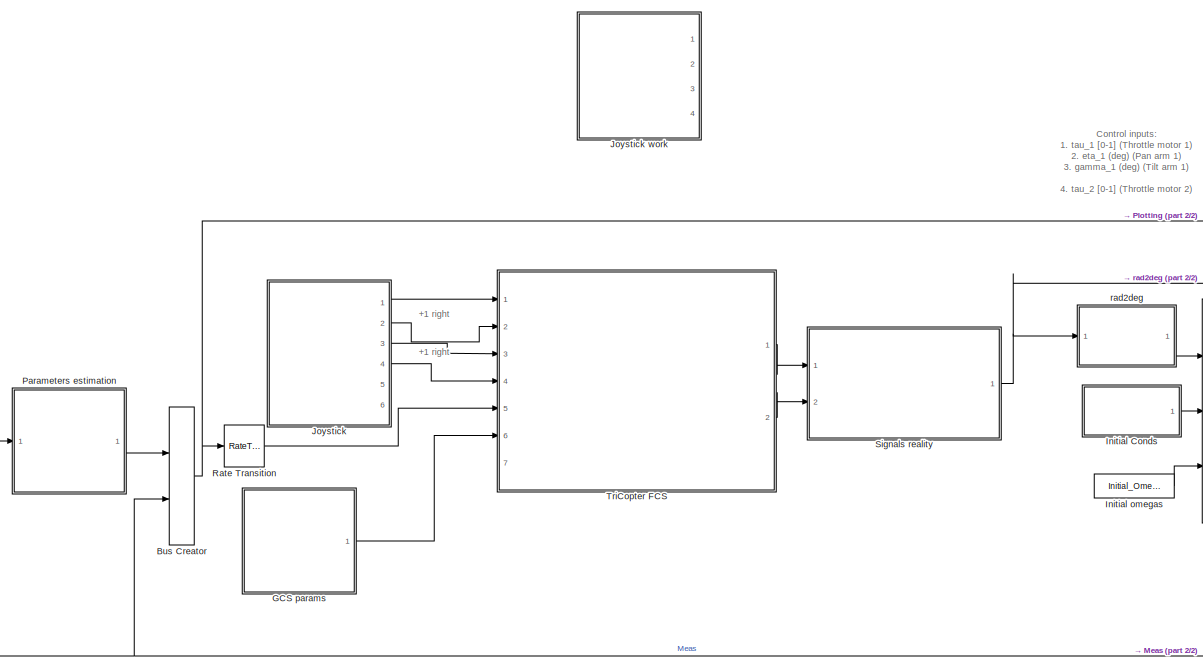
[diagram: root canvas - part 1/2, left side, full height]
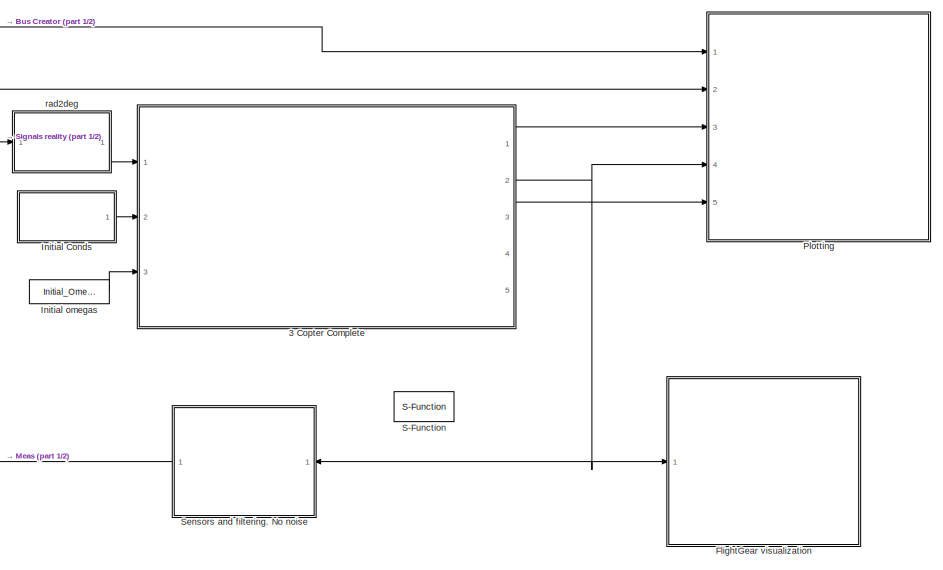
[diagram: root canvas - part 2/2, middle right region]
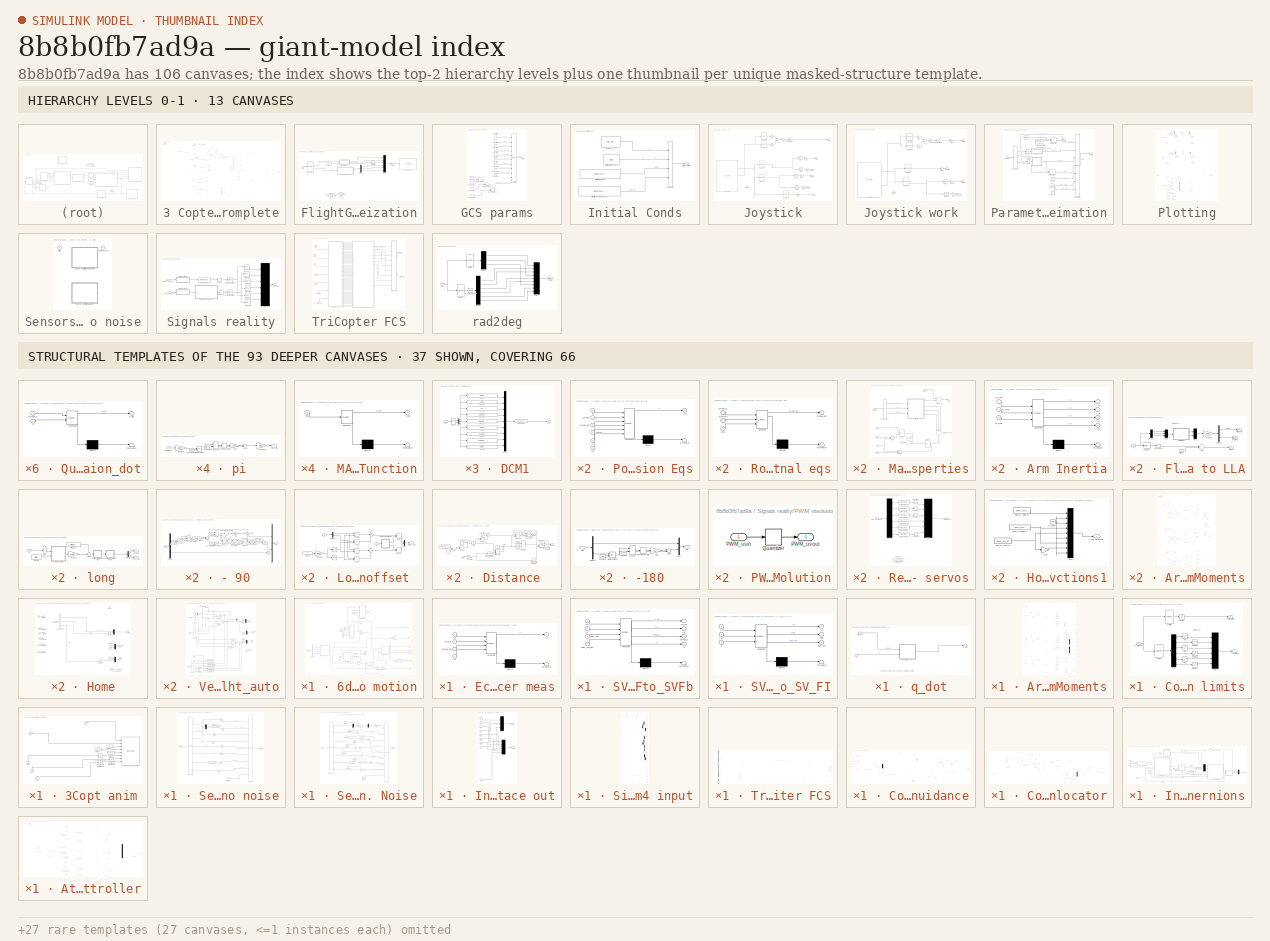
[diagram: thumbnail index - top-2 hierarchy levels (13 canvases) + 37 structural-template representatives of the remaining 93 canvases]
MODEL slx_8b8b0fb7ad9a
KIND model
CONFIG AbsTol = auto
CONFIG FixedStep = T_sim
CONFIG MaxStep = auto
CONFIG MinStep = auto
CONFIG RelTol = 1e-3
CONFIG SampleTimeConstraint = Unconstrained
CONFIG Solver = ode3
CONFIG SolverMode = SingleTasking
CONFIG SolverName = ode3
CONFIG StartTime = 0.0
CONFIG StopTime = inf
BLOCK [SubSystem] 3 Copter Complete
  Ports = [3, 5]
  RequestExecContextInheritance = off
BLOCK [SubSystem] 3 Copter Complete/6dof Eqs of motion
  Ports = [6, 11]
  RequestExecContextInheritance = off
  TreatAsAtomicUnit = on
BLOCK [Outport] 3 Copter Complete/6dof Eqs of motion/Ab
  IconDisplay = Port number
  Port = 7
BLOCK [Outport] 3 Copter Complete/6dof Eqs of motion/Asensor
  IconDisplay = Port number
  Port = 11
BLOCK [BusSelector] 3 Copter Complete/6dof Eqs of motion/Bus Selector
  OutputSignals = X_e_0,V_e_0,Euler_0,Euler_dot_0
  Ports = [1, 4]
BLOCK [Inport] 3 Copter Complete/6dof Eqs of motion/CG
  IconDisplay = Port number
  Port = 5
BLOCK [Outport] 3 Copter Complete/6dof Eqs of motion/DCM
  IconDisplay = Port number
  Port = 8
BLOCK [SubSystem] 3 Copter Complete/6dof Eqs of motion/DCM1
  Ports = [1, 1]
  RequestExecContextInheritance = off
  TreatAsAtomicUnit = on
BLOCK [Outport] 3 Copter Complete/6dof Eqs of motion/DCM1/DCM
  IconDisplay = Port number
  PortDimensions = [3,3]
BLOCK [Inport] 3 Copter Complete/6dof Eqs of motion/DCM1/Euler
  IconDisplay = Port number
  PortDimensions = 3
BLOCK [Fcn] 3 Copter Complete/6dof Eqs of motion/DCM1/Fcn11
  Expr = u(5)*u(4)
BLOCK [Fcn] 3 Copter Complete/6dof Eqs of motion/DCM1/Fcn12
  Expr = u(5)*u(1)
BLOCK [Fcn] 3 Copter Complete/6dof Eqs of motion/DCM1/Fcn13
  Expr = -u(2)
BLOCK [Fcn] 3 Copter Complete/6dof Eqs of motion/DCM1/Fcn21
  Expr = u(3)*u(2)*u(4) - u(6)*u(1)
BLOCK [Fcn] 3 Copter Complete/6dof Eqs of motion/DCM1/Fcn22
  Expr = u(3)*u(2)*u(1) + u(6)*u(4)
BLOCK [Fcn] 3 Copter Complete/6dof Eqs of motion/DCM1/Fcn23
  Expr = u(3)*u(5)
BLOCK [Fcn] 3 Copter Complete/6dof Eqs of motion/DCM1/Fcn31
  Expr = u(6)*u(2)*u(4) + u(3)*u(1)
BLOCK [Fcn] 3 Copter Complete/6dof Eqs of motion/DCM1/Fcn32
  Expr = u(6)*u(2)*u(1) - u(3)*u(4)
BLOCK [Fcn] 3 Copter Complete/6dof Eqs of motion/DCM1/Fcn33
  Expr = u(6)*u(5)
BLOCK [Mux] 3 Copter Complete/6dof Eqs of motion/DCM1/Mux
  DisplayOption = bar
  Inputs = 2
  Ports = [2, 1]
BLOCK [Mux] 3 Copter Complete/6dof Eqs of motion/DCM1/Mux1
  DisplayOption = bar
  Inputs = 9
  Ports = [9, 1]
BLOCK [Reshape] 3 Copter Complete/6dof Eqs of motion/DCM1/Reshape
  OutputDimensionality = Customize
  OutputDimensions = [3,3]
  Ports = [1, 1]
BLOCK [Trigonometry] 3 Copter Complete/6dof Eqs of motion/DCM1/sincos
  Operator = sincos
  Ports = [1, 2]
BLOCK [SubSystem] 3 Copter Complete/6dof Eqs of motion/Eccelerometer meas
  ErrorFcn = Stateflow.Translate.translate
  PermitHierarchicalResolution = ExplicitOnly
  Ports = [4, 1]
  RequestExecContextInheritance = off
  SFBlockType = MATLAB Function
  TreatAsAtomicUnit = on
BLOCK [Demux] 3 Copter Complete/6dof Eqs of motion/Eccelerometer meas/ Demux 
  Outputs = 1
  Ports = [1, 1]
BLOCK [S-Function] 3 Copter Complete/6dof Eqs of motion/Eccelerometer meas/ SFunction 
  EnableBusSupport = on
  FunctionName = sf_sfun
  Parameters = r_sens
  PortCounts = [4 2]
  Ports = [4, 2]
  Tag = Stateflow S-Function Tricopter_Controlled 8
BLOCK [Terminator] 3 Copter Complete/6dof Eqs of motion/Eccelerometer meas/ Terminator 
BLOCK [Outport] 3 Copter Complete/6dof Eqs of motion/Eccelerometer meas/A_s
  IconDisplay = Port number
BLOCK [Inport] 3 Copter Complete/6dof Eqs of motion/Eccelerometer meas/Ab
  IconDisplay = Port number
  Port = 4
BLOCK [Inport] 3 Copter Complete/6dof Eqs of motion/Eccelerometer meas/Vb
  IconDisplay = Port number
BLOCK [Inport] 3 Copter Complete/6dof Eqs of motion/Eccelerometer meas/omega
  IconDisplay = Port number
  Port = 2
BLOCK [Inport] 3 Copter Complete/6dof Eqs of motion/Eccelerometer meas/omega_dot
  IconDisplay = Port number
  Port = 3
BLOCK [Inport] 3 Copter Complete/6dof Eqs of motion/Forces
  IconDisplay = Port number
BLOCK [From] 3 Copter Complete/6dof Eqs of motion/From
  GotoTag = omega
BLOCK [From] 3 Copter Complete/6dof Eqs of motion/From1
  GotoTag = omega_dot
BLOCK [From] 3 Copter Complete/6dof Eqs of motion/From2
  GotoTag = omega
BLOCK [From] 3 Copter Complete/6dof Eqs of motion/From3
  GotoTag = omega_dot
BLOCK [Goto] 3 Copter Complete/6dof Eqs of motion/Goto
  GotoTag = omega
BLOCK [Goto] 3 Copter Complete/6dof Eqs of motion/Goto1
  GotoTag = omega_dot
BLOCK [Inport] 3 Copter Complete/6dof Eqs of motion/I_BAC
  IconDisplay = Port number
  Port = 4
BLOCK [Inport] 3 Copter Complete/6dof Eqs of motion/Initial Conditions
  IconDisplay = Port number
  Port = 6
BLOCK [Inport] 3 Copter Complete/6dof Eqs of motion/Moments
  IconDisplay = Port number
  Port = 2
BLOCK [Reference] 3 Copter Complete/6dof Eqs of motion/Normalize 4D vector  REF=XXCopter/Normalize 4D vector
  Ports = [1, 1]
  SourceBlock = XXCopter/Normalize 4D vector
  SourceType = SubSystem
BLOCK [SubSystem] 3 Copter Complete/6dof Eqs of motion/Position Eqs
  ErrorFcn = Stateflow.Translate.translate
  PermitHierarchicalResolution = ExplicitOnly
  Ports = [6, 1]
  RequestExecContextInheritance = off
  SFBlockType = MATLAB Function
  TreatAsAtomicUnit = on
BLOCK [Demux] 3 Copter Complete/6dof Eqs of motion/Position Eqs/ Demux 
  Outputs = 1
  Ports = [1, 1]
BLOCK [S-Function] 3 Copter Complete/6dof Eqs of motion/Position Eqs/ SFunction 
  EnableBusSupport = on
  FunctionName = sf_sfun
  PortCounts = [6 2]
  Ports = [6, 2]
  Tag = Stateflow S-Function Tricopter_Controlled 1
BLOCK [Terminator] 3 Copter Complete/6dof Eqs of motion/Position Eqs/ Terminator 
BLOCK [Outport] 3 Copter Complete/6dof Eqs of motion/Position Eqs/A_b
  IconDisplay = Port number
BLOCK [Inport] 3 Copter Complete/6dof Eqs of motion/Position Eqs/CG
  IconDisplay = Port number
  Port = 6
BLOCK [Inport] 3 Copter Complete/6dof Eqs of motion/Position Eqs/Forces
  IconDisplay = Port number
  Port = 4
BLOCK [Inport] 3 Copter Complete/6dof Eqs of motion/Position Eqs/Vb
  IconDisplay = Port number
BLOCK [Inport] 3 Copter Complete/6dof Eqs of motion/Position Eqs/m
  IconDisplay = Port number
  Port = 5
BLOCK [Inport] 3 Copter Complete/6dof Eqs of motion/Position Eqs/omega
  IconDisplay = Port number
  Port = 2
BLOCK [Inport] 3 Copter Complete/6dof Eqs of motion/Position Eqs/omega_dot
  IconDisplay = Port number
  Port = 3
BLOCK [SubSystem] 3 Copter Complete/6dof Eqs of motion/Rotational eqs
  ErrorFcn = Stateflow.Translate.translate
  PermitHierarchicalResolution = ExplicitOnly
  Ports = [3, 1]
  RequestExecContextInheritance = off
  SFBlockType = MATLAB Function
  TreatAsAtomicUnit = on
BLOCK [Demux] 3 Copter Complete/6dof Eqs of motion/Rotational eqs/ Demux 
  Outputs = 1
  Ports = [1, 1]
BLOCK [S-Function] 3 Copter Complete/6dof Eqs of motion/Rotational eqs/ SFunction 
  EnableBusSupport = on
  FunctionName = sf_sfun
  PortCounts = [3 2]
  Ports = [3, 2]
  Tag = Stateflow S-Function Tricopter_Controlled 2
BLOCK [Terminator] 3 Copter Complete/6dof Eqs of motion/Rotational eqs/ Terminator 
BLOCK [Inport] 3 Copter Complete/6dof Eqs of motion/Rotational eqs/I_BAC
  IconDisplay = Port number
  Port = 3
BLOCK [Inport] 3 Copter Complete/6dof Eqs of motion/Rotational eqs/Moments
  IconDisplay = Port number
  Port = 2
BLOCK [Inport] 3 Copter Complete/6dof Eqs of motion/Rotational eqs/omega_b
  IconDisplay = Port number
BLOCK [Outport] 3 Copter Complete/6dof Eqs of motion/Rotational eqs/omega_dot
  IconDisplay = Port number
BLOCK [SubSystem] 3 Copter Complete/6dof Eqs of motion/SVFI_to_SVFb
  ErrorFcn = Stateflow.Translate.translate
  PermitHierarchicalResolution = ExplicitOnly
  Ports = [4, 4]
  RequestExecContextInheritance = off
  SFBlockType = MATLAB Function
  SystemSampleTime = T_sim
  TreatAsAtomicUnit = on
BLOCK [Demux] 3 Copter Complete/6dof Eqs of motion/SVFI_to_SVFb/ Demux 
  Outputs = 1
  Ports = [1, 1]
BLOCK [S-Function] 3 Copter Complete/6dof Eqs of motion/SVFI_to_SVFb/ SFunction 
  EnableBusSupport = on
  FunctionName = sf_sfun
  PortCounts = [4 5]
  Ports = [4, 5]
  Tag = Stateflow S-Function Tricopter_Controlled 11
BLOCK [Terminator] 3 Copter Complete/6dof Eqs of motion/SVFI_to_SVFb/ Terminator 
BLOCK [Inport] 3 Copter Complete/6dof Eqs of motion/SVFI_to_SVFb/Euler_Ang
  IconDisplay = Port number
  Port = 3
BLOCK [Inport] 3 Copter Complete/6dof Eqs of motion/SVFI_to_SVFb/Euler_Ang_Dot
  IconDisplay = Port number
  Port = 4
BLOCK [Outport] 3 Copter Complete/6dof Eqs of motion/SVFI_to_SVFb/V_b
  IconDisplay = Port number
  Port = 2
BLOCK [Inport] 3 Copter Complete/6dof Eqs of motion/SVFI_to_SVFb/V_e
  IconDisplay = Port number
  Port = 2
BLOCK [Inport] 3 Copter Complete/6dof Eqs of motion/SVFI_to_SVFb/X_e
  IconDisplay = Port number
BLOCK [Outport] 3 Copter Complete/6dof Eqs of motion/SVFI_to_SVFb/X_e_out
  IconDisplay = Port number
BLOCK [Outport] 3 Copter Complete/6dof Eqs of motion/SVFI_to_SVFb/omega_b
  IconDisplay = Port number
  Port = 3
BLOCK [Outport] 3 Copter Complete/6dof Eqs of motion/SVFI_to_SVFb/q
  IconDisplay = Port number
  Port = 4
BLOCK [SubSystem] 3 Copter Complete/6dof Eqs of motion/SV_F_b_to_SV_FI
  ErrorFcn = Stateflow.Translate.translate
  PermitHierarchicalResolution = ExplicitOnly
  Ports = [3, 3]
  RequestExecContextInheritance = off
  SFBlockType = MATLAB Function
  TreatAsAtomicUnit = on
BLOCK [Demux] 3 Copter Complete/6dof Eqs of motion/SV_F_b_to_SV_FI/ Demux 
  Outputs = 1
  Ports = [1, 1]
BLOCK [S-Function] 3 Copter Complete/6dof Eqs of motion/SV_F_b_to_SV_FI/ SFunction 
  EnableBusSupport = on
  FunctionName = sf_sfun
  PortCounts = [3 4]
  Ports = [3, 4]
  Tag = Stateflow S-Function Tricopter_Controlled 12
BLOCK [Terminator] 3 Copter Complete/6dof Eqs of motion/SV_F_b_to_SV_FI/ Terminator 
BLOCK [Inport] 3 Copter Complete/6dof Eqs of motion/SV_F_b_to_SV_FI/V_b
  IconDisplay = Port number
BLOCK [Outport] 3 Copter Complete/6dof Eqs of motion/SV_F_b_to_SV_FI/V_e
  IconDisplay = Port number
BLOCK [Outport] 3 Copter Complete/6dof Eqs of motion/SV_F_b_to_SV_FI/euler
  IconDisplay = Port number
  Port = 2
BLOCK [Outport] 3 Copter Complete/6dof Eqs of motion/SV_F_b_to_SV_FI/euler_dot
  IconDisplay = Port number
  Port = 3
BLOCK [Inport] 3 Copter Complete/6dof Eqs of motion/SV_F_b_to_SV_FI/q
  IconDisplay = Port number
  Port = 3
BLOCK [Inport] 3 Copter Complete/6dof Eqs of motion/SV_F_b_to_SV_FI/q_dot
  IconDisplay = Port number
  Port = 2
BLOCK [Selector] 3 Copter Complete/6dof Eqs of motion/Selector7
  Indices = [3 2 1]
  InputPortWidth = 3
  Ports = [1, 1]
BLOCK [Outport] 3 Copter Complete/6dof Eqs of motion/Vb
  IconDisplay = Port number
  Port = 3
BLOCK [Outport] 3 Copter Complete/6dof Eqs of motion/Ve
  IconDisplay = Port number
  Port = 2
BLOCK [Outport] 3 Copter Complete/6dof Eqs of motion/Xe
  IconDisplay = Port number
BLOCK [Outport] 3 Copter Complete/6dof Eqs of motion/euler
  IconDisplay = Port number
  Port = 9
BLOCK [Outport] 3 Copter Complete/6dof Eqs of motion/euler_dot
  IconDisplay = Port number
  Port = 10
BLOCK [Inport] 3 Copter Complete/6dof Eqs of motion/mass
  IconDisplay = Port number
  Port = 3
BLOCK [Outport] 3 Copter Complete/6dof Eqs of motion/p,q,r
  IconDisplay = Port number
  Port = 4
BLOCK [Integrator] 3 Copter Complete/6dof Eqs of motion/p,q,r 
  InitialCondition = [P_0,Q_0,R_0]
  InitialConditionSource = external
  Ports = [2, 1]
BLOCK [Outport] 3 Copter Complete/6dof Eqs of motion/pdot,qdot,rdot
  IconDisplay = Port number
  Port = 6
BLOCK [Outport] 3 Copter Complete/6dof Eqs of motion/q
  IconDisplay = Port number
  Port = 5
BLOCK [SubSystem] 3 Copter Complete/6dof Eqs of motion/q_dot
  Ports = [2, 1]
  RequestExecContextInheritance = off
  TreatAsAtomicUnit = on
BLOCK [SubSystem] 3 Copter Complete/6dof Eqs of motion/q_dot/Quaternion_dot
  ErrorFcn = Stateflow.Translate.translate
  PermitHierarchicalResolution = ExplicitOnly
  Ports = [2, 1]
  RequestExecContextInheritance = off
  SFBlockType = MATLAB Function
  TreatAsAtomicUnit = on
  VariantControl = Variant
BLOCK [Demux] 3 Copter Complete/6dof Eqs of motion/q_dot/Quaternion_dot/ Demux 
  Outputs = 1
  Ports = [1, 1]
BLOCK [S-Function] 3 Copter Complete/6dof Eqs of motion/q_dot/Quaternion_dot/ SFunction 
  EnableBusSupport = on
  FunctionName = sf_sfun
  PortCounts = [2 2]
  Ports = [2, 2]
  Tag = Stateflow S-Function Tricopter_Controlled 3
BLOCK [Terminator] 3 Copter Complete/6dof Eqs of motion/q_dot/Quaternion_dot/ Terminator 
BLOCK [Inport] 3 Copter Complete/6dof Eqs of motion/q_dot/Quaternion_dot/omega_b
  IconDisplay = Port number
BLOCK [Inport] 3 Copter Complete/6dof Eqs of motion/q_dot/Quaternion_dot/q
  IconDisplay = Port number
  Port = 2
BLOCK [Outport] 3 Copter Complete/6dof Eqs of motion/q_dot/Quaternion_dot/q_dot
  IconDisplay = Port number
BLOCK [Inport] 3 Copter Complete/6dof Eqs of motion/q_dot/omega_b
  IconDisplay = Port number
BLOCK [Inport] 3 Copter Complete/6dof Eqs of motion/q_dot/q
  IconDisplay = Port number
  Port = 2
BLOCK [Outport] 3 Copter Complete/6dof Eqs of motion/q_dot/q_dot
  IconDisplay = Port number
BLOCK [Integrator] 3 Copter Complete/6dof Eqs of motion/quaternion
  InitialCondition = [P_0,Q_0,R_0]
  InitialConditionSource = external
  Ports = [2, 1]
BLOCK [Integrator] 3 Copter Complete/6dof Eqs of motion/ub,vb,wb
  InitialCondition = [U_0,V_0,W_0]
  InitialConditionSource = external
  Ports = [2, 1]
BLOCK [Integrator] 3 Copter Complete/6dof Eqs of motion/xe,ye,ze
  InitialCondition = [NORTH_0,EAST_0,-DOWN_0]
  InitialConditionSource = external
  Ports = [2, 1]
BLOCK [Sum] 3 Copter Complete/Add
  InputSameDT = off
  Inputs = +++++
  OutDataTypeStr = Inherit: Inherit via internal rule
  Ports = [5, 1]
  SaturateOnIntegerOverflow = off
BLOCK [Sum] 3 Copter Complete/Add1
  InputSameDT = off
  Inputs = +++++
  OutDataTypeStr = Inherit: Inherit via internal rule
  Ports = [5, 1]
  SaturateOnIntegerOverflow = off
BLOCK [Reference] 3 Copter Complete/Aerodynamics body Force and Moment  REF=XXCopter/Aerodynamics body Force and Moment
  Ports = [1, 2]
  SourceBlock = XXCopter/Aerodynamics body Force and Moment
  SourceType = SubSystem
BLOCK [Outport] 3 Copter Complete/Arms Angles (rad)
  IconDisplay = Port number
  Port = 3
BLOCK [SubSystem] 3 Copter Complete/Arms Dynamics: Forces and Moments
  Ports = [6, 6]
  RequestExecContextInheritance = off
BLOCK [Outport] 3 Copter Complete/Arms Dynamics: Forces and Moments/Angles (rad)
  IconDisplay = Port number
  Port = 6
BLOCK [Reference] 3 Copter Complete/Arms Dynamics: Forces and Moments/Arm Dynamics  REF=XXCopter/Arm Dynamics
  Arm_axis = [l_arm;0;0]
  J_FA = J_FA
  J_T = J_T
  Omega_ini = Initial_Omegas(1)
  Ports = [6, 7]
  Rot_sign = Rotation_sign(1)
  SourceBlock = XXCopter/Arm Dynamics
  SourceType = Arm dynamics, kinematics, forces and moments
  Torq_ini = Initial_Torques(1)
  arm_hub_pos = l*[1;0;0]
  arm_num = 1
  c = 0
  eta_dir = [1;0;0]
  gamma_dir = [0;1;0]
  h = h
  init_eta = 0
  init_gamma = 0
  omega_n = 70
  tau = Tau_motors
  xi = 0.72
BLOCK [Reference] 3 Copter Complete/Arms Dynamics: Forces and Moments/Arm Dynamics1  REF=XXCopter/Arm Dynamics
  Arm_axis = [0;l_arm;0]
  J_FA = J_FA
  J_T = J_T
  Omega_ini = Initial_Omegas(2)
  Ports = [6, 7]
  Rot_sign = Rotation_sign(2)
  SourceBlock = XXCopter/Arm Dynamics
  SourceType = Arm dynamics, kinematics, forces and moments
  Torq_ini = Initial_Torques(2)
  arm_hub_pos = l*[-1/2;sqrt(3)/2;0]
  arm_num = 2
  c = 0
  eta_dir = [0;1;0]
  gamma_dir = [1;0;0]
  h = h
  init_eta = eta_23
  init_gamma = 0
  omega_n = 70
  tau = Tau_motors
  xi = 0.72
BLOCK [Reference] 3 Copter Complete/Arms Dynamics: Forces and Moments/Arm Dynamics2  REF=XXCopter/Arm Dynamics
  Arm_axis = [0;-l_arm;0]
  J_FA = J_FA
  J_T = J_T
  Omega_ini = Initial_Omegas(3)
  Ports = [6, 7]
  Rot_sign = Rotation_sign(3)
  SourceBlock = XXCopter/Arm Dynamics
  SourceType = Arm dynamics, kinematics, forces and moments
  Torq_ini = Initial_Torques(3)
  arm_hub_pos = l*[-1/2;-sqrt(3)/2;0]
  arm_num = 3
  c = 0
  eta_dir = [0;1;0]
  gamma_dir = [1;0;0]
  h = h
  init_eta = -eta_23
  init_gamma = 0
  omega_n = 70
  tau = Tau_motors
  xi = 0.72
BLOCK [Outport] 3 Copter Complete/Arms Dynamics: Forces and Moments/Arms DCMs
  IconDisplay = Port number
  Port = 5
BLOCK [BusCreator] 3 Copter Complete/Arms Dynamics: Forces and Moments/Bus Creator
  DisplayOption = bar
  Inputs = 3
  Ports = [3, 1]
BLOCK [BusCreator] 3 Copter Complete/Arms Dynamics: Forces and Moments/Bus Creator1
  DisplayOption = bar
  Inputs = 3
  Ports = [3, 1]
BLOCK [Inport] 3 Copter Complete/Arms Dynamics: Forces and Moments/Comm Angles (deg)
  IconDisplay = Port number
  Port = 2
BLOCK [InportShadow] 3 Copter Complete/Arms Dynamics: Forces and Moments/Comm Angles (deg)1
  IconDisplay = Port number
  Port = 2
BLOCK [InportShadow] 3 Copter Complete/Arms Dynamics: Forces and Moments/Comm Angles (deg)2
  IconDisplay = Port number
  Port = 2
BLOCK [Reference] 3 Copter Complete/Arms Dynamics: Forces and Moments/Degrees to Radians1  REF=simulink_extras/Transformations/Degrees to
Radians
  Ports = [1, 1]
  SourceBlock = simulink_extras/Transformations/Degrees to\nRadians
  SourceType = DegreesToRadians
BLOCK [Reference] 3 Copter Complete/Arms Dynamics: Forces and Moments/Degrees to Radians2  REF=simulink_extras/Transformations/Degrees to
Radians
  Ports = [1, 1]
  SourceBlock = simulink_extras/Transformations/Degrees to\nRadians
  SourceType = DegreesToRadians
BLOCK [Reference] 3 Copter Complete/Arms Dynamics: Forces and Moments/Degrees to Radians3  REF=simulink_extras/Transformations/Degrees to
Radians
  Ports = [1, 1]
  SourceBlock = simulink_extras/Transformations/Degrees to\nRadians
  SourceType = DegreesToRadians
BLOCK [Outport] 3 Copter Complete/Arms Dynamics: Forces and Moments/Forces
  IconDisplay = Port number
BLOCK [Sum] 3 Copter Complete/Arms Dynamics: Forces and Moments/Forces_add
  InputSameDT = off
  Inputs = +++
  OutDataTypeStr = Inherit: Inherit via internal rule
  Ports = [3, 1]
  SaturateOnIntegerOverflow = off
BLOCK [From] 3 Copter Complete/Arms Dynamics: Forces and Moments/From
  GotoTag = F_arm1
BLOCK [From] 3 Copter Complete/Arms Dynamics: Forces and Moments/From1
  GotoTag = M_arm1
BLOCK [From] 3 Copter Complete/Arms Dynamics: Forces and Moments/From10
  GotoTag = Omega2
BLOCK [From] 3 Copter Complete/Arms Dynamics: Forces and Moments/From11
  GotoTag = Omega3
BLOCK [From] 3 Copter Complete/Arms Dynamics: Forces and Moments/From12
  GotoTag = T3_FaFb
BLOCK [From] 3 Copter Complete/Arms Dynamics: Forces and Moments/From13
  GotoTag = Omega_dot2
BLOCK [From] 3 Copter Complete/Arms Dynamics: Forces and Moments/From14
  GotoTag = Omega_dot3
BLOCK [From] 3 Copter Complete/Arms Dynamics: Forces and Moments/From15
  GotoTag = Angles_3
BLOCK [From] 3 Copter Complete/Arms Dynamics: Forces and Moments/From16
  GotoTag = Angles_1
BLOCK [From] 3 Copter Complete/Arms Dynamics: Forces and Moments/From17
  GotoTag = Angles_2
BLOCK [From] 3 Copter Complete/Arms Dynamics: Forces and Moments/From2
  GotoTag = Omega_dot1
BLOCK [From] 3 Copter Complete/Arms Dynamics: Forces and Moments/From3
  GotoTag = Omega1
BLOCK [From] 3 Copter Complete/Arms Dynamics: Forces and Moments/From4
  GotoTag = F_arm2
BLOCK [From] 3 Copter Complete/Arms Dynamics: Forces and Moments/From5
  GotoTag = F_arm3
BLOCK [From] 3 Copter Complete/Arms Dynamics: Forces and Moments/From6
  GotoTag = T1_FaFb
BLOCK [From] 3 Copter Complete/Arms Dynamics: Forces and Moments/From7
  GotoTag = M_arm2
BLOCK [From] 3 Copter Complete/Arms Dynamics: Forces and Moments/From8
  GotoTag = M_arm3
BLOCK [From] 3 Copter Complete/Arms Dynamics: Forces and Moments/From9
  GotoTag = T2_FaFb
BLOCK [Goto] 3 Copter Complete/Arms Dynamics: Forces and Moments/Goto
  GotoTag = F_arm1
BLOCK [Goto] 3 Copter Complete/Arms Dynamics: Forces and Moments/Goto1
  GotoTag = M_arm1
BLOCK [Goto] 3 Copter Complete/Arms Dynamics: Forces and Moments/Goto10
  GotoTag = F_arm3
BLOCK [Goto] 3 Copter Complete/Arms Dynamics: Forces and Moments/Goto11
  GotoTag = M_arm3
BLOCK [Goto] 3 Copter Complete/Arms Dynamics: Forces and Moments/Goto12
  GotoTag = Omega3
BLOCK [Goto] 3 Copter Complete/Arms Dynamics: Forces and Moments/Goto13
  GotoTag = Omega_dot3
BLOCK [Goto] 3 Copter Complete/Arms Dynamics: Forces and Moments/Goto14
  GotoTag = T3_FaFb
BLOCK [Goto] 3 Copter Complete/Arms Dynamics: Forces and Moments/Goto15
  GotoTag = Angles_1
BLOCK [Goto] 3 Copter Complete/Arms Dynamics: Forces and Moments/Goto16
  GotoTag = Angles_2
BLOCK [Goto] 3 Copter Complete/Arms Dynamics: Forces and Moments/Goto17
  GotoTag = Angles_3
BLOCK [Goto] 3 Copter Complete/Arms Dynamics: Forces and Moments/Goto18
  GotoTag = r_p_1
  TagVisibility = global
BLOCK [Goto] 3 Copter Complete/Arms Dynamics: Forces and Moments/Goto19
  GotoTag = r_p_2
  TagVisibility = global
BLOCK [Goto] 3 Copter Complete/Arms Dynamics: Forces and Moments/Goto2
  GotoTag = Omega1
BLOCK [Goto] 3 Copter Complete/Arms Dynamics: Forces and Moments/Goto20
  GotoTag = r_p_3
  TagVisibility = global
BLOCK [Goto] 3 Copter Complete/Arms Dynamics: Forces and Moments/Goto3
  GotoTag = Omega_dot1
BLOCK [Goto] 3 Copter Complete/Arms Dynamics: Forces and Moments/Goto4
  GotoTag = T1_FaFb
BLOCK [Goto] 3 Copter Complete/Arms Dynamics: Forces and Moments/Goto5
  GotoTag = F_arm2
BLOCK [Goto] 3 Copter Complete/Arms Dynamics: Forces and Moments/Goto6
  GotoTag = M_arm2
BLOCK [Goto] 3 Copter Complete/Arms Dynamics: Forces and Moments/Goto7
  GotoTag = Omega2
BLOCK [Goto] 3 Copter Complete/Arms Dynamics: Forces and Moments/Goto8
  GotoTag = Omega_dot2
BLOCK [Goto] 3 Copter Complete/Arms Dynamics: Forces and Moments/Goto9
  GotoTag = T2_FaFb
BLOCK [Inport] 3 Copter Complete/Arms Dynamics: Forces and Moments/Initial Omegas
  IconDisplay = Port number
  Port = 3
BLOCK [InportShadow] 3 Copter Complete/Arms Dynamics: Forces and Moments/Initial Omegas1
  IconDisplay = Port number
  Port = 3
BLOCK [InportShadow] 3 Copter Complete/Arms Dynamics: Forces and Moments/Initial Omegas2
  IconDisplay = Port number
  Port = 3
BLOCK [Outport] 3 Copter Complete/Arms Dynamics: Forces and Moments/Moments
  IconDisplay = Port number
  Port = 2
BLOCK [Sum] 3 Copter Complete/Arms Dynamics: Forces and Moments/Moments add
  InputSameDT = off
  Inputs = +++
  OutDataTypeStr = Inherit: Inherit via internal rule
  Ports = [3, 1]
  SaturateOnIntegerOverflow = off
BLOCK [Mux] 3 Copter Complete/Arms Dynamics: Forces and Moments/Mux
  DisplayOption = bar
  Inputs = 3
  Ports = [3, 1]
BLOCK [Mux] 3 Copter Complete/Arms Dynamics: Forces and Moments/Mux1
  DisplayOption = bar
  Inputs = 3
  Ports = [3, 1]
BLOCK [Outport] 3 Copter Complete/Arms Dynamics: Forces and Moments/Omegas
  IconDisplay = Port number
  Port = 3
BLOCK [Outport] 3 Copter Complete/Arms Dynamics: Forces and Moments/Omegas_dot
  IconDisplay = Port number
  Port = 4
BLOCK [Selector] 3 Copter Complete/Arms Dynamics: Forces and Moments/Selector
  Indices = [1]
  InputPortWidth = 3
  Ports = [1, 1]
BLOCK [Selector] 3 Copter Complete/Arms Dynamics: Forces and Moments/Selector1
  Indices = [1]
  InputPortWidth = 3
  Ports = [1, 1]
BLOCK [Selector] 3 Copter Complete/Arms Dynamics: Forces and Moments/Selector2
  Indices = [1,2]
  InputPortWidth = 6
  Ports = [1, 1]
BLOCK [Selector] 3 Copter Complete/Arms Dynamics: Forces and Moments/Selector3
  Indices = 2
  InputPortWidth = 3
  Ports = [1, 1]
BLOCK [Selector] 3 Copter Complete/Arms Dynamics: Forces and Moments/Selector4
  Indices = 2
  InputPortWidth = 3
  Ports = [1, 1]
BLOCK [Selector] 3 Copter Complete/Arms Dynamics: Forces and Moments/Selector5
  Indices = [3,4]
  InputPortWidth = 6
  Ports = [1, 1]
BLOCK [Selector] 3 Copter Complete/Arms Dynamics: Forces and Moments/Selector6
  Indices = 3
  InputPortWidth = 3
  Ports = [1, 1]
BLOCK [Selector] 3 Copter Complete/Arms Dynamics: Forces and Moments/Selector7
  Indices = 3
  InputPortWidth = 3
  Ports = [1, 1]
BLOCK [Selector] 3 Copter Complete/Arms Dynamics: Forces and Moments/Selector8
  Indices = [5,6]
  InputPortWidth = 6
  Ports = [1, 1]
BLOCK [Inport] 3 Copter Complete/Arms Dynamics: Forces and Moments/Throttles
  IconDisplay = Port number
BLOCK [InportShadow] 3 Copter Complete/Arms Dynamics: Forces and Moments/Throttles1
  IconDisplay = Port number
BLOCK [InportShadow] 3 Copter Complete/Arms Dynamics: Forces and Moments/Throttles2
  IconDisplay = Port number
BLOCK [Inport] 3 Copter Complete/Arms Dynamics: Forces and Moments/V_b
  IconDisplay = Port number
  Port = 5
BLOCK [InportShadow] 3 Copter Complete/Arms Dynamics: Forces and Moments/V_b1
  IconDisplay = Port number
  Port = 5
BLOCK [InportShadow] 3 Copter Complete/Arms Dynamics: Forces and Moments/V_b2
  IconDisplay = Port number
  Port = 5
BLOCK [Inport] 3 Copter Complete/Arms Dynamics: Forces and Moments/h_ground
  IconDisplay = Port number
  Port = 6
BLOCK [InportShadow] 3 Copter Complete/Arms Dynamics: Forces and Moments/h_ground1
  IconDisplay = Port number
  Port = 6
BLOCK [InportShadow] 3 Copter Complete/Arms Dynamics: Forces and Moments/h_ground2
  IconDisplay = Port number
  Port = 6
BLOCK [Inport] 3 Copter Complete/Arms Dynamics: Forces and Moments/omega_b
  IconDisplay = Port number
  Port = 4
BLOCK [InportShadow] 3 Copter Complete/Arms Dynamics: Forces and Moments/omega_b1
  IconDisplay = Port number
  Port = 4
BLOCK [InportShadow] 3 Copter Complete/Arms Dynamics: Forces and Moments/omega_b2
  IconDisplay = Port number
  Port = 4
BLOCK [Bias] 3 Copter Complete/Bias from bottom to BAC assuming euler=1
  Bias = [0;0;0.04]
  SaturateOnIntegerOverflow = off
BLOCK [Bias] 3 Copter Complete/Bias from bottom to prop assuming euler=0
  Bias = 0.04+h
  SaturateOnIntegerOverflow = off
BLOCK [BusCreator] 3 Copter Complete/Bus Creator
  DisplayOption = bar
  Inputs = 11
  Ports = [11, 1]
BLOCK [BusSelector] 3 Copter Complete/Bus Selector
  OutputSignals = q
  Ports = [1, 1]
BLOCK [BusSelector] 3 Copter Complete/Bus Selector1
  OutputSignals = V_b
  Ports = [1, 1]
BLOCK [BusSelector] 3 Copter Complete/Bus Selector2
  OutputSignals = omega_b,V_b,X_e
  Ports = [1, 3]
BLOCK [BusSelector] 3 Copter Complete/Bus Selector3
  OutputSignals = X_e,V_b,q,omega_b
  Ports = [1, 4]
BLOCK [Constant] 3 Copter Complete/CG
  Value = CG_0
BLOCK [Constant] 3 Copter Complete/Constant
  Value = 0.1*9.81
BLOCK [Constant] 3 Copter Complete/Constant1
  Value = 0
BLOCK [SubSystem] 3 Copter Complete/Contorl Inputs limits
  Ports = [1, 2]
  RequestExecContextInheritance = off
  TreatAsAtomicUnit = on
BLOCK [Outport] 3 Copter Complete/Contorl Inputs limits/Angles limited
  IconDisplay = Port number
  Port = 2
BLOCK [Inport] 3 Copter Complete/Contorl Inputs limits/Control inputs
  IconDisplay = Port number
BLOCK [Demux] 3 Copter Complete/Contorl Inputs limits/Demux
  DisplayOption = bar
  Outputs = 6
  Ports = [1, 6]
BLOCK [Mux] 3 Copter Complete/Contorl Inputs limits/Mux
  DisplayOption = bar
  Inputs = 6
  Ports = [6, 1]
BLOCK [Saturate] 3 Copter Complete/Contorl Inputs limits/Saturation
  InputPortMap = u0
  LowerLimit = 0
  Ports = [1, 1]
  UpperLimit = 1
BLOCK [Outport] 3 Copter Complete/Contorl Inputs limits/Throtles limited
  IconDisplay = Port number
BLOCK [Selector] 3 Copter Complete/Contorl Inputs limits/Throttles
  Indices = [1,4,7]
  InputPortWidth = 9
  Ports = [1, 1]
BLOCK [Selector] 3 Copter Complete/Contorl Inputs limits/angles 
  Indices = [2,3,5,6,8,9]
  InputPortWidth = 9
  Ports = [1, 1]
BLOCK [Saturate] 3 Copter Complete/Contorl Inputs limits/eta 1
  InputPortMap = u0
  LowerLimit = -165
  Ports = [1, 1]
  UpperLimit = 165
BLOCK [Saturate] 3 Copter Complete/Contorl Inputs limits/eta 2
  InputPortMap = u0
  LowerLimit = -165
  Ports = [1, 1]
  UpperLimit = 165
BLOCK [Saturate] 3 Copter Complete/Contorl Inputs limits/eta 3
  InputPortMap = u0
  LowerLimit = -165
  Ports = [1, 1]
  UpperLimit = 165
BLOCK [Saturate] 3 Copter Complete/Contorl Inputs limits/gamma 2
  InputPortMap = u0
  LowerLimit = -15
  Ports = [1, 1]
  UpperLimit = 90
BLOCK [Saturate] 3 Copter Complete/Contorl Inputs limits/gamma1
  InputPortMap = u0
  LowerLimit = -90
  Ports = [1, 1]
  UpperLimit = 15
BLOCK [Saturate] 3 Copter Complete/Contorl Inputs limits/gamma3
  InputPortMap = u0
  LowerLimit = -90
  Ports = [1, 1]
  UpperLimit = 15
BLOCK [Inport] 3 Copter Complete/Control Inputs
  IconDisplay = Port number
BLOCK [Constant] 3 Copter Complete/Current batrery level (V)
  Value = 14.8
BLOCK [Product] 3 Copter Complete/Equivalent ESC signals
  InputSameDT = off
  Inputs = /*
  OutDataTypeStr = Inherit: Inherit via internal rule
  Ports = [2, 1]
  RndMeth = Floor
  SaturateOnIntegerOverflow = off
BLOCK [Product] 3 Copter Complete/Equivalent Throttle
  InputSameDT = off
  Inputs = **
  OutDataTypeStr = Inherit: Inherit via internal rule
  Ports = [2, 1]
  RndMeth = Floor
  SaturateOnIntegerOverflow = off
BLOCK [Outport] 3 Copter Complete/EquivalentESC throtle
  IconDisplay = Port number
  Port = 4
BLOCK [From] 3 Copter Complete/From1
  GotoTag = F_ground
BLOCK [From] 3 Copter Complete/From14
  GotoTag = M_ground
BLOCK [From] 3 Copter Complete/From2
  GotoTag = F_arm
BLOCK [From] 3 Copter Complete/From3
  GotoTag = F_air
BLOCK [From] 3 Copter Complete/From4
  GotoTag = F_g
BLOCK [From] 3 Copter Complete/From5
  GotoTag = M_arm
BLOCK [From] 3 Copter Complete/From6
  GotoTag = M_air
BLOCK [From] 3 Copter Complete/From7
  GotoTag = M_g
BLOCK [Gain] 3 Copter Complete/Gain
  Gain = -1
  OutDataTypeStr = Inherit: Inherit via internal rule
  ParamDataTypeStr = Inherit: Inherit via internal rule
  SaturateOnIntegerOverflow = off
BLOCK [Gain] 3 Copter Complete/Gain1
  Gain = [0,0,1]
  OutDataTypeStr = Inherit: Inherit via internal rule
  ParamDataTypeStr = Inherit: Inherit via internal rule
  SaturateOnIntegerOverflow = off
BLOCK [Outport] 3 Copter Complete/General State Vector
  IconDisplay = Port number
  Port = 2
BLOCK [Goto] 3 Copter Complete/Goto
  GotoTag = Omegas
BLOCK [Goto] 3 Copter Complete/Goto1
  GotoTag = Omegas_dot
BLOCK [Goto] 3 Copter Complete/Goto2
  GotoTag = F_arm
BLOCK [Goto] 3 Copter Complete/Goto3
  GotoTag = M_arm
BLOCK [Goto] 3 Copter Complete/Goto4
  GotoTag = F_air
BLOCK [Goto] 3 Copter Complete/Goto5
  GotoTag = M_air
BLOCK [Goto] 3 Copter Complete/Goto6
  GotoTag = F_g
BLOCK [Goto] 3 Copter Complete/Goto7
  GotoTag = M_g
BLOCK [Goto] 3 Copter Complete/Goto8
  GotoTag = F_ground
BLOCK [Goto] 3 Copter Complete/Goto9
  GotoTag = M_ground
BLOCK [Reference] 3 Copter Complete/Gravity Force and Moment  REF=XXCopter/Gravity Force and Moment
  Ports = [3, 2]
  SourceBlock = XXCopter/Gravity Force and Moment
  SourceType = SubSystem
BLOCK [Reference] 3 Copter Complete/Ground  model  REF=XXCopter/Ground  model
  Ports = [5, 2]
  SourceBlock = XXCopter/Ground  model
  SourceType = SubSystem
BLOCK [Constant] 3 Copter Complete/I_BAC_0
  Value = I_BAC_0
BLOCK [Inport] 3 Copter Complete/Initial Conditions
  IconDisplay = Port number
  Port = 2
BLOCK [Inport] 3 Copter Complete/Initial Omegas
  IconDisplay = Port number
  Port = 3
BLOCK [ManualSwitch] 3 Copter Complete/Manual Switch
  CurrentSetting = 0
BLOCK [Constant] 3 Copter Complete/Mass
  Value = m
BLOCK [SubSystem] 3 Copter Complete/Mass Properties
  Ports = [6, 2]
  RequestExecContextInheritance = off
  TreatAsAtomicUnit = on
BLOCK [SubSystem] 3 Copter Complete/Mass Properties/Arm Inertia
  ErrorFcn = Stateflow.Translate.translate
  PermitHierarchicalResolution = ExplicitOnly
  Ports = [3, 4]
  RequestExecContextInheritance = off
  SFBlockType = MATLAB Function
  TreatAsAtomicUnit = on
BLOCK [Demux] 3 Copter Complete/Mass Properties/Arm Inertia/ Demux 
  Outputs = 1
  Ports = [1, 1]
BLOCK [S-Function] 3 Copter Complete/Mass Properties/Arm Inertia/ SFunction 
  EnableBusSupport = on
  FunctionName = sf_sfun
  Parameters = h_M,l,m_M
  PortCounts = [3 5]
  Ports = [3, 5]
  Tag = Stateflow S-Function Tricopter_Controlled 13
BLOCK [Terminator] 3 Copter Complete/Mass Properties/Arm Inertia/ Terminator 
BLOCK [Outport] 3 Copter Complete/Mass Properties/Arm Inertia/I_M
  IconDisplay = Port number
BLOCK [Inport] 3 Copter Complete/Mass Properties/Arm Inertia/T1_FAFb
  IconDisplay = Port number
BLOCK [Inport] 3 Copter Complete/Mass Properties/Arm Inertia/T2_FAFb
  IconDisplay = Port number
  Port = 2
BLOCK [Inport] 3 Copter Complete/Mass Properties/Arm Inertia/T3_FAFb
  IconDisplay = Port number
  Port = 3
BLOCK [Outport] 3 Copter Complete/Mass Properties/Arm Inertia/r1_M
  IconDisplay = Port number
  Port = 2
BLOCK [Outport] 3 Copter Complete/Mass Properties/Arm Inertia/r2_M
  IconDisplay = Port number
  Port = 3
BLOCK [Outport] 3 Copter Complete/Mass Properties/Arm Inertia/r3_M
  IconDisplay = Port number
  Port = 4
BLOCK [Inport] 3 Copter Complete/Mass Properties/Arms DCMs
  IconDisplay = Port number
BLOCK [BusSelector] 3 Copter Complete/Mass Properties/Bus Selector
  OutputSignals = T_FaFb1,T_FaFb2,T_FaFb3
  Ports = [1, 3]
BLOCK [Outport] 3 Copter Complete/Mass Properties/CG
  IconDisplay = Port number
  Port = 2
BLOCK [Sum] 3 Copter Complete/Mass Properties/CG position
  InputSameDT = off
  OutDataTypeStr = Inherit: Inherit via internal rule
  Ports = [2, 1]
  SaturateOnIntegerOverflow = off
BLOCK [Inport] 3 Copter Complete/Mass Properties/CG_0
  IconDisplay = Port number
  Port = 2
BLOCK [Product] 3 Copter Complete/Mass Properties/Divide
  InputSameDT = off
  Inputs = */
  OutDataTypeStr = Inherit: Inherit via internal rule
  Ports = [2, 1]
  RndMeth = Floor
  SaturateOnIntegerOverflow = off
BLOCK [Product] 3 Copter Complete/Mass Properties/Divide1
  InputSameDT = off
  Inputs = **
  OutDataTypeStr = Inherit: Inherit via internal rule
  Ports = [2, 1]
  RndMeth = Floor
  SaturateOnIntegerOverflow = off
BLOCK [Product] 3 Copter Complete/Mass Properties/Divide2
  InputSameDT = off
  Inputs = /*
  OutDataTypeStr = Inherit: Inherit via internal rule
  Ports = [2, 1]
  RndMeth = Floor
  SaturateOnIntegerOverflow = off
BLOCK [Product] 3 Copter Complete/Mass Properties/Divide3
  InputSameDT = off
  Inputs = **
  OutDataTypeStr = Inherit: Inherit via internal rule
  Ports = [2, 1]
  RndMeth = Floor
  SaturateOnIntegerOverflow = off
BLOCK [Outport] 3 Copter Complete/Mass Properties/I_BAC
  IconDisplay = Port number
BLOCK [Inport] 3 Copter Complete/Mass Properties/I_BAC_0
  IconDisplay = Port number
  Port = 6
BLOCK [Sum] 3 Copter Complete/Mass Properties/Motors Pos sum
  InputSameDT = off
  Inputs = +++
  OutDataTypeStr = Inherit: Inherit via internal rule
  Ports = [3, 1]
  SaturateOnIntegerOverflow = off
BLOCK [Sum] 3 Copter Complete/Mass Properties/Total I_BAC
  InputSameDT = off
  OutDataTypeStr = Inherit: Inherit via internal rule
  Ports = [2, 1]
  SaturateOnIntegerOverflow = off
BLOCK [Inport] 3 Copter Complete/Mass Properties/m
  IconDisplay = Port number
  Port = 4
BLOCK [Inport] 3 Copter Complete/Mass Properties/m_0
  IconDisplay = Port number
  Port = 3
BLOCK [Inport] 3 Copter Complete/Mass Properties/m_M
  IconDisplay = Port number
  Port = 5
BLOCK [Constant] 3 Copter Complete/Mass1
  Value = m
BLOCK [Constant] 3 Copter Complete/Mass2
  Value = m
BLOCK [Memory] 3 Copter Complete/Memory
  X0 = [0,0,0]
BLOCK [Memory] 3 Copter Complete/Memory1
  X0 = [0,0,0]
BLOCK [Memory] 3 Copter Complete/Memory2
  X0 = CG_0
BLOCK [Memory] 3 Copter Complete/Memory3
  X0 = I_BAC_0
BLOCK [Constant] 3 Copter Complete/Motor Mass
  Value = m_M
BLOCK [Outport] 3 Copter Complete/Omegas (rad//s)
  IconDisplay = Port number
BLOCK [Outport] 3 Copter Complete/Omegas dot
  IconDisplay = Port number
  Port = 5
BLOCK [Constant] 3 Copter Complete/Reference batrery level (V)
  Value = 16
BLOCK [Selector] 3 Copter Complete/Selector
  Indices = 3
  InputPortWidth = 3
  Ports = [1, 1]
BLOCK [TransferFcn] 3 Copter Complete/Transfer Fcn
  Denominator = [1 0.2]
  Numerator = [0.2]
BLOCK [Gain] 3 Copter Complete/arm
  Gain = 0.5*[0,1,0]
  OutDataTypeStr = Inherit: Inherit via internal rule
  ParamDataTypeStr = Inherit: Inherit via internal rule
  SaturateOnIntegerOverflow = off
BLOCK [Constant] 3 Copter Complete/m_0
  Value = m_0
BLOCK [Constant] 3 Copter Complete/mass
  Value = m
BLOCK [BusCreator] Bus Creator
  DisplayOption = bar
  Inputs = 2
  Ports = [2, 1]
BLOCK [SubSystem] FlightGear visualization
  Ports = [1]
  RequestExecContextInheritance = off
BLOCK [BusSelector] FlightGear visualization/Bus Selector2
  OutputSignals = X_e,euler
  Ports = [1, 2]
BLOCK [Demux] FlightGear visualization/Demux
  DisplayOption = bar
  Outputs = 3
  Ports = [1, 3]
BLOCK [SubSystem] FlightGear visualization/Flat Earth to LLA
  Ports = [2, 3]
  RequestExecContextInheritance = off
BLOCK [Sum] FlightGear visualization/Flat Earth to LLA/Add
  InputSameDT = off
  OutDataTypeStr = Inherit: Inherit via internal rule
  Ports = [2, 1]
  SaturateOnIntegerOverflow = off
BLOCK [Demux] FlightGear visualization/Flat Earth to LLA/Demux1
  Outputs = 3
  Ports = [1, 3]
BLOCK [Demux] FlightGear visualization/Flat Earth to LLA/Demux2
  Outputs = 2
  Ports = [1, 2]
BLOCK [Mux] FlightGear visualization/Flat Earth to LLA/Mux
  DisplayOption = bar
  Inputs = 2
  Ports = [2, 1]
BLOCK [Mux] FlightGear visualization/Flat Earth to LLA/Mux1
  DisplayOption = bar
  Inputs = 3
  Ports = [3, 1]
BLOCK [Selector] FlightGear visualization/Flat Earth to LLA/Selector
  Indices = 3
  InputPortWidth = 3
  Ports = [1, 1]
BLOCK [UnaryMinus] FlightGear visualization/Flat Earth to LLA/Unary Minus1
BLOCK [Inport] FlightGear visualization/Flat Earth to LLA/Xe
  IconDisplay = Port number
BLOCK [Outport] FlightGear visualization/Flat Earth to LLA/altitude h
  IconDisplay = Port number
  Port = 3
BLOCK [Inport] FlightGear visualization/Flat Earth to LLA/altitude0
  IconDisplay = Port number
  Port = 2
BLOCK [Gain] FlightGear visualization/Flat Earth to LLA/deg2rad
  Gain = pi/180
BLOCK [Outport] FlightGear visualization/Flat Earth to LLA/latitude mu
  IconDisplay = Port number
BLOCK [Outport] FlightGear visualization/Flat Earth to LLA/longitude l
  IconDisplay = Port number
  Port = 2
BLOCK [SubSystem] FlightGear visualization/Flat Earth to LLA/ne to lat//long
  AncestorBlock = navlibrary/ne to lat//long
  Ports = [1, 2]
  RequestExecContextInheritance = off
BLOCK [Demux] FlightGear visualization/Flat Earth to LLA/ne to lat//long/Demux
  DisplayOption = bar
  Outputs = 2
  Ports = [1, 2]
BLOCK [SubSystem] FlightGear visualization/Flat Earth to LLA/ne to lat//long/Latitude Between +//- 90 
  Ports = [1, 1]
  RequestExecContextInheritance = off
  TreatAsAtomicUnit = on
BLOCK [Constant] FlightGear visualization/Flat Earth to LLA/ne to lat//long/Latitude Between +//- 90 /Constant1
  Value = 180
BLOCK [Constant] FlightGear visualization/Flat Earth to LLA/ne to lat//long/Latitude Between +//- 90 /Constant3
  Value = 90
BLOCK [Constant] FlightGear visualization/Flat Earth to LLA/ne to lat//long/Latitude Between +//- 90 /Constant4
  Value = 180
BLOCK [Constant] FlightGear visualization/Flat Earth to LLA/ne to lat//long/Latitude Between +//- 90 /Constant5
  Value = 360
BLOCK [DataTypeConversion] FlightGear visualization/Flat Earth to LLA/ne to lat//long/Latitude Between +//- 90 /Data Type Conversion
  RndMeth = Floor
  SaturateOnIntegerOverflow = off
BLOCK [Demux] FlightGear visualization/Flat Earth to LLA/ne to lat//long/Latitude Between +//- 90 /Demux
  DisplayOption = bar
  Outputs = 2
  Ports = [1, 2]
BLOCK [Gain] FlightGear visualization/Flat Earth to LLA/ne to lat//long/Latitude Between +//- 90 /Gain
  Gain = 180
  OutDataTypeStr = Inherit: Inherit via internal rule
  ParamDataTypeStr = Inherit: Inherit via internal rule
  SaturateOnIntegerOverflow = off
BLOCK [Gain] FlightGear visualization/Flat Earth to LLA/ne to lat//long/Latitude Between +//- 90 /Gain1
  Gain = 2
  OutDataTypeStr = Inherit: Inherit via internal rule
  ParamDataTypeStr = Inherit: Inherit via internal rule
  SaturateOnIntegerOverflow = off
BLOCK [Gain] FlightGear visualization/Flat Earth to LLA/ne to lat//long/Latitude Between +//- 90 /Gain2
  Gain = 2
  OutDataTypeStr = Inherit: Inherit via internal rule
  ParamDataTypeStr = Inherit: Inherit via internal rule
  SaturateOnIntegerOverflow = off
BLOCK [Gain] FlightGear visualization/Flat Earth to LLA/ne to lat//long/Latitude Between +//- 90 /Gain3
  Gain = 360
  OutDataTypeStr = Inherit: Inherit via internal rule
  ParamDataTypeStr = Inherit: Inherit via internal rule
  SaturateOnIntegerOverflow = off
BLOCK [Gain] FlightGear visualization/Flat Earth to LLA/ne to lat//long/Latitude Between +//- 90 /Gain4
  Gain = 180
  OutDataTypeStr = Inherit: Inherit via internal rule
  ParamDataTypeStr = Inherit: Inherit via internal rule
  SaturateOnIntegerOverflow = off
BLOCK [Logic] FlightGear visualization/Flat Earth to LLA/ne to lat//long/Latitude Between +//- 90 /Logical Operator1
  AllPortsSameDT = off
  OutDataTypeStr = boolean
  Ports = [2, 1]
BLOCK [Math] FlightGear visualization/Flat Earth to LLA/ne to lat//long/Latitude Between +//- 90 /Math Function1
  Operator = rem
  Ports = [2, 1]
BLOCK [Math] FlightGear visualization/Flat Earth to LLA/ne to lat//long/Latitude Between +//- 90 /Math Function2
  Operator = rem
  Ports = [2, 1]
BLOCK [Mux] FlightGear visualization/Flat Earth to LLA/ne to lat//long/Latitude Between +//- 90 /Mux
  DisplayOption = bar
  Inputs = 2
  Ports = [2, 1]
BLOCK [Product] FlightGear visualization/Flat Earth to LLA/ne to lat//long/Latitude Between +//- 90 /Product
  InputSameDT = off
  Inputs = */
  OutDataTypeStr = Inherit: Inherit via internal rule
  Ports = [2, 1]
  SaturateOnIntegerOverflow = off
BLOCK [Product] FlightGear visualization/Flat Earth to LLA/ne to lat//long/Latitude Between +//- 90 /Product1
  InputSameDT = off
  OutDataTypeStr = Inherit: Inherit via internal rule
  Ports = [2, 1]
  SaturateOnIntegerOverflow = off
BLOCK [Product] FlightGear visualization/Flat Earth to LLA/ne to lat//long/Latitude Between +//- 90 /Product2
  InputSameDT = off
  Inputs = */
  OutDataTypeStr = Inherit: Inherit via internal rule
  Ports = [2, 1]
  SaturateOnIntegerOverflow = off
BLOCK [Product] FlightGear visualization/Flat Earth to LLA/ne to lat//long/Latitude Between +//- 90 /Product3
  InputSameDT = off
  OutDataTypeStr = Inherit: Inherit via internal rule
  Ports = [2, 1]
  SaturateOnIntegerOverflow = off
BLOCK [Rounding] FlightGear visualization/Flat Earth to LLA/ne to lat//long/Latitude Between +//- 90 /Rounding Function
  Operator = fix
BLOCK [Rounding] FlightGear visualization/Flat Earth to LLA/ne to lat//long/Latitude Between +//- 90 /Rounding Function1
  Operator = fix
BLOCK [Rounding] FlightGear visualization/Flat Earth to LLA/ne to lat//long/Latitude Between +//- 90 /Rounding Function2
  Operator = fix
BLOCK [Sum] FlightGear visualization/Flat Earth to LLA/ne to lat//long/Latitude Between +//- 90 /Sum1
  IconShape = round
  InputSameDT = off
  Inputs = |-+
  OutDataTypeStr = Inherit: Inherit via internal rule
  Ports = [2, 1]
  SaturateOnIntegerOverflow = off
BLOCK [Sum] FlightGear visualization/Flat Earth to LLA/ne to lat//long/Latitude Between +//- 90 /Sum2
  IconShape = round
  InputSameDT = off
  Inputs = +--
  OutDataTypeStr = Inherit: Inherit via internal rule
  Ports = [3, 1]
  SaturateOnIntegerOverflow = off
BLOCK [Sum] FlightGear visualization/Flat Earth to LLA/ne to lat//long/Latitude Between +//- 90 /Sum3
  IconShape = round
  InputSameDT = off
  Inputs = ++|
  OutDataTypeStr = Inherit: Inherit via internal rule
  Ports = [2, 1]
  SaturateOnIntegerOverflow = off
BLOCK [Inport] FlightGear visualization/Flat Earth to LLA/ne to lat//long/Latitude Between +//- 90 /mu l
  IconDisplay = Port number
BLOCK [Outport] FlightGear visualization/Flat Earth to LLA/ne to lat//long/Latitude Between +//- 90 /mu l 
  IconDisplay = Port number
BLOCK [Sqrt] FlightGear visualization/Flat Earth to LLA/ne to lat//long/Latitude Between +//- 90 /sqrt
  AlgorithmType = Newton-Raphson
BLOCK [SubSystem] FlightGear visualization/Flat Earth to LLA/ne to lat//long/LongLat_offset 
  Ports = [2, 1]
  RequestExecContextInheritance = off
  TreatAsAtomicUnit = on
BLOCK [Trigonometry] FlightGear visualization/Flat Earth to LLA/ne to lat//long/LongLat_offset / 
  Ports = [1, 1]
BLOCK [Trigonometry] FlightGear visualization/Flat Earth to LLA/ne to lat//long/LongLat_offset /  
  Operator = cos
  Ports = [1, 1]
BLOCK [Outport] FlightGear visualization/Flat Earth to LLA/ne to lat//long/LongLat_offset /DeltaLL_rad
  IconDisplay = Port number
BLOCK [Demux] FlightGear visualization/Flat Earth to LLA/ne to lat//long/LongLat_offset /Demux
  DisplayOption = bar
  Outputs = 2
  Ports = [1, 2]
BLOCK [SubSystem] FlightGear visualization/Flat Earth to LLA/ne to lat//long/LongLat_offset /Find Radian//Distance 
  Ports = [1, 2]
  RequestExecContextInheritance = off
  TreatAsAtomicUnit = on
BLOCK [Constant] FlightGear visualization/Flat Earth to LLA/ne to lat//long/LongLat_offset /Find Radian//Distance /Constant
BLOCK [Constant] FlightGear visualization/Flat Earth to LLA/ne to lat//long/LongLat_offset /Find Radian//Distance /Constant1
  Value = 6378137
BLOCK [Constant] FlightGear visualization/Flat Earth to LLA/ne to lat//long/LongLat_offset /Find Radian//Distance /Constant2
BLOCK [Constant] FlightGear visualization/Flat Earth to LLA/ne to lat//long/LongLat_offset /Find Radian//Distance /Constant3
BLOCK [Constant] FlightGear visualization/Flat Earth to LLA/ne to lat//long/LongLat_offset /Find Radian//Distance /Constant4
  Value = 1/298.257223563
BLOCK [Constant] FlightGear visualization/Flat Earth to LLA/ne to lat//long/LongLat_offset /Find Radian//Distance /Constant5
BLOCK [Constant] FlightGear visualization/Flat Earth to LLA/ne to lat//long/LongLat_offset /Find Radian//Distance /Constant6
BLOCK [Product] FlightGear visualization/Flat Earth to LLA/ne to lat//long/LongLat_offset /Find Radian//Distance /Product1
  InputSameDT = off
  Inputs = */
  OutDataTypeStr = Inherit: Inherit via internal rule
  Ports = [2, 1]
  SaturateOnIntegerOverflow = off
BLOCK [Product] FlightGear visualization/Flat Earth to LLA/ne to lat//long/LongLat_offset /Find Radian//Distance /Product2
  InputSameDT = off
  OutDataTypeStr = Inherit: Inherit via internal rule
  Ports = [2, 1]
  SaturateOnIntegerOverflow = off
BLOCK [Product] FlightGear visualization/Flat Earth to LLA/ne to lat//long/LongLat_offset /Find Radian//Distance /Product3
  InputSameDT = off
  Inputs = **/
  OutDataTypeStr = Inherit: Inherit via internal rule
  Ports = [3, 1]
  SaturateOnIntegerOverflow = off
BLOCK [Product] FlightGear visualization/Flat Earth to LLA/ne to lat//long/LongLat_offset /Find Radian//Distance /Product4
  InputSameDT = off
  OutDataTypeStr = Inherit: Inherit via internal rule
  Ports = [2, 1]
  SaturateOnIntegerOverflow = off
BLOCK [Product] FlightGear visualization/Flat Earth to LLA/ne to lat//long/LongLat_offset /Find Radian//Distance /Product5
  InputSameDT = off
  OutDataTypeStr = Inherit: Inherit via internal rule
  Ports = [2, 1]
  SaturateOnIntegerOverflow = off
BLOCK [Product] FlightGear visualization/Flat Earth to LLA/ne to lat//long/LongLat_offset /Find Radian//Distance /Product6
  InputSameDT = off
  Inputs = 4
  OutDataTypeStr = Inherit: Inherit via internal rule
  Ports = [4, 1]
  SaturateOnIntegerOverflow = off
BLOCK [Sum] FlightGear visualization/Flat Earth to LLA/ne to lat//long/LongLat_offset /Find Radian//Distance /Sum
  IconShape = round
  InputSameDT = off
  Inputs = -+
  OutDataTypeStr = Inherit: Inherit via internal rule
  Ports = [2, 1]
  SaturateOnIntegerOverflow = off
BLOCK [Sum] FlightGear visualization/Flat Earth to LLA/ne to lat//long/LongLat_offset /Find Radian//Distance /Sum1
  IconShape = round
  InputSameDT = off
  Inputs = |+-
  OutDataTypeStr = Inherit: Inherit via internal rule
  Ports = [2, 1]
  SaturateOnIntegerOverflow = off
BLOCK [Sum] FlightGear visualization/Flat Earth to LLA/ne to lat//long/LongLat_offset /Find Radian//Distance /Sum2
  IconShape = round
  InputSameDT = off
  Inputs = |+-
  OutDataTypeStr = Inherit: Inherit via internal rule
  Ports = [2, 1]
  SaturateOnIntegerOverflow = off
BLOCK [Sum] FlightGear visualization/Flat Earth to LLA/ne to lat//long/LongLat_offset /Find Radian//Distance /Sum3
  IconShape = round
  InputSameDT = off
  Inputs = |+-
  OutDataTypeStr = Inherit: Inherit via internal rule
  Ports = [2, 1]
  SaturateOnIntegerOverflow = off
BLOCK [Trigonometry] FlightGear visualization/Flat Earth to LLA/ne to lat//long/LongLat_offset /Find Radian//Distance /Trigonometric Function
  Operator = cos
  Ports = [1, 1]
BLOCK [Trigonometry] FlightGear visualization/Flat Earth to LLA/ne to lat//long/LongLat_offset /Find Radian//Distance /Trigonometric Function1
  Operator = atan2
  Ports = [2, 1]
BLOCK [Trigonometry] FlightGear visualization/Flat Earth to LLA/ne to lat//long/LongLat_offset /Find Radian//Distance /Trigonometric Function2
  Operator = atan2
  Ports = [2, 1]
BLOCK [Trigonometry] FlightGear visualization/Flat Earth to LLA/ne to lat//long/LongLat_offset /Find Radian//Distance /Trigonometric Function3
  Ports = [1, 1]
BLOCK [Outport] FlightGear visualization/Flat Earth to LLA/ne to lat//long/LongLat_offset /Find Radian//Distance /dEast
  IconDisplay = Port number
  Port = 2
BLOCK [Outport] FlightGear visualization/Flat Earth to LLA/ne to lat//long/LongLat_offset /Find Radian//Distance /dNorth
  IconDisplay = Port number
BLOCK [Gain] FlightGear visualization/Flat Earth to LLA/ne to lat//long/LongLat_offset /Find Radian//Distance /deg2rad
  Gain = pi/180
BLOCK [Constant] FlightGear visualization/Flat Earth to LLA/ne to lat//long/LongLat_offset /Find Radian//Distance /f
BLOCK [Inport] FlightGear visualization/Flat Earth to LLA/ne to lat//long/LongLat_offset /Find Radian//Distance /mu
  IconDisplay = Port number
BLOCK [Sqrt] FlightGear visualization/Flat Earth to LLA/ne to lat//long/LongLat_offset /Find Radian//Distance /sqrt
  AlgorithmType = Newton-Raphson
BLOCK [Sqrt] FlightGear visualization/Flat Earth to LLA/ne to lat//long/LongLat_offset /Find Radian//Distance /sqrt1
  AlgorithmType = Newton-Raphson
BLOCK [Mux] FlightGear visualization/Flat Earth to LLA/ne to lat//long/LongLat_offset /Mux
  DisplayOption = bar
  Inputs = 2
  Ports = [2, 1]
BLOCK [Sum] FlightGear visualization/Flat Earth to LLA/ne to lat//long/LongLat_offset /Sum
  IconShape = round
  InputSameDT = off
  Inputs = |+-
  OutDataTypeStr = Inherit: Inherit via internal rule
  Ports = [2, 1]
  SaturateOnIntegerOverflow = off
BLOCK [Sum] FlightGear visualization/Flat Earth to LLA/ne to lat//long/LongLat_offset /Sum1
  IconShape = round
  InputSameDT = off
  Inputs = |++
  OutDataTypeStr = Inherit: Inherit via internal rule
  Ports = [2, 1]
  SaturateOnIntegerOverflow = off
BLOCK [Inport] FlightGear visualization/Flat Earth to LLA/ne to lat//long/LongLat_offset /XY
  IconDisplay = Port number
BLOCK [Gain] FlightGear visualization/Flat Earth to LLA/ne to lat//long/LongLat_offset /deg2rad
  Gain = pi/180
BLOCK [Inport] FlightGear visualization/Flat Earth to LLA/ne to lat//long/LongLat_offset /mu
  IconDisplay = Port number
  Port = 2
BLOCK [Product] FlightGear visualization/Flat Earth to LLA/ne to lat//long/LongLat_offset /rad lat
  InputSameDT = off
  OutDataTypeStr = Inherit: Inherit via internal rule
  Ports = [2, 1]
  SaturateOnIntegerOverflow = off
BLOCK [Product] FlightGear visualization/Flat Earth to LLA/ne to lat//long/LongLat_offset /rad long 
  InputSameDT = off
  OutDataTypeStr = Inherit: Inherit via internal rule
  Ports = [2, 1]
  SaturateOnIntegerOverflow = off
BLOCK [Constant] FlightGear visualization/Flat Earth to LLA/ne to lat//long/LongLat_offset /ref_pos
  Value = 0
BLOCK [Product] FlightGear visualization/Flat Earth to LLA/ne to lat//long/LongLat_offset /x*cos
  InputSameDT = off
  OutDataTypeStr = Inherit: Inherit via internal rule
  Ports = [2, 1]
  SaturateOnIntegerOverflow = off
BLOCK [Product] FlightGear visualization/Flat Earth to LLA/ne to lat//long/LongLat_offset /x*sin
  InputSameDT = off
  OutDataTypeStr = Inherit: Inherit via internal rule
  Ports = [2, 1]
  SaturateOnIntegerOverflow = off
BLOCK [Product] FlightGear visualization/Flat Earth to LLA/ne to lat//long/LongLat_offset /y*cos
  InputSameDT = off
  OutDataTypeStr = Inherit: Inherit via internal rule
  Ports = [2, 1]
  SaturateOnIntegerOverflow = off
BLOCK [Product] FlightGear visualization/Flat Earth to LLA/ne to lat//long/LongLat_offset /y*sin
  InputSameDT = off
  OutDataTypeStr = Inherit: Inherit via internal rule
  Ports = [2, 1]
  SaturateOnIntegerOverflow = off
BLOCK [SubSystem] FlightGear visualization/Flat Earth to LLA/ne to lat//long/Longitude Between +//-180 
  Ports = [1, 1]
  RequestExecContextInheritance = off
  TreatAsAtomicUnit = on
BLOCK [Constant] FlightGear visualization/Flat Earth to LLA/ne to lat//long/Longitude Between +//-180 /Constant
  Value = 180
BLOCK [Constant] FlightGear visualization/Flat Earth to LLA/ne to lat//long/Longitude Between +//-180 /Constant2
  Value = 360
BLOCK [Demux] FlightGear visualization/Flat Earth to LLA/ne to lat//long/Longitude Between +//-180 /Demux1
  DisplayOption = bar
  Outputs = 2
  Ports = [1, 2]
BLOCK [Gain] FlightGear visualization/Flat Earth to LLA/ne to lat//long/Longitude Between +//-180 /Gain
  Gain = 360
  OutDataTypeStr = Inherit: Inherit via internal rule
  ParamDataTypeStr = Inherit: Inherit via internal rule
  SaturateOnIntegerOverflow = off
BLOCK [Math] FlightGear visualization/Flat Earth to LLA/ne to lat//long/Longitude Between +//-180 /Math Function2
  Operator = rem
  Ports = [2, 1]
BLOCK [Mux] FlightGear visualization/Flat Earth to LLA/ne to lat//long/Longitude Between +//-180 /Mux1
  DisplayOption = bar
  Inputs = 2
  Ports = [2, 1]
BLOCK [Product] FlightGear visualization/Flat Earth to LLA/ne to lat//long/Longitude Between +//-180 /Product
  InputSameDT = off
  Inputs = */
  OutDataTypeStr = Inherit: Inherit via internal rule
  Ports = [2, 1]
  SaturateOnIntegerOverflow = off
BLOCK [Rounding] FlightGear visualization/Flat Earth to LLA/ne to lat//long/Longitude Between +//-180 /Rounding Function
  Operator = fix
BLOCK [Sum] FlightGear visualization/Flat Earth to LLA/ne to lat//long/Longitude Between +//-180 /Sum2
  IconShape = round
  InputSameDT = off
  Inputs = |-+
  OutDataTypeStr = Inherit: Inherit via internal rule
  Ports = [2, 1]
  SaturateOnIntegerOverflow = off
BLOCK [Inport] FlightGear visualization/Flat Earth to LLA/ne to lat//long/Longitude Between +//-180 /mu l
  IconDisplay = Port number
BLOCK [Outport] FlightGear visualization/Flat Earth to LLA/ne to lat//long/Longitude Between +//-180 /mu l 
  IconDisplay = Port number
BLOCK [Selector] FlightGear visualization/Flat Earth to LLA/ne to lat//long/Sel1
  Indices = [1,2]
  InputPortWidth = 3
  Ports = [1, 1]
BLOCK [Sum] FlightGear visualization/Flat Earth to LLA/ne to lat//long/Sum2
  IconShape = round
  InputSameDT = off
  Inputs = ++|
  OutDataTypeStr = Inherit: Inherit via internal rule
  Ports = [2, 1]
  SaturateOnIntegerOverflow = off
BLOCK [Inport] FlightGear visualization/Flat Earth to LLA/ne to lat//long/Xe
  IconDisplay = Port number
BLOCK [Constant] FlightGear visualization/Flat Earth to LLA/ne to lat//long/initial_latg
  Value = latitude
BLOCK [Constant] FlightGear visualization/Flat Earth to LLA/ne to lat//long/initial_pos
  Value = [latitude,longitude]
BLOCK [Outport] FlightGear visualization/Flat Earth to LLA/ne to lat//long/lat_deg
  IconDisplay = Port number
BLOCK [Outport] FlightGear visualization/Flat Earth to LLA/ne to lat//long/long_deg
  IconDisplay = Port number
  Port = 2
BLOCK [Gain] FlightGear visualization/Flat Earth to LLA/ne to lat//long/rad2deg
  Gain = 180/pi
BLOCK [Mux] FlightGear visualization/Mux
  DisplayOption = bar
  Inputs = 6
  Ports = [6, 1]
BLOCK [Saturate] FlightGear visualization/Saturation
  InputPortMap = u0
  LowerLimit = -1e5
  OutDataTypeStr = double
  Ports = [1, 1]
  UpperLimit = 1e8
BLOCK [S-Function] FlightGear visualization/Send2FG
  FunctionName = sim2fg
  Parameters = 'localhost',5502
  Ports = [1]
BLOCK [Inport] FlightGear visualization/States
  IconDisplay = Port number
BLOCK [DataTypeConversion] FlightGear visualization/cast1
  OutDataTypeStr = double
  RndMeth = Floor
BLOCK [Constant] FlightGear visualization/href
  Value = 100
  VectorParams1D = off
BLOCK [SubSystem] FlightGear visualization/keep pi//pi
  Ports = [1, 1]
  RequestExecContextInheritance = off
BLOCK [Constant] FlightGear visualization/keep pi//pi/Constant
  Value = 180
BLOCK [Constant] FlightGear visualization/keep pi//pi/Constant2
  Value = 360
BLOCK [Gain] FlightGear visualization/keep pi//pi/Gain
  Gain = 360
  OutDataTypeStr = Inherit: Inherit via internal rule
  ParamDataTypeStr = Inherit: Inherit via internal rule
  SaturateOnIntegerOverflow = off
BLOCK [Math] FlightGear visualization/keep pi//pi/Math Function2
  Operator = rem
  Ports = [2, 1]
BLOCK [Product] FlightGear visualization/keep pi//pi/Product
  InputSameDT = off
  Inputs = */
  OutDataTypeStr = Inherit: Inherit via internal rule
  Ports = [2, 1]
  SaturateOnIntegerOverflow = off
BLOCK [Rounding] FlightGear visualization/keep pi//pi/Rounding Function
  Operator = fix
BLOCK [Sum] FlightGear visualization/keep pi//pi/Sum2
  IconShape = round
  InputSameDT = off
  Inputs = |-+
  OutDataTypeStr = Inherit: Inherit via internal rule
  Ports = [2, 1]
  SaturateOnIntegerOverflow = off
BLOCK [Gain] FlightGear visualization/keep pi//pi/deg2rad1
  Gain = pi/180
BLOCK [Inport] FlightGear visualization/keep pi//pi/phi theta psi
  IconDisplay = Port number
BLOCK [Outport] FlightGear visualization/keep pi//pi/ptp_earth
  IconDisplay = Port number
BLOCK [Gain] FlightGear visualization/keep pi//pi/rad2deg
  Gain = 180/pi
BLOCK [SubSystem] GCS params
  Ports = [0, 1]
  RequestExecContextInheritance = off
  TreatAsAtomicUnit = on
BLOCK [BusCreator] GCS params/Bus Creator
  DisplayOption = bar
  Inputs = 10
  Ports = [10, 1]
BLOCK [Constant] GCS params/Constant
BLOCK [Constant] GCS params/Constant1
  Value = 0
BLOCK [Constant] GCS params/Constant10
  Value = 0
BLOCK [Constant] GCS params/Constant4
  Value = 0
BLOCK [Constant] GCS params/Constant5
  Value = 0
BLOCK [Constant] GCS params/Constant6
  Value = 0
BLOCK [Constant] GCS params/Constant7
  Value = 0
BLOCK [Constant] GCS params/Constant8
  Value = 0
BLOCK [Constant] GCS params/FM_source
  SampleTime = T_sim
  Value = 0
BLOCK [Constant] GCS params/FM_source1
  SampleTime = T_sim
BLOCK [Constant] GCS params/FM_source2
  SampleTime = T_sim
  Value = 2
BLOCK [Constant] GCS params/FM_source3
  SampleTime = T_sim
  Value = 3
BLOCK [ManualSwitch] GCS params/Manual Switch
  CurrentSetting = 0
BLOCK [ManualSwitch] GCS params/Manual Switch1
  CurrentSetting = 0
BLOCK [ManualSwitch] GCS params/Manual Switch2
  CurrentSetting = 0
BLOCK [Outport] GCS params/Params
  IconDisplay = Port number
BLOCK [Constant] GCS params/theta_comm
  SampleTime = T_sim
  Value = 0
BLOCK [SubSystem] Initial Conds
  Ports = [0, 1]
  RequestExecContextInheritance = off
  TreatAsAtomicUnit = on
BLOCK [BusCreator] Initial Conds/Bus Creator
  DisplayOption = bar
  Ports = [4, 1]
BLOCK [Constant] Initial Conds/Ini Position X_e_0
  Value = [0;0;-Alt_0]
BLOCK [Constant] Initial Conds/Initial Attitude Euler_0
  Value = [deg2rad(0);deg2rad(0);deg2rad(0)]
BLOCK [Constant] Initial Conds/Initial Attitude Rate  Euler_dot_0
  Value = [deg2rad(0);deg2rad(0);deg2rad(0)]
BLOCK [Outport] Initial Conds/Initial Conditions
  IconDisplay = Port number
BLOCK [Constant] Initial Conds/Initial Velocity V_e_0
  Value = [0;0;0]
BLOCK [Constant] Initial omegas
  Value = Initial_Omegas
BLOCK [SubSystem] Joystick
  Ports = [0, 6]
  RequestExecContextInheritance = off
BLOCK [SubSystem] Joystick work
  Commented = on
  Ports = [0, 4]
  RequestExecContextInheritance = off
BLOCK [Sum] Joystick work/Add2
  InputSameDT = off
  OutDataTypeStr = Inherit: Inherit via internal rule
  Ports = [2, 1]
  SaturateOnIntegerOverflow = off
BLOCK [Selector] Joystick work/Aileron1
  InputPortWidth = 2
  Ports = [1, 1]
BLOCK [Gain] Joystick work/Gain1
  OutDataTypeStr = Inherit: Inherit via internal rule
  ParamDataTypeStr = Inherit: Inherit via internal rule
  SaturateOnIntegerOverflow = off
BLOCK [Gain] Joystick work/Gain2
  OutDataTypeStr = Inherit: Inherit via internal rule
  ParamDataTypeStr = Inherit: Inherit via internal rule
  SaturateOnIntegerOverflow = off
BLOCK [Gain] Joystick work/Gain3
  OutDataTypeStr = Inherit: Inherit via internal rule
  ParamDataTypeStr = Inherit: Inherit via internal rule
  SaturateOnIntegerOverflow = off
BLOCK [Gain] Joystick work/Gain4
  Gain = -1
  OutDataTypeStr = Inherit: Inherit via internal rule
  ParamDataTypeStr = Inherit: Inherit via internal rule
  SaturateOnIntegerOverflow = off
BLOCK [Gain] Joystick work/Gain6
  Gain = 0.1
  OutDataTypeStr = double
  ParamDataTypeStr = Inherit: Inherit via internal rule
  SaturateOnIntegerOverflow = off
BLOCK [Gain] Joystick work/Gain7
  OutDataTypeStr = Inherit: Inherit via internal rule
  ParamDataTypeStr = Inherit: Inherit via internal rule
  SaturateOnIntegerOverflow = off
BLOCK [Gain] Joystick work/Gain8
  Gain = -1
  OutDataTypeStr = Inherit: Inherit via internal rule
  ParamDataTypeStr = Inherit: Inherit via internal rule
  SaturateOnIntegerOverflow = off
BLOCK [Integrator] Joystick work/Integrator Limited2
  LimitOutput = on
  LowerSaturationLimit = -400
  Ports = [1, 1]
  UpperSaturationLimit = 400
BLOCK [Outport] Joystick work/Left side
  IconDisplay = Port number
  Port = 2
BLOCK [Outport] Joystick work/Left up
  IconDisplay = Port number
BLOCK [Outport] Joystick work/Right  up
  IconDisplay = Port number
  Port = 3
BLOCK [Outport] Joystick work/Right side
  IconDisplay = Port number
  Port = 4
BLOCK [S-Function] Joystick work/S-Function
  FunctionName = joyinput
  Parameters = joyid,adjustports,forcefeed
  Ports = [0, 2]
BLOCK [Selector] Joystick work/Selector1
  Indices = 1:2
  InputPortWidth = 4
  Ports = [1, 1]
BLOCK [Selector] Joystick work/Selector2
  Indices = 4
  InputPortWidth = 4
  Ports = [1, 1]
BLOCK [Selector] Joystick work/Selector6
  InputPortWidth = 12
  Ports = [1, 1]
BLOCK [Selector] Joystick work/Selector7
  Indices = 2
  InputPortWidth = 12
  Ports = [1, 1]
BLOCK [Terminator] Joystick work/Terminator
BLOCK [Selector] Joystick work/elev1
  Indices = 2
  InputPortWidth = 2
  Ports = [1, 1]
BLOCK [Sum] Joystick/Add2
  InputSameDT = off
  OutDataTypeStr = Inherit: Inherit via internal rule
  Ports = [2, 1]
  SaturateOnIntegerOverflow = off
BLOCK [Selector] Joystick/Aileron
  InputPortWidth = 2
  Ports = [1, 1]
BLOCK [Selector] Joystick/Aileron1
  InputPortWidth = 2
  Ports = [1, 1]
BLOCK [Outport] Joystick/Alt des
  IconDisplay = Port number
  Port = 5
BLOCK [Gain] Joystick/Gain1
  OutDataTypeStr = Inherit: Inherit via internal rule
  ParamDataTypeStr = Inherit: Inherit via internal rule
  SaturateOnIntegerOverflow = off
BLOCK [Gain] Joystick/Gain2
  Gain = -1
  OutDataTypeStr = Inherit: Inherit via internal rule
  ParamDataTypeStr = Inherit: Inherit via internal rule
  SaturateOnIntegerOverflow = off
BLOCK [Gain] Joystick/Gain3
  OutDataTypeStr = Inherit: Inherit via internal rule
  ParamDataTypeStr = Inherit: Inherit via internal rule
  SaturateOnIntegerOverflow = off
BLOCK [Gain] Joystick/Gain4
  Gain = -1
  OutDataTypeStr = Inherit: Inherit via internal rule
  ParamDataTypeStr = Inherit: Inherit via internal rule
  SaturateOnIntegerOverflow = off
BLOCK [Gain] Joystick/Gain5
  OutDataTypeStr = Inherit: Inherit via internal rule
  ParamDataTypeStr = Inherit: Inherit via internal rule
  SaturateOnIntegerOverflow = off
BLOCK [Gain] Joystick/Gain6
  Gain = 0.1
  OutDataTypeStr = double
  ParamDataTypeStr = Inherit: Inherit via internal rule
  SaturateOnIntegerOverflow = off
BLOCK [Gain] Joystick/Gain7
  Gain = -1
  OutDataTypeStr = Inherit: Inherit via internal rule
  ParamDataTypeStr = Inherit: Inherit via internal rule
  SaturateOnIntegerOverflow = off
BLOCK [Gain] Joystick/Gain8
  OutDataTypeStr = Inherit: Inherit via internal rule
  ParamDataTypeStr = Inherit: Inherit via internal rule
  SaturateOnIntegerOverflow = off
BLOCK [Integrator] Joystick/Integrator Limited2
  LimitOutput = on
  LowerSaturationLimit = -400
  Ports = [1, 1]
  UpperSaturationLimit = 400
BLOCK [Outport] Joystick/Left side
  IconDisplay = Port number
  Port = 2
BLOCK [Outport] Joystick/Left up
  IconDisplay = Port number
BLOCK [Outport] Joystick/Right  up
  IconDisplay = Port number
  Port = 3
BLOCK [Outport] Joystick/Right side
  IconDisplay = Port number
  Port = 4
BLOCK [S-Function] Joystick/S-Function
  FunctionName = joyinput
  Parameters = joyid,adjustports,forcefeed
  Ports = [0, 3]
BLOCK [Selector] Joystick/Selector1
  Indices = 1:2
  InputPortWidth = 5
  Ports = [1, 1]
BLOCK [Selector] Joystick/Selector2
  Indices = 3
  InputPortWidth = 5
  Ports = [1, 1]
BLOCK [Selector] Joystick/Selector3
  Indices = 4:5
  InputPortWidth = 5
  Ports = [1, 1]
BLOCK [Selector] Joystick/Selector6
  InputPortWidth = 10
  Ports = [1, 1]
BLOCK [Selector] Joystick/Selector7
  Indices = 4
  InputPortWidth = 10
  Ports = [1, 1]
BLOCK [Terminator] Joystick/Terminator
BLOCK [Selector] Joystick/elev
  Indices = 2
  InputPortWidth = 2
  Ports = [1, 1]
BLOCK [Selector] Joystick/elev1
  Indices = 2
  InputPortWidth = 2
  Ports = [1, 1]
BLOCK [Outport] Joystick/pedal
  IconDisplay = Port number
  Port = 6
BLOCK [SubSystem] Parameters estimation
  Ports = [1, 1]
  RequestExecContextInheritance = off
  TreatAsAtomicUnit = on
BLOCK [Inport] Parameters estimation/All meas
  IconDisplay = Port number
BLOCK [BusCreator] Parameters estimation/Bus Creator
  DisplayOption = bar
  Inputs = 7
  Ports = [7, 1]
BLOCK [BusSelector] Parameters estimation/Bus Selector
  OutputSignals = A_accel meas,Euler meas (rad),V_e_meas
  Ports = [1, 3]
BLOCK [SubSystem] Parameters estimation/DCM1
  Ports = [1, 1]
  RequestExecContextInheritance = off
  TreatAsAtomicUnit = on
BLOCK [Outport] Parameters estimation/DCM1/DCM
  IconDisplay = Port number
  PortDimensions = [3,3]
BLOCK [Inport] Parameters estimation/DCM1/Euler
  IconDisplay = Port number
  PortDimensions = 3
BLOCK [Fcn] Parameters estimation/DCM1/Fcn11
  Expr = u(5)*u(4)
BLOCK [Fcn] Parameters estimation/DCM1/Fcn12
  Expr = u(5)*u(1)
BLOCK [Fcn] Parameters estimation/DCM1/Fcn13
  Expr = -u(2)
BLOCK [Fcn] Parameters estimation/DCM1/Fcn21
  Expr = u(3)*u(2)*u(4) - u(6)*u(1)
BLOCK [Fcn] Parameters estimation/DCM1/Fcn22
  Expr = u(3)*u(2)*u(1) + u(6)*u(4)
BLOCK [Fcn] Parameters estimation/DCM1/Fcn23
  Expr = u(3)*u(5)
BLOCK [Fcn] Parameters estimation/DCM1/Fcn31
  Expr = u(6)*u(2)*u(4) + u(3)*u(1)
BLOCK [Fcn] Parameters estimation/DCM1/Fcn32
  Expr = u(6)*u(2)*u(1) - u(3)*u(4)
BLOCK [Fcn] Parameters estimation/DCM1/Fcn33
  Expr = u(6)*u(5)
BLOCK [Mux] Parameters estimation/DCM1/Mux
  DisplayOption = bar
  Inputs = 2
  Ports = [2, 1]
BLOCK [Mux] Parameters estimation/DCM1/Mux1
  DisplayOption = bar
  Inputs = 9
  Ports = [9, 1]
BLOCK [Reshape] Parameters estimation/DCM1/Reshape
  OutputDimensionality = Customize
  OutputDimensions = [3,3]
  Ports = [1, 1]
BLOCK [Trigonometry] Parameters estimation/DCM1/sincos
  Operator = sincos
  Ports = [1, 2]
BLOCK [Constant] Parameters estimation/GPS_sat
  Value = 5
BLOCK [SubSystem] Parameters estimation/MATLAB Function
  ErrorFcn = Stateflow.Translate.translate
  PermitHierarchicalResolution = ExplicitOnly
  Ports = [1, 1]
  RequestExecContextInheritance = off
  SFBlockType = MATLAB Function
  TreatAsAtomicUnit = on
BLOCK [Demux] Parameters estimation/MATLAB Function/ Demux 
  Outputs = 1
  Ports = [1, 1]
BLOCK [S-Function] Parameters estimation/MATLAB Function/ SFunction 
  EnableBusSupport = on
  FunctionName = sf_sfun
  PortCounts = [1 2]
  Ports = [1, 2]
  Tag = Stateflow S-Function Tricopter_Controlled 26
BLOCK [Terminator] Parameters estimation/MATLAB Function/ Terminator 
BLOCK [Outport] Parameters estimation/MATLAB Function/T_yaw
  IconDisplay = Port number
BLOCK [Inport] Parameters estimation/MATLAB Function/yaw
  IconDisplay = Port number
BLOCK [Product] Parameters estimation/Matrix Multiply1
  InputSameDT = off
  Multiplication = Matrix(*)
  OutDataTypeStr = Inherit: Inherit via internal rule
  Ports = [2, 1]
  RndMeth = Floor
  SaturateOnIntegerOverflow = off
BLOCK [Product] Parameters estimation/Matrix Multiply2
  InputSameDT = off
  Multiplication = Matrix(*)
  OutDataTypeStr = Inherit: Inherit via internal rule
  Ports = [2, 1]
  RndMeth = Floor
  SaturateOnIntegerOverflow = off
BLOCK [Outport] Parameters estimation/Params
  IconDisplay = Port number
BLOCK [PermuteDimensions] Parameters estimation/Permute Dimensions
BLOCK [Selector] Parameters estimation/Selector1
  Indices = 3
  InputPortWidth = 3
  Ports = [1, 1]
BLOCK [Selector] Parameters estimation/Selector7
  Indices = [3 2 1]
  InputPortWidth = 3
  Ports = [1, 1]
BLOCK [Sum] Parameters estimation/Sum
  IconShape = round
  InputSameDT = off
  Inputs = ++|
  OutDataTypeStr = Inherit: Inherit via internal rule
  Ports = [2, 1]
  SaturateOnIntegerOverflow = off
BLOCK [Constant] Parameters estimation/g
  Value = [0;0;g]
BLOCK [Constant] Parameters estimation/gps_vdop
  Value = 1.5
BLOCK [Constant] Parameters estimation/p_dop
  Value = 1.5
BLOCK [SubSystem] Plotting
  Ports = [5]
  RequestExecContextInheritance = off
  SystemSampleTime = T_ctrl
BLOCK [SubSystem] Plotting/3Copt anim
  Commented = on
  Ports = [5]
  RequestExecContextInheritance = off
BLOCK [Reference] Plotting/3Copt anim/Degrees to Radians  REF=simulink_extras/Transformations/Degrees to
Radians
  Ports = [1, 1]
  SourceBlock = simulink_extras/Transformations/Degrees to\nRadians
  SourceType = DegreesToRadians
BLOCK [Reference] Plotting/3Copt anim/Degrees to Radians1  REF=simulink_extras/Transformations/Degrees to
Radians
  Ports = [1, 1]
  SourceBlock = simulink_extras/Transformations/Degrees to\nRadians
  SourceType = DegreesToRadians
BLOCK [Reference] Plotting/3Copt anim/Degrees to Radians2  REF=simulink_extras/Transformations/Degrees to
Radians
  Ports = [1, 1]
  SourceBlock = simulink_extras/Transformations/Degrees to\nRadians
  SourceType = DegreesToRadians
BLOCK [From] Plotting/3Copt anim/From
  GotoTag = r_p_3
  TagVisibility = global
BLOCK [From] Plotting/3Copt anim/From1
  GotoTag = r_p_2
  TagVisibility = global
BLOCK [From] Plotting/3Copt anim/From2
  GotoTag = r_p_1
  TagVisibility = global
BLOCK [Inport] Plotting/3Copt anim/In1
  IconDisplay = Port number
BLOCK [Inport] Plotting/3Copt anim/In2
  IconDisplay = Port number
  Port = 2
BLOCK [Inport] Plotting/3Copt anim/In3
  IconDisplay = Port number
  Port = 3
BLOCK [Inport] Plotting/3Copt anim/In4
  IconDisplay = Port number
  Port = 4
BLOCK [Inport] Plotting/3Copt anim/In5
  IconDisplay = Port number
  Port = 5
BLOCK [M-S-Function] Plotting/3Copt anim/Level-2 MATLAB S-Function
  FunctionName = Simulation_3_copter
  Ports = [8]
BLOCK [Reference] Plotting/Actual ang arm 1  REF=simulink_extras/Transformations/Radians
to Degrees
  Ports = [1, 1]
  SourceBlock = simulink_extras/Transformations/Radians\nto Degrees
  SourceType = RadiansToDegrees
BLOCK [Reference] Plotting/Actual ang arm2  REF=simulink_extras/Transformations/Radians
to Degrees
  Ports = [1, 1]
  SourceBlock = simulink_extras/Transformations/Radians\nto Degrees
  SourceType = RadiansToDegrees
BLOCK [Reference] Plotting/Actual ang arm3  REF=simulink_extras/Transformations/Radians
to Degrees
  Ports = [1, 1]
  SourceBlock = simulink_extras/Transformations/Radians\nto Degrees
  SourceType = RadiansToDegrees
BLOCK [Inport] Plotting/Arms Angles
  IconDisplay = Port number
  Port = 5
BLOCK [Scope] Plotting/Arms dynamics
  DataFormat = StructureWithTime
  Floating = off
  LegendLocations = 0.71914     0.83308     0.22339     0.10156\n0.72064     0.52388     0.22189     0.10156\n0.72064     0.21468     0.22189     0.10156
  LimitDataPoints = off
  NumInputPorts = 3
  Ports = [3]
  SampleTime = 0
  SaveName = ScopeData2
  ShowLegends = on
  TimeRange = 50
  YMax = 200~150~200
  YMin = -100~-150~-200
BLOCK [BusSelector] Plotting/Bus Selector
  OutputSignals = euler,omega_b,X_e,V_e,DCM
  Ports = [1, 5]
BLOCK [BusSelector] Plotting/Bus Selector1
  OutputSignals = Angles Arm 1,Angles Arm 2,Angles Arm 3
  Ports = [1, 3]
BLOCK [BusSelector] Plotting/Bus Selector2
  OutputSignals = Meas.Euler meas (rad),Meas.omega_b meas (rad/s),Meas.Pos meas (m),Meas.V_e_meas
  Ports = [1, 4]
BLOCK [Reference] Plotting/Comm ang arm1  REF=simulink_extras/Transformations/Radians
to Degrees
  Ports = [1, 1]
  SourceBlock = simulink_extras/Transformations/Radians\nto Degrees
  SourceType = RadiansToDegrees
BLOCK [Reference] Plotting/Comm ang arm2  REF=simulink_extras/Transformations/Radians
to Degrees
  Ports = [1, 1]
  SourceBlock = simulink_extras/Transformations/Radians\nto Degrees
  SourceType = RadiansToDegrees
BLOCK [Reference] Plotting/Comm ang arm3  REF=simulink_extras/Transformations/Radians
to Degrees
  Ports = [1, 1]
  SourceBlock = simulink_extras/Transformations/Radians\nto Degrees
  SourceType = RadiansToDegrees
BLOCK [Inport] Plotting/Control inputs
  IconDisplay = Port number
  Port = 2
BLOCK [Demux] Plotting/Demux
  DisplayOption = bar
  Outputs = 3
  Ports = [1, 3]
BLOCK [Demux] Plotting/Demux1
  DisplayOption = bar
  Outputs = 3
  Ports = [1, 3]
BLOCK [Scope] Plotting/Euler omega_b
  DataFormat = StructureWithTime
  Floating = off
  LegendLocations = 0.78211     0.66667     0.16042     0.18129\n0.71914     0.24912     0.22339     0.18129
  LimitDataPoints = off
  NumInputPorts = 2
  Ports = [2]
  SampleTime = 0
  ShowLegends = on
  TimeRange = 50
  YMax = 5~7.5
  YMin = -35~-10
BLOCK [Inport] Plotting/General bus
  IconDisplay = Port number
  Port = 4
BLOCK [Inport] Plotting/General bus1
  IconDisplay = Port number
BLOCK [Scope] Plotting/MEas Position Velocity
  DataFormat = StructureWithTime
  Floating = off
  LegendLocations = 0.72214     0.69937     0.22039      0.1635\n0.74613     0.27532      0.1964      0.1635
  LimitDataPoints = off
  NumInputPorts = 2
  Ports = [2]
  SampleTime = 0
  SaveName = ScopeData6
  ShowLegends = on
  TimeRange = 100
  YMax = 1~1.5
  YMin = -4~-2.5
BLOCK [Scope] Plotting/Meas Euler omega_b
  DataFormat = StructureWithTime
  Floating = off
  LegendLocations = 0.78211     0.65328     0.16042     0.18856\n0.71914     0.24088     0.22339     0.18856
  LimitDataPoints = off
  NumInputPorts = 2
  Ports = [2]
  SampleTime = 0
  SaveName = ScopeData5
  ShowLegends = on
  TimeRange = 100
  YMax = 17.5~17.5
  YMin = -2.5~-5
  ZoomMode = yonly
BLOCK [Mux] Plotting/Mux
  DisplayOption = bar
  Inputs = 3
  Ports = [3, 1]
BLOCK [Mux] Plotting/Mux1
  DisplayOption = bar
  Inputs = 2
  Ports = [2, 1]
BLOCK [Mux] Plotting/Mux2
  DisplayOption = bar
  Inputs = 2
  Ports = [2, 1]
BLOCK [Mux] Plotting/Mux3
  DisplayOption = bar
  Inputs = 2
  Ports = [2, 1]
BLOCK [Mux] Plotting/Mux4
  DisplayOption = bar
  Inputs = 3
  Ports = [3, 1]
BLOCK [Inport] Plotting/Omegas
  IconDisplay = Port number
  Port = 3
BLOCK [Scope] Plotting/Position Velocity
  DataFormat = StructureWithTime
  Floating = off
  LegendLocations = 0.7956     0.68647     0.14693     0.17052\n0.7956     0.26403     0.14693     0.17052
  LimitDataPoints = off
  NumInputPorts = 2
  Ports = [2]
  SampleTime = 0
  SaveName = ScopeData8
  ShowLegends = on
  TimeRange = 50
  YMax = 0.25~1.5
  YMin = -1.5~-1.5
BLOCK [Reference] Plotting/Radians to Degrees  REF=simulink_extras/Transformations/Radians
to Degrees
  Ports = [1, 1]
  SourceBlock = simulink_extras/Transformations/Radians\nto Degrees
  SourceType = RadiansToDegrees
BLOCK [Reference] Plotting/Radians to Degrees1  REF=simulink_extras/Transformations/Radians
to Degrees
  Ports = [1, 1]
  SourceBlock = simulink_extras/Transformations/Radians\nto Degrees
  SourceType = RadiansToDegrees
BLOCK [Reference] Plotting/Radians to Degrees2  REF=simulink_extras/Transformations/Radians
to Degrees
  Ports = [1, 1]
  SourceBlock = simulink_extras/Transformations/Radians\nto Degrees
  SourceType = RadiansToDegrees
BLOCK [Reference] Plotting/Radians to Degrees3  REF=simulink_extras/Transformations/Radians
to Degrees
  Ports = [1, 1]
  SourceBlock = simulink_extras/Transformations/Radians\nto Degrees
  SourceType = RadiansToDegrees
BLOCK [Scope] Plotting/Rotors states
  DataFormat = StructureWithTime
  Floating = off
  LegendLocations = 0.78961     0.85671     0.15292    0.077929\n0.78211     0.39216     0.16042    0.077929
  LimitDataPoints = off
  NumInputPorts = 2
  Ports = [2]
  SampleTime = 0
  SaveName = ScopeData1
  ShowLegends = on
  TimeRange = 100
  YMax = 0.6~800
  YMin = 0~0
BLOCK [Selector] Plotting/angles arm 2
  Indices = [5,6]
  InputPortWidth = 9
  Ports = [1, 1]
BLOCK [Selector] Plotting/angles arm 3
  Indices = [8,9]
  InputPortWidth = 9
  Ports = [1, 1]
BLOCK [Selector] Plotting/angles arm2 
  Indices = [2,3]
  InputPortWidth = 9
  Ports = [1, 1]
BLOCK [Selector] Plotting/throtles
  Indices = [1,4,7]
  InputPortWidth = 9
  Ports = [1, 1]
BLOCK [RateTransition] Rate Transition
  OutPortSampleTime = T_ctrl
BLOCK [S-Function] S-Function
  FunctionName = simrunrt
  Parameters = 1
  Ports = []
BLOCK [SubSystem] Sensors and filtering. No noise
  OverrideUsingVariant = No noise
  Ports = [1, 1]
  RequestExecContextInheritance = off
  Variant = on
  VariantControl = No noise
BLOCK [Outport] Sensors and filtering. No noise/All_measures
  IconDisplay = Port number
BLOCK [SubSystem] Sensors and filtering. No noise/Sensors and filtering. No noise
  Ports = [1, 1]
  RequestExecContextInheritance = off
  VariantControl = No noise
BLOCK [Outport] Sensors and filtering. No noise/Sensors and filtering. No noise/All_measures
  IconDisplay = Port number
BLOCK [BusCreator] Sensors and filtering. No noise/Sensors and filtering. No noise/Bus Creator
  DisplayOption = bar
  Inputs = 9
  Ports = [9, 1]
BLOCK [BusSelector] Sensors and filtering. No noise/Sensors and filtering. No noise/Bus Selector2
  OutputSignals = X_e,V_b,V_e,omega_b,q,euler,A_s
  Ports = [1, 7]
BLOCK [Constant] Sensors and filtering. No noise/Sensors and filtering. No noise/Current batrery level (V)
  Value = 14.8
BLOCK [Demux] Sensors and filtering. No noise/Sensors and filtering. No noise/Demux
  DisplayOption = bar
  Outputs = 3
  Ports = [1, 3]
BLOCK [Gain] Sensors and filtering. No noise/Sensors and filtering. No noise/Gain1
  OutDataTypeStr = Inherit: Inherit via internal rule
  ParamDataTypeStr = Inherit: Inherit via internal rule
  SaturateOnIntegerOverflow = off
BLOCK [Gain] Sensors and filtering. No noise/Sensors and filtering. No noise/Gain2
  OutDataTypeStr = Inherit: Inherit via internal rule
  ParamDataTypeStr = Inherit: Inherit via internal rule
  SaturateOnIntegerOverflow = off
BLOCK [Gain] Sensors and filtering. No noise/Sensors and filtering. No noise/Gain3
  OutDataTypeStr = Inherit: Inherit via internal rule
  ParamDataTypeStr = Inherit: Inherit via internal rule
  SaturateOnIntegerOverflow = off
BLOCK [Gain] Sensors and filtering. No noise/Sensors and filtering. No noise/Gain4
  OutDataTypeStr = Inherit: Inherit via internal rule
  ParamDataTypeStr = Inherit: Inherit via internal rule
  SaturateOnIntegerOverflow = off
BLOCK [Gain] Sensors and filtering. No noise/Sensors and filtering. No noise/Gain5
  OutDataTypeStr = Inherit: Inherit via internal rule
  ParamDataTypeStr = Inherit: Inherit via internal rule
  SaturateOnIntegerOverflow = off
BLOCK [Gain] Sensors and filtering. No noise/Sensors and filtering. No noise/Gain6
  OutDataTypeStr = Inherit: Inherit via internal rule
  ParamDataTypeStr = Inherit: Inherit via internal rule
  SaturateOnIntegerOverflow = off
BLOCK [Gain] Sensors and filtering. No noise/Sensors and filtering. No noise/Gain7
  OutDataTypeStr = Inherit: Inherit via internal rule
  ParamDataTypeStr = Inherit: Inherit via internal rule
  SaturateOnIntegerOverflow = off
BLOCK [Gain] Sensors and filtering. No noise/Sensors and filtering. No noise/Gain8
  Gain = -1
  OutDataTypeStr = Inherit: Inherit via internal rule
  ParamDataTypeStr = Inherit: Inherit via internal rule
  SaturateOnIntegerOverflow = off
BLOCK [Terminator] Sensors and filtering. No noise/Sensors and filtering. No noise/Terminator
BLOCK [Terminator] Sensors and filtering. No noise/Sensors and filtering. No noise/Terminator1
BLOCK [SubSystem] Sensors and filtering. No noise/Sensors and filtering. No noise/keep -pi//pi1
  Ports = [1, 1]
  RequestExecContextInheritance = off
BLOCK [Constant] Sensors and filtering. No noise/Sensors and filtering. No noise/keep -pi//pi1/Constant
  Value = 180
BLOCK [Constant] Sensors and filtering. No noise/Sensors and filtering. No noise/keep -pi//pi1/Constant2
  Value = 360
BLOCK [Gain] Sensors and filtering. No noise/Sensors and filtering. No noise/keep -pi//pi1/Gain
  Gain = 360
  OutDataTypeStr = Inherit: Inherit via internal rule
  ParamDataTypeStr = Inherit: Inherit via internal rule
  SaturateOnIntegerOverflow = off
BLOCK [Math] Sensors and filtering. No noise/Sensors and filtering. No noise/keep -pi//pi1/Math Function2
  Operator = rem
  Ports = [2, 1]
BLOCK [Product] Sensors and filtering. No noise/Sensors and filtering. No noise/keep -pi//pi1/Product
  InputSameDT = off
  Inputs = */
  OutDataTypeStr = Inherit: Inherit via internal rule
  Ports = [2, 1]
  SaturateOnIntegerOverflow = off
BLOCK [Rounding] Sensors and filtering. No noise/Sensors and filtering. No noise/keep -pi//pi1/Rounding Function
  Operator = fix
BLOCK [Sum] Sensors and filtering. No noise/Sensors and filtering. No noise/keep -pi//pi1/Sum2
  IconShape = round
  InputSameDT = off
  Inputs = |-+
  OutDataTypeStr = Inherit: Inherit via internal rule
  Ports = [2, 1]
  SaturateOnIntegerOverflow = off
BLOCK [Gain] Sensors and filtering. No noise/Sensors and filtering. No noise/keep -pi//pi1/deg2rad1
  Gain = pi/180
BLOCK [Inport] Sensors and filtering. No noise/Sensors and filtering. No noise/keep -pi//pi1/in (rad)
  IconDisplay = Port number
BLOCK [Outport] Sensors and filtering. No noise/Sensors and filtering. No noise/keep -pi//pi1/out (rad)
  IconDisplay = Port number
BLOCK [Gain] Sensors and filtering. No noise/Sensors and filtering. No noise/keep -pi//pi1/rad2deg
  Gain = 180/pi
BLOCK [Inport] Sensors and filtering. No noise/Sensors and filtering. No noise/state
  IconDisplay = Port number
BLOCK [SubSystem] Sensors and filtering. No noise/Sensors and filtering. Noise
  Ports = [1, 1]
  RequestExecContextInheritance = off
  VariantControl = Noise
BLOCK [Sum] Sensors and filtering. No noise/Sensors and filtering. Noise/Add1
  IconShape = round
  InputSameDT = off
  Inputs = ++|
  OutDataTypeStr = Inherit: Inherit via internal rule
  Ports = [2, 1]
  SaturateOnIntegerOverflow = off
BLOCK [Sum] Sensors and filtering. No noise/Sensors and filtering. Noise/Add2
  IconShape = round
  InputSameDT = off
  Inputs = ++|
  OutDataTypeStr = Inherit: Inherit via internal rule
  Ports = [2, 1]
  SaturateOnIntegerOverflow = off
BLOCK [Sum] Sensors and filtering. No noise/Sensors and filtering. Noise/Add3
  IconShape = round
  InputSameDT = off
  Inputs = ++|
  OutDataTypeStr = Inherit: Inherit via internal rule
  Ports = [2, 1]
  SaturateOnIntegerOverflow = off
BLOCK [Sum] Sensors and filtering. No noise/Sensors and filtering. Noise/Add4
  IconShape = round
  InputSameDT = off
  Inputs = ++|
  OutDataTypeStr = Inherit: Inherit via internal rule
  Ports = [2, 1]
  SaturateOnIntegerOverflow = off
BLOCK [Sum] Sensors and filtering. No noise/Sensors and filtering. Noise/Add5
  IconShape = round
  InputSameDT = off
  Inputs = ++|
  OutDataTypeStr = Inherit: Inherit via internal rule
  Ports = [2, 1]
  SaturateOnIntegerOverflow = off
BLOCK [Sum] Sensors and filtering. No noise/Sensors and filtering. Noise/Add6
  IconShape = round
  InputSameDT = off
  Inputs = |++
  OutDataTypeStr = Inherit: Inherit via internal rule
  Ports = [2, 1]
  SaturateOnIntegerOverflow = off
BLOCK [Sum] Sensors and filtering. No noise/Sensors and filtering. Noise/Add7
  IconShape = round
  InputSameDT = off
  Inputs = |++
  OutDataTypeStr = Inherit: Inherit via internal rule
  Ports = [2, 1]
  SaturateOnIntegerOverflow = off
BLOCK [Sum] Sensors and filtering. No noise/Sensors and filtering. Noise/Add8
  IconShape = round
  InputSameDT = off
  Inputs = |++
  OutDataTypeStr = Inherit: Inherit via internal rule
  Ports = [2, 1]
  SaturateOnIntegerOverflow = off
BLOCK [Outport] Sensors and filtering. No noise/Sensors and filtering. Noise/All_measures
  IconDisplay = Port number
BLOCK [BusCreator] Sensors and filtering. No noise/Sensors and filtering. Noise/Bus Creator
  DisplayOption = bar
  Inputs = 9
  Ports = [9, 1]
BLOCK [BusSelector] Sensors and filtering. No noise/Sensors and filtering. Noise/Bus Selector2
  OutputSignals = X_e,V_b,V_e,omega_b,q,euler,A_s
  Ports = [1, 7]
BLOCK [Constant] Sensors and filtering. No noise/Sensors and filtering. Noise/Current batrery level (V)
  Value = 14.8
BLOCK [Demux] Sensors and filtering. No noise/Sensors and filtering. Noise/Demux
  DisplayOption = bar
  Outputs = [2,1]
  Ports = [1, 2]
BLOCK [Gain] Sensors and filtering. No noise/Sensors and filtering. Noise/Gain1
  OutDataTypeStr = Inherit: Inherit via internal rule
  ParamDataTypeStr = Inherit: Inherit via internal rule
  SaturateOnIntegerOverflow = off
BLOCK [Gain] Sensors and filtering. No noise/Sensors and filtering. Noise/Gain14
  Gain = [1;1;1]
  OutDataTypeStr = Inherit: Inherit via internal rule
  ParamDataTypeStr = Inherit: Inherit via internal rule
  SaturateOnIntegerOverflow = off
BLOCK [Gain] Sensors and filtering. No noise/Sensors and filtering. Noise/Gain2
  OutDataTypeStr = Inherit: Inherit via internal rule
  ParamDataTypeStr = Inherit: Inherit via internal rule
  SaturateOnIntegerOverflow = off
BLOCK [Gain] Sensors and filtering. No noise/Sensors and filtering. Noise/Gain3
  OutDataTypeStr = Inherit: Inherit via internal rule
  ParamDataTypeStr = Inherit: Inherit via internal rule
  SaturateOnIntegerOverflow = off
BLOCK [Gain] Sensors and filtering. No noise/Sensors and filtering. Noise/Gain4
  OutDataTypeStr = Inherit: Inherit via internal rule
  ParamDataTypeStr = Inherit: Inherit via internal rule
  SaturateOnIntegerOverflow = off
BLOCK [Gain] Sensors and filtering. No noise/Sensors and filtering. Noise/Gain5
  OutDataTypeStr = Inherit: Inherit via internal rule
  ParamDataTypeStr = Inherit: Inherit via internal rule
  SaturateOnIntegerOverflow = off
BLOCK [Gain] Sensors and filtering. No noise/Sensors and filtering. Noise/Gain6
  OutDataTypeStr = Inherit: Inherit via internal rule
  ParamDataTypeStr = Inherit: Inherit via internal rule
  SaturateOnIntegerOverflow = off
BLOCK [Gain] Sensors and filtering. No noise/Sensors and filtering. Noise/Gain7
  OutDataTypeStr = Inherit: Inherit via internal rule
  ParamDataTypeStr = Inherit: Inherit via internal rule
  SaturateOnIntegerOverflow = off
BLOCK [Gain] Sensors and filtering. No noise/Sensors and filtering. Noise/Gain8
  Gain = -1
  OutDataTypeStr = Inherit: Inherit via internal rule
  ParamDataTypeStr = Inherit: Inherit via internal rule
  SaturateOnIntegerOverflow = off
BLOCK [Mux] Sensors and filtering. No noise/Sensors and filtering. Noise/Mux
  DisplayOption = bar
  Inputs = [2,1]
  Ports = [2, 1]
BLOCK [UniformRandomNumber] Sensors and filtering. No noise/Sensors and filtering. Noise/Uniform Random Number
  Maximum = 0.5*[1;1]
  Minimum = -0.5*[1;1]
  SampleTime = T_sim*2
  Seed = [1,4]
BLOCK [UniformRandomNumber] Sensors and filtering. No noise/Sensors and filtering. Noise/Uniform Random Number1
  Maximum = 0.1
  Minimum = -0.1
  SampleTime = T_sim*2
  Seed = 3
  VectorParams1D = off
BLOCK [UniformRandomNumber] Sensors and filtering. No noise/Sensors and filtering. Noise/Uniform Random Number2
  Maximum = 0.05
  Minimum = -0.05
  SampleTime = T_sim*2
  Seed = [4,5,8]
BLOCK [UniformRandomNumber] Sensors and filtering. No noise/Sensors and filtering. Noise/Uniform Random Number3
  Maximum = 0.05
  Minimum = -0.05
  SampleTime = T_sim*2
  Seed = [4,5,8]
BLOCK [UniformRandomNumber] Sensors and filtering. No noise/Sensors and filtering. Noise/Uniform Random Number4
  Maximum = deg2rad(0.01)
  Minimum = -deg2rad(0.01)
  SampleTime = T_sim*2
  Seed = [47,6,80]
BLOCK [UniformRandomNumber] Sensors and filtering. No noise/Sensors and filtering. Noise/Uniform Random Number5
  Maximum = deg2rad(0.1/360)
  Minimum = -deg2rad(0.1/360)
  SampleTime = T_sim*2
  Seed = [4,78,8,2]
BLOCK [UniformRandomNumber] Sensors and filtering. No noise/Sensors and filtering. Noise/Uniform Random Number6
  Maximum = deg2rad(0.1)
  Minimum = -deg2rad(0.1)
  SampleTime = T_sim*2
  Seed = [40,50,80]
BLOCK [UniformRandomNumber] Sensors and filtering. No noise/Sensors and filtering. Noise/Uniform Random Number7
  Maximum = 0.01*9.81
  Minimum = -0.01*9.81
  SampleTime = T_sim*2
  Seed = [4,5,8]
BLOCK [SubSystem] Sensors and filtering. No noise/Sensors and filtering. Noise/keep -pi//pi1
  Ports = [1, 1]
  RequestExecContextInheritance = off
BLOCK [Constant] Sensors and filtering. No noise/Sensors and filtering. Noise/keep -pi//pi1/Constant
  Value = 180
BLOCK [Constant] Sensors and filtering. No noise/Sensors and filtering. Noise/keep -pi//pi1/Constant2
  Value = 360
BLOCK [Gain] Sensors and filtering. No noise/Sensors and filtering. Noise/keep -pi//pi1/Gain
  Gain = 360
  OutDataTypeStr = Inherit: Inherit via internal rule
  ParamDataTypeStr = Inherit: Inherit via internal rule
  SaturateOnIntegerOverflow = off
BLOCK [Math] Sensors and filtering. No noise/Sensors and filtering. Noise/keep -pi//pi1/Math Function2
  Operator = rem
  Ports = [2, 1]
BLOCK [Product] Sensors and filtering. No noise/Sensors and filtering. Noise/keep -pi//pi1/Product
  InputSameDT = off
  Inputs = */
  OutDataTypeStr = Inherit: Inherit via internal rule
  Ports = [2, 1]
  SaturateOnIntegerOverflow = off
BLOCK [Rounding] Sensors and filtering. No noise/Sensors and filtering. Noise/keep -pi//pi1/Rounding Function
  Operator = fix
BLOCK [Sum] Sensors and filtering. No noise/Sensors and filtering. Noise/keep -pi//pi1/Sum2
  IconShape = round
  InputSameDT = off
  Inputs = |-+
  OutDataTypeStr = Inherit: Inherit via internal rule
  Ports = [2, 1]
  SaturateOnIntegerOverflow = off
BLOCK [Gain] Sensors and filtering. No noise/Sensors and filtering. Noise/keep -pi//pi1/deg2rad1
  Gain = pi/180
BLOCK [Inport] Sensors and filtering. No noise/Sensors and filtering. Noise/keep -pi//pi1/in (rad)
  IconDisplay = Port number
BLOCK [Outport] Sensors and filtering. No noise/Sensors and filtering. Noise/keep -pi//pi1/out (rad)
  IconDisplay = Port number
BLOCK [Gain] Sensors and filtering. No noise/Sensors and filtering. Noise/keep -pi//pi1/rad2deg
  Gain = 180/pi
BLOCK [Inport] Sensors and filtering. No noise/Sensors and filtering. Noise/state
  IconDisplay = Port number
BLOCK [Inport] Sensors and filtering. No noise/state
  IconDisplay = Port number
BLOCK [SubSystem] Signals reality
  Ports = [2, 1]
  RequestExecContextInheritance = off
BLOCK [Memory] Signals reality/Memory
  InheritSampleTime = on
  X0 = [throtle_1,throtle_23,throtle_23]'
BLOCK [Memory] Signals reality/Memory1
  InheritSampleTime = on
  X0 = [0,0,eta_23,0,-eta_23,0]'
BLOCK [Outport] Signals reality/Model inputs
  IconDisplay = Port number
BLOCK [Inport] Signals reality/Motores PWM_us
  IconDisplay = Port number
BLOCK [Mux] Signals reality/Mux
  DisplayOption = bar
  Inputs = [1,2,1,2,1,2]
  Ports = [6, 1]
BLOCK [SubSystem] Signals reality/PWM resolution
  Ports = [1, 1]
  RequestExecContextInheritance = off
  TreatAsAtomicUnit = on
BLOCK [Inport] Signals reality/PWM resolution/PWM_us in
  IconDisplay = Port number
BLOCK [Outport] Signals reality/PWM resolution/PWM_us out
  IconDisplay = Port number
BLOCK [Quantizer] Signals reality/PWM resolution/Quantizer
  QuantizationInterval = 5
BLOCK [SubSystem] Signals reality/PWM resolution1
  Ports = [1, 1]
  RequestExecContextInheritance = off
  TreatAsAtomicUnit = on
BLOCK [Inport] Signals reality/PWM resolution1/PWM_us in
  IconDisplay = Port number
BLOCK [Outport] Signals reality/PWM resolution1/PWM_us out
  IconDisplay = Port number
BLOCK [Quantizer] Signals reality/PWM resolution1/Quantizer
  QuantizationInterval = 5
BLOCK [Reference] Signals reality/PWM2signal1  REF=XXCopter_Control/PWM2signal
  Ports = [1, 1]
  SourceBlock = XXCopter_Control/PWM2signal
  a = 1200
  b = 0
  c = 1800
  d = 1
BLOCK [RateTransition] Signals reality/Rate Transition1
  OutPortSampleTime = T_ctrl
BLOCK [RateTransition] Signals reality/Rate Transition2
  OutPortSampleTime = T_ctrl
BLOCK [SubSystem] Signals reality/Re-Build Signals servos
  Ports = [1, 1]
  RequestExecContextInheritance = off
  TreatAsAtomicUnit = on
BLOCK [Demux] Signals reality/Re-Build Signals servos/Demux
  DisplayOption = bar
  Outputs = 6
  Ports = [1, 6]
BLOCK [Mux] Signals reality/Re-Build Signals servos/Mux
  DisplayOption = bar
  Inputs = 6
  Ports = [6, 1]
BLOCK [Reference] Signals reality/Re-Build Signals servos/PWM2signal  REF=XXCopter_Control/PWM2signal
  Ports = [1, 1]
  SourceBlock = XXCopter_Control/PWM2signal
  a = 900
  b = -deg2rad(90)
  c = 2100
  d = deg2rad(90)
BLOCK [Reference] Signals reality/Re-Build Signals servos/PWM2signal1  REF=XXCopter_Control/PWM2signal
  Ports = [1, 1]
  SourceBlock = XXCopter_Control/PWM2signal
  a = 900
  b = -deg2rad(165)
  c = 2100
  d = deg2rad(165)
BLOCK [Reference] Signals reality/Re-Build Signals servos/PWM2signal2  REF=XXCopter_Control/PWM2signal
  Ports = [1, 1]
  SourceBlock = XXCopter_Control/PWM2signal
  a = 900
  b = -deg2rad(90)
  c = 2100
  d = deg2rad(90)
BLOCK [Reference] Signals reality/Re-Build Signals servos/PWM2signal3  REF=XXCopter_Control/PWM2signal
  Ports = [1, 1]
  SourceBlock = XXCopter_Control/PWM2signal
  a = 900
  b = -deg2rad(90)
  c = 2100
  d = deg2rad(90)
BLOCK [Reference] Signals reality/Re-Build Signals servos/PWM2signal4  REF=XXCopter_Control/PWM2signal
  Ports = [1, 1]
  SourceBlock = XXCopter_Control/PWM2signal
  a = 900
  b = -deg2rad(165)
  c = 2100
  d = deg2rad(165)
BLOCK [Reference] Signals reality/Re-Build Signals servos/PWM2signal5  REF=XXCopter_Control/PWM2signal
  Ports = [1, 1]
  SourceBlock = XXCopter_Control/PWM2signal
  a = 900
  b = -deg2rad(165)
  c = 2100
  d = deg2rad(165)
BLOCK [Inport] Signals reality/Re-Build Signals servos/PWM_us servos in
  IconDisplay = Port number
BLOCK [UnaryMinus] Signals reality/Re-Build Signals servos/Unary Minus
BLOCK [UnaryMinus] Signals reality/Re-Build Signals servos/Unary Minus1
BLOCK [UnaryMinus] Signals reality/Re-Build Signals servos/Unary Minus2
BLOCK [UnaryMinus] Signals reality/Re-Build Signals servos/Unary Minus3
BLOCK [Outport] Signals reality/Re-Build Signals servos/signals out
  IconDisplay = Port number
BLOCK [Selector] Signals reality/Selector
  InputPortWidth = 3
  Ports = [1, 1]
BLOCK [Selector] Signals reality/Selector1
  Indices = 2
  InputPortWidth = 3
  Ports = [1, 1]
BLOCK [Selector] Signals reality/Selector2
  Indices = 3
  InputPortWidth = 3
  Ports = [1, 1]
BLOCK [Selector] Signals reality/Selector3
  Indices = [1,2]
  InputPortWidth = 6
  Ports = [1, 1]
BLOCK [Selector] Signals reality/Selector4
  Indices = [3,4]
  InputPortWidth = 6
  Ports = [1, 1]
BLOCK [Selector] Signals reality/Selector5
  Indices = [5,6]
  InputPortWidth = 6
  Ports = [1, 1]
BLOCK [Inport] Signals reality/Servos PWM_us
  IconDisplay = Port number
  Port = 2
BLOCK [SubSystem] TriCopter FCS
  Ports = [7, 2]
  RequestExecContextInheritance = off
BLOCK [Inport] TriCopter FCS/All_meas
  IconDisplay = Port number
  Port = 5
BLOCK [Inport] TriCopter FCS/GCS_comm
  IconDisplay = Port number
  Port = 6
BLOCK [SubSystem] TriCopter FCS/Interface out
  Ports = [9, 2]
  RequestExecContextInheritance = off
BLOCK [Inport] TriCopter FCS/Interface out/In1
  IconDisplay = Port number
BLOCK [Inport] TriCopter FCS/Interface out/In2
  IconDisplay = Port number
  Port = 2
BLOCK [Inport] TriCopter FCS/Interface out/In3
  IconDisplay = Port number
  Port = 3
BLOCK [Inport] TriCopter FCS/Interface out/In4
  IconDisplay = Port number
  Port = 4
BLOCK [Inport] TriCopter FCS/Interface out/In5
  IconDisplay = Port number
  Port = 5
BLOCK [Inport] TriCopter FCS/Interface out/In6
  IconDisplay = Port number
  Port = 6
BLOCK [Inport] TriCopter FCS/Interface out/In7
  IconDisplay = Port number
  Port = 7
BLOCK [Inport] TriCopter FCS/Interface out/In8
  IconDisplay = Port number
  Port = 8
BLOCK [Inport] TriCopter FCS/Interface out/In9
  IconDisplay = Port number
  Port = 9
BLOCK [Mux] TriCopter FCS/Interface out/Mux
  DisplayOption = bar
  Inputs = 3
  Ports = [3, 1]
BLOCK [Mux] TriCopter FCS/Interface out/Mux1
  DisplayOption = bar
  Inputs = 6
  Ports = [6, 1]
BLOCK [Outport] TriCopter FCS/Interface out/Out1
  IconDisplay = Port number
BLOCK [Outport] TriCopter FCS/Interface out/Out2
  IconDisplay = Port number
  Port = 2
BLOCK [Inport] TriCopter FCS/Left_side
  IconDisplay = Port number
  Port = 2
BLOCK [Inport] TriCopter FCS/Left_up
  IconDisplay = Port number
BLOCK [Outport] TriCopter FCS/Motors_PWM
  IconDisplay = Port number
BLOCK [Inport] TriCopter FCS/Right_side
  IconDisplay = Port number
  Port = 4
BLOCK [Inport] TriCopter FCS/Right_up
  IconDisplay = Port number
  Port = 3
BLOCK [Inport] TriCopter FCS/Safety_stab_switch
  IconDisplay = Port number
  Port = 7
BLOCK [Outport] TriCopter FCS/Servos_PWM
  IconDisplay = Port number
  Port = 2
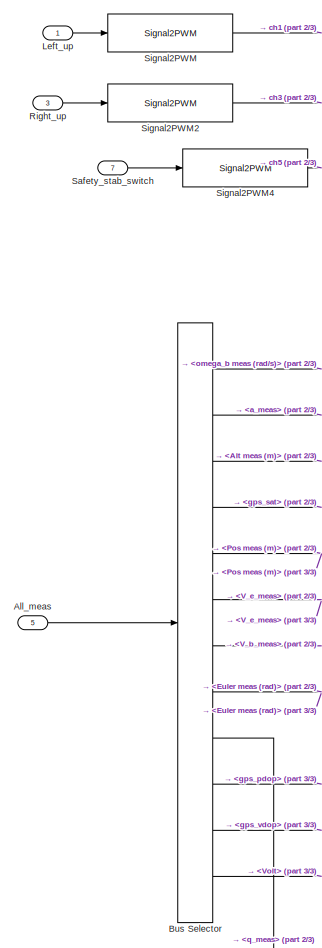
[diagram: TriCopter FCS/Simulink to px4 input - part 1/3, top left region]
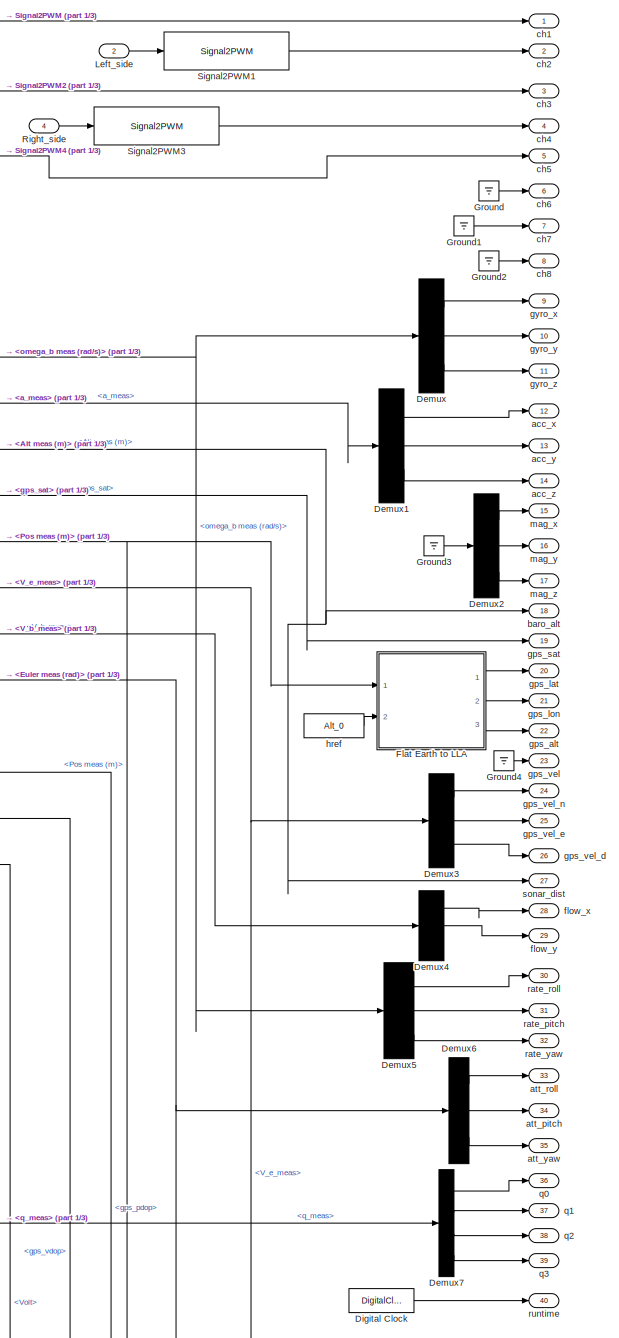
[diagram: TriCopter FCS/Simulink to px4 input - part 2/3, top right region]
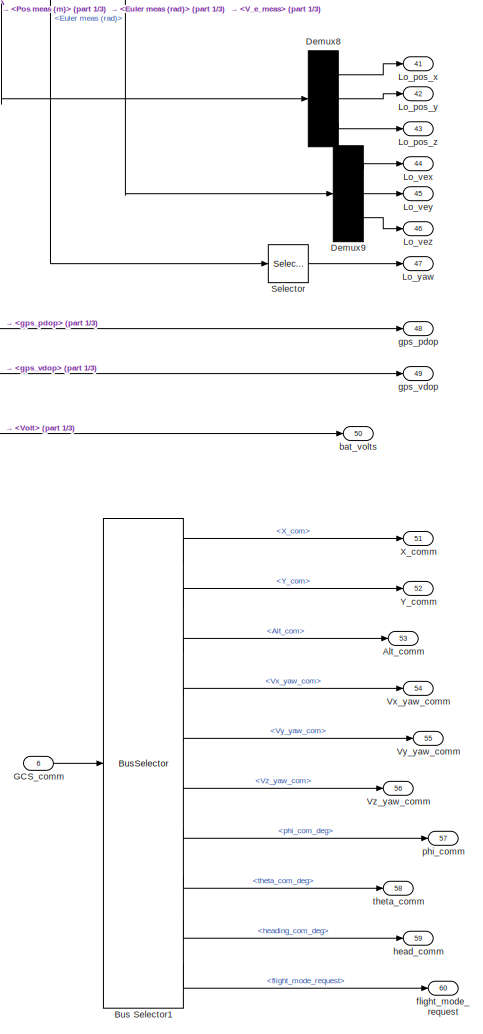
[diagram: TriCopter FCS/Simulink to px4 input - part 3/3, bottom right region]
BLOCK [SubSystem] TriCopter FCS/Simulink to px4 input
  Ports = [7, 60]
  RequestExecContextInheritance = off
  TreatAsAtomicUnit = on
BLOCK [Inport] TriCopter FCS/Simulink to px4 input/All_meas
  IconDisplay = Port number
  Port = 5
BLOCK [Outport] TriCopter FCS/Simulink to px4 input/Alt_comm
  IconDisplay = Port number
  Port = 53
BLOCK [BusSelector] TriCopter FCS/Simulink to px4 input/Bus Selector
  OutputSignals = Meas.omega_b meas (rad/s),Params.a_meas,Meas.Alt meas (m),Params.gps_sat,Meas.Pos meas (m),Meas.V_e_meas,Meas.V_b_meas,Meas.Euler meas (rad),Meas.q_meas,Params.gps_pdop,Params.gps_vdop,Meas.Volt
  Ports = [1, 12]
BLOCK [BusSelector] TriCopter FCS/Simulink to px4 input/Bus Selector1
  OutputSignals = X_com,Y_com,Alt_com,Vx_yaw_com,Vy_yaw_com,Vz_yaw_com,phi_com_deg,theta_com_deg,heading_com_deg,flight_mode_request
  Ports = [1, 10]
BLOCK [Demux] TriCopter FCS/Simulink to px4 input/Demux
  DisplayOption = bar
  Outputs = 3
  Ports = [1, 3]
BLOCK [Demux] TriCopter FCS/Simulink to px4 input/Demux1
  DisplayOption = bar
  Outputs = 3
  Ports = [1, 3]
BLOCK [Demux] TriCopter FCS/Simulink to px4 input/Demux2
  DisplayOption = bar
  Outputs = 3
  Ports = [1, 3]
BLOCK [Demux] TriCopter FCS/Simulink to px4 input/Demux3
  DisplayOption = bar
  Outputs = 3
  Ports = [1, 3]
BLOCK [Demux] TriCopter FCS/Simulink to px4 input/Demux4
  DisplayOption = bar
  Outputs = 3
  Ports = [1, 3]
BLOCK [Demux] TriCopter FCS/Simulink to px4 input/Demux5
  DisplayOption = bar
  Outputs = 3
  Ports = [1, 3]
BLOCK [Demux] TriCopter FCS/Simulink to px4 input/Demux6
  DisplayOption = bar
  Outputs = 3
  Ports = [1, 3]
BLOCK [Demux] TriCopter FCS/Simulink to px4 input/Demux7
  DisplayOption = bar
  Ports = [1, 4]
BLOCK [Demux] TriCopter FCS/Simulink to px4 input/Demux8
  DisplayOption = bar
  Outputs = 3
  Ports = [1, 3]
BLOCK [Demux] TriCopter FCS/Simulink to px4 input/Demux9
  DisplayOption = bar
  Outputs = 3
  Ports = [1, 3]
BLOCK [DigitalClock] TriCopter FCS/Simulink to px4 input/Digital Clock
  SampleTime = T_ctrl
BLOCK [SubSystem] TriCopter FCS/Simulink to px4 input/Flat Earth to LLA
  Ports = [2, 3]
  RequestExecContextInheritance = off
BLOCK [Sum] TriCopter FCS/Simulink to px4 input/Flat Earth to LLA/Add
  InputSameDT = off
  OutDataTypeStr = Inherit: Inherit via internal rule
  Ports = [2, 1]
  SaturateOnIntegerOverflow = off
BLOCK [Demux] TriCopter FCS/Simulink to px4 input/Flat Earth to LLA/Demux1
  Outputs = 3
  Ports = [1, 3]
BLOCK [Demux] TriCopter FCS/Simulink to px4 input/Flat Earth to LLA/Demux2
  Outputs = 2
  Ports = [1, 2]
BLOCK [Mux] TriCopter FCS/Simulink to px4 input/Flat Earth to LLA/Mux
  DisplayOption = bar
  Inputs = 2
  Ports = [2, 1]
BLOCK [Mux] TriCopter FCS/Simulink to px4 input/Flat Earth to LLA/Mux1
  DisplayOption = bar
  Inputs = 3
  Ports = [3, 1]
BLOCK [Selector] TriCopter FCS/Simulink to px4 input/Flat Earth to LLA/Selector
  Indices = 3
  InputPortWidth = 3
  Ports = [1, 1]
BLOCK [UnaryMinus] TriCopter FCS/Simulink to px4 input/Flat Earth to LLA/Unary Minus1
BLOCK [Inport] TriCopter FCS/Simulink to px4 input/Flat Earth to LLA/Xe
  IconDisplay = Port number
BLOCK [Outport] TriCopter FCS/Simulink to px4 input/Flat Earth to LLA/altitude h
  IconDisplay = Port number
  Port = 3
BLOCK [Inport] TriCopter FCS/Simulink to px4 input/Flat Earth to LLA/altitude0
  IconDisplay = Port number
  Port = 2
BLOCK [Gain] TriCopter FCS/Simulink to px4 input/Flat Earth to LLA/deg2rad
  Gain = pi/180
  OutDataTypeStr = Inherit: Inherit via internal rule
BLOCK [Outport] TriCopter FCS/Simulink to px4 input/Flat Earth to LLA/latitude mu
  IconDisplay = Port number
BLOCK [Outport] TriCopter FCS/Simulink to px4 input/Flat Earth to LLA/longitude l
  IconDisplay = Port number
  Port = 2
BLOCK [SubSystem] TriCopter FCS/Simulink to px4 input/Flat Earth to LLA/ne to lat//long
  AncestorBlock = navlibrary/ne to lat//long
  Ports = [1, 2]
  RequestExecContextInheritance = off
BLOCK [Demux] TriCopter FCS/Simulink to px4 input/Flat Earth to LLA/ne to lat//long/Demux
  DisplayOption = bar
  Outputs = 2
  Ports = [1, 2]
BLOCK [SubSystem] TriCopter FCS/Simulink to px4 input/Flat Earth to LLA/ne to lat//long/Latitude Between +//- 90 
  Ports = [1, 1]
  RequestExecContextInheritance = off
  TreatAsAtomicUnit = on
BLOCK [Constant] TriCopter FCS/Simulink to px4 input/Flat Earth to LLA/ne to lat//long/Latitude Between +//- 90 /Constant1
  Value = 180
BLOCK [Constant] TriCopter FCS/Simulink to px4 input/Flat Earth to LLA/ne to lat//long/Latitude Between +//- 90 /Constant3
  Value = 90
BLOCK [Constant] TriCopter FCS/Simulink to px4 input/Flat Earth to LLA/ne to lat//long/Latitude Between +//- 90 /Constant4
  Value = 180
BLOCK [Constant] TriCopter FCS/Simulink to px4 input/Flat Earth to LLA/ne to lat//long/Latitude Between +//- 90 /Constant5
  Value = 360
BLOCK [DataTypeConversion] TriCopter FCS/Simulink to px4 input/Flat Earth to LLA/ne to lat//long/Latitude Between +//- 90 /Data Type Conversion
  RndMeth = Floor
  SaturateOnIntegerOverflow = off
BLOCK [Demux] TriCopter FCS/Simulink to px4 input/Flat Earth to LLA/ne to lat//long/Latitude Between +//- 90 /Demux
  DisplayOption = bar
  Outputs = 2
  Ports = [1, 2]
BLOCK [Gain] TriCopter FCS/Simulink to px4 input/Flat Earth to LLA/ne to lat//long/Latitude Between +//- 90 /Gain
  Gain = 180
  OutDataTypeStr = Inherit: Inherit via internal rule
  ParamDataTypeStr = Inherit: Inherit via internal rule
  SaturateOnIntegerOverflow = off
BLOCK [Gain] TriCopter FCS/Simulink to px4 input/Flat Earth to LLA/ne to lat//long/Latitude Between +//- 90 /Gain1
  Gain = 2
  OutDataTypeStr = Inherit: Inherit via internal rule
  ParamDataTypeStr = Inherit: Inherit via internal rule
  SaturateOnIntegerOverflow = off
BLOCK [Gain] TriCopter FCS/Simulink to px4 input/Flat Earth to LLA/ne to lat//long/Latitude Between +//- 90 /Gain2
  Gain = 2
  OutDataTypeStr = Inherit: Inherit via internal rule
  ParamDataTypeStr = Inherit: Inherit via internal rule
  SaturateOnIntegerOverflow = off
BLOCK [Gain] TriCopter FCS/Simulink to px4 input/Flat Earth to LLA/ne to lat//long/Latitude Between +//- 90 /Gain3
  Gain = 360
  OutDataTypeStr = Inherit: Inherit via internal rule
  ParamDataTypeStr = Inherit: Inherit via internal rule
  SaturateOnIntegerOverflow = off
BLOCK [Gain] TriCopter FCS/Simulink to px4 input/Flat Earth to LLA/ne to lat//long/Latitude Between +//- 90 /Gain4
  Gain = 180
  OutDataTypeStr = Inherit: Inherit via internal rule
  ParamDataTypeStr = Inherit: Inherit via internal rule
  SaturateOnIntegerOverflow = off
BLOCK [Logic] TriCopter FCS/Simulink to px4 input/Flat Earth to LLA/ne to lat//long/Latitude Between +//- 90 /Logical Operator1
  AllPortsSameDT = off
  OutDataTypeStr = boolean
  Ports = [2, 1]
BLOCK [Math] TriCopter FCS/Simulink to px4 input/Flat Earth to LLA/ne to lat//long/Latitude Between +//- 90 /Math Function1
  Operator = rem
  Ports = [2, 1]
BLOCK [Math] TriCopter FCS/Simulink to px4 input/Flat Earth to LLA/ne to lat//long/Latitude Between +//- 90 /Math Function2
  Operator = rem
  Ports = [2, 1]
BLOCK [Mux] TriCopter FCS/Simulink to px4 input/Flat Earth to LLA/ne to lat//long/Latitude Between +//- 90 /Mux
  DisplayOption = bar
  Inputs = 2
  Ports = [2, 1]
BLOCK [Product] TriCopter FCS/Simulink to px4 input/Flat Earth to LLA/ne to lat//long/Latitude Between +//- 90 /Product
  InputSameDT = off
  Inputs = */
  OutDataTypeStr = Inherit: Inherit via internal rule
  Ports = [2, 1]
  SaturateOnIntegerOverflow = off
BLOCK [Product] TriCopter FCS/Simulink to px4 input/Flat Earth to LLA/ne to lat//long/Latitude Between +//- 90 /Product1
  InputSameDT = off
  OutDataTypeStr = Inherit: Inherit via internal rule
  Ports = [2, 1]
  SaturateOnIntegerOverflow = off
BLOCK [Product] TriCopter FCS/Simulink to px4 input/Flat Earth to LLA/ne to lat//long/Latitude Between +//- 90 /Product2
  InputSameDT = off
  Inputs = */
  OutDataTypeStr = Inherit: Inherit via internal rule
  Ports = [2, 1]
  SaturateOnIntegerOverflow = off
BLOCK [Product] TriCopter FCS/Simulink to px4 input/Flat Earth to LLA/ne to lat//long/Latitude Between +//- 90 /Product3
  InputSameDT = off
  OutDataTypeStr = Inherit: Inherit via internal rule
  Ports = [2, 1]
  SaturateOnIntegerOverflow = off
BLOCK [Rounding] TriCopter FCS/Simulink to px4 input/Flat Earth to LLA/ne to lat//long/Latitude Between +//- 90 /Rounding Function
  Operator = fix
BLOCK [Rounding] TriCopter FCS/Simulink to px4 input/Flat Earth to LLA/ne to lat//long/Latitude Between +//- 90 /Rounding Function1
  Operator = fix
BLOCK [Rounding] TriCopter FCS/Simulink to px4 input/Flat Earth to LLA/ne to lat//long/Latitude Between +//- 90 /Rounding Function2
  Operator = fix
BLOCK [Sum] TriCopter FCS/Simulink to px4 input/Flat Earth to LLA/ne to lat//long/Latitude Between +//- 90 /Sum1
  IconShape = round
  InputSameDT = off
  Inputs = |-+
  OutDataTypeStr = Inherit: Inherit via internal rule
  Ports = [2, 1]
  SaturateOnIntegerOverflow = off
BLOCK [Sum] TriCopter FCS/Simulink to px4 input/Flat Earth to LLA/ne to lat//long/Latitude Between +//- 90 /Sum2
  IconShape = round
  InputSameDT = off
  Inputs = +--
  OutDataTypeStr = Inherit: Inherit via internal rule
  Ports = [3, 1]
  SaturateOnIntegerOverflow = off
BLOCK [Sum] TriCopter FCS/Simulink to px4 input/Flat Earth to LLA/ne to lat//long/Latitude Between +//- 90 /Sum3
  IconShape = round
  InputSameDT = off
  Inputs = ++|
  OutDataTypeStr = Inherit: Inherit via internal rule
  Ports = [2, 1]
  SaturateOnIntegerOverflow = off
BLOCK [Inport] TriCopter FCS/Simulink to px4 input/Flat Earth to LLA/ne to lat//long/Latitude Between +//- 90 /mu l
  IconDisplay = Port number
BLOCK [Outport] TriCopter FCS/Simulink to px4 input/Flat Earth to LLA/ne to lat//long/Latitude Between +//- 90 /mu l 
  IconDisplay = Port number
BLOCK [Sqrt] TriCopter FCS/Simulink to px4 input/Flat Earth to LLA/ne to lat//long/Latitude Between +//- 90 /sqrt
  AlgorithmType = Newton-Raphson
BLOCK [SubSystem] TriCopter FCS/Simulink to px4 input/Flat Earth to LLA/ne to lat//long/LongLat_offset 
  Ports = [2, 1]
  RequestExecContextInheritance = off
  TreatAsAtomicUnit = on
BLOCK [Trigonometry] TriCopter FCS/Simulink to px4 input/Flat Earth to LLA/ne to lat//long/LongLat_offset / 
  Ports = [1, 1]
BLOCK [Trigonometry] TriCopter FCS/Simulink to px4 input/Flat Earth to LLA/ne to lat//long/LongLat_offset /  
  Operator = cos
  Ports = [1, 1]
BLOCK [Outport] TriCopter FCS/Simulink to px4 input/Flat Earth to LLA/ne to lat//long/LongLat_offset /DeltaLL_rad
  IconDisplay = Port number
BLOCK [Demux] TriCopter FCS/Simulink to px4 input/Flat Earth to LLA/ne to lat//long/LongLat_offset /Demux
  DisplayOption = bar
  Outputs = 2
  Ports = [1, 2]
BLOCK [SubSystem] TriCopter FCS/Simulink to px4 input/Flat Earth to LLA/ne to lat//long/LongLat_offset /Find Radian//Distance 
  Ports = [1, 2]
  RequestExecContextInheritance = off
  TreatAsAtomicUnit = on
BLOCK [Constant] TriCopter FCS/Simulink to px4 input/Flat Earth to LLA/ne to lat//long/LongLat_offset /Find Radian//Distance /Constant
BLOCK [Constant] TriCopter FCS/Simulink to px4 input/Flat Earth to LLA/ne to lat//long/LongLat_offset /Find Radian//Distance /Constant1
  Value = 6378137
BLOCK [Constant] TriCopter FCS/Simulink to px4 input/Flat Earth to LLA/ne to lat//long/LongLat_offset /Find Radian//Distance /Constant2
BLOCK [Constant] TriCopter FCS/Simulink to px4 input/Flat Earth to LLA/ne to lat//long/LongLat_offset /Find Radian//Distance /Constant3
BLOCK [Constant] TriCopter FCS/Simulink to px4 input/Flat Earth to LLA/ne to lat//long/LongLat_offset /Find Radian//Distance /Constant4
  Value = 1/298.257223563
BLOCK [Constant] TriCopter FCS/Simulink to px4 input/Flat Earth to LLA/ne to lat//long/LongLat_offset /Find Radian//Distance /Constant5
BLOCK [Constant] TriCopter FCS/Simulink to px4 input/Flat Earth to LLA/ne to lat//long/LongLat_offset /Find Radian//Distance /Constant6
BLOCK [Product] TriCopter FCS/Simulink to px4 input/Flat Earth to LLA/ne to lat//long/LongLat_offset /Find Radian//Distance /Product1
  InputSameDT = off
  Inputs = */
  OutDataTypeStr = Inherit: Inherit via internal rule
  Ports = [2, 1]
  SaturateOnIntegerOverflow = off
BLOCK [Product] TriCopter FCS/Simulink to px4 input/Flat Earth to LLA/ne to lat//long/LongLat_offset /Find Radian//Distance /Product2
  InputSameDT = off
  OutDataTypeStr = Inherit: Inherit via internal rule
  Ports = [2, 1]
  SaturateOnIntegerOverflow = off
BLOCK [Product] TriCopter FCS/Simulink to px4 input/Flat Earth to LLA/ne to lat//long/LongLat_offset /Find Radian//Distance /Product3
  InputSameDT = off
  Inputs = **/
  OutDataTypeStr = Inherit: Inherit via internal rule
  Ports = [3, 1]
  SaturateOnIntegerOverflow = off
BLOCK [Product] TriCopter FCS/Simulink to px4 input/Flat Earth to LLA/ne to lat//long/LongLat_offset /Find Radian//Distance /Product4
  InputSameDT = off
  OutDataTypeStr = Inherit: Inherit via internal rule
  Ports = [2, 1]
  SaturateOnIntegerOverflow = off
BLOCK [Product] TriCopter FCS/Simulink to px4 input/Flat Earth to LLA/ne to lat//long/LongLat_offset /Find Radian//Distance /Product5
  InputSameDT = off
  OutDataTypeStr = Inherit: Inherit via internal rule
  Ports = [2, 1]
  SaturateOnIntegerOverflow = off
BLOCK [Product] TriCopter FCS/Simulink to px4 input/Flat Earth to LLA/ne to lat//long/LongLat_offset /Find Radian//Distance /Product6
  InputSameDT = off
  Inputs = 4
  OutDataTypeStr = Inherit: Inherit via internal rule
  Ports = [4, 1]
  SaturateOnIntegerOverflow = off
BLOCK [Sum] TriCopter FCS/Simulink to px4 input/Flat Earth to LLA/ne to lat//long/LongLat_offset /Find Radian//Distance /Sum
  IconShape = round
  InputSameDT = off
  Inputs = -+
  OutDataTypeStr = Inherit: Inherit via internal rule
  Ports = [2, 1]
  SaturateOnIntegerOverflow = off
BLOCK [Sum] TriCopter FCS/Simulink to px4 input/Flat Earth to LLA/ne to lat//long/LongLat_offset /Find Radian//Distance /Sum1
  IconShape = round
  InputSameDT = off
  Inputs = |+-
  OutDataTypeStr = Inherit: Inherit via internal rule
  Ports = [2, 1]
  SaturateOnIntegerOverflow = off
BLOCK [Sum] TriCopter FCS/Simulink to px4 input/Flat Earth to LLA/ne to lat//long/LongLat_offset /Find Radian//Distance /Sum2
  IconShape = round
  InputSameDT = off
  Inputs = |+-
  OutDataTypeStr = Inherit: Inherit via internal rule
  Ports = [2, 1]
  SaturateOnIntegerOverflow = off
BLOCK [Sum] TriCopter FCS/Simulink to px4 input/Flat Earth to LLA/ne to lat//long/LongLat_offset /Find Radian//Distance /Sum3
  IconShape = round
  InputSameDT = off
  Inputs = |+-
  OutDataTypeStr = Inherit: Inherit via internal rule
  Ports = [2, 1]
  SaturateOnIntegerOverflow = off
BLOCK [Trigonometry] TriCopter FCS/Simulink to px4 input/Flat Earth to LLA/ne to lat//long/LongLat_offset /Find Radian//Distance /Trigonometric Function
  Operator = cos
  Ports = [1, 1]
BLOCK [Trigonometry] TriCopter FCS/Simulink to px4 input/Flat Earth to LLA/ne to lat//long/LongLat_offset /Find Radian//Distance /Trigonometric Function1
  Operator = atan2
  Ports = [2, 1]
BLOCK [Trigonometry] TriCopter FCS/Simulink to px4 input/Flat Earth to LLA/ne to lat//long/LongLat_offset /Find Radian//Distance /Trigonometric Function2
  Operator = atan2
  Ports = [2, 1]
BLOCK [Trigonometry] TriCopter FCS/Simulink to px4 input/Flat Earth to LLA/ne to lat//long/LongLat_offset /Find Radian//Distance /Trigonometric Function3
  Ports = [1, 1]
BLOCK [Outport] TriCopter FCS/Simulink to px4 input/Flat Earth to LLA/ne to lat//long/LongLat_offset /Find Radian//Distance /dEast
  IconDisplay = Port number
  Port = 2
BLOCK [Outport] TriCopter FCS/Simulink to px4 input/Flat Earth to LLA/ne to lat//long/LongLat_offset /Find Radian//Distance /dNorth
  IconDisplay = Port number
BLOCK [Gain] TriCopter FCS/Simulink to px4 input/Flat Earth to LLA/ne to lat//long/LongLat_offset /Find Radian//Distance /deg2rad
  Gain = pi/180
BLOCK [Constant] TriCopter FCS/Simulink to px4 input/Flat Earth to LLA/ne to lat//long/LongLat_offset /Find Radian//Distance /f
BLOCK [Inport] TriCopter FCS/Simulink to px4 input/Flat Earth to LLA/ne to lat//long/LongLat_offset /Find Radian//Distance /mu
  IconDisplay = Port number
BLOCK [Sqrt] TriCopter FCS/Simulink to px4 input/Flat Earth to LLA/ne to lat//long/LongLat_offset /Find Radian//Distance /sqrt
  AlgorithmType = Newton-Raphson
BLOCK [Sqrt] TriCopter FCS/Simulink to px4 input/Flat Earth to LLA/ne to lat//long/LongLat_offset /Find Radian//Distance /sqrt1
  AlgorithmType = Newton-Raphson
BLOCK [Mux] TriCopter FCS/Simulink to px4 input/Flat Earth to LLA/ne to lat//long/LongLat_offset /Mux
  DisplayOption = bar
  Inputs = 2
  Ports = [2, 1]
BLOCK [Sum] TriCopter FCS/Simulink to px4 input/Flat Earth to LLA/ne to lat//long/LongLat_offset /Sum
  IconShape = round
  InputSameDT = off
  Inputs = |+-
  OutDataTypeStr = Inherit: Inherit via internal rule
  Ports = [2, 1]
  SaturateOnIntegerOverflow = off
BLOCK [Sum] TriCopter FCS/Simulink to px4 input/Flat Earth to LLA/ne to lat//long/LongLat_offset /Sum1
  IconShape = round
  InputSameDT = off
  Inputs = |++
  OutDataTypeStr = Inherit: Inherit via internal rule
  Ports = [2, 1]
  SaturateOnIntegerOverflow = off
BLOCK [Inport] TriCopter FCS/Simulink to px4 input/Flat Earth to LLA/ne to lat//long/LongLat_offset /XY
  IconDisplay = Port number
BLOCK [Gain] TriCopter FCS/Simulink to px4 input/Flat Earth to LLA/ne to lat//long/LongLat_offset /deg2rad
  Gain = pi/180
BLOCK [Inport] TriCopter FCS/Simulink to px4 input/Flat Earth to LLA/ne to lat//long/LongLat_offset /mu
  IconDisplay = Port number
  Port = 2
BLOCK [Product] TriCopter FCS/Simulink to px4 input/Flat Earth to LLA/ne to lat//long/LongLat_offset /rad lat
  InputSameDT = off
  OutDataTypeStr = Inherit: Inherit via internal rule
  Ports = [2, 1]
  SaturateOnIntegerOverflow = off
BLOCK [Product] TriCopter FCS/Simulink to px4 input/Flat Earth to LLA/ne to lat//long/LongLat_offset /rad long 
  InputSameDT = off
  OutDataTypeStr = Inherit: Inherit via internal rule
  Ports = [2, 1]
  SaturateOnIntegerOverflow = off
BLOCK [Constant] TriCopter FCS/Simulink to px4 input/Flat Earth to LLA/ne to lat//long/LongLat_offset /ref_pos
  Value = 0
BLOCK [Product] TriCopter FCS/Simulink to px4 input/Flat Earth to LLA/ne to lat//long/LongLat_offset /x*cos
  InputSameDT = off
  OutDataTypeStr = Inherit: Inherit via internal rule
  Ports = [2, 1]
  SaturateOnIntegerOverflow = off
BLOCK [Product] TriCopter FCS/Simulink to px4 input/Flat Earth to LLA/ne to lat//long/LongLat_offset /x*sin
  InputSameDT = off
  OutDataTypeStr = Inherit: Inherit via internal rule
  Ports = [2, 1]
  SaturateOnIntegerOverflow = off
BLOCK [Product] TriCopter FCS/Simulink to px4 input/Flat Earth to LLA/ne to lat//long/LongLat_offset /y*cos
  InputSameDT = off
  OutDataTypeStr = Inherit: Inherit via internal rule
  Ports = [2, 1]
  SaturateOnIntegerOverflow = off
BLOCK [Product] TriCopter FCS/Simulink to px4 input/Flat Earth to LLA/ne to lat//long/LongLat_offset /y*sin
  InputSameDT = off
  OutDataTypeStr = Inherit: Inherit via internal rule
  Ports = [2, 1]
  SaturateOnIntegerOverflow = off
BLOCK [SubSystem] TriCopter FCS/Simulink to px4 input/Flat Earth to LLA/ne to lat//long/Longitude Between +//-180 
  Ports = [1, 1]
  RequestExecContextInheritance = off
  TreatAsAtomicUnit = on
BLOCK [Constant] TriCopter FCS/Simulink to px4 input/Flat Earth to LLA/ne to lat//long/Longitude Between +//-180 /Constant
  Value = 180
BLOCK [Constant] TriCopter FCS/Simulink to px4 input/Flat Earth to LLA/ne to lat//long/Longitude Between +//-180 /Constant2
  Value = 360
BLOCK [Demux] TriCopter FCS/Simulink to px4 input/Flat Earth to LLA/ne to lat//long/Longitude Between +//-180 /Demux1
  DisplayOption = bar
  Outputs = 2
  Ports = [1, 2]
BLOCK [Gain] TriCopter FCS/Simulink to px4 input/Flat Earth to LLA/ne to lat//long/Longitude Between +//-180 /Gain
  Gain = 360
  OutDataTypeStr = Inherit: Inherit via internal rule
  ParamDataTypeStr = Inherit: Inherit via internal rule
  SaturateOnIntegerOverflow = off
BLOCK [Math] TriCopter FCS/Simulink to px4 input/Flat Earth to LLA/ne to lat//long/Longitude Between +//-180 /Math Function2
  Operator = rem
  Ports = [2, 1]
BLOCK [Mux] TriCopter FCS/Simulink to px4 input/Flat Earth to LLA/ne to lat//long/Longitude Between +//-180 /Mux1
  DisplayOption = bar
  Inputs = 2
  Ports = [2, 1]
BLOCK [Product] TriCopter FCS/Simulink to px4 input/Flat Earth to LLA/ne to lat//long/Longitude Between +//-180 /Product
  InputSameDT = off
  Inputs = */
  OutDataTypeStr = Inherit: Inherit via internal rule
  Ports = [2, 1]
  SaturateOnIntegerOverflow = off
BLOCK [Rounding] TriCopter FCS/Simulink to px4 input/Flat Earth to LLA/ne to lat//long/Longitude Between +//-180 /Rounding Function
  Operator = fix
BLOCK [Sum] TriCopter FCS/Simulink to px4 input/Flat Earth to LLA/ne to lat//long/Longitude Between +//-180 /Sum2
  IconShape = round
  InputSameDT = off
  Inputs = |-+
  OutDataTypeStr = Inherit: Inherit via internal rule
  Ports = [2, 1]
  SaturateOnIntegerOverflow = off
BLOCK [Inport] TriCopter FCS/Simulink to px4 input/Flat Earth to LLA/ne to lat//long/Longitude Between +//-180 /mu l
  IconDisplay = Port number
BLOCK [Outport] TriCopter FCS/Simulink to px4 input/Flat Earth to LLA/ne to lat//long/Longitude Between +//-180 /mu l 
  IconDisplay = Port number
BLOCK [Selector] TriCopter FCS/Simulink to px4 input/Flat Earth to LLA/ne to lat//long/Sel1
  Indices = [1,2]
  InputPortWidth = 3
  Ports = [1, 1]
BLOCK [Sum] TriCopter FCS/Simulink to px4 input/Flat Earth to LLA/ne to lat//long/Sum2
  IconShape = round
  InputSameDT = off
  Inputs = ++|
  OutDataTypeStr = Inherit: Inherit via internal rule
  Ports = [2, 1]
  SaturateOnIntegerOverflow = off
BLOCK [Inport] TriCopter FCS/Simulink to px4 input/Flat Earth to LLA/ne to lat//long/Xe
  IconDisplay = Port number
BLOCK [Constant] TriCopter FCS/Simulink to px4 input/Flat Earth to LLA/ne to lat//long/initial_latg
  Value = latitude
BLOCK [Constant] TriCopter FCS/Simulink to px4 input/Flat Earth to LLA/ne to lat//long/initial_pos
  Value = [latitude,longitude]
BLOCK [Outport] TriCopter FCS/Simulink to px4 input/Flat Earth to LLA/ne to lat//long/lat_deg
  IconDisplay = Port number
BLOCK [Outport] TriCopter FCS/Simulink to px4 input/Flat Earth to LLA/ne to lat//long/long_deg
  IconDisplay = Port number
  Port = 2
BLOCK [Gain] TriCopter FCS/Simulink to px4 input/Flat Earth to LLA/ne to lat//long/rad2deg
  Gain = 180/pi
BLOCK [Inport] TriCopter FCS/Simulink to px4 input/GCS_comm
  IconDisplay = Port number
  Port = 6
BLOCK [Ground] TriCopter FCS/Simulink to px4 input/Ground
BLOCK [Ground] TriCopter FCS/Simulink to px4 input/Ground1
BLOCK [Ground] TriCopter FCS/Simulink to px4 input/Ground2
BLOCK [Ground] TriCopter FCS/Simulink to px4 input/Ground3
BLOCK [Ground] TriCopter FCS/Simulink to px4 input/Ground4
BLOCK [Inport] TriCopter FCS/Simulink to px4 input/Left_side
  IconDisplay = Port number
  Port = 2
BLOCK [Inport] TriCopter FCS/Simulink to px4 input/Left_up
  IconDisplay = Port number
BLOCK [Outport] TriCopter FCS/Simulink to px4 input/Lo_pos_x
  IconDisplay = Port number
  Port = 41
BLOCK [Outport] TriCopter FCS/Simulink to px4 input/Lo_pos_y
  IconDisplay = Port number
  Port = 42
BLOCK [Outport] TriCopter FCS/Simulink to px4 input/Lo_pos_z
  IconDisplay = Port number
  Port = 43
BLOCK [Outport] TriCopter FCS/Simulink to px4 input/Lo_vex
  IconDisplay = Port number
  Port = 44
BLOCK [Outport] TriCopter FCS/Simulink to px4 input/Lo_vey
  IconDisplay = Port number
  Port = 45
BLOCK [Outport] TriCopter FCS/Simulink to px4 input/Lo_vez
  IconDisplay = Port number
  Port = 46
BLOCK [Outport] TriCopter FCS/Simulink to px4 input/Lo_yaw
  IconDisplay = Port number
  Port = 47
BLOCK [Inport] TriCopter FCS/Simulink to px4 input/Right_side
  IconDisplay = Port number
  Port = 4
BLOCK [Inport] TriCopter FCS/Simulink to px4 input/Right_up
  IconDisplay = Port number
  Port = 3
BLOCK [Inport] TriCopter FCS/Simulink to px4 input/Safety_stab_switch
  IconDisplay = Port number
  Port = 7
BLOCK [Selector] TriCopter FCS/Simulink to px4 input/Selector
  Indices = 3
  InputPortWidth = 3
  Ports = [1, 1]
BLOCK [Reference] TriCopter FCS/Simulink to px4 input/Signal2PWM  REF=XXCopter_Control/Signal2PWM
  Ports = [1, 1]
  SourceBlock = XXCopter_Control/Signal2PWM
  a = 1800
  b = 1
  c = 1200
  d = -1
BLOCK [Reference] TriCopter FCS/Simulink to px4 input/Signal2PWM1  REF=XXCopter_Control/Signal2PWM
  Ports = [1, 1]
  SourceBlock = XXCopter_Control/Signal2PWM
  a = 1800
  b = 1
  c = 1200
  d = -1
BLOCK [Reference] TriCopter FCS/Simulink to px4 input/Signal2PWM2  REF=XXCopter_Control/Signal2PWM
  Ports = [1, 1]
  SourceBlock = XXCopter_Control/Signal2PWM
  a = 1800
  b = 1
  c = 1200
  d = -1
BLOCK [Reference] TriCopter FCS/Simulink to px4 input/Signal2PWM3  REF=XXCopter_Control/Signal2PWM
  Ports = [1, 1]
  SourceBlock = XXCopter_Control/Signal2PWM
  a = 1800
  b = 1
  c = 1200
  d = -1
BLOCK [Reference] TriCopter FCS/Simulink to px4 input/Signal2PWM4  REF=XXCopter_Control/Signal2PWM
  Ports = [1, 1]
  SourceBlock = XXCopter_Control/Signal2PWM
  a = 1800
  b = 1
  c = 1200
  d = 0
BLOCK [Outport] TriCopter FCS/Simulink to px4 input/Vx_yaw_comm
  IconDisplay = Port number
  Port = 54
BLOCK [Outport] TriCopter FCS/Simulink to px4 input/Vy_yaw_comm
  IconDisplay = Port number
  Port = 55
BLOCK [Outport] TriCopter FCS/Simulink to px4 input/Vz_yaw_comm
  IconDisplay = Port number
  Port = 56
BLOCK [Outport] TriCopter FCS/Simulink to px4 input/X_comm
  IconDisplay = Port number
  Port = 51
BLOCK [Outport] TriCopter FCS/Simulink to px4 input/Y_comm
  IconDisplay = Port number
  Port = 52
BLOCK [Outport] TriCopter FCS/Simulink to px4 input/acc_x
  IconDisplay = Port number
  Port = 12
BLOCK [Outport] TriCopter FCS/Simulink to px4 input/acc_y
  IconDisplay = Port number
  Port = 13
BLOCK [Outport] TriCopter FCS/Simulink to px4 input/acc_z
  IconDisplay = Port number
  Port = 14
BLOCK [Outport] TriCopter FCS/Simulink to px4 input/att_pitch
  IconDisplay = Port number
  Port = 34
BLOCK [Outport] TriCopter FCS/Simulink to px4 input/att_roll
  IconDisplay = Port number
  Port = 33
BLOCK [Outport] TriCopter FCS/Simulink to px4 input/att_yaw
  IconDisplay = Port number
  Port = 35
BLOCK [Outport] TriCopter FCS/Simulink to px4 input/baro_alt
  IconDisplay = Port number
  Port = 18
BLOCK [Outport] TriCopter FCS/Simulink to px4 input/bat_volts
  IconDisplay = Port number
  Port = 50
BLOCK [Outport] TriCopter FCS/Simulink to px4 input/ch1
  IconDisplay = Port number
BLOCK [Outport] TriCopter FCS/Simulink to px4 input/ch2
  IconDisplay = Port number
  Port = 2
BLOCK [Outport] TriCopter FCS/Simulink to px4 input/ch3
  IconDisplay = Port number
  Port = 3
BLOCK [Outport] TriCopter FCS/Simulink to px4 input/ch4
  IconDisplay = Port number
  Port = 4
BLOCK [Outport] TriCopter FCS/Simulink to px4 input/ch5
  IconDisplay = Port number
  Port = 5
BLOCK [Outport] TriCopter FCS/Simulink to px4 input/ch6
  IconDisplay = Port number
  Port = 6
BLOCK [Outport] TriCopter FCS/Simulink to px4 input/ch7
  IconDisplay = Port number
  Port = 7
BLOCK [Outport] TriCopter FCS/Simulink to px4 input/ch8
  IconDisplay = Port number
  Port = 8
BLOCK [Outport] TriCopter FCS/Simulink to px4 input/flight_mode_request
  IconDisplay = Port number
  Port = 60
BLOCK [Outport] TriCopter FCS/Simulink to px4 input/flow_x
  IconDisplay = Port number
  Port = 28
BLOCK [Outport] TriCopter FCS/Simulink to px4 input/flow_y
  IconDisplay = Port number
  Port = 29
BLOCK [Outport] TriCopter FCS/Simulink to px4 input/gps_alt
  IconDisplay = Port number
  Port = 22
BLOCK [Outport] TriCopter FCS/Simulink to px4 input/gps_lat
  IconDisplay = Port number
  Port = 20
BLOCK [Outport] TriCopter FCS/Simulink to px4 input/gps_lon
  IconDisplay = Port number
  Port = 21
BLOCK [Outport] TriCopter FCS/Simulink to px4 input/gps_pdop
  IconDisplay = Port number
  Port = 48
BLOCK [Outport] TriCopter FCS/Simulink to px4 input/gps_sat
  IconDisplay = Port number
  Port = 19
BLOCK [Outport] TriCopter FCS/Simulink to px4 input/gps_vdop
  IconDisplay = Port number
  Port = 49
BLOCK [Outport] TriCopter FCS/Simulink to px4 input/gps_vel
  IconDisplay = Port number
  Port = 23
BLOCK [Outport] TriCopter FCS/Simulink to px4 input/gps_vel_d
  IconDisplay = Port number
  Port = 26
BLOCK [Outport] TriCopter FCS/Simulink to px4 input/gps_vel_e
  IconDisplay = Port number
  Port = 25
BLOCK [Outport] TriCopter FCS/Simulink to px4 input/gps_vel_n
  IconDisplay = Port number
  Port = 24
BLOCK [Outport] TriCopter FCS/Simulink to px4 input/gyro_x
  IconDisplay = Port number
  Port = 9
BLOCK [Outport] TriCopter FCS/Simulink to px4 input/gyro_y
  IconDisplay = Port number
  Port = 10
BLOCK [Outport] TriCopter FCS/Simulink to px4 input/gyro_z
  IconDisplay = Port number
  Port = 11
BLOCK [Outport] TriCopter FCS/Simulink to px4 input/head_comm
  IconDisplay = Port number
  Port = 59
BLOCK [Constant] TriCopter FCS/Simulink to px4 input/href
  Value = Alt_0
  VectorParams1D = off
BLOCK [Outport] TriCopter FCS/Simulink to px4 input/mag_x
  IconDisplay = Port number
  Port = 15
BLOCK [Outport] TriCopter FCS/Simulink to px4 input/mag_y
  IconDisplay = Port number
  Port = 16
BLOCK [Outport] TriCopter FCS/Simulink to px4 input/mag_z
  IconDisplay = Port number
  Port = 17
BLOCK [Outport] TriCopter FCS/Simulink to px4 input/phi_comm
  IconDisplay = Port number
  Port = 57
BLOCK [Outport] TriCopter FCS/Simulink to px4 input/q0
  IconDisplay = Port number
  Port = 36
BLOCK [Outport] TriCopter FCS/Simulink to px4 input/q1
  IconDisplay = Port number
  Port = 37
BLOCK [Outport] TriCopter FCS/Simulink to px4 input/q2
  IconDisplay = Port number
  Port = 38
BLOCK [Outport] TriCopter FCS/Simulink to px4 input/q3
  IconDisplay = Port number
  Port = 39
BLOCK [Outport] TriCopter FCS/Simulink to px4 input/rate_pitch
  IconDisplay = Port number
  Port = 31
BLOCK [Outport] TriCopter FCS/Simulink to px4 input/rate_roll
  IconDisplay = Port number
  Port = 30
BLOCK [Outport] TriCopter FCS/Simulink to px4 input/rate_yaw
  IconDisplay = Port number
  Port = 32
BLOCK [Outport] TriCopter FCS/Simulink to px4 input/runtime
  IconDisplay = Port number
  Port = 40
BLOCK [Outport] TriCopter FCS/Simulink to px4 input/sonar_dist
  IconDisplay = Port number
  Port = 27
BLOCK [Outport] TriCopter FCS/Simulink to px4 input/theta_comm
  IconDisplay = Port number
  Port = 58
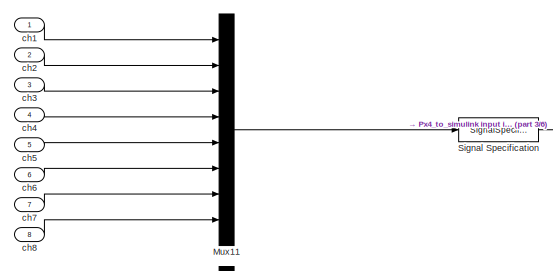
[diagram: TriCopter FCS/TriCopter FCS - part 1/6, top left region]
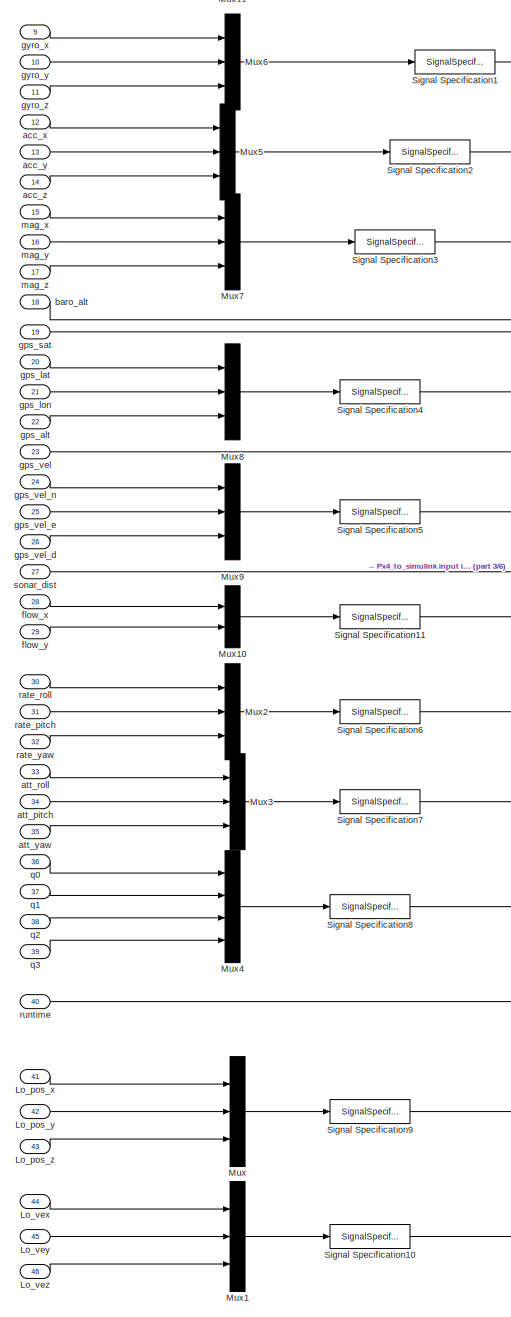
[diagram: TriCopter FCS/TriCopter FCS - part 2/6, left side, full height]
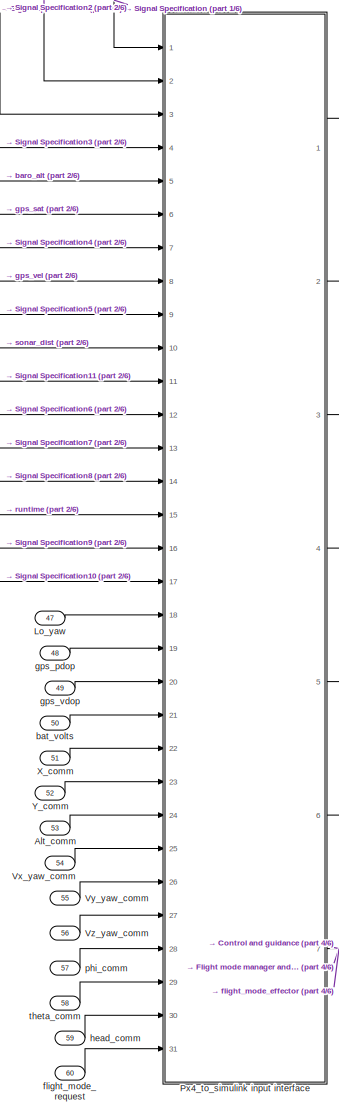
[diagram: TriCopter FCS/TriCopter FCS - part 3/6, middle left region]
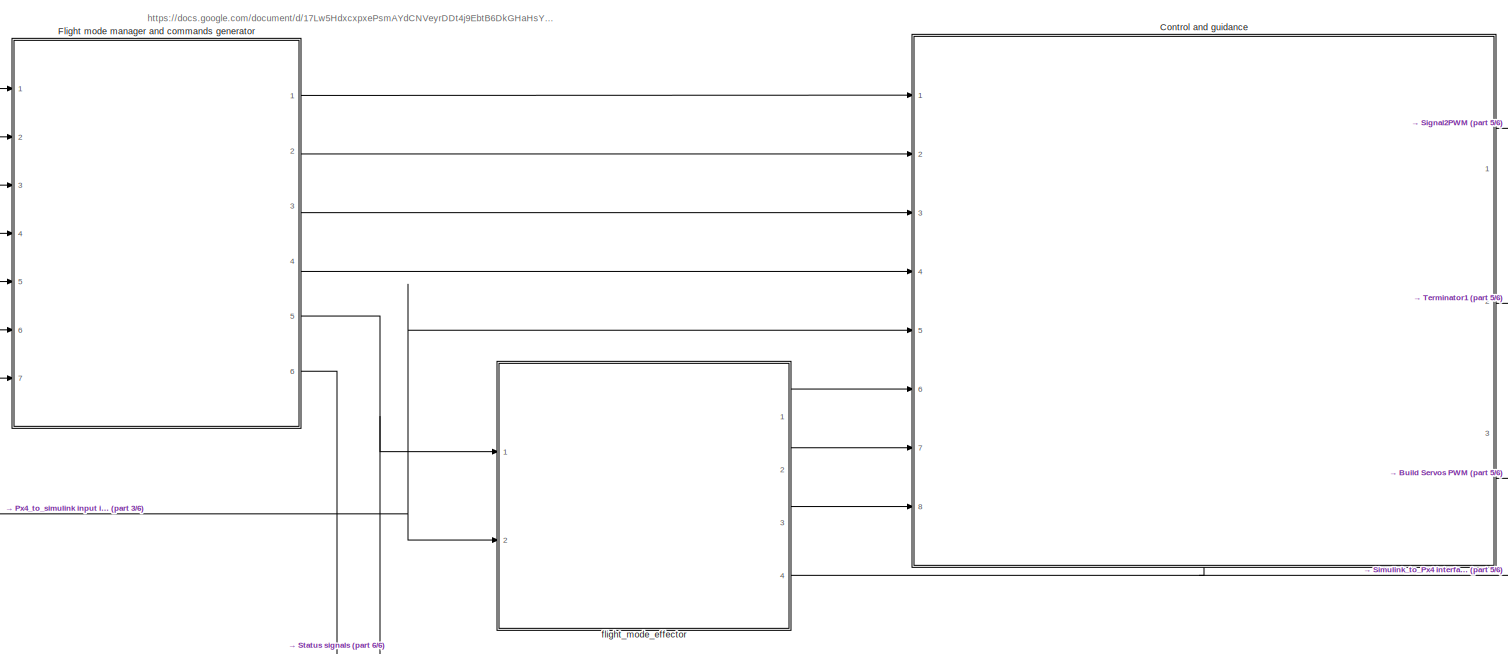
[diagram: TriCopter FCS/TriCopter FCS - part 4/6, central region]
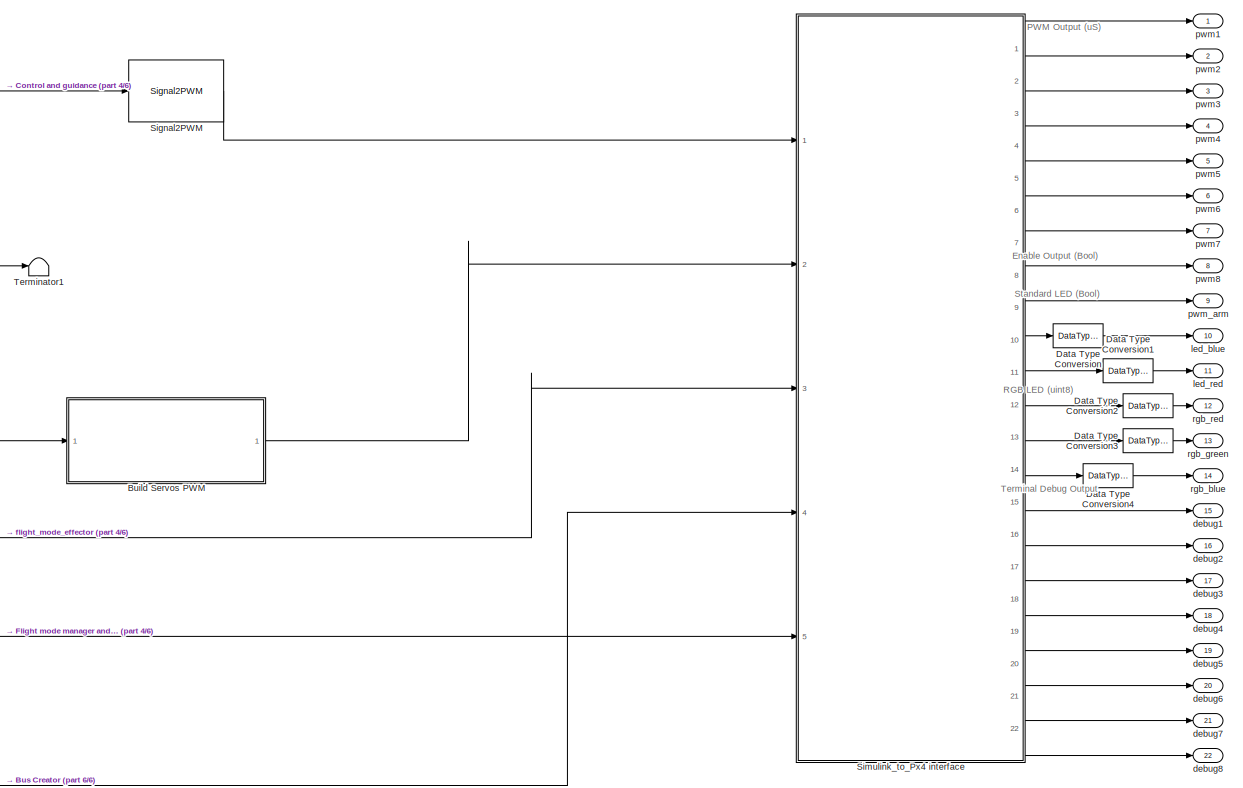
[diagram: TriCopter FCS/TriCopter FCS - part 5/6, middle right region]
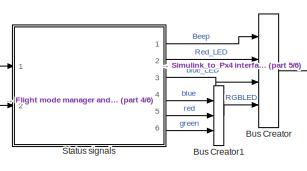
[diagram: TriCopter FCS/TriCopter FCS - part 6/6, bottom right region]
BLOCK [SubSystem] TriCopter FCS/TriCopter FCS
  Ports = [60, 22]
  RequestExecContextInheritance = off
  TreatAsAtomicUnit = on
BLOCK [Inport] TriCopter FCS/TriCopter FCS/Alt_comm
  IconDisplay = Port number
  Port = 53
  PortDimensions = [1,1]
  SampleTime = T_ctrl
  VarSizeSig = No
BLOCK [SubSystem] TriCopter FCS/TriCopter FCS/Build Servos PWM
  Ports = [1, 1]
  RequestExecContextInheritance = off
  TreatAsAtomicUnit = on
BLOCK [Demux] TriCopter FCS/TriCopter FCS/Build Servos PWM/Demux
  DisplayOption = bar
  Outputs = 6
  Ports = [1, 6]
BLOCK [Mux] TriCopter FCS/TriCopter FCS/Build Servos PWM/Mux
  DisplayOption = bar
  Inputs = 6
  Ports = [6, 1]
BLOCK [Outport] TriCopter FCS/TriCopter FCS/Build Servos PWM/PWM_us servos out
  IconDisplay = Port number
BLOCK [Reference] TriCopter FCS/TriCopter FCS/Build Servos PWM/Signal2PWM1  REF=XXCopter_Control/Signal2PWM
  Ports = [1, 1]
  SourceBlock = XXCopter_Control/Signal2PWM
  a = 2100
  b = deg2rad(165)
  c = 900
  d = -deg2rad(165)
BLOCK [Reference] TriCopter FCS/TriCopter FCS/Build Servos PWM/Signal2PWM2  REF=XXCopter_Control/Signal2PWM
  Ports = [1, 1]
  SourceBlock = XXCopter_Control/Signal2PWM
  a = 2100
  b = deg2rad(90)
  c = 900
  d = -deg2rad(90)
BLOCK [Reference] TriCopter FCS/TriCopter FCS/Build Servos PWM/Signal2PWM3  REF=XXCopter_Control/Signal2PWM
  Ports = [1, 1]
  SourceBlock = XXCopter_Control/Signal2PWM
  a = 2100
  b = deg2rad(90)
  c = 900
  d = -deg2rad(90)
BLOCK [Reference] TriCopter FCS/TriCopter FCS/Build Servos PWM/Signal2PWM4  REF=XXCopter_Control/Signal2PWM
  Ports = [1, 1]
  SourceBlock = XXCopter_Control/Signal2PWM
  a = 2100
  b = deg2rad(90)
  c = 900
  d = -deg2rad(90)
BLOCK [Reference] TriCopter FCS/TriCopter FCS/Build Servos PWM/Signal2PWM5  REF=XXCopter_Control/Signal2PWM
  Ports = [1, 1]
  SourceBlock = XXCopter_Control/Signal2PWM
  a = 2100
  b = deg2rad(165)
  c = 900
  d = -deg2rad(165)
BLOCK [Reference] TriCopter FCS/TriCopter FCS/Build Servos PWM/Signal2PWM6  REF=XXCopter_Control/Signal2PWM
  Ports = [1, 1]
  SourceBlock = XXCopter_Control/Signal2PWM
  a = 2100
  b = deg2rad(165)
  c = 900
  d = -deg2rad(165)
BLOCK [UnaryMinus] TriCopter FCS/TriCopter FCS/Build Servos PWM/Unary Minus
BLOCK [UnaryMinus] TriCopter FCS/TriCopter FCS/Build Servos PWM/Unary Minus1
BLOCK [UnaryMinus] TriCopter FCS/TriCopter FCS/Build Servos PWM/Unary Minus2
BLOCK [UnaryMinus] TriCopter FCS/TriCopter FCS/Build Servos PWM/Unary Minus3
BLOCK [Inport] TriCopter FCS/TriCopter FCS/Build Servos PWM/signals servos in
  IconDisplay = Port number
BLOCK [BusCreator] TriCopter FCS/TriCopter FCS/Bus Creator
  DisplayOption = bar
  Ports = [4, 1]
BLOCK [BusCreator] TriCopter FCS/TriCopter FCS/Bus Creator1
  DisplayOption = bar
  Inputs = 3
  Ports = [3, 1]
BLOCK [SubSystem] TriCopter FCS/TriCopter FCS/Control and guidance
  Ports = [8, 3, 1]
  RequestExecContextInheritance = off
BLOCK [Inport] TriCopter FCS/TriCopter FCS/Control and guidance/All_meas
  IconDisplay = Port number
  Port = 5
BLOCK [Inport] TriCopter FCS/TriCopter FCS/Control and guidance/Att_ref(rad)
  IconDisplay = Port number
  Port = 3
BLOCK [BusSelector] TriCopter FCS/TriCopter FCS/Control and guidance/Bus Selector
  OutputSignals = Meas.Volt
  Ports = [1, 1]
BLOCK [Inport] TriCopter FCS/TriCopter FCS/Control and guidance/CA_reconf
  IconDisplay = Port number
  Port = 8
BLOCK [SubSystem] TriCopter FCS/TriCopter FCS/Control and guidance/Control allocator
  MinAlgLoopOccurrences = on
  Ports = [5, 2]
  RTWFcnName = abc
  RTWFcnNameOpts = User specified
  RTWFileName = asas
  RTWFileNameOpts = User specified
  RequestExecContextInheritance = off
  VariantControl = Control Allocator: NO RECONFIG
BLOCK [Sum] TriCopter FCS/TriCopter FCS/Control and guidance/Control allocator/Add previous delfections
  IconShape = round
  InputSameDT = off
  Inputs = |++
  OutDataTypeStr = Inherit: Inherit via internal rule
  Ports = [2, 1]
  SaturateOnIntegerOverflow = off
BLOCK [Sum] TriCopter FCS/TriCopter FCS/Control and guidance/Control allocator/Add2
  InputSameDT = off
  OutDataTypeStr = Inherit: Inherit via internal rule
  Ports = [2, 1]
  SaturateOnIntegerOverflow = off
BLOCK [Sum] TriCopter FCS/TriCopter FCS/Control and guidance/Control allocator/Add3
  InputSameDT = off
  Inputs = +-
  OutDataTypeStr = Inherit: Inherit via internal rule
  Ports = [2, 1]
  SaturateOnIntegerOverflow = off
BLOCK [Inport] TriCopter FCS/TriCopter FCS/Control and guidance/Control allocator/B matrix Online
  IconDisplay = Port number
  Port = 3
BLOCK [Constant] TriCopter FCS/TriCopter FCS/Control and guidance/Control allocator/B_hover_4dof
  Value = B_hover_4dof
BLOCK [Inport] TriCopter FCS/TriCopter FCS/Control and guidance/Control allocator/CA_reconf
  IconDisplay = Port number
  Port = 5
BLOCK [InportShadow] TriCopter FCS/TriCopter FCS/Control and guidance/Control allocator/CA_reconf1
  IconDisplay = Port number
  Port = 5
BLOCK [InportShadow] TriCopter FCS/TriCopter FCS/Control and guidance/Control allocator/CA_reconf2
  IconDisplay = Port number
  Port = 5
BLOCK [Reference] TriCopter FCS/TriCopter FCS/Control and guidance/Control allocator/Control allocator 4 coder  REF=XXCopter_Control/Control allocator 4 coder
  Ports = [9, 1]
  SourceBlock = XXCopter_Control/Control allocator 4 coder
  SourceType = Control allocator WLS
  T = T_ctrl
  gamma = 1
  imax = 50
BLOCK [Inport] TriCopter FCS/TriCopter FCS/Control and guidance/Control allocator/Control defl prev
  IconDisplay = Port number
  Port = 4
BLOCK [Constant] TriCopter FCS/TriCopter FCS/Control and guidance/Control allocator/Control positions deviation Weight W1
  Value = diag(1./[1,1,1,1,1,1,1,1,1] )
BLOCK [Outport] TriCopter FCS/TriCopter FCS/Control and guidance/Control allocator/Control_Commands
  IconDisplay = Port number
BLOCK [Outport] TriCopter FCS/TriCopter FCS/Control and guidance/Control allocator/Control_def for eval
  IconDisplay = Port number
  Port = 2
BLOCK [Inport] TriCopter FCS/TriCopter FCS/Control and guidance/Control allocator/Curr_V
  IconDisplay = Port number
BLOCK [Constant] TriCopter FCS/TriCopter FCS/Control and guidance/Control allocator/Enalbe//Disable
BLOCK [Constant] TriCopter FCS/TriCopter FCS/Control and guidance/Control allocator/Error Weight Wv
  Value = blkdiag(eye(6))
BLOCK [Constant] TriCopter FCS/TriCopter FCS/Control and guidance/Control allocator/Error Weight Wv1
  Value = blkdiag(zeros(2),eye(4))
BLOCK [Inport] TriCopter FCS/TriCopter FCS/Control and guidance/Control allocator/Forc_Mom_des
  IconDisplay = Port number
  Port = 2
BLOCK [From] TriCopter FCS/TriCopter FCS/Control and guidance/Control allocator/From
  GotoTag = Inf_limit
BLOCK [From] TriCopter FCS/TriCopter FCS/Control and guidance/Control allocator/From1
  GotoTag = Sup_limit
BLOCK [Gain] TriCopter FCS/TriCopter FCS/Control and guidance/Control allocator/Gain
  Gain = ones(3,1)
  OutDataTypeStr = Inherit: Inherit via internal rule
  ParamDataTypeStr = Inherit: Inherit via internal rule
  SaturateOnIntegerOverflow = off
BLOCK [Gain] TriCopter FCS/TriCopter FCS/Control and guidance/Control allocator/Gain1
  Gain = ones(9,1)
  OutDataTypeStr = Inherit: Inherit via internal rule
  ParamDataTypeStr = Inherit: Inherit via internal rule
  SaturateOnIntegerOverflow = off
BLOCK [Goto] TriCopter FCS/TriCopter FCS/Control and guidance/Control allocator/Goto
  GotoTag = Sup_limit
BLOCK [Goto] TriCopter FCS/TriCopter FCS/Control and guidance/Control allocator/Goto1
  GotoTag = Inf_limit
BLOCK [Ground] TriCopter FCS/TriCopter FCS/Control and guidance/Control allocator/Ground1
BLOCK [SubSystem] TriCopter FCS/TriCopter FCS/Control and guidance/Control allocator/Hover deflections1
  Ports = [0, 1]
  RequestExecContextInheritance = off
  TreatAsAtomicUnit = on
BLOCK [Constant] TriCopter FCS/TriCopter FCS/Control and guidance/Control allocator/Hover deflections1/Contro Inputs1
  Value = Hover_throtle_1
BLOCK [Constant] TriCopter FCS/TriCopter FCS/Control and guidance/Control allocator/Hover deflections1/Contro Inputs2
  Value = Hover_throtle_23
BLOCK [Constant] TriCopter FCS/TriCopter FCS/Control and guidance/Control allocator/Hover deflections1/Contro Inputs3
  Value = Hover_eta_23
BLOCK [Gain] TriCopter FCS/TriCopter FCS/Control and guidance/Control allocator/Hover deflections1/Gain
  Gain = -1
  OutDataTypeStr = Inherit: Inherit via internal rule
  ParamDataTypeStr = Inherit: Inherit via internal rule
  SaturateOnIntegerOverflow = off
BLOCK [Ground] TriCopter FCS/TriCopter FCS/Control and guidance/Control allocator/Hover deflections1/Ground
BLOCK [Mux] TriCopter FCS/TriCopter FCS/Control and guidance/Control allocator/Hover deflections1/Mux
  DisplayOption = bar
  Inputs = 9
  Ports = [9, 1]
BLOCK [Outport] TriCopter FCS/TriCopter FCS/Control and guidance/Control allocator/Hover deflections1/Trim deflectins
  IconDisplay = Port number
BLOCK [SubSystem] TriCopter FCS/TriCopter FCS/Control and guidance/Control allocator/Hover deflections2
  Ports = [0, 1]
  RequestExecContextInheritance = off
  TreatAsAtomicUnit = on
BLOCK [Constant] TriCopter FCS/TriCopter FCS/Control and guidance/Control allocator/Hover deflections2/Contro Inputs1
  Value = Hover_throtle_1
BLOCK [Constant] TriCopter FCS/TriCopter FCS/Control and guidance/Control allocator/Hover deflections2/Contro Inputs2
  Value = Hover_throtle_23
BLOCK [Constant] TriCopter FCS/TriCopter FCS/Control and guidance/Control allocator/Hover deflections2/Contro Inputs3
  Value = Hover_eta_23
BLOCK [Gain] TriCopter FCS/TriCopter FCS/Control and guidance/Control allocator/Hover deflections2/Gain
  Gain = -1
  OutDataTypeStr = Inherit: Inherit via internal rule
  ParamDataTypeStr = Inherit: Inherit via internal rule
  SaturateOnIntegerOverflow = off
BLOCK [Ground] TriCopter FCS/TriCopter FCS/Control and guidance/Control allocator/Hover deflections2/Ground
BLOCK [Mux] TriCopter FCS/TriCopter FCS/Control and guidance/Control allocator/Hover deflections2/Mux
  DisplayOption = bar
  Inputs = 9
  Ports = [9, 1]
BLOCK [Outport] TriCopter FCS/TriCopter FCS/Control and guidance/Control allocator/Hover deflections2/Trim deflectins
  IconDisplay = Port number
BLOCK [Sum] TriCopter FCS/TriCopter FCS/Control and guidance/Control allocator/Inf lim
  InputSameDT = off
  Inputs = -+
  OutDataTypeStr = Inherit: Inherit via internal rule
  Ports = [2, 1]
  SaturateOnIntegerOverflow = off
BLOCK [Sum] TriCopter FCS/TriCopter FCS/Control and guidance/Control allocator/Inf lim2
  InputSameDT = off
  Inputs = -+
  OutDataTypeStr = Inherit: Inherit via internal rule
  Ports = [2, 1]
  SaturateOnIntegerOverflow = off
BLOCK [Concatenate] TriCopter FCS/TriCopter FCS/Control and guidance/Control allocator/Matrix Concatenate
  ConcatenateDimension = 2
  Mode = Multidimensional array
  Ports = [2, 1]
BLOCK [Product] TriCopter FCS/TriCopter FCS/Control and guidance/Control allocator/Min thrtle
  InputSameDT = off
  Inputs = */
  OutDataTypeStr = Inherit: Inherit via internal rule
  Ports = [2, 1]
  RndMeth = Floor
  SaturateOnIntegerOverflow = off
BLOCK [MinMax] TriCopter FCS/TriCopter FCS/Control and guidance/Control allocator/MinMax
  Function = max
  InputSameDT = off
  Inputs = 2
  Ports = [2, 1]
  SaturateOnIntegerOverflow = off
BLOCK [MinMax] TriCopter FCS/TriCopter FCS/Control and guidance/Control allocator/MinMax1
  InputSameDT = off
  Inputs = 2
  Ports = [2, 1]
  SaturateOnIntegerOverflow = off
BLOCK [MinMax] TriCopter FCS/TriCopter FCS/Control and guidance/Control allocator/MinMax2
  Function = max
  InputSameDT = off
  Inputs = 2
  Ports = [2, 1]
  SaturateOnIntegerOverflow = off
BLOCK [MultiPortSwitch] TriCopter FCS/TriCopter FCS/Control and guidance/Control allocator/Multiport Switch
  InputSameDT = off
  Inputs = 2
  Ports = [3, 1]
  SaturateOnIntegerOverflow = off
BLOCK [MultiPortSwitch] TriCopter FCS/TriCopter FCS/Control and guidance/Control allocator/Multiport Switch1
  InputSameDT = off
  Inputs = 2
  Ports = [3, 1]
  SaturateOnIntegerOverflow = off
BLOCK [MultiPortSwitch] TriCopter FCS/TriCopter FCS/Control and guidance/Control allocator/Multiport Switch2
  InputSameDT = off
  Inputs = 2
  Ports = [3, 1]
  SaturateOnIntegerOverflow = off
BLOCK [MultiPortSwitch] TriCopter FCS/TriCopter FCS/Control and guidance/Control allocator/Multiport Switch3
  InputSameDT = off
  Inputs = 2
  Ports = [3, 1]
  SaturateOnIntegerOverflow = off
BLOCK [Mux] TriCopter FCS/TriCopter FCS/Control and guidance/Control allocator/Mux
  DisplayOption = bar
  Inputs = [1,2,1,2,1,2]
  Ports = [6, 1]
BLOCK [Constant] TriCopter FCS/TriCopter FCS/Control and guidance/Control allocator/Position limits sup
  Value = [1,deg2rad(165),deg2rad(15),1,deg2rad(165),deg2rad(90),1,deg2rad(165),deg2rad(15)]'
BLOCK [Constant] TriCopter FCS/TriCopter FCS/Control and guidance/Control allocator/Position limitsv inf
  Value = [0,-deg2rad(165),-deg2rad(90),0,-deg2rad(165),-deg2rad(15),0,-deg2rad(165),-deg2rad(90)]'
BLOCK [Constant] TriCopter FCS/TriCopter FCS/Control and guidance/Control allocator/Rates limits
  Value = [ [-17,-1,-1,-17,-1,-1,-17,-1,-1]', [17,1,1,17,1,1,17,1,1]']*1
BLOCK [Selector] TriCopter FCS/TriCopter FCS/Control and guidance/Control allocator/Selector
  Indices = [1,4,7]
  InputPortWidth = 9
  Ports = [1, 1]
BLOCK [Selector] TriCopter FCS/TriCopter FCS/Control and guidance/Control allocator/Selector1
  Indices = [2,3]
  InputPortWidth = 9
  Ports = [1, 1]
BLOCK [Selector] TriCopter FCS/TriCopter FCS/Control and guidance/Control allocator/Selector2
  InputPortWidth = 3
  Ports = [1, 1]
BLOCK [Selector] TriCopter FCS/TriCopter FCS/Control and guidance/Control allocator/Selector3
  InputPortWidth = 3
  Ports = [1, 1]
BLOCK [Selector] TriCopter FCS/TriCopter FCS/Control and guidance/Control allocator/Selector4
  InputPortWidth = 3
  Ports = [1, 1]
BLOCK [Selector] TriCopter FCS/TriCopter FCS/Control and guidance/Control allocator/Selector5
  Indices = [2,3]
  InputPortWidth = 9
  Ports = [1, 1]
BLOCK [Selector] TriCopter FCS/TriCopter FCS/Control and guidance/Control allocator/Selector6
  Indices = [2,3]
  InputPortWidth = 9
  Ports = [1, 1]
BLOCK [SignalSpecification] TriCopter FCS/TriCopter FCS/Control and guidance/Control allocator/Signal Specification
  Dimensions = [9,1]
BLOCK [SignalSpecification] TriCopter FCS/TriCopter FCS/Control and guidance/Control allocator/Signal Specification1
  Dimensions = [9,1]
BLOCK [Sum] TriCopter FCS/TriCopter FCS/Control and guidance/Control allocator/Sup lim
  InputSameDT = off
  Inputs = -+
  OutDataTypeStr = Inherit: Inherit via internal rule
  Ports = [2, 1]
  SaturateOnIntegerOverflow = off
BLOCK [Constant] TriCopter FCS/TriCopter FCS/Control and guidance/Control allocator/manual Initial saturations
  Value = zeros(9,1)
BLOCK [Constant] TriCopter FCS/TriCopter FCS/Control and guidance/Control allocator/min Eq throtle
  Value = 4
BLOCK [Constant] TriCopter FCS/TriCopter FCS/Control and guidance/Control allocator/used epsilon (deg)
  Value = epsilon
BLOCK [Outport] TriCopter FCS/TriCopter FCS/Control and guidance/Control_signals
  IconDisplay = Port number
  Port = 2
BLOCK [Demux] TriCopter FCS/TriCopter FCS/Control and guidance/Demux
  DisplayOption = bar
  Outputs = 3
  Ports = [1, 3]
BLOCK [EnablePort] TriCopter FCS/TriCopter FCS/Control and guidance/Enable
  Ports = []
  StatesWhenEnabling = reset
BLOCK [Product] TriCopter FCS/TriCopter FCS/Control and guidance/Equivalent ESC signals
  InputSameDT = off
  Inputs = /*
  OutDataTypeStr = Inherit: Inherit via internal rule
  Ports = [2, 1]
  RndMeth = Floor
  SaturateOnIntegerOverflow = off
BLOCK [Product] TriCopter FCS/TriCopter FCS/Control and guidance/Equivalent Throttle
  InputSameDT = off
  Inputs = **
  OutDataTypeStr = Inherit: Inherit via internal rule
  Ports = [2, 1]
  RndMeth = Floor
  SaturateOnIntegerOverflow = off
BLOCK [Inport] TriCopter FCS/TriCopter FCS/Control and guidance/Init_cond
  IconDisplay = Port number
  Port = 7
BLOCK [Memory] TriCopter FCS/TriCopter FCS/Control and guidance/Initial control deflections
  InheritSampleTime = on
  X0 = [throtle_1,0,0,throtle_23,eta_23,0,throtle_23,-eta_23,0]'
BLOCK [SubSystem] TriCopter FCS/TriCopter FCS/Control and guidance/Inner PI Controller Quaternions
  Ports = [8, 1]
  RequestExecContextInheritance = off
  VariantControl = PI_quat
BLOCK [Inport] TriCopter FCS/TriCopter FCS/Control and guidance/Inner PI Controller Quaternions/Accels ref (m//s^2)
  IconDisplay = Port number
BLOCK [Outport] TriCopter FCS/TriCopter FCS/Control and guidance/Inner PI Controller Quaternions/Accs_Ang_acc des
  IconDisplay = Port number
BLOCK [Sum] TriCopter FCS/TriCopter FCS/Control and guidance/Inner PI Controller Quaternions/Add
  InputSameDT = off
  OutDataTypeStr = Inherit: Inherit via internal rule
  Ports = [2, 1]
  SaturateOnIntegerOverflow = off
BLOCK [Sum] TriCopter FCS/TriCopter FCS/Control and guidance/Inner PI Controller Quaternions/Add1
  InputSameDT = off
  Inputs = +-
  OutDataTypeStr = Inherit: Inherit via internal rule
  Ports = [2, 1]
  SaturateOnIntegerOverflow = off
BLOCK [Sum] TriCopter FCS/TriCopter FCS/Control and guidance/Inner PI Controller Quaternions/Add2
  InputSameDT = off
  Inputs = +-
  OutDataTypeStr = Inherit: Inherit via internal rule
  Ports = [2, 1]
  SaturateOnIntegerOverflow = off
BLOCK [Inport] TriCopter FCS/TriCopter FCS/Control and guidance/Inner PI Controller Quaternions/All meas
  IconDisplay = Port number
  Port = 6
BLOCK [InportShadow] TriCopter FCS/TriCopter FCS/Control and guidance/Inner PI Controller Quaternions/All meas1
  IconDisplay = Port number
  Port = 6
BLOCK [SubSystem] TriCopter FCS/TriCopter FCS/Control and guidance/Inner PI Controller Quaternions/Attitude Controller
  Ports = [7, 1]
  RequestExecContextInheritance = off
BLOCK [Inport] TriCopter FCS/TriCopter FCS/Control and guidance/Inner PI Controller Quaternions/Attitude Controller/AWU
  IconDisplay = Port number
BLOCK [InportShadow] TriCopter FCS/TriCopter FCS/Control and guidance/Inner PI Controller Quaternions/Attitude Controller/AWU1
  IconDisplay = Port number
BLOCK [InportShadow] TriCopter FCS/TriCopter FCS/Control and guidance/Inner PI Controller Quaternions/Attitude Controller/AWU2
  IconDisplay = Port number
BLOCK [Inport] TriCopter FCS/TriCopter FCS/Control and guidance/Inner PI Controller Quaternions/Attitude Controller/All_meas
  IconDisplay = Port number
  Port = 5
BLOCK [SubSystem] TriCopter FCS/TriCopter FCS/Control and guidance/Inner PI Controller Quaternions/Attitude Controller/Build Pseudo_theta
  ErrorFcn = Stateflow.Translate.translate
  PermitHierarchicalResolution = ExplicitOnly
  Ports = [1, 1]
  RequestExecContextInheritance = off
  SFBlockType = MATLAB Function
  TreatAsAtomicUnit = on
BLOCK [Demux] TriCopter FCS/TriCopter FCS/Control and guidance/Inner PI Controller Quaternions/Attitude Controller/Build Pseudo_theta/ Demux 
  Outputs = 1
  Ports = [1, 1]
BLOCK [S-Function] TriCopter FCS/TriCopter FCS/Control and guidance/Inner PI Controller Quaternions/Attitude Controller/Build Pseudo_theta/ SFunction 
  EnableBusSupport = on
  FunctionName = sf_sfun
  PortCounts = [1 2]
  Ports = [1, 2]
  Tag = Stateflow S-Function Tricopter_Controlled 23
BLOCK [Terminator] TriCopter FCS/TriCopter FCS/Control and guidance/Inner PI Controller Quaternions/Attitude Controller/Build Pseudo_theta/ Terminator 
BLOCK [Outport] TriCopter FCS/TriCopter FCS/Control and guidance/Inner PI Controller Quaternions/Attitude Controller/Build Pseudo_theta/Pseudo_theta
  IconDisplay = Port number
BLOCK [Inport] TriCopter FCS/TriCopter FCS/Control and guidance/Inner PI Controller Quaternions/Attitude Controller/Build Pseudo_theta/q
  IconDisplay = Port number
BLOCK [SubSystem] TriCopter FCS/TriCopter FCS/Control and guidance/Inner PI Controller Quaternions/Attitude Controller/Build Pseudo_theta1
  ErrorFcn = Stateflow.Translate.translate
  PermitHierarchicalResolution = ExplicitOnly
  Ports = [1, 1]
  RequestExecContextInheritance = off
  SFBlockType = MATLAB Function
  TreatAsAtomicUnit = on
BLOCK [Demux] TriCopter FCS/TriCopter FCS/Control and guidance/Inner PI Controller Quaternions/Attitude Controller/Build Pseudo_theta1/ Demux 
  Outputs = 1
  Ports = [1, 1]
BLOCK [S-Function] TriCopter FCS/TriCopter FCS/Control and guidance/Inner PI Controller Quaternions/Attitude Controller/Build Pseudo_theta1/ SFunction 
  EnableBusSupport = on
  FunctionName = sf_sfun
  PortCounts = [1 2]
  Ports = [1, 2]
  Tag = Stateflow S-Function Tricopter_Controlled 6
BLOCK [Terminator] TriCopter FCS/TriCopter FCS/Control and guidance/Inner PI Controller Quaternions/Attitude Controller/Build Pseudo_theta1/ Terminator 
BLOCK [Outport] TriCopter FCS/TriCopter FCS/Control and guidance/Inner PI Controller Quaternions/Attitude Controller/Build Pseudo_theta1/Pseudo_theta
  IconDisplay = Port number
BLOCK [Inport] TriCopter FCS/TriCopter FCS/Control and guidance/Inner PI Controller Quaternions/Attitude Controller/Build Pseudo_theta1/q
  IconDisplay = Port number
BLOCK [BusCreator] TriCopter FCS/TriCopter FCS/Control and guidance/Inner PI Controller Quaternions/Attitude Controller/Bus Creator
  DisplayOption = bar
  Inputs = 3
  Ports = [3, 1]
BLOCK [BusCreator] TriCopter FCS/TriCopter FCS/Control and guidance/Inner PI Controller Quaternions/Attitude Controller/Bus Creator1
  DisplayOption = bar
  Inputs = 3
  Ports = [3, 1]
BLOCK [BusCreator] TriCopter FCS/TriCopter FCS/Control and guidance/Inner PI Controller Quaternions/Attitude Controller/Bus Creator2
  DisplayOption = bar
  Inputs = 3
  Ports = [3, 1]
BLOCK [BusSelector] TriCopter FCS/TriCopter FCS/Control and guidance/Inner PI Controller Quaternions/Attitude Controller/Bus Selector
  OutputSignals = Meas.Eulr_meas_rad,Meas.q_meas
  Ports = [1, 2]
BLOCK [BusSelector] TriCopter FCS/TriCopter FCS/Control and guidance/Inner PI Controller Quaternions/Attitude Controller/Bus Selector1
  OutputSignals = att_act
  Ports = [1, 1]
BLOCK [BusSelector] TriCopter FCS/TriCopter FCS/Control and guidance/Inner PI Controller Quaternions/Attitude Controller/Bus Selector2
  OutputSignals = att_init
  Ports = [1, 1]
BLOCK [BusSelector] TriCopter FCS/TriCopter FCS/Control and guidance/Inner PI Controller Quaternions/Attitude Controller/Bus Selector3
  OutputSignals = att_init
  Ports = [1, 1]
BLOCK [BusSelector] TriCopter FCS/TriCopter FCS/Control and guidance/Inner PI Controller Quaternions/Attitude Controller/Bus Selector4
  OutputSignals = att_init
  Ports = [1, 1]
BLOCK [Mux] TriCopter FCS/TriCopter FCS/Control and guidance/Inner PI Controller Quaternions/Attitude Controller/Mux
  DisplayOption = bar
  Inputs = 3
  Ports = [3, 1]
BLOCK [Inport] TriCopter FCS/TriCopter FCS/Control and guidance/Inner PI Controller Quaternions/Attitude Controller/Phi_ref (rad)
  IconDisplay = Port number
  Port = 2
BLOCK [Reference] TriCopter FCS/TriCopter FCS/Control and guidance/Inner PI Controller Quaternions/Attitude Controller/Ref Model and PI Controller  REF=XXCopter_Control/Ref Model and PI Controller
  Con_way = pro
  FallingSlewLimit = -deg2rad(8)
  K_a = 1
  K_b = 2
  K_f = 0
  Ports = [4, 4, 1]
  RisingSlewLimit = deg2rad(8)
  SourceBlock = XXCopter_Control/Ref Model and PI Controller
  SourceType = Reference Model and Controller
  Z1 = -30
  delta = 0
  f_c = 1
  f_i = 0.15
  omega_n = 4
  tau = 2
  xi = 0.5
BLOCK [Reference] TriCopter FCS/TriCopter FCS/Control and guidance/Inner PI Controller Quaternions/Attitude Controller/Ref Model and PI Controller1  REF=XXCopter_Control/Ref Model and PI Controller
  Con_way = pro
  FallingSlewLimit = -deg2rad(8)
  K_a = 1
  K_b = 1.2
  K_f = 0
  Ports = [4, 4, 1]
  RisingSlewLimit = deg2rad(8)
  SourceBlock = XXCopter_Control/Ref Model and PI Controller
  SourceType = Reference Model and Controller
  Z1 = -30
  delta = 0
  f_c = 1
  f_i = 0.1
  omega_n = 4
  tau = 1.5
  xi = 0.5
BLOCK [Reference] TriCopter FCS/TriCopter FCS/Control and guidance/Inner PI Controller Quaternions/Attitude Controller/Ref Model and PI Controller2  REF=XXCopter_Control/Ref Model and PI Controller
  Con_way = pro
  FallingSlewLimit = -deg2rad(8)
  K_a = 1
  K_b = 1.5
  K_f = 0
  Ports = [4, 4, 1]
  RisingSlewLimit = deg2rad(8)
  SourceBlock = XXCopter_Control/Ref Model and PI Controller
  SourceType = Reference Model and Controller
  Z1 = -30
  delta = 0
  f_c = 1
  f_i = 0.1
  omega_n = 4
  tau = 1.5
  xi = 0.5
BLOCK [SubSystem] TriCopter FCS/TriCopter FCS/Control and guidance/Inner PI Controller Quaternions/Attitude Controller/Retrieve quaternion
  ErrorFcn = Stateflow.Translate.translate
  PermitHierarchicalResolution = ExplicitOnly
  Ports = [2, 1]
  RequestExecContextInheritance = off
  SFBlockType = MATLAB Function
  TreatAsAtomicUnit = on
BLOCK [Demux] TriCopter FCS/TriCopter FCS/Control and guidance/Inner PI Controller Quaternions/Attitude Controller/Retrieve quaternion/ Demux 
  Outputs = 1
  Ports = [1, 1]
BLOCK [S-Function] TriCopter FCS/TriCopter FCS/Control and guidance/Inner PI Controller Quaternions/Attitude Controller/Retrieve quaternion/ SFunction 
  EnableBusSupport = on
  FunctionName = sf_sfun
  PortCounts = [2 2]
  Ports = [2, 2]
  Tag = Stateflow S-Function Tricopter_Controlled 25
BLOCK [Terminator] TriCopter FCS/TriCopter FCS/Control and guidance/Inner PI Controller Quaternions/Attitude Controller/Retrieve quaternion/ Terminator 
BLOCK [Inport] TriCopter FCS/TriCopter FCS/Control and guidance/Inner PI Controller Quaternions/Attitude Controller/Retrieve quaternion/Pseudoeuler_dot
  IconDisplay = Port number
BLOCK [Inport] TriCopter FCS/TriCopter FCS/Control and guidance/Inner PI Controller Quaternions/Attitude Controller/Retrieve quaternion/q
  IconDisplay = Port number
  Port = 2
BLOCK [Outport] TriCopter FCS/TriCopter FCS/Control and guidance/Inner PI Controller Quaternions/Attitude Controller/Retrieve quaternion/qdot
  IconDisplay = Port number
BLOCK [Selector] TriCopter FCS/TriCopter FCS/Control and guidance/Inner PI Controller Quaternions/Attitude Controller/Selector
  InputPortWidth = 3
  Ports = [1, 1]
BLOCK [Selector] TriCopter FCS/TriCopter FCS/Control and guidance/Inner PI Controller Quaternions/Attitude Controller/Selector1
  InputPortWidth = 3
  Ports = [1, 1]
BLOCK [Selector] TriCopter FCS/TriCopter FCS/Control and guidance/Inner PI Controller Quaternions/Attitude Controller/Selector2
  Indices = 3
  InputPortWidth = 3
  Ports = [1, 1]
BLOCK [Selector] TriCopter FCS/TriCopter FCS/Control and guidance/Inner PI Controller Quaternions/Attitude Controller/Selector3
  Indices = 2
  InputPortWidth = 3
  Ports = [1, 1]
BLOCK [Selector] TriCopter FCS/TriCopter FCS/Control and guidance/Inner PI Controller Quaternions/Attitude Controller/Selector4
  Indices = 3
  InputPortWidth = 3
  Ports = [1, 1]
BLOCK [Selector] TriCopter FCS/TriCopter FCS/Control and guidance/Inner PI Controller Quaternions/Attitude Controller/Selector5
  InputPortWidth = 3
  Ports = [1, 1]
BLOCK [Selector] TriCopter FCS/TriCopter FCS/Control and guidance/Inner PI Controller Quaternions/Attitude Controller/Selector6
  Indices = 2
  InputPortWidth = 3
  Ports = [1, 1]
BLOCK [Selector] TriCopter FCS/TriCopter FCS/Control and guidance/Inner PI Controller Quaternions/Attitude Controller/Selector7
  Indices = 3
  InputPortWidth = 3
  Ports = [1, 1]
BLOCK [Sum] TriCopter FCS/TriCopter FCS/Control and guidance/Inner PI Controller Quaternions/Attitude Controller/Sum
  IconShape = round
  InputSameDT = off
  Inputs = +-|
  OutDataTypeStr = Inherit: Inherit via internal rule
  Ports = [2, 1]
  SaturateOnIntegerOverflow = off
BLOCK [Sum] TriCopter FCS/TriCopter FCS/Control and guidance/Inner PI Controller Quaternions/Attitude Controller/Sum1
  IconShape = round
  InputSameDT = off
  Inputs = +-|
  OutDataTypeStr = Inherit: Inherit via internal rule
  Ports = [2, 1]
  SaturateOnIntegerOverflow = off
BLOCK [Sum] TriCopter FCS/TriCopter FCS/Control and guidance/Inner PI Controller Quaternions/Attitude Controller/Sum2
  IconShape = round
  InputSameDT = off
  Inputs = +-|
  OutDataTypeStr = Inherit: Inherit via internal rule
  Ports = [2, 1]
  SaturateOnIntegerOverflow = off
BLOCK [Terminator] TriCopter FCS/TriCopter FCS/Control and guidance/Inner PI Controller Quaternions/Attitude Controller/Terminator1
BLOCK [Terminator] TriCopter FCS/TriCopter FCS/Control and guidance/Inner PI Controller Quaternions/Attitude Controller/Terminator2
BLOCK [Terminator] TriCopter FCS/TriCopter FCS/Control and guidance/Inner PI Controller Quaternions/Attitude Controller/Terminator3
BLOCK [Trigonometry] TriCopter FCS/TriCopter FCS/Control and guidance/Inner PI Controller Quaternions/Attitude Controller/Trigonometric Function
  Ports = [1, 1]
BLOCK [Inport] TriCopter FCS/TriCopter FCS/Control and guidance/Inner PI Controller Quaternions/Attitude Controller/Yaw_ref (rad)
  IconDisplay = Port number
  Port = 4
BLOCK [Inport] TriCopter FCS/TriCopter FCS/Control and guidance/Inner PI Controller Quaternions/Attitude Controller/activation_bus
  IconDisplay = Port number
  Port = 6
BLOCK [Inport] TriCopter FCS/TriCopter FCS/Control and guidance/Inner PI Controller Quaternions/Attitude Controller/init_cond
  IconDisplay = Port number
  Port = 7
BLOCK [InportShadow] TriCopter FCS/TriCopter FCS/Control and guidance/Inner PI Controller Quaternions/Attitude Controller/init_cond1
  IconDisplay = Port number
  Port = 7
BLOCK [InportShadow] TriCopter FCS/TriCopter FCS/Control and guidance/Inner PI Controller Quaternions/Attitude Controller/init_cond2
  IconDisplay = Port number
  Port = 7
BLOCK [Inport] TriCopter FCS/TriCopter FCS/Control and guidance/Inner PI Controller Quaternions/Attitude Controller/q_ref
  IconDisplay = Port number
  Port = 3
BLOCK [Outport] TriCopter FCS/TriCopter FCS/Control and guidance/Inner PI Controller Quaternions/Attitude Controller/quat_dot des (rad//s)
  IconDisplay = Port number
BLOCK [SubSystem] TriCopter FCS/TriCopter FCS/Control and guidance/Inner PI Controller Quaternions/Body Rates Controller
  Ports = [6, 1]
  RequestExecContextInheritance = off
BLOCK [Inport] TriCopter FCS/TriCopter FCS/Control and guidance/Inner PI Controller Quaternions/Body Rates Controller/All_meas
  IconDisplay = Port number
  Port = 4
BLOCK [Outport] TriCopter FCS/TriCopter FCS/Control and guidance/Inner PI Controller Quaternions/Body Rates Controller/Angular acc des (rad//s^2)
  IconDisplay = Port number
BLOCK [BusCreator] TriCopter FCS/TriCopter FCS/Control and guidance/Inner PI Controller Quaternions/Body Rates Controller/Bus Creator
  DisplayOption = bar
  Ports = [4, 1]
BLOCK [BusCreator] TriCopter FCS/TriCopter FCS/Control and guidance/Inner PI Controller Quaternions/Body Rates Controller/Bus Creator1
  DisplayOption = bar
  Ports = [4, 1]
BLOCK [BusCreator] TriCopter FCS/TriCopter FCS/Control and guidance/Inner PI Controller Quaternions/Body Rates Controller/Bus Creator2
  DisplayOption = bar
  Ports = [4, 1]
BLOCK [BusSelector] TriCopter FCS/TriCopter FCS/Control and guidance/Inner PI Controller Quaternions/Body Rates Controller/Bus Selector
  OutputSignals = Meas.omega_b_meas_radps
  Ports = [1, 1]
BLOCK [BusSelector] TriCopter FCS/TriCopter FCS/Control and guidance/Inner PI Controller Quaternions/Body Rates Controller/Bus Selector1
  OutputSignals = omega_b_act
  Ports = [1, 1]
BLOCK [BusSelector] TriCopter FCS/TriCopter FCS/Control and guidance/Inner PI Controller Quaternions/Body Rates Controller/Bus Selector2
  OutputSignals = b_rates_init
  Ports = [1, 1]
BLOCK [BusSelector] TriCopter FCS/TriCopter FCS/Control and guidance/Inner PI Controller Quaternions/Body Rates Controller/Bus Selector3
  OutputSignals = b_rates_init
  Ports = [1, 1]
BLOCK [BusSelector] TriCopter FCS/TriCopter FCS/Control and guidance/Inner PI Controller Quaternions/Body Rates Controller/Bus Selector4
  OutputSignals = b_rates_init
  Ports = [1, 1]
BLOCK [Mux] TriCopter FCS/TriCopter FCS/Control and guidance/Inner PI Controller Quaternions/Body Rates Controller/Mux
  DisplayOption = bar
  Inputs = 3
  Ports = [3, 1]
BLOCK [Reference] TriCopter FCS/TriCopter FCS/Control and guidance/Inner PI Controller Quaternions/Body Rates Controller/Ref Model and P Controller p  REF=XXCopter_Control/Ref Model and P Controller
  FallingSlewLimit = -4
  K_b = 6
  K_f = 0.7
  Ports = [3, 5, 1]
  RisingSlewLimit = 4
  SourceBlock = XXCopter_Control/Ref Model and P Controller
  SourceType = Reference Model and Controller
  tau = 0.7
BLOCK [Reference] TriCopter FCS/TriCopter FCS/Control and guidance/Inner PI Controller Quaternions/Body Rates Controller/Ref Model and P Controller q  REF=XXCopter_Control/Ref Model and P Controller
  FallingSlewLimit = -4
  K_b = 6
  K_f = 0.7
  Ports = [3, 5, 1]
  RisingSlewLimit = 4
  SourceBlock = XXCopter_Control/Ref Model and P Controller
  SourceType = Reference Model and Controller
  tau = 0.7
BLOCK [Reference] TriCopter FCS/TriCopter FCS/Control and guidance/Inner PI Controller Quaternions/Body Rates Controller/Ref Model and P Controller r  REF=XXCopter_Control/Ref Model and P Controller
  FallingSlewLimit = -4
  K_b = 1.5
  K_f = 0.7
  Ports = [3, 5, 1]
  RisingSlewLimit = 4
  SourceBlock = XXCopter_Control/Ref Model and P Controller
  SourceType = Reference Model and Controller
  tau = 1.5
BLOCK [Selector] TriCopter FCS/TriCopter FCS/Control and guidance/Inner PI Controller Quaternions/Body Rates Controller/Selector
  InputPortWidth = 3
  Ports = [1, 1]
BLOCK [Selector] TriCopter FCS/TriCopter FCS/Control and guidance/Inner PI Controller Quaternions/Body Rates Controller/Selector1
  Indices = 2
  InputPortWidth = 3
  Ports = [1, 1]
BLOCK [Selector] TriCopter FCS/TriCopter FCS/Control and guidance/Inner PI Controller Quaternions/Body Rates Controller/Selector2
  Indices = 3
  InputPortWidth = 3
  Ports = [1, 1]
BLOCK [Selector] TriCopter FCS/TriCopter FCS/Control and guidance/Inner PI Controller Quaternions/Body Rates Controller/Selector3
  InputPortWidth = 3
  Ports = [1, 1]
BLOCK [Selector] TriCopter FCS/TriCopter FCS/Control and guidance/Inner PI Controller Quaternions/Body Rates Controller/Selector4
  Indices = 2
  InputPortWidth = 3
  Ports = [1, 1]
BLOCK [Selector] TriCopter FCS/TriCopter FCS/Control and guidance/Inner PI Controller Quaternions/Body Rates Controller/Selector5
  Indices = 3
  InputPortWidth = 3
  Ports = [1, 1]
BLOCK [Sum] TriCopter FCS/TriCopter FCS/Control and guidance/Inner PI Controller Quaternions/Body Rates Controller/Sum
  IconShape = round
  InputSameDT = off
  Inputs = +-|
  OutDataTypeStr = Inherit: Inherit via internal rule
  Ports = [2, 1]
  SaturateOnIntegerOverflow = off
BLOCK [Sum] TriCopter FCS/TriCopter FCS/Control and guidance/Inner PI Controller Quaternions/Body Rates Controller/Sum1
  IconShape = round
  InputSameDT = off
  Inputs = +-|
  OutDataTypeStr = Inherit: Inherit via internal rule
  Ports = [2, 1]
  SaturateOnIntegerOverflow = off
BLOCK [Sum] TriCopter FCS/TriCopter FCS/Control and guidance/Inner PI Controller Quaternions/Body Rates Controller/Sum2
  IconShape = round
  InputSameDT = off
  Inputs = +-|
  OutDataTypeStr = Inherit: Inherit via internal rule
  Ports = [2, 1]
  SaturateOnIntegerOverflow = off
BLOCK [Terminator] TriCopter FCS/TriCopter FCS/Control and guidance/Inner PI Controller Quaternions/Body Rates Controller/Terminator1
BLOCK [Terminator] TriCopter FCS/TriCopter FCS/Control and guidance/Inner PI Controller Quaternions/Body Rates Controller/Terminator2
BLOCK [Terminator] TriCopter FCS/TriCopter FCS/Control and guidance/Inner PI Controller Quaternions/Body Rates Controller/Terminator3
BLOCK [Inport] TriCopter FCS/TriCopter FCS/Control and guidance/Inner PI Controller Quaternions/Body Rates Controller/activation_bus
  IconDisplay = Port number
  Port = 6
BLOCK [Inport] TriCopter FCS/TriCopter FCS/Control and guidance/Inner PI Controller Quaternions/Body Rates Controller/init_cond
  IconDisplay = Port number
  Port = 5
BLOCK [InportShadow] TriCopter FCS/TriCopter FCS/Control and guidance/Inner PI Controller Quaternions/Body Rates Controller/init_cond1
  IconDisplay = Port number
  Port = 5
BLOCK [InportShadow] TriCopter FCS/TriCopter FCS/Control and guidance/Inner PI Controller Quaternions/Body Rates Controller/init_cond2
  IconDisplay = Port number
  Port = 5
BLOCK [Inport] TriCopter FCS/TriCopter FCS/Control and guidance/Inner PI Controller Quaternions/Body Rates Controller/p_ref
  IconDisplay = Port number
BLOCK [Inport] TriCopter FCS/TriCopter FCS/Control and guidance/Inner PI Controller Quaternions/Body Rates Controller/q_ref
  IconDisplay = Port number
  Port = 2
BLOCK [Inport] TriCopter FCS/TriCopter FCS/Control and guidance/Inner PI Controller Quaternions/Body Rates Controller/r_ref
  IconDisplay = Port number
  Port = 3
BLOCK [BusSelector] TriCopter FCS/TriCopter FCS/Control and guidance/Inner PI Controller Quaternions/Bus Selector
  OutputSignals = Meas.Eulr_meas_rad
  Ports = [1, 1]
BLOCK [BusSelector] TriCopter FCS/TriCopter FCS/Control and guidance/Inner PI Controller Quaternions/Bus Selector1
  OutputSignals = Meas.q_meas
  Ports = [1, 1]
BLOCK [BusSelector] TriCopter FCS/TriCopter FCS/Control and guidance/Inner PI Controller Quaternions/Bus Selector2
  OutputSignals = att_act,omega_b_act
  Ports = [1, 2]
BLOCK [Demux] TriCopter FCS/TriCopter FCS/Control and guidance/Inner PI Controller Quaternions/Demux
  DisplayOption = bar
  Outputs = 3
  Ports = [1, 3]
BLOCK [SubSystem] TriCopter FCS/TriCopter FCS/Control and guidance/Inner PI Controller Quaternions/Get Quaternion from des euler
  ErrorFcn = Stateflow.Translate.translate
  PermitHierarchicalResolution = ExplicitOnly
  Ports = [3, 1]
  RequestExecContextInheritance = off
  SFBlockType = MATLAB Function
  TreatAsAtomicUnit = on
BLOCK [Demux] TriCopter FCS/TriCopter FCS/Control and guidance/Inner PI Controller Quaternions/Get Quaternion from des euler/ Demux 
  Outputs = 1
  Ports = [1, 1]
BLOCK [S-Function] TriCopter FCS/TriCopter FCS/Control and guidance/Inner PI Controller Quaternions/Get Quaternion from des euler/ SFunction 
  EnableBusSupport = on
  FunctionName = sf_sfun
  PortCounts = [3 2]
  Ports = [3, 2]
  Tag = Stateflow S-Function Tricopter_Controlled 22
BLOCK [Terminator] TriCopter FCS/TriCopter FCS/Control and guidance/Inner PI Controller Quaternions/Get Quaternion from des euler/ Terminator 
BLOCK [Inport] TriCopter FCS/TriCopter FCS/Control and guidance/Inner PI Controller Quaternions/Get Quaternion from des euler/phi
  IconDisplay = Port number
BLOCK [Inport] TriCopter FCS/TriCopter FCS/Control and guidance/Inner PI Controller Quaternions/Get Quaternion from des euler/psi
  IconDisplay = Port number
  Port = 3
BLOCK [Outport] TriCopter FCS/TriCopter FCS/Control and guidance/Inner PI Controller Quaternions/Get Quaternion from des euler/q
  IconDisplay = Port number
BLOCK [Inport] TriCopter FCS/TriCopter FCS/Control and guidance/Inner PI Controller Quaternions/Get Quaternion from des euler/theta
  IconDisplay = Port number
  Port = 2
BLOCK [SubSystem] TriCopter FCS/TriCopter FCS/Control and guidance/Inner PI Controller Quaternions/Limits in Ang accel
  Ports = [2, 1]
  RequestExecContextInheritance = off
  TreatAsAtomicUnit = on
BLOCK [Inport] TriCopter FCS/TriCopter FCS/Control and guidance/Inner PI Controller Quaternions/Limits in Ang accel/Ang Ace des
  IconDisplay = Port number
BLOCK [Inport] TriCopter FCS/TriCopter FCS/Control and guidance/Inner PI Controller Quaternions/Limits in Ang accel/Euler meas
  IconDisplay = Port number
  Port = 2
BLOCK [SubSystem] TriCopter FCS/TriCopter FCS/Control and guidance/Inner PI Controller Quaternions/Limits in Ang accel/Limis eval
  ErrorFcn = Stateflow.Translate.translate
  PermitHierarchicalResolution = ExplicitOnly
  Ports = [2, 2]
  RequestExecContextInheritance = off
  SFBlockType = MATLAB Function
  TreatAsAtomicUnit = on
BLOCK [Demux] TriCopter FCS/TriCopter FCS/Control and guidance/Inner PI Controller Quaternions/Limits in Ang accel/Limis eval/ Demux 
  Outputs = 1
  Ports = [1, 1]
BLOCK [S-Function] TriCopter FCS/TriCopter FCS/Control and guidance/Inner PI Controller Quaternions/Limits in Ang accel/Limis eval/ SFunction 
  EnableBusSupport = on
  FunctionName = sf_sfun
  Parameters = A_l_max_x,Ix,Iy,Iz,g,l,m
  PortCounts = [2 3]
  Ports = [2, 3]
  Tag = Stateflow S-Function Tricopter_Controlled 20
BLOCK [Terminator] TriCopter FCS/TriCopter FCS/Control and guidance/Inner PI Controller Quaternions/Limits in Ang accel/Limis eval/ Terminator 
BLOCK [Inport] TriCopter FCS/TriCopter FCS/Control and guidance/Inner PI Controller Quaternions/Limits in Ang accel/Limis eval/Ang_Accel
  IconDisplay = Port number
BLOCK [Outport] TriCopter FCS/TriCopter FCS/Control and guidance/Inner PI Controller Quaternions/Limits in Ang accel/Limis eval/Limit_down
  IconDisplay = Port number
  Port = 2
BLOCK [Outport] TriCopter FCS/TriCopter FCS/Control and guidance/Inner PI Controller Quaternions/Limits in Ang accel/Limis eval/Limit_up
  IconDisplay = Port number
BLOCK [Inport] TriCopter FCS/TriCopter FCS/Control and guidance/Inner PI Controller Quaternions/Limits in Ang accel/Limis eval/euler_ang
  IconDisplay = Port number
  Port = 2
BLOCK [Reference] TriCopter FCS/TriCopter FCS/Control and guidance/Inner PI Controller Quaternions/Limits in Ang accel/Saturation Dynamic  REF=simulink/Discontinuities/Saturation
Dynamic
  DoSatur = off
  LockScale = off
  OutDataType = fixdt(1, 16)
  OutDataTypeStr = Inherit: Same as second input
  OutMax = []
  OutMin = []
  OutScaling = 2^-10
  OutputDataTypeScalingMode = Same as second input
  Ports = [3, 1]
  RndMeth = Floor
  SourceBlock = simulink/Discontinuities/Saturation\nDynamic
  SourceType = Saturation Dynamic
BLOCK [Outport] TriCopter FCS/TriCopter FCS/Control and guidance/Inner PI Controller Quaternions/Limits in Ang accel/ang Ace des
  IconDisplay = Port number
BLOCK [Logic] TriCopter FCS/TriCopter FCS/Control and guidance/Inner PI Controller Quaternions/Logical Operator2
  AllPortsSameDT = off
  IconShape = distinctive
  Operator = NOT
  OutDataTypeStr = boolean
  Ports = [1, 1]
BLOCK [Logic] TriCopter FCS/TriCopter FCS/Control and guidance/Inner PI Controller Quaternions/Logical Operator3
  AllPortsSameDT = off
  IconShape = distinctive
  OutDataTypeStr = boolean
  Ports = [2, 1]
BLOCK [SubSystem] TriCopter FCS/TriCopter FCS/Control and guidance/Inner PI Controller Quaternions/MATLAB Function
  ErrorFcn = Stateflow.Translate.translate
  PermitHierarchicalResolution = ExplicitOnly
  Ports = [2, 1]
  RequestExecContextInheritance = off
  SFBlockType = MATLAB Function
  TreatAsAtomicUnit = on
BLOCK [Demux] TriCopter FCS/TriCopter FCS/Control and guidance/Inner PI Controller Quaternions/MATLAB Function/ Demux 
  Outputs = 1
  Ports = [1, 1]
BLOCK [S-Function] TriCopter FCS/TriCopter FCS/Control and guidance/Inner PI Controller Quaternions/MATLAB Function/ SFunction 
  EnableBusSupport = on
  FunctionName = sf_sfun
  PortCounts = [2 2]
  Ports = [2, 2]
  Tag = Stateflow S-Function Tricopter_Controlled 9
BLOCK [Terminator] TriCopter FCS/TriCopter FCS/Control and guidance/Inner PI Controller Quaternions/MATLAB Function/ Terminator 
BLOCK [Inport] TriCopter FCS/TriCopter FCS/Control and guidance/Inner PI Controller Quaternions/MATLAB Function/Euler
  IconDisplay = Port number
  Port = 2
BLOCK [Outport] TriCopter FCS/TriCopter FCS/Control and guidance/Inner PI Controller Quaternions/MATLAB Function/Euler_dot
  IconDisplay = Port number
BLOCK [Inport] TriCopter FCS/TriCopter FCS/Control and guidance/Inner PI Controller Quaternions/MATLAB Function/omega_b
  IconDisplay = Port number
BLOCK [Memory] TriCopter FCS/TriCopter FCS/Control and guidance/Inner PI Controller Quaternions/Memory
BLOCK [Mux] TriCopter FCS/TriCopter FCS/Control and guidance/Inner PI Controller Quaternions/Mux
  DisplayOption = bar
  Inputs = 2
  Ports = [2, 1]
BLOCK [Inport] TriCopter FCS/TriCopter FCS/Control and guidance/Inner PI Controller Quaternions/Phi_ref (rad)
  IconDisplay = Port number
  Port = 2
BLOCK [SubSystem] TriCopter FCS/TriCopter FCS/Control and guidance/Inner PI Controller Quaternions/Quaternion_dot
  ErrorFcn = Stateflow.Translate.translate
  PermitHierarchicalResolution = ExplicitOnly
  Ports = [2, 1]
  RequestExecContextInheritance = off
  SFBlockType = MATLAB Function
  TreatAsAtomicUnit = on
  VariantControl = Variant
BLOCK [Demux] TriCopter FCS/TriCopter FCS/Control and guidance/Inner PI Controller Quaternions/Quaternion_dot/ Demux 
  Outputs = 1
  Ports = [1, 1]
BLOCK [S-Function] TriCopter FCS/TriCopter FCS/Control and guidance/Inner PI Controller Quaternions/Quaternion_dot/ SFunction 
  EnableBusSupport = on
  FunctionName = sf_sfun
  PortCounts = [2 2]
  Ports = [2, 2]
  Tag = Stateflow S-Function Tricopter_Controlled 21
BLOCK [Terminator] TriCopter FCS/TriCopter FCS/Control and guidance/Inner PI Controller Quaternions/Quaternion_dot/ Terminator 
BLOCK [Outport] TriCopter FCS/TriCopter FCS/Control and guidance/Inner PI Controller Quaternions/Quaternion_dot/omega_b
  IconDisplay = Port number
BLOCK [Inport] TriCopter FCS/TriCopter FCS/Control and guidance/Inner PI Controller Quaternions/Quaternion_dot/q
  IconDisplay = Port number
  Port = 2
BLOCK [Inport] TriCopter FCS/TriCopter FCS/Control and guidance/Inner PI Controller Quaternions/Quaternion_dot/q_dot
  IconDisplay = Port number
BLOCK [Saturate] TriCopter FCS/TriCopter FCS/Control and guidance/Inner PI Controller Quaternions/Saturation1
  InputPortMap = u0
  LowerLimit = -deg2rad(50)*[1,10,0.5]'
  Ports = [1, 1]
  UpperLimit = deg2rad(50)*[1,10,0.5]'
BLOCK [Switch] TriCopter FCS/TriCopter FCS/Control and guidance/Inner PI Controller Quaternions/Switch1
  Criteria = u2 ~= 0
  InputSameDT = off
  SaturateOnIntegerOverflow = off
BLOCK [Gain] TriCopter FCS/TriCopter FCS/Control and guidance/Inner PI Controller Quaternions/T
  Gain = T_ctrl
  OutDataTypeStr = Inherit: Inherit via internal rule
  ParamDataTypeStr = Inherit: Inherit via internal rule
  SaturateOnIntegerOverflow = off
BLOCK [Inport] TriCopter FCS/TriCopter FCS/Control and guidance/Inner PI Controller Quaternions/Theta_ref (rad)
  IconDisplay = Port number
  Port = 3
BLOCK [Inport] TriCopter FCS/TriCopter FCS/Control and guidance/Inner PI Controller Quaternions/Yaw_ref (rad)
  IconDisplay = Port number
  Port = 4
BLOCK [Inport] TriCopter FCS/TriCopter FCS/Control and guidance/Inner PI Controller Quaternions/activation_bus
  IconDisplay = Port number
  Port = 7
BLOCK [Inport] TriCopter FCS/TriCopter FCS/Control and guidance/Inner PI Controller Quaternions/init_cond
  IconDisplay = Port number
  Port = 8
BLOCK [Inport] TriCopter FCS/TriCopter FCS/Control and guidance/Inner PI Controller Quaternions/omega_b_ref_radps
  IconDisplay = Port number
  Port = 5
BLOCK [Outport] TriCopter FCS/TriCopter FCS/Control and guidance/Mot_throtles
  IconDisplay = Port number
BLOCK [SubSystem] TriCopter FCS/TriCopter FCS/Control and guidance/NDI
  Ports = [3, 3]
  RTWFcnName = abc
  RTWFcnNameOpts = User specified
  RTWFileName = asas
  RTWFileNameOpts = User specified
  RequestExecContextInheritance = off
  VariantControl = NDI: NO RECONFIG
BLOCK [SubSystem] TriCopter FCS/TriCopter FCS/Control and guidance/NDI/3Copter_4_NDI&CA
  Ports = [12, 5]
  RequestExecContextInheritance = off
  TreatAsAtomicUnit = on
BLOCK [Inport] TriCopter FCS/TriCopter FCS/Control and guidance/NDI/3Copter_4_NDI&CA/ m
  IconDisplay = Port number
  Port = 11
BLOCK [Sum] TriCopter FCS/TriCopter FCS/Control and guidance/NDI/3Copter_4_NDI&CA/Add
  InputSameDT = off
  OutDataTypeStr = Inherit: Inherit via internal rule
  Ports = [2, 1]
  SaturateOnIntegerOverflow = off
BLOCK [Sum] TriCopter FCS/TriCopter FCS/Control and guidance/NDI/3Copter_4_NDI&CA/Add1
  InputSameDT = off
  OutDataTypeStr = Inherit: Inherit via internal rule
  Ports = [2, 1]
  SaturateOnIntegerOverflow = off
BLOCK [Sum] TriCopter FCS/TriCopter FCS/Control and guidance/NDI/3Copter_4_NDI&CA/Add2
  IconShape = round
  InputSameDT = off
  Inputs = |++
  OutDataTypeStr = Inherit: Inherit via internal rule
  Ports = [2, 1]
  SaturateOnIntegerOverflow = off
BLOCK [SubSystem] TriCopter FCS/TriCopter FCS/Control and guidance/NDI/3Copter_4_NDI&CA/Arms Dynamics: Forces and Moments
  Ports = [9, 3]
  RequestExecContextInheritance = off
  TreatAsAtomicUnit = on
BLOCK [Reference] TriCopter FCS/TriCopter FCS/Control and guidance/NDI/3Copter_4_NDI&CA/Arms Dynamics: Forces and Moments/Arm Dynamics  to C  REF=XXCopter_Control/Arm Dynamics  to C
  Arm_axis = [l_arm;0;0]
  J_FA = J_FA
  J_T = J_T
  Ports = [9, 4]
  Rot_sign = Rotation_sign(1)
  SourceBlock = XXCopter_Control/Arm Dynamics  to C
  SourceType = Arm dynamics, kinematics, forces and moments
  arm_hub_pos = l*[1;0;0]
  arm_num = 1
  eta_dir = [1;0;0]
  eta_inf_lim = deg2rad(-180)
  eta_sup_lim = deg2rad(180)
  gamma_dir = [0;1;0]
  gamma_inf_lim = deg2rad(-90)
  gamma_sup_lim = deg2rad(15)
  h = h
  omega_n = 30
  switch_val = direct_feedforward
  xi = 1.4
BLOCK [Reference] TriCopter FCS/TriCopter FCS/Control and guidance/NDI/3Copter_4_NDI&CA/Arms Dynamics: Forces and Moments/Arm Dynamics  to C1  REF=XXCopter_Control/Arm Dynamics  to C
  Arm_axis = [0;l_arm;0]
  J_FA = J_FA
  J_T = J_T
  Ports = [9, 4]
  Rot_sign = Rotation_sign(2)
  SourceBlock = XXCopter_Control/Arm Dynamics  to C
  SourceType = Arm dynamics, kinematics, forces and moments
  arm_hub_pos = l*[-1/2;sqrt(3)/2;0]
  arm_num = 2
  eta_dir = [0;1;0]
  eta_inf_lim = deg2rad(-180)
  eta_sup_lim = deg2rad(180)
  gamma_dir = [1;0;0]
  gamma_inf_lim = deg2rad(-15)
  gamma_sup_lim = deg2rad(90)
  h = h
  omega_n = 30
  switch_val = direct_feedforward
  xi = 1.4
BLOCK [Reference] TriCopter FCS/TriCopter FCS/Control and guidance/NDI/3Copter_4_NDI&CA/Arms Dynamics: Forces and Moments/Arm Dynamics  to C2  REF=XXCopter_Control/Arm Dynamics  to C
  Arm_axis = [0;-l_arm;0]
  J_FA = J_FA
  J_T = J_T
  Ports = [9, 4]
  Rot_sign = Rotation_sign(3)
  SourceBlock = XXCopter_Control/Arm Dynamics  to C
  SourceType = Arm dynamics, kinematics, forces and moments
  arm_hub_pos = l*[-1/2;-sqrt(3)/2;0]
  arm_num = 3
  eta_dir = [0;1;0]
  eta_inf_lim = deg2rad(-180)
  eta_sup_lim = deg2rad(180)
  gamma_dir = [1;0;0]
  gamma_inf_lim = deg2rad(-90)
  gamma_sup_lim = deg2rad(15)
  h = h
  omega_n = 30
  switch_val = direct_feedforward
  xi = 1.4
BLOCK [Outport] TriCopter FCS/TriCopter FCS/Control and guidance/NDI/3Copter_4_NDI&CA/Arms Dynamics: Forces and Moments/Arms DCMs
  IconDisplay = Port number
  Port = 3
BLOCK [BusCreator] TriCopter FCS/TriCopter FCS/Control and guidance/NDI/3Copter_4_NDI&CA/Arms Dynamics: Forces and Moments/Bus Creator
  DisplayOption = bar
  Inputs = 3
  Ports = [3, 1]
BLOCK [Inport] TriCopter FCS/TriCopter FCS/Control and guidance/NDI/3Copter_4_NDI&CA/Arms Dynamics: Forces and Moments/Comm Angles (rad)
  IconDisplay = Port number
  Port = 2
BLOCK [InportShadow] TriCopter FCS/TriCopter FCS/Control and guidance/NDI/3Copter_4_NDI&CA/Arms Dynamics: Forces and Moments/Comm Angles (rad)1
  IconDisplay = Port number
  Port = 2
BLOCK [InportShadow] TriCopter FCS/TriCopter FCS/Control and guidance/NDI/3Copter_4_NDI&CA/Arms Dynamics: Forces and Moments/Comm Angles (rad)2
  IconDisplay = Port number
  Port = 2
BLOCK [Outport] TriCopter FCS/TriCopter FCS/Control and guidance/NDI/3Copter_4_NDI&CA/Arms Dynamics: Forces and Moments/Forces
  IconDisplay = Port number
BLOCK [Sum] TriCopter FCS/TriCopter FCS/Control and guidance/NDI/3Copter_4_NDI&CA/Arms Dynamics: Forces and Moments/Forces_add
  InputSameDT = off
  Inputs = +++
  OutDataTypeStr = Inherit: Inherit via internal rule
  Ports = [3, 1]
  SaturateOnIntegerOverflow = off
BLOCK [From] TriCopter FCS/TriCopter FCS/Control and guidance/NDI/3Copter_4_NDI&CA/Arms Dynamics: Forces and Moments/From
  GotoTag = F_arm1
BLOCK [From] TriCopter FCS/TriCopter FCS/Control and guidance/NDI/3Copter_4_NDI&CA/Arms Dynamics: Forces and Moments/From1
  GotoTag = M_arm1
BLOCK [From] TriCopter FCS/TriCopter FCS/Control and guidance/NDI/3Copter_4_NDI&CA/Arms Dynamics: Forces and Moments/From12
  GotoTag = T3_FaFb
BLOCK [From] TriCopter FCS/TriCopter FCS/Control and guidance/NDI/3Copter_4_NDI&CA/Arms Dynamics: Forces and Moments/From4
  GotoTag = F_arm2
BLOCK [From] TriCopter FCS/TriCopter FCS/Control and guidance/NDI/3Copter_4_NDI&CA/Arms Dynamics: Forces and Moments/From5
  GotoTag = F_arm3
BLOCK [From] TriCopter FCS/TriCopter FCS/Control and guidance/NDI/3Copter_4_NDI&CA/Arms Dynamics: Forces and Moments/From6
  GotoTag = T1_FaFb
BLOCK [From] TriCopter FCS/TriCopter FCS/Control and guidance/NDI/3Copter_4_NDI&CA/Arms Dynamics: Forces and Moments/From7
  GotoTag = M_arm2
BLOCK [From] TriCopter FCS/TriCopter FCS/Control and guidance/NDI/3Copter_4_NDI&CA/Arms Dynamics: Forces and Moments/From8
  GotoTag = M_arm3
BLOCK [From] TriCopter FCS/TriCopter FCS/Control and guidance/NDI/3Copter_4_NDI&CA/Arms Dynamics: Forces and Moments/From9
  GotoTag = T2_FaFb
BLOCK [Goto] TriCopter FCS/TriCopter FCS/Control and guidance/NDI/3Copter_4_NDI&CA/Arms Dynamics: Forces and Moments/Goto
  GotoTag = F_arm1
BLOCK [Goto] TriCopter FCS/TriCopter FCS/Control and guidance/NDI/3Copter_4_NDI&CA/Arms Dynamics: Forces and Moments/Goto1
  GotoTag = M_arm1
BLOCK [Goto] TriCopter FCS/TriCopter FCS/Control and guidance/NDI/3Copter_4_NDI&CA/Arms Dynamics: Forces and Moments/Goto10
  GotoTag = F_arm3
BLOCK [Goto] TriCopter FCS/TriCopter FCS/Control and guidance/NDI/3Copter_4_NDI&CA/Arms Dynamics: Forces and Moments/Goto11
  GotoTag = M_arm3
BLOCK [Goto] TriCopter FCS/TriCopter FCS/Control and guidance/NDI/3Copter_4_NDI&CA/Arms Dynamics: Forces and Moments/Goto14
  GotoTag = T3_FaFb
BLOCK [Goto] TriCopter FCS/TriCopter FCS/Control and guidance/NDI/3Copter_4_NDI&CA/Arms Dynamics: Forces and Moments/Goto4
  GotoTag = T1_FaFb
BLOCK [Goto] TriCopter FCS/TriCopter FCS/Control and guidance/NDI/3Copter_4_NDI&CA/Arms Dynamics: Forces and Moments/Goto5
  GotoTag = F_arm2
BLOCK [Goto] TriCopter FCS/TriCopter FCS/Control and guidance/NDI/3Copter_4_NDI&CA/Arms Dynamics: Forces and Moments/Goto6
  GotoTag = M_arm2
BLOCK [Goto] TriCopter FCS/TriCopter FCS/Control and guidance/NDI/3Copter_4_NDI&CA/Arms Dynamics: Forces and Moments/Goto9
  GotoTag = T2_FaFb
BLOCK [Outport] TriCopter FCS/TriCopter FCS/Control and guidance/NDI/3Copter_4_NDI&CA/Arms Dynamics: Forces and Moments/Moments
  IconDisplay = Port number
  Port = 2
BLOCK [Sum] TriCopter FCS/TriCopter FCS/Control and guidance/NDI/3Copter_4_NDI&CA/Arms Dynamics: Forces and Moments/Moments add
  InputSameDT = off
  Inputs = +++
  OutDataTypeStr = Inherit: Inherit via internal rule
  Ports = [3, 1]
  SaturateOnIntegerOverflow = off
BLOCK [Inport] TriCopter FCS/TriCopter FCS/Control and guidance/NDI/3Copter_4_NDI&CA/Arms Dynamics: Forces and Moments/Omegas_dot_actual
  IconDisplay = Port number
  Port = 6
BLOCK [InportShadow] TriCopter FCS/TriCopter FCS/Control and guidance/NDI/3Copter_4_NDI&CA/Arms Dynamics: Forces and Moments/Omegas_dot_actual1
  IconDisplay = Port number
  Port = 6
BLOCK [InportShadow] TriCopter FCS/TriCopter FCS/Control and guidance/NDI/3Copter_4_NDI&CA/Arms Dynamics: Forces and Moments/Omegas_dot_actual2
  IconDisplay = Port number
  Port = 6
BLOCK [Selector] TriCopter FCS/TriCopter FCS/Control and guidance/NDI/3Copter_4_NDI&CA/Arms Dynamics: Forces and Moments/Selector
  IndexMode = Zero-based
  Indices = 0
  InputPortWidth = 3
  Ports = [1, 1]
BLOCK [Selector] TriCopter FCS/TriCopter FCS/Control and guidance/NDI/3Copter_4_NDI&CA/Arms Dynamics: Forces and Moments/Selector1
  IndexMode = Zero-based
  Indices = 0
  InputPortWidth = 3
  Ports = [1, 1]
BLOCK [Selector] TriCopter FCS/TriCopter FCS/Control and guidance/NDI/3Copter_4_NDI&CA/Arms Dynamics: Forces and Moments/Selector10
  IndexMode = Zero-based
  Indices = [2,3]
  InputPortWidth = 6
  Ports = [1, 1]
BLOCK [Selector] TriCopter FCS/TriCopter FCS/Control and guidance/NDI/3Copter_4_NDI&CA/Arms Dynamics: Forces and Moments/Selector11
  IndexMode = Zero-based
  Indices = [2,3]
  InputPortWidth = 6
  Ports = [1, 1]
BLOCK [Selector] TriCopter FCS/TriCopter FCS/Control and guidance/NDI/3Copter_4_NDI&CA/Arms Dynamics: Forces and Moments/Selector12
  IndexMode = Zero-based
  Indices = 2
  InputPortWidth = 3
  Ports = [1, 1]
BLOCK [Selector] TriCopter FCS/TriCopter FCS/Control and guidance/NDI/3Copter_4_NDI&CA/Arms Dynamics: Forces and Moments/Selector13
  IndexMode = Zero-based
  Indices = [4,5]
  InputPortWidth = 6
  Ports = [1, 1]
BLOCK [Selector] TriCopter FCS/TriCopter FCS/Control and guidance/NDI/3Copter_4_NDI&CA/Arms Dynamics: Forces and Moments/Selector14
  IndexMode = Zero-based
  Indices = [4,5]
  InputPortWidth = 6
  Ports = [1, 1]
BLOCK [Selector] TriCopter FCS/TriCopter FCS/Control and guidance/NDI/3Copter_4_NDI&CA/Arms Dynamics: Forces and Moments/Selector15
  IndexMode = Zero-based
  Indices = [0,1]
  InputPortWidth = 6
  Ports = [1, 1]
BLOCK [Selector] TriCopter FCS/TriCopter FCS/Control and guidance/NDI/3Copter_4_NDI&CA/Arms Dynamics: Forces and Moments/Selector16
  IndexMode = Zero-based
  Indices = [2,3]
  InputPortWidth = 6
  Ports = [1, 1]
BLOCK [Selector] TriCopter FCS/TriCopter FCS/Control and guidance/NDI/3Copter_4_NDI&CA/Arms Dynamics: Forces and Moments/Selector17
  IndexMode = Zero-based
  Indices = [4,5]
  InputPortWidth = 6
  Ports = [1, 1]
BLOCK [Selector] TriCopter FCS/TriCopter FCS/Control and guidance/NDI/3Copter_4_NDI&CA/Arms Dynamics: Forces and Moments/Selector2
  IndexMode = Zero-based
  Indices = [0,1]
  InputPortWidth = 6
  Ports = [1, 1]
BLOCK [Selector] TriCopter FCS/TriCopter FCS/Control and guidance/NDI/3Copter_4_NDI&CA/Arms Dynamics: Forces and Moments/Selector3
  IndexMode = Zero-based
  InputPortWidth = 3
  Ports = [1, 1]
BLOCK [Selector] TriCopter FCS/TriCopter FCS/Control and guidance/NDI/3Copter_4_NDI&CA/Arms Dynamics: Forces and Moments/Selector4
  IndexMode = Zero-based
  Indices = [0,1]
  InputPortWidth = 6
  Ports = [1, 1]
BLOCK [Selector] TriCopter FCS/TriCopter FCS/Control and guidance/NDI/3Copter_4_NDI&CA/Arms Dynamics: Forces and Moments/Selector5
  IndexMode = Zero-based
  Indices = [2,3]
  InputPortWidth = 6
  Ports = [1, 1]
BLOCK [Selector] TriCopter FCS/TriCopter FCS/Control and guidance/NDI/3Copter_4_NDI&CA/Arms Dynamics: Forces and Moments/Selector6
  IndexMode = Zero-based
  Indices = 2
  InputPortWidth = 3
  Ports = [1, 1]
BLOCK [Selector] TriCopter FCS/TriCopter FCS/Control and guidance/NDI/3Copter_4_NDI&CA/Arms Dynamics: Forces and Moments/Selector7
  IndexMode = Zero-based
  Indices = [0,1]
  InputPortWidth = 6
  Ports = [1, 1]
BLOCK [Selector] TriCopter FCS/TriCopter FCS/Control and guidance/NDI/3Copter_4_NDI&CA/Arms Dynamics: Forces and Moments/Selector8
  IndexMode = Zero-based
  Indices = [4,5]
  InputPortWidth = 6
  Ports = [1, 1]
BLOCK [Selector] TriCopter FCS/TriCopter FCS/Control and guidance/NDI/3Copter_4_NDI&CA/Arms Dynamics: Forces and Moments/Selector9
  IndexMode = Zero-based
  InputPortWidth = 3
  Ports = [1, 1]
BLOCK [Terminator] TriCopter FCS/TriCopter FCS/Control and guidance/NDI/3Copter_4_NDI&CA/Arms Dynamics: Forces and Moments/Terminator
BLOCK [Terminator] TriCopter FCS/TriCopter FCS/Control and guidance/NDI/3Copter_4_NDI&CA/Arms Dynamics: Forces and Moments/Terminator1
BLOCK [Terminator] TriCopter FCS/TriCopter FCS/Control and guidance/NDI/3Copter_4_NDI&CA/Arms Dynamics: Forces and Moments/Terminator2
BLOCK [Inport] TriCopter FCS/TriCopter FCS/Control and guidance/NDI/3Copter_4_NDI&CA/Arms Dynamics: Forces and Moments/Throttles
  IconDisplay = Port number
BLOCK [InportShadow] TriCopter FCS/TriCopter FCS/Control and guidance/NDI/3Copter_4_NDI&CA/Arms Dynamics: Forces and Moments/Throttles1
  IconDisplay = Port number
BLOCK [InportShadow] TriCopter FCS/TriCopter FCS/Control and guidance/NDI/3Copter_4_NDI&CA/Arms Dynamics: Forces and Moments/Throttles2
  IconDisplay = Port number
BLOCK [Inport] TriCopter FCS/TriCopter FCS/Control and guidance/NDI/3Copter_4_NDI&CA/Arms Dynamics: Forces and Moments/V_b
  IconDisplay = Port number
  Port = 4
BLOCK [InportShadow] TriCopter FCS/TriCopter FCS/Control and guidance/NDI/3Copter_4_NDI&CA/Arms Dynamics: Forces and Moments/V_b1
  IconDisplay = Port number
  Port = 4
BLOCK [InportShadow] TriCopter FCS/TriCopter FCS/Control and guidance/NDI/3Copter_4_NDI&CA/Arms Dynamics: Forces and Moments/V_b2
  IconDisplay = Port number
  Port = 4
BLOCK [Inport] TriCopter FCS/TriCopter FCS/Control and guidance/NDI/3Copter_4_NDI&CA/Arms Dynamics: Forces and Moments/angles_actual
  IconDisplay = Port number
  Port = 7
BLOCK [InportShadow] TriCopter FCS/TriCopter FCS/Control and guidance/NDI/3Copter_4_NDI&CA/Arms Dynamics: Forces and Moments/angles_actual1
  IconDisplay = Port number
  Port = 7
BLOCK [InportShadow] TriCopter FCS/TriCopter FCS/Control and guidance/NDI/3Copter_4_NDI&CA/Arms Dynamics: Forces and Moments/angles_actual2
  IconDisplay = Port number
  Port = 7
BLOCK [Inport] TriCopter FCS/TriCopter FCS/Control and guidance/NDI/3Copter_4_NDI&CA/Arms Dynamics: Forces and Moments/angles_dot_actual
  IconDisplay = Port number
  Port = 8
BLOCK [InportShadow] TriCopter FCS/TriCopter FCS/Control and guidance/NDI/3Copter_4_NDI&CA/Arms Dynamics: Forces and Moments/angles_dot_actual1
  IconDisplay = Port number
  Port = 8
BLOCK [InportShadow] TriCopter FCS/TriCopter FCS/Control and guidance/NDI/3Copter_4_NDI&CA/Arms Dynamics: Forces and Moments/angles_dot_actual2
  IconDisplay = Port number
  Port = 8
BLOCK [Inport] TriCopter FCS/TriCopter FCS/Control and guidance/NDI/3Copter_4_NDI&CA/Arms Dynamics: Forces and Moments/angles_dot_dot_actual
  IconDisplay = Port number
  Port = 9
BLOCK [InportShadow] TriCopter FCS/TriCopter FCS/Control and guidance/NDI/3Copter_4_NDI&CA/Arms Dynamics: Forces and Moments/angles_dot_dot_actual1
  IconDisplay = Port number
  Port = 9
BLOCK [InportShadow] TriCopter FCS/TriCopter FCS/Control and guidance/NDI/3Copter_4_NDI&CA/Arms Dynamics: Forces and Moments/angles_dot_dot_actual2
  IconDisplay = Port number
  Port = 9
BLOCK [Inport] TriCopter FCS/TriCopter FCS/Control and guidance/NDI/3Copter_4_NDI&CA/Arms Dynamics: Forces and Moments/h_ground
  IconDisplay = Port number
  Port = 5
BLOCK [InportShadow] TriCopter FCS/TriCopter FCS/Control and guidance/NDI/3Copter_4_NDI&CA/Arms Dynamics: Forces and Moments/h_ground1
  IconDisplay = Port number
  Port = 5
BLOCK [InportShadow] TriCopter FCS/TriCopter FCS/Control and guidance/NDI/3Copter_4_NDI&CA/Arms Dynamics: Forces and Moments/h_ground2
  IconDisplay = Port number
  Port = 5
BLOCK [Inport] TriCopter FCS/TriCopter FCS/Control and guidance/NDI/3Copter_4_NDI&CA/Arms Dynamics: Forces and Moments/omega_b
  IconDisplay = Port number
  Port = 3
BLOCK [InportShadow] TriCopter FCS/TriCopter FCS/Control and guidance/NDI/3Copter_4_NDI&CA/Arms Dynamics: Forces and Moments/omega_b1
  IconDisplay = Port number
  Port = 3
BLOCK [InportShadow] TriCopter FCS/TriCopter FCS/Control and guidance/NDI/3Copter_4_NDI&CA/Arms Dynamics: Forces and Moments/omega_b2
  IconDisplay = Port number
  Port = 3
BLOCK [Bias] TriCopter FCS/TriCopter FCS/Control and guidance/NDI/3Copter_4_NDI&CA/Bias from bottom to BAC assuming euler=1
  Bias = 0.04
  SaturateOnIntegerOverflow = off
BLOCK [Bias] TriCopter FCS/TriCopter FCS/Control and guidance/NDI/3Copter_4_NDI&CA/Bias from bottom to prop assuming euler=0
  Bias = 0.04+h
  SaturateOnIntegerOverflow = off
BLOCK [Outport] TriCopter FCS/TriCopter FCS/Control and guidance/NDI/3Copter_4_NDI&CA/CA_grad
  IconDisplay = Port number
  Port = 3
BLOCK [Constant] TriCopter FCS/TriCopter FCS/Control and guidance/NDI/3Copter_4_NDI&CA/CG
  Value = CG_0
BLOCK [Outport] TriCopter FCS/TriCopter FCS/Control and guidance/NDI/3Copter_4_NDI&CA/CG 
  IconDisplay = Port number
  Port = 5
BLOCK [Inport] TriCopter FCS/TriCopter FCS/Control and guidance/NDI/3Copter_4_NDI&CA/Control Inputs (rad)
  IconDisplay = Port number
  Port = 2
BLOCK [Inport] TriCopter FCS/TriCopter FCS/Control and guidance/NDI/3Copter_4_NDI&CA/Curr_V
  IconDisplay = Port number
  Port = 12
BLOCK [Product] TriCopter FCS/TriCopter FCS/Control and guidance/NDI/3Copter_4_NDI&CA/Equivalent Throttle
  InputSameDT = off
  Inputs = **
  OutDataTypeStr = Inherit: Inherit via internal rule
  Ports = [2, 1]
  RndMeth = Floor
  SaturateOnIntegerOverflow = off
BLOCK [Outport] TriCopter FCS/TriCopter FCS/Control and guidance/NDI/3Copter_4_NDI&CA/Forces
  IconDisplay = Port number
BLOCK [From] TriCopter FCS/TriCopter FCS/Control and guidance/NDI/3Copter_4_NDI&CA/From12
  GotoTag = M_g
BLOCK [From] TriCopter FCS/TriCopter FCS/Control and guidance/NDI/3Copter_4_NDI&CA/From2
  GotoTag = F_arm
BLOCK [From] TriCopter FCS/TriCopter FCS/Control and guidance/NDI/3Copter_4_NDI&CA/From4
  GotoTag = F_g
BLOCK [From] TriCopter FCS/TriCopter FCS/Control and guidance/NDI/3Copter_4_NDI&CA/From5
  GotoTag = M_arm
BLOCK [From] TriCopter FCS/TriCopter FCS/Control and guidance/NDI/3Copter_4_NDI&CA/From7
  GotoTag = M_g
BLOCK [From] TriCopter FCS/TriCopter FCS/Control and guidance/NDI/3Copter_4_NDI&CA/From9
  GotoTag = F_g
BLOCK [SubSystem] TriCopter FCS/TriCopter FCS/Control and guidance/NDI/3Copter_4_NDI&CA/Get gradient
  ErrorFcn = Stateflow.Translate.translate
  PermitHierarchicalResolution = ExplicitOnly
  Ports = [2, 1]
  RequestExecContextInheritance = off
  SFBlockType = MATLAB Function
  TreatAsAtomicUnit = on
BLOCK [Demux] TriCopter FCS/TriCopter FCS/Control and guidance/NDI/3Copter_4_NDI&CA/Get gradient/ Demux 
  Outputs = 1
  Ports = [1, 1]
BLOCK [S-Function] TriCopter FCS/TriCopter FCS/Control and guidance/NDI/3Copter_4_NDI&CA/Get gradient/ SFunction 
  EnableBusSupport = on
  FunctionName = sf_sfun
  PortCounts = [2 2]
  Ports = [2, 2]
  Tag = Stateflow S-Function Tricopter_Controlled 10
BLOCK [Terminator] TriCopter FCS/TriCopter FCS/Control and guidance/NDI/3Copter_4_NDI&CA/Get gradient/ Terminator 
BLOCK [Outport] TriCopter FCS/TriCopter FCS/Control and guidance/NDI/3Copter_4_NDI&CA/Get gradient/CA_Grad
  IconDisplay = Port number
BLOCK [Inport] TriCopter FCS/TriCopter FCS/Control and guidance/NDI/3Copter_4_NDI&CA/Get gradient/Perturb_evaluations
  IconDisplay = Port number
  Port = 2
BLOCK [Inport] TriCopter FCS/TriCopter FCS/Control and guidance/NDI/3Copter_4_NDI&CA/Get gradient/epsilon
  IconDisplay = Port number
BLOCK [Goto] TriCopter FCS/TriCopter FCS/Control and guidance/NDI/3Copter_4_NDI&CA/Goto2
  GotoTag = F_arm
BLOCK [Goto] TriCopter FCS/TriCopter FCS/Control and guidance/NDI/3Copter_4_NDI&CA/Goto3
  GotoTag = M_arm
BLOCK [Goto] TriCopter FCS/TriCopter FCS/Control and guidance/NDI/3Copter_4_NDI&CA/Goto6
  GotoTag = F_g
BLOCK [Goto] TriCopter FCS/TriCopter FCS/Control and guidance/NDI/3Copter_4_NDI&CA/Goto7
  GotoTag = M_g
BLOCK [SubSystem] TriCopter FCS/TriCopter FCS/Control and guidance/NDI/3Copter_4_NDI&CA/Gradient
  Ports = [11, 1]
  RequestExecContextInheritance = off
  TreatAsAtomicUnit = on
BLOCK [Sum] TriCopter FCS/TriCopter FCS/Control and guidance/NDI/3Copter_4_NDI&CA/Gradient/Add
  InputSameDT = off
  OutDataTypeStr = Inherit: Inherit via internal rule
  Ports = [2, 1]
  SaturateOnIntegerOverflow = off
BLOCK [Sum] TriCopter FCS/TriCopter FCS/Control and guidance/NDI/3Copter_4_NDI&CA/Gradient/Add1
  InputSameDT = off
  OutDataTypeStr = Inherit: Inherit via internal rule
  Ports = [2, 1]
  SaturateOnIntegerOverflow = off
BLOCK [SubSystem] TriCopter FCS/TriCopter FCS/Control and guidance/NDI/3Copter_4_NDI&CA/Gradient/Arms Dynamics: Forces and Moments
  Ports = [9, 3]
  RequestExecContextInheritance = off
  TreatAsAtomicUnit = on
BLOCK [Reference] TriCopter FCS/TriCopter FCS/Control and guidance/NDI/3Copter_4_NDI&CA/Gradient/Arms Dynamics: Forces and Moments/Arm Dynamics  to C  REF=XXCopter_Control/Arm Dynamics  to C
  Arm_axis = [l_arm;0;0]
  J_FA = J_FA
  J_T = J_T
  Ports = [9, 4]
  Rot_sign = Rotation_sign(1)
  SourceBlock = XXCopter_Control/Arm Dynamics  to C
  SourceType = Arm dynamics, kinematics, forces and moments
  arm_hub_pos = l*[1;0;0]
  arm_num = 1
  eta_dir = [1;0;0]
  eta_inf_lim = deg2rad(-180)
  eta_sup_lim = deg2rad(180)
  gamma_dir = [0;1;0]
  gamma_inf_lim = deg2rad(-90)
  gamma_sup_lim = deg2rad(15)
  h = h
  omega_n = 30
  switch_val = direct_feedforward
  xi = 1.4
BLOCK [Reference] TriCopter FCS/TriCopter FCS/Control and guidance/NDI/3Copter_4_NDI&CA/Gradient/Arms Dynamics: Forces and Moments/Arm Dynamics  to C1  REF=XXCopter_Control/Arm Dynamics  to C
  Arm_axis = [0;l_arm;0]
  J_FA = J_FA
  J_T = J_T
  Ports = [9, 4]
  Rot_sign = Rotation_sign(2)
  SourceBlock = XXCopter_Control/Arm Dynamics  to C
  SourceType = Arm dynamics, kinematics, forces and moments
  arm_hub_pos = l*[-1/2;sqrt(3)/2;0]
  arm_num = 2
  eta_dir = [0;1;0]
  eta_inf_lim = deg2rad(-180)
  eta_sup_lim = deg2rad(180)
  gamma_dir = [1;0;0]
  gamma_inf_lim = deg2rad(-15)
  gamma_sup_lim = deg2rad(90)
  h = h
  omega_n = 30
  switch_val = direct_feedforward
  xi = 1.4
BLOCK [Reference] TriCopter FCS/TriCopter FCS/Control and guidance/NDI/3Copter_4_NDI&CA/Gradient/Arms Dynamics: Forces and Moments/Arm Dynamics  to C2  REF=XXCopter_Control/Arm Dynamics  to C
  Arm_axis = [0;-l_arm;0]
  J_FA = J_FA
  J_T = J_T
  Ports = [9, 4]
  Rot_sign = Rotation_sign(3)
  SourceBlock = XXCopter_Control/Arm Dynamics  to C
  SourceType = Arm dynamics, kinematics, forces and moments
  arm_hub_pos = l*[-1/2;-sqrt(3)/2;0]
  arm_num = 3
  eta_dir = [0;1;0]
  eta_inf_lim = deg2rad(-180)
  eta_sup_lim = deg2rad(180)
  gamma_dir = [1;0;0]
  gamma_inf_lim = deg2rad(-90)
  gamma_sup_lim = deg2rad(15)
  h = h
  omega_n = 30
  switch_val = direct_feedforward
  xi = 1.4
BLOCK [Outport] TriCopter FCS/TriCopter FCS/Control and guidance/NDI/3Copter_4_NDI&CA/Gradient/Arms Dynamics: Forces and Moments/Arms DCMs
  IconDisplay = Port number
  Port = 3
BLOCK [BusCreator] TriCopter FCS/TriCopter FCS/Control and guidance/NDI/3Copter_4_NDI&CA/Gradient/Arms Dynamics: Forces and Moments/Bus Creator
  DisplayOption = bar
  Inputs = 3
  Ports = [3, 1]
BLOCK [Inport] TriCopter FCS/TriCopter FCS/Control and guidance/NDI/3Copter_4_NDI&CA/Gradient/Arms Dynamics: Forces and Moments/Comm Angles (rad)
  IconDisplay = Port number
  Port = 2
BLOCK [InportShadow] TriCopter FCS/TriCopter FCS/Control and guidance/NDI/3Copter_4_NDI&CA/Gradient/Arms Dynamics: Forces and Moments/Comm Angles (rad)1
  IconDisplay = Port number
  Port = 2
BLOCK [InportShadow] TriCopter FCS/TriCopter FCS/Control and guidance/NDI/3Copter_4_NDI&CA/Gradient/Arms Dynamics: Forces and Moments/Comm Angles (rad)2
  IconDisplay = Port number
  Port = 2
BLOCK [Outport] TriCopter FCS/TriCopter FCS/Control and guidance/NDI/3Copter_4_NDI&CA/Gradient/Arms Dynamics: Forces and Moments/Forces
  IconDisplay = Port number
BLOCK [Sum] TriCopter FCS/TriCopter FCS/Control and guidance/NDI/3Copter_4_NDI&CA/Gradient/Arms Dynamics: Forces and Moments/Forces_add
  InputSameDT = off
  Inputs = +++
  OutDataTypeStr = Inherit: Inherit via internal rule
  Ports = [3, 1]
  SaturateOnIntegerOverflow = off
BLOCK [From] TriCopter FCS/TriCopter FCS/Control and guidance/NDI/3Copter_4_NDI&CA/Gradient/Arms Dynamics: Forces and Moments/From
  GotoTag = F_arm1
BLOCK [From] TriCopter FCS/TriCopter FCS/Control and guidance/NDI/3Copter_4_NDI&CA/Gradient/Arms Dynamics: Forces and Moments/From1
  GotoTag = M_arm1
BLOCK [From] TriCopter FCS/TriCopter FCS/Control and guidance/NDI/3Copter_4_NDI&CA/Gradient/Arms Dynamics: Forces and Moments/From12
  GotoTag = T3_FaFb
BLOCK [From] TriCopter FCS/TriCopter FCS/Control and guidance/NDI/3Copter_4_NDI&CA/Gradient/Arms Dynamics: Forces and Moments/From4
  GotoTag = F_arm2
BLOCK [From] TriCopter FCS/TriCopter FCS/Control and guidance/NDI/3Copter_4_NDI&CA/Gradient/Arms Dynamics: Forces and Moments/From5
  GotoTag = F_arm3
BLOCK [From] TriCopter FCS/TriCopter FCS/Control and guidance/NDI/3Copter_4_NDI&CA/Gradient/Arms Dynamics: Forces and Moments/From6
  GotoTag = T1_FaFb
BLOCK [From] TriCopter FCS/TriCopter FCS/Control and guidance/NDI/3Copter_4_NDI&CA/Gradient/Arms Dynamics: Forces and Moments/From7
  GotoTag = M_arm2
BLOCK [From] TriCopter FCS/TriCopter FCS/Control and guidance/NDI/3Copter_4_NDI&CA/Gradient/Arms Dynamics: Forces and Moments/From8
  GotoTag = M_arm3
BLOCK [From] TriCopter FCS/TriCopter FCS/Control and guidance/NDI/3Copter_4_NDI&CA/Gradient/Arms Dynamics: Forces and Moments/From9
  GotoTag = T2_FaFb
BLOCK [Goto] TriCopter FCS/TriCopter FCS/Control and guidance/NDI/3Copter_4_NDI&CA/Gradient/Arms Dynamics: Forces and Moments/Goto
  GotoTag = F_arm1
BLOCK [Goto] TriCopter FCS/TriCopter FCS/Control and guidance/NDI/3Copter_4_NDI&CA/Gradient/Arms Dynamics: Forces and Moments/Goto1
  GotoTag = M_arm1
BLOCK [Goto] TriCopter FCS/TriCopter FCS/Control and guidance/NDI/3Copter_4_NDI&CA/Gradient/Arms Dynamics: Forces and Moments/Goto10
  GotoTag = F_arm3
BLOCK [Goto] TriCopter FCS/TriCopter FCS/Control and guidance/NDI/3Copter_4_NDI&CA/Gradient/Arms Dynamics: Forces and Moments/Goto11
  GotoTag = M_arm3
BLOCK [Goto] TriCopter FCS/TriCopter FCS/Control and guidance/NDI/3Copter_4_NDI&CA/Gradient/Arms Dynamics: Forces and Moments/Goto14
  GotoTag = T3_FaFb
BLOCK [Goto] TriCopter FCS/TriCopter FCS/Control and guidance/NDI/3Copter_4_NDI&CA/Gradient/Arms Dynamics: Forces and Moments/Goto4
  GotoTag = T1_FaFb
BLOCK [Goto] TriCopter FCS/TriCopter FCS/Control and guidance/NDI/3Copter_4_NDI&CA/Gradient/Arms Dynamics: Forces and Moments/Goto5
  GotoTag = F_arm2
BLOCK [Goto] TriCopter FCS/TriCopter FCS/Control and guidance/NDI/3Copter_4_NDI&CA/Gradient/Arms Dynamics: Forces and Moments/Goto6
  GotoTag = M_arm2
BLOCK [Goto] TriCopter FCS/TriCopter FCS/Control and guidance/NDI/3Copter_4_NDI&CA/Gradient/Arms Dynamics: Forces and Moments/Goto9
  GotoTag = T2_FaFb
BLOCK [Outport] TriCopter FCS/TriCopter FCS/Control and guidance/NDI/3Copter_4_NDI&CA/Gradient/Arms Dynamics: Forces and Moments/Moments
  IconDisplay = Port number
  Port = 2
BLOCK [Sum] TriCopter FCS/TriCopter FCS/Control and guidance/NDI/3Copter_4_NDI&CA/Gradient/Arms Dynamics: Forces and Moments/Moments add
  InputSameDT = off
  Inputs = +++
  OutDataTypeStr = Inherit: Inherit via internal rule
  Ports = [3, 1]
  SaturateOnIntegerOverflow = off
BLOCK [Inport] TriCopter FCS/TriCopter FCS/Control and guidance/NDI/3Copter_4_NDI&CA/Gradient/Arms Dynamics: Forces and Moments/Omegas_dot_actual
  IconDisplay = Port number
  Port = 6
BLOCK [InportShadow] TriCopter FCS/TriCopter FCS/Control and guidance/NDI/3Copter_4_NDI&CA/Gradient/Arms Dynamics: Forces and Moments/Omegas_dot_actual1
  IconDisplay = Port number
  Port = 6
BLOCK [InportShadow] TriCopter FCS/TriCopter FCS/Control and guidance/NDI/3Copter_4_NDI&CA/Gradient/Arms Dynamics: Forces and Moments/Omegas_dot_actual2
  IconDisplay = Port number
  Port = 6
BLOCK [Selector] TriCopter FCS/TriCopter FCS/Control and guidance/NDI/3Copter_4_NDI&CA/Gradient/Arms Dynamics: Forces and Moments/Selector
  IndexMode = Zero-based
  Indices = 0
  InputPortWidth = 3
  Ports = [1, 1]
BLOCK [Selector] TriCopter FCS/TriCopter FCS/Control and guidance/NDI/3Copter_4_NDI&CA/Gradient/Arms Dynamics: Forces and Moments/Selector1
  IndexMode = Zero-based
  Indices = 0
  InputPortWidth = 3
  Ports = [1, 1]
BLOCK [Selector] TriCopter FCS/TriCopter FCS/Control and guidance/NDI/3Copter_4_NDI&CA/Gradient/Arms Dynamics: Forces and Moments/Selector10
  IndexMode = Zero-based
  Indices = [2,3]
  InputPortWidth = 6
  Ports = [1, 1]
BLOCK [Selector] TriCopter FCS/TriCopter FCS/Control and guidance/NDI/3Copter_4_NDI&CA/Gradient/Arms Dynamics: Forces and Moments/Selector11
  IndexMode = Zero-based
  Indices = [2,3]
  InputPortWidth = 6
  Ports = [1, 1]
BLOCK [Selector] TriCopter FCS/TriCopter FCS/Control and guidance/NDI/3Copter_4_NDI&CA/Gradient/Arms Dynamics: Forces and Moments/Selector12
  IndexMode = Zero-based
  Indices = 2
  InputPortWidth = 3
  Ports = [1, 1]
BLOCK [Selector] TriCopter FCS/TriCopter FCS/Control and guidance/NDI/3Copter_4_NDI&CA/Gradient/Arms Dynamics: Forces and Moments/Selector13
  IndexMode = Zero-based
  Indices = [4,5]
  InputPortWidth = 6
  Ports = [1, 1]
BLOCK [Selector] TriCopter FCS/TriCopter FCS/Control and guidance/NDI/3Copter_4_NDI&CA/Gradient/Arms Dynamics: Forces and Moments/Selector14
  IndexMode = Zero-based
  Indices = [4,5]
  InputPortWidth = 6
  Ports = [1, 1]
BLOCK [Selector] TriCopter FCS/TriCopter FCS/Control and guidance/NDI/3Copter_4_NDI&CA/Gradient/Arms Dynamics: Forces and Moments/Selector15
  IndexMode = Zero-based
  Indices = [0,1]
  InputPortWidth = 6
  Ports = [1, 1]
BLOCK [Selector] TriCopter FCS/TriCopter FCS/Control and guidance/NDI/3Copter_4_NDI&CA/Gradient/Arms Dynamics: Forces and Moments/Selector16
  IndexMode = Zero-based
  Indices = [2,3]
  InputPortWidth = 6
  Ports = [1, 1]
BLOCK [Selector] TriCopter FCS/TriCopter FCS/Control and guidance/NDI/3Copter_4_NDI&CA/Gradient/Arms Dynamics: Forces and Moments/Selector17
  IndexMode = Zero-based
  Indices = [4,5]
  InputPortWidth = 6
  Ports = [1, 1]
BLOCK [Selector] TriCopter FCS/TriCopter FCS/Control and guidance/NDI/3Copter_4_NDI&CA/Gradient/Arms Dynamics: Forces and Moments/Selector2
  IndexMode = Zero-based
  Indices = [0,1]
  InputPortWidth = 6
  Ports = [1, 1]
BLOCK [Selector] TriCopter FCS/TriCopter FCS/Control and guidance/NDI/3Copter_4_NDI&CA/Gradient/Arms Dynamics: Forces and Moments/Selector3
  IndexMode = Zero-based
  InputPortWidth = 3
  Ports = [1, 1]
BLOCK [Selector] TriCopter FCS/TriCopter FCS/Control and guidance/NDI/3Copter_4_NDI&CA/Gradient/Arms Dynamics: Forces and Moments/Selector4
  IndexMode = Zero-based
  Indices = [0,1]
  InputPortWidth = 6
  Ports = [1, 1]
BLOCK [Selector] TriCopter FCS/TriCopter FCS/Control and guidance/NDI/3Copter_4_NDI&CA/Gradient/Arms Dynamics: Forces and Moments/Selector5
  IndexMode = Zero-based
  Indices = [2,3]
  InputPortWidth = 6
  Ports = [1, 1]
BLOCK [Selector] TriCopter FCS/TriCopter FCS/Control and guidance/NDI/3Copter_4_NDI&CA/Gradient/Arms Dynamics: Forces and Moments/Selector6
  IndexMode = Zero-based
  Indices = 2
  InputPortWidth = 3
  Ports = [1, 1]
BLOCK [Selector] TriCopter FCS/TriCopter FCS/Control and guidance/NDI/3Copter_4_NDI&CA/Gradient/Arms Dynamics: Forces and Moments/Selector7
  IndexMode = Zero-based
  Indices = [0,1]
  InputPortWidth = 6
  Ports = [1, 1]
BLOCK [Selector] TriCopter FCS/TriCopter FCS/Control and guidance/NDI/3Copter_4_NDI&CA/Gradient/Arms Dynamics: Forces and Moments/Selector8
  IndexMode = Zero-based
  Indices = [4,5]
  InputPortWidth = 6
  Ports = [1, 1]
BLOCK [Selector] TriCopter FCS/TriCopter FCS/Control and guidance/NDI/3Copter_4_NDI&CA/Gradient/Arms Dynamics: Forces and Moments/Selector9
  IndexMode = Zero-based
  InputPortWidth = 3
  Ports = [1, 1]
BLOCK [Terminator] TriCopter FCS/TriCopter FCS/Control and guidance/NDI/3Copter_4_NDI&CA/Gradient/Arms Dynamics: Forces and Moments/Terminator
BLOCK [Terminator] TriCopter FCS/TriCopter FCS/Control and guidance/NDI/3Copter_4_NDI&CA/Gradient/Arms Dynamics: Forces and Moments/Terminator1
BLOCK [Terminator] TriCopter FCS/TriCopter FCS/Control and guidance/NDI/3Copter_4_NDI&CA/Gradient/Arms Dynamics: Forces and Moments/Terminator2
BLOCK [Inport] TriCopter FCS/TriCopter FCS/Control and guidance/NDI/3Copter_4_NDI&CA/Gradient/Arms Dynamics: Forces and Moments/Throttles
  IconDisplay = Port number
BLOCK [InportShadow] TriCopter FCS/TriCopter FCS/Control and guidance/NDI/3Copter_4_NDI&CA/Gradient/Arms Dynamics: Forces and Moments/Throttles1
  IconDisplay = Port number
BLOCK [InportShadow] TriCopter FCS/TriCopter FCS/Control and guidance/NDI/3Copter_4_NDI&CA/Gradient/Arms Dynamics: Forces and Moments/Throttles2
  IconDisplay = Port number
BLOCK [Inport] TriCopter FCS/TriCopter FCS/Control and guidance/NDI/3Copter_4_NDI&CA/Gradient/Arms Dynamics: Forces and Moments/V_b
  IconDisplay = Port number
  Port = 4
BLOCK [InportShadow] TriCopter FCS/TriCopter FCS/Control and guidance/NDI/3Copter_4_NDI&CA/Gradient/Arms Dynamics: Forces and Moments/V_b1
  IconDisplay = Port number
  Port = 4
BLOCK [InportShadow] TriCopter FCS/TriCopter FCS/Control and guidance/NDI/3Copter_4_NDI&CA/Gradient/Arms Dynamics: Forces and Moments/V_b2
  IconDisplay = Port number
  Port = 4
BLOCK [Inport] TriCopter FCS/TriCopter FCS/Control and guidance/NDI/3Copter_4_NDI&CA/Gradient/Arms Dynamics: Forces and Moments/angles_actual
  IconDisplay = Port number
  Port = 7
BLOCK [InportShadow] TriCopter FCS/TriCopter FCS/Control and guidance/NDI/3Copter_4_NDI&CA/Gradient/Arms Dynamics: Forces and Moments/angles_actual1
  IconDisplay = Port number
  Port = 7
BLOCK [InportShadow] TriCopter FCS/TriCopter FCS/Control and guidance/NDI/3Copter_4_NDI&CA/Gradient/Arms Dynamics: Forces and Moments/angles_actual2
  IconDisplay = Port number
  Port = 7
BLOCK [Inport] TriCopter FCS/TriCopter FCS/Control and guidance/NDI/3Copter_4_NDI&CA/Gradient/Arms Dynamics: Forces and Moments/angles_dot_actual
  IconDisplay = Port number
  Port = 8
BLOCK [InportShadow] TriCopter FCS/TriCopter FCS/Control and guidance/NDI/3Copter_4_NDI&CA/Gradient/Arms Dynamics: Forces and Moments/angles_dot_actual1
  IconDisplay = Port number
  Port = 8
BLOCK [InportShadow] TriCopter FCS/TriCopter FCS/Control and guidance/NDI/3Copter_4_NDI&CA/Gradient/Arms Dynamics: Forces and Moments/angles_dot_actual2
  IconDisplay = Port number
  Port = 8
BLOCK [Inport] TriCopter FCS/TriCopter FCS/Control and guidance/NDI/3Copter_4_NDI&CA/Gradient/Arms Dynamics: Forces and Moments/angles_dot_dot_actual
  IconDisplay = Port number
  Port = 9
BLOCK [InportShadow] TriCopter FCS/TriCopter FCS/Control and guidance/NDI/3Copter_4_NDI&CA/Gradient/Arms Dynamics: Forces and Moments/angles_dot_dot_actual1
  IconDisplay = Port number
  Port = 9
BLOCK [InportShadow] TriCopter FCS/TriCopter FCS/Control and guidance/NDI/3Copter_4_NDI&CA/Gradient/Arms Dynamics: Forces and Moments/angles_dot_dot_actual2
  IconDisplay = Port number
  Port = 9
BLOCK [Inport] TriCopter FCS/TriCopter FCS/Control and guidance/NDI/3Copter_4_NDI&CA/Gradient/Arms Dynamics: Forces and Moments/h_ground
  IconDisplay = Port number
  Port = 5
BLOCK [InportShadow] TriCopter FCS/TriCopter FCS/Control and guidance/NDI/3Copter_4_NDI&CA/Gradient/Arms Dynamics: Forces and Moments/h_ground1
  IconDisplay = Port number
  Port = 5
BLOCK [InportShadow] TriCopter FCS/TriCopter FCS/Control and guidance/NDI/3Copter_4_NDI&CA/Gradient/Arms Dynamics: Forces and Moments/h_ground2
  IconDisplay = Port number
  Port = 5
BLOCK [Inport] TriCopter FCS/TriCopter FCS/Control and guidance/NDI/3Copter_4_NDI&CA/Gradient/Arms Dynamics: Forces and Moments/omega_b
  IconDisplay = Port number
  Port = 3
BLOCK [InportShadow] TriCopter FCS/TriCopter FCS/Control and guidance/NDI/3Copter_4_NDI&CA/Gradient/Arms Dynamics: Forces and Moments/omega_b1
  IconDisplay = Port number
  Port = 3
BLOCK [InportShadow] TriCopter FCS/TriCopter FCS/Control and guidance/NDI/3Copter_4_NDI&CA/Gradient/Arms Dynamics: Forces and Moments/omega_b2
  IconDisplay = Port number
  Port = 3
BLOCK [Inport] TriCopter FCS/TriCopter FCS/Control and guidance/NDI/3Copter_4_NDI&CA/Gradient/Control Inputs(rad) 
  IconDisplay = Port number
  Partition = on
  PartitionDimension = 1
  PartitionWidth = 9
  Port = 2
BLOCK [Inport] TriCopter FCS/TriCopter FCS/Control and guidance/NDI/3Copter_4_NDI&CA/Gradient/Curr_V
  IconDisplay = Port number
  Partition = off
BLOCK [Product] TriCopter FCS/TriCopter FCS/Control and guidance/NDI/3Copter_4_NDI&CA/Gradient/Equivalent Throttle
  InputSameDT = off
  Inputs = **
  OutDataTypeStr = Inherit: Inherit via internal rule
  Ports = [2, 1]
  RndMeth = Floor
  SaturateOnIntegerOverflow = off
BLOCK [Inport] TriCopter FCS/TriCopter FCS/Control and guidance/NDI/3Copter_4_NDI&CA/Gradient/F_g
  IconDisplay = Port number
  Partition = off
  Port = 10
BLOCK [ForEach] TriCopter FCS/TriCopter FCS/Control and guidance/NDI/3Copter_4_NDI&CA/Gradient/For Each
  DisableCoverage = on
  IndexMode = One-based
  Ports = []
BLOCK [Outport] TriCopter FCS/TriCopter FCS/Control and guidance/NDI/3Copter_4_NDI&CA/Gradient/Forces_Moments
  ConcatenationDimension = 2
  IconDisplay = Port number
BLOCK [Inport] TriCopter FCS/TriCopter FCS/Control and guidance/NDI/3Copter_4_NDI&CA/Gradient/M_g
  IconDisplay = Port number
  Partition = off
  Port = 11
BLOCK [Mux] TriCopter FCS/TriCopter FCS/Control and guidance/NDI/3Copter_4_NDI&CA/Gradient/Mux
  DisplayOption = bar
  Inputs = [3,3]
  Ports = [2, 1]
BLOCK [Inport] TriCopter FCS/TriCopter FCS/Control and guidance/NDI/3Copter_4_NDI&CA/Gradient/Omegas_dot_actual
  IconDisplay = Port number
  Partition = off
  Port = 6
BLOCK [SignalSpecification] TriCopter FCS/TriCopter FCS/Control and guidance/NDI/3Copter_4_NDI&CA/Gradient/Signal Specification
  Dimensions = [6,1]
BLOCK [Terminator] TriCopter FCS/TriCopter FCS/Control and guidance/NDI/3Copter_4_NDI&CA/Gradient/Terminator
BLOCK [Selector] TriCopter FCS/TriCopter FCS/Control and guidance/NDI/3Copter_4_NDI&CA/Gradient/Throttles
  IndexMode = Zero-based
  Indices = [0,3,6]
  InputPortWidth = 9
  Ports = [1, 1]
BLOCK [Inport] TriCopter FCS/TriCopter FCS/Control and guidance/NDI/3Copter_4_NDI&CA/Gradient/Vb
  IconDisplay = Port number
  Partition = off
  Port = 4
BLOCK [Selector] TriCopter FCS/TriCopter FCS/Control and guidance/NDI/3Copter_4_NDI&CA/Gradient/angles 
  IndexMode = Zero-based
  Indices = [1,2,4,5,7,8]
  InputPortWidth = 9
  Ports = [1, 1]
BLOCK [Inport] TriCopter FCS/TriCopter FCS/Control and guidance/NDI/3Copter_4_NDI&CA/Gradient/angles_actual
  IconDisplay = Port number
  Partition = off
  Port = 7
BLOCK [Inport] TriCopter FCS/TriCopter FCS/Control and guidance/NDI/3Copter_4_NDI&CA/Gradient/angles_dot_actual
  IconDisplay = Port number
  Partition = off
  Port = 8
BLOCK [Inport] TriCopter FCS/TriCopter FCS/Control and guidance/NDI/3Copter_4_NDI&CA/Gradient/angles_dot_dot_actual
  IconDisplay = Port number
  Partition = off
  Port = 9
BLOCK [Inport] TriCopter FCS/TriCopter FCS/Control and guidance/NDI/3Copter_4_NDI&CA/Gradient/h
  IconDisplay = Port number
  Partition = off
  Port = 3
BLOCK [Inport] TriCopter FCS/TriCopter FCS/Control and guidance/NDI/3Copter_4_NDI&CA/Gradient/omega_b
  IconDisplay = Port number
  Partition = off
  Port = 5
BLOCK [Reference] TriCopter FCS/TriCopter FCS/Control and guidance/NDI/3Copter_4_NDI&CA/Gravity Force and Moment  REF=XXCopter_Control/Gravity Force and Moment
  Ports = [3, 2]
  SourceBlock = XXCopter_Control/Gravity Force and Moment
  SourceType = SubSystem
BLOCK [SubSystem] TriCopter FCS/TriCopter FCS/Control and guidance/NDI/3Copter_4_NDI&CA/Ground  model
  Ports = [3, 1]
  RequestExecContextInheritance = off
  TreatAsAtomicUnit = on
BLOCK [Outport] TriCopter FCS/TriCopter FCS/Control and guidance/NDI/3Copter_4_NDI&CA/Ground  model/F_ground
  IconDisplay = Port number
BLOCK [SubSystem] TriCopter FCS/TriCopter FCS/Control and guidance/NDI/3Copter_4_NDI&CA/Ground  model/Ground model logic and Forces and moments
  ErrorFcn = Stateflow.Translate.translate
  PermitHierarchicalResolution = ExplicitOnly
  Ports = [6, 1]
  RequestExecContextInheritance = off
  SFBlockType = MATLAB Function
  TreatAsAtomicUnit = on
BLOCK [Demux] TriCopter FCS/TriCopter FCS/Control and guidance/NDI/3Copter_4_NDI&CA/Ground  model/Ground model logic and Forces and moments/ Demux 
  Outputs = 1
  Ports = [1, 1]
BLOCK [S-Function] TriCopter FCS/TriCopter FCS/Control and guidance/NDI/3Copter_4_NDI&CA/Ground  model/Ground model logic and Forces and moments/ SFunction 
  EnableBusSupport = on
  FunctionName = sf_sfun
  Parameters = g
  PortCounts = [6 2]
  Ports = [6, 2]
  Tag = Stateflow S-Function Tricopter_Controlled 19
BLOCK [Terminator] TriCopter FCS/TriCopter FCS/Control and guidance/NDI/3Copter_4_NDI&CA/Ground  model/Ground model logic and Forces and moments/ Terminator 
BLOCK [Inport] TriCopter FCS/TriCopter FCS/Control and guidance/NDI/3Copter_4_NDI&CA/Ground  model/Ground model logic and Forces and moments/Arm1
  IconDisplay = Port number
  Port = 4
BLOCK [Inport] TriCopter FCS/TriCopter FCS/Control and guidance/NDI/3Copter_4_NDI&CA/Ground  model/Ground model logic and Forces and moments/Arm2
  IconDisplay = Port number
  Port = 5
BLOCK [Inport] TriCopter FCS/TriCopter FCS/Control and guidance/NDI/3Copter_4_NDI&CA/Ground  model/Ground model logic and Forces and moments/Arm3
  IconDisplay = Port number
  Port = 6
BLOCK [Outport] TriCopter FCS/TriCopter FCS/Control and guidance/NDI/3Copter_4_NDI&CA/Ground  model/Ground model logic and Forces and moments/F_gr_b
  IconDisplay = Port number
BLOCK [Inport] TriCopter FCS/TriCopter FCS/Control and guidance/NDI/3Copter_4_NDI&CA/Ground  model/Ground model logic and Forces and moments/h
  IconDisplay = Port number
BLOCK [Inport] TriCopter FCS/TriCopter FCS/Control and guidance/NDI/3Copter_4_NDI&CA/Ground  model/Ground model logic and Forces and moments/mass
  IconDisplay = Port number
  Port = 2
BLOCK [Inport] TriCopter FCS/TriCopter FCS/Control and guidance/NDI/3Copter_4_NDI&CA/Ground  model/Ground model logic and Forces and moments/q
  IconDisplay = Port number
  Port = 3
BLOCK [Constant] TriCopter FCS/TriCopter FCS/Control and guidance/NDI/3Copter_4_NDI&CA/Ground  model/arm_hub position 1
  Value = l*[1;0;0]
BLOCK [Constant] TriCopter FCS/TriCopter FCS/Control and guidance/NDI/3Copter_4_NDI&CA/Ground  model/arm_hub position 2
  Value = l*[-1/2;sqrt(3)/2;0]
BLOCK [Constant] TriCopter FCS/TriCopter FCS/Control and guidance/NDI/3Copter_4_NDI&CA/Ground  model/arm_hub position 3
  Value = l*[-1/2;-sqrt(3)/2;0]
BLOCK [Inport] TriCopter FCS/TriCopter FCS/Control and guidance/NDI/3Copter_4_NDI&CA/Ground  model/h
  IconDisplay = Port number
BLOCK [Inport] TriCopter FCS/TriCopter FCS/Control and guidance/NDI/3Copter_4_NDI&CA/Ground  model/m
  IconDisplay = Port number
  Port = 2
BLOCK [Inport] TriCopter FCS/TriCopter FCS/Control and guidance/NDI/3Copter_4_NDI&CA/Ground  model/q
  IconDisplay = Port number
  Port = 3
BLOCK [Outport] TriCopter FCS/TriCopter FCS/Control and guidance/NDI/3Copter_4_NDI&CA/I_BAC
  IconDisplay = Port number
  Port = 4
BLOCK [Constant] TriCopter FCS/TriCopter FCS/Control and guidance/NDI/3Copter_4_NDI&CA/I_BAC_0
  Value = I_BAC_0
BLOCK [SubSystem] TriCopter FCS/TriCopter FCS/Control and guidance/NDI/3Copter_4_NDI&CA/Mass Properties
  Ports = [6, 2]
  RequestExecContextInheritance = off
  TreatAsAtomicUnit = on
BLOCK [SubSystem] TriCopter FCS/TriCopter FCS/Control and guidance/NDI/3Copter_4_NDI&CA/Mass Properties/Arm Inertia
  ErrorFcn = Stateflow.Translate.translate
  PermitHierarchicalResolution = ExplicitOnly
  Ports = [3, 4]
  RequestExecContextInheritance = off
  SFBlockType = MATLAB Function
  TreatAsAtomicUnit = on
BLOCK [Demux] TriCopter FCS/TriCopter FCS/Control and guidance/NDI/3Copter_4_NDI&CA/Mass Properties/Arm Inertia/ Demux 
  Outputs = 1
  Ports = [1, 1]
BLOCK [S-Function] TriCopter FCS/TriCopter FCS/Control and guidance/NDI/3Copter_4_NDI&CA/Mass Properties/Arm Inertia/ SFunction 
  EnableBusSupport = on
  FunctionName = sf_sfun
  Parameters = h_M,l,m_M
  PortCounts = [3 5]
  Ports = [3, 5]
  Tag = Stateflow S-Function Tricopter_Controlled 14
BLOCK [Terminator] TriCopter FCS/TriCopter FCS/Control and guidance/NDI/3Copter_4_NDI&CA/Mass Properties/Arm Inertia/ Terminator 
BLOCK [Outport] TriCopter FCS/TriCopter FCS/Control and guidance/NDI/3Copter_4_NDI&CA/Mass Properties/Arm Inertia/I_M
  IconDisplay = Port number
BLOCK [Inport] TriCopter FCS/TriCopter FCS/Control and guidance/NDI/3Copter_4_NDI&CA/Mass Properties/Arm Inertia/T1_FAFb
  IconDisplay = Port number
BLOCK [Inport] TriCopter FCS/TriCopter FCS/Control and guidance/NDI/3Copter_4_NDI&CA/Mass Properties/Arm Inertia/T2_FAFb
  IconDisplay = Port number
  Port = 2
BLOCK [Inport] TriCopter FCS/TriCopter FCS/Control and guidance/NDI/3Copter_4_NDI&CA/Mass Properties/Arm Inertia/T3_FAFb
  IconDisplay = Port number
  Port = 3
BLOCK [Outport] TriCopter FCS/TriCopter FCS/Control and guidance/NDI/3Copter_4_NDI&CA/Mass Properties/Arm Inertia/r1_M
  IconDisplay = Port number
  Port = 2
BLOCK [Outport] TriCopter FCS/TriCopter FCS/Control and guidance/NDI/3Copter_4_NDI&CA/Mass Properties/Arm Inertia/r2_M
  IconDisplay = Port number
  Port = 3
BLOCK [Outport] TriCopter FCS/TriCopter FCS/Control and guidance/NDI/3Copter_4_NDI&CA/Mass Properties/Arm Inertia/r3_M
  IconDisplay = Port number
  Port = 4
BLOCK [Inport] TriCopter FCS/TriCopter FCS/Control and guidance/NDI/3Copter_4_NDI&CA/Mass Properties/Arms DCMs
  IconDisplay = Port number
BLOCK [BusSelector] TriCopter FCS/TriCopter FCS/Control and guidance/NDI/3Copter_4_NDI&CA/Mass Properties/Bus Selector
  OutputSignals = T_FaFb,T_FaFb2,T_FaFb3
  Ports = [1, 3]
BLOCK [Outport] TriCopter FCS/TriCopter FCS/Control and guidance/NDI/3Copter_4_NDI&CA/Mass Properties/CG
  IconDisplay = Port number
  Port = 2
BLOCK [Sum] TriCopter FCS/TriCopter FCS/Control and guidance/NDI/3Copter_4_NDI&CA/Mass Properties/CG position
  InputSameDT = off
  OutDataTypeStr = Inherit: Inherit via internal rule
  Ports = [2, 1]
  SaturateOnIntegerOverflow = off
BLOCK [Inport] TriCopter FCS/TriCopter FCS/Control and guidance/NDI/3Copter_4_NDI&CA/Mass Properties/CG_0
  IconDisplay = Port number
  Port = 2
BLOCK [Product] TriCopter FCS/TriCopter FCS/Control and guidance/NDI/3Copter_4_NDI&CA/Mass Properties/Divide
  InputSameDT = off
  Inputs = */
  OutDataTypeStr = Inherit: Inherit via internal rule
  Ports = [2, 1]
  RndMeth = Floor
  SaturateOnIntegerOverflow = off
BLOCK [Product] TriCopter FCS/TriCopter FCS/Control and guidance/NDI/3Copter_4_NDI&CA/Mass Properties/Divide1
  InputSameDT = off
  Inputs = **
  OutDataTypeStr = Inherit: Inherit via internal rule
  Ports = [2, 1]
  RndMeth = Floor
  SaturateOnIntegerOverflow = off
BLOCK [Product] TriCopter FCS/TriCopter FCS/Control and guidance/NDI/3Copter_4_NDI&CA/Mass Properties/Divide2
  InputSameDT = off
  Inputs = /*
  OutDataTypeStr = Inherit: Inherit via internal rule
  Ports = [2, 1]
  RndMeth = Floor
  SaturateOnIntegerOverflow = off
BLOCK [Product] TriCopter FCS/TriCopter FCS/Control and guidance/NDI/3Copter_4_NDI&CA/Mass Properties/Divide3
  InputSameDT = off
  Inputs = **
  OutDataTypeStr = Inherit: Inherit via internal rule
  Ports = [2, 1]
  RndMeth = Floor
  SaturateOnIntegerOverflow = off
BLOCK [Outport] TriCopter FCS/TriCopter FCS/Control and guidance/NDI/3Copter_4_NDI&CA/Mass Properties/I_BAC
  IconDisplay = Port number
BLOCK [Inport] TriCopter FCS/TriCopter FCS/Control and guidance/NDI/3Copter_4_NDI&CA/Mass Properties/I_BAC_0
  IconDisplay = Port number
  Port = 6
BLOCK [Sum] TriCopter FCS/TriCopter FCS/Control and guidance/NDI/3Copter_4_NDI&CA/Mass Properties/Motors Pos sum
  InputSameDT = off
  Inputs = +++
  OutDataTypeStr = Inherit: Inherit via internal rule
  Ports = [3, 1]
  SaturateOnIntegerOverflow = off
BLOCK [Sum] TriCopter FCS/TriCopter FCS/Control and guidance/NDI/3Copter_4_NDI&CA/Mass Properties/Total I_BAC
  InputSameDT = off
  OutDataTypeStr = Inherit: Inherit via internal rule
  Ports = [2, 1]
  SaturateOnIntegerOverflow = off
BLOCK [Inport] TriCopter FCS/TriCopter FCS/Control and guidance/NDI/3Copter_4_NDI&CA/Mass Properties/m
  IconDisplay = Port number
  Port = 4
BLOCK [Inport] TriCopter FCS/TriCopter FCS/Control and guidance/NDI/3Copter_4_NDI&CA/Mass Properties/m_0
  IconDisplay = Port number
  Port = 3
BLOCK [Inport] TriCopter FCS/TriCopter FCS/Control and guidance/NDI/3Copter_4_NDI&CA/Mass Properties/m_M
  IconDisplay = Port number
  Port = 5
BLOCK [Constant] TriCopter FCS/TriCopter FCS/Control and guidance/NDI/3Copter_4_NDI&CA/Mass2
  Value = m
BLOCK [Outport] TriCopter FCS/TriCopter FCS/Control and guidance/NDI/3Copter_4_NDI&CA/Moments
  IconDisplay = Port number
  Port = 2
BLOCK [Constant] TriCopter FCS/TriCopter FCS/Control and guidance/NDI/3Copter_4_NDI&CA/Motor Mass
  Value = m_M
BLOCK [Reference] TriCopter FCS/TriCopter FCS/Control and guidance/NDI/3Copter_4_NDI&CA/Normalize 4D vector  REF=XXCopter/Normalize 4D vector
  Ports = [1, 1]
  SourceBlock = XXCopter/Normalize 4D vector
  SourceType = SubSystem
BLOCK [Inport] TriCopter FCS/TriCopter FCS/Control and guidance/NDI/3Copter_4_NDI&CA/Omegas_dot_actual
  IconDisplay = Port number
  Port = 7
BLOCK [SubSystem] TriCopter FCS/TriCopter FCS/Control and guidance/NDI/3Copter_4_NDI&CA/Perturbations
  ErrorFcn = Stateflow.Translate.translate
  PermitHierarchicalResolution = ExplicitOnly
  Ports = [2, 1]
  RequestExecContextInheritance = off
  SFBlockType = MATLAB Function
  TreatAsAtomicUnit = on
BLOCK [Demux] TriCopter FCS/TriCopter FCS/Control and guidance/NDI/3Copter_4_NDI&CA/Perturbations/ Demux 
  Outputs = 1
  Ports = [1, 1]
BLOCK [S-Function] TriCopter FCS/TriCopter FCS/Control and guidance/NDI/3Copter_4_NDI&CA/Perturbations/ SFunction 
  EnableBusSupport = on
  FunctionName = sf_sfun
  PortCounts = [2 2]
  Ports = [2, 2]
  Tag = Stateflow S-Function Tricopter_Controlled 15
BLOCK [Terminator] TriCopter FCS/TriCopter FCS/Control and guidance/NDI/3Copter_4_NDI&CA/Perturbations/ Terminator 
BLOCK [Inport] TriCopter FCS/TriCopter FCS/Control and guidance/NDI/3Copter_4_NDI&CA/Perturbations/Ctrl_input
  IconDisplay = Port number
  Port = 2
BLOCK [Outport] TriCopter FCS/TriCopter FCS/Control and guidance/NDI/3Copter_4_NDI&CA/Perturbations/Pert_Ctrl
  IconDisplay = Port number
BLOCK [Inport] TriCopter FCS/TriCopter FCS/Control and guidance/NDI/3Copter_4_NDI&CA/Perturbations/epsilon
  IconDisplay = Port number
BLOCK [Selector] TriCopter FCS/TriCopter FCS/Control and guidance/NDI/3Copter_4_NDI&CA/Throttles
  IndexMode = Zero-based
  Indices = [0,3,6]
  InputPortWidth = 9
  Ports = [1, 1]
BLOCK [Inport] TriCopter FCS/TriCopter FCS/Control and guidance/NDI/3Copter_4_NDI&CA/Vb
  IconDisplay = Port number
  Port = 4
BLOCK [Selector] TriCopter FCS/TriCopter FCS/Control and guidance/NDI/3Copter_4_NDI&CA/angles 
  IndexMode = Zero-based
  Indices = [1,2,4,5,7,8]
  InputPortWidth = 9
  Ports = [1, 1]
BLOCK [Inport] TriCopter FCS/TriCopter FCS/Control and guidance/NDI/3Copter_4_NDI&CA/angles_actual
  IconDisplay = Port number
  Port = 8
BLOCK [Inport] TriCopter FCS/TriCopter FCS/Control and guidance/NDI/3Copter_4_NDI&CA/angles_dot_actual
  IconDisplay = Port number
  Port = 9
BLOCK [Inport] TriCopter FCS/TriCopter FCS/Control and guidance/NDI/3Copter_4_NDI&CA/angles_dot_dot_actual
  IconDisplay = Port number
  Port = 10
BLOCK [Inport] TriCopter FCS/TriCopter FCS/Control and guidance/NDI/3Copter_4_NDI&CA/epsilon (rad or unitary) 
  IconDisplay = Port number
BLOCK [Inport] TriCopter FCS/TriCopter FCS/Control and guidance/NDI/3Copter_4_NDI&CA/h
  IconDisplay = Port number
  Port = 3
BLOCK [InportShadow] TriCopter FCS/TriCopter FCS/Control and guidance/NDI/3Copter_4_NDI&CA/m2
  IconDisplay = Port number
  Port = 11
BLOCK [Constant] TriCopter FCS/TriCopter FCS/Control and guidance/NDI/3Copter_4_NDI&CA/m_0
  Value = m_0
BLOCK [Inport] TriCopter FCS/TriCopter FCS/Control and guidance/NDI/3Copter_4_NDI&CA/omega_b
  IconDisplay = Port number
  Port = 6
BLOCK [Inport] TriCopter FCS/TriCopter FCS/Control and guidance/NDI/3Copter_4_NDI&CA/q
  IconDisplay = Port number
  Port = 5
BLOCK [Inport] TriCopter FCS/TriCopter FCS/Control and guidance/NDI/All_meas
  IconDisplay = Port number
  Port = 3
BLOCK [Outport] TriCopter FCS/TriCopter FCS/Control and guidance/NDI/B online
  IconDisplay = Port number
  Port = 2
BLOCK [BusSelector] TriCopter FCS/TriCopter FCS/Control and guidance/NDI/Bus Selector
  OutputSignals = Meas.omega_b_meas_radps,Meas.q_meas,Meas.V_b_meas,Meas.Alt_meas_m,Meas.Volt
  Ports = [1, 5]
BLOCK [Outport] TriCopter FCS/TriCopter FCS/Control and guidance/NDI/Control_defl eval (rad)
  IconDisplay = Port number
  Port = 3
BLOCK [Inport] TriCopter FCS/TriCopter FCS/Control and guidance/NDI/Control_defl for eval
  IconDisplay = Port number
  Port = 2
BLOCK [Demux] TriCopter FCS/TriCopter FCS/Control and guidance/NDI/Demux
  DisplayOption = bar
  Outputs = [3,3]
  Ports = [1, 2]
BLOCK [Derivative] TriCopter FCS/TriCopter FCS/Control and guidance/NDI/Derivative1
  CoefficientInTFapproximation = 500
BLOCK [Ground] TriCopter FCS/TriCopter FCS/Control and guidance/NDI/Ground
BLOCK [Ground] TriCopter FCS/TriCopter FCS/Control and guidance/NDI/Ground1
BLOCK [Sum] TriCopter FCS/TriCopter FCS/Control and guidance/NDI/Inversion
  IconShape = round
  InputSameDT = off
  Inputs = |+-
  OutDataTypeStr = Inherit: Inherit via internal rule
  Ports = [2, 1]
  SaturateOnIntegerOverflow = off
BLOCK [Mux] TriCopter FCS/TriCopter FCS/Control and guidance/NDI/Mux
  DisplayOption = bar
  Inputs = [3,3]
  Ports = [2, 1]
BLOCK [Mux] TriCopter FCS/TriCopter FCS/Control and guidance/NDI/Mux2
  DisplayOption = bar
  Inputs = [3,3]
  Ports = [2, 1]
BLOCK [Reference] TriCopter FCS/TriCopter FCS/Control and guidance/NDI/Rot eqs_ Get moments  REF=XXCopter_Control/Rot eqs_ Get moments
  Ports = [3, 1]
  SourceBlock = XXCopter_Control/Rot eqs_ Get moments
  SourceType = SubSystem
BLOCK [Reference] TriCopter FCS/TriCopter FCS/Control and guidance/NDI/Transl Eqs_ Get forces  REF=XXCopter_Control/Transl Eqs_ Get forces
  Ports = [6, 1]
  SourceBlock = XXCopter_Control/Transl Eqs_ Get forces
  SourceType = SubSystem
BLOCK [Outport] TriCopter FCS/TriCopter FCS/Control and guidance/NDI/Virtual Control Commands
  IconDisplay = Port number
BLOCK [Selector] TriCopter FCS/TriCopter FCS/Control and guidance/NDI/angles 
  IndexMode = Zero-based
  Indices = [1,2,4,5,7,8]
  InputPortWidth = 9
  Ports = [1, 1]
BLOCK [Constant] TriCopter FCS/TriCopter FCS/Control and guidance/NDI/epsilon (rad or unitary)
  Value = epsilon
BLOCK [Constant] TriCopter FCS/TriCopter FCS/Control and guidance/NDI/m
  Value = m
BLOCK [Constant] TriCopter FCS/TriCopter FCS/Control and guidance/NDI/m1
  Value = m
BLOCK [Inport] TriCopter FCS/TriCopter FCS/Control and guidance/NDI/pseudo_control (m//s^2;rad//s^2)
  IconDisplay = Port number
BLOCK [SubSystem] TriCopter FCS/TriCopter FCS/Control and guidance/Otter Overactuated P Controller
  Ports = [5, 1]
  RequestExecContextInheritance = off
  VariantControl = Overactuated P Controller
BLOCK [Product] TriCopter FCS/TriCopter FCS/Control and guidance/Otter Overactuated P Controller/AWU
  InputSameDT = off
  Multiplication = Matrix(*)
  OutDataTypeStr = Inherit: Inherit via internal rule
  Ports = [2, 1]
  RndMeth = Floor
  SaturateOnIntegerOverflow = off
BLOCK [Outport] TriCopter FCS/TriCopter FCS/Control and guidance/Otter Overactuated P Controller/Accels des
  IconDisplay = Port number
BLOCK [Sum] TriCopter FCS/TriCopter FCS/Control and guidance/Otter Overactuated P Controller/Add
  InputSameDT = off
  OutDataTypeStr = Inherit: Inherit via internal rule
  Ports = [2, 1]
  SaturateOnIntegerOverflow = off
BLOCK [Sum] TriCopter FCS/TriCopter FCS/Control and guidance/Otter Overactuated P Controller/Add1
  InputSameDT = off
  Inputs = +-
  OutDataTypeStr = Inherit: Inherit via internal rule
  Ports = [2, 1]
  SaturateOnIntegerOverflow = off
BLOCK [Sum] TriCopter FCS/TriCopter FCS/Control and guidance/Otter Overactuated P Controller/Add2
  InputSameDT = off
  Inputs = +-
  OutDataTypeStr = Inherit: Inherit via internal rule
  Ports = [2, 1]
  SaturateOnIntegerOverflow = off
BLOCK [Inport] TriCopter FCS/TriCopter FCS/Control and guidance/Otter Overactuated P Controller/All meas
  IconDisplay = Port number
  Port = 3
BLOCK [BusSelector] TriCopter FCS/TriCopter FCS/Control and guidance/Otter Overactuated P Controller/Bus Selector1
  OutputSignals = Params.T_Fe_Fyaw,Params.V_yaw,Params.DCM
  Ports = [1, 3]
BLOCK [BusSelector] TriCopter FCS/TriCopter FCS/Control and guidance/Otter Overactuated P Controller/Bus Selector2
  OutputSignals = pos_xy_act,vel_yaw_xy_act,alt_act,vel_yaw_z_act
  Ports = [1, 4]
BLOCK [Demux] TriCopter FCS/TriCopter FCS/Control and guidance/Otter Overactuated P Controller/Demux1
  DisplayOption = bar
  Outputs = 3
  Ports = [1, 3]
BLOCK [Demux] TriCopter FCS/TriCopter FCS/Control and guidance/Otter Overactuated P Controller/Demux2
  DisplayOption = bar
  Outputs = 3
  Ports = [1, 3]
BLOCK [Demux] TriCopter FCS/TriCopter FCS/Control and guidance/Otter Overactuated P Controller/Demux3
  DisplayOption = bar
  Outputs = [2,1]
  Ports = [1, 2]
BLOCK [Logic] TriCopter FCS/TriCopter FCS/Control and guidance/Otter Overactuated P Controller/Logical Operator
  AllPortsSameDT = off
  IconShape = distinctive
  OutDataTypeStr = boolean
  Ports = [2, 1]
BLOCK [Logic] TriCopter FCS/TriCopter FCS/Control and guidance/Otter Overactuated P Controller/Logical Operator1
  AllPortsSameDT = off
  IconShape = distinctive
  Operator = NOT
  OutDataTypeStr = boolean
  Ports = [1, 1]
BLOCK [Logic] TriCopter FCS/TriCopter FCS/Control and guidance/Otter Overactuated P Controller/Logical Operator2
  AllPortsSameDT = off
  IconShape = distinctive
  Operator = NOT
  OutDataTypeStr = boolean
  Ports = [1, 1]
BLOCK [Logic] TriCopter FCS/TriCopter FCS/Control and guidance/Otter Overactuated P Controller/Logical Operator3
  AllPortsSameDT = off
  IconShape = distinctive
  OutDataTypeStr = boolean
  Ports = [2, 1]
BLOCK [Product] TriCopter FCS/TriCopter FCS/Control and guidance/Otter Overactuated P Controller/Matrix Multiply1
  InputSameDT = off
  Multiplication = Matrix(*)
  OutDataTypeStr = Inherit: Inherit via internal rule
  Ports = [2, 1]
  RndMeth = Floor
  SaturateOnIntegerOverflow = off
BLOCK [Product] TriCopter FCS/TriCopter FCS/Control and guidance/Otter Overactuated P Controller/Matrix Multiply2
  InputSameDT = off
  Multiplication = Matrix(*)
  OutDataTypeStr = Inherit: Inherit via internal rule
  Ports = [2, 1]
  RndMeth = Floor
  SaturateOnIntegerOverflow = off
BLOCK [Product] TriCopter FCS/TriCopter FCS/Control and guidance/Otter Overactuated P Controller/Matrix Multiply3
  InputSameDT = off
  Multiplication = Matrix(*)
  OutDataTypeStr = Inherit: Inherit via internal rule
  Ports = [2, 1]
  RndMeth = Floor
  SaturateOnIntegerOverflow = off
BLOCK [Memory] TriCopter FCS/TriCopter FCS/Control and guidance/Otter Overactuated P Controller/Memory
BLOCK [Mux] TriCopter FCS/TriCopter FCS/Control and guidance/Otter Overactuated P Controller/Mux
  DisplayOption = bar
  Inputs = [2,1]
  Ports = [2, 1]
BLOCK [PermuteDimensions] TriCopter FCS/TriCopter FCS/Control and guidance/Otter Overactuated P Controller/Permute Dimensions
BLOCK [PermuteDimensions] TriCopter FCS/TriCopter FCS/Control and guidance/Otter Overactuated P Controller/Permute Dimensions1
BLOCK [PermuteDimensions] TriCopter FCS/TriCopter FCS/Control and guidance/Otter Overactuated P Controller/Permute Dimensions2
BLOCK [SubSystem] TriCopter FCS/TriCopter FCS/Control and guidance/Otter Overactuated P Controller/Position Controller
  Ports = [7, 1]
  RequestExecContextInheritance = off
BLOCK [Inport] TriCopter FCS/TriCopter FCS/Control and guidance/Otter Overactuated P Controller/Position Controller/AWU
  IconDisplay = Port number
BLOCK [InportShadow] TriCopter FCS/TriCopter FCS/Control and guidance/Otter Overactuated P Controller/Position Controller/AWU1
  IconDisplay = Port number
BLOCK [InportShadow] TriCopter FCS/TriCopter FCS/Control and guidance/Otter Overactuated P Controller/Position Controller/AWU2
  IconDisplay = Port number
BLOCK [Inport] TriCopter FCS/TriCopter FCS/Control and guidance/Otter Overactuated P Controller/Position Controller/All_meas
  IconDisplay = Port number
  Port = 6
BLOCK [BusCreator] TriCopter FCS/TriCopter FCS/Control and guidance/Otter Overactuated P Controller/Position Controller/Bus Creator
  DisplayOption = bar
  Inputs = 3
  Ports = [3, 1]
BLOCK [BusCreator] TriCopter FCS/TriCopter FCS/Control and guidance/Otter Overactuated P Controller/Position Controller/Bus Creator1
  DisplayOption = bar
  Inputs = 3
  Ports = [3, 1]
BLOCK [BusCreator] TriCopter FCS/TriCopter FCS/Control and guidance/Otter Overactuated P Controller/Position Controller/Bus Creator2
  DisplayOption = bar
  Inputs = 3
  Ports = [3, 1]
BLOCK [BusSelector] TriCopter FCS/TriCopter FCS/Control and guidance/Otter Overactuated P Controller/Position Controller/Bus Selector
  OutputSignals = Meas.Pos_meas_m
  Ports = [1, 1]
BLOCK [BusSelector] TriCopter FCS/TriCopter FCS/Control and guidance/Otter Overactuated P Controller/Position Controller/Bus Selector1
  OutputSignals = pos_xy_init
  Ports = [1, 1]
BLOCK [BusSelector] TriCopter FCS/TriCopter FCS/Control and guidance/Otter Overactuated P Controller/Position Controller/Bus Selector2
  OutputSignals = pos_xy_act
  Ports = [1, 1]
BLOCK [BusSelector] TriCopter FCS/TriCopter FCS/Control and guidance/Otter Overactuated P Controller/Position Controller/Bus Selector3
  OutputSignals = alt_init
  Ports = [1, 1]
BLOCK [BusSelector] TriCopter FCS/TriCopter FCS/Control and guidance/Otter Overactuated P Controller/Position Controller/Bus Selector4
  OutputSignals = alt_act
  Ports = [1, 1]
BLOCK [Mux] TriCopter FCS/TriCopter FCS/Control and guidance/Otter Overactuated P Controller/Position Controller/Mux
  DisplayOption = bar
  Inputs = 3
  Ports = [3, 1]
BLOCK [Reference] TriCopter FCS/TriCopter FCS/Control and guidance/Otter Overactuated P Controller/Position Controller/Ref Model and PI Controller  REF=XXCopter_Control/Ref Model and PI Controller
  Con_way = pro
  FallingSlewLimit = -4
  K_a = 1
  K_b = 1.2
  K_f = 0
  Ports = [4, 4, 1]
  RisingSlewLimit = 4
  SourceBlock = XXCopter_Control/Ref Model and PI Controller
  SourceType = Reference Model and Controller
  Z1 = -30
  delta = 0
  f_c = 1
  f_i = 0.07
  omega_n = 4
  tau = 3
  xi = 0.5
BLOCK [Reference] TriCopter FCS/TriCopter FCS/Control and guidance/Otter Overactuated P Controller/Position Controller/Ref Model and PI Controller1  REF=XXCopter_Control/Ref Model and PI Controller
  Con_way = pro
  FallingSlewLimit = -4
  K_a = 1
  K_b = 1
  K_f = 0
  Ports = [4, 4, 1]
  RisingSlewLimit = 4
  SourceBlock = XXCopter_Control/Ref Model and PI Controller
  SourceType = Reference Model and Controller
  Z1 = -30
  delta = 0
  f_c = 1
  f_i = 0.07
  omega_n = 4
  tau = 5
  xi = 0.5
BLOCK [Reference] TriCopter FCS/TriCopter FCS/Control and guidance/Otter Overactuated P Controller/Position Controller/Ref Model and PI Controller3  REF=XXCopter_Control/Ref Model and PI Controller
  Con_way = pro
  FallingSlewLimit = -4
  K_a = 1
  K_b = 1
  K_f = 0
  Ports = [4, 4, 1]
  RisingSlewLimit = 4
  SourceBlock = XXCopter_Control/Ref Model and PI Controller
  SourceType = Reference Model and Controller
  Z1 = -30
  delta = 0
  f_c = 1
  f_i = 0.07
  omega_n = 4
  tau = 5
  xi = 0.5
BLOCK [Selector] TriCopter FCS/TriCopter FCS/Control and guidance/Otter Overactuated P Controller/Position Controller/Selector
  InputPortWidth = 3
  Ports = [1, 1]
BLOCK [Selector] TriCopter FCS/TriCopter FCS/Control and guidance/Otter Overactuated P Controller/Position Controller/Selector1
  Indices = 2
  InputPortWidth = 3
  Ports = [1, 1]
BLOCK [Selector] TriCopter FCS/TriCopter FCS/Control and guidance/Otter Overactuated P Controller/Position Controller/Selector2
  Indices = 3
  InputPortWidth = 3
  Ports = [1, 1]
BLOCK [Selector] TriCopter FCS/TriCopter FCS/Control and guidance/Otter Overactuated P Controller/Position Controller/Selector3
  InputPortWidth = 3
  Ports = [1, 1]
BLOCK [Selector] TriCopter FCS/TriCopter FCS/Control and guidance/Otter Overactuated P Controller/Position Controller/Selector4
  Indices = 2
  InputPortWidth = 3
  Ports = [1, 1]
BLOCK [Selector] TriCopter FCS/TriCopter FCS/Control and guidance/Otter Overactuated P Controller/Position Controller/Selector5
  Indices = 3
  InputPortWidth = 3
  Ports = [1, 1]
BLOCK [Selector] TriCopter FCS/TriCopter FCS/Control and guidance/Otter Overactuated P Controller/Position Controller/Selector6
  InputPortWidth = 2
  Ports = [1, 1]
BLOCK [Selector] TriCopter FCS/TriCopter FCS/Control and guidance/Otter Overactuated P Controller/Position Controller/Selector7
  Indices = 2
  InputPortWidth = 2
  Ports = [1, 1]
BLOCK [Sum] TriCopter FCS/TriCopter FCS/Control and guidance/Otter Overactuated P Controller/Position Controller/Sum
  IconShape = round
  InputSameDT = off
  Inputs = +-|
  OutDataTypeStr = Inherit: Inherit via internal rule
  Ports = [2, 1]
  SaturateOnIntegerOverflow = off
BLOCK [Sum] TriCopter FCS/TriCopter FCS/Control and guidance/Otter Overactuated P Controller/Position Controller/Sum1
  IconShape = round
  InputSameDT = off
  Inputs = +-|
  OutDataTypeStr = Inherit: Inherit via internal rule
  Ports = [2, 1]
  SaturateOnIntegerOverflow = off
BLOCK [Sum] TriCopter FCS/TriCopter FCS/Control and guidance/Otter Overactuated P Controller/Position Controller/Sum2
  IconShape = round
  InputSameDT = off
  Inputs = +-|
  OutDataTypeStr = Inherit: Inherit via internal rule
  Ports = [2, 1]
  SaturateOnIntegerOverflow = off
BLOCK [Terminator] TriCopter FCS/TriCopter FCS/Control and guidance/Otter Overactuated P Controller/Position Controller/Terminator1
BLOCK [Terminator] TriCopter FCS/TriCopter FCS/Control and guidance/Otter Overactuated P Controller/Position Controller/Terminator2
BLOCK [Terminator] TriCopter FCS/TriCopter FCS/Control and guidance/Otter Overactuated P Controller/Position Controller/Terminator3
BLOCK [Outport] TriCopter FCS/TriCopter FCS/Control and guidance/Otter Overactuated P Controller/Position Controller/Ve des (m//s)
  IconDisplay = Port number
BLOCK [Inport] TriCopter FCS/TriCopter FCS/Control and guidance/Otter Overactuated P Controller/Position Controller/X_e_x_ref
  IconDisplay = Port number
  Port = 2
BLOCK [Inport] TriCopter FCS/TriCopter FCS/Control and guidance/Otter Overactuated P Controller/Position Controller/X_e_y_ref
  IconDisplay = Port number
  Port = 3
BLOCK [Inport] TriCopter FCS/TriCopter FCS/Control and guidance/Otter Overactuated P Controller/Position Controller/X_e_z_ref
  IconDisplay = Port number
  Port = 4
BLOCK [Inport] TriCopter FCS/TriCopter FCS/Control and guidance/Otter Overactuated P Controller/Position Controller/activation_bus
  IconDisplay = Port number
  Port = 5
BLOCK [Inport] TriCopter FCS/TriCopter FCS/Control and guidance/Otter Overactuated P Controller/Position Controller/init_cond
  IconDisplay = Port number
  Port = 7
BLOCK [Inport] TriCopter FCS/TriCopter FCS/Control and guidance/Otter Overactuated P Controller/Position ref (m)
  IconDisplay = Port number
BLOCK [Saturate] TriCopter FCS/TriCopter FCS/Control and guidance/Otter Overactuated P Controller/Saturation
  InputPortMap = u0
  LowerLimit = -[A_l_max_x,A_l_max_y,A_z_max-g]
  Ports = [1, 1]
  UpperLimit = [A_l_max_x,A_l_max_y,g]
BLOCK [Saturate] TriCopter FCS/TriCopter FCS/Control and guidance/Otter Overactuated P Controller/Saturation1
  InputPortMap = u0
  LowerLimit = -[10,10,2*v_i0]'
  Ports = [1, 1]
  UpperLimit = [10,10,v_i0]'
BLOCK [Selector] TriCopter FCS/TriCopter FCS/Control and guidance/Otter Overactuated P Controller/Selector
  Indices = [1,2]
  InputPortWidth = 3
  Ports = [1, 1]
BLOCK [Selector] TriCopter FCS/TriCopter FCS/Control and guidance/Otter Overactuated P Controller/Selector1
  Indices = 3
  InputPortWidth = 3
  Ports = [1, 1]
BLOCK [Switch] TriCopter FCS/TriCopter FCS/Control and guidance/Otter Overactuated P Controller/Switch
  Criteria = u2 ~= 0
  InputSameDT = off
  SaturateOnIntegerOverflow = off
BLOCK [Switch] TriCopter FCS/TriCopter FCS/Control and guidance/Otter Overactuated P Controller/Switch1
  Criteria = u2 ~= 0
  InputSameDT = off
  SaturateOnIntegerOverflow = off
BLOCK [Gain] TriCopter FCS/TriCopter FCS/Control and guidance/Otter Overactuated P Controller/T
  Gain = T_ctrl
  OutDataTypeStr = Inherit: Inherit via internal rule
  ParamDataTypeStr = Inherit: Inherit via internal rule
  SaturateOnIntegerOverflow = off
BLOCK [Inport] TriCopter FCS/TriCopter FCS/Control and guidance/Otter Overactuated P Controller/Vel_yaw_ref(m)
  IconDisplay = Port number
  Port = 2
BLOCK [SubSystem] TriCopter FCS/TriCopter FCS/Control and guidance/Otter Overactuated P Controller/Velocity Controller
  Ports = [6, 1]
  RequestExecContextInheritance = off
BLOCK [Outport] TriCopter FCS/TriCopter FCS/Control and guidance/Otter Overactuated P Controller/Velocity Controller/Acc_yaw des (m//s)
  IconDisplay = Port number
BLOCK [BusCreator] TriCopter FCS/TriCopter FCS/Control and guidance/Otter Overactuated P Controller/Velocity Controller/Bus Creator
  DisplayOption = bar
  Ports = [4, 1]
BLOCK [BusCreator] TriCopter FCS/TriCopter FCS/Control and guidance/Otter Overactuated P Controller/Velocity Controller/Bus Creator1
  DisplayOption = bar
  Ports = [4, 1]
BLOCK [BusCreator] TriCopter FCS/TriCopter FCS/Control and guidance/Otter Overactuated P Controller/Velocity Controller/Bus Creator2
  DisplayOption = bar
  Ports = [4, 1]
BLOCK [BusSelector] TriCopter FCS/TriCopter FCS/Control and guidance/Otter Overactuated P Controller/Velocity Controller/Bus Selector1
  OutputSignals = vel_yaw_z_act
  Ports = [1, 1]
BLOCK [BusSelector] TriCopter FCS/TriCopter FCS/Control and guidance/Otter Overactuated P Controller/Velocity Controller/Bus Selector2
  OutputSignals = vel_yaw_xy_act
  Ports = [1, 1]
BLOCK [BusSelector] TriCopter FCS/TriCopter FCS/Control and guidance/Otter Overactuated P Controller/Velocity Controller/Bus Selector3
  OutputSignals = vel_yaw_xy_init
  Ports = [1, 1]
BLOCK [BusSelector] TriCopter FCS/TriCopter FCS/Control and guidance/Otter Overactuated P Controller/Velocity Controller/Bus Selector4
  OutputSignals = vel_yaw_z_init
  Ports = [1, 1]
BLOCK [Inport] TriCopter FCS/TriCopter FCS/Control and guidance/Otter Overactuated P Controller/Velocity Controller/Init_cond
  IconDisplay = Port number
  Port = 6
BLOCK [Mux] TriCopter FCS/TriCopter FCS/Control and guidance/Otter Overactuated P Controller/Velocity Controller/Mux
  DisplayOption = bar
  Inputs = 3
  Ports = [3, 1]
BLOCK [Reference] TriCopter FCS/TriCopter FCS/Control and guidance/Otter Overactuated P Controller/Velocity Controller/Ref Model and P Controller p  REF=XXCopter_Control/Ref Model and P Controller
  FallingSlewLimit = -1
  K_b = 1
  K_f = 0.5
  Ports = [3, 5, 1]
  RisingSlewLimit = 1
  SourceBlock = XXCopter_Control/Ref Model and P Controller
  SourceType = Reference Model and Controller
  tau = 2
BLOCK [Reference] TriCopter FCS/TriCopter FCS/Control and guidance/Otter Overactuated P Controller/Velocity Controller/Ref Model and P Controller q  REF=XXCopter_Control/Ref Model and P Controller
  FallingSlewLimit = -1
  K_b = 1
  K_f = 0.5
  Ports = [3, 5, 1]
  RisingSlewLimit = 1
  SourceBlock = XXCopter_Control/Ref Model and P Controller
  SourceType = Reference Model and Controller
  tau = 2
BLOCK [Reference] TriCopter FCS/TriCopter FCS/Control and guidance/Otter Overactuated P Controller/Velocity Controller/Ref Model and P Controller r  REF=XXCopter_Control/Ref Model and P Controller
  FallingSlewLimit = -1
  K_b = 8
  K_f = 0.4
  Ports = [3, 5, 1]
  RisingSlewLimit = 1
  SourceBlock = XXCopter_Control/Ref Model and P Controller
  SourceType = Reference Model and Controller
  tau = 1
BLOCK [Selector] TriCopter FCS/TriCopter FCS/Control and guidance/Otter Overactuated P Controller/Velocity Controller/Selector
  InputPortWidth = 3
  Ports = [1, 1]
BLOCK [Selector] TriCopter FCS/TriCopter FCS/Control and guidance/Otter Overactuated P Controller/Velocity Controller/Selector1
  Indices = 2
  InputPortWidth = 3
  Ports = [1, 1]
BLOCK [Selector] TriCopter FCS/TriCopter FCS/Control and guidance/Otter Overactuated P Controller/Velocity Controller/Selector2
  Indices = 3
  InputPortWidth = 3
  Ports = [1, 1]
BLOCK [Selector] TriCopter FCS/TriCopter FCS/Control and guidance/Otter Overactuated P Controller/Velocity Controller/Selector3
  InputPortWidth = 2
  Ports = [1, 1]
BLOCK [Selector] TriCopter FCS/TriCopter FCS/Control and guidance/Otter Overactuated P Controller/Velocity Controller/Selector4
  Indices = 2
  InputPortWidth = 2
  Ports = [1, 1]
BLOCK [Sum] TriCopter FCS/TriCopter FCS/Control and guidance/Otter Overactuated P Controller/Velocity Controller/Sum
  IconShape = round
  InputSameDT = off
  Inputs = +-|
  OutDataTypeStr = Inherit: Inherit via internal rule
  Ports = [2, 1]
  SaturateOnIntegerOverflow = off
BLOCK [Sum] TriCopter FCS/TriCopter FCS/Control and guidance/Otter Overactuated P Controller/Velocity Controller/Sum1
  IconShape = round
  InputSameDT = off
  Inputs = +-|
  OutDataTypeStr = Inherit: Inherit via internal rule
  Ports = [2, 1]
  SaturateOnIntegerOverflow = off
BLOCK [Sum] TriCopter FCS/TriCopter FCS/Control and guidance/Otter Overactuated P Controller/Velocity Controller/Sum2
  IconShape = round
  InputSameDT = off
  Inputs = +-|
  OutDataTypeStr = Inherit: Inherit via internal rule
  Ports = [2, 1]
  SaturateOnIntegerOverflow = off
BLOCK [Terminator] TriCopter FCS/TriCopter FCS/Control and guidance/Otter Overactuated P Controller/Velocity Controller/Terminator1
BLOCK [Terminator] TriCopter FCS/TriCopter FCS/Control and guidance/Otter Overactuated P Controller/Velocity Controller/Terminator2
BLOCK [Terminator] TriCopter FCS/TriCopter FCS/Control and guidance/Otter Overactuated P Controller/Velocity Controller/Terminator3
BLOCK [Inport] TriCopter FCS/TriCopter FCS/Control and guidance/Otter Overactuated P Controller/Velocity Controller/V_yaw_meas
  IconDisplay = Port number
  Port = 4
BLOCK [Inport] TriCopter FCS/TriCopter FCS/Control and guidance/Otter Overactuated P Controller/Velocity Controller/Vyaw_x_ref
  IconDisplay = Port number
BLOCK [Inport] TriCopter FCS/TriCopter FCS/Control and guidance/Otter Overactuated P Controller/Velocity Controller/Vyaw_y_ref
  IconDisplay = Port number
  Port = 2
BLOCK [Inport] TriCopter FCS/TriCopter FCS/Control and guidance/Otter Overactuated P Controller/Velocity Controller/Vyaw_z_ref
  IconDisplay = Port number
  Port = 3
BLOCK [Inport] TriCopter FCS/TriCopter FCS/Control and guidance/Otter Overactuated P Controller/Velocity Controller/activation_bus
  IconDisplay = Port number
  Port = 5
BLOCK [Inport] TriCopter FCS/TriCopter FCS/Control and guidance/Otter Overactuated P Controller/activation_bus
  IconDisplay = Port number
  Port = 4
BLOCK [InportShadow] TriCopter FCS/TriCopter FCS/Control and guidance/Otter Overactuated P Controller/activation_bus1
  IconDisplay = Port number
  Port = 4
BLOCK [Inport] TriCopter FCS/TriCopter FCS/Control and guidance/Otter Overactuated P Controller/init_cond
  IconDisplay = Port number
  Port = 5
BLOCK [InportShadow] TriCopter FCS/TriCopter FCS/Control and guidance/Otter Overactuated P Controller/init_cond1
  IconDisplay = Port number
  Port = 5
BLOCK [Inport] TriCopter FCS/TriCopter FCS/Control and guidance/Pos_ref(m)
  IconDisplay = Port number
BLOCK [Constant] TriCopter FCS/TriCopter FCS/Control and guidance/Reference batrery level (V)
  Value = 16
BLOCK [Saturate] TriCopter FCS/TriCopter FCS/Control and guidance/Safety limits
  InputPortMap = u0
  LowerLimit = -[20,20,50]'
  Ports = [1, 1]
  UpperLimit = [20,20,0]'
BLOCK [Saturate] TriCopter FCS/TriCopter FCS/Control and guidance/Saturation1
  InputPortMap = u0
  LowerLimit = -[10,10,2*v_i0]'
  Ports = [1, 1]
  UpperLimit = [10,10,v_i0]'
BLOCK [Outport] TriCopter FCS/TriCopter FCS/Control and guidance/Servos_angles
  IconDisplay = Port number
  Port = 3
BLOCK [Selector] TriCopter FCS/TriCopter FCS/Control and guidance/Throttles
  Indices = [1,4,7]
  InputPortWidth = 9
  Ports = [1, 1]
BLOCK [Inport] TriCopter FCS/TriCopter FCS/Control and guidance/Vel_ref_yaw(mps)
  IconDisplay = Port number
  Port = 2
BLOCK [Inport] TriCopter FCS/TriCopter FCS/Control and guidance/activation_bus
  IconDisplay = Port number
  Port = 6
BLOCK [Selector] TriCopter FCS/TriCopter FCS/Control and guidance/angles 
  Indices = [2,3,5,6,8,9]
  InputPortWidth = 9
  Ports = [1, 1]
BLOCK [SubSystem] TriCopter FCS/TriCopter FCS/Control and guidance/keep -90//90
  Ports = [1, 1]
  RequestExecContextInheritance = off
BLOCK [Constant] TriCopter FCS/TriCopter FCS/Control and guidance/keep -90//90/Constant
  Value = 180
BLOCK [Constant] TriCopter FCS/TriCopter FCS/Control and guidance/keep -90//90/Constant2
  Value = 360
BLOCK [Gain] TriCopter FCS/TriCopter FCS/Control and guidance/keep -90//90/Gain
  Gain = 360
  OutDataTypeStr = Inherit: Inherit via internal rule
  ParamDataTypeStr = Inherit: Inherit via internal rule
  SaturateOnIntegerOverflow = off
BLOCK [Math] TriCopter FCS/TriCopter FCS/Control and guidance/keep -90//90/Math Function2
  Operator = rem
  Ports = [2, 1]
BLOCK [Product] TriCopter FCS/TriCopter FCS/Control and guidance/keep -90//90/Product
  InputSameDT = off
  Inputs = */
  OutDataTypeStr = Inherit: Inherit via internal rule
  Ports = [2, 1]
  SaturateOnIntegerOverflow = off
BLOCK [Rounding] TriCopter FCS/TriCopter FCS/Control and guidance/keep -90//90/Rounding Function
  Operator = fix
BLOCK [Sum] TriCopter FCS/TriCopter FCS/Control and guidance/keep -90//90/Sum2
  IconShape = round
  InputSameDT = off
  Inputs = |-+
  OutDataTypeStr = Inherit: Inherit via internal rule
  Ports = [2, 1]
  SaturateOnIntegerOverflow = off
BLOCK [Gain] TriCopter FCS/TriCopter FCS/Control and guidance/keep -90//90/deg2rad1
  Gain = pi/180
BLOCK [Inport] TriCopter FCS/TriCopter FCS/Control and guidance/keep -90//90/in (rad)
  IconDisplay = Port number
BLOCK [Outport] TriCopter FCS/TriCopter FCS/Control and guidance/keep -90//90/out (rad)
  IconDisplay = Port number
BLOCK [Gain] TriCopter FCS/TriCopter FCS/Control and guidance/keep -90//90/rad2deg
  Gain = 180/pi
BLOCK [Inport] TriCopter FCS/TriCopter FCS/Control and guidance/omega_b_ref
  IconDisplay = Port number
  Port = 4
BLOCK [DataTypeConversion] TriCopter FCS/TriCopter FCS/Data Type Conversion
  OutDataTypeStr = boolean
  RndMeth = Floor
  SaturateOnIntegerOverflow = off
BLOCK [DataTypeConversion] TriCopter FCS/TriCopter FCS/Data Type Conversion1
  OutDataTypeStr = boolean
  RndMeth = Floor
  SaturateOnIntegerOverflow = off
BLOCK [DataTypeConversion] TriCopter FCS/TriCopter FCS/Data Type Conversion2
  OutDataTypeStr = uint8
  RndMeth = Floor
  SaturateOnIntegerOverflow = off
BLOCK [DataTypeConversion] TriCopter FCS/TriCopter FCS/Data Type Conversion3
  OutDataTypeStr = uint8
  RndMeth = Floor
  SaturateOnIntegerOverflow = off
BLOCK [DataTypeConversion] TriCopter FCS/TriCopter FCS/Data Type Conversion4
  OutDataTypeStr = uint8
  RndMeth = Floor
  SaturateOnIntegerOverflow = off
BLOCK [SubSystem] TriCopter FCS/TriCopter FCS/Flight mode manager and commands generator
  Ports = [7, 6]
  RequestExecContextInheritance = off
BLOCK [Inport] TriCopter FCS/TriCopter FCS/Flight mode manager and commands generator/All_meas
  IconDisplay = Port number
  Port = 7
BLOCK [Outport] TriCopter FCS/TriCopter FCS/Flight mode manager and commands generator/Att_ref(rad)
  IconDisplay = Port number
  Port = 3
  PortDimensions = [3,1]
BLOCK [BusSelector] TriCopter FCS/TriCopter FCS/Flight mode manager and commands generator/Bus Selector
  OutputSignals = flight_mode_request
  Ports = [1, 1]
BLOCK [SubSystem] TriCopter FCS/TriCopter FCS/Flight mode manager and commands generator/Commands generator
  Ports = [7, 4]
  RequestExecContextInheritance = off
BLOCK [Inport] TriCopter FCS/TriCopter FCS/Flight mode manager and commands generator/Commands generator/All_meas
  IconDisplay = Port number
  Port = 7
BLOCK [Outport] TriCopter FCS/TriCopter FCS/Flight mode manager and commands generator/Commands generator/Att_ref(rad)
  IconDisplay = Port number
  Port = 3
BLOCK [RelationalOperator] TriCopter FCS/TriCopter FCS/Flight mode manager and commands generator/Commands generator/Detect change in FM
  InputSameDT = off
  Operator = ~=
  OutDataTypeStr = boolean
  Ports = [2, 1]
BLOCK [From] TriCopter FCS/TriCopter FCS/Flight mode manager and commands generator/Commands generator/From
  GotoTag = Left_up
BLOCK [From] TriCopter FCS/TriCopter FCS/Flight mode manager and commands generator/Commands generator/From1
  GotoTag = Left_side
BLOCK [From] TriCopter FCS/TriCopter FCS/Flight mode manager and commands generator/Commands generator/From10
  GotoTag = Left_up
BLOCK [From] TriCopter FCS/TriCopter FCS/Flight mode manager and commands generator/Commands generator/From11
  GotoTag = Left_side
BLOCK [From] TriCopter FCS/TriCopter FCS/Flight mode manager and commands generator/Commands generator/From12
  GotoTag = Right_up
BLOCK [From] TriCopter FCS/TriCopter FCS/Flight mode manager and commands generator/Commands generator/From13
  GotoTag = Right_side
BLOCK [From] TriCopter FCS/TriCopter FCS/Flight mode manager and commands generator/Commands generator/From14
  GotoTag = GCS_com
BLOCK [From] TriCopter FCS/TriCopter FCS/Flight mode manager and commands generator/Commands generator/From15
  GotoTag = Left_up
BLOCK [From] TriCopter FCS/TriCopter FCS/Flight mode manager and commands generator/Commands generator/From16
  GotoTag = Left_side
BLOCK [From] TriCopter FCS/TriCopter FCS/Flight mode manager and commands generator/Commands generator/From17
  GotoTag = Right_up
BLOCK [From] TriCopter FCS/TriCopter FCS/Flight mode manager and commands generator/Commands generator/From18
  GotoTag = Right_side
BLOCK [From] TriCopter FCS/TriCopter FCS/Flight mode manager and commands generator/Commands generator/From19
  GotoTag = GCS_com
BLOCK [From] TriCopter FCS/TriCopter FCS/Flight mode manager and commands generator/Commands generator/From2
  GotoTag = Right_up
BLOCK [From] TriCopter FCS/TriCopter FCS/Flight mode manager and commands generator/Commands generator/From20
  GotoTag = Left_up
BLOCK [From] TriCopter FCS/TriCopter FCS/Flight mode manager and commands generator/Commands generator/From21
  GotoTag = Left_side
BLOCK [From] TriCopter FCS/TriCopter FCS/Flight mode manager and commands generator/Commands generator/From22
  GotoTag = Right_up
BLOCK [From] TriCopter FCS/TriCopter FCS/Flight mode manager and commands generator/Commands generator/From23
  GotoTag = Right_side
BLOCK [From] TriCopter FCS/TriCopter FCS/Flight mode manager and commands generator/Commands generator/From24
  GotoTag = GCS_com
BLOCK [From] TriCopter FCS/TriCopter FCS/Flight mode manager and commands generator/Commands generator/From25
  GotoTag = Left_up
BLOCK [From] TriCopter FCS/TriCopter FCS/Flight mode manager and commands generator/Commands generator/From26
  GotoTag = Left_side
BLOCK [From] TriCopter FCS/TriCopter FCS/Flight mode manager and commands generator/Commands generator/From27
  GotoTag = Right_up
BLOCK [From] TriCopter FCS/TriCopter FCS/Flight mode manager and commands generator/Commands generator/From28
  GotoTag = Right_side
BLOCK [From] TriCopter FCS/TriCopter FCS/Flight mode manager and commands generator/Commands generator/From29
  GotoTag = GCS_com
BLOCK [From] TriCopter FCS/TriCopter FCS/Flight mode manager and commands generator/Commands generator/From3
  GotoTag = Right_side
BLOCK [From] TriCopter FCS/TriCopter FCS/Flight mode manager and commands generator/Commands generator/From30
  GotoTag = Left_up
BLOCK [From] TriCopter FCS/TriCopter FCS/Flight mode manager and commands generator/Commands generator/From31
  GotoTag = Left_side
BLOCK [From] TriCopter FCS/TriCopter FCS/Flight mode manager and commands generator/Commands generator/From32
  GotoTag = Right_up
BLOCK [From] TriCopter FCS/TriCopter FCS/Flight mode manager and commands generator/Commands generator/From33
  GotoTag = Right_side
BLOCK [From] TriCopter FCS/TriCopter FCS/Flight mode manager and commands generator/Commands generator/From34
  GotoTag = GCS_com
BLOCK [From] TriCopter FCS/TriCopter FCS/Flight mode manager and commands generator/Commands generator/From35
  GotoTag = Left_up
BLOCK [From] TriCopter FCS/TriCopter FCS/Flight mode manager and commands generator/Commands generator/From36
  GotoTag = Left_side
BLOCK [From] TriCopter FCS/TriCopter FCS/Flight mode manager and commands generator/Commands generator/From37
  GotoTag = Right_up
BLOCK [From] TriCopter FCS/TriCopter FCS/Flight mode manager and commands generator/Commands generator/From38
  GotoTag = Right_side
BLOCK [From] TriCopter FCS/TriCopter FCS/Flight mode manager and commands generator/Commands generator/From39
  GotoTag = GCS_com
BLOCK [From] TriCopter FCS/TriCopter FCS/Flight mode manager and commands generator/Commands generator/From4
  GotoTag = GCS_com
BLOCK [From] TriCopter FCS/TriCopter FCS/Flight mode manager and commands generator/Commands generator/From40
  GotoTag = Left_up
BLOCK [From] TriCopter FCS/TriCopter FCS/Flight mode manager and commands generator/Commands generator/From41
  GotoTag = Left_side
BLOCK [From] TriCopter FCS/TriCopter FCS/Flight mode manager and commands generator/Commands generator/From42
  GotoTag = Right_up
BLOCK [From] TriCopter FCS/TriCopter FCS/Flight mode manager and commands generator/Commands generator/From43
  GotoTag = Right_side
BLOCK [From] TriCopter FCS/TriCopter FCS/Flight mode manager and commands generator/Commands generator/From44
  GotoTag = GCS_com
BLOCK [From] TriCopter FCS/TriCopter FCS/Flight mode manager and commands generator/Commands generator/From5
  GotoTag = Left_up
BLOCK [From] TriCopter FCS/TriCopter FCS/Flight mode manager and commands generator/Commands generator/From6
  GotoTag = Left_side
BLOCK [From] TriCopter FCS/TriCopter FCS/Flight mode manager and commands generator/Commands generator/From7
  GotoTag = Right_up
BLOCK [From] TriCopter FCS/TriCopter FCS/Flight mode manager and commands generator/Commands generator/From8
  GotoTag = Right_side
BLOCK [From] TriCopter FCS/TriCopter FCS/Flight mode manager and commands generator/Commands generator/From9
  GotoTag = GCS_com
BLOCK [SubSystem] TriCopter FCS/TriCopter FCS/Flight mode manager and commands generator/Commands generator/Full auto
  Ports = [7, 4, 1]
  RequestExecContextInheritance = off
  TreatAsAtomicUnit = on
BLOCK [Outport] TriCopter FCS/TriCopter FCS/Flight mode manager and commands generator/Commands generator/Full auto/Att_ref(rad)
  IconDisplay = Port number
  Port = 3
BLOCK [BusSelector] TriCopter FCS/TriCopter FCS/Flight mode manager and commands generator/Commands generator/Full auto/Bus Selector
  OutputSignals = X_comm,Y_comm,Alt_com,head_comm,theta_comm
  Ports = [1, 5]
BLOCK [BusSelector] TriCopter FCS/TriCopter FCS/Flight mode manager and commands generator/Commands generator/Full auto/Bus Selector1
  OutputSignals = K_x,K_y,K_alt,K_yaw
  Ports = [1, 4]
BLOCK [BusSelector] TriCopter FCS/TriCopter FCS/Flight mode manager and commands generator/Commands generator/Full auto/Bus Selector2
  OutputSignals = Loc_XY_sp,Alt_sp,att_sp
  Ports = [1, 3]
BLOCK [Demux] TriCopter FCS/TriCopter FCS/Flight mode manager and commands generator/Commands generator/Full auto/Demux
  DisplayOption = bar
  Outputs = 2
  Ports = [1, 2]
BLOCK [Product] TriCopter FCS/TriCopter FCS/Flight mode manager and commands generator/Commands generator/Full auto/Divide
  InputSameDT = off
  Inputs = **
  OutDataTypeStr = Inherit: Inherit via internal rule
  Ports = [2, 1]
  RndMeth = Floor
  SaturateOnIntegerOverflow = off
BLOCK [Product] TriCopter FCS/TriCopter FCS/Flight mode manager and commands generator/Commands generator/Full auto/Divide1
  InputSameDT = off
  Inputs = **
  OutDataTypeStr = Inherit: Inherit via internal rule
  Ports = [2, 1]
  RndMeth = Floor
  SaturateOnIntegerOverflow = off
BLOCK [Product] TriCopter FCS/TriCopter FCS/Flight mode manager and commands generator/Commands generator/Full auto/Divide2
  InputSameDT = off
  Inputs = **
  OutDataTypeStr = Inherit: Inherit via internal rule
  Ports = [2, 1]
  RndMeth = Floor
  SaturateOnIntegerOverflow = off
BLOCK [Product] TriCopter FCS/TriCopter FCS/Flight mode manager and commands generator/Commands generator/Full auto/Divide3
  InputSameDT = off
  Inputs = **
  OutDataTypeStr = Inherit: Inherit via internal rule
  Ports = [2, 1]
  RndMeth = Floor
  SaturateOnIntegerOverflow = off
BLOCK [EnablePort] TriCopter FCS/TriCopter FCS/Flight mode manager and commands generator/Commands generator/Full auto/Enable
  Ports = [0, 1]
  ShowOutputPort = on
  StatesWhenEnabling = reset
BLOCK [Reference] TriCopter FCS/TriCopter FCS/Flight mode manager and commands generator/Commands generator/Full auto/GCS params safemode  REF=XXCopter_Control/GCS params safemode
  Ports = [2, 1]
  SourceBlock = XXCopter_Control/GCS params safemode
  SourceType = SubSystem
BLOCK [Reference] TriCopter FCS/TriCopter FCS/Flight mode manager and commands generator/Commands generator/Full auto/GCS params safemode1  REF=XXCopter_Control/GCS params safemode
  Ports = [2, 1]
  SourceBlock = XXCopter_Control/GCS params safemode
  SourceType = SubSystem
BLOCK [Reference] TriCopter FCS/TriCopter FCS/Flight mode manager and commands generator/Commands generator/Full auto/GCS params safemode2  REF=XXCopter_Control/GCS params safemode
  Ports = [2, 1]
  SourceBlock = XXCopter_Control/GCS params safemode
  SourceType = SubSystem
BLOCK [Reference] TriCopter FCS/TriCopter FCS/Flight mode manager and commands generator/Commands generator/Full auto/GCS params safemode3  REF=XXCopter_Control/GCS params safemode
  Ports = [2, 1]
  SourceBlock = XXCopter_Control/GCS params safemode
  SourceType = SubSystem
BLOCK [Reference] TriCopter FCS/TriCopter FCS/Flight mode manager and commands generator/Commands generator/Full auto/GCS params safemode4  REF=XXCopter_Control/GCS params safemode
  Ports = [2, 1]
  SourceBlock = XXCopter_Control/GCS params safemode
  SourceType = SubSystem
BLOCK [Inport] TriCopter FCS/TriCopter FCS/Flight mode manager and commands generator/Commands generator/Full auto/GCS_comm
  IconDisplay = Port number
  Port = 7
BLOCK [Inport] TriCopter FCS/TriCopter FCS/Flight mode manager and commands generator/Commands generator/Full auto/Gains
  IconDisplay = Port number
  Port = 2
BLOCK [Ground] TriCopter FCS/TriCopter FCS/Flight mode manager and commands generator/Commands generator/Full auto/Ground
BLOCK [Ground] TriCopter FCS/TriCopter FCS/Flight mode manager and commands generator/Commands generator/Full auto/Ground1
BLOCK [Ground] TriCopter FCS/TriCopter FCS/Flight mode manager and commands generator/Commands generator/Full auto/Ground2
BLOCK [Ground] TriCopter FCS/TriCopter FCS/Flight mode manager and commands generator/Commands generator/Full auto/Ground3
BLOCK [Inport] TriCopter FCS/TriCopter FCS/Flight mode manager and commands generator/Commands generator/Full auto/Init comands
  IconDisplay = Port number
BLOCK [Inport] TriCopter FCS/TriCopter FCS/Flight mode manager and commands generator/Commands generator/Full auto/Left_side
  IconDisplay = Port number
  Port = 4
BLOCK [Inport] TriCopter FCS/TriCopter FCS/Flight mode manager and commands generator/Commands generator/Full auto/Left_up
  IconDisplay = Port number
  Port = 3
BLOCK [Mux] TriCopter FCS/TriCopter FCS/Flight mode manager and commands generator/Commands generator/Full auto/Mux
  DisplayOption = bar
  Inputs = [2,1]
  Ports = [2, 1]
BLOCK [Mux] TriCopter FCS/TriCopter FCS/Flight mode manager and commands generator/Commands generator/Full auto/Mux1
  DisplayOption = bar
  Inputs = [2,1]
  Ports = [2, 1]
BLOCK [Mux] TriCopter FCS/TriCopter FCS/Flight mode manager and commands generator/Commands generator/Full auto/Mux2
  DisplayOption = bar
  Inputs = 3
  Ports = [3, 1]
BLOCK [Mux] TriCopter FCS/TriCopter FCS/Flight mode manager and commands generator/Commands generator/Full auto/Mux3
  DisplayOption = bar
  Inputs = 3
  Ports = [3, 1]
BLOCK [Mux] TriCopter FCS/TriCopter FCS/Flight mode manager and commands generator/Commands generator/Full auto/Mux4
  DisplayOption = bar
  Inputs = 2
  Ports = [2, 1]
BLOCK [Outport] TriCopter FCS/TriCopter FCS/Flight mode manager and commands generator/Commands generator/Full auto/Pos_ref(m)
  IconDisplay = Port number
BLOCK [Inport] TriCopter FCS/TriCopter FCS/Flight mode manager and commands generator/Commands generator/Full auto/Right_side
  IconDisplay = Port number
  Port = 6
BLOCK [Inport] TriCopter FCS/TriCopter FCS/Flight mode manager and commands generator/Commands generator/Full auto/Right_up
  IconDisplay = Port number
  Port = 5
BLOCK [Sum] TriCopter FCS/TriCopter FCS/Flight mode manager and commands generator/Commands generator/Full auto/Sum
  IconShape = round
  InputSameDT = off
  Inputs = |++
  OutDataTypeStr = Inherit: Inherit via internal rule
  Ports = [2, 1]
  SaturateOnIntegerOverflow = off
BLOCK [Sum] TriCopter FCS/TriCopter FCS/Flight mode manager and commands generator/Commands generator/Full auto/Sum1
  IconShape = round
  InputSameDT = off
  Inputs = |++
  OutDataTypeStr = Inherit: Inherit via internal rule
  Ports = [2, 1]
  SaturateOnIntegerOverflow = off
BLOCK [Sum] TriCopter FCS/TriCopter FCS/Flight mode manager and commands generator/Commands generator/Full auto/Sum2
  IconShape = round
  InputSameDT = off
  Inputs = ++|
  OutDataTypeStr = Inherit: Inherit via internal rule
  Ports = [2, 1]
  SaturateOnIntegerOverflow = off
BLOCK [Sum] TriCopter FCS/TriCopter FCS/Flight mode manager and commands generator/Commands generator/Full auto/Sum3
  IconShape = round
  InputSameDT = off
  Inputs = |++
  OutDataTypeStr = Inherit: Inherit via internal rule
  Ports = [2, 1]
  SaturateOnIntegerOverflow = off
BLOCK [Sum] TriCopter FCS/TriCopter FCS/Flight mode manager and commands generator/Commands generator/Full auto/Sum4
  IconShape = round
  InputSameDT = off
  Inputs = |++
  OutDataTypeStr = Inherit: Inherit via internal rule
  Ports = [2, 1]
  SaturateOnIntegerOverflow = off
BLOCK [Sum] TriCopter FCS/TriCopter FCS/Flight mode manager and commands generator/Commands generator/Full auto/Sum5
  IconShape = round
  InputSameDT = off
  Inputs = |++
  OutDataTypeStr = Inherit: Inherit via internal rule
  Ports = [2, 1]
  SaturateOnIntegerOverflow = off
BLOCK [Sum] TriCopter FCS/TriCopter FCS/Flight mode manager and commands generator/Commands generator/Full auto/Sum6
  IconShape = round
  InputSameDT = off
  Inputs = |++
  OutDataTypeStr = Inherit: Inherit via internal rule
  Ports = [2, 1]
  SaturateOnIntegerOverflow = off
BLOCK [Sum] TriCopter FCS/TriCopter FCS/Flight mode manager and commands generator/Commands generator/Full auto/Sum7
  IconShape = round
  InputSameDT = off
  Inputs = |++
  OutDataTypeStr = Inherit: Inherit via internal rule
  Ports = [2, 1]
  SaturateOnIntegerOverflow = off
BLOCK [Sum] TriCopter FCS/TriCopter FCS/Flight mode manager and commands generator/Commands generator/Full auto/Sum8
  IconShape = round
  InputSameDT = off
  Inputs = |++
  OutDataTypeStr = Inherit: Inherit via internal rule
  Ports = [2, 1]
  SaturateOnIntegerOverflow = off
BLOCK [UnaryMinus] TriCopter FCS/TriCopter FCS/Flight mode manager and commands generator/Commands generator/Full auto/Unary Minus1
BLOCK [Outport] TriCopter FCS/TriCopter FCS/Flight mode manager and commands generator/Commands generator/Full auto/Vel_ref_yaw(mps)
  IconDisplay = Port number
  Port = 2
BLOCK [Gain] TriCopter FCS/TriCopter FCS/Flight mode manager and commands generator/Commands generator/Full auto/deg2rad
  Gain = pi/180
  OutDataTypeStr = Inherit: Inherit via internal rule
  ParamDataTypeStr = Inherit: Inherit via internal rule
  SaturateOnIntegerOverflow = off
BLOCK [Gain] TriCopter FCS/TriCopter FCS/Flight mode manager and commands generator/Commands generator/Full auto/deg2rad1
  Gain = pi/180
  OutDataTypeStr = Inherit: Inherit via internal rule
  ParamDataTypeStr = Inherit: Inherit via internal rule
  SaturateOnIntegerOverflow = off
BLOCK [Selector] TriCopter FCS/TriCopter FCS/Flight mode manager and commands generator/Commands generator/Full auto/heading
  Indices = 3
  InputPortWidth = 3
  Ports = [1, 1]
BLOCK [Selector] TriCopter FCS/TriCopter FCS/Flight mode manager and commands generator/Commands generator/Full auto/heading1
  Indices = 2
  InputPortWidth = 3
  Ports = [1, 1]
BLOCK [Outport] TriCopter FCS/TriCopter FCS/Flight mode manager and commands generator/Commands generator/Full auto/omega_b_ref
  IconDisplay = Port number
  Port = 4
BLOCK [Inport] TriCopter FCS/TriCopter FCS/Flight mode manager and commands generator/Commands generator/GCS_comm
  IconDisplay = Port number
  Port = 6
BLOCK [Goto] TriCopter FCS/TriCopter FCS/Flight mode manager and commands generator/Commands generator/Goto
  GotoTag = Right_up
BLOCK [Goto] TriCopter FCS/TriCopter FCS/Flight mode manager and commands generator/Commands generator/Goto1
  GotoTag = Left_up
BLOCK [Goto] TriCopter FCS/TriCopter FCS/Flight mode manager and commands generator/Commands generator/Goto2
  GotoTag = Left_side
BLOCK [Goto] TriCopter FCS/TriCopter FCS/Flight mode manager and commands generator/Commands generator/Goto3
  GotoTag = Right_side
BLOCK [Goto] TriCopter FCS/TriCopter FCS/Flight mode manager and commands generator/Commands generator/Goto4
  GotoTag = GCS_com
BLOCK [SubSystem] TriCopter FCS/TriCopter FCS/Flight mode manager and commands generator/Commands generator/Home
  Ports = [7, 4, 1]
  RequestExecContextInheritance = off
  TreatAsAtomicUnit = on
BLOCK [Outport] TriCopter FCS/TriCopter FCS/Flight mode manager and commands generator/Commands generator/Home/Att_ref(rad)
  IconDisplay = Port number
  Port = 3
BLOCK [BusSelector] TriCopter FCS/TriCopter FCS/Flight mode manager and commands generator/Commands generator/Home/Bus Selector2
  OutputSignals = Loc_XY_sp,Alt_sp,att_sp
  Ports = [1, 3]
BLOCK [EnablePort] TriCopter FCS/TriCopter FCS/Flight mode manager and commands generator/Commands generator/Home/Enable
  Ports = []
  StatesWhenEnabling = reset
BLOCK [Inport] TriCopter FCS/TriCopter FCS/Flight mode manager and commands generator/Commands generator/Home/GCS_comm
  IconDisplay = Port number
  Port = 7
BLOCK [Inport] TriCopter FCS/TriCopter FCS/Flight mode manager and commands generator/Commands generator/Home/Gains
  IconDisplay = Port number
  Port = 2
BLOCK [Ground] TriCopter FCS/TriCopter FCS/Flight mode manager and commands generator/Commands generator/Home/Ground
BLOCK [Ground] TriCopter FCS/TriCopter FCS/Flight mode manager and commands generator/Commands generator/Home/Ground1
BLOCK [Ground] TriCopter FCS/TriCopter FCS/Flight mode manager and commands generator/Commands generator/Home/Ground2
BLOCK [Ground] TriCopter FCS/TriCopter FCS/Flight mode manager and commands generator/Commands generator/Home/Ground3
BLOCK [Inport] TriCopter FCS/TriCopter FCS/Flight mode manager and commands generator/Commands generator/Home/Init comands
  IconDisplay = Port number
BLOCK [Inport] TriCopter FCS/TriCopter FCS/Flight mode manager and commands generator/Commands generator/Home/Left_side
  IconDisplay = Port number
  Port = 4
BLOCK [Inport] TriCopter FCS/TriCopter FCS/Flight mode manager and commands generator/Commands generator/Home/Left_up
  IconDisplay = Port number
  Port = 3
BLOCK [Mux] TriCopter FCS/TriCopter FCS/Flight mode manager and commands generator/Commands generator/Home/Mux
  DisplayOption = bar
  Inputs = [2,1]
  Ports = [2, 1]
BLOCK [Mux] TriCopter FCS/TriCopter FCS/Flight mode manager and commands generator/Commands generator/Home/Mux1
  DisplayOption = bar
  Inputs = [2,1]
  Ports = [2, 1]
BLOCK [Mux] TriCopter FCS/TriCopter FCS/Flight mode manager and commands generator/Commands generator/Home/Mux2
  DisplayOption = bar
  Inputs = 3
  Ports = [3, 1]
BLOCK [Outport] TriCopter FCS/TriCopter FCS/Flight mode manager and commands generator/Commands generator/Home/Pos_ref(m)
  IconDisplay = Port number
BLOCK [Inport] TriCopter FCS/TriCopter FCS/Flight mode manager and commands generator/Commands generator/Home/Right_side
  IconDisplay = Port number
  Port = 6
BLOCK [Inport] TriCopter FCS/TriCopter FCS/Flight mode manager and commands generator/Commands generator/Home/Right_up
  IconDisplay = Port number
  Port = 5
BLOCK [Selector] TriCopter FCS/TriCopter FCS/Flight mode manager and commands generator/Commands generator/Home/Selector
  Indices = 3
  InputPortWidth = 3
  Ports = [1, 1]
BLOCK [Terminator] TriCopter FCS/TriCopter FCS/Flight mode manager and commands generator/Commands generator/Home/Terminator
BLOCK [Terminator] TriCopter FCS/TriCopter FCS/Flight mode manager and commands generator/Commands generator/Home/Terminator1
BLOCK [Terminator] TriCopter FCS/TriCopter FCS/Flight mode manager and commands generator/Commands generator/Home/Terminator2
BLOCK [Terminator] TriCopter FCS/TriCopter FCS/Flight mode manager and commands generator/Commands generator/Home/Terminator3
BLOCK [Terminator] TriCopter FCS/TriCopter FCS/Flight mode manager and commands generator/Commands generator/Home/Terminator4
BLOCK [Terminator] TriCopter FCS/TriCopter FCS/Flight mode manager and commands generator/Commands generator/Home/Terminator5
BLOCK [UnaryMinus] TriCopter FCS/TriCopter FCS/Flight mode manager and commands generator/Commands generator/Home/Unary Minus
BLOCK [Outport] TriCopter FCS/TriCopter FCS/Flight mode manager and commands generator/Commands generator/Home/Vel_ref_yaw(mps)
  IconDisplay = Port number
  Port = 2
BLOCK [Outport] TriCopter FCS/TriCopter FCS/Flight mode manager and commands generator/Commands generator/Home/omega_b_ref
  IconDisplay = Port number
  Port = 4
BLOCK [SubSystem] TriCopter FCS/TriCopter FCS/Flight mode manager and commands generator/Commands generator/Land 
  Ports = [7, 4, 1]
  RequestExecContextInheritance = off
  TreatAsAtomicUnit = on
BLOCK [Outport] TriCopter FCS/TriCopter FCS/Flight mode manager and commands generator/Commands generator/Land /Att_ref(rad)
  IconDisplay = Port number
  Port = 3
BLOCK [BusSelector] TriCopter FCS/TriCopter FCS/Flight mode manager and commands generator/Commands generator/Land /Bus Selector2
  OutputSignals = Loc_XY_sp,Alt_sp,att_sp
  Ports = [1, 3]
BLOCK [EnablePort] TriCopter FCS/TriCopter FCS/Flight mode manager and commands generator/Commands generator/Land /Enable
  Ports = []
  StatesWhenEnabling = reset
BLOCK [Inport] TriCopter FCS/TriCopter FCS/Flight mode manager and commands generator/Commands generator/Land /GCS_comm
  IconDisplay = Port number
  Port = 7
BLOCK [Inport] TriCopter FCS/TriCopter FCS/Flight mode manager and commands generator/Commands generator/Land /Gains
  IconDisplay = Port number
  Port = 2
BLOCK [Ground] TriCopter FCS/TriCopter FCS/Flight mode manager and commands generator/Commands generator/Land /Ground
BLOCK [Ground] TriCopter FCS/TriCopter FCS/Flight mode manager and commands generator/Commands generator/Land /Ground1
BLOCK [Ground] TriCopter FCS/TriCopter FCS/Flight mode manager and commands generator/Commands generator/Land /Ground2
BLOCK [Ground] TriCopter FCS/TriCopter FCS/Flight mode manager and commands generator/Commands generator/Land /Ground3
BLOCK [Inport] TriCopter FCS/TriCopter FCS/Flight mode manager and commands generator/Commands generator/Land /Init comands
  IconDisplay = Port number
BLOCK [Inport] TriCopter FCS/TriCopter FCS/Flight mode manager and commands generator/Commands generator/Land /Left_side
  IconDisplay = Port number
  Port = 4
BLOCK [Inport] TriCopter FCS/TriCopter FCS/Flight mode manager and commands generator/Commands generator/Land /Left_up
  IconDisplay = Port number
  Port = 3
BLOCK [Mux] TriCopter FCS/TriCopter FCS/Flight mode manager and commands generator/Commands generator/Land /Mux
  DisplayOption = bar
  Inputs = [2,1]
  Ports = [2, 1]
BLOCK [Mux] TriCopter FCS/TriCopter FCS/Flight mode manager and commands generator/Commands generator/Land /Mux1
  DisplayOption = bar
  Inputs = [2,1]
  Ports = [2, 1]
BLOCK [Mux] TriCopter FCS/TriCopter FCS/Flight mode manager and commands generator/Commands generator/Land /Mux2
  DisplayOption = bar
  Inputs = 3
  Ports = [3, 1]
BLOCK [Outport] TriCopter FCS/TriCopter FCS/Flight mode manager and commands generator/Commands generator/Land /Pos_ref(m)
  IconDisplay = Port number
BLOCK [Inport] TriCopter FCS/TriCopter FCS/Flight mode manager and commands generator/Commands generator/Land /Right_side
  IconDisplay = Port number
  Port = 6
BLOCK [Inport] TriCopter FCS/TriCopter FCS/Flight mode manager and commands generator/Commands generator/Land /Right_up
  IconDisplay = Port number
  Port = 5
BLOCK [Selector] TriCopter FCS/TriCopter FCS/Flight mode manager and commands generator/Commands generator/Land /Selector
  Indices = 3
  InputPortWidth = 3
  Ports = [1, 1]
BLOCK [Terminator] TriCopter FCS/TriCopter FCS/Flight mode manager and commands generator/Commands generator/Land /Terminator
BLOCK [Terminator] TriCopter FCS/TriCopter FCS/Flight mode manager and commands generator/Commands generator/Land /Terminator1
BLOCK [Terminator] TriCopter FCS/TriCopter FCS/Flight mode manager and commands generator/Commands generator/Land /Terminator2
BLOCK [Terminator] TriCopter FCS/TriCopter FCS/Flight mode manager and commands generator/Commands generator/Land /Terminator3
BLOCK [Terminator] TriCopter FCS/TriCopter FCS/Flight mode manager and commands generator/Commands generator/Land /Terminator4
BLOCK [Terminator] TriCopter FCS/TriCopter FCS/Flight mode manager and commands generator/Commands generator/Land /Terminator5
BLOCK [UnaryMinus] TriCopter FCS/TriCopter FCS/Flight mode manager and commands generator/Commands generator/Land /Unary Minus
BLOCK [Outport] TriCopter FCS/TriCopter FCS/Flight mode manager and commands generator/Commands generator/Land /Vel_ref_yaw(mps)
  IconDisplay = Port number
  Port = 2
BLOCK [Outport] TriCopter FCS/TriCopter FCS/Flight mode manager and commands generator/Commands generator/Land /omega_b_ref
  IconDisplay = Port number
  Port = 4
BLOCK [Inport] TriCopter FCS/TriCopter FCS/Flight mode manager and commands generator/Commands generator/Left_side
  IconDisplay = Port number
  Port = 3
BLOCK [Inport] TriCopter FCS/TriCopter FCS/Flight mode manager and commands generator/Commands generator/Left_up
  IconDisplay = Port number
  Port = 2
BLOCK [Logic] TriCopter FCS/TriCopter FCS/Flight mode manager and commands generator/Commands generator/Logical Operator
  AllPortsSameDT = off
  IconShape = distinctive
  Operator = OR
  OutDataTypeStr = boolean
  Ports = [2, 1]
BLOCK [SubSystem] TriCopter FCS/TriCopter FCS/Flight mode manager and commands generator/Commands generator/Man_ctrl
  Ports = [7, 4, 1]
  RequestExecContextInheritance = off
  TreatAsAtomicUnit = on
BLOCK [Outport] TriCopter FCS/TriCopter FCS/Flight mode manager and commands generator/Commands generator/Man_ctrl/Att_ref(rad)
  IconDisplay = Port number
  Port = 3
BLOCK [BusSelector] TriCopter FCS/TriCopter FCS/Flight mode manager and commands generator/Commands generator/Man_ctrl/Bus Selector1
  OutputSignals = K_vz,K_p,K_q,K_r
  Ports = [1, 4]
BLOCK [Product] TriCopter FCS/TriCopter FCS/Flight mode manager and commands generator/Commands generator/Man_ctrl/Divide1
  InputSameDT = off
  Inputs = **
  OutDataTypeStr = Inherit: Inherit via internal rule
  Ports = [2, 1]
  RndMeth = Floor
  SaturateOnIntegerOverflow = off
BLOCK [Product] TriCopter FCS/TriCopter FCS/Flight mode manager and commands generator/Commands generator/Man_ctrl/Divide2
  InputSameDT = off
  Inputs = **
  OutDataTypeStr = Inherit: Inherit via internal rule
  Ports = [2, 1]
  RndMeth = Floor
  SaturateOnIntegerOverflow = off
BLOCK [Product] TriCopter FCS/TriCopter FCS/Flight mode manager and commands generator/Commands generator/Man_ctrl/Divide3
  InputSameDT = off
  Inputs = **
  OutDataTypeStr = Inherit: Inherit via internal rule
  Ports = [2, 1]
  RndMeth = Floor
  SaturateOnIntegerOverflow = off
BLOCK [Product] TriCopter FCS/TriCopter FCS/Flight mode manager and commands generator/Commands generator/Man_ctrl/Divide4
  InputSameDT = off
  Inputs = **
  OutDataTypeStr = Inherit: Inherit via internal rule
  Ports = [2, 1]
  RndMeth = Floor
  SaturateOnIntegerOverflow = off
BLOCK [EnablePort] TriCopter FCS/TriCopter FCS/Flight mode manager and commands generator/Commands generator/Man_ctrl/Enable
  Ports = []
  StatesWhenEnabling = reset
BLOCK [Inport] TriCopter FCS/TriCopter FCS/Flight mode manager and commands generator/Commands generator/Man_ctrl/GCS_comm
  IconDisplay = Port number
  Port = 7
BLOCK [Inport] TriCopter FCS/TriCopter FCS/Flight mode manager and commands generator/Commands generator/Man_ctrl/Gains
  IconDisplay = Port number
  Port = 2
BLOCK [Ground] TriCopter FCS/TriCopter FCS/Flight mode manager and commands generator/Commands generator/Man_ctrl/Ground1
BLOCK [Ground] TriCopter FCS/TriCopter FCS/Flight mode manager and commands generator/Commands generator/Man_ctrl/Ground2
BLOCK [Ground] TriCopter FCS/TriCopter FCS/Flight mode manager and commands generator/Commands generator/Man_ctrl/Ground4
BLOCK [Ground] TriCopter FCS/TriCopter FCS/Flight mode manager and commands generator/Commands generator/Man_ctrl/Ground5
BLOCK [Inport] TriCopter FCS/TriCopter FCS/Flight mode manager and commands generator/Commands generator/Man_ctrl/Init comands
  IconDisplay = Port number
BLOCK [Inport] TriCopter FCS/TriCopter FCS/Flight mode manager and commands generator/Commands generator/Man_ctrl/Left_side
  IconDisplay = Port number
  Port = 4
BLOCK [Inport] TriCopter FCS/TriCopter FCS/Flight mode manager and commands generator/Commands generator/Man_ctrl/Left_up
  IconDisplay = Port number
  Port = 3
BLOCK [Mux] TriCopter FCS/TriCopter FCS/Flight mode manager and commands generator/Commands generator/Man_ctrl/Mux
  DisplayOption = bar
  Inputs = [2,1]
  Ports = [2, 1]
BLOCK [Mux] TriCopter FCS/TriCopter FCS/Flight mode manager and commands generator/Commands generator/Man_ctrl/Mux1
  DisplayOption = bar
  Inputs = [2,1]
  Ports = [2, 1]
BLOCK [Mux] TriCopter FCS/TriCopter FCS/Flight mode manager and commands generator/Commands generator/Man_ctrl/Mux2
  DisplayOption = bar
  Inputs = 3
  Ports = [3, 1]
BLOCK [Mux] TriCopter FCS/TriCopter FCS/Flight mode manager and commands generator/Commands generator/Man_ctrl/Mux3
  DisplayOption = bar
  Inputs = 3
  Ports = [3, 1]
BLOCK [Outport] TriCopter FCS/TriCopter FCS/Flight mode manager and commands generator/Commands generator/Man_ctrl/Pos_ref(m)
  IconDisplay = Port number
BLOCK [Inport] TriCopter FCS/TriCopter FCS/Flight mode manager and commands generator/Commands generator/Man_ctrl/Right_side
  IconDisplay = Port number
  Port = 6
BLOCK [Inport] TriCopter FCS/TriCopter FCS/Flight mode manager and commands generator/Commands generator/Man_ctrl/Right_up
  IconDisplay = Port number
  Port = 5
BLOCK [Terminator] TriCopter FCS/TriCopter FCS/Flight mode manager and commands generator/Commands generator/Man_ctrl/Terminator
BLOCK [Terminator] TriCopter FCS/TriCopter FCS/Flight mode manager and commands generator/Commands generator/Man_ctrl/Terminator1
BLOCK [UnaryMinus] TriCopter FCS/TriCopter FCS/Flight mode manager and commands generator/Commands generator/Man_ctrl/Unary Minus
BLOCK [UnaryMinus] TriCopter FCS/TriCopter FCS/Flight mode manager and commands generator/Commands generator/Man_ctrl/Unary Minus1
BLOCK [Outport] TriCopter FCS/TriCopter FCS/Flight mode manager and commands generator/Commands generator/Man_ctrl/Vel_ref_yaw(mps)
  IconDisplay = Port number
  Port = 2
BLOCK [Outport] TriCopter FCS/TriCopter FCS/Flight mode manager and commands generator/Commands generator/Man_ctrl/omega_b_ref
  IconDisplay = Port number
  Port = 4
BLOCK [MultiPortSwitch] TriCopter FCS/TriCopter FCS/Flight mode manager and commands generator/Commands generator/Multiport Switch
  DataPortOrder = Zero-based contiguous
  InputSameDT = off
  Inputs = 10
  Ports = [11, 1]
  SaturateOnIntegerOverflow = off
BLOCK [MultiPortSwitch] TriCopter FCS/TriCopter FCS/Flight mode manager and commands generator/Commands generator/Multiport Switch1
  DataPortOrder = Zero-based contiguous
  InputSameDT = off
  Inputs = 10
  Ports = [11, 1]
  SaturateOnIntegerOverflow = off
BLOCK [MultiPortSwitch] TriCopter FCS/TriCopter FCS/Flight mode manager and commands generator/Commands generator/Multiport Switch2
  DataPortOrder = Zero-based contiguous
  InputSameDT = off
  Inputs = 10
  Ports = [11, 1]
  SaturateOnIntegerOverflow = off
BLOCK [MultiPortSwitch] TriCopter FCS/TriCopter FCS/Flight mode manager and commands generator/Commands generator/Multiport Switch3
  DataPortOrder = Zero-based contiguous
  InputSameDT = off
  Inputs = 10
  Ports = [11, 1]
  SaturateOnIntegerOverflow = off
BLOCK [Reference] TriCopter FCS/TriCopter FCS/Flight mode manager and commands generator/Commands generator/Off  REF=simulink/Logic and Bit
Operations/Compare
To Constant
  OutDataTypeStr = boolean
  Ports = [1, 1]
  SourceBlock = simulink/Logic and Bit\nOperations/Compare\nTo Constant
  SourceType = Compare To Constant
  ZeroCross = on
  const = 0
  relop = ==
BLOCK [SubSystem] TriCopter FCS/TriCopter FCS/Flight mode manager and commands generator/Commands generator/Off//Ready
  Ports = [7, 4, 1]
  RequestExecContextInheritance = off
  TreatAsAtomicUnit = on
BLOCK [Outport] TriCopter FCS/TriCopter FCS/Flight mode manager and commands generator/Commands generator/Off//Ready/Att_ref(rad)
  IconDisplay = Port number
  Port = 3
BLOCK [EnablePort] TriCopter FCS/TriCopter FCS/Flight mode manager and commands generator/Commands generator/Off//Ready/Enable
  Ports = []
  StatesWhenEnabling = reset
BLOCK [Inport] TriCopter FCS/TriCopter FCS/Flight mode manager and commands generator/Commands generator/Off//Ready/GCS_comm
  IconDisplay = Port number
  Port = 7
BLOCK [Inport] TriCopter FCS/TriCopter FCS/Flight mode manager and commands generator/Commands generator/Off//Ready/Gains
  IconDisplay = Port number
  Port = 2
BLOCK [Ground] TriCopter FCS/TriCopter FCS/Flight mode manager and commands generator/Commands generator/Off//Ready/Ground
BLOCK [Ground] TriCopter FCS/TriCopter FCS/Flight mode manager and commands generator/Commands generator/Off//Ready/Ground1
BLOCK [Ground] TriCopter FCS/TriCopter FCS/Flight mode manager and commands generator/Commands generator/Off//Ready/Ground2
BLOCK [Ground] TriCopter FCS/TriCopter FCS/Flight mode manager and commands generator/Commands generator/Off//Ready/Ground3
BLOCK [Inport] TriCopter FCS/TriCopter FCS/Flight mode manager and commands generator/Commands generator/Off//Ready/Init comands
  IconDisplay = Port number
BLOCK [Inport] TriCopter FCS/TriCopter FCS/Flight mode manager and commands generator/Commands generator/Off//Ready/Left_side
  IconDisplay = Port number
  Port = 4
BLOCK [Inport] TriCopter FCS/TriCopter FCS/Flight mode manager and commands generator/Commands generator/Off//Ready/Left_up
  IconDisplay = Port number
  Port = 3
BLOCK [Outport] TriCopter FCS/TriCopter FCS/Flight mode manager and commands generator/Commands generator/Off//Ready/Pos_ref(m)
  IconDisplay = Port number
BLOCK [Inport] TriCopter FCS/TriCopter FCS/Flight mode manager and commands generator/Commands generator/Off//Ready/Right_side
  IconDisplay = Port number
  Port = 6
BLOCK [Inport] TriCopter FCS/TriCopter FCS/Flight mode manager and commands generator/Commands generator/Off//Ready/Right_up
  IconDisplay = Port number
  Port = 5
BLOCK [Terminator] TriCopter FCS/TriCopter FCS/Flight mode manager and commands generator/Commands generator/Off//Ready/Terminator
BLOCK [Terminator] TriCopter FCS/TriCopter FCS/Flight mode manager and commands generator/Commands generator/Off//Ready/Terminator1
BLOCK [Terminator] TriCopter FCS/TriCopter FCS/Flight mode manager and commands generator/Commands generator/Off//Ready/Terminator2
BLOCK [Terminator] TriCopter FCS/TriCopter FCS/Flight mode manager and commands generator/Commands generator/Off//Ready/Terminator3
BLOCK [Terminator] TriCopter FCS/TriCopter FCS/Flight mode manager and commands generator/Commands generator/Off//Ready/Terminator4
BLOCK [Terminator] TriCopter FCS/TriCopter FCS/Flight mode manager and commands generator/Commands generator/Off//Ready/Terminator5
BLOCK [Outport] TriCopter FCS/TriCopter FCS/Flight mode manager and commands generator/Commands generator/Off//Ready/Vel_ref_yaw(mps)
  IconDisplay = Port number
  Port = 2
BLOCK [Outport] TriCopter FCS/TriCopter FCS/Flight mode manager and commands generator/Commands generator/Off//Ready/omega_b_ref
  IconDisplay = Port number
  Port = 4
BLOCK [Outport] TriCopter FCS/TriCopter FCS/Flight mode manager and commands generator/Commands generator/Pos_ref(m)
  IconDisplay = Port number
BLOCK [Reference] TriCopter FCS/TriCopter FCS/Flight mode manager and commands generator/Commands generator/Ready  REF=simulink/Logic and Bit
Operations/Compare
To Constant
  OutDataTypeStr = boolean
  Ports = [1, 1]
  SourceBlock = simulink/Logic and Bit\nOperations/Compare\nTo Constant
  SourceType = Compare To Constant
  ZeroCross = on
  const = 1
  relop = ==
BLOCK [Reference] TriCopter FCS/TriCopter FCS/Flight mode manager and commands generator/Commands generator/Ready1  REF=simulink/Logic and Bit
Operations/Compare
To Constant
  OutDataTypeStr = boolean
  Ports = [1, 1]
  SourceBlock = simulink/Logic and Bit\nOperations/Compare\nTo Constant
  SourceType = Compare To Constant
  ZeroCross = on
  const = 2
  relop = ==
BLOCK [Reference] TriCopter FCS/TriCopter FCS/Flight mode manager and commands generator/Commands generator/Ready2  REF=simulink/Logic and Bit
Operations/Compare
To Constant
  OutDataTypeStr = boolean
  Ports = [1, 1]
  SourceBlock = simulink/Logic and Bit\nOperations/Compare\nTo Constant
  SourceType = Compare To Constant
  ZeroCross = on
  const = 3
  relop = ==
BLOCK [Reference] TriCopter FCS/TriCopter FCS/Flight mode manager and commands generator/Commands generator/Ready3  REF=simulink/Logic and Bit
Operations/Compare
To Constant
  OutDataTypeStr = boolean
  Ports = [1, 1]
  SourceBlock = simulink/Logic and Bit\nOperations/Compare\nTo Constant
  SourceType = Compare To Constant
  ZeroCross = on
  const = 4
  relop = ==
BLOCK [Reference] TriCopter FCS/TriCopter FCS/Flight mode manager and commands generator/Commands generator/Ready4  REF=simulink/Logic and Bit
Operations/Compare
To Constant
  OutDataTypeStr = boolean
  Ports = [1, 1]
  SourceBlock = simulink/Logic and Bit\nOperations/Compare\nTo Constant
  SourceType = Compare To Constant
  ZeroCross = on
  const = 5
  relop = ==
BLOCK [Reference] TriCopter FCS/TriCopter FCS/Flight mode manager and commands generator/Commands generator/Ready5  REF=simulink/Logic and Bit
Operations/Compare
To Constant
  OutDataTypeStr = boolean
  Ports = [1, 1]
  SourceBlock = simulink/Logic and Bit\nOperations/Compare\nTo Constant
  SourceType = Compare To Constant
  ZeroCross = on
  const = 6
  relop = ==
BLOCK [Reference] TriCopter FCS/TriCopter FCS/Flight mode manager and commands generator/Commands generator/Ready6  REF=simulink/Logic and Bit
Operations/Compare
To Constant
  OutDataTypeStr = boolean
  Ports = [1, 1]
  SourceBlock = simulink/Logic and Bit\nOperations/Compare\nTo Constant
  SourceType = Compare To Constant
  ZeroCross = on
  const = 7
  relop = ==
BLOCK [Reference] TriCopter FCS/TriCopter FCS/Flight mode manager and commands generator/Commands generator/Ready7  REF=simulink/Logic and Bit
Operations/Compare
To Constant
  OutDataTypeStr = boolean
  Ports = [1, 1]
  SourceBlock = simulink/Logic and Bit\nOperations/Compare\nTo Constant
  SourceType = Compare To Constant
  ZeroCross = on
  const = 8
  relop = ==
BLOCK [Reference] TriCopter FCS/TriCopter FCS/Flight mode manager and commands generator/Commands generator/Ready8  REF=simulink/Logic and Bit
Operations/Compare
To Constant
  OutDataTypeStr = boolean
  Ports = [1, 1]
  SourceBlock = simulink/Logic and Bit\nOperations/Compare\nTo Constant
  SourceType = Compare To Constant
  ZeroCross = on
  const = 9
  relop = ==
BLOCK [Inport] TriCopter FCS/TriCopter FCS/Flight mode manager and commands generator/Commands generator/Right_side
  IconDisplay = Port number
  Port = 5
BLOCK [Inport] TriCopter FCS/TriCopter FCS/Flight mode manager and commands generator/Commands generator/Right_up
  IconDisplay = Port number
  Port = 4
BLOCK [SubSystem] TriCopter FCS/TriCopter FCS/Flight mode manager and commands generator/Commands generator/Stab
  Ports = [7, 4, 1]
  RequestExecContextInheritance = off
  TreatAsAtomicUnit = on
BLOCK [Outport] TriCopter FCS/TriCopter FCS/Flight mode manager and commands generator/Commands generator/Stab/Att_ref(rad)
  IconDisplay = Port number
  Port = 3
BLOCK [BusSelector] TriCopter FCS/TriCopter FCS/Flight mode manager and commands generator/Commands generator/Stab/Bus Selector
  OutputSignals = Vz_yaw_comm,head_comm
  Ports = [1, 2]
BLOCK [BusSelector] TriCopter FCS/TriCopter FCS/Flight mode manager and commands generator/Commands generator/Stab/Bus Selector1
  OutputSignals = K_vz,K_phi,K_theta,K_yaw
  Ports = [1, 4]
BLOCK [BusSelector] TriCopter FCS/TriCopter FCS/Flight mode manager and commands generator/Commands generator/Stab/Bus Selector2
  OutputSignals = Vel_yaw_z_sp,att_sp
  Ports = [1, 2]
BLOCK [Product] TriCopter FCS/TriCopter FCS/Flight mode manager and commands generator/Commands generator/Stab/Divide1
  InputSameDT = off
  Inputs = **
  OutDataTypeStr = Inherit: Inherit via internal rule
  Ports = [2, 1]
  RndMeth = Floor
  SaturateOnIntegerOverflow = off
BLOCK [Product] TriCopter FCS/TriCopter FCS/Flight mode manager and commands generator/Commands generator/Stab/Divide2
  InputSameDT = off
  Inputs = **
  OutDataTypeStr = Inherit: Inherit via internal rule
  Ports = [2, 1]
  RndMeth = Floor
  SaturateOnIntegerOverflow = off
BLOCK [Product] TriCopter FCS/TriCopter FCS/Flight mode manager and commands generator/Commands generator/Stab/Divide3
  InputSameDT = off
  Inputs = **
  OutDataTypeStr = Inherit: Inherit via internal rule
  Ports = [2, 1]
  RndMeth = Floor
  SaturateOnIntegerOverflow = off
BLOCK [Product] TriCopter FCS/TriCopter FCS/Flight mode manager and commands generator/Commands generator/Stab/Divide4
  InputSameDT = off
  Inputs = **
  OutDataTypeStr = Inherit: Inherit via internal rule
  Ports = [2, 1]
  RndMeth = Floor
  SaturateOnIntegerOverflow = off
BLOCK [EnablePort] TriCopter FCS/TriCopter FCS/Flight mode manager and commands generator/Commands generator/Stab/Enable
  Ports = [0, 1]
  ShowOutputPort = on
  StatesWhenEnabling = reset
BLOCK [Reference] TriCopter FCS/TriCopter FCS/Flight mode manager and commands generator/Commands generator/Stab/GCS params safemode2  REF=XXCopter_Control/GCS params safemode
  Ports = [2, 1]
  SourceBlock = XXCopter_Control/GCS params safemode
  SourceType = SubSystem
BLOCK [Reference] TriCopter FCS/TriCopter FCS/Flight mode manager and commands generator/Commands generator/Stab/GCS params safemode3  REF=XXCopter_Control/GCS params safemode
  Ports = [2, 1]
  SourceBlock = XXCopter_Control/GCS params safemode
  SourceType = SubSystem
BLOCK [Inport] TriCopter FCS/TriCopter FCS/Flight mode manager and commands generator/Commands generator/Stab/GCS_comm
  IconDisplay = Port number
  Port = 7
BLOCK [Inport] TriCopter FCS/TriCopter FCS/Flight mode manager and commands generator/Commands generator/Stab/Gains
  IconDisplay = Port number
  Port = 2
BLOCK [Ground] TriCopter FCS/TriCopter FCS/Flight mode manager and commands generator/Commands generator/Stab/Ground
BLOCK [Ground] TriCopter FCS/TriCopter FCS/Flight mode manager and commands generator/Commands generator/Stab/Ground2
BLOCK [Ground] TriCopter FCS/TriCopter FCS/Flight mode manager and commands generator/Commands generator/Stab/Ground3
BLOCK [Ground] TriCopter FCS/TriCopter FCS/Flight mode manager and commands generator/Commands generator/Stab/Ground4
BLOCK [Inport] TriCopter FCS/TriCopter FCS/Flight mode manager and commands generator/Commands generator/Stab/Init comands
  IconDisplay = Port number
BLOCK [Inport] TriCopter FCS/TriCopter FCS/Flight mode manager and commands generator/Commands generator/Stab/Left_side
  IconDisplay = Port number
  Port = 4
BLOCK [Inport] TriCopter FCS/TriCopter FCS/Flight mode manager and commands generator/Commands generator/Stab/Left_up
  IconDisplay = Port number
  Port = 3
BLOCK [Mux] TriCopter FCS/TriCopter FCS/Flight mode manager and commands generator/Commands generator/Stab/Mux
  DisplayOption = bar
  Inputs = [2,1]
  Ports = [2, 1]
BLOCK [Mux] TriCopter FCS/TriCopter FCS/Flight mode manager and commands generator/Commands generator/Stab/Mux1
  DisplayOption = bar
  Inputs = [2,1]
  Ports = [2, 1]
BLOCK [Mux] TriCopter FCS/TriCopter FCS/Flight mode manager and commands generator/Commands generator/Stab/Mux2
  DisplayOption = bar
  Inputs = 3
  Ports = [3, 1]
BLOCK [Outport] TriCopter FCS/TriCopter FCS/Flight mode manager and commands generator/Commands generator/Stab/Pos_ref(m)
  IconDisplay = Port number
BLOCK [Inport] TriCopter FCS/TriCopter FCS/Flight mode manager and commands generator/Commands generator/Stab/Right_side
  IconDisplay = Port number
  Port = 6
BLOCK [Inport] TriCopter FCS/TriCopter FCS/Flight mode manager and commands generator/Commands generator/Stab/Right_up
  IconDisplay = Port number
  Port = 5
BLOCK [Selector] TriCopter FCS/TriCopter FCS/Flight mode manager and commands generator/Commands generator/Stab/Selector
  Indices = 3
  InputPortWidth = 3
  Ports = [1, 1]
BLOCK [Sum] TriCopter FCS/TriCopter FCS/Flight mode manager and commands generator/Commands generator/Stab/Sum3
  IconShape = round
  InputSameDT = off
  Inputs = |++
  OutDataTypeStr = Inherit: Inherit via internal rule
  Ports = [2, 1]
  SaturateOnIntegerOverflow = off
BLOCK [Sum] TriCopter FCS/TriCopter FCS/Flight mode manager and commands generator/Commands generator/Stab/Sum6
  IconShape = round
  InputSameDT = off
  Inputs = |++
  OutDataTypeStr = Inherit: Inherit via internal rule
  Ports = [2, 1]
  SaturateOnIntegerOverflow = off
BLOCK [Sum] TriCopter FCS/TriCopter FCS/Flight mode manager and commands generator/Commands generator/Stab/Sum8
  IconShape = round
  InputSameDT = off
  Inputs = |++
  OutDataTypeStr = Inherit: Inherit via internal rule
  Ports = [2, 1]
  SaturateOnIntegerOverflow = off
BLOCK [Sum] TriCopter FCS/TriCopter FCS/Flight mode manager and commands generator/Commands generator/Stab/Sum9
  IconShape = round
  InputSameDT = off
  Inputs = |++
  OutDataTypeStr = Inherit: Inherit via internal rule
  Ports = [2, 1]
  SaturateOnIntegerOverflow = off
BLOCK [UnaryMinus] TriCopter FCS/TriCopter FCS/Flight mode manager and commands generator/Commands generator/Stab/Unary Minus
BLOCK [UnaryMinus] TriCopter FCS/TriCopter FCS/Flight mode manager and commands generator/Commands generator/Stab/Unary Minus1
BLOCK [Outport] TriCopter FCS/TriCopter FCS/Flight mode manager and commands generator/Commands generator/Stab/Vel_ref_yaw(mps)
  IconDisplay = Port number
  Port = 2
BLOCK [Gain] TriCopter FCS/TriCopter FCS/Flight mode manager and commands generator/Commands generator/Stab/deg2rad1
  Gain = pi/180
  OutDataTypeStr = Inherit: Inherit via internal rule
  ParamDataTypeStr = Inherit: Inherit via internal rule
  SaturateOnIntegerOverflow = off
BLOCK [Outport] TriCopter FCS/TriCopter FCS/Flight mode manager and commands generator/Commands generator/Stab/omega_b_ref
  IconDisplay = Port number
  Port = 4
BLOCK [SubSystem] TriCopter FCS/TriCopter FCS/Flight mode manager and commands generator/Commands generator/Take off
  Ports = [7, 4, 1]
  RequestExecContextInheritance = off
  TreatAsAtomicUnit = on
BLOCK [Outport] TriCopter FCS/TriCopter FCS/Flight mode manager and commands generator/Commands generator/Take off/Att_ref(rad)
  IconDisplay = Port number
  Port = 3
BLOCK [BusSelector] TriCopter FCS/TriCopter FCS/Flight mode manager and commands generator/Commands generator/Take off/Bus Selector
  OutputSignals = K_alt
  Ports = [1, 1]
BLOCK [BusSelector] TriCopter FCS/TriCopter FCS/Flight mode manager and commands generator/Commands generator/Take off/Bus Selector1
  OutputSignals = Alt_sp
  Ports = [1, 1]
BLOCK [BusSelector] TriCopter FCS/TriCopter FCS/Flight mode manager and commands generator/Commands generator/Take off/Bus Selector2
  OutputSignals = Alt_com
  Ports = [1, 1]
BLOCK [Product] TriCopter FCS/TriCopter FCS/Flight mode manager and commands generator/Commands generator/Take off/Divide
  InputSameDT = off
  Inputs = **
  OutDataTypeStr = Inherit: Inherit via internal rule
  Ports = [2, 1]
  RndMeth = Floor
  SaturateOnIntegerOverflow = off
BLOCK [EnablePort] TriCopter FCS/TriCopter FCS/Flight mode manager and commands generator/Commands generator/Take off/Enable
  Ports = [0, 1]
  ShowOutputPort = on
  StatesWhenEnabling = reset
BLOCK [Reference] TriCopter FCS/TriCopter FCS/Flight mode manager and commands generator/Commands generator/Take off/GCS params safemode  REF=XXCopter_Control/GCS params safemode
  Ports = [2, 1]
  SourceBlock = XXCopter_Control/GCS params safemode
  SourceType = SubSystem
BLOCK [Inport] TriCopter FCS/TriCopter FCS/Flight mode manager and commands generator/Commands generator/Take off/GCS_comm
  IconDisplay = Port number
  Port = 7
BLOCK [Inport] TriCopter FCS/TriCopter FCS/Flight mode manager and commands generator/Commands generator/Take off/Gains
  IconDisplay = Port number
  Port = 2
BLOCK [Ground] TriCopter FCS/TriCopter FCS/Flight mode manager and commands generator/Commands generator/Take off/Ground
BLOCK [Ground] TriCopter FCS/TriCopter FCS/Flight mode manager and commands generator/Commands generator/Take off/Ground1
BLOCK [Ground] TriCopter FCS/TriCopter FCS/Flight mode manager and commands generator/Commands generator/Take off/Ground2
BLOCK [Ground] TriCopter FCS/TriCopter FCS/Flight mode manager and commands generator/Commands generator/Take off/Ground3
BLOCK [Ground] TriCopter FCS/TriCopter FCS/Flight mode manager and commands generator/Commands generator/Take off/Ground4
BLOCK [Inport] TriCopter FCS/TriCopter FCS/Flight mode manager and commands generator/Commands generator/Take off/Init comands
  IconDisplay = Port number
BLOCK [Inport] TriCopter FCS/TriCopter FCS/Flight mode manager and commands generator/Commands generator/Take off/Left_side
  IconDisplay = Port number
  Port = 4
BLOCK [Inport] TriCopter FCS/TriCopter FCS/Flight mode manager and commands generator/Commands generator/Take off/Left_up
  IconDisplay = Port number
  Port = 3
BLOCK [Mux] TriCopter FCS/TriCopter FCS/Flight mode manager and commands generator/Commands generator/Take off/Mux
  DisplayOption = bar
  Inputs = [2,1]
  Ports = [2, 1]
BLOCK [Mux] TriCopter FCS/TriCopter FCS/Flight mode manager and commands generator/Commands generator/Take off/Mux1
  DisplayOption = bar
  Inputs = [2,1]
  Ports = [2, 1]
BLOCK [Mux] TriCopter FCS/TriCopter FCS/Flight mode manager and commands generator/Commands generator/Take off/Mux2
  DisplayOption = bar
  Inputs = 3
  Ports = [3, 1]
BLOCK [Outport] TriCopter FCS/TriCopter FCS/Flight mode manager and commands generator/Commands generator/Take off/Pos_ref(m)
  IconDisplay = Port number
BLOCK [Inport] TriCopter FCS/TriCopter FCS/Flight mode manager and commands generator/Commands generator/Take off/Right_side
  IconDisplay = Port number
  Port = 6
BLOCK [Inport] TriCopter FCS/TriCopter FCS/Flight mode manager and commands generator/Commands generator/Take off/Right_up
  IconDisplay = Port number
  Port = 5
BLOCK [Sum] TriCopter FCS/TriCopter FCS/Flight mode manager and commands generator/Commands generator/Take off/Sum
  IconShape = round
  InputSameDT = off
  Inputs = |++
  OutDataTypeStr = Inherit: Inherit via internal rule
  Ports = [2, 1]
  SaturateOnIntegerOverflow = off
BLOCK [Sum] TriCopter FCS/TriCopter FCS/Flight mode manager and commands generator/Commands generator/Take off/Sum1
  IconShape = round
  InputSameDT = off
  Inputs = |++
  OutDataTypeStr = Inherit: Inherit via internal rule
  Ports = [2, 1]
  SaturateOnIntegerOverflow = off
BLOCK [Terminator] TriCopter FCS/TriCopter FCS/Flight mode manager and commands generator/Commands generator/Take off/Terminator
BLOCK [Terminator] TriCopter FCS/TriCopter FCS/Flight mode manager and commands generator/Commands generator/Take off/Terminator1
BLOCK [Terminator] TriCopter FCS/TriCopter FCS/Flight mode manager and commands generator/Commands generator/Take off/Terminator2
BLOCK [UnaryMinus] TriCopter FCS/TriCopter FCS/Flight mode manager and commands generator/Commands generator/Take off/Unary Minus
BLOCK [Outport] TriCopter FCS/TriCopter FCS/Flight mode manager and commands generator/Commands generator/Take off/Vel_ref_yaw(mps)
  IconDisplay = Port number
  Port = 2
BLOCK [Outport] TriCopter FCS/TriCopter FCS/Flight mode manager and commands generator/Commands generator/Take off/omega_b_ref
  IconDisplay = Port number
  Port = 4
BLOCK [UnitDelay] TriCopter FCS/TriCopter FCS/Flight mode manager and commands generator/Commands generator/Unit Delay
  InputProcessing = Elements as channels (sample based)
  SampleTime = -1
BLOCK [SubSystem] TriCopter FCS/TriCopter FCS/Flight mode manager and commands generator/Commands generator/Vel_height_auto
  Ports = [7, 4, 1]
  RequestExecContextInheritance = off
  TreatAsAtomicUnit = on
BLOCK [Outport] TriCopter FCS/TriCopter FCS/Flight mode manager and commands generator/Commands generator/Vel_height_auto/Att_ref(rad)
  IconDisplay = Port number
  Port = 3
BLOCK [BusSelector] TriCopter FCS/TriCopter FCS/Flight mode manager and commands generator/Commands generator/Vel_height_auto/Bus Selector
  OutputSignals = Vx_yaw_comm,Vy_yaw_comm,Alt_com,head_comm,theta_comm
  Ports = [1, 5]
BLOCK [BusSelector] TriCopter FCS/TriCopter FCS/Flight mode manager and commands generator/Commands generator/Vel_height_auto/Bus Selector1
  OutputSignals = K_vx,K_vy,K_alt,K_yaw
  Ports = [1, 4]
BLOCK [BusSelector] TriCopter FCS/TriCopter FCS/Flight mode manager and commands generator/Commands generator/Vel_height_auto/Bus Selector2
  OutputSignals = Vel_yaw_xy_sp,Alt_sp,att_sp
  Ports = [1, 3]
BLOCK [Demux] TriCopter FCS/TriCopter FCS/Flight mode manager and commands generator/Commands generator/Vel_height_auto/Demux
  DisplayOption = bar
  Outputs = 2
  Ports = [1, 2]
BLOCK [Product] TriCopter FCS/TriCopter FCS/Flight mode manager and commands generator/Commands generator/Vel_height_auto/Divide1
  InputSameDT = off
  Inputs = **
  OutDataTypeStr = Inherit: Inherit via internal rule
  Ports = [2, 1]
  RndMeth = Floor
  SaturateOnIntegerOverflow = off
BLOCK [Product] TriCopter FCS/TriCopter FCS/Flight mode manager and commands generator/Commands generator/Vel_height_auto/Divide2
  InputSameDT = off
  Inputs = **
  OutDataTypeStr = Inherit: Inherit via internal rule
  Ports = [2, 1]
  RndMeth = Floor
  SaturateOnIntegerOverflow = off
BLOCK [Product] TriCopter FCS/TriCopter FCS/Flight mode manager and commands generator/Commands generator/Vel_height_auto/Divide3
  InputSameDT = off
  Inputs = **
  OutDataTypeStr = Inherit: Inherit via internal rule
  Ports = [2, 1]
  RndMeth = Floor
  SaturateOnIntegerOverflow = off
BLOCK [Product] TriCopter FCS/TriCopter FCS/Flight mode manager and commands generator/Commands generator/Vel_height_auto/Divide4
  InputSameDT = off
  Inputs = **
  OutDataTypeStr = Inherit: Inherit via internal rule
  Ports = [2, 1]
  RndMeth = Floor
  SaturateOnIntegerOverflow = off
BLOCK [EnablePort] TriCopter FCS/TriCopter FCS/Flight mode manager and commands generator/Commands generator/Vel_height_auto/Enable
  Ports = [0, 1]
  ShowOutputPort = on
  StatesWhenEnabling = reset
BLOCK [Reference] TriCopter FCS/TriCopter FCS/Flight mode manager and commands generator/Commands generator/Vel_height_auto/GCS params safemode  REF=XXCopter_Control/GCS params safemode
  Ports = [2, 1]
  SourceBlock = XXCopter_Control/GCS params safemode
  SourceType = SubSystem
BLOCK [Reference] TriCopter FCS/TriCopter FCS/Flight mode manager and commands generator/Commands generator/Vel_height_auto/GCS params safemode1  REF=XXCopter_Control/GCS params safemode
  Ports = [2, 1]
  SourceBlock = XXCopter_Control/GCS params safemode
  SourceType = SubSystem
BLOCK [Reference] TriCopter FCS/TriCopter FCS/Flight mode manager and commands generator/Commands generator/Vel_height_auto/GCS params safemode2  REF=XXCopter_Control/GCS params safemode
  Ports = [2, 1]
  SourceBlock = XXCopter_Control/GCS params safemode
  SourceType = SubSystem
BLOCK [Reference] TriCopter FCS/TriCopter FCS/Flight mode manager and commands generator/Commands generator/Vel_height_auto/GCS params safemode3  REF=XXCopter_Control/GCS params safemode
  Ports = [2, 1]
  SourceBlock = XXCopter_Control/GCS params safemode
  SourceType = SubSystem
BLOCK [Reference] TriCopter FCS/TriCopter FCS/Flight mode manager and commands generator/Commands generator/Vel_height_auto/GCS params safemode4  REF=XXCopter_Control/GCS params safemode
  Ports = [2, 1]
  SourceBlock = XXCopter_Control/GCS params safemode
  SourceType = SubSystem
BLOCK [Inport] TriCopter FCS/TriCopter FCS/Flight mode manager and commands generator/Commands generator/Vel_height_auto/GCS_comm
  IconDisplay = Port number
  Port = 7
BLOCK [Inport] TriCopter FCS/TriCopter FCS/Flight mode manager and commands generator/Commands generator/Vel_height_auto/Gains
  IconDisplay = Port number
  Port = 2
BLOCK [Ground] TriCopter FCS/TriCopter FCS/Flight mode manager and commands generator/Commands generator/Vel_height_auto/Ground
BLOCK [Ground] TriCopter FCS/TriCopter FCS/Flight mode manager and commands generator/Commands generator/Vel_height_auto/Ground1
BLOCK [Ground] TriCopter FCS/TriCopter FCS/Flight mode manager and commands generator/Commands generator/Vel_height_auto/Ground2
BLOCK [Ground] TriCopter FCS/TriCopter FCS/Flight mode manager and commands generator/Commands generator/Vel_height_auto/Ground3
BLOCK [Inport] TriCopter FCS/TriCopter FCS/Flight mode manager and commands generator/Commands generator/Vel_height_auto/Init comands
  IconDisplay = Port number
BLOCK [Inport] TriCopter FCS/TriCopter FCS/Flight mode manager and commands generator/Commands generator/Vel_height_auto/Left_side
  IconDisplay = Port number
  Port = 4
BLOCK [Inport] TriCopter FCS/TriCopter FCS/Flight mode manager and commands generator/Commands generator/Vel_height_auto/Left_up
  IconDisplay = Port number
  Port = 3
BLOCK [Mux] TriCopter FCS/TriCopter FCS/Flight mode manager and commands generator/Commands generator/Vel_height_auto/Mux
  DisplayOption = bar
  Inputs = [2,1]
  Ports = [2, 1]
BLOCK [Mux] TriCopter FCS/TriCopter FCS/Flight mode manager and commands generator/Commands generator/Vel_height_auto/Mux1
  DisplayOption = bar
  Inputs = [2,1]
  Ports = [2, 1]
BLOCK [Mux] TriCopter FCS/TriCopter FCS/Flight mode manager and commands generator/Commands generator/Vel_height_auto/Mux2
  DisplayOption = bar
  Inputs = 3
  Ports = [3, 1]
BLOCK [Mux] TriCopter FCS/TriCopter FCS/Flight mode manager and commands generator/Commands generator/Vel_height_auto/Mux4
  DisplayOption = bar
  Inputs = 2
  Ports = [2, 1]
BLOCK [Outport] TriCopter FCS/TriCopter FCS/Flight mode manager and commands generator/Commands generator/Vel_height_auto/Pos_ref(m)
  IconDisplay = Port number
BLOCK [Inport] TriCopter FCS/TriCopter FCS/Flight mode manager and commands generator/Commands generator/Vel_height_auto/Right_side
  IconDisplay = Port number
  Port = 6
BLOCK [Inport] TriCopter FCS/TriCopter FCS/Flight mode manager and commands generator/Commands generator/Vel_height_auto/Right_up
  IconDisplay = Port number
  Port = 5
BLOCK [Selector] TriCopter FCS/TriCopter FCS/Flight mode manager and commands generator/Commands generator/Vel_height_auto/Selector
  Indices = 3
  InputPortWidth = 3
  Ports = [1, 1]
BLOCK [Selector] TriCopter FCS/TriCopter FCS/Flight mode manager and commands generator/Commands generator/Vel_height_auto/Selector1
  Indices = 2
  InputPortWidth = 3
  Ports = [1, 1]
BLOCK [Sum] TriCopter FCS/TriCopter FCS/Flight mode manager and commands generator/Commands generator/Vel_height_auto/Sum1
  IconShape = round
  InputSameDT = off
  Inputs = ++|
  OutDataTypeStr = Inherit: Inherit via internal rule
  Ports = [2, 1]
  SaturateOnIntegerOverflow = off
BLOCK [Sum] TriCopter FCS/TriCopter FCS/Flight mode manager and commands generator/Commands generator/Vel_height_auto/Sum2
  IconShape = round
  InputSameDT = off
  Inputs = |++
  OutDataTypeStr = Inherit: Inherit via internal rule
  Ports = [2, 1]
  SaturateOnIntegerOverflow = off
BLOCK [Sum] TriCopter FCS/TriCopter FCS/Flight mode manager and commands generator/Commands generator/Vel_height_auto/Sum3
  IconShape = round
  InputSameDT = off
  Inputs = |++
  OutDataTypeStr = Inherit: Inherit via internal rule
  Ports = [2, 1]
  SaturateOnIntegerOverflow = off
BLOCK [Sum] TriCopter FCS/TriCopter FCS/Flight mode manager and commands generator/Commands generator/Vel_height_auto/Sum4
  IconShape = round
  InputSameDT = off
  Inputs = |++
  OutDataTypeStr = Inherit: Inherit via internal rule
  Ports = [2, 1]
  SaturateOnIntegerOverflow = off
BLOCK [Sum] TriCopter FCS/TriCopter FCS/Flight mode manager and commands generator/Commands generator/Vel_height_auto/Sum5
  IconShape = round
  InputSameDT = off
  Inputs = |++
  OutDataTypeStr = Inherit: Inherit via internal rule
  Ports = [2, 1]
  SaturateOnIntegerOverflow = off
BLOCK [Sum] TriCopter FCS/TriCopter FCS/Flight mode manager and commands generator/Commands generator/Vel_height_auto/Sum6
  IconShape = round
  InputSameDT = off
  Inputs = |++
  OutDataTypeStr = Inherit: Inherit via internal rule
  Ports = [2, 1]
  SaturateOnIntegerOverflow = off
BLOCK [Sum] TriCopter FCS/TriCopter FCS/Flight mode manager and commands generator/Commands generator/Vel_height_auto/Sum7
  IconShape = round
  InputSameDT = off
  Inputs = |++
  OutDataTypeStr = Inherit: Inherit via internal rule
  Ports = [2, 1]
  SaturateOnIntegerOverflow = off
BLOCK [Sum] TriCopter FCS/TriCopter FCS/Flight mode manager and commands generator/Commands generator/Vel_height_auto/Sum8
  IconShape = round
  InputSameDT = off
  Inputs = |++
  OutDataTypeStr = Inherit: Inherit via internal rule
  Ports = [2, 1]
  SaturateOnIntegerOverflow = off
BLOCK [Sum] TriCopter FCS/TriCopter FCS/Flight mode manager and commands generator/Commands generator/Vel_height_auto/Sum9
  IconShape = round
  InputSameDT = off
  Inputs = |++
  OutDataTypeStr = Inherit: Inherit via internal rule
  Ports = [2, 1]
  SaturateOnIntegerOverflow = off
BLOCK [UnaryMinus] TriCopter FCS/TriCopter FCS/Flight mode manager and commands generator/Commands generator/Vel_height_auto/Unary Minus
BLOCK [Outport] TriCopter FCS/TriCopter FCS/Flight mode manager and commands generator/Commands generator/Vel_height_auto/Vel_ref_yaw(mps)
  IconDisplay = Port number
  Port = 2
BLOCK [Gain] TriCopter FCS/TriCopter FCS/Flight mode manager and commands generator/Commands generator/Vel_height_auto/deg2rad1
  Gain = pi/180
  OutDataTypeStr = Inherit: Inherit via internal rule
  ParamDataTypeStr = Inherit: Inherit via internal rule
  SaturateOnIntegerOverflow = off
BLOCK [Gain] TriCopter FCS/TriCopter FCS/Flight mode manager and commands generator/Commands generator/Vel_height_auto/deg2rad2
  Gain = pi/180
  OutDataTypeStr = Inherit: Inherit via internal rule
  ParamDataTypeStr = Inherit: Inherit via internal rule
  SaturateOnIntegerOverflow = off
BLOCK [Outport] TriCopter FCS/TriCopter FCS/Flight mode manager and commands generator/Commands generator/Vel_height_auto/omega_b_ref
  IconDisplay = Port number
  Port = 4
BLOCK [Outport] TriCopter FCS/TriCopter FCS/Flight mode manager and commands generator/Commands generator/Vel_ref_yaw(mps)
  IconDisplay = Port number
  Port = 2
BLOCK [SubSystem] TriCopter FCS/TriCopter FCS/Flight mode manager and commands generator/Commands generator/Vell_auto
  Ports = [7, 4, 1]
  RequestExecContextInheritance = off
  TreatAsAtomicUnit = on
BLOCK [Outport] TriCopter FCS/TriCopter FCS/Flight mode manager and commands generator/Commands generator/Vell_auto/Att_ref(rad)
  IconDisplay = Port number
  Port = 3
BLOCK [BusSelector] TriCopter FCS/TriCopter FCS/Flight mode manager and commands generator/Commands generator/Vell_auto/Bus Selector
  OutputSignals = Vx_yaw_comm,Vy_yaw_comm,Vz_yaw_comm,head_comm,theta_comm
  Ports = [1, 5]
BLOCK [BusSelector] TriCopter FCS/TriCopter FCS/Flight mode manager and commands generator/Commands generator/Vell_auto/Bus Selector1
  OutputSignals = K_vx,K_vy,K_vz,K_yaw
  Ports = [1, 4]
BLOCK [BusSelector] TriCopter FCS/TriCopter FCS/Flight mode manager and commands generator/Commands generator/Vell_auto/Bus Selector2
  OutputSignals = Vel_yaw_xy_sp,Vel_yaw_z_sp,att_sp
  Ports = [1, 3]
BLOCK [Demux] TriCopter FCS/TriCopter FCS/Flight mode manager and commands generator/Commands generator/Vell_auto/Demux
  DisplayOption = bar
  Outputs = 2
  Ports = [1, 2]
BLOCK [Product] TriCopter FCS/TriCopter FCS/Flight mode manager and commands generator/Commands generator/Vell_auto/Divide1
  InputSameDT = off
  Inputs = **
  OutDataTypeStr = Inherit: Inherit via internal rule
  Ports = [2, 1]
  RndMeth = Floor
  SaturateOnIntegerOverflow = off
BLOCK [Product] TriCopter FCS/TriCopter FCS/Flight mode manager and commands generator/Commands generator/Vell_auto/Divide2
  InputSameDT = off
  Inputs = **
  OutDataTypeStr = Inherit: Inherit via internal rule
  Ports = [2, 1]
  RndMeth = Floor
  SaturateOnIntegerOverflow = off
BLOCK [Product] TriCopter FCS/TriCopter FCS/Flight mode manager and commands generator/Commands generator/Vell_auto/Divide3
  InputSameDT = off
  Inputs = **
  OutDataTypeStr = Inherit: Inherit via internal rule
  Ports = [2, 1]
  RndMeth = Floor
  SaturateOnIntegerOverflow = off
BLOCK [Product] TriCopter FCS/TriCopter FCS/Flight mode manager and commands generator/Commands generator/Vell_auto/Divide4
  InputSameDT = off
  Inputs = **
  OutDataTypeStr = Inherit: Inherit via internal rule
  Ports = [2, 1]
  RndMeth = Floor
  SaturateOnIntegerOverflow = off
BLOCK [EnablePort] TriCopter FCS/TriCopter FCS/Flight mode manager and commands generator/Commands generator/Vell_auto/Enable
  Ports = [0, 1]
  ShowOutputPort = on
  StatesWhenEnabling = reset
BLOCK [Reference] TriCopter FCS/TriCopter FCS/Flight mode manager and commands generator/Commands generator/Vell_auto/GCS params safemode  REF=XXCopter_Control/GCS params safemode
  Ports = [2, 1]
  SourceBlock = XXCopter_Control/GCS params safemode
  SourceType = SubSystem
BLOCK [Reference] TriCopter FCS/TriCopter FCS/Flight mode manager and commands generator/Commands generator/Vell_auto/GCS params safemode1  REF=XXCopter_Control/GCS params safemode
  Ports = [2, 1]
  SourceBlock = XXCopter_Control/GCS params safemode
  SourceType = SubSystem
BLOCK [Reference] TriCopter FCS/TriCopter FCS/Flight mode manager and commands generator/Commands generator/Vell_auto/GCS params safemode2  REF=XXCopter_Control/GCS params safemode
  Ports = [2, 1]
  SourceBlock = XXCopter_Control/GCS params safemode
  SourceType = SubSystem
BLOCK [Reference] TriCopter FCS/TriCopter FCS/Flight mode manager and commands generator/Commands generator/Vell_auto/GCS params safemode3  REF=XXCopter_Control/GCS params safemode
  Ports = [2, 1]
  SourceBlock = XXCopter_Control/GCS params safemode
  SourceType = SubSystem
BLOCK [Reference] TriCopter FCS/TriCopter FCS/Flight mode manager and commands generator/Commands generator/Vell_auto/GCS params safemode4  REF=XXCopter_Control/GCS params safemode
  Ports = [2, 1]
  SourceBlock = XXCopter_Control/GCS params safemode
  SourceType = SubSystem
BLOCK [Inport] TriCopter FCS/TriCopter FCS/Flight mode manager and commands generator/Commands generator/Vell_auto/GCS_comm
  IconDisplay = Port number
  Port = 7
BLOCK [Inport] TriCopter FCS/TriCopter FCS/Flight mode manager and commands generator/Commands generator/Vell_auto/Gains
  IconDisplay = Port number
  Port = 2
BLOCK [Ground] TriCopter FCS/TriCopter FCS/Flight mode manager and commands generator/Commands generator/Vell_auto/Ground
BLOCK [Ground] TriCopter FCS/TriCopter FCS/Flight mode manager and commands generator/Commands generator/Vell_auto/Ground1
BLOCK [Ground] TriCopter FCS/TriCopter FCS/Flight mode manager and commands generator/Commands generator/Vell_auto/Ground4
BLOCK [Ground] TriCopter FCS/TriCopter FCS/Flight mode manager and commands generator/Commands generator/Vell_auto/Ground5
BLOCK [Inport] TriCopter FCS/TriCopter FCS/Flight mode manager and commands generator/Commands generator/Vell_auto/Init comands
  IconDisplay = Port number
BLOCK [Inport] TriCopter FCS/TriCopter FCS/Flight mode manager and commands generator/Commands generator/Vell_auto/Left_side
  IconDisplay = Port number
  Port = 4
BLOCK [Inport] TriCopter FCS/TriCopter FCS/Flight mode manager and commands generator/Commands generator/Vell_auto/Left_up
  IconDisplay = Port number
  Port = 3
BLOCK [Mux] TriCopter FCS/TriCopter FCS/Flight mode manager and commands generator/Commands generator/Vell_auto/Mux
  DisplayOption = bar
  Inputs = [2,1]
  Ports = [2, 1]
BLOCK [Mux] TriCopter FCS/TriCopter FCS/Flight mode manager and commands generator/Commands generator/Vell_auto/Mux1
  DisplayOption = bar
  Inputs = [2,1]
  Ports = [2, 1]
BLOCK [Mux] TriCopter FCS/TriCopter FCS/Flight mode manager and commands generator/Commands generator/Vell_auto/Mux2
  DisplayOption = bar
  Inputs = 3
  Ports = [3, 1]
BLOCK [Mux] TriCopter FCS/TriCopter FCS/Flight mode manager and commands generator/Commands generator/Vell_auto/Mux4
  DisplayOption = bar
  Inputs = 2
  Ports = [2, 1]
BLOCK [Outport] TriCopter FCS/TriCopter FCS/Flight mode manager and commands generator/Commands generator/Vell_auto/Pos_ref(m)
  IconDisplay = Port number
BLOCK [Inport] TriCopter FCS/TriCopter FCS/Flight mode manager and commands generator/Commands generator/Vell_auto/Right_side
  IconDisplay = Port number
  Port = 6
BLOCK [Inport] TriCopter FCS/TriCopter FCS/Flight mode manager and commands generator/Commands generator/Vell_auto/Right_up
  IconDisplay = Port number
  Port = 5
BLOCK [Selector] TriCopter FCS/TriCopter FCS/Flight mode manager and commands generator/Commands generator/Vell_auto/Selector
  Indices = 3
  InputPortWidth = 3
  Ports = [1, 1]
BLOCK [Selector] TriCopter FCS/TriCopter FCS/Flight mode manager and commands generator/Commands generator/Vell_auto/Selector1
  Indices = 2
  InputPortWidth = 3
  Ports = [1, 1]
BLOCK [Sum] TriCopter FCS/TriCopter FCS/Flight mode manager and commands generator/Commands generator/Vell_auto/Sum1
  IconShape = round
  InputSameDT = off
  Inputs = ++|
  OutDataTypeStr = Inherit: Inherit via internal rule
  Ports = [2, 1]
  SaturateOnIntegerOverflow = off
BLOCK [Sum] TriCopter FCS/TriCopter FCS/Flight mode manager and commands generator/Commands generator/Vell_auto/Sum2
  IconShape = round
  InputSameDT = off
  Inputs = |++
  OutDataTypeStr = Inherit: Inherit via internal rule
  Ports = [2, 1]
  SaturateOnIntegerOverflow = off
BLOCK [Sum] TriCopter FCS/TriCopter FCS/Flight mode manager and commands generator/Commands generator/Vell_auto/Sum3
  IconShape = round
  InputSameDT = off
  Inputs = |++
  OutDataTypeStr = Inherit: Inherit via internal rule
  Ports = [2, 1]
  SaturateOnIntegerOverflow = off
BLOCK [Sum] TriCopter FCS/TriCopter FCS/Flight mode manager and commands generator/Commands generator/Vell_auto/Sum4
  IconShape = round
  InputSameDT = off
  Inputs = |++
  OutDataTypeStr = Inherit: Inherit via internal rule
  Ports = [2, 1]
  SaturateOnIntegerOverflow = off
BLOCK [Sum] TriCopter FCS/TriCopter FCS/Flight mode manager and commands generator/Commands generator/Vell_auto/Sum5
  IconShape = round
  InputSameDT = off
  Inputs = |++
  OutDataTypeStr = Inherit: Inherit via internal rule
  Ports = [2, 1]
  SaturateOnIntegerOverflow = off
BLOCK [Sum] TriCopter FCS/TriCopter FCS/Flight mode manager and commands generator/Commands generator/Vell_auto/Sum6
  IconShape = round
  InputSameDT = off
  Inputs = |++
  OutDataTypeStr = Inherit: Inherit via internal rule
  Ports = [2, 1]
  SaturateOnIntegerOverflow = off
BLOCK [Sum] TriCopter FCS/TriCopter FCS/Flight mode manager and commands generator/Commands generator/Vell_auto/Sum7
  IconShape = round
  InputSameDT = off
  Inputs = |++
  OutDataTypeStr = Inherit: Inherit via internal rule
  Ports = [2, 1]
  SaturateOnIntegerOverflow = off
BLOCK [Sum] TriCopter FCS/TriCopter FCS/Flight mode manager and commands generator/Commands generator/Vell_auto/Sum8
  IconShape = round
  InputSameDT = off
  Inputs = |++
  OutDataTypeStr = Inherit: Inherit via internal rule
  Ports = [2, 1]
  SaturateOnIntegerOverflow = off
BLOCK [Sum] TriCopter FCS/TriCopter FCS/Flight mode manager and commands generator/Commands generator/Vell_auto/Sum9
  IconShape = round
  InputSameDT = off
  Inputs = |++
  OutDataTypeStr = Inherit: Inherit via internal rule
  Ports = [2, 1]
  SaturateOnIntegerOverflow = off
BLOCK [UnaryMinus] TriCopter FCS/TriCopter FCS/Flight mode manager and commands generator/Commands generator/Vell_auto/Unary Minus
BLOCK [Outport] TriCopter FCS/TriCopter FCS/Flight mode manager and commands generator/Commands generator/Vell_auto/Vel_ref_yaw(mps)
  IconDisplay = Port number
  Port = 2
BLOCK [Gain] TriCopter FCS/TriCopter FCS/Flight mode manager and commands generator/Commands generator/Vell_auto/deg2rad1
  Gain = pi/180
  OutDataTypeStr = Inherit: Inherit via internal rule
  ParamDataTypeStr = Inherit: Inherit via internal rule
  SaturateOnIntegerOverflow = off
BLOCK [Gain] TriCopter FCS/TriCopter FCS/Flight mode manager and commands generator/Commands generator/Vell_auto/deg2rad2
  Gain = pi/180
  OutDataTypeStr = Inherit: Inherit via internal rule
  ParamDataTypeStr = Inherit: Inherit via internal rule
  SaturateOnIntegerOverflow = off
BLOCK [Outport] TriCopter FCS/TriCopter FCS/Flight mode manager and commands generator/Commands generator/Vell_auto/omega_b_ref
  IconDisplay = Port number
  Port = 4
BLOCK [SubSystem] TriCopter FCS/TriCopter FCS/Flight mode manager and commands generator/Commands generator/commnads_gen_logic
  Ports = [2, 2, 1]
  RequestExecContextInheritance = off
BLOCK [Inport] TriCopter FCS/TriCopter FCS/Flight mode manager and commands generator/Commands generator/commnads_gen_logic/All_meas
  IconDisplay = Port number
  Port = 2
BLOCK [BusCreator] TriCopter FCS/TriCopter FCS/Flight mode manager and commands generator/Commands generator/commnads_gen_logic/Bus Creator
  DisplayOption = bar
  Inputs = 12
  OutDataTypeStr = Bus: manual_gains
  Ports = [12, 1]
BLOCK [BusCreator] TriCopter FCS/TriCopter FCS/Flight mode manager and commands generator/Commands generator/commnads_gen_logic/Bus Creator1
  DisplayOption = bar
  Inputs = 6
  OutDataTypeStr = Bus: commander_sp
  Ports = [6, 1]
BLOCK [BusSelector] TriCopter FCS/TriCopter FCS/Flight mode manager and commands generator/Commands generator/commnads_gen_logic/Bus Selector1
  OutputSignals = Meas.Pos_meas_m,Params.V_yaw,Meas.Eulr_meas_rad
  Ports = [1, 3]
BLOCK [EnablePort] TriCopter FCS/TriCopter FCS/Flight mode manager and commands generator/Commands generator/commnads_gen_logic/Enable
  Ports = []
  StatesWhenEnabling = reset
BLOCK [SignalConversion] TriCopter FCS/TriCopter FCS/Flight mode manager and commands generator/Commands generator/commnads_gen_logic/Signal Conversion
BLOCK [SignalConversion] TriCopter FCS/TriCopter FCS/Flight mode manager and commands generator/Commands generator/commnads_gen_logic/Signal Conversion1
BLOCK [SubSystem] TriCopter FCS/TriCopter FCS/Flight mode manager and commands generator/Commands generator/commnads_gen_logic/commands_generator
  ErrorFcn = Stateflow.Translate.translate
  PermitHierarchicalResolution = ExplicitOnly
  Ports = [4, 18]
  RequestExecContextInheritance = off
  SFBlockType = MATLAB Function
  TreatAsAtomicUnit = on
BLOCK [Demux] TriCopter FCS/TriCopter FCS/Flight mode manager and commands generator/Commands generator/commnads_gen_logic/commands_generator/ Demux 
  Outputs = 1
  Ports = [1, 1]
BLOCK [S-Function] TriCopter FCS/TriCopter FCS/Flight mode manager and commands generator/Commands generator/commnads_gen_logic/commands_generator/ SFunction 
  EnableBusSupport = on
  FunctionName = sf_sfun
  Parameters = Ix,Iy,Iz
  PortCounts = [4 19]
  Ports = [4, 19]
  Tag = Stateflow S-Function Tricopter_Controlled 18
BLOCK [Terminator] TriCopter FCS/TriCopter FCS/Flight mode manager and commands generator/Commands generator/commnads_gen_logic/commands_generator/ Terminator 
BLOCK [Outport] TriCopter FCS/TriCopter FCS/Flight mode manager and commands generator/Commands generator/commnads_gen_logic/commands_generator/Alt_sp
  IconDisplay = Port number
  Port = 2
BLOCK [Inport] TriCopter FCS/TriCopter FCS/Flight mode manager and commands generator/Commands generator/commnads_gen_logic/commands_generator/Euler
  IconDisplay = Port number
  Port = 4
BLOCK [Outport] TriCopter FCS/TriCopter FCS/Flight mode manager and commands generator/Commands generator/commnads_gen_logic/commands_generator/K_alt
  IconDisplay = Port number
  Port = 7
BLOCK [Outport] TriCopter FCS/TriCopter FCS/Flight mode manager and commands generator/Commands generator/commnads_gen_logic/commands_generator/K_p
  IconDisplay = Port number
  Port = 16
BLOCK [Outport] TriCopter FCS/TriCopter FCS/Flight mode manager and commands generator/Commands generator/commnads_gen_logic/commands_generator/K_phi
  IconDisplay = Port number
  Port = 13
BLOCK [Outport] TriCopter FCS/TriCopter FCS/Flight mode manager and commands generator/Commands generator/commnads_gen_logic/commands_generator/K_q
  IconDisplay = Port number
  Port = 17
BLOCK [Outport] TriCopter FCS/TriCopter FCS/Flight mode manager and commands generator/Commands generator/commnads_gen_logic/commands_generator/K_r
  IconDisplay = Port number
  Port = 18
BLOCK [Outport] TriCopter FCS/TriCopter FCS/Flight mode manager and commands generator/Commands generator/commnads_gen_logic/commands_generator/K_theta
  IconDisplay = Port number
  Port = 14
BLOCK [Outport] TriCopter FCS/TriCopter FCS/Flight mode manager and commands generator/Commands generator/commnads_gen_logic/commands_generator/K_vx
  IconDisplay = Port number
  Port = 10
BLOCK [Outport] TriCopter FCS/TriCopter FCS/Flight mode manager and commands generator/Commands generator/commnads_gen_logic/commands_generator/K_vy
  IconDisplay = Port number
  Port = 11
BLOCK [Outport] TriCopter FCS/TriCopter FCS/Flight mode manager and commands generator/Commands generator/commnads_gen_logic/commands_generator/K_vz
  IconDisplay = Port number
  Port = 12
BLOCK [Outport] TriCopter FCS/TriCopter FCS/Flight mode manager and commands generator/Commands generator/commnads_gen_logic/commands_generator/K_x
  IconDisplay = Port number
  Port = 8
BLOCK [Outport] TriCopter FCS/TriCopter FCS/Flight mode manager and commands generator/Commands generator/commnads_gen_logic/commands_generator/K_y
  IconDisplay = Port number
  Port = 9
BLOCK [Outport] TriCopter FCS/TriCopter FCS/Flight mode manager and commands generator/Commands generator/commnads_gen_logic/commands_generator/K_yaw
  IconDisplay = Port number
  Port = 15
BLOCK [Outport] TriCopter FCS/TriCopter FCS/Flight mode manager and commands generator/Commands generator/commnads_gen_logic/commands_generator/Loc_XY_sp
  IconDisplay = Port number
BLOCK [Inport] TriCopter FCS/TriCopter FCS/Flight mode manager and commands generator/Commands generator/commnads_gen_logic/commands_generator/V_yaw
  IconDisplay = Port number
  Port = 3
BLOCK [Outport] TriCopter FCS/TriCopter FCS/Flight mode manager and commands generator/Commands generator/commnads_gen_logic/commands_generator/Vel_yaw_xy_sp
  IconDisplay = Port number
  Port = 3
BLOCK [Outport] TriCopter FCS/TriCopter FCS/Flight mode manager and commands generator/Commands generator/commnads_gen_logic/commands_generator/Vel_yaw_z_sp
  IconDisplay = Port number
  Port = 4
BLOCK [Inport] TriCopter FCS/TriCopter FCS/Flight mode manager and commands generator/Commands generator/commnads_gen_logic/commands_generator/Xe
  IconDisplay = Port number
  Port = 2
BLOCK [Outport] TriCopter FCS/TriCopter FCS/Flight mode manager and commands generator/Commands generator/commnads_gen_logic/commands_generator/att_sp
  IconDisplay = Port number
  Port = 5
BLOCK [Inport] TriCopter FCS/TriCopter FCS/Flight mode manager and commands generator/Commands generator/commnads_gen_logic/commands_generator/flight_mode
  IconDisplay = Port number
BLOCK [Outport] TriCopter FCS/TriCopter FCS/Flight mode manager and commands generator/Commands generator/commnads_gen_logic/commands_generator/omega_b_sp
  IconDisplay = Port number
  Port = 6
BLOCK [Inport] TriCopter FCS/TriCopter FCS/Flight mode manager and commands generator/Commands generator/commnads_gen_logic/flight_mode
  IconDisplay = Port number
BLOCK [Outport] TriCopter FCS/TriCopter FCS/Flight mode manager and commands generator/Commands generator/commnads_gen_logic/gains
  IconDisplay = Port number
  Port = 2
BLOCK [Outport] TriCopter FCS/TriCopter FCS/Flight mode manager and commands generator/Commands generator/commnads_gen_logic/set_points
  IconDisplay = Port number
BLOCK [Inport] TriCopter FCS/TriCopter FCS/Flight mode manager and commands generator/Commands generator/flight_mode
  IconDisplay = Port number
BLOCK [Outport] TriCopter FCS/TriCopter FCS/Flight mode manager and commands generator/Commands generator/omega_b_ref
  IconDisplay = Port number
  Port = 4
BLOCK [SubSystem] TriCopter FCS/TriCopter FCS/Flight mode manager and commands generator/Flight manager
  Ports = [3, 2]
  RequestExecContextInheritance = off
BLOCK [Inport] TriCopter FCS/TriCopter FCS/Flight mode manager and commands generator/Flight manager/All_meas
  IconDisplay = Port number
  Port = 2
BLOCK [BusSelector] TriCopter FCS/TriCopter FCS/Flight mode manager and commands generator/Flight manager/Bus Selector
  OutputSignals = Params.gps_pdop,Params.gps_sat,Meas.Pos_meas_m,Params.V_yaw,Meas.Eulr_meas_rad,Meas.Volt
  Ports = [1, 6]
BLOCK [BusSelector] TriCopter FCS/TriCopter FCS/Flight mode manager and commands generator/Flight manager/Bus Selector1
  OutputSignals = Params.gps_pdop,Params.gps_vdop,Params.gps_sat,Meas.Pos_meas_m,Meas.Volt,Params.a_meas
  Ports = [1, 6]
BLOCK [Memory] TriCopter FCS/TriCopter FCS/Flight mode manager and commands generator/Flight manager/Memory
BLOCK [SubSystem] TriCopter FCS/TriCopter FCS/Flight mode manager and commands generator/Flight manager/Parameters_based_decision_making
  ErrorFcn = Stateflow.Translate.translate
  PermitHierarchicalResolution = ExplicitOnly
  Ports = [7, 1]
  RequestExecContextInheritance = off
  SFBlockType = MATLAB Function
  TreatAsAtomicUnit = on
BLOCK [Demux] TriCopter FCS/TriCopter FCS/Flight mode manager and commands generator/Flight manager/Parameters_based_decision_making/ Demux 
  Outputs = 1
  Ports = [1, 1]
BLOCK [S-Function] TriCopter FCS/TriCopter FCS/Flight mode manager and commands generator/Flight manager/Parameters_based_decision_making/ SFunction 
  EnableBusSupport = on
  FunctionName = sf_sfun
  PortCounts = [7 2]
  Ports = [7, 2]
  Tag = Stateflow S-Function Tricopter_Controlled 4
BLOCK [Terminator] TriCopter FCS/TriCopter FCS/Flight mode manager and commands generator/Flight manager/Parameters_based_decision_making/ Terminator 
BLOCK [Inport] TriCopter FCS/TriCopter FCS/Flight mode manager and commands generator/Flight manager/Parameters_based_decision_making/Accs
  IconDisplay = Port number
  Port = 7
BLOCK [Inport] TriCopter FCS/TriCopter FCS/Flight mode manager and commands generator/Flight manager/Parameters_based_decision_making/Alt
  IconDisplay = Port number
  Port = 5
BLOCK [Inport] TriCopter FCS/TriCopter FCS/Flight mode manager and commands generator/Flight manager/Parameters_based_decision_making/Volt
  IconDisplay = Port number
  Port = 6
BLOCK [Inport] TriCopter FCS/TriCopter FCS/Flight mode manager and commands generator/Flight manager/Parameters_based_decision_making/flight_mode
  IconDisplay = Port number
BLOCK [Outport] TriCopter FCS/TriCopter FCS/Flight mode manager and commands generator/Flight manager/Parameters_based_decision_making/flight_mode_out
  IconDisplay = Port number
BLOCK [Inport] TriCopter FCS/TriCopter FCS/Flight mode manager and commands generator/Flight manager/Parameters_based_decision_making/num_sats
  IconDisplay = Port number
  Port = 4
BLOCK [Inport] TriCopter FCS/TriCopter FCS/Flight mode manager and commands generator/Flight manager/Parameters_based_decision_making/pdop
  IconDisplay = Port number
  Port = 2
BLOCK [Inport] TriCopter FCS/TriCopter FCS/Flight mode manager and commands generator/Flight manager/Parameters_based_decision_making/vdop
  IconDisplay = Port number
  Port = 3
BLOCK [Inport] TriCopter FCS/TriCopter FCS/Flight mode manager and commands generator/Flight manager/Safety_stab_switch
  IconDisplay = Port number
  Port = 3
BLOCK [Selector] TriCopter FCS/TriCopter FCS/Flight mode manager and commands generator/Flight manager/Selector
  Indices = 3
  InputPortWidth = 3
  Ports = [1, 1]
BLOCK [UnaryMinus] TriCopter FCS/TriCopter FCS/Flight mode manager and commands generator/Flight manager/Unary Minus
BLOCK [Outport] TriCopter FCS/TriCopter FCS/Flight mode manager and commands generator/Flight manager/flight_mode
  IconDisplay = Port number
BLOCK [SubSystem] TriCopter FCS/TriCopter FCS/Flight mode manager and commands generator/Flight manager/flight_mode_manager
  ErrorFcn = Stateflow.Translate.translate
  PermitHierarchicalResolution = ExplicitOnly
  Ports = [9, 2]
  RequestExecContextInheritance = off
  SFBlockType = MATLAB Function
  TreatAsAtomicUnit = on
BLOCK [Demux] TriCopter FCS/TriCopter FCS/Flight mode manager and commands generator/Flight manager/flight_mode_manager/ Demux 
  Outputs = 1
  Ports = [1, 1]
BLOCK [S-Function] TriCopter FCS/TriCopter FCS/Flight mode manager and commands generator/Flight manager/flight_mode_manager/ SFunction 
  EnableBusSupport = on
  FunctionName = sf_sfun
  PortCounts = [9 3]
  Ports = [9, 3]
  Tag = Stateflow S-Function Tricopter_Controlled 16
BLOCK [Terminator] TriCopter FCS/TriCopter FCS/Flight mode manager and commands generator/Flight manager/flight_mode_manager/ Terminator 
BLOCK [Inport] TriCopter FCS/TriCopter FCS/Flight mode manager and commands generator/Flight manager/flight_mode_manager/Euler
  IconDisplay = Port number
  Port = 7
BLOCK [Outport] TriCopter FCS/TriCopter FCS/Flight mode manager and commands generator/Flight manager/flight_mode_manager/NOT_allowed_sign
  IconDisplay = Port number
  Port = 2
BLOCK [Inport] TriCopter FCS/TriCopter FCS/Flight mode manager and commands generator/Flight manager/flight_mode_manager/Safety_stab_switch
  IconDisplay = Port number
  Port = 2
BLOCK [Inport] TriCopter FCS/TriCopter FCS/Flight mode manager and commands generator/Flight manager/flight_mode_manager/Volt
  IconDisplay = Port number
  Port = 8
BLOCK [Inport] TriCopter FCS/TriCopter FCS/Flight mode manager and commands generator/Flight manager/flight_mode_manager/Vyaw
  IconDisplay = Port number
  Port = 6
BLOCK [Inport] TriCopter FCS/TriCopter FCS/Flight mode manager and commands generator/Flight manager/flight_mode_manager/Xe
  IconDisplay = Port number
  Port = 5
BLOCK [Inport] TriCopter FCS/TriCopter FCS/Flight mode manager and commands generator/Flight manager/flight_mode_manager/flight_mode
  IconDisplay = Port number
  Port = 9
BLOCK [Outport] TriCopter FCS/TriCopter FCS/Flight mode manager and commands generator/Flight manager/flight_mode_manager/flight_mode_out
  IconDisplay = Port number
BLOCK [Inport] TriCopter FCS/TriCopter FCS/Flight mode manager and commands generator/Flight manager/flight_mode_manager/flight_mode_reqest
  IconDisplay = Port number
BLOCK [Inport] TriCopter FCS/TriCopter FCS/Flight mode manager and commands generator/Flight manager/flight_mode_manager/num_sats
  IconDisplay = Port number
  Port = 4
BLOCK [Inport] TriCopter FCS/TriCopter FCS/Flight mode manager and commands generator/Flight manager/flight_mode_manager/p_dop
  IconDisplay = Port number
  Port = 3
BLOCK [Inport] TriCopter FCS/TriCopter FCS/Flight mode manager and commands generator/Flight manager/flight_mode_request
  IconDisplay = Port number
BLOCK [Outport] TriCopter FCS/TriCopter FCS/Flight mode manager and commands generator/Flight manager/not_allowed_transition
  IconDisplay = Port number
  Port = 2
BLOCK [Inport] TriCopter FCS/TriCopter FCS/Flight mode manager and commands generator/GCS_comm
  IconDisplay = Port number
  Port = 6
BLOCK [Inport] TriCopter FCS/TriCopter FCS/Flight mode manager and commands generator/Left_side
  IconDisplay = Port number
  Port = 2
BLOCK [Inport] TriCopter FCS/TriCopter FCS/Flight mode manager and commands generator/Left_up
  IconDisplay = Port number
BLOCK [Outport] TriCopter FCS/TriCopter FCS/Flight mode manager and commands generator/Pos_ref(m)
  IconDisplay = Port number
  PortDimensions = [3,1]
BLOCK [Inport] TriCopter FCS/TriCopter FCS/Flight mode manager and commands generator/Right_side
  IconDisplay = Port number
  Port = 4
BLOCK [Inport] TriCopter FCS/TriCopter FCS/Flight mode manager and commands generator/Right_up
  IconDisplay = Port number
  Port = 3
BLOCK [Inport] TriCopter FCS/TriCopter FCS/Flight mode manager and commands generator/Safety_stab_switch
  IconDisplay = Port number
  Port = 5
BLOCK [Outport] TriCopter FCS/TriCopter FCS/Flight mode manager and commands generator/Vel_ref_yaw(mps)
  IconDisplay = Port number
  Port = 2
  PortDimensions = [3,1]
BLOCK [Outport] TriCopter FCS/TriCopter FCS/Flight mode manager and commands generator/flight_mode_out
  IconDisplay = Port number
  Port = 5
BLOCK [Outport] TriCopter FCS/TriCopter FCS/Flight mode manager and commands generator/not_allowed_transition
  IconDisplay = Port number
  Port = 6
BLOCK [Outport] TriCopter FCS/TriCopter FCS/Flight mode manager and commands generator/omega_b_ref
  IconDisplay = Port number
  Port = 4
  PortDimensions = [3,1]
BLOCK [Inport] TriCopter FCS/TriCopter FCS/Lo_pos_x
  IconDisplay = Port number
  Port = 41
  PortDimensions = [1,1]
  SampleTime = T_ctrl
  VarSizeSig = No
BLOCK [Inport] TriCopter FCS/TriCopter FCS/Lo_pos_y
  IconDisplay = Port number
  Port = 42
  PortDimensions = [1,1]
  SampleTime = T_ctrl
  VarSizeSig = No
BLOCK [Inport] TriCopter FCS/TriCopter FCS/Lo_pos_z
  IconDisplay = Port number
  Port = 43
  PortDimensions = [1,1]
  SampleTime = T_ctrl
  VarSizeSig = No
BLOCK [Inport] TriCopter FCS/TriCopter FCS/Lo_vex
  IconDisplay = Port number
  Port = 44
  PortDimensions = [1,1]
  SampleTime = T_ctrl
  VarSizeSig = No
BLOCK [Inport] TriCopter FCS/TriCopter FCS/Lo_vey
  IconDisplay = Port number
  Port = 45
  PortDimensions = [1,1]
  SampleTime = T_ctrl
  VarSizeSig = No
BLOCK [Inport] TriCopter FCS/TriCopter FCS/Lo_vez
  IconDisplay = Port number
  Port = 46
  PortDimensions = [1,1]
  SampleTime = T_ctrl
  VarSizeSig = No
BLOCK [Inport] TriCopter FCS/TriCopter FCS/Lo_yaw
  IconDisplay = Port number
  Port = 47
  PortDimensions = [1,1]
  SampleTime = T_ctrl
  VarSizeSig = No
BLOCK [Mux] TriCopter FCS/TriCopter FCS/Mux
  DisplayOption = bar
  Inputs = 3
  Ports = [3, 1]
BLOCK [Mux] TriCopter FCS/TriCopter FCS/Mux1
  DisplayOption = bar
  Inputs = 3
  Ports = [3, 1]
BLOCK [Mux] TriCopter FCS/TriCopter FCS/Mux10
  DisplayOption = bar
  Inputs = 2
  Ports = [2, 1]
BLOCK [Mux] TriCopter FCS/TriCopter FCS/Mux11
  DisplayOption = bar
  Inputs = 8
  Ports = [8, 1]
BLOCK [Mux] TriCopter FCS/TriCopter FCS/Mux2
  DisplayOption = bar
  Inputs = 3
  Ports = [3, 1]
BLOCK [Mux] TriCopter FCS/TriCopter FCS/Mux3
  DisplayOption = bar
  Inputs = 3
  Ports = [3, 1]
BLOCK [Mux] TriCopter FCS/TriCopter FCS/Mux4
  DisplayOption = bar
  Ports = [4, 1]
BLOCK [Mux] TriCopter FCS/TriCopter FCS/Mux5
  DisplayOption = bar
  Inputs = 3
  Ports = [3, 1]
BLOCK [Mux] TriCopter FCS/TriCopter FCS/Mux6
  DisplayOption = bar
  Inputs = 3
  Ports = [3, 1]
BLOCK [Mux] TriCopter FCS/TriCopter FCS/Mux7
  DisplayOption = bar
  Inputs = 3
  Ports = [3, 1]
BLOCK [Mux] TriCopter FCS/TriCopter FCS/Mux8
  DisplayOption = bar
  Inputs = 3
  Ports = [3, 1]
BLOCK [Mux] TriCopter FCS/TriCopter FCS/Mux9
  DisplayOption = bar
  Inputs = 3
  Ports = [3, 1]
BLOCK [SubSystem] TriCopter FCS/TriCopter FCS/Px4_to_simulink input interface
  Ports = [31, 7]
  RequestExecContextInheritance = off
BLOCK [Outport] TriCopter FCS/TriCopter FCS/Px4_to_simulink input interface/All_meas
  IconDisplay = Port number
  Port = 7
BLOCK [Inport] TriCopter FCS/TriCopter FCS/Px4_to_simulink input interface/Alt_comm
  IconDisplay = Port number
  Port = 24
  PortDimensions = 1
  SampleTime = T_ctrl
BLOCK [BusCreator] TriCopter FCS/TriCopter FCS/Px4_to_simulink input interface/Bus Creator all meas
  DisplayOption = bar
  Inputs = 2
  OutDataTypeStr = Bus: slBus2
  Ports = [2, 1]
BLOCK [BusCreator] TriCopter FCS/TriCopter FCS/Px4_to_simulink input interface/Bus Creator comms
  DisplayOption = bar
  Inputs = 10
  OutDataTypeStr = Bus: slBus1_comms
  Ports = [10, 1]
BLOCK [BusCreator] TriCopter FCS/TriCopter FCS/Px4_to_simulink input interface/Bus Creator meas
  DisplayOption = bar
  Inputs = 8
  OutDataTypeStr = Bus: Meas
  Ports = [8, 1]
BLOCK [BusCreator] TriCopter FCS/TriCopter FCS/Px4_to_simulink input interface/Bus Creator meas params
  DisplayOption = bar
  Inputs = 7
  OutDataTypeStr = Bus: Params
  Ports = [7, 1]
BLOCK [SubSystem] TriCopter FCS/TriCopter FCS/Px4_to_simulink input interface/DCM1
  Ports = [1, 1]
  RequestExecContextInheritance = off
  TreatAsAtomicUnit = on
BLOCK [Outport] TriCopter FCS/TriCopter FCS/Px4_to_simulink input interface/DCM1/DCM
  IconDisplay = Port number
  PortDimensions = [3,3]
BLOCK [Inport] TriCopter FCS/TriCopter FCS/Px4_to_simulink input interface/DCM1/Euler
  IconDisplay = Port number
  PortDimensions = 3
BLOCK [Fcn] TriCopter FCS/TriCopter FCS/Px4_to_simulink input interface/DCM1/Fcn11
  Expr = u(5)*u(4)
BLOCK [Fcn] TriCopter FCS/TriCopter FCS/Px4_to_simulink input interface/DCM1/Fcn12
  Expr = u(5)*u(1)
BLOCK [Fcn] TriCopter FCS/TriCopter FCS/Px4_to_simulink input interface/DCM1/Fcn13
  Expr = -u(2)
BLOCK [Fcn] TriCopter FCS/TriCopter FCS/Px4_to_simulink input interface/DCM1/Fcn21
  Expr = u(3)*u(2)*u(4) - u(6)*u(1)
BLOCK [Fcn] TriCopter FCS/TriCopter FCS/Px4_to_simulink input interface/DCM1/Fcn22
  Expr = u(3)*u(2)*u(1) + u(6)*u(4)
BLOCK [Fcn] TriCopter FCS/TriCopter FCS/Px4_to_simulink input interface/DCM1/Fcn23
  Expr = u(3)*u(5)
BLOCK [Fcn] TriCopter FCS/TriCopter FCS/Px4_to_simulink input interface/DCM1/Fcn31
  Expr = u(6)*u(2)*u(4) + u(3)*u(1)
BLOCK [Fcn] TriCopter FCS/TriCopter FCS/Px4_to_simulink input interface/DCM1/Fcn32
  Expr = u(6)*u(2)*u(1) - u(3)*u(4)
BLOCK [Fcn] TriCopter FCS/TriCopter FCS/Px4_to_simulink input interface/DCM1/Fcn33
  Expr = u(6)*u(5)
BLOCK [Mux] TriCopter FCS/TriCopter FCS/Px4_to_simulink input interface/DCM1/Mux
  DisplayOption = bar
  Inputs = 2
  Ports = [2, 1]
BLOCK [Mux] TriCopter FCS/TriCopter FCS/Px4_to_simulink input interface/DCM1/Mux1
  DisplayOption = bar
  Inputs = 9
  Ports = [9, 1]
BLOCK [Reshape] TriCopter FCS/TriCopter FCS/Px4_to_simulink input interface/DCM1/Reshape
  OutputDimensionality = Customize
  OutputDimensions = [3,3]
  Ports = [1, 1]
BLOCK [Trigonometry] TriCopter FCS/TriCopter FCS/Px4_to_simulink input interface/DCM1/sincos
  Operator = sincos
  Ports = [1, 2]
BLOCK [Demux] TriCopter FCS/TriCopter FCS/Px4_to_simulink input interface/Demux
  DisplayOption = bar
  Outputs = 8
  Ports = [1, 8]
BLOCK [From] TriCopter FCS/TriCopter FCS/Px4_to_simulink input interface/From35
  GotoTag = DCM
  TagVisibility = global
BLOCK [Outport] TriCopter FCS/TriCopter FCS/Px4_to_simulink input interface/GCS_commands
  IconDisplay = Port number
  Port = 6
BLOCK [Goto] TriCopter FCS/TriCopter FCS/Px4_to_simulink input interface/Goto29
  GotoTag = DCM
  TagVisibility = global
BLOCK [Outport] TriCopter FCS/TriCopter FCS/Px4_to_simulink input interface/Left_side
  IconDisplay = Port number
  Port = 2
BLOCK [Outport] TriCopter FCS/TriCopter FCS/Px4_to_simulink input interface/Left_up
  IconDisplay = Port number
BLOCK [Inport] TriCopter FCS/TriCopter FCS/Px4_to_simulink input interface/Local_taw
  IconDisplay = Port number
  Port = 18
  PortDimensions = 1
  SampleTime = T_ctrl
BLOCK [SubSystem] TriCopter FCS/TriCopter FCS/Px4_to_simulink input interface/MATLAB Function
  ErrorFcn = Stateflow.Translate.translate
  PermitHierarchicalResolution = ExplicitOnly
  Ports = [1, 1]
  RequestExecContextInheritance = off
  SFBlockType = MATLAB Function
  TreatAsAtomicUnit = on
BLOCK [Demux] TriCopter FCS/TriCopter FCS/Px4_to_simulink input interface/MATLAB Function/ Demux 
  Outputs = 1
  Ports = [1, 1]
BLOCK [S-Function] TriCopter FCS/TriCopter FCS/Px4_to_simulink input interface/MATLAB Function/ SFunction 
  EnableBusSupport = on
  FunctionName = sf_sfun
  PortCounts = [1 2]
  Ports = [1, 2]
  Tag = Stateflow S-Function Tricopter_Controlled 17
BLOCK [Terminator] TriCopter FCS/TriCopter FCS/Px4_to_simulink input interface/MATLAB Function/ Terminator 
BLOCK [Outport] TriCopter FCS/TriCopter FCS/Px4_to_simulink input interface/MATLAB Function/T_yaw
  IconDisplay = Port number
BLOCK [Inport] TriCopter FCS/TriCopter FCS/Px4_to_simulink input interface/MATLAB Function/yaw
  IconDisplay = Port number
BLOCK [Product] TriCopter FCS/TriCopter FCS/Px4_to_simulink input interface/Matrix Multiply1
  InputSameDT = off
  Multiplication = Matrix(*)
  OutDataTypeStr = Inherit: Inherit via internal rule
  Ports = [2, 1]
  RndMeth = Floor
  SaturateOnIntegerOverflow = off
BLOCK [Product] TriCopter FCS/TriCopter FCS/Px4_to_simulink input interface/Matrix Multiply2
  InputSameDT = off
  Multiplication = Matrix(*)
  OutDataTypeStr = Inherit: Inherit via internal rule
  Ports = [2, 1]
  RndMeth = Floor
  SaturateOnIntegerOverflow = off
BLOCK [Reference] TriCopter FCS/TriCopter FCS/Px4_to_simulink input interface/PWM2signal1  REF=XXCopter_Control/PWM2signal
  Ports = [1, 1]
  SourceBlock = XXCopter_Control/PWM2signal
  a = 1200
  b = -1
  c = 1800
  d = 1
BLOCK [Reference] TriCopter FCS/TriCopter FCS/Px4_to_simulink input interface/PWM2signal2  REF=XXCopter_Control/PWM2signal
  Ports = [1, 1]
  SourceBlock = XXCopter_Control/PWM2signal
  a = 1200
  b = -1
  c = 1800
  d = 1
BLOCK [Reference] TriCopter FCS/TriCopter FCS/Px4_to_simulink input interface/PWM2signal3  REF=XXCopter_Control/PWM2signal
  Ports = [1, 1]
  SourceBlock = XXCopter_Control/PWM2signal
  a = 1200
  b = -1
  c = 1800
  d = 1
BLOCK [Reference] TriCopter FCS/TriCopter FCS/Px4_to_simulink input interface/PWM2signal4  REF=XXCopter_Control/PWM2signal
  Ports = [1, 1]
  SourceBlock = XXCopter_Control/PWM2signal
  a = 1200
  b = -1
  c = 1800
  d = 1
BLOCK [Reference] TriCopter FCS/TriCopter FCS/Px4_to_simulink input interface/PWM2signal5  REF=XXCopter_Control/PWM2signal
  Ports = [1, 1]
  SourceBlock = XXCopter_Control/PWM2signal
  a = 1200
  b = 0
  c = 1800
  d = 1
BLOCK [PermuteDimensions] TriCopter FCS/TriCopter FCS/Px4_to_simulink input interface/Permute Dimensions
BLOCK [Outport] TriCopter FCS/TriCopter FCS/Px4_to_simulink input interface/Right_side
  IconDisplay = Port number
  Port = 4
BLOCK [Outport] TriCopter FCS/TriCopter FCS/Px4_to_simulink input interface/Right_up
  IconDisplay = Port number
  Port = 3
BLOCK [Selector] TriCopter FCS/TriCopter FCS/Px4_to_simulink input interface/Selector
  Indices = 3
  InputPortWidth = 3
  Ports = [1, 1]
BLOCK [Selector] TriCopter FCS/TriCopter FCS/Px4_to_simulink input interface/Selector1
  Indices = 3
  InputPortWidth = 3
  Ports = [1, 1]
BLOCK [Selector] TriCopter FCS/TriCopter FCS/Px4_to_simulink input interface/Selector7
  Indices = [3 2 1]
  InputPortWidth = 3
  Ports = [1, 1]
BLOCK [SignalSpecification] TriCopter FCS/TriCopter FCS/Px4_to_simulink input interface/Signal Specification
  Dimensions = 8
BLOCK [Terminator] TriCopter FCS/TriCopter FCS/Px4_to_simulink input interface/Terminator
BLOCK [Terminator] TriCopter FCS/TriCopter FCS/Px4_to_simulink input interface/Terminator1
BLOCK [Terminator] TriCopter FCS/TriCopter FCS/Px4_to_simulink input interface/Terminator10
BLOCK [Terminator] TriCopter FCS/TriCopter FCS/Px4_to_simulink input interface/Terminator11
BLOCK [Terminator] TriCopter FCS/TriCopter FCS/Px4_to_simulink input interface/Terminator12
BLOCK [Terminator] TriCopter FCS/TriCopter FCS/Px4_to_simulink input interface/Terminator2
BLOCK [Terminator] TriCopter FCS/TriCopter FCS/Px4_to_simulink input interface/Terminator3
BLOCK [Terminator] TriCopter FCS/TriCopter FCS/Px4_to_simulink input interface/Terminator4
BLOCK [Terminator] TriCopter FCS/TriCopter FCS/Px4_to_simulink input interface/Terminator5
BLOCK [Terminator] TriCopter FCS/TriCopter FCS/Px4_to_simulink input interface/Terminator6
BLOCK [Terminator] TriCopter FCS/TriCopter FCS/Px4_to_simulink input interface/Terminator7
BLOCK [Terminator] TriCopter FCS/TriCopter FCS/Px4_to_simulink input interface/Terminator8
BLOCK [Terminator] TriCopter FCS/TriCopter FCS/Px4_to_simulink input interface/Terminator9
BLOCK [UnaryMinus] TriCopter FCS/TriCopter FCS/Px4_to_simulink input interface/Unary Minus
BLOCK [Inport] TriCopter FCS/TriCopter FCS/Px4_to_simulink input interface/Ve
  IconDisplay = Port number
  Port = 17
  PortDimensions = 3
  SampleTime = T_ctrl
BLOCK [Inport] TriCopter FCS/TriCopter FCS/Px4_to_simulink input interface/Vx_yaw_comm
  IconDisplay = Port number
  Port = 25
  PortDimensions = [1,1]
  VarSizeSig = No
BLOCK [Inport] TriCopter FCS/TriCopter FCS/Px4_to_simulink input interface/Vy_yaw_comm
  IconDisplay = Port number
  Port = 26
  PortDimensions = 1
  SampleTime = T_ctrl
BLOCK [Inport] TriCopter FCS/TriCopter FCS/Px4_to_simulink input interface/Vz_yaw_comm
  IconDisplay = Port number
  Port = 27
  PortDimensions = 1
  SampleTime = T_ctrl
BLOCK [Inport] TriCopter FCS/TriCopter FCS/Px4_to_simulink input interface/X_comm
  IconDisplay = Port number
  Port = 22
  PortDimensions = 1
  SampleTime = T_ctrl
BLOCK [Inport] TriCopter FCS/TriCopter FCS/Px4_to_simulink input interface/Xe
  IconDisplay = Port number
  Port = 16
  PortDimensions = 3
  SampleTime = T_ctrl
BLOCK [Inport] TriCopter FCS/TriCopter FCS/Px4_to_simulink input interface/Y_comm
  IconDisplay = Port number
  Port = 23
  PortDimensions = 1
  SampleTime = T_ctrl
BLOCK [Inport] TriCopter FCS/TriCopter FCS/Px4_to_simulink input interface/acc_meas
  IconDisplay = Port number
  Port = 3
  PortDimensions = 3
  SampleTime = T_ctrl
BLOCK [Inport] TriCopter FCS/TriCopter FCS/Px4_to_simulink input interface/att_q
  IconDisplay = Port number
  Port = 14
  PortDimensions = 4
  SampleTime = T_ctrl
BLOCK [Inport] TriCopter FCS/TriCopter FCS/Px4_to_simulink input interface/bat_volts
  IconDisplay = Port number
  Port = 21
  PortDimensions = 1
  SampleTime = T_ctrl
BLOCK [Inport] TriCopter FCS/TriCopter FCS/Px4_to_simulink input interface/euler
  IconDisplay = Port number
  Port = 13
  PortDimensions = 3
  SampleTime = T_ctrl
BLOCK [Inport] TriCopter FCS/TriCopter FCS/Px4_to_simulink input interface/flight_mode_request
  IconDisplay = Port number
  Port = 31
  PortDimensions = 1
  SampleTime = T_ctrl
BLOCK [Inport] TriCopter FCS/TriCopter FCS/Px4_to_simulink input interface/flow_xy
  IconDisplay = Port number
  Port = 11
  PortDimensions = 2
  SampleTime = T_ctrl
BLOCK [Inport] TriCopter FCS/TriCopter FCS/Px4_to_simulink input interface/gps_num_sats
  IconDisplay = Port number
  Port = 6
  PortDimensions = 1
  SampleTime = T_ctrl
BLOCK [Inport] TriCopter FCS/TriCopter FCS/Px4_to_simulink input interface/gps_pdop
  IconDisplay = Port number
  Port = 19
  PortDimensions = 1
  SampleTime = T_ctrl
BLOCK [Inport] TriCopter FCS/TriCopter FCS/Px4_to_simulink input interface/gps_pos
  IconDisplay = Port number
  Port = 7
  PortDimensions = 3
  SampleTime = T_ctrl
BLOCK [Inport] TriCopter FCS/TriCopter FCS/Px4_to_simulink input interface/gps_speed
  IconDisplay = Port number
  Port = 8
  PortDimensions = 1
  SampleTime = T_ctrl
BLOCK [Inport] TriCopter FCS/TriCopter FCS/Px4_to_simulink input interface/gps_vdop
  IconDisplay = Port number
  Port = 20
  PortDimensions = 1
  SampleTime = T_ctrl
BLOCK [Inport] TriCopter FCS/TriCopter FCS/Px4_to_simulink input interface/gps_velocity_ned
  IconDisplay = Port number
  Port = 9
  PortDimensions = 3
  SampleTime = T_ctrl
BLOCK [Inport] TriCopter FCS/TriCopter FCS/Px4_to_simulink input interface/gyro_meas
  IconDisplay = Port number
  Port = 2
  PortDimensions = 3
  SampleTime = T_ctrl
BLOCK [Inport] TriCopter FCS/TriCopter FCS/Px4_to_simulink input interface/head_comm
  IconDisplay = Port number
  Port = 30
  PortDimensions = 1
  SampleTime = T_ctrl
BLOCK [Inport] TriCopter FCS/TriCopter FCS/Px4_to_simulink input interface/magne_meas
  IconDisplay = Port number
  Port = 4
  PortDimensions = 3
  SampleTime = T_ctrl
BLOCK [Inport] TriCopter FCS/TriCopter FCS/Px4_to_simulink input interface/omega_b
  IconDisplay = Port number
  Port = 12
  PortDimensions = 3
  SampleTime = T_ctrl
BLOCK [Inport] TriCopter FCS/TriCopter FCS/Px4_to_simulink input interface/phi_comm
  IconDisplay = Port number
  Port = 28
  PortDimensions = 1
  SampleTime = T_ctrl
BLOCK [Inport] TriCopter FCS/TriCopter FCS/Px4_to_simulink input interface/press_alt
  IconDisplay = Port number
  Port = 5
  PortDimensions = 1
  SampleTime = T_ctrl
BLOCK [Inport] TriCopter FCS/TriCopter FCS/Px4_to_simulink input interface/pwm_inputs
  IconDisplay = Port number
  PortDimensions = 8
  SampleTime = T_ctrl
BLOCK [Outport] TriCopter FCS/TriCopter FCS/Px4_to_simulink input interface/radio_siwtch
  IconDisplay = Port number
  Port = 5
BLOCK [Inport] TriCopter FCS/TriCopter FCS/Px4_to_simulink input interface/runtime_usec
  IconDisplay = Port number
  Port = 15
  PortDimensions = 1
  SampleTime = T_ctrl
BLOCK [Inport] TriCopter FCS/TriCopter FCS/Px4_to_simulink input interface/theta_comm
  IconDisplay = Port number
  Port = 29
  PortDimensions = 1
  SampleTime = T_ctrl
BLOCK [Inport] TriCopter FCS/TriCopter FCS/Px4_to_simulink input interface/usonic_alt
  IconDisplay = Port number
  Port = 10
  PortDimensions = 1
  SampleTime = T_ctrl
BLOCK [SignalSpecification] TriCopter FCS/TriCopter FCS/Signal Specification
  Dimensions = [8,1]
  VarSizeSig = No
BLOCK [SignalSpecification] TriCopter FCS/TriCopter FCS/Signal Specification1
  Dimensions = [3,1]
  VarSizeSig = No
BLOCK [SignalSpecification] TriCopter FCS/TriCopter FCS/Signal Specification10
  Dimensions = [3,1]
  VarSizeSig = No
BLOCK [SignalSpecification] TriCopter FCS/TriCopter FCS/Signal Specification11
  Dimensions = [2,1]
  VarSizeSig = No
BLOCK [SignalSpecification] TriCopter FCS/TriCopter FCS/Signal Specification2
  Dimensions = [3,1]
  VarSizeSig = No
BLOCK [SignalSpecification] TriCopter FCS/TriCopter FCS/Signal Specification3
  Dimensions = [3,1]
  VarSizeSig = No
BLOCK [SignalSpecification] TriCopter FCS/TriCopter FCS/Signal Specification4
  Dimensions = [3,1]
  VarSizeSig = No
BLOCK [SignalSpecification] TriCopter FCS/TriCopter FCS/Signal Specification5
  Dimensions = [3,1]
  VarSizeSig = No
BLOCK [SignalSpecification] TriCopter FCS/TriCopter FCS/Signal Specification6
  Dimensions = [3,1]
  VarSizeSig = No
BLOCK [SignalSpecification] TriCopter FCS/TriCopter FCS/Signal Specification7
  Dimensions = [3,1]
  VarSizeSig = No
BLOCK [SignalSpecification] TriCopter FCS/TriCopter FCS/Signal Specification8
  Dimensions = [4,1]
  VarSizeSig = No
BLOCK [SignalSpecification] TriCopter FCS/TriCopter FCS/Signal Specification9
  Dimensions = [3,1]
  VarSizeSig = No
BLOCK [Reference] TriCopter FCS/TriCopter FCS/Signal2PWM  REF=XXCopter_Control/Signal2PWM
  Ports = [1, 1]
  SourceBlock = XXCopter_Control/Signal2PWM
  a = 1800
  b = 1
  c = 1200
  d = 0
BLOCK [SubSystem] TriCopter FCS/TriCopter FCS/Simulink_to_Px4 interface
  Ports = [5, 22]
  RequestExecContextInheritance = off
BLOCK [BusSelector] TriCopter FCS/TriCopter FCS/Simulink_to_Px4 interface/Bus Selector
  OutputSignals = blue_LED,Red_LED,RGBLED.red,RGBLED.green,RGBLED.blue
  Ports = [1, 5]
BLOCK [DataTypeConversion] TriCopter FCS/TriCopter FCS/Simulink_to_Px4 interface/Data Type Conversion
  OutDataTypeStr = boolean
  RndMeth = Floor
  SaturateOnIntegerOverflow = off
BLOCK [DataTypeConversion] TriCopter FCS/TriCopter FCS/Simulink_to_Px4 interface/Data Type Conversion1
  OutDataTypeStr = boolean
  RndMeth = Floor
  SaturateOnIntegerOverflow = off
BLOCK [DataTypeConversion] TriCopter FCS/TriCopter FCS/Simulink_to_Px4 interface/Data Type Conversion2
  OutDataTypeStr = uint8
  RndMeth = Floor
  SaturateOnIntegerOverflow = off
BLOCK [DataTypeConversion] TriCopter FCS/TriCopter FCS/Simulink_to_Px4 interface/Data Type Conversion3
  OutDataTypeStr = uint8
  RndMeth = Floor
  SaturateOnIntegerOverflow = off
BLOCK [DataTypeConversion] TriCopter FCS/TriCopter FCS/Simulink_to_Px4 interface/Data Type Conversion4
  OutDataTypeStr = uint8
  RndMeth = Floor
  SaturateOnIntegerOverflow = off
BLOCK [Selector] TriCopter FCS/TriCopter FCS/Simulink_to_Px4 interface/Selector10
  Indices = 4
  InputPortWidth = 6
  Ports = [1, 1]
BLOCK [Selector] TriCopter FCS/TriCopter FCS/Simulink_to_Px4 interface/Selector11
  Indices = 6
  InputPortWidth = 6
  Ports = [1, 1]
BLOCK [Selector] TriCopter FCS/TriCopter FCS/Simulink_to_Px4 interface/Selector2
  InputPortWidth = 3
  Ports = [1, 1]
BLOCK [Selector] TriCopter FCS/TriCopter FCS/Simulink_to_Px4 interface/Selector3
  Indices = 2
  InputPortWidth = 3
  Ports = [1, 1]
BLOCK [Selector] TriCopter FCS/TriCopter FCS/Simulink_to_Px4 interface/Selector4
  Indices = 3
  InputPortWidth = 3
  Ports = [1, 1]
BLOCK [Selector] TriCopter FCS/TriCopter FCS/Simulink_to_Px4 interface/Selector5
  Indices = [1]
  InputPortWidth = 6
  Ports = [1, 1]
BLOCK [Selector] TriCopter FCS/TriCopter FCS/Simulink_to_Px4 interface/Selector6
  Indices = [3]
  InputPortWidth = 6
  Ports = [1, 1]
BLOCK [Selector] TriCopter FCS/TriCopter FCS/Simulink_to_Px4 interface/Selector8
  Indices = 5
  InputPortWidth = 6
  Ports = [1, 1]
BLOCK [Selector] TriCopter FCS/TriCopter FCS/Simulink_to_Px4 interface/Selector9
  Indices = [2]
  InputPortWidth = 6
  Ports = [1, 1]
BLOCK [Outport] TriCopter FCS/TriCopter FCS/Simulink_to_Px4 interface/debug1
  IconDisplay = Port number
  Port = 15
  PortDimensions = 1
  SampleTime = T_ctrl
BLOCK [Outport] TriCopter FCS/TriCopter FCS/Simulink_to_Px4 interface/debug2
  IconDisplay = Port number
  Port = 16
  PortDimensions = 1
  SampleTime = T_ctrl
BLOCK [Outport] TriCopter FCS/TriCopter FCS/Simulink_to_Px4 interface/debug3
  IconDisplay = Port number
  Port = 17
  PortDimensions = 1
  SampleTime = T_ctrl
BLOCK [Outport] TriCopter FCS/TriCopter FCS/Simulink_to_Px4 interface/debug4
  IconDisplay = Port number
  Port = 18
  PortDimensions = 1
  SampleTime = T_ctrl
BLOCK [Outport] TriCopter FCS/TriCopter FCS/Simulink_to_Px4 interface/debug5
  IconDisplay = Port number
  Port = 19
  PortDimensions = 1
  SampleTime = T_ctrl
BLOCK [Outport] TriCopter FCS/TriCopter FCS/Simulink_to_Px4 interface/debug6
  IconDisplay = Port number
  Port = 20
  PortDimensions = 1
  SampleTime = T_ctrl
BLOCK [Outport] TriCopter FCS/TriCopter FCS/Simulink_to_Px4 interface/debug7
  IconDisplay = Port number
  Port = 21
  PortDimensions = 1
  SampleTime = T_ctrl
BLOCK [Outport] TriCopter FCS/TriCopter FCS/Simulink_to_Px4 interface/debug8
  IconDisplay = Port number
  Port = 22
  PortDimensions = 1
  SampleTime = T_ctrl
BLOCK [Inport] TriCopter FCS/TriCopter FCS/Simulink_to_Px4 interface/extern_signal_flihgt_mode
  IconDisplay = Port number
  Port = 4
BLOCK [Inport] TriCopter FCS/TriCopter FCS/Simulink_to_Px4 interface/flight_mode
  IconDisplay = Port number
  Port = 5
BLOCK [Outport] TriCopter FCS/TriCopter FCS/Simulink_to_Px4 interface/led_blue
  IconDisplay = Port number
  OutDataTypeStr = boolean
  Port = 10
  PortDimensions = 1
  SampleTime = T_ctrl
BLOCK [Outport] TriCopter FCS/TriCopter FCS/Simulink_to_Px4 interface/led_red
  IconDisplay = Port number
  OutDataTypeStr = boolean
  Port = 11
  PortDimensions = 1
  SampleTime = T_ctrl
BLOCK [Inport] TriCopter FCS/TriCopter FCS/Simulink_to_Px4 interface/motors_signals
  IconDisplay = Port number
BLOCK [Outport] TriCopter FCS/TriCopter FCS/Simulink_to_Px4 interface/pwm1
  IconDisplay = Port number
  PortDimensions = 1
  SampleTime = T_ctrl
BLOCK [Outport] TriCopter FCS/TriCopter FCS/Simulink_to_Px4 interface/pwm2
  IconDisplay = Port number
  Port = 2
  PortDimensions = 1
  SampleTime = T_ctrl
BLOCK [Outport] TriCopter FCS/TriCopter FCS/Simulink_to_Px4 interface/pwm3
  IconDisplay = Port number
  Port = 3
  PortDimensions = 1
  SampleTime = T_ctrl
BLOCK [Outport] TriCopter FCS/TriCopter FCS/Simulink_to_Px4 interface/pwm4
  IconDisplay = Port number
  Port = 4
  PortDimensions = 1
  SampleTime = T_ctrl
BLOCK [Outport] TriCopter FCS/TriCopter FCS/Simulink_to_Px4 interface/pwm5
  IconDisplay = Port number
  Port = 5
  PortDimensions = 1
  SampleTime = T_ctrl
BLOCK [Outport] TriCopter FCS/TriCopter FCS/Simulink_to_Px4 interface/pwm6
  IconDisplay = Port number
  Port = 6
  PortDimensions = 1
  SampleTime = T_ctrl
BLOCK [Outport] TriCopter FCS/TriCopter FCS/Simulink_to_Px4 interface/pwm7
  IconDisplay = Port number
  Port = 7
  PortDimensions = 1
  SampleTime = T_ctrl
BLOCK [Outport] TriCopter FCS/TriCopter FCS/Simulink_to_Px4 interface/pwm8
  IconDisplay = Port number
  Port = 8
  PortDimensions = 1
  SampleTime = T_ctrl
BLOCK [Inport] TriCopter FCS/TriCopter FCS/Simulink_to_Px4 interface/pwm_arm
  IconDisplay = Port number
  Port = 3
BLOCK [Outport] TriCopter FCS/TriCopter FCS/Simulink_to_Px4 interface/pwm_arm1
  IconDisplay = Port number
  Port = 9
  PortDimensions = 1
  SampleTime = T_ctrl
BLOCK [Outport] TriCopter FCS/TriCopter FCS/Simulink_to_Px4 interface/rgb_blue
  IconDisplay = Port number
  OutDataTypeStr = uint8
  Port = 14
  PortDimensions = 1
  SampleTime = T_ctrl
BLOCK [Outport] TriCopter FCS/TriCopter FCS/Simulink_to_Px4 interface/rgb_green
  IconDisplay = Port number
  OutDataTypeStr = uint8
  Port = 13
  PortDimensions = 1
  SampleTime = T_ctrl
BLOCK [Outport] TriCopter FCS/TriCopter FCS/Simulink_to_Px4 interface/rgb_red
  IconDisplay = Port number
  OutDataTypeStr = uint8
  Port = 12
  PortDimensions = 1
  SampleTime = T_ctrl
BLOCK [Inport] TriCopter FCS/TriCopter FCS/Simulink_to_Px4 interface/servos_signals
  IconDisplay = Port number
  Port = 2
BLOCK [SubSystem] TriCopter FCS/TriCopter FCS/Status signals
  Ports = [2, 6]
  RequestExecContextInheritance = off
  TreatAsAtomicUnit = on
BLOCK [Outport] TriCopter FCS/TriCopter FCS/Status signals/Beep
  IconDisplay = Port number
BLOCK [Ground] TriCopter FCS/TriCopter FCS/Status signals/Ground
BLOCK [Ground] TriCopter FCS/TriCopter FCS/Status signals/Ground1
BLOCK [Ground] TriCopter FCS/TriCopter FCS/Status signals/Ground2
BLOCK [Ground] TriCopter FCS/TriCopter FCS/Status signals/Ground3
BLOCK [Inport] TriCopter FCS/TriCopter FCS/Status signals/Not_allowed_change
  IconDisplay = Port number
  Port = 2
BLOCK [Outport] TriCopter FCS/TriCopter FCS/Status signals/Red_LED
  IconDisplay = Port number
  Port = 2
BLOCK [Outport] TriCopter FCS/TriCopter FCS/Status signals/Red_RGBLED
  IconDisplay = Port number
  Port = 5
BLOCK [Outport] TriCopter FCS/TriCopter FCS/Status signals/blue_LED
  IconDisplay = Port number
  Port = 3
BLOCK [Outport] TriCopter FCS/TriCopter FCS/Status signals/blue_RGBLED
  IconDisplay = Port number
  Port = 4
BLOCK [Inport] TriCopter FCS/TriCopter FCS/Status signals/flight_mode
  IconDisplay = Port number
BLOCK [Outport] TriCopter FCS/TriCopter FCS/Status signals/green_RGBLED
  IconDisplay = Port number
  Port = 6
BLOCK [Terminator] TriCopter FCS/TriCopter FCS/Terminator1
BLOCK [Inport] TriCopter FCS/TriCopter FCS/Vx_yaw_comm
  IconDisplay = Port number
  Port = 54
  PortDimensions = [1,1]
  SampleTime = T_ctrl
  VarSizeSig = No
BLOCK [Inport] TriCopter FCS/TriCopter FCS/Vy_yaw_comm
  IconDisplay = Port number
  Port = 55
  PortDimensions = [1,1]
  SampleTime = T_ctrl
  VarSizeSig = No
BLOCK [Inport] TriCopter FCS/TriCopter FCS/Vz_yaw_comm
  IconDisplay = Port number
  Port = 56
  PortDimensions = [1,1]
  SampleTime = T_ctrl
  VarSizeSig = No
BLOCK [Inport] TriCopter FCS/TriCopter FCS/X_comm
  IconDisplay = Port number
  Port = 51
  PortDimensions = [1,1]
  SampleTime = T_ctrl
  VarSizeSig = No
BLOCK [Inport] TriCopter FCS/TriCopter FCS/Y_comm
  IconDisplay = Port number
  Port = 52
  PortDimensions = [1,1]
  SampleTime = T_ctrl
  VarSizeSig = No
BLOCK [Inport] TriCopter FCS/TriCopter FCS/acc_x
  IconDisplay = Port number
  Port = 12
  PortDimensions = [1,1]
  SampleTime = T_ctrl
  VarSizeSig = No
BLOCK [Inport] TriCopter FCS/TriCopter FCS/acc_y
  IconDisplay = Port number
  Port = 13
  PortDimensions = [1,1]
  SampleTime = T_ctrl
  VarSizeSig = No
BLOCK [Inport] TriCopter FCS/TriCopter FCS/acc_z
  IconDisplay = Port number
  Port = 14
  PortDimensions = [1,1]
  SampleTime = T_ctrl
  VarSizeSig = No
BLOCK [Inport] TriCopter FCS/TriCopter FCS/att_pitch
  IconDisplay = Port number
  Port = 34
  PortDimensions = [1,1]
  SampleTime = T_ctrl
  VarSizeSig = No
BLOCK [Inport] TriCopter FCS/TriCopter FCS/att_roll
  IconDisplay = Port number
  Port = 33
  PortDimensions = [1,1]
  SampleTime = T_ctrl
  VarSizeSig = No
BLOCK [Inport] TriCopter FCS/TriCopter FCS/att_yaw
  IconDisplay = Port number
  Port = 35
  PortDimensions = [1,1]
  SampleTime = T_ctrl
  VarSizeSig = No
BLOCK [Inport] TriCopter FCS/TriCopter FCS/baro_alt
  IconDisplay = Port number
  Port = 18
  PortDimensions = [1,1]
  SampleTime = T_ctrl
  VarSizeSig = No
BLOCK [Inport] TriCopter FCS/TriCopter FCS/bat_volts
  IconDisplay = Port number
  Port = 50
  PortDimensions = [1,1]
  SampleTime = T_ctrl
  VarSizeSig = No
BLOCK [Inport] TriCopter FCS/TriCopter FCS/ch1
  IconDisplay = Port number
  PortDimensions = [1,1]
  SampleTime = T_ctrl
  VarSizeSig = No
BLOCK [Inport] TriCopter FCS/TriCopter FCS/ch2
  IconDisplay = Port number
  Port = 2
  PortDimensions = [1,1]
  SampleTime = T_ctrl
  VarSizeSig = No
BLOCK [Inport] TriCopter FCS/TriCopter FCS/ch3
  IconDisplay = Port number
  Port = 3
  PortDimensions = [1,1]
  SampleTime = T_ctrl
  VarSizeSig = No
BLOCK [Inport] TriCopter FCS/TriCopter FCS/ch4
  IconDisplay = Port number
  Port = 4
  PortDimensions = [1,1]
  SampleTime = T_ctrl
  VarSizeSig = No
BLOCK [Inport] TriCopter FCS/TriCopter FCS/ch5
  IconDisplay = Port number
  Port = 5
  PortDimensions = [1,1]
  SampleTime = T_ctrl
  VarSizeSig = No
BLOCK [Inport] TriCopter FCS/TriCopter FCS/ch6
  IconDisplay = Port number
  Port = 6
  PortDimensions = [1,1]
  SampleTime = T_ctrl
  VarSizeSig = No
BLOCK [Inport] TriCopter FCS/TriCopter FCS/ch7
  IconDisplay = Port number
  Port = 7
  PortDimensions = [1,1]
  SampleTime = T_ctrl
  VarSizeSig = No
BLOCK [Inport] TriCopter FCS/TriCopter FCS/ch8
  IconDisplay = Port number
  Port = 8
  PortDimensions = [1,1]
  SampleTime = T_ctrl
  VarSizeSig = No
BLOCK [Outport] TriCopter FCS/TriCopter FCS/debug1
  IconDisplay = Port number
  Port = 15
  PortDimensions = [1,1]
  VarSizeSig = No
BLOCK [Outport] TriCopter FCS/TriCopter FCS/debug2
  IconDisplay = Port number
  Port = 16
  PortDimensions = [1,1]
  VarSizeSig = No
BLOCK [Outport] TriCopter FCS/TriCopter FCS/debug3
  IconDisplay = Port number
  Port = 17
  PortDimensions = [1,1]
  VarSizeSig = No
BLOCK [Outport] TriCopter FCS/TriCopter FCS/debug4
  IconDisplay = Port number
  Port = 18
  PortDimensions = [1,1]
  VarSizeSig = No
BLOCK [Outport] TriCopter FCS/TriCopter FCS/debug5
  IconDisplay = Port number
  Port = 19
  PortDimensions = [1,1]
  VarSizeSig = No
BLOCK [Outport] TriCopter FCS/TriCopter FCS/debug6
  IconDisplay = Port number
  Port = 20
  PortDimensions = [1,1]
  VarSizeSig = No
BLOCK [Outport] TriCopter FCS/TriCopter FCS/debug7
  IconDisplay = Port number
  Port = 21
  PortDimensions = [1,1]
  VarSizeSig = No
BLOCK [Outport] TriCopter FCS/TriCopter FCS/debug8
  IconDisplay = Port number
  Port = 22
  PortDimensions = [1,1]
  VarSizeSig = No
BLOCK [SubSystem] TriCopter FCS/TriCopter FCS/flight_mode_effector
  Ports = [2, 4]
  RequestExecContextInheritance = off
BLOCK [Outport] TriCopter FCS/TriCopter FCS/flight_mode_effector/Act_bus
  IconDisplay = Port number
BLOCK [Inport] TriCopter FCS/TriCopter FCS/flight_mode_effector/All_meas
  IconDisplay = Port number
  Port = 2
BLOCK [Outport] TriCopter FCS/TriCopter FCS/flight_mode_effector/Armed
  IconDisplay = Port number
  Port = 4
BLOCK [BusCreator] TriCopter FCS/TriCopter FCS/flight_mode_effector/Bus Creator
  DisplayOption = bar
  Inputs = 6
  Ports = [6, 1]
BLOCK [BusCreator] TriCopter FCS/TriCopter FCS/flight_mode_effector/Bus Creator1
  DisplayOption = bar
  Inputs = 6
  Ports = [6, 1]
BLOCK [BusSelector] TriCopter FCS/TriCopter FCS/flight_mode_effector/Bus Selector1
  OutputSignals = Meas.Pos_meas_m,Params.V_yaw,Meas.Eulr_meas_rad,Meas.omega_b_meas_radps
  Ports = [1, 4]
BLOCK [Outport] TriCopter FCS/TriCopter FCS/flight_mode_effector/CA_reconf
  IconDisplay = Port number
  Port = 3
BLOCK [Outport] TriCopter FCS/TriCopter FCS/flight_mode_effector/Controller_inits
  IconDisplay = Port number
  Port = 2
  PortDimensions = 12
BLOCK [Memory] TriCopter FCS/TriCopter FCS/flight_mode_effector/alt_act
  InheritSampleTime = on
  X0 = false
BLOCK [Memory] TriCopter FCS/TriCopter FCS/flight_mode_effector/att_act
  InheritSampleTime = on
  X0 = false
BLOCK [Inport] TriCopter FCS/TriCopter FCS/flight_mode_effector/flight_mode
  IconDisplay = Port number
BLOCK [SubSystem] TriCopter FCS/TriCopter FCS/flight_mode_effector/flight_mode_effector
  ErrorFcn = Stateflow.Translate.translate
  PermitHierarchicalResolution = ExplicitOnly
  Ports = [5, 14]
  RequestExecContextInheritance = off
  SFBlockType = MATLAB Function
  TreatAsAtomicUnit = on
BLOCK [Demux] TriCopter FCS/TriCopter FCS/flight_mode_effector/flight_mode_effector/ Demux 
  Outputs = 1
  Ports = [1, 1]
BLOCK [S-Function] TriCopter FCS/TriCopter FCS/flight_mode_effector/flight_mode_effector/ SFunction 
  EnableBusSupport = on
  FunctionName = sf_sfun
  PortCounts = [5 15]
  Ports = [5, 15]
  Tag = Stateflow S-Function Tricopter_Controlled 7
BLOCK [Terminator] TriCopter FCS/TriCopter FCS/flight_mode_effector/flight_mode_effector/ Terminator 
BLOCK [Outport] TriCopter FCS/TriCopter FCS/flight_mode_effector/flight_mode_effector/Armed
  IconDisplay = Port number
  Port = 14
BLOCK [Outport] TriCopter FCS/TriCopter FCS/flight_mode_effector/flight_mode_effector/CA_reconf
  IconDisplay = Port number
  Port = 13
BLOCK [Inport] TriCopter FCS/TriCopter FCS/flight_mode_effector/flight_mode_effector/Euler
  IconDisplay = Port number
  Port = 4
BLOCK [Inport] TriCopter FCS/TriCopter FCS/flight_mode_effector/flight_mode_effector/V_yaw
  IconDisplay = Port number
  Port = 3
BLOCK [Inport] TriCopter FCS/TriCopter FCS/flight_mode_effector/flight_mode_effector/X_e
  IconDisplay = Port number
  Port = 2
BLOCK [Outport] TriCopter FCS/TriCopter FCS/flight_mode_effector/flight_mode_effector/alt_act
  IconDisplay = Port number
  Port = 2
BLOCK [Outport] TriCopter FCS/TriCopter FCS/flight_mode_effector/flight_mode_effector/alt_init
  IconDisplay = Port number
  Port = 8
BLOCK [Outport] TriCopter FCS/TriCopter FCS/flight_mode_effector/flight_mode_effector/att_act
  IconDisplay = Port number
  Port = 5
BLOCK [Outport] TriCopter FCS/TriCopter FCS/flight_mode_effector/flight_mode_effector/att_init
  IconDisplay = Port number
  Port = 11
BLOCK [Outport] TriCopter FCS/TriCopter FCS/flight_mode_effector/flight_mode_effector/b_rates_init
  IconDisplay = Port number
  Port = 12
BLOCK [Inport] TriCopter FCS/TriCopter FCS/flight_mode_effector/flight_mode_effector/flight_mode
  IconDisplay = Port number
BLOCK [Inport] TriCopter FCS/TriCopter FCS/flight_mode_effector/flight_mode_effector/omega_b
  IconDisplay = Port number
  Port = 5
BLOCK [Outport] TriCopter FCS/TriCopter FCS/flight_mode_effector/flight_mode_effector/omega_b_act
  IconDisplay = Port number
  Port = 6
BLOCK [Outport] TriCopter FCS/TriCopter FCS/flight_mode_effector/flight_mode_effector/pos_xy_act
  IconDisplay = Port number
BLOCK [Outport] TriCopter FCS/TriCopter FCS/flight_mode_effector/flight_mode_effector/pos_xy_init
  IconDisplay = Port number
  Port = 7
BLOCK [Outport] TriCopter FCS/TriCopter FCS/flight_mode_effector/flight_mode_effector/vel_yaw_xy_act
  IconDisplay = Port number
  Port = 3
BLOCK [Outport] TriCopter FCS/TriCopter FCS/flight_mode_effector/flight_mode_effector/vel_yaw_xy_init
  IconDisplay = Port number
  Port = 9
BLOCK [Outport] TriCopter FCS/TriCopter FCS/flight_mode_effector/flight_mode_effector/vel_yaw_z_act
  IconDisplay = Port number
  Port = 4
BLOCK [Outport] TriCopter FCS/TriCopter FCS/flight_mode_effector/flight_mode_effector/vel_yaw_z_init
  IconDisplay = Port number
  Port = 10
BLOCK [Memory] TriCopter FCS/TriCopter FCS/flight_mode_effector/man_act
  InheritSampleTime = on
  X0 = false
BLOCK [Memory] TriCopter FCS/TriCopter FCS/flight_mode_effector/pos_xy_act
  InheritSampleTime = on
  X0 = false
BLOCK [Memory] TriCopter FCS/TriCopter FCS/flight_mode_effector/vel_yaw_xy_act
  InheritSampleTime = on
  X0 = false
BLOCK [Memory] TriCopter FCS/TriCopter FCS/flight_mode_effector/vel_yaw_z_act
  InheritSampleTime = on
  X0 = false
BLOCK [Inport] TriCopter FCS/TriCopter FCS/flight_mode_request
  IconDisplay = Port number
  Port = 60
  PortDimensions = [1,1]
  SampleTime = T_ctrl
  VarSizeSig = No
BLOCK [Inport] TriCopter FCS/TriCopter FCS/flow_x
  IconDisplay = Port number
  Port = 28
  PortDimensions = [1,1]
  SampleTime = T_ctrl
  VarSizeSig = No
BLOCK [Inport] TriCopter FCS/TriCopter FCS/flow_y
  IconDisplay = Port number
  Port = 29
  PortDimensions = [1,1]
  SampleTime = T_ctrl
  VarSizeSig = No
BLOCK [Inport] TriCopter FCS/TriCopter FCS/gps_alt
  IconDisplay = Port number
  Port = 22
  PortDimensions = [1,1]
  SampleTime = T_ctrl
  VarSizeSig = No
BLOCK [Inport] TriCopter FCS/TriCopter FCS/gps_lat
  IconDisplay = Port number
  Port = 20
  PortDimensions = [1,1]
  SampleTime = T_ctrl
  VarSizeSig = No
BLOCK [Inport] TriCopter FCS/TriCopter FCS/gps_lon
  IconDisplay = Port number
  Port = 21
  PortDimensions = [1,1]
  SampleTime = T_ctrl
  VarSizeSig = No
BLOCK [Inport] TriCopter FCS/TriCopter FCS/gps_pdop
  IconDisplay = Port number
  Port = 48
  PortDimensions = [1,1]
  SampleTime = T_ctrl
  VarSizeSig = No
BLOCK [Inport] TriCopter FCS/TriCopter FCS/gps_sat
  IconDisplay = Port number
  Port = 19
  PortDimensions = [1,1]
  SampleTime = T_ctrl
  VarSizeSig = No
BLOCK [Inport] TriCopter FCS/TriCopter FCS/gps_vdop
  IconDisplay = Port number
  Port = 49
  PortDimensions = [1,1]
  SampleTime = T_ctrl
  VarSizeSig = No
BLOCK [Inport] TriCopter FCS/TriCopter FCS/gps_vel
  IconDisplay = Port number
  Port = 23
  PortDimensions = [1,1]
  SampleTime = T_ctrl
BLOCK [Inport] TriCopter FCS/TriCopter FCS/gps_vel_d
  IconDisplay = Port number
  Port = 26
  PortDimensions = [1,1]
  SampleTime = T_ctrl
  VarSizeSig = No
BLOCK [Inport] TriCopter FCS/TriCopter FCS/gps_vel_e
  IconDisplay = Port number
  Port = 25
  PortDimensions = [1,1]
  SampleTime = T_ctrl
  VarSizeSig = No
BLOCK [Inport] TriCopter FCS/TriCopter FCS/gps_vel_n
  IconDisplay = Port number
  Port = 24
  PortDimensions = [1,1]
  SampleTime = T_ctrl
  VarSizeSig = No
BLOCK [Inport] TriCopter FCS/TriCopter FCS/gyro_x
  IconDisplay = Port number
  Port = 9
  PortDimensions = [1,1]
  SampleTime = T_ctrl
  VarSizeSig = No
BLOCK [Inport] TriCopter FCS/TriCopter FCS/gyro_y
  IconDisplay = Port number
  Port = 10
  PortDimensions = [1,1]
  SampleTime = T_ctrl
  VarSizeSig = No
BLOCK [Inport] TriCopter FCS/TriCopter FCS/gyro_z
  IconDisplay = Port number
  Port = 11
  PortDimensions = [1,1]
  SampleTime = T_ctrl
  VarSizeSig = No
BLOCK [Inport] TriCopter FCS/TriCopter FCS/head_comm
  IconDisplay = Port number
  Port = 59
  PortDimensions = [1,1]
  SampleTime = T_ctrl
  VarSizeSig = No
BLOCK [Outport] TriCopter FCS/TriCopter FCS/led_blue
  IconDisplay = Port number
  OutDataTypeStr = boolean
  Port = 10
  PortDimensions = [1,1]
  VarSizeSig = No
BLOCK [Outport] TriCopter FCS/TriCopter FCS/led_red
  IconDisplay = Port number
  OutDataTypeStr = boolean
  Port = 11
  PortDimensions = [1,1]
  VarSizeSig = No
BLOCK [Inport] TriCopter FCS/TriCopter FCS/mag_x
  IconDisplay = Port number
  Port = 15
  PortDimensions = [1,1]
  SampleTime = T_ctrl
  VarSizeSig = No
BLOCK [Inport] TriCopter FCS/TriCopter FCS/mag_y
  IconDisplay = Port number
  Port = 16
  PortDimensions = [1,1]
  SampleTime = T_ctrl
  VarSizeSig = No
BLOCK [Inport] TriCopter FCS/TriCopter FCS/mag_z
  IconDisplay = Port number
  Port = 17
  PortDimensions = [1,1]
  SampleTime = T_ctrl
  VarSizeSig = No
BLOCK [Inport] TriCopter FCS/TriCopter FCS/phi_comm
  IconDisplay = Port number
  Port = 57
  PortDimensions = [1,1]
  SampleTime = T_ctrl
  VarSizeSig = No
BLOCK [Outport] TriCopter FCS/TriCopter FCS/pwm1
  IconDisplay = Port number
  PortDimensions = [1,1]
  VarSizeSig = No
BLOCK [Outport] TriCopter FCS/TriCopter FCS/pwm2
  IconDisplay = Port number
  Port = 2
  PortDimensions = [1,1]
  VarSizeSig = No
BLOCK [Outport] TriCopter FCS/TriCopter FCS/pwm3
  IconDisplay = Port number
  Port = 3
  PortDimensions = [1,1]
  VarSizeSig = No
BLOCK [Outport] TriCopter FCS/TriCopter FCS/pwm4
  IconDisplay = Port number
  Port = 4
  PortDimensions = [1,1]
  VarSizeSig = No
BLOCK [Outport] TriCopter FCS/TriCopter FCS/pwm5
  IconDisplay = Port number
  Port = 5
  PortDimensions = [1,1]
  VarSizeSig = No
BLOCK [Outport] TriCopter FCS/TriCopter FCS/pwm6
  IconDisplay = Port number
  Port = 6
  PortDimensions = [1,1]
  VarSizeSig = No
BLOCK [Outport] TriCopter FCS/TriCopter FCS/pwm7
  IconDisplay = Port number
  Port = 7
  PortDimensions = [1,1]
  VarSizeSig = No
BLOCK [Outport] TriCopter FCS/TriCopter FCS/pwm8
  IconDisplay = Port number
  Port = 8
  PortDimensions = [1,1]
  VarSizeSig = No
BLOCK [Outport] TriCopter FCS/TriCopter FCS/pwm_arm
  IconDisplay = Port number
  Port = 9
  PortDimensions = [1,1]
  VarSizeSig = No
BLOCK [Inport] TriCopter FCS/TriCopter FCS/q0
  IconDisplay = Port number
  Port = 36
  PortDimensions = [1,1]
  SampleTime = T_ctrl
  VarSizeSig = No
BLOCK [Inport] TriCopter FCS/TriCopter FCS/q1
  IconDisplay = Port number
  Port = 37
  PortDimensions = [1,1]
  SampleTime = T_ctrl
  VarSizeSig = No
BLOCK [Inport] TriCopter FCS/TriCopter FCS/q2
  IconDisplay = Port number
  Port = 38
  PortDimensions = [1,1]
  SampleTime = T_ctrl
  VarSizeSig = No
BLOCK [Inport] TriCopter FCS/TriCopter FCS/q3
  IconDisplay = Port number
  Port = 39
  PortDimensions = [1,1]
  SampleTime = T_ctrl
  VarSizeSig = No
BLOCK [Inport] TriCopter FCS/TriCopter FCS/rate_pitch
  IconDisplay = Port number
  Port = 31
  PortDimensions = [1,1]
  SampleTime = T_ctrl
  VarSizeSig = No
BLOCK [Inport] TriCopter FCS/TriCopter FCS/rate_roll
  IconDisplay = Port number
  Port = 30
  PortDimensions = [1,1]
  SampleTime = T_ctrl
  VarSizeSig = No
BLOCK [Inport] TriCopter FCS/TriCopter FCS/rate_yaw
  IconDisplay = Port number
  Port = 32
  PortDimensions = [1,1]
  SampleTime = T_ctrl
  VarSizeSig = No
BLOCK [Outport] TriCopter FCS/TriCopter FCS/rgb_blue
  IconDisplay = Port number
  OutDataTypeStr = uint8
  Port = 14
  PortDimensions = [1,1]
  VarSizeSig = No
BLOCK [Outport] TriCopter FCS/TriCopter FCS/rgb_green
  IconDisplay = Port number
  OutDataTypeStr = uint8
  Port = 13
  PortDimensions = [1,1]
  VarSizeSig = No
BLOCK [Outport] TriCopter FCS/TriCopter FCS/rgb_red
  IconDisplay = Port number
  OutDataTypeStr = uint8
  Port = 12
  PortDimensions = [1,1]
  VarSizeSig = No
BLOCK [Inport] TriCopter FCS/TriCopter FCS/runtime
  IconDisplay = Port number
  Port = 40
  PortDimensions = [1,1]
  SampleTime = T_ctrl
  VarSizeSig = No
BLOCK [Inport] TriCopter FCS/TriCopter FCS/sonar_dist
  IconDisplay = Port number
  Port = 27
  PortDimensions = [1,1]
  SampleTime = T_ctrl
  VarSizeSig = No
BLOCK [Inport] TriCopter FCS/TriCopter FCS/theta_comm
  IconDisplay = Port number
  Port = 58
  PortDimensions = [1,1]
  SampleTime = T_ctrl
  VarSizeSig = No
BLOCK [SubSystem] rad2deg
  Ports = [1, 1]
  RequestExecContextInheritance = off
  TreatAsAtomicUnit = on
BLOCK [Outport] rad2deg/(deg)
  IconDisplay = Port number
BLOCK [Inport] rad2deg/(rad)
  IconDisplay = Port number
BLOCK [Demux] rad2deg/Demux
  DisplayOption = bar
  Outputs = 6
  Ports = [1, 6]
BLOCK [Demux] rad2deg/Demux1
  DisplayOption = bar
  Outputs = 3
  Ports = [1, 3]
BLOCK [Mux] rad2deg/Mux
  DisplayOption = bar
  Inputs = 9
  Ports = [9, 1]
BLOCK [Reference] rad2deg/Radians to Degrees  REF=simulink_extras/Transformations/Radians
to Degrees
  Ports = [1, 1]
  SourceBlock = simulink_extras/Transformations/Radians\nto Degrees
  SourceType = RadiansToDegrees
BLOCK [Selector] rad2deg/Throttles
  Indices = [1,4,7]
  InputPortWidth = 9
  Ports = [1, 1]
BLOCK [Selector] rad2deg/angles 
  Indices = [2,3,5,6,8,9]
  InputPortWidth = 9
  Ports = [1, 1]
ANNOTATION (root): +1 right
ANNOTATION (root): Control inputs: 1. tau_1 [0-1] (Throttle motor 1) 2. eta_1 (deg) (Pan arm 1) 3. gamma_1 (deg) (Tilt arm 1) 4. tau_2 [0-1] (Throttle motor 2) 5. eta_2 (deg) (Pan arm 2) 6. gamma_2 (deg) (Tilt arm 2) 7. tau_3 [0-1] (Throttle motor 3) 8. eta_3 (deg) (Pan arm 3) 9. gamma_3 (deg) (Tilt arm 3)
ANNOTATION 3 Copter Complete: Control inputs: 1. tau_1 [0-1] (Thr ottle motor 1) 2. eta_1 (deg) (Pan arm 1) 3. gamma_1 (deg) (Tilt arm 1) 4. tau_2 [0-1] (Throttle motor 2) 5. eta_2 (deg) (Pan arm 2) 6. gamma_2 (deg) (Tilt arm 2) 7. tau_3 [0-1] (Throttle motor 3) 8. eta_3 (deg) (Pan arm 3) 9. gamma_3 (deg) (Tilt arm 3)
ANNOTATION 3 Copter Complete: Omegas=Angular rate of proppellers
ANNOTATION 3 Copter Complete/6dof Eqs of motion: In rads!
ANNOTATION 3 Copter Complete/6dof Eqs of motion: This is T_Fb->Fe
ANNOTATION 3 Copter Complete/6dof Eqs of motion/q_dot: Both of these methods to compute q_dot are very similar
ANNOTATION 3 Copter Complete/Arms Dynamics: Forces and Moments: Including gyroscopic moments
ANNOTATION 3 Copter Complete/Arms Dynamics: Forces and Moments: Input angles in rads 1. eta_1 (deg) (Pan arm 1) 2. gamma_1 (deg) (Tilt arm 1) 3. eta_2 (deg) (Pan arm 2) 4. gamma_2 (deg) (Tilt arm 2) 5. eta_3 (deg) (Pan arm 3) 6. gamma_3 (deg) (Tilt arm 3)
ANNOTATION 3 Copter Complete/Contorl Inputs limits: limits in degs
ANNOTATION FlightGear visualization: States Dot: 1. DEV North Position 2. DEV East position 3. DEV Altitude 4.DEV Phi 5. DEV Theta 6. DEV Psi 7. DEV Total velocity 8.DEV alpha in rad 9.DEV beta in rads 10. DEV P 11. DEV Q 12. DEV R
ANNOTATION FlightGear visualization: States: 1. North Position 2. East position 3. Altitude 4. Phi 5. Theta 6. Psi 7. Total velocity 8. alpha in rad 9. beta in rads 10. P 11. Q 12. R 13 POW
ANNOTATION FlightGear visualization/Flat Earth to LLA: Flat Earth to LLA
ANNOTATION FlightGear visualization/Flat Earth to LLA/ne to lat//long/LongLat_offset /Find Radian//Distance : R
ANNOTATION Parameters estimation: This is T_Fb->Fe
ANNOTATION Sensors and filtering. No noise/Sensors and filtering. Noise: Basado en https://pixhawk.org/firmware/parameters#attitude_ekf_estimator
ANNOTATION Signals reality/Re-Build Signals servos: Control input Rango Direccion rot/Dir servos Rango del servo eta_1 (rad) (Pan arm 1) -165,165 -1 330: -165,165 gamma_1 (rad) (Tilt arm 1) -90,15 -1 180:-90,90 ó 330: -165,165 eta_2 (rad) (Pan arm 2) -165,165 -1 330: -165,165 gamma_2 (rad) (Tilt arm 2) -15,90 1 180:-90,90 eta_3 (rad) (Pan arm 3) -165,165 1 330:-165,165 gamma_3 (rad) (Tilt arm 3) -90,15 -1 180:-90,90
ANNOTATION TriCopter FCS/Simulink to px4 input/Flat Earth to LLA: Flat Earth to LLA
ANNOTATION TriCopter FCS/Simulink to px4 input/Flat Earth to LLA/ne to lat//long/LongLat_offset /Find Radian//Distance : R
ANNOTATION TriCopter FCS/TriCopter FCS: https://docs.google.com/document/d/17Lw5HdxcxpxePsmAYdCNVeyrDDt4j9EbtB6DkGHaHsY/edit
ANNOTATION TriCopter FCS/TriCopter FCS: Enable Output (Bool)
ANNOTATION TriCopter FCS/TriCopter FCS: PWM Output (uS)
ANNOTATION TriCopter FCS/TriCopter FCS: RGB LED (uint8)
ANNOTATION TriCopter FCS/TriCopter FCS: Standard LED (Bool)
ANNOTATION TriCopter FCS/TriCopter FCS: Terminal Debug Output
ANNOTATION TriCopter FCS/TriCopter FCS/Build Servos PWM: Control input Rango Direccion rot/Dir servos Rango del servo eta_1 (rad) (Pan arm 1) -165,165 -1 330: -165,165 gamma_1 (rad) (Tilt arm 1) -90,15 -1 180:-90,90 ó 330: -165,165 eta_2 (rad) (Pan arm 2) -165,165 -1 330: -165,165 gamma_2 (rad) (Tilt arm 2) -15,90 1 180:-90,90 eta_3 (rad) (Pan arm 3) -165,165 1 330:-165,165 gamma_3 (rad) (Tilt arm 3) -90,15 -1 180:-90,90
ANNOTATION TriCopter FCS/TriCopter FCS/Control and guidance/Control allocator: Control inputs: 1. tau_1 [0-1] (Thr ottle motor 1) 2. eta_1 (rad) (Pan arm 1) 3. gamma_1 (rad) (Tilt arm 1) 4. tau_2 [0-1] (Throttle motor 2) 5. eta_2 (rad) (Pan arm 2) 6. gamma_2 (rad) (Tilt arm 2) 7. tau_3 [0-1] (Throttle motor 3) 8. eta_3 (rad) (Pan arm 3) 9. gamma_3 (rad) (Tilt arm 3)
ANNOTATION TriCopter FCS/TriCopter FCS/Control and guidance/Control allocator: Displacing arroud the evaluated deflection
ANNOTATION TriCopter FCS/TriCopter FCS/Control and guidance/Control allocator: There is the possibility to linearize and control arround the trim deflection
ANNOTATION TriCopter FCS/TriCopter FCS/Control and guidance/Control allocator: Wrap the actual deflections with the EPSILON used for linearization
ANNOTATION TriCopter FCS/TriCopter FCS/Control and guidance/Inner PI Controller Quaternions/Limits in Ang accel: Here it is assumed that at all time every prop is generating m*g/3 newtons of force . It is conservative?
ANNOTATION TriCopter FCS/TriCopter FCS/Control and guidance/NDI: Pseudo control inputs: 1. Desired angular accelerations (rad/s^2) 2. Desired accelerations (m/s^2) in body axes
ANNOTATION TriCopter FCS/TriCopter FCS/Control and guidance/NDI: Rejection for the angular accelerations
ANNOTATION TriCopter FCS/TriCopter FCS/Control and guidance/NDI/3Copter_4_NDI&CA: COUPLING TO SOLVE!!!
ANNOTATION TriCopter FCS/TriCopter FCS/Control and guidance/NDI/3Copter_4_NDI&CA: Control inputs: 1. tau_1 [0-1] (Thr ottle motor 1) 2. eta_1 (rad) (Pan arm 1) 3. gamma_1 (rad) (Tilt arm 1) 4. tau_2 [0-1] (Throttle motor 2) 5. eta_2 (rad) (Pan arm 2) 6. gamma_2 (rad) (Tilt arm 2) 7. tau_3 [0-1] (Throttle motor 3) 8. eta_3 (rad) (Pan arm 3) 9. gamma_3 (rad) (Tilt arm 3)
ANNOTATION TriCopter FCS/TriCopter FCS/Control and guidance/NDI/3Copter_4_NDI&CA/Arms Dynamics: Forces and Moments: Control inputs: 1. tau_1 [0-1] (Thr ottle motor 1) 2. eta_1 (rad) (Pan arm 1) 3. gamma_1 (rad) (Tilt arm 1) 4. tau_2 [0-1] (Throttle motor 2) 5. eta_2 (rad) (Pan arm 2) 6. gamma_2 (rad) (Tilt arm 2) 7. tau_3 [0-1] (Throttle motor 3) 8. eta_3 (rad) (Pan arm 3) 9. gamma_3 (rad) (Tilt arm 3)
ANNOTATION TriCopter FCS/TriCopter FCS/Control and guidance/NDI/3Copter_4_NDI&CA/Arms Dynamics: Forces and Moments: Including gyroscopic moments
ANNOTATION TriCopter FCS/TriCopter FCS/Control and guidance/NDI/3Copter_4_NDI&CA/Gradient: Control inputs: 1. tau_1 [0-1] (Thr ottle motor 1) 2. eta_1 (rad) (Pan arm 1) 3. gamma_1 (rad) (Tilt arm 1) 4. tau_2 [0-1] (Throttle motor 2) 5. eta_2 (rad) (Pan arm 2) 6. gamma_2 (rad) (Tilt arm 2) 7. tau_3 [0-1] (Throttle motor 3) 8. eta_3 (rad) (Pan arm 3) 9. gamma_3 (rad) (Tilt arm 3)
ANNOTATION TriCopter FCS/TriCopter FCS/Control and guidance/NDI/3Copter_4_NDI&CA/Gradient/Arms Dynamics: Forces and Moments: Control inputs: 1. tau_1 [0-1] (Thr ottle motor 1) 2. eta_1 (rad) (Pan arm 1) 3. gamma_1 (rad) (Tilt arm 1) 4. tau_2 [0-1] (Throttle motor 2) 5. eta_2 (rad) (Pan arm 2) 6. gamma_2 (rad) (Tilt arm 2) 7. tau_3 [0-1] (Throttle motor 3) 8. eta_3 (rad) (Pan arm 3) 9. gamma_3 (rad) (Tilt arm 3)
ANNOTATION TriCopter FCS/TriCopter FCS/Control and guidance/NDI/3Copter_4_NDI&CA/Gradient/Arms Dynamics: Forces and Moments: Including gyroscopic moments
ANNOTATION TriCopter FCS/TriCopter FCS/Flight mode manager and commands generator/Commands generator: Throtle of radio
ANNOTATION TriCopter FCS/TriCopter FCS/Flight mode manager and commands generator/Flight manager: This guy should be able to overwrite any flghlit_mode at any moment
ANNOTATION TriCopter FCS/TriCopter FCS/Px4_to_simulink input interface: This is T_Fb->Fe
ANNOTATION TriCopter FCS/TriCopter FCS/Px4_to_simulink input interface: lat , long and alt
ANNOTATION TriCopter FCS/TriCopter FCS/Simulink_to_Px4 interface: Enable Output (Bool)
ANNOTATION TriCopter FCS/TriCopter FCS/Simulink_to_Px4 interface: PWM Output (uS)
ANNOTATION TriCopter FCS/TriCopter FCS/Simulink_to_Px4 interface: RGB LED (uint8)
ANNOTATION TriCopter FCS/TriCopter FCS/Simulink_to_Px4 interface: Standard LED (Bool)
ANNOTATION TriCopter FCS/TriCopter FCS/Simulink_to_Px4 interface: Terminal Debug Output
LINE 3 Copter Complete/6dof Eqs of motion/Bus Selector:1 -> 3 Copter Complete/6dof Eqs of motion/SVFI_to_SVFb:1
LINE 3 Copter Complete/6dof Eqs of motion/Bus Selector:2 -> 3 Copter Complete/6dof Eqs of motion/SVFI_to_SVFb:2
LINE 3 Copter Complete/6dof Eqs of motion/Bus Selector:3 -> 3 Copter Complete/6dof Eqs of motion/SVFI_to_SVFb:3
LINE 3 Copter Complete/6dof Eqs of motion/Bus Selector:4 -> 3 Copter Complete/6dof Eqs of motion/SVFI_to_SVFb:4
LINE 3 Copter Complete/6dof Eqs of motion/CG:1 -> 3 Copter Complete/6dof Eqs of motion/Position Eqs:6
LINE 3 Copter Complete/6dof Eqs of motion/DCM1/Euler:1 -> 3 Copter Complete/6dof Eqs of motion/DCM1/sincos:1
LINE 3 Copter Complete/6dof Eqs of motion/DCM1/Fcn11:1 -> 3 Copter Complete/6dof Eqs of motion/DCM1/Mux1:1
LINE 3 Copter Complete/6dof Eqs of motion/DCM1/Fcn12:1 -> 3 Copter Complete/6dof Eqs of motion/DCM1/Mux1:2
LINE 3 Copter Complete/6dof Eqs of motion/DCM1/Fcn13:1 -> 3 Copter Complete/6dof Eqs of motion/DCM1/Mux1:3
LINE 3 Copter Complete/6dof Eqs of motion/DCM1/Fcn21:1 -> 3 Copter Complete/6dof Eqs of motion/DCM1/Mux1:4
LINE 3 Copter Complete/6dof Eqs of motion/DCM1/Fcn22:1 -> 3 Copter Complete/6dof Eqs of motion/DCM1/Mux1:5
LINE 3 Copter Complete/6dof Eqs of motion/DCM1/Fcn23:1 -> 3 Copter Complete/6dof Eqs of motion/DCM1/Mux1:6
LINE 3 Copter Complete/6dof Eqs of motion/DCM1/Fcn31:1 -> 3 Copter Complete/6dof Eqs of motion/DCM1/Mux1:7
LINE 3 Copter Complete/6dof Eqs of motion/DCM1/Fcn32:1 -> 3 Copter Complete/6dof Eqs of motion/DCM1/Mux1:8
LINE 3 Copter Complete/6dof Eqs of motion/DCM1/Fcn33:1 -> 3 Copter Complete/6dof Eqs of motion/DCM1/Mux1:9
LINE 3 Copter Complete/6dof Eqs of motion/DCM1/Mux1:1 -> 3 Copter Complete/6dof Eqs of motion/DCM1/Reshape:1
NET 3 Copter Complete/6dof Eqs of motion/DCM1/Mux:1 -> 3 Copter Complete/6dof Eqs of motion/DCM1/Fcn11:1, 3 Copter Complete/6dof Eqs of motion/DCM1/Fcn12:1, 3 Copter Complete/6dof Eqs of motion/DCM1/Fcn13:1, 3 Copter Complete/6dof Eqs of motion/DCM1/Fcn21:1, 3 Copter Complete/6dof Eqs of motion/DCM1/Fcn22:1, 3 Copter Complete/6dof Eqs of motion/DCM1/Fcn23:1, 3 Copter Complete/6dof Eqs of motion/DCM1/Fcn31:1, 3 Copter Complete/6dof Eqs of motion/DCM1/Fcn32:1, 3 Copter Complete/6dof Eqs of motion/DCM1/Fcn33:1
LINE 3 Copter Complete/6dof Eqs of motion/DCM1/Reshape:1 -> 3 Copter Complete/6dof Eqs of motion/DCM1/DCM:1
LINE 3 Copter Complete/6dof Eqs of motion/DCM1/sincos:1 -> 3 Copter Complete/6dof Eqs of motion/DCM1/Mux:1
LINE 3 Copter Complete/6dof Eqs of motion/DCM1/sincos:2 -> 3 Copter Complete/6dof Eqs of motion/DCM1/Mux:2
LINE 3 Copter Complete/6dof Eqs of motion/DCM1:1 -> 3 Copter Complete/6dof Eqs of motion/DCM:1
LINE 3 Copter Complete/6dof Eqs of motion/Eccelerometer meas:1 -> 3 Copter Complete/6dof Eqs of motion/Asensor:1
LINE 3 Copter Complete/6dof Eqs of motion/Forces:1 -> 3 Copter Complete/6dof Eqs of motion/Position Eqs:4
LINE 3 Copter Complete/6dof Eqs of motion/From1:1 -> 3 Copter Complete/6dof Eqs of motion/Position Eqs:3
LINE 3 Copter Complete/6dof Eqs of motion/From2:1 -> 3 Copter Complete/6dof Eqs of motion/Eccelerometer meas:2
LINE 3 Copter Complete/6dof Eqs of motion/From3:1 -> 3 Copter Complete/6dof Eqs of motion/Eccelerometer meas:3
LINE 3 Copter Complete/6dof Eqs of motion/From:1 -> 3 Copter Complete/6dof Eqs of motion/Position Eqs:2
LINE 3 Copter Complete/6dof Eqs of motion/I_BAC:1 -> 3 Copter Complete/6dof Eqs of motion/Rotational eqs:3
LINE 3 Copter Complete/6dof Eqs of motion/Initial Conditions:1 -> 3 Copter Complete/6dof Eqs of motion/Bus Selector:1
LINE 3 Copter Complete/6dof Eqs of motion/Moments:1 -> 3 Copter Complete/6dof Eqs of motion/Rotational eqs:2
NET 3 Copter Complete/6dof Eqs of motion/Normalize 4D vector:1 -> 3 Copter Complete/6dof Eqs of motion/SV_F_b_to_SV_FI:3, 3 Copter Complete/6dof Eqs of motion/q:1
NET 3 Copter Complete/6dof Eqs of motion/Position Eqs:1 -> 3 Copter Complete/6dof Eqs of motion/Ab:1, 3 Copter Complete/6dof Eqs of motion/Eccelerometer meas:4, 3 Copter Complete/6dof Eqs of motion/ub,vb,wb:1
NET 3 Copter Complete/6dof Eqs of motion/Rotational eqs:1 -> 3 Copter Complete/6dof Eqs of motion/Goto1:1, 3 Copter Complete/6dof Eqs of motion/p,q,r :1, 3 Copter Complete/6dof Eqs of motion/pdot,qdot,rdot:1
LINE 3 Copter Complete/6dof Eqs of motion/SVFI_to_SVFb:1 -> 3 Copter Complete/6dof Eqs of motion/xe,ye,ze:2
LINE 3 Copter Complete/6dof Eqs of motion/SVFI_to_SVFb:2 -> 3 Copter Complete/6dof Eqs of motion/ub,vb,wb:2
LINE 3 Copter Complete/6dof Eqs of motion/SVFI_to_SVFb:3 -> 3 Copter Complete/6dof Eqs of motion/p,q,r :2
LINE 3 Copter Complete/6dof Eqs of motion/SVFI_to_SVFb:4 -> 3 Copter Complete/6dof Eqs of motion/quaternion:2
NET 3 Copter Complete/6dof Eqs of motion/SV_F_b_to_SV_FI:1 -> 3 Copter Complete/6dof Eqs of motion/Ve:1, 3 Copter Complete/6dof Eqs of motion/xe,ye,ze:1
NET 3 Copter Complete/6dof Eqs of motion/SV_F_b_to_SV_FI:2 -> 3 Copter Complete/6dof Eqs of motion/Selector7:1, 3 Copter Complete/6dof Eqs of motion/euler:1
LINE 3 Copter Complete/6dof Eqs of motion/SV_F_b_to_SV_FI:3 -> 3 Copter Complete/6dof Eqs of motion/euler_dot:1
LINE 3 Copter Complete/6dof Eqs of motion/Selector7:1 -> 3 Copter Complete/6dof Eqs of motion/DCM1:1
LINE 3 Copter Complete/6dof Eqs of motion/mass:1 -> 3 Copter Complete/6dof Eqs of motion/Position Eqs:5
NET 3 Copter Complete/6dof Eqs of motion/p,q,r :1 -> 3 Copter Complete/6dof Eqs of motion/Goto:1, 3 Copter Complete/6dof Eqs of motion/Rotational eqs:1, 3 Copter Complete/6dof Eqs of motion/p,q,r:1, 3 Copter Complete/6dof Eqs of motion/q_dot:1
LINE 3 Copter Complete/6dof Eqs of motion/q_dot/Quaternion_dot:1 -> 3 Copter Complete/6dof Eqs of motion/q_dot/q_dot:1
LINE 3 Copter Complete/6dof Eqs of motion/q_dot/omega_b:1 -> 3 Copter Complete/6dof Eqs of motion/q_dot/Quaternion_dot:1
LINE 3 Copter Complete/6dof Eqs of motion/q_dot/q:1 -> 3 Copter Complete/6dof Eqs of motion/q_dot/Quaternion_dot:2
NET 3 Copter Complete/6dof Eqs of motion/q_dot:1 -> 3 Copter Complete/6dof Eqs of motion/SV_F_b_to_SV_FI:2, 3 Copter Complete/6dof Eqs of motion/quaternion:1
NET 3 Copter Complete/6dof Eqs of motion/quaternion:1 -> 3 Copter Complete/6dof Eqs of motion/Normalize 4D vector:1, 3 Copter Complete/6dof Eqs of motion/q_dot:2
NET 3 Copter Complete/6dof Eqs of motion/ub,vb,wb:1 -> 3 Copter Complete/6dof Eqs of motion/Eccelerometer meas:1, 3 Copter Complete/6dof Eqs of motion/Position Eqs:1, 3 Copter Complete/6dof Eqs of motion/SV_F_b_to_SV_FI:1, 3 Copter Complete/6dof Eqs of motion/Vb:1
LINE 3 Copter Complete/6dof Eqs of motion/xe,ye,ze:1 -> 3 Copter Complete/6dof Eqs of motion/Xe:1
LINE 3 Copter Complete/6dof Eqs of motion:1 -> 3 Copter Complete/Bus Creator:1
LINE 3 Copter Complete/6dof Eqs of motion:10 -> 3 Copter Complete/Bus Creator:10
LINE 3 Copter Complete/6dof Eqs of motion:11 -> 3 Copter Complete/Bus Creator:11
LINE 3 Copter Complete/6dof Eqs of motion:2 -> 3 Copter Complete/Bus Creator:2
LINE 3 Copter Complete/6dof Eqs of motion:3 -> 3 Copter Complete/Bus Creator:3
LINE 3 Copter Complete/6dof Eqs of motion:4 -> 3 Copter Complete/Bus Creator:4
LINE 3 Copter Complete/6dof Eqs of motion:5 -> 3 Copter Complete/Bus Creator:5
LINE 3 Copter Complete/6dof Eqs of motion:6 -> 3 Copter Complete/Bus Creator:6
LINE 3 Copter Complete/6dof Eqs of motion:7 -> 3 Copter Complete/Bus Creator:7
LINE 3 Copter Complete/6dof Eqs of motion:8 -> 3 Copter Complete/Bus Creator:8
LINE 3 Copter Complete/6dof Eqs of motion:9 -> 3 Copter Complete/Bus Creator:9
LINE 3 Copter Complete/Add1:1 -> 3 Copter Complete/Memory1:1
LINE 3 Copter Complete/Add:1 -> 3 Copter Complete/Memory:1
LINE 3 Copter Complete/Aerodynamics body Force and Moment:1 -> 3 Copter Complete/Goto4:1
LINE 3 Copter Complete/Aerodynamics body Force and Moment:2 -> 3 Copter Complete/Goto5:1
LINE 3 Copter Complete/Arms Dynamics: Forces and Moments/Arm Dynamics1:1 -> 3 Copter Complete/Arms Dynamics: Forces and Moments/Goto5:1
LINE 3 Copter Complete/Arms Dynamics: Forces and Moments/Arm Dynamics1:2 -> 3 Copter Complete/Arms Dynamics: Forces and Moments/Goto6:1
LINE 3 Copter Complete/Arms Dynamics: Forces and Moments/Arm Dynamics1:3 -> 3 Copter Complete/Arms Dynamics: Forces and Moments/Goto7:1
LINE 3 Copter Complete/Arms Dynamics: Forces and Moments/Arm Dynamics1:4 -> 3 Copter Complete/Arms Dynamics: Forces and Moments/Goto8:1
LINE 3 Copter Complete/Arms Dynamics: Forces and Moments/Arm Dynamics1:5 -> 3 Copter Complete/Arms Dynamics: Forces and Moments/Goto9:1
LINE 3 Copter Complete/Arms Dynamics: Forces and Moments/Arm Dynamics1:6 -> 3 Copter Complete/Arms Dynamics: Forces and Moments/Goto16:1
LINE 3 Copter Complete/Arms Dynamics: Forces and Moments/Arm Dynamics1:7 -> 3 Copter Complete/Arms Dynamics: Forces and Moments/Goto19:1
LINE 3 Copter Complete/Arms Dynamics: Forces and Moments/Arm Dynamics2:1 -> 3 Copter Complete/Arms Dynamics: Forces and Moments/Goto10:1
LINE 3 Copter Complete/Arms Dynamics: Forces and Moments/Arm Dynamics2:2 -> 3 Copter Complete/Arms Dynamics: Forces and Moments/Goto11:1
LINE 3 Copter Complete/Arms Dynamics: Forces and Moments/Arm Dynamics2:3 -> 3 Copter Complete/Arms Dynamics: Forces and Moments/Goto12:1
LINE 3 Copter Complete/Arms Dynamics: Forces and Moments/Arm Dynamics2:4 -> 3 Copter Complete/Arms Dynamics: Forces and Moments/Goto13:1
LINE 3 Copter Complete/Arms Dynamics: Forces and Moments/Arm Dynamics2:5 -> 3 Copter Complete/Arms Dynamics: Forces and Moments/Goto14:1
LINE 3 Copter Complete/Arms Dynamics: Forces and Moments/Arm Dynamics2:6 -> 3 Copter Complete/Arms Dynamics: Forces and Moments/Goto17:1
LINE 3 Copter Complete/Arms Dynamics: Forces and Moments/Arm Dynamics2:7 -> 3 Copter Complete/Arms Dynamics: Forces and Moments/Goto20:1
LINE 3 Copter Complete/Arms Dynamics: Forces and Moments/Arm Dynamics:1 -> 3 Copter Complete/Arms Dynamics: Forces and Moments/Goto:1
LINE 3 Copter Complete/Arms Dynamics: Forces and Moments/Arm Dynamics:2 -> 3 Copter Complete/Arms Dynamics: Forces and Moments/Goto1:1
LINE 3 Copter Complete/Arms Dynamics: Forces and Moments/Arm Dynamics:3 -> 3 Copter Complete/Arms Dynamics: Forces and Moments/Goto2:1
LINE 3 Copter Complete/Arms Dynamics: Forces and Moments/Arm Dynamics:4 -> 3 Copter Complete/Arms Dynamics: Forces and Moments/Goto3:1
LINE 3 Copter Complete/Arms Dynamics: Forces and Moments/Arm Dynamics:5 -> 3 Copter Complete/Arms Dynamics: Forces and Moments/Goto4:1
LINE 3 Copter Complete/Arms Dynamics: Forces and Moments/Arm Dynamics:6 -> 3 Copter Complete/Arms Dynamics: Forces and Moments/Goto15:1
LINE 3 Copter Complete/Arms Dynamics: Forces and Moments/Arm Dynamics:7 -> 3 Copter Complete/Arms Dynamics: Forces and Moments/Goto18:1
LINE 3 Copter Complete/Arms Dynamics: Forces and Moments/Bus Creator1:1 -> 3 Copter Complete/Arms Dynamics: Forces and Moments/Angles (rad):1
LINE 3 Copter Complete/Arms Dynamics: Forces and Moments/Bus Creator:1 -> 3 Copter Complete/Arms Dynamics: Forces and Moments/Arms DCMs:1
LINE 3 Copter Complete/Arms Dynamics: Forces and Moments/Comm Angles (deg)1:1 -> 3 Copter Complete/Arms Dynamics: Forces and Moments/Selector5:1
LINE 3 Copter Complete/Arms Dynamics: Forces and Moments/Comm Angles (deg)2:1 -> 3 Copter Complete/Arms Dynamics: Forces and Moments/Selector8:1
LINE 3 Copter Complete/Arms Dynamics: Forces and Moments/Comm Angles (deg):1 -> 3 Copter Complete/Arms Dynamics: Forces and Moments/Selector2:1
LINE 3 Copter Complete/Arms Dynamics: Forces and Moments/Degrees to Radians1:1 -> 3 Copter Complete/Arms Dynamics: Forces and Moments/Arm Dynamics:2
LINE 3 Copter Complete/Arms Dynamics: Forces and Moments/Degrees to Radians2:1 -> 3 Copter Complete/Arms Dynamics: Forces and Moments/Arm Dynamics1:2
LINE 3 Copter Complete/Arms Dynamics: Forces and Moments/Degrees to Radians3:1 -> 3 Copter Complete/Arms Dynamics: Forces and Moments/Arm Dynamics2:2
LINE 3 Copter Complete/Arms Dynamics: Forces and Moments/Forces_add:1 -> 3 Copter Complete/Arms Dynamics: Forces and Moments/Forces:1
LINE 3 Copter Complete/Arms Dynamics: Forces and Moments/From10:1 -> 3 Copter Complete/Arms Dynamics: Forces and Moments/Mux:2
LINE 3 Copter Complete/Arms Dynamics: Forces and Moments/From11:1 -> 3 Copter Complete/Arms Dynamics: Forces and Moments/Mux:3
LINE 3 Copter Complete/Arms Dynamics: Forces and Moments/From12:1 -> 3 Copter Complete/Arms Dynamics: Forces and Moments/Bus Creator:3
LINE 3 Copter Complete/Arms Dynamics: Forces and Moments/From13:1 -> 3 Copter Complete/Arms Dynamics: Forces and Moments/Mux1:2
LINE 3 Copter Complete/Arms Dynamics: Forces and Moments/From14:1 -> 3 Copter Complete/Arms Dynamics: Forces and Moments/Mux1:3
LINE 3 Copter Complete/Arms Dynamics: Forces and Moments/From15:1 -> 3 Copter Complete/Arms Dynamics: Forces and Moments/Bus Creator1:3
LINE 3 Copter Complete/Arms Dynamics: Forces and Moments/From16:1 -> 3 Copter Complete/Arms Dynamics: Forces and Moments/Bus Creator1:1
LINE 3 Copter Complete/Arms Dynamics: Forces and Moments/From17:1 -> 3 Copter Complete/Arms Dynamics: Forces and Moments/Bus Creator1:2
LINE 3 Copter Complete/Arms Dynamics: Forces and Moments/From1:1 -> 3 Copter Complete/Arms Dynamics: Forces and Moments/Moments add:1
LINE 3 Copter Complete/Arms Dynamics: Forces and Moments/From2:1 -> 3 Copter Complete/Arms Dynamics: Forces and Moments/Mux1:1
LINE 3 Copter Complete/Arms Dynamics: Forces and Moments/From3:1 -> 3 Copter Complete/Arms Dynamics: Forces and Moments/Mux:1
LINE 3 Copter Complete/Arms Dynamics: Forces and Moments/From4:1 -> 3 Copter Complete/Arms Dynamics: Forces and Moments/Forces_add:2
LINE 3 Copter Complete/Arms Dynamics: Forces and Moments/From5:1 -> 3 Copter Complete/Arms Dynamics: Forces and Moments/Forces_add:3
LINE 3 Copter Complete/Arms Dynamics: Forces and Moments/From6:1 -> 3 Copter Complete/Arms Dynamics: Forces and Moments/Bus Creator:1
LINE 3 Copter Complete/Arms Dynamics: Forces and Moments/From7:1 -> 3 Copter Complete/Arms Dynamics: Forces and Moments/Moments add:2
LINE 3 Copter Complete/Arms Dynamics: Forces and Moments/From8:1 -> 3 Copter Complete/Arms Dynamics: Forces and Moments/Moments add:3
LINE 3 Copter Complete/Arms Dynamics: Forces and Moments/From9:1 -> 3 Copter Complete/Arms Dynamics: Forces and Moments/Bus Creator:2
LINE 3 Copter Complete/Arms Dynamics: Forces and Moments/From:1 -> 3 Copter Complete/Arms Dynamics: Forces and Moments/Forces_add:1
LINE 3 Copter Complete/Arms Dynamics: Forces and Moments/Initial Omegas1:1 -> 3 Copter Complete/Arms Dynamics: Forces and Moments/Selector4:1
LINE 3 Copter Complete/Arms Dynamics: Forces and Moments/Initial Omegas2:1 -> 3 Copter Complete/Arms Dynamics: Forces and Moments/Selector7:1
LINE 3 Copter Complete/Arms Dynamics: Forces and Moments/Initial Omegas:1 -> 3 Copter Complete/Arms Dynamics: Forces and Moments/Selector1:1
LINE 3 Copter Complete/Arms Dynamics: Forces and Moments/Moments add:1 -> 3 Copter Complete/Arms Dynamics: Forces and Moments/Moments:1
LINE 3 Copter Complete/Arms Dynamics: Forces and Moments/Mux1:1 -> 3 Copter Complete/Arms Dynamics: Forces and Moments/Omegas_dot:1
LINE 3 Copter Complete/Arms Dynamics: Forces and Moments/Mux:1 -> 3 Copter Complete/Arms Dynamics: Forces and Moments/Omegas:1
LINE 3 Copter Complete/Arms Dynamics: Forces and Moments/Selector1:1 -> 3 Copter Complete/Arms Dynamics: Forces and Moments/Arm Dynamics:3
LINE 3 Copter Complete/Arms Dynamics: Forces and Moments/Selector2:1 -> 3 Copter Complete/Arms Dynamics: Forces and Moments/Degrees to Radians1:1
LINE 3 Copter Complete/Arms Dynamics: Forces and Moments/Selector3:1 -> 3 Copter Complete/Arms Dynamics: Forces and Moments/Arm Dynamics1:1
LINE 3 Copter Complete/Arms Dynamics: Forces and Moments/Selector4:1 -> 3 Copter Complete/Arms Dynamics: Forces and Moments/Arm Dynamics1:3
LINE 3 Copter Complete/Arms Dynamics: Forces and Moments/Selector5:1 -> 3 Copter Complete/Arms Dynamics: Forces and Moments/Degrees to Radians2:1
LINE 3 Copter Complete/Arms Dynamics: Forces and Moments/Selector6:1 -> 3 Copter Complete/Arms Dynamics: Forces and Moments/Arm Dynamics2:1
LINE 3 Copter Complete/Arms Dynamics: Forces and Moments/Selector7:1 -> 3 Copter Complete/Arms Dynamics: Forces and Moments/Arm Dynamics2:3
LINE 3 Copter Complete/Arms Dynamics: Forces and Moments/Selector8:1 -> 3 Copter Complete/Arms Dynamics: Forces and Moments/Degrees to Radians3:1
LINE 3 Copter Complete/Arms Dynamics: Forces and Moments/Selector:1 -> 3 Copter Complete/Arms Dynamics: Forces and Moments/Arm Dynamics:1
LINE 3 Copter Complete/Arms Dynamics: Forces and Moments/Throttles1:1 -> 3 Copter Complete/Arms Dynamics: Forces and Moments/Selector3:1
LINE 3 Copter Complete/Arms Dynamics: Forces and Moments/Throttles2:1 -> 3 Copter Complete/Arms Dynamics: Forces and Moments/Selector6:1
LINE 3 Copter Complete/Arms Dynamics: Forces and Moments/Throttles:1 -> 3 Copter Complete/Arms Dynamics: Forces and Moments/Selector:1
LINE 3 Copter Complete/Arms Dynamics: Forces and Moments/V_b1:1 -> 3 Copter Complete/Arms Dynamics: Forces and Moments/Arm Dynamics1:6
LINE 3 Copter Complete/Arms Dynamics: Forces and Moments/V_b2:1 -> 3 Copter Complete/Arms Dynamics: Forces and Moments/Arm Dynamics2:6
LINE 3 Copter Complete/Arms Dynamics: Forces and Moments/V_b:1 -> 3 Copter Complete/Arms Dynamics: Forces and Moments/Arm Dynamics:6
LINE 3 Copter Complete/Arms Dynamics: Forces and Moments/h_ground1:1 -> 3 Copter Complete/Arms Dynamics: Forces and Moments/Arm Dynamics1:4
LINE 3 Copter Complete/Arms Dynamics: Forces and Moments/h_ground2:1 -> 3 Copter Complete/Arms Dynamics: Forces and Moments/Arm Dynamics2:4
LINE 3 Copter Complete/Arms Dynamics: Forces and Moments/h_ground:1 -> 3 Copter Complete/Arms Dynamics: Forces and Moments/Arm Dynamics:4
LINE 3 Copter Complete/Arms Dynamics: Forces and Moments/omega_b1:1 -> 3 Copter Complete/Arms Dynamics: Forces and Moments/Arm Dynamics1:5
LINE 3 Copter Complete/Arms Dynamics: Forces and Moments/omega_b2:1 -> 3 Copter Complete/Arms Dynamics: Forces and Moments/Arm Dynamics2:5
LINE 3 Copter Complete/Arms Dynamics: Forces and Moments/omega_b:1 -> 3 Copter Complete/Arms Dynamics: Forces and Moments/Arm Dynamics:5
LINE 3 Copter Complete/Arms Dynamics: Forces and Moments:1 -> 3 Copter Complete/Goto2:1
LINE 3 Copter Complete/Arms Dynamics: Forces and Moments:2 -> 3 Copter Complete/Goto3:1
NET 3 Copter Complete/Arms Dynamics: Forces and Moments:3 -> 3 Copter Complete/Goto:1, 3 Copter Complete/Omegas (rad//s):1
NET 3 Copter Complete/Arms Dynamics: Forces and Moments:4 -> 3 Copter Complete/Goto1:1, 3 Copter Complete/Omegas dot:1
LINE 3 Copter Complete/Arms Dynamics: Forces and Moments:5 -> 3 Copter Complete/Mass Properties:1
LINE 3 Copter Complete/Arms Dynamics: Forces and Moments:6 -> 3 Copter Complete/Arms Angles (rad):1
LINE 3 Copter Complete/Bias from bottom to BAC assuming euler=1:1 -> 3 Copter Complete/Ground  model:1
LINE 3 Copter Complete/Bias from bottom to prop assuming euler=0:1 -> 3 Copter Complete/Arms Dynamics: Forces and Moments:6
NET 3 Copter Complete/Bus Creator:1 -> 3 Copter Complete/Bus Selector1:1, 3 Copter Complete/Bus Selector2:1, 3 Copter Complete/Bus Selector3:1, 3 Copter Complete/Bus Selector:1, 3 Copter Complete/General State Vector:1
LINE 3 Copter Complete/Bus Selector1:1 -> 3 Copter Complete/Aerodynamics body Force and Moment:1
LINE 3 Copter Complete/Bus Selector2:1 -> 3 Copter Complete/Arms Dynamics: Forces and Moments:4
LINE 3 Copter Complete/Bus Selector2:2 -> 3 Copter Complete/Arms Dynamics: Forces and Moments:5
LINE 3 Copter Complete/Bus Selector2:3 -> 3 Copter Complete/Selector:1
LINE 3 Copter Complete/Bus Selector3:1 -> 3 Copter Complete/Bias from bottom to BAC assuming euler=1:1
LINE 3 Copter Complete/Bus Selector3:2 -> 3 Copter Complete/Ground  model:2
LINE 3 Copter Complete/Bus Selector3:3 -> 3 Copter Complete/Ground  model:3
LINE 3 Copter Complete/Bus Selector3:4 -> 3 Copter Complete/Ground  model:4
LINE 3 Copter Complete/Bus Selector:1 -> 3 Copter Complete/Gravity Force and Moment:1
LINE 3 Copter Complete/CG:1 -> 3 Copter Complete/Mass Properties:2
LINE 3 Copter Complete/Constant1:1 -> 3 Copter Complete/Manual Switch:2
LINE 3 Copter Complete/Constant:1 -> 3 Copter Complete/Manual Switch:1
NET 3 Copter Complete/Contorl Inputs limits/Control inputs:1 -> 3 Copter Complete/Contorl Inputs limits/Throttles:1, 3 Copter Complete/Contorl Inputs limits/angles :1
LINE 3 Copter Complete/Contorl Inputs limits/Demux:1 -> 3 Copter Complete/Contorl Inputs limits/eta 1:1
LINE 3 Copter Complete/Contorl Inputs limits/Demux:2 -> 3 Copter Complete/Contorl Inputs limits/gamma1:1
LINE 3 Copter Complete/Contorl Inputs limits/Demux:3 -> 3 Copter Complete/Contorl Inputs limits/eta 2:1
LINE 3 Copter Complete/Contorl Inputs limits/Demux:4 -> 3 Copter Complete/Contorl Inputs limits/gamma 2:1
LINE 3 Copter Complete/Contorl Inputs limits/Demux:5 -> 3 Copter Complete/Contorl Inputs limits/eta 3:1
LINE 3 Copter Complete/Contorl Inputs limits/Demux:6 -> 3 Copter Complete/Contorl Inputs limits/gamma3:1
LINE 3 Copter Complete/Contorl Inputs limits/Mux:1 -> 3 Copter Complete/Contorl Inputs limits/Angles limited:1
LINE 3 Copter Complete/Contorl Inputs limits/Saturation:1 -> 3 Copter Complete/Contorl Inputs limits/Throtles limited:1
LINE 3 Copter Complete/Contorl Inputs limits/Throttles:1 -> 3 Copter Complete/Contorl Inputs limits/Saturation:1
LINE 3 Copter Complete/Contorl Inputs limits/angles :1 -> 3 Copter Complete/Contorl Inputs limits/Demux:1
LINE 3 Copter Complete/Contorl Inputs limits/eta 1:1 -> 3 Copter Complete/Contorl Inputs limits/Mux:1
LINE 3 Copter Complete/Contorl Inputs limits/eta 2:1 -> 3 Copter Complete/Contorl Inputs limits/Mux:3
LINE 3 Copter Complete/Contorl Inputs limits/eta 3:1 -> 3 Copter Complete/Contorl Inputs limits/Mux:5
LINE 3 Copter Complete/Contorl Inputs limits/gamma 2:1 -> 3 Copter Complete/Contorl Inputs limits/Mux:4
LINE 3 Copter Complete/Contorl Inputs limits/gamma1:1 -> 3 Copter Complete/Contorl Inputs limits/Mux:2
LINE 3 Copter Complete/Contorl Inputs limits/gamma3:1 -> 3 Copter Complete/Contorl Inputs limits/Mux:6
LINE 3 Copter Complete/Contorl Inputs limits:1 -> 3 Copter Complete/Equivalent Throttle:2
LINE 3 Copter Complete/Contorl Inputs limits:2 -> 3 Copter Complete/Arms Dynamics: Forces and Moments:2
LINE 3 Copter Complete/Control Inputs:1 -> 3 Copter Complete/Contorl Inputs limits:1
LINE 3 Copter Complete/Current batrery level (V):1 -> 3 Copter Complete/Equivalent ESC signals:1
LINE 3 Copter Complete/Equivalent ESC signals:1 -> 3 Copter Complete/EquivalentESC throtle:1
NET 3 Copter Complete/Equivalent Throttle:1 -> 3 Copter Complete/Arms Dynamics: Forces and Moments:1, 3 Copter Complete/Equivalent ESC signals:2
LINE 3 Copter Complete/From14:1 -> 3 Copter Complete/Add1:5
LINE 3 Copter Complete/From1:1 -> 3 Copter Complete/Add:5
LINE 3 Copter Complete/From2:1 -> 3 Copter Complete/Add:2
LINE 3 Copter Complete/From3:1 -> 3 Copter Complete/Add:3
LINE 3 Copter Complete/From4:1 -> 3 Copter Complete/Add:4
LINE 3 Copter Complete/From5:1 -> 3 Copter Complete/Add1:2
LINE 3 Copter Complete/From6:1 -> 3 Copter Complete/Add1:3
LINE 3 Copter Complete/From7:1 -> 3 Copter Complete/Add1:4
LINE 3 Copter Complete/Gain1:1 -> 3 Copter Complete/Add:1
LINE 3 Copter Complete/Gain:1 -> 3 Copter Complete/Bias from bottom to prop assuming euler=0:1
LINE 3 Copter Complete/Gravity Force and Moment:1 -> 3 Copter Complete/Goto6:1
LINE 3 Copter Complete/Gravity Force and Moment:2 -> 3 Copter Complete/Goto7:1
LINE 3 Copter Complete/Ground  model:1 -> 3 Copter Complete/Goto8:1
LINE 3 Copter Complete/Ground  model:2 -> 3 Copter Complete/Goto9:1
LINE 3 Copter Complete/I_BAC_0:1 -> 3 Copter Complete/Mass Properties:6
LINE 3 Copter Complete/Initial Conditions:1 -> 3 Copter Complete/6dof Eqs of motion:6
LINE 3 Copter Complete/Initial Omegas:1 -> 3 Copter Complete/Arms Dynamics: Forces and Moments:3
LINE 3 Copter Complete/Manual Switch:1 -> 3 Copter Complete/Transfer Fcn:1
LINE 3 Copter Complete/Mass Properties/Arm Inertia:1 -> 3 Copter Complete/Mass Properties/Total I_BAC:2
LINE 3 Copter Complete/Mass Properties/Arm Inertia:2 -> 3 Copter Complete/Mass Properties/Motors Pos sum:3
LINE 3 Copter Complete/Mass Properties/Arm Inertia:3 -> 3 Copter Complete/Mass Properties/Motors Pos sum:2
LINE 3 Copter Complete/Mass Properties/Arm Inertia:4 -> 3 Copter Complete/Mass Properties/Motors Pos sum:1
LINE 3 Copter Complete/Mass Properties/Arms DCMs:1 -> 3 Copter Complete/Mass Properties/Bus Selector:1
LINE 3 Copter Complete/Mass Properties/Bus Selector:1 -> 3 Copter Complete/Mass Properties/Arm Inertia:1
LINE 3 Copter Complete/Mass Properties/Bus Selector:2 -> 3 Copter Complete/Mass Properties/Arm Inertia:2
LINE 3 Copter Complete/Mass Properties/Bus Selector:3 -> 3 Copter Complete/Mass Properties/Arm Inertia:3
LINE 3 Copter Complete/Mass Properties/CG position:1 -> 3 Copter Complete/Mass Properties/CG:1
LINE 3 Copter Complete/Mass Properties/CG_0:1 -> 3 Copter Complete/Mass Properties/Divide1:1
LINE 3 Copter Complete/Mass Properties/Divide1:1 -> 3 Copter Complete/Mass Properties/CG position:1
LINE 3 Copter Complete/Mass Properties/Divide2:1 -> 3 Copter Complete/Mass Properties/Divide3:2
LINE 3 Copter Complete/Mass Properties/Divide3:1 -> 3 Copter Complete/Mass Properties/CG position:2
LINE 3 Copter Complete/Mass Properties/Divide:1 -> 3 Copter Complete/Mass Properties/Divide1:2
LINE 3 Copter Complete/Mass Properties/I_BAC_0:1 -> 3 Copter Complete/Mass Properties/Total I_BAC:1
LINE 3 Copter Complete/Mass Properties/Motors Pos sum:1 -> 3 Copter Complete/Mass Properties/Divide3:1
LINE 3 Copter Complete/Mass Properties/Total I_BAC:1 -> 3 Copter Complete/Mass Properties/I_BAC:1
NET 3 Copter Complete/Mass Properties/m:1 -> 3 Copter Complete/Mass Properties/Divide2:1, 3 Copter Complete/Mass Properties/Divide:2
LINE 3 Copter Complete/Mass Properties/m_0:1 -> 3 Copter Complete/Mass Properties/Divide:1
LINE 3 Copter Complete/Mass Properties/m_M:1 -> 3 Copter Complete/Mass Properties/Divide2:2
LINE 3 Copter Complete/Mass Properties:1 -> 3 Copter Complete/Memory3:1
NET 3 Copter Complete/Mass Properties:2 -> 3 Copter Complete/Gravity Force and Moment:3, 3 Copter Complete/Memory2:1
LINE 3 Copter Complete/Mass1:1 -> 3 Copter Complete/Gravity Force and Moment:2
LINE 3 Copter Complete/Mass2:1 -> 3 Copter Complete/Ground  model:5
LINE 3 Copter Complete/Mass:1 -> 3 Copter Complete/6dof Eqs of motion:3
LINE 3 Copter Complete/Memory1:1 -> 3 Copter Complete/6dof Eqs of motion:2
LINE 3 Copter Complete/Memory2:1 -> 3 Copter Complete/6dof Eqs of motion:5
LINE 3 Copter Complete/Memory3:1 -> 3 Copter Complete/6dof Eqs of motion:4
LINE 3 Copter Complete/Memory:1 -> 3 Copter Complete/6dof Eqs of motion:1
LINE 3 Copter Complete/Motor Mass:1 -> 3 Copter Complete/Mass Properties:5
LINE 3 Copter Complete/Reference batrery level (V):1 -> 3 Copter Complete/Equivalent Throttle:1
LINE 3 Copter Complete/Selector:1 -> 3 Copter Complete/Gain:1
NET 3 Copter Complete/Transfer Fcn:1 -> 3 Copter Complete/Gain1:1, 3 Copter Complete/arm:1
LINE 3 Copter Complete/arm:1 -> 3 Copter Complete/Add1:1
LINE 3 Copter Complete/m_0:1 -> 3 Copter Complete/Mass Properties:3
LINE 3 Copter Complete/mass:1 -> 3 Copter Complete/Mass Properties:4
LINE 3 Copter Complete:1 -> Plotting:3
NET 3 Copter Complete:2 -> FlightGear visualization:1, Plotting:4, Sensors and filtering. No noise:1
LINE 3 Copter Complete:3 -> Plotting:5
NET Bus Creator:1 -> Plotting:1, Rate Transition:1
LINE FlightGear visualization/Bus Selector2:1 -> FlightGear visualization/Flat Earth to LLA:1
LINE FlightGear visualization/Bus Selector2:2 -> FlightGear visualization/keep pi//pi:1
LINE FlightGear visualization/Demux:1 -> FlightGear visualization/Mux:4
LINE FlightGear visualization/Demux:2 -> FlightGear visualization/Mux:5
LINE FlightGear visualization/Demux:3 -> FlightGear visualization/Mux:6
LINE FlightGear visualization/Flat Earth to LLA/Add:1 -> FlightGear visualization/Flat Earth to LLA/altitude h:1
LINE FlightGear visualization/Flat Earth to LLA/Demux1:1 -> FlightGear visualization/Flat Earth to LLA/Mux1:1
LINE FlightGear visualization/Flat Earth to LLA/Demux1:2 -> FlightGear visualization/Flat Earth to LLA/Mux1:2
LINE FlightGear visualization/Flat Earth to LLA/Demux1:3 -> FlightGear visualization/Flat Earth to LLA/Mux1:3
LINE FlightGear visualization/Flat Earth to LLA/Demux2:1 -> FlightGear visualization/Flat Earth to LLA/latitude mu:1
LINE FlightGear visualization/Flat Earth to LLA/Demux2:2 -> FlightGear visualization/Flat Earth to LLA/longitude l:1
LINE FlightGear visualization/Flat Earth to LLA/Mux1:1 -> FlightGear visualization/Flat Earth to LLA/ne to lat//long:1
LINE FlightGear visualization/Flat Earth to LLA/Mux:1 -> FlightGear visualization/Flat Earth to LLA/deg2rad:1
LINE FlightGear visualization/Flat Earth to LLA/Selector:1 -> FlightGear visualization/Flat Earth to LLA/Unary Minus1:1
LINE FlightGear visualization/Flat Earth to LLA/Unary Minus1:1 -> FlightGear visualization/Flat Earth to LLA/Add:1
NET FlightGear visualization/Flat Earth to LLA/Xe:1 -> FlightGear visualization/Flat Earth to LLA/Demux1:1, FlightGear visualization/Flat Earth to LLA/Selector:1
LINE FlightGear visualization/Flat Earth to LLA/altitude0:1 -> FlightGear visualization/Flat Earth to LLA/Add:2
LINE FlightGear visualization/Flat Earth to LLA/deg2rad:1 -> FlightGear visualization/Flat Earth to LLA/Demux2:1
LINE FlightGear visualization/Flat Earth to LLA/ne to lat//long:1 -> FlightGear visualization/Flat Earth to LLA/Mux:1
LINE FlightGear visualization/Flat Earth to LLA/ne to lat//long:2 -> FlightGear visualization/Flat Earth to LLA/Mux:2
LINE FlightGear visualization/Flat Earth to LLA:1 -> FlightGear visualization/Mux:1
LINE FlightGear visualization/Flat Earth to LLA:2 -> FlightGear visualization/Mux:2
LINE FlightGear visualization/Flat Earth to LLA:3 -> FlightGear visualization/Saturation:1
LINE FlightGear visualization/Mux:1 -> FlightGear visualization/cast1:1
LINE FlightGear visualization/Saturation:1 -> FlightGear visualization/Mux:3
LINE FlightGear visualization/States:1 -> FlightGear visualization/Bus Selector2:1
LINE FlightGear visualization/cast1:1 -> FlightGear visualization/Send2FG:1
LINE FlightGear visualization/href:1 -> FlightGear visualization/Flat Earth to LLA:2
LINE FlightGear visualization/keep pi//pi/Constant2:1 -> FlightGear visualization/keep pi//pi/Math Function2:2
LINE FlightGear visualization/keep pi//pi/Constant:1 -> FlightGear visualization/keep pi//pi/Product:2
LINE FlightGear visualization/keep pi//pi/Gain:1 -> FlightGear visualization/keep pi//pi/Sum2:1
NET FlightGear visualization/keep pi//pi/Math Function2:1 -> FlightGear visualization/keep pi//pi/Product:1, FlightGear visualization/keep pi//pi/Sum2:2
LINE FlightGear visualization/keep pi//pi/Product:1 -> FlightGear visualization/keep pi//pi/Rounding Function:1
LINE FlightGear visualization/keep pi//pi/Rounding Function:1 -> FlightGear visualization/keep pi//pi/Gain:1
LINE FlightGear visualization/keep pi//pi/Sum2:1 -> FlightGear visualization/keep pi//pi/deg2rad1:1
LINE FlightGear visualization/keep pi//pi/deg2rad1:1 -> FlightGear visualization/keep pi//pi/ptp_earth:1
LINE FlightGear visualization/keep pi//pi/phi theta psi:1 -> FlightGear visualization/keep pi//pi/rad2deg:1
LINE FlightGear visualization/keep pi//pi/rad2deg:1 -> FlightGear visualization/keep pi//pi/Math Function2:1
LINE FlightGear visualization/keep pi//pi:1 -> FlightGear visualization/Demux:1
LINE GCS params/Bus Creator:1 -> GCS params/Params:1
LINE GCS params/Constant10:1 -> GCS params/Bus Creator:9
LINE GCS params/Constant1:1 -> GCS params/Bus Creator:1
LINE GCS params/Constant4:1 -> GCS params/Bus Creator:2
LINE GCS params/Constant5:1 -> GCS params/Bus Creator:4
LINE GCS params/Constant6:1 -> GCS params/Bus Creator:5
LINE GCS params/Constant7:1 -> GCS params/Bus Creator:6
LINE GCS params/Constant8:1 -> GCS params/Bus Creator:7
LINE GCS params/Constant:1 -> GCS params/Bus Creator:3
LINE GCS params/FM_source1:1 -> GCS params/Manual Switch:2
LINE GCS params/FM_source2:1 -> GCS params/Manual Switch1:2
LINE GCS params/FM_source3:1 -> GCS params/Manual Switch2:2
LINE GCS params/FM_source:1 -> GCS params/Manual Switch:1
LINE GCS params/Manual Switch1:1 -> GCS params/Manual Switch2:1
LINE GCS params/Manual Switch2:1 -> GCS params/Bus Creator:10
LINE GCS params/Manual Switch:1 -> GCS params/Manual Switch1:1
LINE GCS params/theta_comm:1 -> GCS params/Bus Creator:8
LINE GCS params:1 -> TriCopter FCS:6
LINE Initial Conds/Bus Creator:1 -> Initial Conds/Initial Conditions:1
LINE Initial Conds/Ini Position X_e_0:1 -> Initial Conds/Bus Creator:1
LINE Initial Conds/Initial Attitude Euler_0:1 -> Initial Conds/Bus Creator:3
LINE Initial Conds/Initial Attitude Rate  Euler_dot_0:1 -> Initial Conds/Bus Creator:4
LINE Initial Conds/Initial Velocity V_e_0:1 -> Initial Conds/Bus Creator:2
LINE Initial Conds:1 -> 3 Copter Complete:2
LINE Initial omegas:1 -> 3 Copter Complete:3
LINE Joystick work/Add2:1 -> Joystick work/Gain6:1
LINE Joystick work/Aileron1:1 -> Joystick work/Gain3:1
LINE Joystick work/Gain1:1 -> Joystick work/Left side:1
LINE Joystick work/Gain2:1 -> Joystick work/Left up:1
LINE Joystick work/Gain3:1 -> Joystick work/Right side:1
LINE Joystick work/Gain4:1 -> Joystick work/Right  up:1
LINE Joystick work/Gain6:1 -> Joystick work/Integrator Limited2:1
LINE Joystick work/Gain7:1 -> Joystick work/Add2:1
LINE Joystick work/Gain8:1 -> Joystick work/Add2:2
LINE Joystick work/Integrator Limited2:1 -> Joystick work/Gain2:1
NET Joystick work/S-Function:1 -> Joystick work/Selector1:1, Joystick work/Selector2:1
NET Joystick work/S-Function:2 -> Joystick work/Selector6:1, Joystick work/Selector7:1
NET Joystick work/Selector1:1 -> Joystick work/Aileron1:1, Joystick work/elev1:1
LINE Joystick work/Selector2:1 -> Joystick work/Gain1:1
LINE Joystick work/Selector6:1 -> Joystick work/Gain7:1
LINE Joystick work/Selector7:1 -> Joystick work/Gain8:1
LINE Joystick work/elev1:1 -> Joystick work/Gain4:1
LINE Joystick/Add2:1 -> Joystick/Gain6:1
LINE Joystick/Aileron1:1 -> Joystick/Gain3:1
LINE Joystick/Aileron:1 -> Joystick/Gain1:1
LINE Joystick/Gain1:1 -> Joystick/Left side:1
LINE Joystick/Gain2:1 -> Joystick/Left up:1
LINE Joystick/Gain3:1 -> Joystick/Right side:1
LINE Joystick/Gain4:1 -> Joystick/Right  up:1
LINE Joystick/Gain5:1 -> Joystick/pedal:1
LINE Joystick/Gain6:1 -> Joystick/Integrator Limited2:1
LINE Joystick/Gain7:1 -> Joystick/Add2:1
LINE Joystick/Gain8:1 -> Joystick/Add2:2
LINE Joystick/Integrator Limited2:1 -> Joystick/Alt des:1
NET Joystick/S-Function:1 -> Joystick/Selector1:1, Joystick/Selector2:1, Joystick/Selector3:1
NET Joystick/S-Function:2 -> Joystick/Selector6:1, Joystick/Selector7:1
NET Joystick/Selector1:1 -> Joystick/Aileron:1, Joystick/elev:1
LINE Joystick/Selector2:1 -> Joystick/Gain5:1
NET Joystick/Selector3:1 -> Joystick/Aileron1:1, Joystick/elev1:1
LINE Joystick/Selector6:1 -> Joystick/Gain7:1
LINE Joystick/Selector7:1 -> Joystick/Gain8:1
LINE Joystick/elev1:1 -> Joystick/Gain4:1
LINE Joystick/elev:1 -> Joystick/Gain2:1
LINE Joystick:1 -> TriCopter FCS:1
LINE Joystick:2 -> TriCopter FCS:2
LINE Joystick:3 -> TriCopter FCS:3
LINE Joystick:4 -> TriCopter FCS:4
LINE Parameters estimation/All meas:1 -> Parameters estimation/Bus Selector:1
LINE Parameters estimation/Bus Creator:1 -> Parameters estimation/Params:1
LINE Parameters estimation/Bus Selector:1 -> Parameters estimation/Sum:1
NET Parameters estimation/Bus Selector:2 -> Parameters estimation/Selector1:1, Parameters estimation/Selector7:1
LINE Parameters estimation/Bus Selector:3 -> Parameters estimation/Matrix Multiply2:2
LINE Parameters estimation/DCM1/Euler:1 -> Parameters estimation/DCM1/sincos:1
LINE Parameters estimation/DCM1/Fcn11:1 -> Parameters estimation/DCM1/Mux1:1
LINE Parameters estimation/DCM1/Fcn12:1 -> Parameters estimation/DCM1/Mux1:2
LINE Parameters estimation/DCM1/Fcn13:1 -> Parameters estimation/DCM1/Mux1:3
LINE Parameters estimation/DCM1/Fcn21:1 -> Parameters estimation/DCM1/Mux1:4
LINE Parameters estimation/DCM1/Fcn22:1 -> Parameters estimation/DCM1/Mux1:5
LINE Parameters estimation/DCM1/Fcn23:1 -> Parameters estimation/DCM1/Mux1:6
LINE Parameters estimation/DCM1/Fcn31:1 -> Parameters estimation/DCM1/Mux1:7
LINE Parameters estimation/DCM1/Fcn32:1 -> Parameters estimation/DCM1/Mux1:8
LINE Parameters estimation/DCM1/Fcn33:1 -> Parameters estimation/DCM1/Mux1:9
LINE Parameters estimation/DCM1/Mux1:1 -> Parameters estimation/DCM1/Reshape:1
NET Parameters estimation/DCM1/Mux:1 -> Parameters estimation/DCM1/Fcn11:1, Parameters estimation/DCM1/Fcn12:1, Parameters estimation/DCM1/Fcn13:1, Parameters estimation/DCM1/Fcn21:1, Parameters estimation/DCM1/Fcn22:1, Parameters estimation/DCM1/Fcn23:1, Parameters estimation/DCM1/Fcn31:1, Parameters estimation/DCM1/Fcn32:1, Parameters estimation/DCM1/Fcn33:1
LINE Parameters estimation/DCM1/Reshape:1 -> Parameters estimation/DCM1/DCM:1
LINE Parameters estimation/DCM1/sincos:1 -> Parameters estimation/DCM1/Mux:1
LINE Parameters estimation/DCM1/sincos:2 -> Parameters estimation/DCM1/Mux:2
NET Parameters estimation/DCM1:1 -> Parameters estimation/Bus Creator:2, Parameters estimation/Permute Dimensions:1
LINE Parameters estimation/GPS_sat:1 -> Parameters estimation/Bus Creator:7
NET Parameters estimation/MATLAB Function:1 -> Parameters estimation/Bus Creator:3, Parameters estimation/Matrix Multiply2:1
LINE Parameters estimation/Matrix Multiply1:1 -> Parameters estimation/Sum:2
LINE Parameters estimation/Matrix Multiply2:1 -> Parameters estimation/Bus Creator:4
LINE Parameters estimation/Permute Dimensions:1 -> Parameters estimation/Matrix Multiply1:1
LINE Parameters estimation/Selector1:1 -> Parameters estimation/MATLAB Function:1
LINE Parameters estimation/Selector7:1 -> Parameters estimation/DCM1:1
LINE Parameters estimation/Sum:1 -> Parameters estimation/Bus Creator:1
LINE Parameters estimation/g:1 -> Parameters estimation/Matrix Multiply1:2
LINE Parameters estimation/gps_vdop:1 -> Parameters estimation/Bus Creator:6
LINE Parameters estimation/p_dop:1 -> Parameters estimation/Bus Creator:5
LINE Parameters estimation:1 -> Bus Creator:1
LINE Plotting/3Copt anim/Degrees to Radians1:1 -> Plotting/3Copt anim/Level-2 MATLAB S-Function:7
LINE Plotting/3Copt anim/Degrees to Radians2:1 -> Plotting/3Copt anim/Level-2 MATLAB S-Function:8
LINE Plotting/3Copt anim/Degrees to Radians:1 -> Plotting/3Copt anim/Level-2 MATLAB S-Function:6
LINE Plotting/3Copt anim/From1:1 -> Plotting/3Copt anim/Level-2 MATLAB S-Function:4
LINE Plotting/3Copt anim/From2:1 -> Plotting/3Copt anim/Level-2 MATLAB S-Function:3
LINE Plotting/3Copt anim/From:1 -> Plotting/3Copt anim/Level-2 MATLAB S-Function:5
LINE Plotting/3Copt anim/In1:1 -> Plotting/3Copt anim/Level-2 MATLAB S-Function:1
LINE Plotting/3Copt anim/In2:1 -> Plotting/3Copt anim/Level-2 MATLAB S-Function:2
LINE Plotting/3Copt anim/In3:1 -> Plotting/3Copt anim/Degrees to Radians:1
LINE Plotting/3Copt anim/In4:1 -> Plotting/3Copt anim/Degrees to Radians1:1
LINE Plotting/3Copt anim/In5:1 -> Plotting/3Copt anim/Degrees to Radians2:1
LINE Plotting/Actual ang arm 1:1 -> Plotting/Mux1:1
LINE Plotting/Actual ang arm2:1 -> Plotting/Mux2:1
LINE Plotting/Actual ang arm3:1 -> Plotting/Mux3:1
LINE Plotting/Arms Angles:1 -> Plotting/Bus Selector1:1
LINE Plotting/Bus Selector1:1 -> Plotting/Actual ang arm 1:1
LINE Plotting/Bus Selector1:2 -> Plotting/Actual ang arm2:1
LINE Plotting/Bus Selector1:3 -> Plotting/Actual ang arm3:1
LINE Plotting/Bus Selector2:1 -> Plotting/Radians to Degrees2:1
LINE Plotting/Bus Selector2:2 -> Plotting/Radians to Degrees3:1
LINE Plotting/Bus Selector2:3 -> Plotting/MEas Position Velocity:1
LINE Plotting/Bus Selector2:4 -> Plotting/MEas Position Velocity:2
LINE Plotting/Bus Selector:1 -> Plotting/Radians to Degrees:1
LINE Plotting/Bus Selector:2 -> Plotting/Radians to Degrees1:1
NET Plotting/Bus Selector:3 -> Plotting/3Copt anim:1, Plotting/Position Velocity:1
LINE Plotting/Bus Selector:4 -> Plotting/Position Velocity:2
LINE Plotting/Bus Selector:5 -> Plotting/3Copt anim:2
LINE Plotting/Comm ang arm1:1 -> Plotting/Mux1:2
LINE Plotting/Comm ang arm2:1 -> Plotting/Mux2:2
LINE Plotting/Comm ang arm3:1 -> Plotting/Mux3:2
NET Plotting/Control inputs:1 -> Plotting/angles arm 2:1, Plotting/angles arm 3:1, Plotting/angles arm2 :1, Plotting/throtles:1
LINE Plotting/Demux1:1 -> Plotting/Mux4:1
LINE Plotting/Demux1:2 -> Plotting/Mux4:2
LINE Plotting/Demux1:3 -> Plotting/Mux4:3
LINE Plotting/Demux:1 -> Plotting/Mux:1
LINE Plotting/Demux:2 -> Plotting/Mux:2
LINE Plotting/Demux:3 -> Plotting/Mux:3
LINE Plotting/General bus1:1 -> Plotting/Bus Selector2:1
LINE Plotting/General bus:1 -> Plotting/Bus Selector:1
NET Plotting/Mux1:1 -> Plotting/3Copt anim:3, Plotting/Arms dynamics:1
NET Plotting/Mux2:1 -> Plotting/3Copt anim:4, Plotting/Arms dynamics:2
NET Plotting/Mux3:1 -> Plotting/3Copt anim:5, Plotting/Arms dynamics:3
LINE Plotting/Mux4:1 -> Plotting/Meas Euler omega_b:1
LINE Plotting/Mux:1 -> Plotting/Euler omega_b:1
LINE Plotting/Omegas:1 -> Plotting/Rotors states:2
LINE Plotting/Radians to Degrees1:1 -> Plotting/Euler omega_b:2
LINE Plotting/Radians to Degrees2:1 -> Plotting/Demux1:1
LINE Plotting/Radians to Degrees3:1 -> Plotting/Meas Euler omega_b:2
LINE Plotting/Radians to Degrees:1 -> Plotting/Demux:1
LINE Plotting/angles arm 2:1 -> Plotting/Comm ang arm2:1
LINE Plotting/angles arm 3:1 -> Plotting/Comm ang arm3:1
LINE Plotting/angles arm2 :1 -> Plotting/Comm ang arm1:1
LINE Plotting/throtles:1 -> Plotting/Rotors states:1
LINE Rate Transition:1 -> TriCopter FCS:5
LINE Sensors and filtering. No noise/Sensors and filtering. No noise/Bus Creator:1 -> Sensors and filtering. No noise/Sensors and filtering. No noise/All_measures:1
NET Sensors and filtering. No noise/Sensors and filtering. No noise/Bus Selector2:1 -> Sensors and filtering. No noise/Sensors and filtering. No noise/Demux:1, Sensors and filtering. No noise/Sensors and filtering. No noise/Gain6:1
LINE Sensors and filtering. No noise/Sensors and filtering. No noise/Bus Selector2:2 -> Sensors and filtering. No noise/Sensors and filtering. No noise/Gain7:1
LINE Sensors and filtering. No noise/Sensors and filtering. No noise/Bus Selector2:3 -> Sensors and filtering. No noise/Sensors and filtering. No noise/Gain4:1
LINE Sensors and filtering. No noise/Sensors and filtering. No noise/Bus Selector2:4 -> Sensors and filtering. No noise/Sensors and filtering. No noise/Gain3:1
LINE Sensors and filtering. No noise/Sensors and filtering. No noise/Bus Selector2:5 -> Sensors and filtering. No noise/Sensors and filtering. No noise/Gain5:1
LINE Sensors and filtering. No noise/Sensors and filtering. No noise/Bus Selector2:6 -> Sensors and filtering. No noise/Sensors and filtering. No noise/keep -pi//pi1:1
LINE Sensors and filtering. No noise/Sensors and filtering. No noise/Bus Selector2:7 -> Sensors and filtering. No noise/Sensors and filtering. No noise/Gain1:1
LINE Sensors and filtering. No noise/Sensors and filtering. No noise/Current batrery level (V):1 -> Sensors and filtering. No noise/Sensors and filtering. No noise/Bus Creator:9
LINE Sensors and filtering. No noise/Sensors and filtering. No noise/Demux:1 -> Sensors and filtering. No noise/Sensors and filtering. No noise/Terminator:1
LINE Sensors and filtering. No noise/Sensors and filtering. No noise/Demux:2 -> Sensors and filtering. No noise/Sensors and filtering. No noise/Terminator1:1
LINE Sensors and filtering. No noise/Sensors and filtering. No noise/Demux:3 -> Sensors and filtering. No noise/Sensors and filtering. No noise/Gain8:1
LINE Sensors and filtering. No noise/Sensors and filtering. No noise/Gain1:1 -> Sensors and filtering. No noise/Sensors and filtering. No noise/Bus Creator:8
LINE Sensors and filtering. No noise/Sensors and filtering. No noise/Gain2:1 -> Sensors and filtering. No noise/Sensors and filtering. No noise/Bus Creator:7
LINE Sensors and filtering. No noise/Sensors and filtering. No noise/Gain3:1 -> Sensors and filtering. No noise/Sensors and filtering. No noise/Bus Creator:5
LINE Sensors and filtering. No noise/Sensors and filtering. No noise/Gain4:1 -> Sensors and filtering. No noise/Sensors and filtering. No noise/Bus Creator:4
LINE Sensors and filtering. No noise/Sensors and filtering. No noise/Gain5:1 -> Sensors and filtering. No noise/Sensors and filtering. No noise/Bus Creator:6
LINE Sensors and filtering. No noise/Sensors and filtering. No noise/Gain6:1 -> Sensors and filtering. No noise/Sensors and filtering. No noise/Bus Creator:1
LINE Sensors and filtering. No noise/Sensors and filtering. No noise/Gain7:1 -> Sensors and filtering. No noise/Sensors and filtering. No noise/Bus Creator:3
LINE Sensors and filtering. No noise/Sensors and filtering. No noise/Gain8:1 -> Sensors and filtering. No noise/Sensors and filtering. No noise/Bus Creator:2
LINE Sensors and filtering. No noise/Sensors and filtering. No noise/keep -pi//pi1/Constant2:1 -> Sensors and filtering. No noise/Sensors and filtering. No noise/keep -pi//pi1/Math Function2:2
LINE Sensors and filtering. No noise/Sensors and filtering. No noise/keep -pi//pi1/Constant:1 -> Sensors and filtering. No noise/Sensors and filtering. No noise/keep -pi//pi1/Product:2
LINE Sensors and filtering. No noise/Sensors and filtering. No noise/keep -pi//pi1/Gain:1 -> Sensors and filtering. No noise/Sensors and filtering. No noise/keep -pi//pi1/Sum2:1
NET Sensors and filtering. No noise/Sensors and filtering. No noise/keep -pi//pi1/Math Function2:1 -> Sensors and filtering. No noise/Sensors and filtering. No noise/keep -pi//pi1/Product:1, Sensors and filtering. No noise/Sensors and filtering. No noise/keep -pi//pi1/Sum2:2
LINE Sensors and filtering. No noise/Sensors and filtering. No noise/keep -pi//pi1/Product:1 -> Sensors and filtering. No noise/Sensors and filtering. No noise/keep -pi//pi1/Rounding Function:1
LINE Sensors and filtering. No noise/Sensors and filtering. No noise/keep -pi//pi1/Rounding Function:1 -> Sensors and filtering. No noise/Sensors and filtering. No noise/keep -pi//pi1/Gain:1
LINE Sensors and filtering. No noise/Sensors and filtering. No noise/keep -pi//pi1/Sum2:1 -> Sensors and filtering. No noise/Sensors and filtering. No noise/keep -pi//pi1/deg2rad1:1
LINE Sensors and filtering. No noise/Sensors and filtering. No noise/keep -pi//pi1/deg2rad1:1 -> Sensors and filtering. No noise/Sensors and filtering. No noise/keep -pi//pi1/out (rad):1
LINE Sensors and filtering. No noise/Sensors and filtering. No noise/keep -pi//pi1/in (rad):1 -> Sensors and filtering. No noise/Sensors and filtering. No noise/keep -pi//pi1/rad2deg:1
LINE Sensors and filtering. No noise/Sensors and filtering. No noise/keep -pi//pi1/rad2deg:1 -> Sensors and filtering. No noise/Sensors and filtering. No noise/keep -pi//pi1/Math Function2:1
LINE Sensors and filtering. No noise/Sensors and filtering. No noise/keep -pi//pi1:1 -> Sensors and filtering. No noise/Sensors and filtering. No noise/Gain2:1
LINE Sensors and filtering. No noise/Sensors and filtering. No noise/state:1 -> Sensors and filtering. No noise/Sensors and filtering. No noise/Bus Selector2:1
LINE Sensors and filtering. No noise/Sensors and filtering. Noise/Add1:1 -> Sensors and filtering. No noise/Sensors and filtering. Noise/Gain2:1
LINE Sensors and filtering. No noise/Sensors and filtering. Noise/Add2:1 -> Sensors and filtering. No noise/Sensors and filtering. Noise/Gain5:1
LINE Sensors and filtering. No noise/Sensors and filtering. Noise/Add3:1 -> Sensors and filtering. No noise/Sensors and filtering. Noise/Gain1:1
LINE Sensors and filtering. No noise/Sensors and filtering. Noise/Add4:1 -> Sensors and filtering. No noise/Sensors and filtering. Noise/Gain3:1
LINE Sensors and filtering. No noise/Sensors and filtering. Noise/Add5:1 -> Sensors and filtering. No noise/Sensors and filtering. Noise/Mux:1
NET Sensors and filtering. No noise/Sensors and filtering. Noise/Add6:1 -> Sensors and filtering. No noise/Sensors and filtering. Noise/Gain8:1, Sensors and filtering. No noise/Sensors and filtering. Noise/Mux:2
LINE Sensors and filtering. No noise/Sensors and filtering. Noise/Add7:1 -> Sensors and filtering. No noise/Sensors and filtering. Noise/Gain7:1
LINE Sensors and filtering. No noise/Sensors and filtering. Noise/Add8:1 -> Sensors and filtering. No noise/Sensors and filtering. Noise/Gain4:1
LINE Sensors and filtering. No noise/Sensors and filtering. Noise/Bus Creator:1 -> Sensors and filtering. No noise/Sensors and filtering. Noise/All_measures:1
LINE Sensors and filtering. No noise/Sensors and filtering. Noise/Bus Selector2:1 -> Sensors and filtering. No noise/Sensors and filtering. Noise/Demux:1
LINE Sensors and filtering. No noise/Sensors and filtering. Noise/Bus Selector2:2 -> Sensors and filtering. No noise/Sensors and filtering. Noise/Add7:1
LINE Sensors and filtering. No noise/Sensors and filtering. Noise/Bus Selector2:3 -> Sensors and filtering. No noise/Sensors and filtering. Noise/Add8:1
LINE Sensors and filtering. No noise/Sensors and filtering. Noise/Bus Selector2:4 -> Sensors and filtering. No noise/Sensors and filtering. Noise/Add4:2
LINE Sensors and filtering. No noise/Sensors and filtering. Noise/Bus Selector2:5 -> Sensors and filtering. No noise/Sensors and filtering. Noise/Add2:2
LINE Sensors and filtering. No noise/Sensors and filtering. Noise/Bus Selector2:6 -> Sensors and filtering. No noise/Sensors and filtering. Noise/keep -pi//pi1:1
LINE Sensors and filtering. No noise/Sensors and filtering. Noise/Bus Selector2:7 -> Sensors and filtering. No noise/Sensors and filtering. Noise/Add3:2
LINE Sensors and filtering. No noise/Sensors and filtering. Noise/Current batrery level (V):1 -> Sensors and filtering. No noise/Sensors and filtering. Noise/Bus Creator:9
LINE Sensors and filtering. No noise/Sensors and filtering. Noise/Demux:1 -> Sensors and filtering. No noise/Sensors and filtering. Noise/Add5:2
LINE Sensors and filtering. No noise/Sensors and filtering. Noise/Demux:2 -> Sensors and filtering. No noise/Sensors and filtering. Noise/Add6:1
LINE Sensors and filtering. No noise/Sensors and filtering. Noise/Gain14:1 -> Sensors and filtering. No noise/Sensors and filtering. Noise/Add1:2
LINE Sensors and filtering. No noise/Sensors and filtering. Noise/Gain1:1 -> Sensors and filtering. No noise/Sensors and filtering. Noise/Bus Creator:8
LINE Sensors and filtering. No noise/Sensors and filtering. Noise/Gain2:1 -> Sensors and filtering. No noise/Sensors and filtering. Noise/Bus Creator:7
LINE Sensors and filtering. No noise/Sensors and filtering. Noise/Gain3:1 -> Sensors and filtering. No noise/Sensors and filtering. Noise/Bus Creator:5
LINE Sensors and filtering. No noise/Sensors and filtering. Noise/Gain4:1 -> Sensors and filtering. No noise/Sensors and filtering. Noise/Bus Creator:4
LINE Sensors and filtering. No noise/Sensors and filtering. Noise/Gain5:1 -> Sensors and filtering. No noise/Sensors and filtering. Noise/Bus Creator:6
LINE Sensors and filtering. No noise/Sensors and filtering. Noise/Gain6:1 -> Sensors and filtering. No noise/Sensors and filtering. Noise/Bus Creator:1
LINE Sensors and filtering. No noise/Sensors and filtering. Noise/Gain7:1 -> Sensors and filtering. No noise/Sensors and filtering. Noise/Bus Creator:3
LINE Sensors and filtering. No noise/Sensors and filtering. Noise/Gain8:1 -> Sensors and filtering. No noise/Sensors and filtering. Noise/Bus Creator:2
LINE Sensors and filtering. No noise/Sensors and filtering. Noise/Mux:1 -> Sensors and filtering. No noise/Sensors and filtering. Noise/Gain6:1
LINE Sensors and filtering. No noise/Sensors and filtering. Noise/Uniform Random Number1:1 -> Sensors and filtering. No noise/Sensors and filtering. Noise/Add6:2
LINE Sensors and filtering. No noise/Sensors and filtering. Noise/Uniform Random Number2:1 -> Sensors and filtering. No noise/Sensors and filtering. Noise/Add7:2
LINE Sensors and filtering. No noise/Sensors and filtering. Noise/Uniform Random Number3:1 -> Sensors and filtering. No noise/Sensors and filtering. Noise/Add8:2
LINE Sensors and filtering. No noise/Sensors and filtering. Noise/Uniform Random Number4:1 -> Sensors and filtering. No noise/Sensors and filtering. Noise/Add4:1
LINE Sensors and filtering. No noise/Sensors and filtering. Noise/Uniform Random Number5:1 -> Sensors and filtering. No noise/Sensors and filtering. Noise/Add2:1
LINE Sensors and filtering. No noise/Sensors and filtering. Noise/Uniform Random Number6:1 -> Sensors and filtering. No noise/Sensors and filtering. Noise/Add1:1
LINE Sensors and filtering. No noise/Sensors and filtering. Noise/Uniform Random Number7:1 -> Sensors and filtering. No noise/Sensors and filtering. Noise/Add3:1
LINE Sensors and filtering. No noise/Sensors and filtering. Noise/Uniform Random Number:1 -> Sensors and filtering. No noise/Sensors and filtering. Noise/Add5:1
LINE Sensors and filtering. No noise/Sensors and filtering. Noise/keep -pi//pi1/Constant2:1 -> Sensors and filtering. No noise/Sensors and filtering. Noise/keep -pi//pi1/Math Function2:2
LINE Sensors and filtering. No noise/Sensors and filtering. Noise/keep -pi//pi1/Constant:1 -> Sensors and filtering. No noise/Sensors and filtering. Noise/keep -pi//pi1/Product:2
LINE Sensors and filtering. No noise/Sensors and filtering. Noise/keep -pi//pi1/Gain:1 -> Sensors and filtering. No noise/Sensors and filtering. Noise/keep -pi//pi1/Sum2:1
NET Sensors and filtering. No noise/Sensors and filtering. Noise/keep -pi//pi1/Math Function2:1 -> Sensors and filtering. No noise/Sensors and filtering. Noise/keep -pi//pi1/Product:1, Sensors and filtering. No noise/Sensors and filtering. Noise/keep -pi//pi1/Sum2:2
LINE Sensors and filtering. No noise/Sensors and filtering. Noise/keep -pi//pi1/Product:1 -> Sensors and filtering. No noise/Sensors and filtering. Noise/keep -pi//pi1/Rounding Function:1
LINE Sensors and filtering. No noise/Sensors and filtering. Noise/keep -pi//pi1/Rounding Function:1 -> Sensors and filtering. No noise/Sensors and filtering. Noise/keep -pi//pi1/Gain:1
LINE Sensors and filtering. No noise/Sensors and filtering. Noise/keep -pi//pi1/Sum2:1 -> Sensors and filtering. No noise/Sensors and filtering. Noise/keep -pi//pi1/deg2rad1:1
LINE Sensors and filtering. No noise/Sensors and filtering. Noise/keep -pi//pi1/deg2rad1:1 -> Sensors and filtering. No noise/Sensors and filtering. Noise/keep -pi//pi1/out (rad):1
LINE Sensors and filtering. No noise/Sensors and filtering. Noise/keep -pi//pi1/in (rad):1 -> Sensors and filtering. No noise/Sensors and filtering. Noise/keep -pi//pi1/rad2deg:1
LINE Sensors and filtering. No noise/Sensors and filtering. Noise/keep -pi//pi1/rad2deg:1 -> Sensors and filtering. No noise/Sensors and filtering. Noise/keep -pi//pi1/Math Function2:1
LINE Sensors and filtering. No noise/Sensors and filtering. Noise/keep -pi//pi1:1 -> Sensors and filtering. No noise/Sensors and filtering. Noise/Gain14:1
LINE Sensors and filtering. No noise/Sensors and filtering. Noise/state:1 -> Sensors and filtering. No noise/Sensors and filtering. Noise/Bus Selector2:1
NET Sensors and filtering. No noise:1 -> Bus Creator:2, Parameters estimation:1
LINE Signals reality/Memory1:1 -> Signals reality/Rate Transition2:1
LINE Signals reality/Memory:1 -> Signals reality/Rate Transition1:1
LINE Signals reality/Motores PWM_us:1 -> Signals reality/PWM resolution:1
LINE Signals reality/Mux:1 -> Signals reality/Model inputs:1
LINE Signals reality/PWM resolution/PWM_us in:1 -> Signals reality/PWM resolution/Quantizer:1
LINE Signals reality/PWM resolution/Quantizer:1 -> Signals reality/PWM resolution/PWM_us out:1
LINE Signals reality/PWM resolution1/PWM_us in:1 -> Signals reality/PWM resolution1/Quantizer:1
LINE Signals reality/PWM resolution1/Quantizer:1 -> Signals reality/PWM resolution1/PWM_us out:1
LINE Signals reality/PWM resolution1:1 -> Signals reality/Re-Build Signals servos:1
LINE Signals reality/PWM resolution:1 -> Signals reality/PWM2signal1:1
LINE Signals reality/PWM2signal1:1 -> Signals reality/Memory:1
NET Signals reality/Rate Transition1:1 -> Signals reality/Selector1:1, Signals reality/Selector2:1, Signals reality/Selector:1
NET Signals reality/Rate Transition2:1 -> Signals reality/Selector3:1, Signals reality/Selector4:1, Signals reality/Selector5:1
LINE Signals reality/Re-Build Signals servos/Demux:1 -> Signals reality/Re-Build Signals servos/PWM2signal1:1
LINE Signals reality/Re-Build Signals servos/Demux:2 -> Signals reality/Re-Build Signals servos/PWM2signal:1
LINE Signals reality/Re-Build Signals servos/Demux:3 -> Signals reality/Re-Build Signals servos/PWM2signal4:1
LINE Signals reality/Re-Build Signals servos/Demux:4 -> Signals reality/Re-Build Signals servos/PWM2signal2:1
LINE Signals reality/Re-Build Signals servos/Demux:5 -> Signals reality/Re-Build Signals servos/PWM2signal5:1
LINE Signals reality/Re-Build Signals servos/Demux:6 -> Signals reality/Re-Build Signals servos/PWM2signal3:1
LINE Signals reality/Re-Build Signals servos/Mux:1 -> Signals reality/Re-Build Signals servos/signals out:1
LINE Signals reality/Re-Build Signals servos/PWM2signal1:1 -> Signals reality/Re-Build Signals servos/Unary Minus:1
LINE Signals reality/Re-Build Signals servos/PWM2signal2:1 -> Signals reality/Re-Build Signals servos/Mux:4
LINE Signals reality/Re-Build Signals servos/PWM2signal3:1 -> Signals reality/Re-Build Signals servos/Unary Minus3:1
LINE Signals reality/Re-Build Signals servos/PWM2signal4:1 -> Signals reality/Re-Build Signals servos/Unary Minus2:1
LINE Signals reality/Re-Build Signals servos/PWM2signal5:1 -> Signals reality/Re-Build Signals servos/Mux:5
LINE Signals reality/Re-Build Signals servos/PWM2signal:1 -> Signals reality/Re-Build Signals servos/Unary Minus1:1
LINE Signals reality/Re-Build Signals servos/PWM_us servos in:1 -> Signals reality/Re-Build Signals servos/Demux:1
LINE Signals reality/Re-Build Signals servos/Unary Minus1:1 -> Signals reality/Re-Build Signals servos/Mux:2
LINE Signals reality/Re-Build Signals servos/Unary Minus2:1 -> Signals reality/Re-Build Signals servos/Mux:3
LINE Signals reality/Re-Build Signals servos/Unary Minus3:1 -> Signals reality/Re-Build Signals servos/Mux:6
LINE Signals reality/Re-Build Signals servos/Unary Minus:1 -> Signals reality/Re-Build Signals servos/Mux:1
LINE Signals reality/Re-Build Signals servos:1 -> Signals reality/Memory1:1
LINE Signals reality/Selector1:1 -> Signals reality/Mux:3
LINE Signals reality/Selector2:1 -> Signals reality/Mux:5
LINE Signals reality/Selector3:1 -> Signals reality/Mux:2
LINE Signals reality/Selector4:1 -> Signals reality/Mux:4
LINE Signals reality/Selector5:1 -> Signals reality/Mux:6
LINE Signals reality/Selector:1 -> Signals reality/Mux:1
LINE Signals reality/Servos PWM_us:1 -> Signals reality/PWM resolution1:1
NET Signals reality:1 -> Plotting:2, rad2deg:1
LINE TriCopter FCS/All_meas:1 -> TriCopter FCS/Simulink to px4 input:5
LINE TriCopter FCS/GCS_comm:1 -> TriCopter FCS/Simulink to px4 input:6
LINE TriCopter FCS/Interface out/In1:1 -> TriCopter FCS/Interface out/Mux:1
LINE TriCopter FCS/Interface out/In2:1 -> TriCopter FCS/Interface out/Mux1:1
LINE TriCopter FCS/Interface out/In3:1 -> TriCopter FCS/Interface out/Mux1:2
LINE TriCopter FCS/Interface out/In4:1 -> TriCopter FCS/Interface out/Mux:2
LINE TriCopter FCS/Interface out/In5:1 -> TriCopter FCS/Interface out/Mux1:3
LINE TriCopter FCS/Interface out/In6:1 -> TriCopter FCS/Interface out/Mux1:4
LINE TriCopter FCS/Interface out/In7:1 -> TriCopter FCS/Interface out/Mux:3
LINE TriCopter FCS/Interface out/In8:1 -> TriCopter FCS/Interface out/Mux1:5
LINE TriCopter FCS/Interface out/In9:1 -> TriCopter FCS/Interface out/Mux1:6
LINE TriCopter FCS/Interface out/Mux1:1 -> TriCopter FCS/Interface out/Out2:1
LINE TriCopter FCS/Interface out/Mux:1 -> TriCopter FCS/Interface out/Out1:1
LINE TriCopter FCS/Interface out:1 -> TriCopter FCS/Motors_PWM:1
LINE TriCopter FCS/Interface out:2 -> TriCopter FCS/Servos_PWM:1
LINE TriCopter FCS/Left_side:1 -> TriCopter FCS/Simulink to px4 input:2
LINE TriCopter FCS/Left_up:1 -> TriCopter FCS/Simulink to px4 input:1
LINE TriCopter FCS/Right_side:1 -> TriCopter FCS/Simulink to px4 input:4
LINE TriCopter FCS/Right_up:1 -> TriCopter FCS/Simulink to px4 input:3
LINE TriCopter FCS/Safety_stab_switch:1 -> TriCopter FCS/Simulink to px4 input:7
LINE TriCopter FCS/Simulink to px4 input/All_meas:1 -> TriCopter FCS/Simulink to px4 input/Bus Selector:1
LINE TriCopter FCS/Simulink to px4 input/Bus Selector1:1 -> TriCopter FCS/Simulink to px4 input/X_comm:1
LINE TriCopter FCS/Simulink to px4 input/Bus Selector1:10 -> TriCopter FCS/Simulink to px4 input/flight_mode_request:1
LINE TriCopter FCS/Simulink to px4 input/Bus Selector1:2 -> TriCopter FCS/Simulink to px4 input/Y_comm:1
LINE TriCopter FCS/Simulink to px4 input/Bus Selector1:3 -> TriCopter FCS/Simulink to px4 input/Alt_comm:1
LINE TriCopter FCS/Simulink to px4 input/Bus Selector1:4 -> TriCopter FCS/Simulink to px4 input/Vx_yaw_comm:1
LINE TriCopter FCS/Simulink to px4 input/Bus Selector1:5 -> TriCopter FCS/Simulink to px4 input/Vy_yaw_comm:1
LINE TriCopter FCS/Simulink to px4 input/Bus Selector1:6 -> TriCopter FCS/Simulink to px4 input/Vz_yaw_comm:1
LINE TriCopter FCS/Simulink to px4 input/Bus Selector1:7 -> TriCopter FCS/Simulink to px4 input/phi_comm:1
LINE TriCopter FCS/Simulink to px4 input/Bus Selector1:8 -> TriCopter FCS/Simulink to px4 input/theta_comm:1
LINE TriCopter FCS/Simulink to px4 input/Bus Selector1:9 -> TriCopter FCS/Simulink to px4 input/head_comm:1
NET TriCopter FCS/Simulink to px4 input/Bus Selector:1 -> TriCopter FCS/Simulink to px4 input/Demux5:1, TriCopter FCS/Simulink to px4 input/Demux:1
LINE TriCopter FCS/Simulink to px4 input/Bus Selector:10 -> TriCopter FCS/Simulink to px4 input/gps_pdop:1
LINE TriCopter FCS/Simulink to px4 input/Bus Selector:11 -> TriCopter FCS/Simulink to px4 input/gps_vdop:1
LINE TriCopter FCS/Simulink to px4 input/Bus Selector:12 -> TriCopter FCS/Simulink to px4 input/bat_volts:1
LINE TriCopter FCS/Simulink to px4 input/Bus Selector:2 -> TriCopter FCS/Simulink to px4 input/Demux1:1
NET TriCopter FCS/Simulink to px4 input/Bus Selector:3 -> TriCopter FCS/Simulink to px4 input/baro_alt:1, TriCopter FCS/Simulink to px4 input/sonar_dist:1
LINE TriCopter FCS/Simulink to px4 input/Bus Selector:4 -> TriCopter FCS/Simulink to px4 input/gps_sat:1
NET TriCopter FCS/Simulink to px4 input/Bus Selector:5 -> TriCopter FCS/Simulink to px4 input/Demux8:1, TriCopter FCS/Simulink to px4 input/Flat Earth to LLA:1
NET TriCopter FCS/Simulink to px4 input/Bus Selector:6 -> TriCopter FCS/Simulink to px4 input/Demux3:1, TriCopter FCS/Simulink to px4 input/Demux9:1
LINE TriCopter FCS/Simulink to px4 input/Bus Selector:7 -> TriCopter FCS/Simulink to px4 input/Demux4:1
NET TriCopter FCS/Simulink to px4 input/Bus Selector:8 -> TriCopter FCS/Simulink to px4 input/Demux6:1, TriCopter FCS/Simulink to px4 input/Selector:1
LINE TriCopter FCS/Simulink to px4 input/Bus Selector:9 -> TriCopter FCS/Simulink to px4 input/Demux7:1
LINE TriCopter FCS/Simulink to px4 input/Demux1:1 -> TriCopter FCS/Simulink to px4 input/acc_x:1
LINE TriCopter FCS/Simulink to px4 input/Demux1:2 -> TriCopter FCS/Simulink to px4 input/acc_y:1
LINE TriCopter FCS/Simulink to px4 input/Demux1:3 -> TriCopter FCS/Simulink to px4 input/acc_z:1
LINE TriCopter FCS/Simulink to px4 input/Demux2:1 -> TriCopter FCS/Simulink to px4 input/mag_x:1
LINE TriCopter FCS/Simulink to px4 input/Demux2:2 -> TriCopter FCS/Simulink to px4 input/mag_y:1
LINE TriCopter FCS/Simulink to px4 input/Demux2:3 -> TriCopter FCS/Simulink to px4 input/mag_z:1
LINE TriCopter FCS/Simulink to px4 input/Demux3:1 -> TriCopter FCS/Simulink to px4 input/gps_vel_n:1
LINE TriCopter FCS/Simulink to px4 input/Demux3:2 -> TriCopter FCS/Simulink to px4 input/gps_vel_e:1
LINE TriCopter FCS/Simulink to px4 input/Demux3:3 -> TriCopter FCS/Simulink to px4 input/gps_vel_d:1
LINE TriCopter FCS/Simulink to px4 input/Demux4:1 -> TriCopter FCS/Simulink to px4 input/flow_x:1
LINE TriCopter FCS/Simulink to px4 input/Demux4:2 -> TriCopter FCS/Simulink to px4 input/flow_y:1
LINE TriCopter FCS/Simulink to px4 input/Demux5:1 -> TriCopter FCS/Simulink to px4 input/rate_roll:1
LINE TriCopter FCS/Simulink to px4 input/Demux5:2 -> TriCopter FCS/Simulink to px4 input/rate_pitch:1
LINE TriCopter FCS/Simulink to px4 input/Demux5:3 -> TriCopter FCS/Simulink to px4 input/rate_yaw:1
LINE TriCopter FCS/Simulink to px4 input/Demux6:1 -> TriCopter FCS/Simulink to px4 input/att_roll:1
LINE TriCopter FCS/Simulink to px4 input/Demux6:2 -> TriCopter FCS/Simulink to px4 input/att_pitch:1
LINE TriCopter FCS/Simulink to px4 input/Demux6:3 -> TriCopter FCS/Simulink to px4 input/att_yaw:1
LINE TriCopter FCS/Simulink to px4 input/Demux7:1 -> TriCopter FCS/Simulink to px4 input/q0:1
LINE TriCopter FCS/Simulink to px4 input/Demux7:2 -> TriCopter FCS/Simulink to px4 input/q1:1
LINE TriCopter FCS/Simulink to px4 input/Demux7:3 -> TriCopter FCS/Simulink to px4 input/q2:1
LINE TriCopter FCS/Simulink to px4 input/Demux7:4 -> TriCopter FCS/Simulink to px4 input/q3:1
LINE TriCopter FCS/Simulink to px4 input/Demux8:1 -> TriCopter FCS/Simulink to px4 input/Lo_pos_x:1
LINE TriCopter FCS/Simulink to px4 input/Demux8:2 -> TriCopter FCS/Simulink to px4 input/Lo_pos_y:1
LINE TriCopter FCS/Simulink to px4 input/Demux8:3 -> TriCopter FCS/Simulink to px4 input/Lo_pos_z:1
LINE TriCopter FCS/Simulink to px4 input/Demux9:1 -> TriCopter FCS/Simulink to px4 input/Lo_vex:1
LINE TriCopter FCS/Simulink to px4 input/Demux9:2 -> TriCopter FCS/Simulink to px4 input/Lo_vey:1
LINE TriCopter FCS/Simulink to px4 input/Demux9:3 -> TriCopter FCS/Simulink to px4 input/Lo_vez:1
LINE TriCopter FCS/Simulink to px4 input/Demux:1 -> TriCopter FCS/Simulink to px4 input/gyro_x:1
LINE TriCopter FCS/Simulink to px4 input/Demux:2 -> TriCopter FCS/Simulink to px4 input/gyro_y:1
LINE TriCopter FCS/Simulink to px4 input/Demux:3 -> TriCopter FCS/Simulink to px4 input/gyro_z:1
LINE TriCopter FCS/Simulink to px4 input/Digital Clock:1 -> TriCopter FCS/Simulink to px4 input/runtime:1
LINE TriCopter FCS/Simulink to px4 input/Flat Earth to LLA/Add:1 -> TriCopter FCS/Simulink to px4 input/Flat Earth to LLA/altitude h:1
LINE TriCopter FCS/Simulink to px4 input/Flat Earth to LLA/Demux1:1 -> TriCopter FCS/Simulink to px4 input/Flat Earth to LLA/Mux1:1
LINE TriCopter FCS/Simulink to px4 input/Flat Earth to LLA/Demux1:2 -> TriCopter FCS/Simulink to px4 input/Flat Earth to LLA/Mux1:2
LINE TriCopter FCS/Simulink to px4 input/Flat Earth to LLA/Demux1:3 -> TriCopter FCS/Simulink to px4 input/Flat Earth to LLA/Mux1:3
LINE TriCopter FCS/Simulink to px4 input/Flat Earth to LLA/Demux2:1 -> TriCopter FCS/Simulink to px4 input/Flat Earth to LLA/latitude mu:1
LINE TriCopter FCS/Simulink to px4 input/Flat Earth to LLA/Demux2:2 -> TriCopter FCS/Simulink to px4 input/Flat Earth to LLA/longitude l:1
LINE TriCopter FCS/Simulink to px4 input/Flat Earth to LLA/Mux1:1 -> TriCopter FCS/Simulink to px4 input/Flat Earth to LLA/ne to lat//long:1
LINE TriCopter FCS/Simulink to px4 input/Flat Earth to LLA/Mux:1 -> TriCopter FCS/Simulink to px4 input/Flat Earth to LLA/deg2rad:1
LINE TriCopter FCS/Simulink to px4 input/Flat Earth to LLA/Selector:1 -> TriCopter FCS/Simulink to px4 input/Flat Earth to LLA/Unary Minus1:1
LINE TriCopter FCS/Simulink to px4 input/Flat Earth to LLA/Unary Minus1:1 -> TriCopter FCS/Simulink to px4 input/Flat Earth to LLA/Add:1
NET TriCopter FCS/Simulink to px4 input/Flat Earth to LLA/Xe:1 -> TriCopter FCS/Simulink to px4 input/Flat Earth to LLA/Demux1:1, TriCopter FCS/Simulink to px4 input/Flat Earth to LLA/Selector:1
LINE TriCopter FCS/Simulink to px4 input/Flat Earth to LLA/altitude0:1 -> TriCopter FCS/Simulink to px4 input/Flat Earth to LLA/Add:2
LINE TriCopter FCS/Simulink to px4 input/Flat Earth to LLA/deg2rad:1 -> TriCopter FCS/Simulink to px4 input/Flat Earth to LLA/Demux2:1
LINE TriCopter FCS/Simulink to px4 input/Flat Earth to LLA/ne to lat//long:1 -> TriCopter FCS/Simulink to px4 input/Flat Earth to LLA/Mux:1
LINE TriCopter FCS/Simulink to px4 input/Flat Earth to LLA/ne to lat//long:2 -> TriCopter FCS/Simulink to px4 input/Flat Earth to LLA/Mux:2
LINE TriCopter FCS/Simulink to px4 input/Flat Earth to LLA:1 -> TriCopter FCS/Simulink to px4 input/gps_lat:1
LINE TriCopter FCS/Simulink to px4 input/Flat Earth to LLA:2 -> TriCopter FCS/Simulink to px4 input/gps_lon:1
LINE TriCopter FCS/Simulink to px4 input/Flat Earth to LLA:3 -> TriCopter FCS/Simulink to px4 input/gps_alt:1
LINE TriCopter FCS/Simulink to px4 input/GCS_comm:1 -> TriCopter FCS/Simulink to px4 input/Bus Selector1:1
LINE TriCopter FCS/Simulink to px4 input/Ground1:1 -> TriCopter FCS/Simulink to px4 input/ch7:1
LINE TriCopter FCS/Simulink to px4 input/Ground2:1 -> TriCopter FCS/Simulink to px4 input/ch8:1
LINE TriCopter FCS/Simulink to px4 input/Ground3:1 -> TriCopter FCS/Simulink to px4 input/Demux2:1
LINE TriCopter FCS/Simulink to px4 input/Ground4:1 -> TriCopter FCS/Simulink to px4 input/gps_vel:1
LINE TriCopter FCS/Simulink to px4 input/Ground:1 -> TriCopter FCS/Simulink to px4 input/ch6:1
LINE TriCopter FCS/Simulink to px4 input/Left_side:1 -> TriCopter FCS/Simulink to px4 input/Signal2PWM1:1
LINE TriCopter FCS/Simulink to px4 input/Left_up:1 -> TriCopter FCS/Simulink to px4 input/Signal2PWM:1
LINE TriCopter FCS/Simulink to px4 input/Right_side:1 -> TriCopter FCS/Simulink to px4 input/Signal2PWM3:1
LINE TriCopter FCS/Simulink to px4 input/Right_up:1 -> TriCopter FCS/Simulink to px4 input/Signal2PWM2:1
LINE TriCopter FCS/Simulink to px4 input/Safety_stab_switch:1 -> TriCopter FCS/Simulink to px4 input/Signal2PWM4:1
LINE TriCopter FCS/Simulink to px4 input/Selector:1 -> TriCopter FCS/Simulink to px4 input/Lo_yaw:1
LINE TriCopter FCS/Simulink to px4 input/Signal2PWM1:1 -> TriCopter FCS/Simulink to px4 input/ch2:1
LINE TriCopter FCS/Simulink to px4 input/Signal2PWM2:1 -> TriCopter FCS/Simulink to px4 input/ch3:1
LINE TriCopter FCS/Simulink to px4 input/Signal2PWM3:1 -> TriCopter FCS/Simulink to px4 input/ch4:1
LINE TriCopter FCS/Simulink to px4 input/Signal2PWM4:1 -> TriCopter FCS/Simulink to px4 input/ch5:1
LINE TriCopter FCS/Simulink to px4 input/Signal2PWM:1 -> TriCopter FCS/Simulink to px4 input/ch1:1
LINE TriCopter FCS/Simulink to px4 input/href:1 -> TriCopter FCS/Simulink to px4 input/Flat Earth to LLA:2
LINE TriCopter FCS/Simulink to px4 input:1 -> TriCopter FCS/TriCopter FCS:1
LINE TriCopter FCS/Simulink to px4 input:10 -> TriCopter FCS/TriCopter FCS:10
LINE TriCopter FCS/Simulink to px4 input:11 -> TriCopter FCS/TriCopter FCS:11
LINE TriCopter FCS/Simulink to px4 input:12 -> TriCopter FCS/TriCopter FCS:12
LINE TriCopter FCS/Simulink to px4 input:13 -> TriCopter FCS/TriCopter FCS:13
LINE TriCopter FCS/Simulink to px4 input:14 -> TriCopter FCS/TriCopter FCS:14
LINE TriCopter FCS/Simulink to px4 input:15 -> TriCopter FCS/TriCopter FCS:15
LINE TriCopter FCS/Simulink to px4 input:16 -> TriCopter FCS/TriCopter FCS:16
LINE TriCopter FCS/Simulink to px4 input:17 -> TriCopter FCS/TriCopter FCS:17
LINE TriCopter FCS/Simulink to px4 input:18 -> TriCopter FCS/TriCopter FCS:18
LINE TriCopter FCS/Simulink to px4 input:19 -> TriCopter FCS/TriCopter FCS:19
LINE TriCopter FCS/Simulink to px4 input:2 -> TriCopter FCS/TriCopter FCS:2
LINE TriCopter FCS/Simulink to px4 input:20 -> TriCopter FCS/TriCopter FCS:20
LINE TriCopter FCS/Simulink to px4 input:21 -> TriCopter FCS/TriCopter FCS:21
LINE TriCopter FCS/Simulink to px4 input:22 -> TriCopter FCS/TriCopter FCS:22
LINE TriCopter FCS/Simulink to px4 input:23 -> TriCopter FCS/TriCopter FCS:23
LINE TriCopter FCS/Simulink to px4 input:24 -> TriCopter FCS/TriCopter FCS:24
LINE TriCopter FCS/Simulink to px4 input:25 -> TriCopter FCS/TriCopter FCS:25
LINE TriCopter FCS/Simulink to px4 input:26 -> TriCopter FCS/TriCopter FCS:26
LINE TriCopter FCS/Simulink to px4 input:27 -> TriCopter FCS/TriCopter FCS:27
LINE TriCopter FCS/Simulink to px4 input:28 -> TriCopter FCS/TriCopter FCS:28
LINE TriCopter FCS/Simulink to px4 input:29 -> TriCopter FCS/TriCopter FCS:29
LINE TriCopter FCS/Simulink to px4 input:3 -> TriCopter FCS/TriCopter FCS:3
LINE TriCopter FCS/Simulink to px4 input:30 -> TriCopter FCS/TriCopter FCS:30
LINE TriCopter FCS/Simulink to px4 input:31 -> TriCopter FCS/TriCopter FCS:31
LINE TriCopter FCS/Simulink to px4 input:32 -> TriCopter FCS/TriCopter FCS:32
LINE TriCopter FCS/Simulink to px4 input:33 -> TriCopter FCS/TriCopter FCS:33
LINE TriCopter FCS/Simulink to px4 input:34 -> TriCopter FCS/TriCopter FCS:34
LINE TriCopter FCS/Simulink to px4 input:35 -> TriCopter FCS/TriCopter FCS:35
LINE TriCopter FCS/Simulink to px4 input:36 -> TriCopter FCS/TriCopter FCS:36
LINE TriCopter FCS/Simulink to px4 input:37 -> TriCopter FCS/TriCopter FCS:37
LINE TriCopter FCS/Simulink to px4 input:38 -> TriCopter FCS/TriCopter FCS:38
LINE TriCopter FCS/Simulink to px4 input:39 -> TriCopter FCS/TriCopter FCS:39
LINE TriCopter FCS/Simulink to px4 input:4 -> TriCopter FCS/TriCopter FCS:4
LINE TriCopter FCS/Simulink to px4 input:40 -> TriCopter FCS/TriCopter FCS:40
LINE TriCopter FCS/Simulink to px4 input:41 -> TriCopter FCS/TriCopter FCS:41
LINE TriCopter FCS/Simulink to px4 input:42 -> TriCopter FCS/TriCopter FCS:42
LINE TriCopter FCS/Simulink to px4 input:43 -> TriCopter FCS/TriCopter FCS:43
LINE TriCopter FCS/Simulink to px4 input:44 -> TriCopter FCS/TriCopter FCS:44
LINE TriCopter FCS/Simulink to px4 input:45 -> TriCopter FCS/TriCopter FCS:45
LINE TriCopter FCS/Simulink to px4 input:46 -> TriCopter FCS/TriCopter FCS:46
LINE TriCopter FCS/Simulink to px4 input:47 -> TriCopter FCS/TriCopter FCS:47
LINE TriCopter FCS/Simulink to px4 input:48 -> TriCopter FCS/TriCopter FCS:48
LINE TriCopter FCS/Simulink to px4 input:49 -> TriCopter FCS/TriCopter FCS:49
LINE TriCopter FCS/Simulink to px4 input:5 -> TriCopter FCS/TriCopter FCS:5
LINE TriCopter FCS/Simulink to px4 input:50 -> TriCopter FCS/TriCopter FCS:50
LINE TriCopter FCS/Simulink to px4 input:51 -> TriCopter FCS/TriCopter FCS:51
LINE TriCopter FCS/Simulink to px4 input:52 -> TriCopter FCS/TriCopter FCS:52
LINE TriCopter FCS/Simulink to px4 input:53 -> TriCopter FCS/TriCopter FCS:53
LINE TriCopter FCS/Simulink to px4 input:54 -> TriCopter FCS/TriCopter FCS:54
LINE TriCopter FCS/Simulink to px4 input:55 -> TriCopter FCS/TriCopter FCS:55
LINE TriCopter FCS/Simulink to px4 input:56 -> TriCopter FCS/TriCopter FCS:56
LINE TriCopter FCS/Simulink to px4 input:57 -> TriCopter FCS/TriCopter FCS:57
LINE TriCopter FCS/Simulink to px4 input:58 -> TriCopter FCS/TriCopter FCS:58
LINE TriCopter FCS/Simulink to px4 input:59 -> TriCopter FCS/TriCopter FCS:59
LINE TriCopter FCS/Simulink to px4 input:6 -> TriCopter FCS/TriCopter FCS:6
LINE TriCopter FCS/Simulink to px4 input:60 -> TriCopter FCS/TriCopter FCS:60
LINE TriCopter FCS/Simulink to px4 input:7 -> TriCopter FCS/TriCopter FCS:7
LINE TriCopter FCS/Simulink to px4 input:8 -> TriCopter FCS/TriCopter FCS:8
LINE TriCopter FCS/Simulink to px4 input:9 -> TriCopter FCS/TriCopter FCS:9
LINE TriCopter FCS/TriCopter FCS/Alt_comm:1 -> TriCopter FCS/TriCopter FCS/Px4_to_simulink input interface:24
LINE TriCopter FCS/TriCopter FCS/Build Servos PWM/Demux:1 -> TriCopter FCS/TriCopter FCS/Build Servos PWM/Unary Minus:1
LINE TriCopter FCS/TriCopter FCS/Build Servos PWM/Demux:2 -> TriCopter FCS/TriCopter FCS/Build Servos PWM/Unary Minus1:1
LINE TriCopter FCS/TriCopter FCS/Build Servos PWM/Demux:3 -> TriCopter FCS/TriCopter FCS/Build Servos PWM/Unary Minus2:1
LINE TriCopter FCS/TriCopter FCS/Build Servos PWM/Demux:4 -> TriCopter FCS/TriCopter FCS/Build Servos PWM/Signal2PWM4:1
LINE TriCopter FCS/TriCopter FCS/Build Servos PWM/Demux:5 -> TriCopter FCS/TriCopter FCS/Build Servos PWM/Signal2PWM6:1
LINE TriCopter FCS/TriCopter FCS/Build Servos PWM/Demux:6 -> TriCopter FCS/TriCopter FCS/Build Servos PWM/Unary Minus3:1
LINE TriCopter FCS/TriCopter FCS/Build Servos PWM/Mux:1 -> TriCopter FCS/TriCopter FCS/Build Servos PWM/PWM_us servos out:1
LINE TriCopter FCS/TriCopter FCS/Build Servos PWM/Signal2PWM1:1 -> TriCopter FCS/TriCopter FCS/Build Servos PWM/Mux:1
LINE TriCopter FCS/TriCopter FCS/Build Servos PWM/Signal2PWM2:1 -> TriCopter FCS/TriCopter FCS/Build Servos PWM/Mux:2
LINE TriCopter FCS/TriCopter FCS/Build Servos PWM/Signal2PWM3:1 -> TriCopter FCS/TriCopter FCS/Build Servos PWM/Mux:6
LINE TriCopter FCS/TriCopter FCS/Build Servos PWM/Signal2PWM4:1 -> TriCopter FCS/TriCopter FCS/Build Servos PWM/Mux:4
LINE TriCopter FCS/TriCopter FCS/Build Servos PWM/Signal2PWM5:1 -> TriCopter FCS/TriCopter FCS/Build Servos PWM/Mux:3
LINE TriCopter FCS/TriCopter FCS/Build Servos PWM/Signal2PWM6:1 -> TriCopter FCS/TriCopter FCS/Build Servos PWM/Mux:5
LINE TriCopter FCS/TriCopter FCS/Build Servos PWM/Unary Minus1:1 -> TriCopter FCS/TriCopter FCS/Build Servos PWM/Signal2PWM2:1
LINE TriCopter FCS/TriCopter FCS/Build Servos PWM/Unary Minus2:1 -> TriCopter FCS/TriCopter FCS/Build Servos PWM/Signal2PWM5:1
LINE TriCopter FCS/TriCopter FCS/Build Servos PWM/Unary Minus3:1 -> TriCopter FCS/TriCopter FCS/Build Servos PWM/Signal2PWM3:1
LINE TriCopter FCS/TriCopter FCS/Build Servos PWM/Unary Minus:1 -> TriCopter FCS/TriCopter FCS/Build Servos PWM/Signal2PWM1:1
LINE TriCopter FCS/TriCopter FCS/Build Servos PWM/signals servos in:1 -> TriCopter FCS/TriCopter FCS/Build Servos PWM/Demux:1
LINE TriCopter FCS/TriCopter FCS/Build Servos PWM:1 -> TriCopter FCS/TriCopter FCS/Simulink_to_Px4 interface:2
LINE TriCopter FCS/TriCopter FCS/Bus Creator1:1 -> TriCopter FCS/TriCopter FCS/Bus Creator:4
LINE TriCopter FCS/TriCopter FCS/Bus Creator:1 -> TriCopter FCS/TriCopter FCS/Simulink_to_Px4 interface:4
NET TriCopter FCS/TriCopter FCS/Control and guidance/All_meas:1 -> TriCopter FCS/TriCopter FCS/Control and guidance/Bus Selector:1, TriCopter FCS/TriCopter FCS/Control and guidance/Inner PI Controller Quaternions:6, TriCopter FCS/TriCopter FCS/Control and guidance/NDI:3, TriCopter FCS/TriCopter FCS/Control and guidance/Otter Overactuated P Controller:3
LINE TriCopter FCS/TriCopter FCS/Control and guidance/Att_ref(rad):1 -> TriCopter FCS/TriCopter FCS/Control and guidance/keep -90//90:1
NET TriCopter FCS/TriCopter FCS/Control and guidance/Bus Selector:1 -> TriCopter FCS/TriCopter FCS/Control and guidance/Control allocator:1, TriCopter FCS/TriCopter FCS/Control and guidance/Equivalent ESC signals:1
LINE TriCopter FCS/TriCopter FCS/Control and guidance/CA_reconf:1 -> TriCopter FCS/TriCopter FCS/Control and guidance/Control allocator:5
NET TriCopter FCS/TriCopter FCS/Control and guidance/Control allocator/Add previous delfections:1 -> TriCopter FCS/TriCopter FCS/Control and guidance/Control allocator/Control_Commands:1, TriCopter FCS/TriCopter FCS/Control and guidance/Control allocator/MinMax1:1
LINE TriCopter FCS/TriCopter FCS/Control and guidance/Control allocator/Add2:1 -> TriCopter FCS/TriCopter FCS/Control and guidance/Control allocator/MinMax:2
LINE TriCopter FCS/TriCopter FCS/Control and guidance/Control allocator/Add3:1 -> TriCopter FCS/TriCopter FCS/Control and guidance/Control allocator/MinMax1:2
LINE TriCopter FCS/TriCopter FCS/Control and guidance/Control allocator/B matrix Online:1 -> TriCopter FCS/TriCopter FCS/Control and guidance/Control allocator/Multiport Switch2:2
LINE TriCopter FCS/TriCopter FCS/Control and guidance/Control allocator/B_hover_4dof:1 -> TriCopter FCS/TriCopter FCS/Control and guidance/Control allocator/Multiport Switch2:3
LINE TriCopter FCS/TriCopter FCS/Control and guidance/Control allocator/CA_reconf1:1 -> TriCopter FCS/TriCopter FCS/Control and guidance/Control allocator/Multiport Switch1:1
LINE TriCopter FCS/TriCopter FCS/Control and guidance/Control allocator/CA_reconf2:1 -> TriCopter FCS/TriCopter FCS/Control and guidance/Control allocator/Multiport Switch3:1
NET TriCopter FCS/TriCopter FCS/Control and guidance/Control allocator/CA_reconf:1 -> TriCopter FCS/TriCopter FCS/Control and guidance/Control allocator/Multiport Switch2:1, TriCopter FCS/TriCopter FCS/Control and guidance/Control allocator/Multiport Switch:1
LINE TriCopter FCS/TriCopter FCS/Control and guidance/Control allocator/Control allocator 4 coder:1 -> TriCopter FCS/TriCopter FCS/Control and guidance/Control allocator/Signal Specification:1
NET TriCopter FCS/TriCopter FCS/Control and guidance/Control allocator/Control defl prev:1 -> TriCopter FCS/TriCopter FCS/Control and guidance/Control allocator/Inf lim2:1, TriCopter FCS/TriCopter FCS/Control and guidance/Control allocator/Inf lim:1, TriCopter FCS/TriCopter FCS/Control and guidance/Control allocator/Signal Specification1:1, TriCopter FCS/TriCopter FCS/Control and guidance/Control allocator/Sup lim:1
LINE TriCopter FCS/TriCopter FCS/Control and guidance/Control allocator/Control positions deviation Weight W1:1 -> TriCopter FCS/TriCopter FCS/Control and guidance/Control allocator/Control allocator 4 coder:7
LINE TriCopter FCS/TriCopter FCS/Control and guidance/Control allocator/Curr_V:1 -> TriCopter FCS/TriCopter FCS/Control and guidance/Control allocator/Min thrtle:2
LINE TriCopter FCS/TriCopter FCS/Control and guidance/Control allocator/Enalbe//Disable:1 -> TriCopter FCS/TriCopter FCS/Control and guidance/Control allocator/Control allocator 4 coder:9
LINE TriCopter FCS/TriCopter FCS/Control and guidance/Control allocator/Error Weight Wv1:1 -> TriCopter FCS/TriCopter FCS/Control and guidance/Control allocator/Multiport Switch1:3
LINE TriCopter FCS/TriCopter FCS/Control and guidance/Control allocator/Error Weight Wv:1 -> TriCopter FCS/TriCopter FCS/Control and guidance/Control allocator/Multiport Switch1:2
LINE TriCopter FCS/TriCopter FCS/Control and guidance/Control allocator/Forc_Mom_des:1 -> TriCopter FCS/TriCopter FCS/Control and guidance/Control allocator/Control allocator 4 coder:1
LINE TriCopter FCS/TriCopter FCS/Control and guidance/Control allocator/From1:1 -> TriCopter FCS/TriCopter FCS/Control and guidance/Control allocator/Add3:1
NET TriCopter FCS/TriCopter FCS/Control and guidance/Control allocator/From:1 -> TriCopter FCS/TriCopter FCS/Control and guidance/Control allocator/Selector1:1, TriCopter FCS/TriCopter FCS/Control and guidance/Control allocator/Selector5:1, TriCopter FCS/TriCopter FCS/Control and guidance/Control allocator/Selector6:1, TriCopter FCS/TriCopter FCS/Control and guidance/Control allocator/Selector:1
NET TriCopter FCS/TriCopter FCS/Control and guidance/Control allocator/Gain1:1 -> TriCopter FCS/TriCopter FCS/Control and guidance/Control allocator/Add2:1, TriCopter FCS/TriCopter FCS/Control and guidance/Control allocator/Add3:2
LINE TriCopter FCS/TriCopter FCS/Control and guidance/Control allocator/Gain:1 -> TriCopter FCS/TriCopter FCS/Control and guidance/Control allocator/MinMax2:1
LINE TriCopter FCS/TriCopter FCS/Control and guidance/Control allocator/Ground1:1 -> TriCopter FCS/TriCopter FCS/Control and guidance/Control allocator/Multiport Switch:2
LINE TriCopter FCS/TriCopter FCS/Control and guidance/Control allocator/Hover deflections1/Contro Inputs1:1 -> TriCopter FCS/TriCopter FCS/Control and guidance/Control allocator/Hover deflections1/Mux:1
NET TriCopter FCS/TriCopter FCS/Control and guidance/Control allocator/Hover deflections1/Contro Inputs2:1 -> TriCopter FCS/TriCopter FCS/Control and guidance/Control allocator/Hover deflections1/Mux:4, TriCopter FCS/TriCopter FCS/Control and guidance/Control allocator/Hover deflections1/Mux:7
NET TriCopter FCS/TriCopter FCS/Control and guidance/Control allocator/Hover deflections1/Contro Inputs3:1 -> TriCopter FCS/TriCopter FCS/Control and guidance/Control allocator/Hover deflections1/Gain:1, TriCopter FCS/TriCopter FCS/Control and guidance/Control allocator/Hover deflections1/Mux:5
LINE TriCopter FCS/TriCopter FCS/Control and guidance/Control allocator/Hover deflections1/Gain:1 -> TriCopter FCS/TriCopter FCS/Control and guidance/Control allocator/Hover deflections1/Mux:8
NET TriCopter FCS/TriCopter FCS/Control and guidance/Control allocator/Hover deflections1/Ground:1 -> TriCopter FCS/TriCopter FCS/Control and guidance/Control allocator/Hover deflections1/Mux:2, TriCopter FCS/TriCopter FCS/Control and guidance/Control allocator/Hover deflections1/Mux:3, TriCopter FCS/TriCopter FCS/Control and guidance/Control allocator/Hover deflections1/Mux:6, TriCopter FCS/TriCopter FCS/Control and guidance/Control allocator/Hover deflections1/Mux:9
LINE TriCopter FCS/TriCopter FCS/Control and guidance/Control allocator/Hover deflections1/Mux:1 -> TriCopter FCS/TriCopter FCS/Control and guidance/Control allocator/Hover deflections1/Trim deflectins:1
LINE TriCopter FCS/TriCopter FCS/Control and guidance/Control allocator/Hover deflections1:1 -> TriCopter FCS/TriCopter FCS/Control and guidance/Control allocator/Inf lim2:2
LINE TriCopter FCS/TriCopter FCS/Control and guidance/Control allocator/Hover deflections2/Contro Inputs1:1 -> TriCopter FCS/TriCopter FCS/Control and guidance/Control allocator/Hover deflections2/Mux:1
NET TriCopter FCS/TriCopter FCS/Control and guidance/Control allocator/Hover deflections2/Contro Inputs2:1 -> TriCopter FCS/TriCopter FCS/Control and guidance/Control allocator/Hover deflections2/Mux:4, TriCopter FCS/TriCopter FCS/Control and guidance/Control allocator/Hover deflections2/Mux:7
NET TriCopter FCS/TriCopter FCS/Control and guidance/Control allocator/Hover deflections2/Contro Inputs3:1 -> TriCopter FCS/TriCopter FCS/Control and guidance/Control allocator/Hover deflections2/Gain:1, TriCopter FCS/TriCopter FCS/Control and guidance/Control allocator/Hover deflections2/Mux:5
LINE TriCopter FCS/TriCopter FCS/Control and guidance/Control allocator/Hover deflections2/Gain:1 -> TriCopter FCS/TriCopter FCS/Control and guidance/Control allocator/Hover deflections2/Mux:8
NET TriCopter FCS/TriCopter FCS/Control and guidance/Control allocator/Hover deflections2/Ground:1 -> TriCopter FCS/TriCopter FCS/Control and guidance/Control allocator/Hover deflections2/Mux:2, TriCopter FCS/TriCopter FCS/Control and guidance/Control allocator/Hover deflections2/Mux:3, TriCopter FCS/TriCopter FCS/Control and guidance/Control allocator/Hover deflections2/Mux:6, TriCopter FCS/TriCopter FCS/Control and guidance/Control allocator/Hover deflections2/Mux:9
LINE TriCopter FCS/TriCopter FCS/Control and guidance/Control allocator/Hover deflections2/Mux:1 -> TriCopter FCS/TriCopter FCS/Control and guidance/Control allocator/Hover deflections2/Trim deflectins:1
LINE TriCopter FCS/TriCopter FCS/Control and guidance/Control allocator/Hover deflections2:1 -> TriCopter FCS/TriCopter FCS/Control and guidance/Control allocator/Multiport Switch3:3
LINE TriCopter FCS/TriCopter FCS/Control and guidance/Control allocator/Inf lim2:1 -> TriCopter FCS/TriCopter FCS/Control and guidance/Control allocator/Multiport Switch:3
NET TriCopter FCS/TriCopter FCS/Control and guidance/Control allocator/Inf lim:1 -> TriCopter FCS/TriCopter FCS/Control and guidance/Control allocator/Goto1:1, TriCopter FCS/TriCopter FCS/Control and guidance/Control allocator/Matrix Concatenate:1
LINE TriCopter FCS/TriCopter FCS/Control and guidance/Control allocator/Matrix Concatenate:1 -> TriCopter FCS/TriCopter FCS/Control and guidance/Control allocator/Control allocator 4 coder:4
LINE TriCopter FCS/TriCopter FCS/Control and guidance/Control allocator/Min thrtle:1 -> TriCopter FCS/TriCopter FCS/Control and guidance/Control allocator/Gain:1
LINE TriCopter FCS/TriCopter FCS/Control and guidance/Control allocator/MinMax1:1 -> TriCopter FCS/TriCopter FCS/Control and guidance/Control allocator/MinMax:1
NET TriCopter FCS/TriCopter FCS/Control and guidance/Control allocator/MinMax2:1 -> TriCopter FCS/TriCopter FCS/Control and guidance/Control allocator/Selector2:1, TriCopter FCS/TriCopter FCS/Control and guidance/Control allocator/Selector3:1, TriCopter FCS/TriCopter FCS/Control and guidance/Control allocator/Selector4:1
LINE TriCopter FCS/TriCopter FCS/Control and guidance/Control allocator/MinMax:1 -> TriCopter FCS/TriCopter FCS/Control and guidance/Control allocator/Multiport Switch3:2
LINE TriCopter FCS/TriCopter FCS/Control and guidance/Control allocator/Multiport Switch1:1 -> TriCopter FCS/TriCopter FCS/Control and guidance/Control allocator/Control allocator 4 coder:6
LINE TriCopter FCS/TriCopter FCS/Control and guidance/Control allocator/Multiport Switch2:1 -> TriCopter FCS/TriCopter FCS/Control and guidance/Control allocator/Control allocator 4 coder:3
LINE TriCopter FCS/TriCopter FCS/Control and guidance/Control allocator/Multiport Switch3:1 -> TriCopter FCS/TriCopter FCS/Control and guidance/Control allocator/Control_def for eval:1
LINE TriCopter FCS/TriCopter FCS/Control and guidance/Control allocator/Multiport Switch:1 -> TriCopter FCS/TriCopter FCS/Control and guidance/Control allocator/Control allocator 4 coder:2
LINE TriCopter FCS/TriCopter FCS/Control and guidance/Control allocator/Mux:1 -> TriCopter FCS/TriCopter FCS/Control and guidance/Control allocator/Add2:2
LINE TriCopter FCS/TriCopter FCS/Control and guidance/Control allocator/Position limits sup:1 -> TriCopter FCS/TriCopter FCS/Control and guidance/Control allocator/Sup lim:2
LINE TriCopter FCS/TriCopter FCS/Control and guidance/Control allocator/Position limitsv inf:1 -> TriCopter FCS/TriCopter FCS/Control and guidance/Control allocator/Inf lim:2
LINE TriCopter FCS/TriCopter FCS/Control and guidance/Control allocator/Rates limits:1 -> TriCopter FCS/TriCopter FCS/Control and guidance/Control allocator/Control allocator 4 coder:5
LINE TriCopter FCS/TriCopter FCS/Control and guidance/Control allocator/Selector1:1 -> TriCopter FCS/TriCopter FCS/Control and guidance/Control allocator/Mux:2
LINE TriCopter FCS/TriCopter FCS/Control and guidance/Control allocator/Selector2:1 -> TriCopter FCS/TriCopter FCS/Control and guidance/Control allocator/Mux:1
LINE TriCopter FCS/TriCopter FCS/Control and guidance/Control allocator/Selector3:1 -> TriCopter FCS/TriCopter FCS/Control and guidance/Control allocator/Mux:3
LINE TriCopter FCS/TriCopter FCS/Control and guidance/Control allocator/Selector4:1 -> TriCopter FCS/TriCopter FCS/Control and guidance/Control allocator/Mux:5
LINE TriCopter FCS/TriCopter FCS/Control and guidance/Control allocator/Selector5:1 -> TriCopter FCS/TriCopter FCS/Control and guidance/Control allocator/Mux:4
LINE TriCopter FCS/TriCopter FCS/Control and guidance/Control allocator/Selector6:1 -> TriCopter FCS/TriCopter FCS/Control and guidance/Control allocator/Mux:6
LINE TriCopter FCS/TriCopter FCS/Control and guidance/Control allocator/Selector:1 -> TriCopter FCS/TriCopter FCS/Control and guidance/Control allocator/MinMax2:2
LINE TriCopter FCS/TriCopter FCS/Control and guidance/Control allocator/Signal Specification1:1 -> TriCopter FCS/TriCopter FCS/Control and guidance/Control allocator/Add previous delfections:2
LINE TriCopter FCS/TriCopter FCS/Control and guidance/Control allocator/Signal Specification:1 -> TriCopter FCS/TriCopter FCS/Control and guidance/Control allocator/Add previous delfections:1
NET TriCopter FCS/TriCopter FCS/Control and guidance/Control allocator/Sup lim:1 -> TriCopter FCS/TriCopter FCS/Control and guidance/Control allocator/Goto:1, TriCopter FCS/TriCopter FCS/Control and guidance/Control allocator/Matrix Concatenate:2
LINE TriCopter FCS/TriCopter FCS/Control and guidance/Control allocator/manual Initial saturations:1 -> TriCopter FCS/TriCopter FCS/Control and guidance/Control allocator/Control allocator 4 coder:8
LINE TriCopter FCS/TriCopter FCS/Control and guidance/Control allocator/min Eq throtle:1 -> TriCopter FCS/TriCopter FCS/Control and guidance/Control allocator/Min thrtle:1
LINE TriCopter FCS/TriCopter FCS/Control and guidance/Control allocator/used epsilon (deg):1 -> TriCopter FCS/TriCopter FCS/Control and guidance/Control allocator/Gain1:1
NET TriCopter FCS/TriCopter FCS/Control and guidance/Control allocator:1 -> TriCopter FCS/TriCopter FCS/Control and guidance/Control_signals:1, TriCopter FCS/TriCopter FCS/Control and guidance/Throttles:1, TriCopter FCS/TriCopter FCS/Control and guidance/angles :1
LINE TriCopter FCS/TriCopter FCS/Control and guidance/Control allocator:2 -> TriCopter FCS/TriCopter FCS/Control and guidance/Initial control deflections:1
LINE TriCopter FCS/TriCopter FCS/Control and guidance/Demux:1 -> TriCopter FCS/TriCopter FCS/Control and guidance/Inner PI Controller Quaternions:2
LINE TriCopter FCS/TriCopter FCS/Control and guidance/Demux:2 -> TriCopter FCS/TriCopter FCS/Control and guidance/Inner PI Controller Quaternions:3
LINE TriCopter FCS/TriCopter FCS/Control and guidance/Demux:3 -> TriCopter FCS/TriCopter FCS/Control and guidance/Inner PI Controller Quaternions:4
LINE TriCopter FCS/TriCopter FCS/Control and guidance/Equivalent ESC signals:1 -> TriCopter FCS/TriCopter FCS/Control and guidance/Mot_throtles:1
LINE TriCopter FCS/TriCopter FCS/Control and guidance/Equivalent Throttle:1 -> TriCopter FCS/TriCopter FCS/Control and guidance/Equivalent ESC signals:2
NET TriCopter FCS/TriCopter FCS/Control and guidance/Init_cond:1 -> TriCopter FCS/TriCopter FCS/Control and guidance/Inner PI Controller Quaternions:8, TriCopter FCS/TriCopter FCS/Control and guidance/Otter Overactuated P Controller:5
LINE TriCopter FCS/TriCopter FCS/Control and guidance/Initial control deflections:1 -> TriCopter FCS/TriCopter FCS/Control and guidance/NDI:2
LINE TriCopter FCS/TriCopter FCS/Control and guidance/Inner PI Controller Quaternions/Accels ref (m//s^2):1 -> TriCopter FCS/TriCopter FCS/Control and guidance/Inner PI Controller Quaternions/Mux:1
LINE TriCopter FCS/TriCopter FCS/Control and guidance/Inner PI Controller Quaternions/Add1:1 -> TriCopter FCS/TriCopter FCS/Control and guidance/Inner PI Controller Quaternions/Add:2
LINE TriCopter FCS/TriCopter FCS/Control and guidance/Inner PI Controller Quaternions/Add2:1 -> TriCopter FCS/TriCopter FCS/Control and guidance/Inner PI Controller Quaternions/T:1
LINE TriCopter FCS/TriCopter FCS/Control and guidance/Inner PI Controller Quaternions/Add:1 -> TriCopter FCS/TriCopter FCS/Control and guidance/Inner PI Controller Quaternions/MATLAB Function:1
NET TriCopter FCS/TriCopter FCS/Control and guidance/Inner PI Controller Quaternions/All meas1:1 -> TriCopter FCS/TriCopter FCS/Control and guidance/Inner PI Controller Quaternions/Body Rates Controller:4, TriCopter FCS/TriCopter FCS/Control and guidance/Inner PI Controller Quaternions/Bus Selector1:1
NET TriCopter FCS/TriCopter FCS/Control and guidance/Inner PI Controller Quaternions/All meas:1 -> TriCopter FCS/TriCopter FCS/Control and guidance/Inner PI Controller Quaternions/Attitude Controller:5, TriCopter FCS/TriCopter FCS/Control and guidance/Inner PI Controller Quaternions/Bus Selector:1
LINE TriCopter FCS/TriCopter FCS/Control and guidance/Inner PI Controller Quaternions/Attitude Controller/AWU1:1 -> TriCopter FCS/TriCopter FCS/Control and guidance/Inner PI Controller Quaternions/Attitude Controller/Selector3:1
LINE TriCopter FCS/TriCopter FCS/Control and guidance/Inner PI Controller Quaternions/Attitude Controller/AWU2:1 -> TriCopter FCS/TriCopter FCS/Control and guidance/Inner PI Controller Quaternions/Attitude Controller/Selector4:1
LINE TriCopter FCS/TriCopter FCS/Control and guidance/Inner PI Controller Quaternions/Attitude Controller/AWU:1 -> TriCopter FCS/TriCopter FCS/Control and guidance/Inner PI Controller Quaternions/Attitude Controller/Selector1:1
LINE TriCopter FCS/TriCopter FCS/Control and guidance/Inner PI Controller Quaternions/Attitude Controller/All_meas:1 -> TriCopter FCS/TriCopter FCS/Control and guidance/Inner PI Controller Quaternions/Attitude Controller/Bus Selector:1
LINE TriCopter FCS/TriCopter FCS/Control and guidance/Inner PI Controller Quaternions/Attitude Controller/Build Pseudo_theta1:1 -> TriCopter FCS/TriCopter FCS/Control and guidance/Inner PI Controller Quaternions/Attitude Controller/Ref Model and PI Controller1:2
LINE TriCopter FCS/TriCopter FCS/Control and guidance/Inner PI Controller Quaternions/Attitude Controller/Build Pseudo_theta:1 -> TriCopter FCS/TriCopter FCS/Control and guidance/Inner PI Controller Quaternions/Attitude Controller/Ref Model and PI Controller1:1
LINE TriCopter FCS/TriCopter FCS/Control and guidance/Inner PI Controller Quaternions/Attitude Controller/Bus Creator1:1 -> TriCopter FCS/TriCopter FCS/Control and guidance/Inner PI Controller Quaternions/Attitude Controller/Terminator1:1
LINE TriCopter FCS/TriCopter FCS/Control and guidance/Inner PI Controller Quaternions/Attitude Controller/Bus Creator2:1 -> TriCopter FCS/TriCopter FCS/Control and guidance/Inner PI Controller Quaternions/Attitude Controller/Terminator3:1
LINE TriCopter FCS/TriCopter FCS/Control and guidance/Inner PI Controller Quaternions/Attitude Controller/Bus Creator:1 -> TriCopter FCS/TriCopter FCS/Control and guidance/Inner PI Controller Quaternions/Attitude Controller/Terminator2:1
NET TriCopter FCS/TriCopter FCS/Control and guidance/Inner PI Controller Quaternions/Attitude Controller/Bus Selector1:1 -> TriCopter FCS/TriCopter FCS/Control and guidance/Inner PI Controller Quaternions/Attitude Controller/Ref Model and PI Controller1:enable, TriCopter FCS/TriCopter FCS/Control and guidance/Inner PI Controller Quaternions/Attitude Controller/Ref Model and PI Controller2:enable, TriCopter FCS/TriCopter FCS/Control and guidance/Inner PI Controller Quaternions/Attitude Controller/Ref Model and PI Controller:enable
LINE TriCopter FCS/TriCopter FCS/Control and guidance/Inner PI Controller Quaternions/Attitude Controller/Bus Selector2:1 -> TriCopter FCS/TriCopter FCS/Control and guidance/Inner PI Controller Quaternions/Attitude Controller/Selector5:1
LINE TriCopter FCS/TriCopter FCS/Control and guidance/Inner PI Controller Quaternions/Attitude Controller/Bus Selector3:1 -> TriCopter FCS/TriCopter FCS/Control and guidance/Inner PI Controller Quaternions/Attitude Controller/Selector6:1
LINE TriCopter FCS/TriCopter FCS/Control and guidance/Inner PI Controller Quaternions/Attitude Controller/Bus Selector4:1 -> TriCopter FCS/TriCopter FCS/Control and guidance/Inner PI Controller Quaternions/Attitude Controller/Selector7:1
NET TriCopter FCS/TriCopter FCS/Control and guidance/Inner PI Controller Quaternions/Attitude Controller/Bus Selector:1 -> TriCopter FCS/TriCopter FCS/Control and guidance/Inner PI Controller Quaternions/Attitude Controller/Selector2:1, TriCopter FCS/TriCopter FCS/Control and guidance/Inner PI Controller Quaternions/Attitude Controller/Selector:1
NET TriCopter FCS/TriCopter FCS/Control and guidance/Inner PI Controller Quaternions/Attitude Controller/Bus Selector:2 -> TriCopter FCS/TriCopter FCS/Control and guidance/Inner PI Controller Quaternions/Attitude Controller/Build Pseudo_theta1:1, TriCopter FCS/TriCopter FCS/Control and guidance/Inner PI Controller Quaternions/Attitude Controller/Retrieve quaternion:2
LINE TriCopter FCS/TriCopter FCS/Control and guidance/Inner PI Controller Quaternions/Attitude Controller/Mux:1 -> TriCopter FCS/TriCopter FCS/Control and guidance/Inner PI Controller Quaternions/Attitude Controller/Retrieve quaternion:1
LINE TriCopter FCS/TriCopter FCS/Control and guidance/Inner PI Controller Quaternions/Attitude Controller/Phi_ref (rad):1 -> TriCopter FCS/TriCopter FCS/Control and guidance/Inner PI Controller Quaternions/Attitude Controller/Ref Model and PI Controller2:1
LINE TriCopter FCS/TriCopter FCS/Control and guidance/Inner PI Controller Quaternions/Attitude Controller/Ref Model and PI Controller1:1 -> TriCopter FCS/TriCopter FCS/Control and guidance/Inner PI Controller Quaternions/Attitude Controller/Mux:2
LINE TriCopter FCS/TriCopter FCS/Control and guidance/Inner PI Controller Quaternions/Attitude Controller/Ref Model and PI Controller1:2 -> TriCopter FCS/TriCopter FCS/Control and guidance/Inner PI Controller Quaternions/Attitude Controller/Bus Creator1:1
NET TriCopter FCS/TriCopter FCS/Control and guidance/Inner PI Controller Quaternions/Attitude Controller/Ref Model and PI Controller1:3 -> TriCopter FCS/TriCopter FCS/Control and guidance/Inner PI Controller Quaternions/Attitude Controller/Bus Creator1:2, TriCopter FCS/TriCopter FCS/Control and guidance/Inner PI Controller Quaternions/Attitude Controller/Sum1:1
LINE TriCopter FCS/TriCopter FCS/Control and guidance/Inner PI Controller Quaternions/Attitude Controller/Ref Model and PI Controller1:4 -> TriCopter FCS/TriCopter FCS/Control and guidance/Inner PI Controller Quaternions/Attitude Controller/Sum1:2
LINE TriCopter FCS/TriCopter FCS/Control and guidance/Inner PI Controller Quaternions/Attitude Controller/Ref Model and PI Controller2:1 -> TriCopter FCS/TriCopter FCS/Control and guidance/Inner PI Controller Quaternions/Attitude Controller/Mux:1
LINE TriCopter FCS/TriCopter FCS/Control and guidance/Inner PI Controller Quaternions/Attitude Controller/Ref Model and PI Controller2:2 -> TriCopter FCS/TriCopter FCS/Control and guidance/Inner PI Controller Quaternions/Attitude Controller/Bus Creator:1
NET TriCopter FCS/TriCopter FCS/Control and guidance/Inner PI Controller Quaternions/Attitude Controller/Ref Model and PI Controller2:3 -> TriCopter FCS/TriCopter FCS/Control and guidance/Inner PI Controller Quaternions/Attitude Controller/Bus Creator:2, TriCopter FCS/TriCopter FCS/Control and guidance/Inner PI Controller Quaternions/Attitude Controller/Sum:1
LINE TriCopter FCS/TriCopter FCS/Control and guidance/Inner PI Controller Quaternions/Attitude Controller/Ref Model and PI Controller2:4 -> TriCopter FCS/TriCopter FCS/Control and guidance/Inner PI Controller Quaternions/Attitude Controller/Sum:2
LINE TriCopter FCS/TriCopter FCS/Control and guidance/Inner PI Controller Quaternions/Attitude Controller/Ref Model and PI Controller:1 -> TriCopter FCS/TriCopter FCS/Control and guidance/Inner PI Controller Quaternions/Attitude Controller/Mux:3
LINE TriCopter FCS/TriCopter FCS/Control and guidance/Inner PI Controller Quaternions/Attitude Controller/Ref Model and PI Controller:2 -> TriCopter FCS/TriCopter FCS/Control and guidance/Inner PI Controller Quaternions/Attitude Controller/Bus Creator2:1
NET TriCopter FCS/TriCopter FCS/Control and guidance/Inner PI Controller Quaternions/Attitude Controller/Ref Model and PI Controller:3 -> TriCopter FCS/TriCopter FCS/Control and guidance/Inner PI Controller Quaternions/Attitude Controller/Bus Creator2:2, TriCopter FCS/TriCopter FCS/Control and guidance/Inner PI Controller Quaternions/Attitude Controller/Sum2:1
LINE TriCopter FCS/TriCopter FCS/Control and guidance/Inner PI Controller Quaternions/Attitude Controller/Ref Model and PI Controller:4 -> TriCopter FCS/TriCopter FCS/Control and guidance/Inner PI Controller Quaternions/Attitude Controller/Sum2:2
LINE TriCopter FCS/TriCopter FCS/Control and guidance/Inner PI Controller Quaternions/Attitude Controller/Retrieve quaternion:1 -> TriCopter FCS/TriCopter FCS/Control and guidance/Inner PI Controller Quaternions/Attitude Controller/quat_dot des (rad//s):1
LINE TriCopter FCS/TriCopter FCS/Control and guidance/Inner PI Controller Quaternions/Attitude Controller/Selector1:1 -> TriCopter FCS/TriCopter FCS/Control and guidance/Inner PI Controller Quaternions/Attitude Controller/Ref Model and PI Controller2:4
LINE TriCopter FCS/TriCopter FCS/Control and guidance/Inner PI Controller Quaternions/Attitude Controller/Selector2:1 -> TriCopter FCS/TriCopter FCS/Control and guidance/Inner PI Controller Quaternions/Attitude Controller/Ref Model and PI Controller:2
LINE TriCopter FCS/TriCopter FCS/Control and guidance/Inner PI Controller Quaternions/Attitude Controller/Selector3:1 -> TriCopter FCS/TriCopter FCS/Control and guidance/Inner PI Controller Quaternions/Attitude Controller/Trigonometric Function:1
LINE TriCopter FCS/TriCopter FCS/Control and guidance/Inner PI Controller Quaternions/Attitude Controller/Selector4:1 -> TriCopter FCS/TriCopter FCS/Control and guidance/Inner PI Controller Quaternions/Attitude Controller/Ref Model and PI Controller:4
LINE TriCopter FCS/TriCopter FCS/Control and guidance/Inner PI Controller Quaternions/Attitude Controller/Selector5:1 -> TriCopter FCS/TriCopter FCS/Control and guidance/Inner PI Controller Quaternions/Attitude Controller/Ref Model and PI Controller2:3
LINE TriCopter FCS/TriCopter FCS/Control and guidance/Inner PI Controller Quaternions/Attitude Controller/Selector6:1 -> TriCopter FCS/TriCopter FCS/Control and guidance/Inner PI Controller Quaternions/Attitude Controller/Ref Model and PI Controller1:3
LINE TriCopter FCS/TriCopter FCS/Control and guidance/Inner PI Controller Quaternions/Attitude Controller/Selector7:1 -> TriCopter FCS/TriCopter FCS/Control and guidance/Inner PI Controller Quaternions/Attitude Controller/Ref Model and PI Controller:3
LINE TriCopter FCS/TriCopter FCS/Control and guidance/Inner PI Controller Quaternions/Attitude Controller/Selector:1 -> TriCopter FCS/TriCopter FCS/Control and guidance/Inner PI Controller Quaternions/Attitude Controller/Ref Model and PI Controller2:2
LINE TriCopter FCS/TriCopter FCS/Control and guidance/Inner PI Controller Quaternions/Attitude Controller/Sum1:1 -> TriCopter FCS/TriCopter FCS/Control and guidance/Inner PI Controller Quaternions/Attitude Controller/Bus Creator1:3
LINE TriCopter FCS/TriCopter FCS/Control and guidance/Inner PI Controller Quaternions/Attitude Controller/Sum2:1 -> TriCopter FCS/TriCopter FCS/Control and guidance/Inner PI Controller Quaternions/Attitude Controller/Bus Creator2:3
LINE TriCopter FCS/TriCopter FCS/Control and guidance/Inner PI Controller Quaternions/Attitude Controller/Sum:1 -> TriCopter FCS/TriCopter FCS/Control and guidance/Inner PI Controller Quaternions/Attitude Controller/Bus Creator:3
LINE TriCopter FCS/TriCopter FCS/Control and guidance/Inner PI Controller Quaternions/Attitude Controller/Trigonometric Function:1 -> TriCopter FCS/TriCopter FCS/Control and guidance/Inner PI Controller Quaternions/Attitude Controller/Ref Model and PI Controller1:4
LINE TriCopter FCS/TriCopter FCS/Control and guidance/Inner PI Controller Quaternions/Attitude Controller/Yaw_ref (rad):1 -> TriCopter FCS/TriCopter FCS/Control and guidance/Inner PI Controller Quaternions/Attitude Controller/Ref Model and PI Controller:1
LINE TriCopter FCS/TriCopter FCS/Control and guidance/Inner PI Controller Quaternions/Attitude Controller/activation_bus:1 -> TriCopter FCS/TriCopter FCS/Control and guidance/Inner PI Controller Quaternions/Attitude Controller/Bus Selector1:1
LINE TriCopter FCS/TriCopter FCS/Control and guidance/Inner PI Controller Quaternions/Attitude Controller/init_cond1:1 -> TriCopter FCS/TriCopter FCS/Control and guidance/Inner PI Controller Quaternions/Attitude Controller/Bus Selector3:1
LINE TriCopter FCS/TriCopter FCS/Control and guidance/Inner PI Controller Quaternions/Attitude Controller/init_cond2:1 -> TriCopter FCS/TriCopter FCS/Control and guidance/Inner PI Controller Quaternions/Attitude Controller/Bus Selector4:1
LINE TriCopter FCS/TriCopter FCS/Control and guidance/Inner PI Controller Quaternions/Attitude Controller/init_cond:1 -> TriCopter FCS/TriCopter FCS/Control and guidance/Inner PI Controller Quaternions/Attitude Controller/Bus Selector2:1
LINE TriCopter FCS/TriCopter FCS/Control and guidance/Inner PI Controller Quaternions/Attitude Controller/q_ref:1 -> TriCopter FCS/TriCopter FCS/Control and guidance/Inner PI Controller Quaternions/Attitude Controller/Build Pseudo_theta:1
LINE TriCopter FCS/TriCopter FCS/Control and guidance/Inner PI Controller Quaternions/Attitude Controller:1 -> TriCopter FCS/TriCopter FCS/Control and guidance/Inner PI Controller Quaternions/Quaternion_dot:1
LINE TriCopter FCS/TriCopter FCS/Control and guidance/Inner PI Controller Quaternions/Body Rates Controller/All_meas:1 -> TriCopter FCS/TriCopter FCS/Control and guidance/Inner PI Controller Quaternions/Body Rates Controller/Bus Selector:1
LINE TriCopter FCS/TriCopter FCS/Control and guidance/Inner PI Controller Quaternions/Body Rates Controller/Bus Creator1:1 -> TriCopter FCS/TriCopter FCS/Control and guidance/Inner PI Controller Quaternions/Body Rates Controller/Terminator1:1
LINE TriCopter FCS/TriCopter FCS/Control and guidance/Inner PI Controller Quaternions/Body Rates Controller/Bus Creator2:1 -> TriCopter FCS/TriCopter FCS/Control and guidance/Inner PI Controller Quaternions/Body Rates Controller/Terminator3:1
LINE TriCopter FCS/TriCopter FCS/Control and guidance/Inner PI Controller Quaternions/Body Rates Controller/Bus Creator:1 -> TriCopter FCS/TriCopter FCS/Control and guidance/Inner PI Controller Quaternions/Body Rates Controller/Terminator2:1
NET TriCopter FCS/TriCopter FCS/Control and guidance/Inner PI Controller Quaternions/Body Rates Controller/Bus Selector1:1 -> TriCopter FCS/TriCopter FCS/Control and guidance/Inner PI Controller Quaternions/Body Rates Controller/Ref Model and P Controller p:enable, TriCopter FCS/TriCopter FCS/Control and guidance/Inner PI Controller Quaternions/Body Rates Controller/Ref Model and P Controller q:enable, TriCopter FCS/TriCopter FCS/Control and guidance/Inner PI Controller Quaternions/Body Rates Controller/Ref Model and P Controller r:enable
LINE TriCopter FCS/TriCopter FCS/Control and guidance/Inner PI Controller Quaternions/Body Rates Controller/Bus Selector2:1 -> TriCopter FCS/TriCopter FCS/Control and guidance/Inner PI Controller Quaternions/Body Rates Controller/Selector3:1
LINE TriCopter FCS/TriCopter FCS/Control and guidance/Inner PI Controller Quaternions/Body Rates Controller/Bus Selector3:1 -> TriCopter FCS/TriCopter FCS/Control and guidance/Inner PI Controller Quaternions/Body Rates Controller/Selector4:1
LINE TriCopter FCS/TriCopter FCS/Control and guidance/Inner PI Controller Quaternions/Body Rates Controller/Bus Selector4:1 -> TriCopter FCS/TriCopter FCS/Control and guidance/Inner PI Controller Quaternions/Body Rates Controller/Selector5:1
NET TriCopter FCS/TriCopter FCS/Control and guidance/Inner PI Controller Quaternions/Body Rates Controller/Bus Selector:1 -> TriCopter FCS/TriCopter FCS/Control and guidance/Inner PI Controller Quaternions/Body Rates Controller/Selector1:1, TriCopter FCS/TriCopter FCS/Control and guidance/Inner PI Controller Quaternions/Body Rates Controller/Selector2:1, TriCopter FCS/TriCopter FCS/Control and guidance/Inner PI Controller Quaternions/Body Rates Controller/Selector:1
LINE TriCopter FCS/TriCopter FCS/Control and guidance/Inner PI Controller Quaternions/Body Rates Controller/Mux:1 -> TriCopter FCS/TriCopter FCS/Control and guidance/Inner PI Controller Quaternions/Body Rates Controller/Angular acc des (rad//s^2):1
LINE TriCopter FCS/TriCopter FCS/Control and guidance/Inner PI Controller Quaternions/Body Rates Controller/Ref Model and P Controller p:1 -> TriCopter FCS/TriCopter FCS/Control and guidance/Inner PI Controller Quaternions/Body Rates Controller/Mux:1
LINE TriCopter FCS/TriCopter FCS/Control and guidance/Inner PI Controller Quaternions/Body Rates Controller/Ref Model and P Controller p:2 -> TriCopter FCS/TriCopter FCS/Control and guidance/Inner PI Controller Quaternions/Body Rates Controller/Bus Creator:1
NET TriCopter FCS/TriCopter FCS/Control and guidance/Inner PI Controller Quaternions/Body Rates Controller/Ref Model and P Controller p:3 -> TriCopter FCS/TriCopter FCS/Control and guidance/Inner PI Controller Quaternions/Body Rates Controller/Bus Creator:2, TriCopter FCS/TriCopter FCS/Control and guidance/Inner PI Controller Quaternions/Body Rates Controller/Sum:1
LINE TriCopter FCS/TriCopter FCS/Control and guidance/Inner PI Controller Quaternions/Body Rates Controller/Ref Model and P Controller p:4 -> TriCopter FCS/TriCopter FCS/Control and guidance/Inner PI Controller Quaternions/Body Rates Controller/Sum:2
LINE TriCopter FCS/TriCopter FCS/Control and guidance/Inner PI Controller Quaternions/Body Rates Controller/Ref Model and P Controller p:5 -> TriCopter FCS/TriCopter FCS/Control and guidance/Inner PI Controller Quaternions/Body Rates Controller/Bus Creator:4
LINE TriCopter FCS/TriCopter FCS/Control and guidance/Inner PI Controller Quaternions/Body Rates Controller/Ref Model and P Controller q:1 -> TriCopter FCS/TriCopter FCS/Control and guidance/Inner PI Controller Quaternions/Body Rates Controller/Mux:2
LINE TriCopter FCS/TriCopter FCS/Control and guidance/Inner PI Controller Quaternions/Body Rates Controller/Ref Model and P Controller q:2 -> TriCopter FCS/TriCopter FCS/Control and guidance/Inner PI Controller Quaternions/Body Rates Controller/Bus Creator1:1
NET TriCopter FCS/TriCopter FCS/Control and guidance/Inner PI Controller Quaternions/Body Rates Controller/Ref Model and P Controller q:3 -> TriCopter FCS/TriCopter FCS/Control and guidance/Inner PI Controller Quaternions/Body Rates Controller/Bus Creator1:2, TriCopter FCS/TriCopter FCS/Control and guidance/Inner PI Controller Quaternions/Body Rates Controller/Sum1:1
LINE TriCopter FCS/TriCopter FCS/Control and guidance/Inner PI Controller Quaternions/Body Rates Controller/Ref Model and P Controller q:4 -> TriCopter FCS/TriCopter FCS/Control and guidance/Inner PI Controller Quaternions/Body Rates Controller/Sum1:2
LINE TriCopter FCS/TriCopter FCS/Control and guidance/Inner PI Controller Quaternions/Body Rates Controller/Ref Model and P Controller q:5 -> TriCopter FCS/TriCopter FCS/Control and guidance/Inner PI Controller Quaternions/Body Rates Controller/Bus Creator1:4
LINE TriCopter FCS/TriCopter FCS/Control and guidance/Inner PI Controller Quaternions/Body Rates Controller/Ref Model and P Controller r:1 -> TriCopter FCS/TriCopter FCS/Control and guidance/Inner PI Controller Quaternions/Body Rates Controller/Mux:3
LINE TriCopter FCS/TriCopter FCS/Control and guidance/Inner PI Controller Quaternions/Body Rates Controller/Ref Model and P Controller r:2 -> TriCopter FCS/TriCopter FCS/Control and guidance/Inner PI Controller Quaternions/Body Rates Controller/Bus Creator2:1
NET TriCopter FCS/TriCopter FCS/Control and guidance/Inner PI Controller Quaternions/Body Rates Controller/Ref Model and P Controller r:3 -> TriCopter FCS/TriCopter FCS/Control and guidance/Inner PI Controller Quaternions/Body Rates Controller/Bus Creator2:2, TriCopter FCS/TriCopter FCS/Control and guidance/Inner PI Controller Quaternions/Body Rates Controller/Sum2:1
LINE TriCopter FCS/TriCopter FCS/Control and guidance/Inner PI Controller Quaternions/Body Rates Controller/Ref Model and P Controller r:4 -> TriCopter FCS/TriCopter FCS/Control and guidance/Inner PI Controller Quaternions/Body Rates Controller/Sum2:2
LINE TriCopter FCS/TriCopter FCS/Control and guidance/Inner PI Controller Quaternions/Body Rates Controller/Ref Model and P Controller r:5 -> TriCopter FCS/TriCopter FCS/Control and guidance/Inner PI Controller Quaternions/Body Rates Controller/Bus Creator2:4
LINE TriCopter FCS/TriCopter FCS/Control and guidance/Inner PI Controller Quaternions/Body Rates Controller/Selector1:1 -> TriCopter FCS/TriCopter FCS/Control and guidance/Inner PI Controller Quaternions/Body Rates Controller/Ref Model and P Controller q:2
LINE TriCopter FCS/TriCopter FCS/Control and guidance/Inner PI Controller Quaternions/Body Rates Controller/Selector2:1 -> TriCopter FCS/TriCopter FCS/Control and guidance/Inner PI Controller Quaternions/Body Rates Controller/Ref Model and P Controller r:2
LINE TriCopter FCS/TriCopter FCS/Control and guidance/Inner PI Controller Quaternions/Body Rates Controller/Selector3:1 -> TriCopter FCS/TriCopter FCS/Control and guidance/Inner PI Controller Quaternions/Body Rates Controller/Ref Model and P Controller p:3
LINE TriCopter FCS/TriCopter FCS/Control and guidance/Inner PI Controller Quaternions/Body Rates Controller/Selector4:1 -> TriCopter FCS/TriCopter FCS/Control and guidance/Inner PI Controller Quaternions/Body Rates Controller/Ref Model and P Controller q:3
LINE TriCopter FCS/TriCopter FCS/Control and guidance/Inner PI Controller Quaternions/Body Rates Controller/Selector5:1 -> TriCopter FCS/TriCopter FCS/Control and guidance/Inner PI Controller Quaternions/Body Rates Controller/Ref Model and P Controller r:3
LINE TriCopter FCS/TriCopter FCS/Control and guidance/Inner PI Controller Quaternions/Body Rates Controller/Selector:1 -> TriCopter FCS/TriCopter FCS/Control and guidance/Inner PI Controller Quaternions/Body Rates Controller/Ref Model and P Controller p:2
LINE TriCopter FCS/TriCopter FCS/Control and guidance/Inner PI Controller Quaternions/Body Rates Controller/Sum1:1 -> TriCopter FCS/TriCopter FCS/Control and guidance/Inner PI Controller Quaternions/Body Rates Controller/Bus Creator1:3
LINE TriCopter FCS/TriCopter FCS/Control and guidance/Inner PI Controller Quaternions/Body Rates Controller/Sum2:1 -> TriCopter FCS/TriCopter FCS/Control and guidance/Inner PI Controller Quaternions/Body Rates Controller/Bus Creator2:3
LINE TriCopter FCS/TriCopter FCS/Control and guidance/Inner PI Controller Quaternions/Body Rates Controller/Sum:1 -> TriCopter FCS/TriCopter FCS/Control and guidance/Inner PI Controller Quaternions/Body Rates Controller/Bus Creator:3
LINE TriCopter FCS/TriCopter FCS/Control and guidance/Inner PI Controller Quaternions/Body Rates Controller/activation_bus:1 -> TriCopter FCS/TriCopter FCS/Control and guidance/Inner PI Controller Quaternions/Body Rates Controller/Bus Selector1:1
LINE TriCopter FCS/TriCopter FCS/Control and guidance/Inner PI Controller Quaternions/Body Rates Controller/init_cond1:1 -> TriCopter FCS/TriCopter FCS/Control and guidance/Inner PI Controller Quaternions/Body Rates Controller/Bus Selector3:1
LINE TriCopter FCS/TriCopter FCS/Control and guidance/Inner PI Controller Quaternions/Body Rates Controller/init_cond2:1 -> TriCopter FCS/TriCopter FCS/Control and guidance/Inner PI Controller Quaternions/Body Rates Controller/Bus Selector4:1
LINE TriCopter FCS/TriCopter FCS/Control and guidance/Inner PI Controller Quaternions/Body Rates Controller/init_cond:1 -> TriCopter FCS/TriCopter FCS/Control and guidance/Inner PI Controller Quaternions/Body Rates Controller/Bus Selector2:1
LINE TriCopter FCS/TriCopter FCS/Control and guidance/Inner PI Controller Quaternions/Body Rates Controller/p_ref:1 -> TriCopter FCS/TriCopter FCS/Control and guidance/Inner PI Controller Quaternions/Body Rates Controller/Ref Model and P Controller p:1
LINE TriCopter FCS/TriCopter FCS/Control and guidance/Inner PI Controller Quaternions/Body Rates Controller/q_ref:1 -> TriCopter FCS/TriCopter FCS/Control and guidance/Inner PI Controller Quaternions/Body Rates Controller/Ref Model and P Controller q:1
LINE TriCopter FCS/TriCopter FCS/Control and guidance/Inner PI Controller Quaternions/Body Rates Controller/r_ref:1 -> TriCopter FCS/TriCopter FCS/Control and guidance/Inner PI Controller Quaternions/Body Rates Controller/Ref Model and P Controller r:1
NET TriCopter FCS/TriCopter FCS/Control and guidance/Inner PI Controller Quaternions/Body Rates Controller:1 -> TriCopter FCS/TriCopter FCS/Control and guidance/Inner PI Controller Quaternions/Add2:2, TriCopter FCS/TriCopter FCS/Control and guidance/Inner PI Controller Quaternions/Limits in Ang accel:1
LINE TriCopter FCS/TriCopter FCS/Control and guidance/Inner PI Controller Quaternions/Bus Selector1:1 -> TriCopter FCS/TriCopter FCS/Control and guidance/Inner PI Controller Quaternions/Quaternion_dot:2
LINE TriCopter FCS/TriCopter FCS/Control and guidance/Inner PI Controller Quaternions/Bus Selector2:1 -> TriCopter FCS/TriCopter FCS/Control and guidance/Inner PI Controller Quaternions/Logical Operator2:1
LINE TriCopter FCS/TriCopter FCS/Control and guidance/Inner PI Controller Quaternions/Bus Selector2:2 -> TriCopter FCS/TriCopter FCS/Control and guidance/Inner PI Controller Quaternions/Logical Operator3:2
NET TriCopter FCS/TriCopter FCS/Control and guidance/Inner PI Controller Quaternions/Bus Selector:1 -> TriCopter FCS/TriCopter FCS/Control and guidance/Inner PI Controller Quaternions/Limits in Ang accel:2, TriCopter FCS/TriCopter FCS/Control and guidance/Inner PI Controller Quaternions/MATLAB Function:2
LINE TriCopter FCS/TriCopter FCS/Control and guidance/Inner PI Controller Quaternions/Demux:1 -> TriCopter FCS/TriCopter FCS/Control and guidance/Inner PI Controller Quaternions/Body Rates Controller:1
LINE TriCopter FCS/TriCopter FCS/Control and guidance/Inner PI Controller Quaternions/Demux:2 -> TriCopter FCS/TriCopter FCS/Control and guidance/Inner PI Controller Quaternions/Body Rates Controller:2
LINE TriCopter FCS/TriCopter FCS/Control and guidance/Inner PI Controller Quaternions/Demux:3 -> TriCopter FCS/TriCopter FCS/Control and guidance/Inner PI Controller Quaternions/Body Rates Controller:3
LINE TriCopter FCS/TriCopter FCS/Control and guidance/Inner PI Controller Quaternions/Get Quaternion from des euler:1 -> TriCopter FCS/TriCopter FCS/Control and guidance/Inner PI Controller Quaternions/Attitude Controller:3
NET TriCopter FCS/TriCopter FCS/Control and guidance/Inner PI Controller Quaternions/Limits in Ang accel/Ang Ace des:1 -> TriCopter FCS/TriCopter FCS/Control and guidance/Inner PI Controller Quaternions/Limits in Ang accel/Limis eval:1, TriCopter FCS/TriCopter FCS/Control and guidance/Inner PI Controller Quaternions/Limits in Ang accel/Saturation Dynamic:2
LINE TriCopter FCS/TriCopter FCS/Control and guidance/Inner PI Controller Quaternions/Limits in Ang accel/Euler meas:1 -> TriCopter FCS/TriCopter FCS/Control and guidance/Inner PI Controller Quaternions/Limits in Ang accel/Limis eval:2
LINE TriCopter FCS/TriCopter FCS/Control and guidance/Inner PI Controller Quaternions/Limits in Ang accel/Limis eval:1 -> TriCopter FCS/TriCopter FCS/Control and guidance/Inner PI Controller Quaternions/Limits in Ang accel/Saturation Dynamic:1
LINE TriCopter FCS/TriCopter FCS/Control and guidance/Inner PI Controller Quaternions/Limits in Ang accel/Limis eval:2 -> TriCopter FCS/TriCopter FCS/Control and guidance/Inner PI Controller Quaternions/Limits in Ang accel/Saturation Dynamic:3
LINE TriCopter FCS/TriCopter FCS/Control and guidance/Inner PI Controller Quaternions/Limits in Ang accel/Saturation Dynamic:1 -> TriCopter FCS/TriCopter FCS/Control and guidance/Inner PI Controller Quaternions/Limits in Ang accel/ang Ace des:1
NET TriCopter FCS/TriCopter FCS/Control and guidance/Inner PI Controller Quaternions/Limits in Ang accel:1 -> TriCopter FCS/TriCopter FCS/Control and guidance/Inner PI Controller Quaternions/Add2:1, TriCopter FCS/TriCopter FCS/Control and guidance/Inner PI Controller Quaternions/Mux:2
LINE TriCopter FCS/TriCopter FCS/Control and guidance/Inner PI Controller Quaternions/Logical Operator2:1 -> TriCopter FCS/TriCopter FCS/Control and guidance/Inner PI Controller Quaternions/Logical Operator3:1
LINE TriCopter FCS/TriCopter FCS/Control and guidance/Inner PI Controller Quaternions/Logical Operator3:1 -> TriCopter FCS/TriCopter FCS/Control and guidance/Inner PI Controller Quaternions/Switch1:2
LINE TriCopter FCS/TriCopter FCS/Control and guidance/Inner PI Controller Quaternions/MATLAB Function:1 -> TriCopter FCS/TriCopter FCS/Control and guidance/Inner PI Controller Quaternions/Memory:1
LINE TriCopter FCS/TriCopter FCS/Control and guidance/Inner PI Controller Quaternions/Memory:1 -> TriCopter FCS/TriCopter FCS/Control and guidance/Inner PI Controller Quaternions/Attitude Controller:1
LINE TriCopter FCS/TriCopter FCS/Control and guidance/Inner PI Controller Quaternions/Mux:1 -> TriCopter FCS/TriCopter FCS/Control and guidance/Inner PI Controller Quaternions/Accs_Ang_acc des:1
NET TriCopter FCS/TriCopter FCS/Control and guidance/Inner PI Controller Quaternions/Phi_ref (rad):1 -> TriCopter FCS/TriCopter FCS/Control and guidance/Inner PI Controller Quaternions/Attitude Controller:2, TriCopter FCS/TriCopter FCS/Control and guidance/Inner PI Controller Quaternions/Get Quaternion from des euler:1
LINE TriCopter FCS/TriCopter FCS/Control and guidance/Inner PI Controller Quaternions/Quaternion_dot:1 -> TriCopter FCS/TriCopter FCS/Control and guidance/Inner PI Controller Quaternions/Switch1:3
NET TriCopter FCS/TriCopter FCS/Control and guidance/Inner PI Controller Quaternions/Saturation1:1 -> TriCopter FCS/TriCopter FCS/Control and guidance/Inner PI Controller Quaternions/Add1:1, TriCopter FCS/TriCopter FCS/Control and guidance/Inner PI Controller Quaternions/Demux:1
NET TriCopter FCS/TriCopter FCS/Control and guidance/Inner PI Controller Quaternions/Switch1:1 -> TriCopter FCS/TriCopter FCS/Control and guidance/Inner PI Controller Quaternions/Add1:2, TriCopter FCS/TriCopter FCS/Control and guidance/Inner PI Controller Quaternions/Saturation1:1
LINE TriCopter FCS/TriCopter FCS/Control and guidance/Inner PI Controller Quaternions/T:1 -> TriCopter FCS/TriCopter FCS/Control and guidance/Inner PI Controller Quaternions/Add:1
LINE TriCopter FCS/TriCopter FCS/Control and guidance/Inner PI Controller Quaternions/Theta_ref (rad):1 -> TriCopter FCS/TriCopter FCS/Control and guidance/Inner PI Controller Quaternions/Get Quaternion from des euler:2
NET TriCopter FCS/TriCopter FCS/Control and guidance/Inner PI Controller Quaternions/Yaw_ref (rad):1 -> TriCopter FCS/TriCopter FCS/Control and guidance/Inner PI Controller Quaternions/Attitude Controller:4, TriCopter FCS/TriCopter FCS/Control and guidance/Inner PI Controller Quaternions/Get Quaternion from des euler:3
NET TriCopter FCS/TriCopter FCS/Control and guidance/Inner PI Controller Quaternions/activation_bus:1 -> TriCopter FCS/TriCopter FCS/Control and guidance/Inner PI Controller Quaternions/Attitude Controller:6, TriCopter FCS/TriCopter FCS/Control and guidance/Inner PI Controller Quaternions/Body Rates Controller:6, TriCopter FCS/TriCopter FCS/Control and guidance/Inner PI Controller Quaternions/Bus Selector2:1
NET TriCopter FCS/TriCopter FCS/Control and guidance/Inner PI Controller Quaternions/init_cond:1 -> TriCopter FCS/TriCopter FCS/Control and guidance/Inner PI Controller Quaternions/Attitude Controller:7, TriCopter FCS/TriCopter FCS/Control and guidance/Inner PI Controller Quaternions/Body Rates Controller:5
LINE TriCopter FCS/TriCopter FCS/Control and guidance/Inner PI Controller Quaternions/omega_b_ref_radps:1 -> TriCopter FCS/TriCopter FCS/Control and guidance/Inner PI Controller Quaternions/Switch1:1
LINE TriCopter FCS/TriCopter FCS/Control and guidance/Inner PI Controller Quaternions:1 -> TriCopter FCS/TriCopter FCS/Control and guidance/NDI:1
LINE TriCopter FCS/TriCopter FCS/Control and guidance/NDI/3Copter_4_NDI&CA/ m:1 -> TriCopter FCS/TriCopter FCS/Control and guidance/NDI/3Copter_4_NDI&CA/Gravity Force and Moment:2
LINE TriCopter FCS/TriCopter FCS/Control and guidance/NDI/3Copter_4_NDI&CA/Add1:1 -> TriCopter FCS/TriCopter FCS/Control and guidance/NDI/3Copter_4_NDI&CA/Moments:1
LINE TriCopter FCS/TriCopter FCS/Control and guidance/NDI/3Copter_4_NDI&CA/Add2:1 -> TriCopter FCS/TriCopter FCS/Control and guidance/NDI/3Copter_4_NDI&CA/Goto6:1
LINE TriCopter FCS/TriCopter FCS/Control and guidance/NDI/3Copter_4_NDI&CA/Add:1 -> TriCopter FCS/TriCopter FCS/Control and guidance/NDI/3Copter_4_NDI&CA/Forces:1
LINE TriCopter FCS/TriCopter FCS/Control and guidance/NDI/3Copter_4_NDI&CA/Arms Dynamics: Forces and Moments/Arm Dynamics  to C1:1 -> TriCopter FCS/TriCopter FCS/Control and guidance/NDI/3Copter_4_NDI&CA/Arms Dynamics: Forces and Moments/Goto5:1
LINE TriCopter FCS/TriCopter FCS/Control and guidance/NDI/3Copter_4_NDI&CA/Arms Dynamics: Forces and Moments/Arm Dynamics  to C1:2 -> TriCopter FCS/TriCopter FCS/Control and guidance/NDI/3Copter_4_NDI&CA/Arms Dynamics: Forces and Moments/Goto6:1
LINE TriCopter FCS/TriCopter FCS/Control and guidance/NDI/3Copter_4_NDI&CA/Arms Dynamics: Forces and Moments/Arm Dynamics  to C1:3 -> TriCopter FCS/TriCopter FCS/Control and guidance/NDI/3Copter_4_NDI&CA/Arms Dynamics: Forces and Moments/Goto9:1
LINE TriCopter FCS/TriCopter FCS/Control and guidance/NDI/3Copter_4_NDI&CA/Arms Dynamics: Forces and Moments/Arm Dynamics  to C1:4 -> TriCopter FCS/TriCopter FCS/Control and guidance/NDI/3Copter_4_NDI&CA/Arms Dynamics: Forces and Moments/Terminator1:1
LINE TriCopter FCS/TriCopter FCS/Control and guidance/NDI/3Copter_4_NDI&CA/Arms Dynamics: Forces and Moments/Arm Dynamics  to C2:1 -> TriCopter FCS/TriCopter FCS/Control and guidance/NDI/3Copter_4_NDI&CA/Arms Dynamics: Forces and Moments/Goto10:1
LINE TriCopter FCS/TriCopter FCS/Control and guidance/NDI/3Copter_4_NDI&CA/Arms Dynamics: Forces and Moments/Arm Dynamics  to C2:2 -> TriCopter FCS/TriCopter FCS/Control and guidance/NDI/3Copter_4_NDI&CA/Arms Dynamics: Forces and Moments/Goto11:1
LINE TriCopter FCS/TriCopter FCS/Control and guidance/NDI/3Copter_4_NDI&CA/Arms Dynamics: Forces and Moments/Arm Dynamics  to C2:3 -> TriCopter FCS/TriCopter FCS/Control and guidance/NDI/3Copter_4_NDI&CA/Arms Dynamics: Forces and Moments/Goto14:1
LINE TriCopter FCS/TriCopter FCS/Control and guidance/NDI/3Copter_4_NDI&CA/Arms Dynamics: Forces and Moments/Arm Dynamics  to C2:4 -> TriCopter FCS/TriCopter FCS/Control and guidance/NDI/3Copter_4_NDI&CA/Arms Dynamics: Forces and Moments/Terminator2:1
LINE TriCopter FCS/TriCopter FCS/Control and guidance/NDI/3Copter_4_NDI&CA/Arms Dynamics: Forces and Moments/Arm Dynamics  to C:1 -> TriCopter FCS/TriCopter FCS/Control and guidance/NDI/3Copter_4_NDI&CA/Arms Dynamics: Forces and Moments/Goto:1
LINE TriCopter FCS/TriCopter FCS/Control and guidance/NDI/3Copter_4_NDI&CA/Arms Dynamics: Forces and Moments/Arm Dynamics  to C:2 -> TriCopter FCS/TriCopter FCS/Control and guidance/NDI/3Copter_4_NDI&CA/Arms Dynamics: Forces and Moments/Goto1:1
LINE TriCopter FCS/TriCopter FCS/Control and guidance/NDI/3Copter_4_NDI&CA/Arms Dynamics: Forces and Moments/Arm Dynamics  to C:3 -> TriCopter FCS/TriCopter FCS/Control and guidance/NDI/3Copter_4_NDI&CA/Arms Dynamics: Forces and Moments/Goto4:1
LINE TriCopter FCS/TriCopter FCS/Control and guidance/NDI/3Copter_4_NDI&CA/Arms Dynamics: Forces and Moments/Arm Dynamics  to C:4 -> TriCopter FCS/TriCopter FCS/Control and guidance/NDI/3Copter_4_NDI&CA/Arms Dynamics: Forces and Moments/Terminator:1
LINE TriCopter FCS/TriCopter FCS/Control and guidance/NDI/3Copter_4_NDI&CA/Arms Dynamics: Forces and Moments/Bus Creator:1 -> TriCopter FCS/TriCopter FCS/Control and guidance/NDI/3Copter_4_NDI&CA/Arms Dynamics: Forces and Moments/Arms DCMs:1
LINE TriCopter FCS/TriCopter FCS/Control and guidance/NDI/3Copter_4_NDI&CA/Arms Dynamics: Forces and Moments/Comm Angles (rad)1:1 -> TriCopter FCS/TriCopter FCS/Control and guidance/NDI/3Copter_4_NDI&CA/Arms Dynamics: Forces and Moments/Selector5:1
LINE TriCopter FCS/TriCopter FCS/Control and guidance/NDI/3Copter_4_NDI&CA/Arms Dynamics: Forces and Moments/Comm Angles (rad)2:1 -> TriCopter FCS/TriCopter FCS/Control and guidance/NDI/3Copter_4_NDI&CA/Arms Dynamics: Forces and Moments/Selector8:1
LINE TriCopter FCS/TriCopter FCS/Control and guidance/NDI/3Copter_4_NDI&CA/Arms Dynamics: Forces and Moments/Comm Angles (rad):1 -> TriCopter FCS/TriCopter FCS/Control and guidance/NDI/3Copter_4_NDI&CA/Arms Dynamics: Forces and Moments/Selector2:1
LINE TriCopter FCS/TriCopter FCS/Control and guidance/NDI/3Copter_4_NDI&CA/Arms Dynamics: Forces and Moments/Forces_add:1 -> TriCopter FCS/TriCopter FCS/Control and guidance/NDI/3Copter_4_NDI&CA/Arms Dynamics: Forces and Moments/Forces:1
LINE TriCopter FCS/TriCopter FCS/Control and guidance/NDI/3Copter_4_NDI&CA/Arms Dynamics: Forces and Moments/From12:1 -> TriCopter FCS/TriCopter FCS/Control and guidance/NDI/3Copter_4_NDI&CA/Arms Dynamics: Forces and Moments/Bus Creator:3
LINE TriCopter FCS/TriCopter FCS/Control and guidance/NDI/3Copter_4_NDI&CA/Arms Dynamics: Forces and Moments/From1:1 -> TriCopter FCS/TriCopter FCS/Control and guidance/NDI/3Copter_4_NDI&CA/Arms Dynamics: Forces and Moments/Moments add:1
LINE TriCopter FCS/TriCopter FCS/Control and guidance/NDI/3Copter_4_NDI&CA/Arms Dynamics: Forces and Moments/From4:1 -> TriCopter FCS/TriCopter FCS/Control and guidance/NDI/3Copter_4_NDI&CA/Arms Dynamics: Forces and Moments/Forces_add:2
LINE TriCopter FCS/TriCopter FCS/Control and guidance/NDI/3Copter_4_NDI&CA/Arms Dynamics: Forces and Moments/From5:1 -> TriCopter FCS/TriCopter FCS/Control and guidance/NDI/3Copter_4_NDI&CA/Arms Dynamics: Forces and Moments/Forces_add:3
LINE TriCopter FCS/TriCopter FCS/Control and guidance/NDI/3Copter_4_NDI&CA/Arms Dynamics: Forces and Moments/From6:1 -> TriCopter FCS/TriCopter FCS/Control and guidance/NDI/3Copter_4_NDI&CA/Arms Dynamics: Forces and Moments/Bus Creator:1
LINE TriCopter FCS/TriCopter FCS/Control and guidance/NDI/3Copter_4_NDI&CA/Arms Dynamics: Forces and Moments/From7:1 -> TriCopter FCS/TriCopter FCS/Control and guidance/NDI/3Copter_4_NDI&CA/Arms Dynamics: Forces and Moments/Moments add:2
LINE TriCopter FCS/TriCopter FCS/Control and guidance/NDI/3Copter_4_NDI&CA/Arms Dynamics: Forces and Moments/From8:1 -> TriCopter FCS/TriCopter FCS/Control and guidance/NDI/3Copter_4_NDI&CA/Arms Dynamics: Forces and Moments/Moments add:3
LINE TriCopter FCS/TriCopter FCS/Control and guidance/NDI/3Copter_4_NDI&CA/Arms Dynamics: Forces and Moments/From9:1 -> TriCopter FCS/TriCopter FCS/Control and guidance/NDI/3Copter_4_NDI&CA/Arms Dynamics: Forces and Moments/Bus Creator:2
LINE TriCopter FCS/TriCopter FCS/Control and guidance/NDI/3Copter_4_NDI&CA/Arms Dynamics: Forces and Moments/From:1 -> TriCopter FCS/TriCopter FCS/Control and guidance/NDI/3Copter_4_NDI&CA/Arms Dynamics: Forces and Moments/Forces_add:1
LINE TriCopter FCS/TriCopter FCS/Control and guidance/NDI/3Copter_4_NDI&CA/Arms Dynamics: Forces and Moments/Moments add:1 -> TriCopter FCS/TriCopter FCS/Control and guidance/NDI/3Copter_4_NDI&CA/Arms Dynamics: Forces and Moments/Moments:1
LINE TriCopter FCS/TriCopter FCS/Control and guidance/NDI/3Copter_4_NDI&CA/Arms Dynamics: Forces and Moments/Omegas_dot_actual1:1 -> TriCopter FCS/TriCopter FCS/Control and guidance/NDI/3Copter_4_NDI&CA/Arms Dynamics: Forces and Moments/Selector9:1
LINE TriCopter FCS/TriCopter FCS/Control and guidance/NDI/3Copter_4_NDI&CA/Arms Dynamics: Forces and Moments/Omegas_dot_actual2:1 -> TriCopter FCS/TriCopter FCS/Control and guidance/NDI/3Copter_4_NDI&CA/Arms Dynamics: Forces and Moments/Selector12:1
LINE TriCopter FCS/TriCopter FCS/Control and guidance/NDI/3Copter_4_NDI&CA/Arms Dynamics: Forces and Moments/Omegas_dot_actual:1 -> TriCopter FCS/TriCopter FCS/Control and guidance/NDI/3Copter_4_NDI&CA/Arms Dynamics: Forces and Moments/Selector1:1
LINE TriCopter FCS/TriCopter FCS/Control and guidance/NDI/3Copter_4_NDI&CA/Arms Dynamics: Forces and Moments/Selector10:1 -> TriCopter FCS/TriCopter FCS/Control and guidance/NDI/3Copter_4_NDI&CA/Arms Dynamics: Forces and Moments/Arm Dynamics  to C1:7
LINE TriCopter FCS/TriCopter FCS/Control and guidance/NDI/3Copter_4_NDI&CA/Arms Dynamics: Forces and Moments/Selector11:1 -> TriCopter FCS/TriCopter FCS/Control and guidance/NDI/3Copter_4_NDI&CA/Arms Dynamics: Forces and Moments/Arm Dynamics  to C1:8
LINE TriCopter FCS/TriCopter FCS/Control and guidance/NDI/3Copter_4_NDI&CA/Arms Dynamics: Forces and Moments/Selector12:1 -> TriCopter FCS/TriCopter FCS/Control and guidance/NDI/3Copter_4_NDI&CA/Arms Dynamics: Forces and Moments/Arm Dynamics  to C2:6
LINE TriCopter FCS/TriCopter FCS/Control and guidance/NDI/3Copter_4_NDI&CA/Arms Dynamics: Forces and Moments/Selector13:1 -> TriCopter FCS/TriCopter FCS/Control and guidance/NDI/3Copter_4_NDI&CA/Arms Dynamics: Forces and Moments/Arm Dynamics  to C2:7
LINE TriCopter FCS/TriCopter FCS/Control and guidance/NDI/3Copter_4_NDI&CA/Arms Dynamics: Forces and Moments/Selector14:1 -> TriCopter FCS/TriCopter FCS/Control and guidance/NDI/3Copter_4_NDI&CA/Arms Dynamics: Forces and Moments/Arm Dynamics  to C2:8
LINE TriCopter FCS/TriCopter FCS/Control and guidance/NDI/3Copter_4_NDI&CA/Arms Dynamics: Forces and Moments/Selector15:1 -> TriCopter FCS/TriCopter FCS/Control and guidance/NDI/3Copter_4_NDI&CA/Arms Dynamics: Forces and Moments/Arm Dynamics  to C:9
LINE TriCopter FCS/TriCopter FCS/Control and guidance/NDI/3Copter_4_NDI&CA/Arms Dynamics: Forces and Moments/Selector16:1 -> TriCopter FCS/TriCopter FCS/Control and guidance/NDI/3Copter_4_NDI&CA/Arms Dynamics: Forces and Moments/Arm Dynamics  to C1:9
LINE TriCopter FCS/TriCopter FCS/Control and guidance/NDI/3Copter_4_NDI&CA/Arms Dynamics: Forces and Moments/Selector17:1 -> TriCopter FCS/TriCopter FCS/Control and guidance/NDI/3Copter_4_NDI&CA/Arms Dynamics: Forces and Moments/Arm Dynamics  to C2:9
LINE TriCopter FCS/TriCopter FCS/Control and guidance/NDI/3Copter_4_NDI&CA/Arms Dynamics: Forces and Moments/Selector1:1 -> TriCopter FCS/TriCopter FCS/Control and guidance/NDI/3Copter_4_NDI&CA/Arms Dynamics: Forces and Moments/Arm Dynamics  to C:6
LINE TriCopter FCS/TriCopter FCS/Control and guidance/NDI/3Copter_4_NDI&CA/Arms Dynamics: Forces and Moments/Selector2:1 -> TriCopter FCS/TriCopter FCS/Control and guidance/NDI/3Copter_4_NDI&CA/Arms Dynamics: Forces and Moments/Arm Dynamics  to C:2
LINE TriCopter FCS/TriCopter FCS/Control and guidance/NDI/3Copter_4_NDI&CA/Arms Dynamics: Forces and Moments/Selector3:1 -> TriCopter FCS/TriCopter FCS/Control and guidance/NDI/3Copter_4_NDI&CA/Arms Dynamics: Forces and Moments/Arm Dynamics  to C1:1
LINE TriCopter FCS/TriCopter FCS/Control and guidance/NDI/3Copter_4_NDI&CA/Arms Dynamics: Forces and Moments/Selector4:1 -> TriCopter FCS/TriCopter FCS/Control and guidance/NDI/3Copter_4_NDI&CA/Arms Dynamics: Forces and Moments/Arm Dynamics  to C:7
LINE TriCopter FCS/TriCopter FCS/Control and guidance/NDI/3Copter_4_NDI&CA/Arms Dynamics: Forces and Moments/Selector5:1 -> TriCopter FCS/TriCopter FCS/Control and guidance/NDI/3Copter_4_NDI&CA/Arms Dynamics: Forces and Moments/Arm Dynamics  to C1:2
LINE TriCopter FCS/TriCopter FCS/Control and guidance/NDI/3Copter_4_NDI&CA/Arms Dynamics: Forces and Moments/Selector6:1 -> TriCopter FCS/TriCopter FCS/Control and guidance/NDI/3Copter_4_NDI&CA/Arms Dynamics: Forces and Moments/Arm Dynamics  to C2:1
LINE TriCopter FCS/TriCopter FCS/Control and guidance/NDI/3Copter_4_NDI&CA/Arms Dynamics: Forces and Moments/Selector7:1 -> TriCopter FCS/TriCopter FCS/Control and guidance/NDI/3Copter_4_NDI&CA/Arms Dynamics: Forces and Moments/Arm Dynamics  to C:8
LINE TriCopter FCS/TriCopter FCS/Control and guidance/NDI/3Copter_4_NDI&CA/Arms Dynamics: Forces and Moments/Selector8:1 -> TriCopter FCS/TriCopter FCS/Control and guidance/NDI/3Copter_4_NDI&CA/Arms Dynamics: Forces and Moments/Arm Dynamics  to C2:2
LINE TriCopter FCS/TriCopter FCS/Control and guidance/NDI/3Copter_4_NDI&CA/Arms Dynamics: Forces and Moments/Selector9:1 -> TriCopter FCS/TriCopter FCS/Control and guidance/NDI/3Copter_4_NDI&CA/Arms Dynamics: Forces and Moments/Arm Dynamics  to C1:6
LINE TriCopter FCS/TriCopter FCS/Control and guidance/NDI/3Copter_4_NDI&CA/Arms Dynamics: Forces and Moments/Selector:1 -> TriCopter FCS/TriCopter FCS/Control and guidance/NDI/3Copter_4_NDI&CA/Arms Dynamics: Forces and Moments/Arm Dynamics  to C:1
LINE TriCopter FCS/TriCopter FCS/Control and guidance/NDI/3Copter_4_NDI&CA/Arms Dynamics: Forces and Moments/Throttles1:1 -> TriCopter FCS/TriCopter FCS/Control and guidance/NDI/3Copter_4_NDI&CA/Arms Dynamics: Forces and Moments/Selector3:1
LINE TriCopter FCS/TriCopter FCS/Control and guidance/NDI/3Copter_4_NDI&CA/Arms Dynamics: Forces and Moments/Throttles2:1 -> TriCopter FCS/TriCopter FCS/Control and guidance/NDI/3Copter_4_NDI&CA/Arms Dynamics: Forces and Moments/Selector6:1
LINE TriCopter FCS/TriCopter FCS/Control and guidance/NDI/3Copter_4_NDI&CA/Arms Dynamics: Forces and Moments/Throttles:1 -> TriCopter FCS/TriCopter FCS/Control and guidance/NDI/3Copter_4_NDI&CA/Arms Dynamics: Forces and Moments/Selector:1
LINE TriCopter FCS/TriCopter FCS/Control and guidance/NDI/3Copter_4_NDI&CA/Arms Dynamics: Forces and Moments/V_b1:1 -> TriCopter FCS/TriCopter FCS/Control and guidance/NDI/3Copter_4_NDI&CA/Arms Dynamics: Forces and Moments/Arm Dynamics  to C1:5
LINE TriCopter FCS/TriCopter FCS/Control and guidance/NDI/3Copter_4_NDI&CA/Arms Dynamics: Forces and Moments/V_b2:1 -> TriCopter FCS/TriCopter FCS/Control and guidance/NDI/3Copter_4_NDI&CA/Arms Dynamics: Forces and Moments/Arm Dynamics  to C2:5
LINE TriCopter FCS/TriCopter FCS/Control and guidance/NDI/3Copter_4_NDI&CA/Arms Dynamics: Forces and Moments/V_b:1 -> TriCopter FCS/TriCopter FCS/Control and guidance/NDI/3Copter_4_NDI&CA/Arms Dynamics: Forces and Moments/Arm Dynamics  to C:5
LINE TriCopter FCS/TriCopter FCS/Control and guidance/NDI/3Copter_4_NDI&CA/Arms Dynamics: Forces and Moments/angles_actual1:1 -> TriCopter FCS/TriCopter FCS/Control and guidance/NDI/3Copter_4_NDI&CA/Arms Dynamics: Forces and Moments/Selector10:1
LINE TriCopter FCS/TriCopter FCS/Control and guidance/NDI/3Copter_4_NDI&CA/Arms Dynamics: Forces and Moments/angles_actual2:1 -> TriCopter FCS/TriCopter FCS/Control and guidance/NDI/3Copter_4_NDI&CA/Arms Dynamics: Forces and Moments/Selector13:1
LINE TriCopter FCS/TriCopter FCS/Control and guidance/NDI/3Copter_4_NDI&CA/Arms Dynamics: Forces and Moments/angles_actual:1 -> TriCopter FCS/TriCopter FCS/Control and guidance/NDI/3Copter_4_NDI&CA/Arms Dynamics: Forces and Moments/Selector4:1
LINE TriCopter FCS/TriCopter FCS/Control and guidance/NDI/3Copter_4_NDI&CA/Arms Dynamics: Forces and Moments/angles_dot_actual1:1 -> TriCopter FCS/TriCopter FCS/Control and guidance/NDI/3Copter_4_NDI&CA/Arms Dynamics: Forces and Moments/Selector11:1
LINE TriCopter FCS/TriCopter FCS/Control and guidance/NDI/3Copter_4_NDI&CA/Arms Dynamics: Forces and Moments/angles_dot_actual2:1 -> TriCopter FCS/TriCopter FCS/Control and guidance/NDI/3Copter_4_NDI&CA/Arms Dynamics: Forces and Moments/Selector14:1
LINE TriCopter FCS/TriCopter FCS/Control and guidance/NDI/3Copter_4_NDI&CA/Arms Dynamics: Forces and Moments/angles_dot_actual:1 -> TriCopter FCS/TriCopter FCS/Control and guidance/NDI/3Copter_4_NDI&CA/Arms Dynamics: Forces and Moments/Selector7:1
LINE TriCopter FCS/TriCopter FCS/Control and guidance/NDI/3Copter_4_NDI&CA/Arms Dynamics: Forces and Moments/angles_dot_dot_actual1:1 -> TriCopter FCS/TriCopter FCS/Control and guidance/NDI/3Copter_4_NDI&CA/Arms Dynamics: Forces and Moments/Selector16:1
LINE TriCopter FCS/TriCopter FCS/Control and guidance/NDI/3Copter_4_NDI&CA/Arms Dynamics: Forces and Moments/angles_dot_dot_actual2:1 -> TriCopter FCS/TriCopter FCS/Control and guidance/NDI/3Copter_4_NDI&CA/Arms Dynamics: Forces and Moments/Selector17:1
LINE TriCopter FCS/TriCopter FCS/Control and guidance/NDI/3Copter_4_NDI&CA/Arms Dynamics: Forces and Moments/angles_dot_dot_actual:1 -> TriCopter FCS/TriCopter FCS/Control and guidance/NDI/3Copter_4_NDI&CA/Arms Dynamics: Forces and Moments/Selector15:1
LINE TriCopter FCS/TriCopter FCS/Control and guidance/NDI/3Copter_4_NDI&CA/Arms Dynamics: Forces and Moments/h_ground1:1 -> TriCopter FCS/TriCopter FCS/Control and guidance/NDI/3Copter_4_NDI&CA/Arms Dynamics: Forces and Moments/Arm Dynamics  to C1:3
LINE TriCopter FCS/TriCopter FCS/Control and guidance/NDI/3Copter_4_NDI&CA/Arms Dynamics: Forces and Moments/h_ground2:1 -> TriCopter FCS/TriCopter FCS/Control and guidance/NDI/3Copter_4_NDI&CA/Arms Dynamics: Forces and Moments/Arm Dynamics  to C2:3
LINE TriCopter FCS/TriCopter FCS/Control and guidance/NDI/3Copter_4_NDI&CA/Arms Dynamics: Forces and Moments/h_ground:1 -> TriCopter FCS/TriCopter FCS/Control and guidance/NDI/3Copter_4_NDI&CA/Arms Dynamics: Forces and Moments/Arm Dynamics  to C:3
LINE TriCopter FCS/TriCopter FCS/Control and guidance/NDI/3Copter_4_NDI&CA/Arms Dynamics: Forces and Moments/omega_b1:1 -> TriCopter FCS/TriCopter FCS/Control and guidance/NDI/3Copter_4_NDI&CA/Arms Dynamics: Forces and Moments/Arm Dynamics  to C1:4
LINE TriCopter FCS/TriCopter FCS/Control and guidance/NDI/3Copter_4_NDI&CA/Arms Dynamics: Forces and Moments/omega_b2:1 -> TriCopter FCS/TriCopter FCS/Control and guidance/NDI/3Copter_4_NDI&CA/Arms Dynamics: Forces and Moments/Arm Dynamics  to C2:4
LINE TriCopter FCS/TriCopter FCS/Control and guidance/NDI/3Copter_4_NDI&CA/Arms Dynamics: Forces and Moments/omega_b:1 -> TriCopter FCS/TriCopter FCS/Control and guidance/NDI/3Copter_4_NDI&CA/Arms Dynamics: Forces and Moments/Arm Dynamics  to C:4
LINE TriCopter FCS/TriCopter FCS/Control and guidance/NDI/3Copter_4_NDI&CA/Arms Dynamics: Forces and Moments:1 -> TriCopter FCS/TriCopter FCS/Control and guidance/NDI/3Copter_4_NDI&CA/Goto2:1
LINE TriCopter FCS/TriCopter FCS/Control and guidance/NDI/3Copter_4_NDI&CA/Arms Dynamics: Forces and Moments:2 -> TriCopter FCS/TriCopter FCS/Control and guidance/NDI/3Copter_4_NDI&CA/Goto3:1
LINE TriCopter FCS/TriCopter FCS/Control and guidance/NDI/3Copter_4_NDI&CA/Arms Dynamics: Forces and Moments:3 -> TriCopter FCS/TriCopter FCS/Control and guidance/NDI/3Copter_4_NDI&CA/Mass Properties:1
LINE TriCopter FCS/TriCopter FCS/Control and guidance/NDI/3Copter_4_NDI&CA/Bias from bottom to BAC assuming euler=1:1 -> TriCopter FCS/TriCopter FCS/Control and guidance/NDI/3Copter_4_NDI&CA/Ground  model:1
NET TriCopter FCS/TriCopter FCS/Control and guidance/NDI/3Copter_4_NDI&CA/Bias from bottom to prop assuming euler=0:1 -> TriCopter FCS/TriCopter FCS/Control and guidance/NDI/3Copter_4_NDI&CA/Arms Dynamics: Forces and Moments:5, TriCopter FCS/TriCopter FCS/Control and guidance/NDI/3Copter_4_NDI&CA/Gradient:3
LINE TriCopter FCS/TriCopter FCS/Control and guidance/NDI/3Copter_4_NDI&CA/CG:1 -> TriCopter FCS/TriCopter FCS/Control and guidance/NDI/3Copter_4_NDI&CA/Mass Properties:2
NET TriCopter FCS/TriCopter FCS/Control and guidance/NDI/3Copter_4_NDI&CA/Control Inputs (rad):1 -> TriCopter FCS/TriCopter FCS/Control and guidance/NDI/3Copter_4_NDI&CA/Perturbations:2, TriCopter FCS/TriCopter FCS/Control and guidance/NDI/3Copter_4_NDI&CA/Throttles:1, TriCopter FCS/TriCopter FCS/Control and guidance/NDI/3Copter_4_NDI&CA/angles :1
NET TriCopter FCS/TriCopter FCS/Control and guidance/NDI/3Copter_4_NDI&CA/Curr_V:1 -> TriCopter FCS/TriCopter FCS/Control and guidance/NDI/3Copter_4_NDI&CA/Equivalent Throttle:1, TriCopter FCS/TriCopter FCS/Control and guidance/NDI/3Copter_4_NDI&CA/Gradient:1
LINE TriCopter FCS/TriCopter FCS/Control and guidance/NDI/3Copter_4_NDI&CA/Equivalent Throttle:1 -> TriCopter FCS/TriCopter FCS/Control and guidance/NDI/3Copter_4_NDI&CA/Arms Dynamics: Forces and Moments:1
LINE TriCopter FCS/TriCopter FCS/Control and guidance/NDI/3Copter_4_NDI&CA/From12:1 -> TriCopter FCS/TriCopter FCS/Control and guidance/NDI/3Copter_4_NDI&CA/Gradient:11
LINE TriCopter FCS/TriCopter FCS/Control and guidance/NDI/3Copter_4_NDI&CA/From2:1 -> TriCopter FCS/TriCopter FCS/Control and guidance/NDI/3Copter_4_NDI&CA/Add:1
LINE TriCopter FCS/TriCopter FCS/Control and guidance/NDI/3Copter_4_NDI&CA/From4:1 -> TriCopter FCS/TriCopter FCS/Control and guidance/NDI/3Copter_4_NDI&CA/Add:2
LINE TriCopter FCS/TriCopter FCS/Control and guidance/NDI/3Copter_4_NDI&CA/From5:1 -> TriCopter FCS/TriCopter FCS/Control and guidance/NDI/3Copter_4_NDI&CA/Add1:1
LINE TriCopter FCS/TriCopter FCS/Control and guidance/NDI/3Copter_4_NDI&CA/From7:1 -> TriCopter FCS/TriCopter FCS/Control and guidance/NDI/3Copter_4_NDI&CA/Add1:2
LINE TriCopter FCS/TriCopter FCS/Control and guidance/NDI/3Copter_4_NDI&CA/From9:1 -> TriCopter FCS/TriCopter FCS/Control and guidance/NDI/3Copter_4_NDI&CA/Gradient:10
LINE TriCopter FCS/TriCopter FCS/Control and guidance/NDI/3Copter_4_NDI&CA/Get gradient:1 -> TriCopter FCS/TriCopter FCS/Control and guidance/NDI/3Copter_4_NDI&CA/CA_grad:1
LINE TriCopter FCS/TriCopter FCS/Control and guidance/NDI/3Copter_4_NDI&CA/Gradient/Add1:1 -> TriCopter FCS/TriCopter FCS/Control and guidance/NDI/3Copter_4_NDI&CA/Gradient/Mux:2
LINE TriCopter FCS/TriCopter FCS/Control and guidance/NDI/3Copter_4_NDI&CA/Gradient/Add:1 -> TriCopter FCS/TriCopter FCS/Control and guidance/NDI/3Copter_4_NDI&CA/Gradient/Mux:1
LINE TriCopter FCS/TriCopter FCS/Control and guidance/NDI/3Copter_4_NDI&CA/Gradient/Arms Dynamics: Forces and Moments/Arm Dynamics  to C1:1 -> TriCopter FCS/TriCopter FCS/Control and guidance/NDI/3Copter_4_NDI&CA/Gradient/Arms Dynamics: Forces and Moments/Goto5:1
LINE TriCopter FCS/TriCopter FCS/Control and guidance/NDI/3Copter_4_NDI&CA/Gradient/Arms Dynamics: Forces and Moments/Arm Dynamics  to C1:2 -> TriCopter FCS/TriCopter FCS/Control and guidance/NDI/3Copter_4_NDI&CA/Gradient/Arms Dynamics: Forces and Moments/Goto6:1
LINE TriCopter FCS/TriCopter FCS/Control and guidance/NDI/3Copter_4_NDI&CA/Gradient/Arms Dynamics: Forces and Moments/Arm Dynamics  to C1:3 -> TriCopter FCS/TriCopter FCS/Control and guidance/NDI/3Copter_4_NDI&CA/Gradient/Arms Dynamics: Forces and Moments/Goto9:1
LINE TriCopter FCS/TriCopter FCS/Control and guidance/NDI/3Copter_4_NDI&CA/Gradient/Arms Dynamics: Forces and Moments/Arm Dynamics  to C1:4 -> TriCopter FCS/TriCopter FCS/Control and guidance/NDI/3Copter_4_NDI&CA/Gradient/Arms Dynamics: Forces and Moments/Terminator1:1
LINE TriCopter FCS/TriCopter FCS/Control and guidance/NDI/3Copter_4_NDI&CA/Gradient/Arms Dynamics: Forces and Moments/Arm Dynamics  to C2:1 -> TriCopter FCS/TriCopter FCS/Control and guidance/NDI/3Copter_4_NDI&CA/Gradient/Arms Dynamics: Forces and Moments/Goto10:1
LINE TriCopter FCS/TriCopter FCS/Control and guidance/NDI/3Copter_4_NDI&CA/Gradient/Arms Dynamics: Forces and Moments/Arm Dynamics  to C2:2 -> TriCopter FCS/TriCopter FCS/Control and guidance/NDI/3Copter_4_NDI&CA/Gradient/Arms Dynamics: Forces and Moments/Goto11:1
LINE TriCopter FCS/TriCopter FCS/Control and guidance/NDI/3Copter_4_NDI&CA/Gradient/Arms Dynamics: Forces and Moments/Arm Dynamics  to C2:3 -> TriCopter FCS/TriCopter FCS/Control and guidance/NDI/3Copter_4_NDI&CA/Gradient/Arms Dynamics: Forces and Moments/Goto14:1
LINE TriCopter FCS/TriCopter FCS/Control and guidance/NDI/3Copter_4_NDI&CA/Gradient/Arms Dynamics: Forces and Moments/Arm Dynamics  to C2:4 -> TriCopter FCS/TriCopter FCS/Control and guidance/NDI/3Copter_4_NDI&CA/Gradient/Arms Dynamics: Forces and Moments/Terminator2:1
LINE TriCopter FCS/TriCopter FCS/Control and guidance/NDI/3Copter_4_NDI&CA/Gradient/Arms Dynamics: Forces and Moments/Arm Dynamics  to C:1 -> TriCopter FCS/TriCopter FCS/Control and guidance/NDI/3Copter_4_NDI&CA/Gradient/Arms Dynamics: Forces and Moments/Goto:1
LINE TriCopter FCS/TriCopter FCS/Control and guidance/NDI/3Copter_4_NDI&CA/Gradient/Arms Dynamics: Forces and Moments/Arm Dynamics  to C:2 -> TriCopter FCS/TriCopter FCS/Control and guidance/NDI/3Copter_4_NDI&CA/Gradient/Arms Dynamics: Forces and Moments/Goto1:1
LINE TriCopter FCS/TriCopter FCS/Control and guidance/NDI/3Copter_4_NDI&CA/Gradient/Arms Dynamics: Forces and Moments/Arm Dynamics  to C:3 -> TriCopter FCS/TriCopter FCS/Control and guidance/NDI/3Copter_4_NDI&CA/Gradient/Arms Dynamics: Forces and Moments/Goto4:1
LINE TriCopter FCS/TriCopter FCS/Control and guidance/NDI/3Copter_4_NDI&CA/Gradient/Arms Dynamics: Forces and Moments/Arm Dynamics  to C:4 -> TriCopter FCS/TriCopter FCS/Control and guidance/NDI/3Copter_4_NDI&CA/Gradient/Arms Dynamics: Forces and Moments/Terminator:1
LINE TriCopter FCS/TriCopter FCS/Control and guidance/NDI/3Copter_4_NDI&CA/Gradient/Arms Dynamics: Forces and Moments/Bus Creator:1 -> TriCopter FCS/TriCopter FCS/Control and guidance/NDI/3Copter_4_NDI&CA/Gradient/Arms Dynamics: Forces and Moments/Arms DCMs:1
LINE TriCopter FCS/TriCopter FCS/Control and guidance/NDI/3Copter_4_NDI&CA/Gradient/Arms Dynamics: Forces and Moments/Comm Angles (rad)1:1 -> TriCopter FCS/TriCopter FCS/Control and guidance/NDI/3Copter_4_NDI&CA/Gradient/Arms Dynamics: Forces and Moments/Selector5:1
LINE TriCopter FCS/TriCopter FCS/Control and guidance/NDI/3Copter_4_NDI&CA/Gradient/Arms Dynamics: Forces and Moments/Comm Angles (rad)2:1 -> TriCopter FCS/TriCopter FCS/Control and guidance/NDI/3Copter_4_NDI&CA/Gradient/Arms Dynamics: Forces and Moments/Selector8:1
LINE TriCopter FCS/TriCopter FCS/Control and guidance/NDI/3Copter_4_NDI&CA/Gradient/Arms Dynamics: Forces and Moments/Comm Angles (rad):1 -> TriCopter FCS/TriCopter FCS/Control and guidance/NDI/3Copter_4_NDI&CA/Gradient/Arms Dynamics: Forces and Moments/Selector2:1
LINE TriCopter FCS/TriCopter FCS/Control and guidance/NDI/3Copter_4_NDI&CA/Gradient/Arms Dynamics: Forces and Moments/Forces_add:1 -> TriCopter FCS/TriCopter FCS/Control and guidance/NDI/3Copter_4_NDI&CA/Gradient/Arms Dynamics: Forces and Moments/Forces:1
LINE TriCopter FCS/TriCopter FCS/Control and guidance/NDI/3Copter_4_NDI&CA/Gradient/Arms Dynamics: Forces and Moments/From12:1 -> TriCopter FCS/TriCopter FCS/Control and guidance/NDI/3Copter_4_NDI&CA/Gradient/Arms Dynamics: Forces and Moments/Bus Creator:3
LINE TriCopter FCS/TriCopter FCS/Control and guidance/NDI/3Copter_4_NDI&CA/Gradient/Arms Dynamics: Forces and Moments/From1:1 -> TriCopter FCS/TriCopter FCS/Control and guidance/NDI/3Copter_4_NDI&CA/Gradient/Arms Dynamics: Forces and Moments/Moments add:1
LINE TriCopter FCS/TriCopter FCS/Control and guidance/NDI/3Copter_4_NDI&CA/Gradient/Arms Dynamics: Forces and Moments/From4:1 -> TriCopter FCS/TriCopter FCS/Control and guidance/NDI/3Copter_4_NDI&CA/Gradient/Arms Dynamics: Forces and Moments/Forces_add:2
LINE TriCopter FCS/TriCopter FCS/Control and guidance/NDI/3Copter_4_NDI&CA/Gradient/Arms Dynamics: Forces and Moments/From5:1 -> TriCopter FCS/TriCopter FCS/Control and guidance/NDI/3Copter_4_NDI&CA/Gradient/Arms Dynamics: Forces and Moments/Forces_add:3
LINE TriCopter FCS/TriCopter FCS/Control and guidance/NDI/3Copter_4_NDI&CA/Gradient/Arms Dynamics: Forces and Moments/From6:1 -> TriCopter FCS/TriCopter FCS/Control and guidance/NDI/3Copter_4_NDI&CA/Gradient/Arms Dynamics: Forces and Moments/Bus Creator:1
LINE TriCopter FCS/TriCopter FCS/Control and guidance/NDI/3Copter_4_NDI&CA/Gradient/Arms Dynamics: Forces and Moments/From7:1 -> TriCopter FCS/TriCopter FCS/Control and guidance/NDI/3Copter_4_NDI&CA/Gradient/Arms Dynamics: Forces and Moments/Moments add:2
LINE TriCopter FCS/TriCopter FCS/Control and guidance/NDI/3Copter_4_NDI&CA/Gradient/Arms Dynamics: Forces and Moments/From8:1 -> TriCopter FCS/TriCopter FCS/Control and guidance/NDI/3Copter_4_NDI&CA/Gradient/Arms Dynamics: Forces and Moments/Moments add:3
LINE TriCopter FCS/TriCopter FCS/Control and guidance/NDI/3Copter_4_NDI&CA/Gradient/Arms Dynamics: Forces and Moments/From9:1 -> TriCopter FCS/TriCopter FCS/Control and guidance/NDI/3Copter_4_NDI&CA/Gradient/Arms Dynamics: Forces and Moments/Bus Creator:2
LINE TriCopter FCS/TriCopter FCS/Control and guidance/NDI/3Copter_4_NDI&CA/Gradient/Arms Dynamics: Forces and Moments/From:1 -> TriCopter FCS/TriCopter FCS/Control and guidance/NDI/3Copter_4_NDI&CA/Gradient/Arms Dynamics: Forces and Moments/Forces_add:1
LINE TriCopter FCS/TriCopter FCS/Control and guidance/NDI/3Copter_4_NDI&CA/Gradient/Arms Dynamics: Forces and Moments/Moments add:1 -> TriCopter FCS/TriCopter FCS/Control and guidance/NDI/3Copter_4_NDI&CA/Gradient/Arms Dynamics: Forces and Moments/Moments:1
LINE TriCopter FCS/TriCopter FCS/Control and guidance/NDI/3Copter_4_NDI&CA/Gradient/Arms Dynamics: Forces and Moments/Omegas_dot_actual1:1 -> TriCopter FCS/TriCopter FCS/Control and guidance/NDI/3Copter_4_NDI&CA/Gradient/Arms Dynamics: Forces and Moments/Selector9:1
LINE TriCopter FCS/TriCopter FCS/Control and guidance/NDI/3Copter_4_NDI&CA/Gradient/Arms Dynamics: Forces and Moments/Omegas_dot_actual2:1 -> TriCopter FCS/TriCopter FCS/Control and guidance/NDI/3Copter_4_NDI&CA/Gradient/Arms Dynamics: Forces and Moments/Selector12:1
LINE TriCopter FCS/TriCopter FCS/Control and guidance/NDI/3Copter_4_NDI&CA/Gradient/Arms Dynamics: Forces and Moments/Omegas_dot_actual:1 -> TriCopter FCS/TriCopter FCS/Control and guidance/NDI/3Copter_4_NDI&CA/Gradient/Arms Dynamics: Forces and Moments/Selector1:1
LINE TriCopter FCS/TriCopter FCS/Control and guidance/NDI/3Copter_4_NDI&CA/Gradient/Arms Dynamics: Forces and Moments/Selector10:1 -> TriCopter FCS/TriCopter FCS/Control and guidance/NDI/3Copter_4_NDI&CA/Gradient/Arms Dynamics: Forces and Moments/Arm Dynamics  to C1:7
LINE TriCopter FCS/TriCopter FCS/Control and guidance/NDI/3Copter_4_NDI&CA/Gradient/Arms Dynamics: Forces and Moments/Selector11:1 -> TriCopter FCS/TriCopter FCS/Control and guidance/NDI/3Copter_4_NDI&CA/Gradient/Arms Dynamics: Forces and Moments/Arm Dynamics  to C1:8
LINE TriCopter FCS/TriCopter FCS/Control and guidance/NDI/3Copter_4_NDI&CA/Gradient/Arms Dynamics: Forces and Moments/Selector12:1 -> TriCopter FCS/TriCopter FCS/Control and guidance/NDI/3Copter_4_NDI&CA/Gradient/Arms Dynamics: Forces and Moments/Arm Dynamics  to C2:6
LINE TriCopter FCS/TriCopter FCS/Control and guidance/NDI/3Copter_4_NDI&CA/Gradient/Arms Dynamics: Forces and Moments/Selector13:1 -> TriCopter FCS/TriCopter FCS/Control and guidance/NDI/3Copter_4_NDI&CA/Gradient/Arms Dynamics: Forces and Moments/Arm Dynamics  to C2:7
LINE TriCopter FCS/TriCopter FCS/Control and guidance/NDI/3Copter_4_NDI&CA/Gradient/Arms Dynamics: Forces and Moments/Selector14:1 -> TriCopter FCS/TriCopter FCS/Control and guidance/NDI/3Copter_4_NDI&CA/Gradient/Arms Dynamics: Forces and Moments/Arm Dynamics  to C2:8
LINE TriCopter FCS/TriCopter FCS/Control and guidance/NDI/3Copter_4_NDI&CA/Gradient/Arms Dynamics: Forces and Moments/Selector15:1 -> TriCopter FCS/TriCopter FCS/Control and guidance/NDI/3Copter_4_NDI&CA/Gradient/Arms Dynamics: Forces and Moments/Arm Dynamics  to C:9
LINE TriCopter FCS/TriCopter FCS/Control and guidance/NDI/3Copter_4_NDI&CA/Gradient/Arms Dynamics: Forces and Moments/Selector16:1 -> TriCopter FCS/TriCopter FCS/Control and guidance/NDI/3Copter_4_NDI&CA/Gradient/Arms Dynamics: Forces and Moments/Arm Dynamics  to C1:9
LINE TriCopter FCS/TriCopter FCS/Control and guidance/NDI/3Copter_4_NDI&CA/Gradient/Arms Dynamics: Forces and Moments/Selector17:1 -> TriCopter FCS/TriCopter FCS/Control and guidance/NDI/3Copter_4_NDI&CA/Gradient/Arms Dynamics: Forces and Moments/Arm Dynamics  to C2:9
LINE TriCopter FCS/TriCopter FCS/Control and guidance/NDI/3Copter_4_NDI&CA/Gradient/Arms Dynamics: Forces and Moments/Selector1:1 -> TriCopter FCS/TriCopter FCS/Control and guidance/NDI/3Copter_4_NDI&CA/Gradient/Arms Dynamics: Forces and Moments/Arm Dynamics  to C:6
LINE TriCopter FCS/TriCopter FCS/Control and guidance/NDI/3Copter_4_NDI&CA/Gradient/Arms Dynamics: Forces and Moments/Selector2:1 -> TriCopter FCS/TriCopter FCS/Control and guidance/NDI/3Copter_4_NDI&CA/Gradient/Arms Dynamics: Forces and Moments/Arm Dynamics  to C:2
LINE TriCopter FCS/TriCopter FCS/Control and guidance/NDI/3Copter_4_NDI&CA/Gradient/Arms Dynamics: Forces and Moments/Selector3:1 -> TriCopter FCS/TriCopter FCS/Control and guidance/NDI/3Copter_4_NDI&CA/Gradient/Arms Dynamics: Forces and Moments/Arm Dynamics  to C1:1
LINE TriCopter FCS/TriCopter FCS/Control and guidance/NDI/3Copter_4_NDI&CA/Gradient/Arms Dynamics: Forces and Moments/Selector4:1 -> TriCopter FCS/TriCopter FCS/Control and guidance/NDI/3Copter_4_NDI&CA/Gradient/Arms Dynamics: Forces and Moments/Arm Dynamics  to C:7
LINE TriCopter FCS/TriCopter FCS/Control and guidance/NDI/3Copter_4_NDI&CA/Gradient/Arms Dynamics: Forces and Moments/Selector5:1 -> TriCopter FCS/TriCopter FCS/Control and guidance/NDI/3Copter_4_NDI&CA/Gradient/Arms Dynamics: Forces and Moments/Arm Dynamics  to C1:2
LINE TriCopter FCS/TriCopter FCS/Control and guidance/NDI/3Copter_4_NDI&CA/Gradient/Arms Dynamics: Forces and Moments/Selector6:1 -> TriCopter FCS/TriCopter FCS/Control and guidance/NDI/3Copter_4_NDI&CA/Gradient/Arms Dynamics: Forces and Moments/Arm Dynamics  to C2:1
LINE TriCopter FCS/TriCopter FCS/Control and guidance/NDI/3Copter_4_NDI&CA/Gradient/Arms Dynamics: Forces and Moments/Selector7:1 -> TriCopter FCS/TriCopter FCS/Control and guidance/NDI/3Copter_4_NDI&CA/Gradient/Arms Dynamics: Forces and Moments/Arm Dynamics  to C:8
LINE TriCopter FCS/TriCopter FCS/Control and guidance/NDI/3Copter_4_NDI&CA/Gradient/Arms Dynamics: Forces and Moments/Selector8:1 -> TriCopter FCS/TriCopter FCS/Control and guidance/NDI/3Copter_4_NDI&CA/Gradient/Arms Dynamics: Forces and Moments/Arm Dynamics  to C2:2
LINE TriCopter FCS/TriCopter FCS/Control and guidance/NDI/3Copter_4_NDI&CA/Gradient/Arms Dynamics: Forces and Moments/Selector9:1 -> TriCopter FCS/TriCopter FCS/Control and guidance/NDI/3Copter_4_NDI&CA/Gradient/Arms Dynamics: Forces and Moments/Arm Dynamics  to C1:6
LINE TriCopter FCS/TriCopter FCS/Control and guidance/NDI/3Copter_4_NDI&CA/Gradient/Arms Dynamics: Forces and Moments/Selector:1 -> TriCopter FCS/TriCopter FCS/Control and guidance/NDI/3Copter_4_NDI&CA/Gradient/Arms Dynamics: Forces and Moments/Arm Dynamics  to C:1
LINE TriCopter FCS/TriCopter FCS/Control and guidance/NDI/3Copter_4_NDI&CA/Gradient/Arms Dynamics: Forces and Moments/Throttles1:1 -> TriCopter FCS/TriCopter FCS/Control and guidance/NDI/3Copter_4_NDI&CA/Gradient/Arms Dynamics: Forces and Moments/Selector3:1
LINE TriCopter FCS/TriCopter FCS/Control and guidance/NDI/3Copter_4_NDI&CA/Gradient/Arms Dynamics: Forces and Moments/Throttles2:1 -> TriCopter FCS/TriCopter FCS/Control and guidance/NDI/3Copter_4_NDI&CA/Gradient/Arms Dynamics: Forces and Moments/Selector6:1
LINE TriCopter FCS/TriCopter FCS/Control and guidance/NDI/3Copter_4_NDI&CA/Gradient/Arms Dynamics: Forces and Moments/Throttles:1 -> TriCopter FCS/TriCopter FCS/Control and guidance/NDI/3Copter_4_NDI&CA/Gradient/Arms Dynamics: Forces and Moments/Selector:1
LINE TriCopter FCS/TriCopter FCS/Control and guidance/NDI/3Copter_4_NDI&CA/Gradient/Arms Dynamics: Forces and Moments/V_b1:1 -> TriCopter FCS/TriCopter FCS/Control and guidance/NDI/3Copter_4_NDI&CA/Gradient/Arms Dynamics: Forces and Moments/Arm Dynamics  to C1:5
LINE TriCopter FCS/TriCopter FCS/Control and guidance/NDI/3Copter_4_NDI&CA/Gradient/Arms Dynamics: Forces and Moments/V_b2:1 -> TriCopter FCS/TriCopter FCS/Control and guidance/NDI/3Copter_4_NDI&CA/Gradient/Arms Dynamics: Forces and Moments/Arm Dynamics  to C2:5
LINE TriCopter FCS/TriCopter FCS/Control and guidance/NDI/3Copter_4_NDI&CA/Gradient/Arms Dynamics: Forces and Moments/V_b:1 -> TriCopter FCS/TriCopter FCS/Control and guidance/NDI/3Copter_4_NDI&CA/Gradient/Arms Dynamics: Forces and Moments/Arm Dynamics  to C:5
LINE TriCopter FCS/TriCopter FCS/Control and guidance/NDI/3Copter_4_NDI&CA/Gradient/Arms Dynamics: Forces and Moments/angles_actual1:1 -> TriCopter FCS/TriCopter FCS/Control and guidance/NDI/3Copter_4_NDI&CA/Gradient/Arms Dynamics: Forces and Moments/Selector10:1
LINE TriCopter FCS/TriCopter FCS/Control and guidance/NDI/3Copter_4_NDI&CA/Gradient/Arms Dynamics: Forces and Moments/angles_actual2:1 -> TriCopter FCS/TriCopter FCS/Control and guidance/NDI/3Copter_4_NDI&CA/Gradient/Arms Dynamics: Forces and Moments/Selector13:1
LINE TriCopter FCS/TriCopter FCS/Control and guidance/NDI/3Copter_4_NDI&CA/Gradient/Arms Dynamics: Forces and Moments/angles_actual:1 -> TriCopter FCS/TriCopter FCS/Control and guidance/NDI/3Copter_4_NDI&CA/Gradient/Arms Dynamics: Forces and Moments/Selector4:1
LINE TriCopter FCS/TriCopter FCS/Control and guidance/NDI/3Copter_4_NDI&CA/Gradient/Arms Dynamics: Forces and Moments/angles_dot_actual1:1 -> TriCopter FCS/TriCopter FCS/Control and guidance/NDI/3Copter_4_NDI&CA/Gradient/Arms Dynamics: Forces and Moments/Selector11:1
LINE TriCopter FCS/TriCopter FCS/Control and guidance/NDI/3Copter_4_NDI&CA/Gradient/Arms Dynamics: Forces and Moments/angles_dot_actual2:1 -> TriCopter FCS/TriCopter FCS/Control and guidance/NDI/3Copter_4_NDI&CA/Gradient/Arms Dynamics: Forces and Moments/Selector14:1
LINE TriCopter FCS/TriCopter FCS/Control and guidance/NDI/3Copter_4_NDI&CA/Gradient/Arms Dynamics: Forces and Moments/angles_dot_actual:1 -> TriCopter FCS/TriCopter FCS/Control and guidance/NDI/3Copter_4_NDI&CA/Gradient/Arms Dynamics: Forces and Moments/Selector7:1
LINE TriCopter FCS/TriCopter FCS/Control and guidance/NDI/3Copter_4_NDI&CA/Gradient/Arms Dynamics: Forces and Moments/angles_dot_dot_actual1:1 -> TriCopter FCS/TriCopter FCS/Control and guidance/NDI/3Copter_4_NDI&CA/Gradient/Arms Dynamics: Forces and Moments/Selector16:1
LINE TriCopter FCS/TriCopter FCS/Control and guidance/NDI/3Copter_4_NDI&CA/Gradient/Arms Dynamics: Forces and Moments/angles_dot_dot_actual2:1 -> TriCopter FCS/TriCopter FCS/Control and guidance/NDI/3Copter_4_NDI&CA/Gradient/Arms Dynamics: Forces and Moments/Selector17:1
LINE TriCopter FCS/TriCopter FCS/Control and guidance/NDI/3Copter_4_NDI&CA/Gradient/Arms Dynamics: Forces and Moments/angles_dot_dot_actual:1 -> TriCopter FCS/TriCopter FCS/Control and guidance/NDI/3Copter_4_NDI&CA/Gradient/Arms Dynamics: Forces and Moments/Selector15:1
LINE TriCopter FCS/TriCopter FCS/Control and guidance/NDI/3Copter_4_NDI&CA/Gradient/Arms Dynamics: Forces and Moments/h_ground1:1 -> TriCopter FCS/TriCopter FCS/Control and guidance/NDI/3Copter_4_NDI&CA/Gradient/Arms Dynamics: Forces and Moments/Arm Dynamics  to C1:3
LINE TriCopter FCS/TriCopter FCS/Control and guidance/NDI/3Copter_4_NDI&CA/Gradient/Arms Dynamics: Forces and Moments/h_ground2:1 -> TriCopter FCS/TriCopter FCS/Control and guidance/NDI/3Copter_4_NDI&CA/Gradient/Arms Dynamics: Forces and Moments/Arm Dynamics  to C2:3
LINE TriCopter FCS/TriCopter FCS/Control and guidance/NDI/3Copter_4_NDI&CA/Gradient/Arms Dynamics: Forces and Moments/h_ground:1 -> TriCopter FCS/TriCopter FCS/Control and guidance/NDI/3Copter_4_NDI&CA/Gradient/Arms Dynamics: Forces and Moments/Arm Dynamics  to C:3
LINE TriCopter FCS/TriCopter FCS/Control and guidance/NDI/3Copter_4_NDI&CA/Gradient/Arms Dynamics: Forces and Moments/omega_b1:1 -> TriCopter FCS/TriCopter FCS/Control and guidance/NDI/3Copter_4_NDI&CA/Gradient/Arms Dynamics: Forces and Moments/Arm Dynamics  to C1:4
LINE TriCopter FCS/TriCopter FCS/Control and guidance/NDI/3Copter_4_NDI&CA/Gradient/Arms Dynamics: Forces and Moments/omega_b2:1 -> TriCopter FCS/TriCopter FCS/Control and guidance/NDI/3Copter_4_NDI&CA/Gradient/Arms Dynamics: Forces and Moments/Arm Dynamics  to C2:4
LINE TriCopter FCS/TriCopter FCS/Control and guidance/NDI/3Copter_4_NDI&CA/Gradient/Arms Dynamics: Forces and Moments/omega_b:1 -> TriCopter FCS/TriCopter FCS/Control and guidance/NDI/3Copter_4_NDI&CA/Gradient/Arms Dynamics: Forces and Moments/Arm Dynamics  to C:4
LINE TriCopter FCS/TriCopter FCS/Control and guidance/NDI/3Copter_4_NDI&CA/Gradient/Arms Dynamics: Forces and Moments:1 -> TriCopter FCS/TriCopter FCS/Control and guidance/NDI/3Copter_4_NDI&CA/Gradient/Add:1
LINE TriCopter FCS/TriCopter FCS/Control and guidance/NDI/3Copter_4_NDI&CA/Gradient/Arms Dynamics: Forces and Moments:2 -> TriCopter FCS/TriCopter FCS/Control and guidance/NDI/3Copter_4_NDI&CA/Gradient/Add1:1
LINE TriCopter FCS/TriCopter FCS/Control and guidance/NDI/3Copter_4_NDI&CA/Gradient/Arms Dynamics: Forces and Moments:3 -> TriCopter FCS/TriCopter FCS/Control and guidance/NDI/3Copter_4_NDI&CA/Gradient/Terminator:1
NET TriCopter FCS/TriCopter FCS/Control and guidance/NDI/3Copter_4_NDI&CA/Gradient/Control Inputs(rad) :1 -> TriCopter FCS/TriCopter FCS/Control and guidance/NDI/3Copter_4_NDI&CA/Gradient/Throttles:1, TriCopter FCS/TriCopter FCS/Control and guidance/NDI/3Copter_4_NDI&CA/Gradient/angles :1
LINE TriCopter FCS/TriCopter FCS/Control and guidance/NDI/3Copter_4_NDI&CA/Gradient/Curr_V:1 -> TriCopter FCS/TriCopter FCS/Control and guidance/NDI/3Copter_4_NDI&CA/Gradient/Equivalent Throttle:1
LINE TriCopter FCS/TriCopter FCS/Control and guidance/NDI/3Copter_4_NDI&CA/Gradient/Equivalent Throttle:1 -> TriCopter FCS/TriCopter FCS/Control and guidance/NDI/3Copter_4_NDI&CA/Gradient/Arms Dynamics: Forces and Moments:1
LINE TriCopter FCS/TriCopter FCS/Control and guidance/NDI/3Copter_4_NDI&CA/Gradient/F_g:1 -> TriCopter FCS/TriCopter FCS/Control and guidance/NDI/3Copter_4_NDI&CA/Gradient/Add:2
LINE TriCopter FCS/TriCopter FCS/Control and guidance/NDI/3Copter_4_NDI&CA/Gradient/M_g:1 -> TriCopter FCS/TriCopter FCS/Control and guidance/NDI/3Copter_4_NDI&CA/Gradient/Add1:2
LINE TriCopter FCS/TriCopter FCS/Control and guidance/NDI/3Copter_4_NDI&CA/Gradient/Mux:1 -> TriCopter FCS/TriCopter FCS/Control and guidance/NDI/3Copter_4_NDI&CA/Gradient/Signal Specification:1
LINE TriCopter FCS/TriCopter FCS/Control and guidance/NDI/3Copter_4_NDI&CA/Gradient/Omegas_dot_actual:1 -> TriCopter FCS/TriCopter FCS/Control and guidance/NDI/3Copter_4_NDI&CA/Gradient/Arms Dynamics: Forces and Moments:6
LINE TriCopter FCS/TriCopter FCS/Control and guidance/NDI/3Copter_4_NDI&CA/Gradient/Signal Specification:1 -> TriCopter FCS/TriCopter FCS/Control and guidance/NDI/3Copter_4_NDI&CA/Gradient/Forces_Moments:1
LINE TriCopter FCS/TriCopter FCS/Control and guidance/NDI/3Copter_4_NDI&CA/Gradient/Throttles:1 -> TriCopter FCS/TriCopter FCS/Control and guidance/NDI/3Copter_4_NDI&CA/Gradient/Equivalent Throttle:2
LINE TriCopter FCS/TriCopter FCS/Control and guidance/NDI/3Copter_4_NDI&CA/Gradient/Vb:1 -> TriCopter FCS/TriCopter FCS/Control and guidance/NDI/3Copter_4_NDI&CA/Gradient/Arms Dynamics: Forces and Moments:4
LINE TriCopter FCS/TriCopter FCS/Control and guidance/NDI/3Copter_4_NDI&CA/Gradient/angles :1 -> TriCopter FCS/TriCopter FCS/Control and guidance/NDI/3Copter_4_NDI&CA/Gradient/Arms Dynamics: Forces and Moments:2
LINE TriCopter FCS/TriCopter FCS/Control and guidance/NDI/3Copter_4_NDI&CA/Gradient/angles_actual:1 -> TriCopter FCS/TriCopter FCS/Control and guidance/NDI/3Copter_4_NDI&CA/Gradient/Arms Dynamics: Forces and Moments:7
LINE TriCopter FCS/TriCopter FCS/Control and guidance/NDI/3Copter_4_NDI&CA/Gradient/angles_dot_actual:1 -> TriCopter FCS/TriCopter FCS/Control and guidance/NDI/3Copter_4_NDI&CA/Gradient/Arms Dynamics: Forces and Moments:8
LINE TriCopter FCS/TriCopter FCS/Control and guidance/NDI/3Copter_4_NDI&CA/Gradient/angles_dot_dot_actual:1 -> TriCopter FCS/TriCopter FCS/Control and guidance/NDI/3Copter_4_NDI&CA/Gradient/Arms Dynamics: Forces and Moments:9
LINE TriCopter FCS/TriCopter FCS/Control and guidance/NDI/3Copter_4_NDI&CA/Gradient/h:1 -> TriCopter FCS/TriCopter FCS/Control and guidance/NDI/3Copter_4_NDI&CA/Gradient/Arms Dynamics: Forces and Moments:5
LINE TriCopter FCS/TriCopter FCS/Control and guidance/NDI/3Copter_4_NDI&CA/Gradient/omega_b:1 -> TriCopter FCS/TriCopter FCS/Control and guidance/NDI/3Copter_4_NDI&CA/Gradient/Arms Dynamics: Forces and Moments:3
LINE TriCopter FCS/TriCopter FCS/Control and guidance/NDI/3Copter_4_NDI&CA/Gradient:1 -> TriCopter FCS/TriCopter FCS/Control and guidance/NDI/3Copter_4_NDI&CA/Get gradient:2
LINE TriCopter FCS/TriCopter FCS/Control and guidance/NDI/3Copter_4_NDI&CA/Gravity Force and Moment:1 -> TriCopter FCS/TriCopter FCS/Control and guidance/NDI/3Copter_4_NDI&CA/Add2:1
LINE TriCopter FCS/TriCopter FCS/Control and guidance/NDI/3Copter_4_NDI&CA/Gravity Force and Moment:2 -> TriCopter FCS/TriCopter FCS/Control and guidance/NDI/3Copter_4_NDI&CA/Goto7:1
LINE TriCopter FCS/TriCopter FCS/Control and guidance/NDI/3Copter_4_NDI&CA/Ground  model/Ground model logic and Forces and moments:1 -> TriCopter FCS/TriCopter FCS/Control and guidance/NDI/3Copter_4_NDI&CA/Ground  model/F_ground:1
LINE TriCopter FCS/TriCopter FCS/Control and guidance/NDI/3Copter_4_NDI&CA/Ground  model/arm_hub position 1:1 -> TriCopter FCS/TriCopter FCS/Control and guidance/NDI/3Copter_4_NDI&CA/Ground  model/Ground model logic and Forces and moments:4
LINE TriCopter FCS/TriCopter FCS/Control and guidance/NDI/3Copter_4_NDI&CA/Ground  model/arm_hub position 2:1 -> TriCopter FCS/TriCopter FCS/Control and guidance/NDI/3Copter_4_NDI&CA/Ground  model/Ground model logic and Forces and moments:5
LINE TriCopter FCS/TriCopter FCS/Control and guidance/NDI/3Copter_4_NDI&CA/Ground  model/arm_hub position 3:1 -> TriCopter FCS/TriCopter FCS/Control and guidance/NDI/3Copter_4_NDI&CA/Ground  model/Ground model logic and Forces and moments:6
LINE TriCopter FCS/TriCopter FCS/Control and guidance/NDI/3Copter_4_NDI&CA/Ground  model/h:1 -> TriCopter FCS/TriCopter FCS/Control and guidance/NDI/3Copter_4_NDI&CA/Ground  model/Ground model logic and Forces and moments:1
LINE TriCopter FCS/TriCopter FCS/Control and guidance/NDI/3Copter_4_NDI&CA/Ground  model/m:1 -> TriCopter FCS/TriCopter FCS/Control and guidance/NDI/3Copter_4_NDI&CA/Ground  model/Ground model logic and Forces and moments:2
LINE TriCopter FCS/TriCopter FCS/Control and guidance/NDI/3Copter_4_NDI&CA/Ground  model/q:1 -> TriCopter FCS/TriCopter FCS/Control and guidance/NDI/3Copter_4_NDI&CA/Ground  model/Ground model logic and Forces and moments:3
LINE TriCopter FCS/TriCopter FCS/Control and guidance/NDI/3Copter_4_NDI&CA/Ground  model:1 -> TriCopter FCS/TriCopter FCS/Control and guidance/NDI/3Copter_4_NDI&CA/Add2:2
LINE TriCopter FCS/TriCopter FCS/Control and guidance/NDI/3Copter_4_NDI&CA/I_BAC_0:1 -> TriCopter FCS/TriCopter FCS/Control and guidance/NDI/3Copter_4_NDI&CA/Mass Properties:6
LINE TriCopter FCS/TriCopter FCS/Control and guidance/NDI/3Copter_4_NDI&CA/Mass Properties/Arm Inertia:1 -> TriCopter FCS/TriCopter FCS/Control and guidance/NDI/3Copter_4_NDI&CA/Mass Properties/Total I_BAC:2
LINE TriCopter FCS/TriCopter FCS/Control and guidance/NDI/3Copter_4_NDI&CA/Mass Properties/Arm Inertia:2 -> TriCopter FCS/TriCopter FCS/Control and guidance/NDI/3Copter_4_NDI&CA/Mass Properties/Motors Pos sum:3
LINE TriCopter FCS/TriCopter FCS/Control and guidance/NDI/3Copter_4_NDI&CA/Mass Properties/Arm Inertia:3 -> TriCopter FCS/TriCopter FCS/Control and guidance/NDI/3Copter_4_NDI&CA/Mass Properties/Motors Pos sum:2
LINE TriCopter FCS/TriCopter FCS/Control and guidance/NDI/3Copter_4_NDI&CA/Mass Properties/Arm Inertia:4 -> TriCopter FCS/TriCopter FCS/Control and guidance/NDI/3Copter_4_NDI&CA/Mass Properties/Motors Pos sum:1
LINE TriCopter FCS/TriCopter FCS/Control and guidance/NDI/3Copter_4_NDI&CA/Mass Properties/Arms DCMs:1 -> TriCopter FCS/TriCopter FCS/Control and guidance/NDI/3Copter_4_NDI&CA/Mass Properties/Bus Selector:1
LINE TriCopter FCS/TriCopter FCS/Control and guidance/NDI/3Copter_4_NDI&CA/Mass Properties/Bus Selector:1 -> TriCopter FCS/TriCopter FCS/Control and guidance/NDI/3Copter_4_NDI&CA/Mass Properties/Arm Inertia:1
LINE TriCopter FCS/TriCopter FCS/Control and guidance/NDI/3Copter_4_NDI&CA/Mass Properties/Bus Selector:2 -> TriCopter FCS/TriCopter FCS/Control and guidance/NDI/3Copter_4_NDI&CA/Mass Properties/Arm Inertia:2
LINE TriCopter FCS/TriCopter FCS/Control and guidance/NDI/3Copter_4_NDI&CA/Mass Properties/Bus Selector:3 -> TriCopter FCS/TriCopter FCS/Control and guidance/NDI/3Copter_4_NDI&CA/Mass Properties/Arm Inertia:3
LINE TriCopter FCS/TriCopter FCS/Control and guidance/NDI/3Copter_4_NDI&CA/Mass Properties/CG position:1 -> TriCopter FCS/TriCopter FCS/Control and guidance/NDI/3Copter_4_NDI&CA/Mass Properties/CG:1
LINE TriCopter FCS/TriCopter FCS/Control and guidance/NDI/3Copter_4_NDI&CA/Mass Properties/CG_0:1 -> TriCopter FCS/TriCopter FCS/Control and guidance/NDI/3Copter_4_NDI&CA/Mass Properties/Divide1:1
LINE TriCopter FCS/TriCopter FCS/Control and guidance/NDI/3Copter_4_NDI&CA/Mass Properties/Divide1:1 -> TriCopter FCS/TriCopter FCS/Control and guidance/NDI/3Copter_4_NDI&CA/Mass Properties/CG position:1
LINE TriCopter FCS/TriCopter FCS/Control and guidance/NDI/3Copter_4_NDI&CA/Mass Properties/Divide2:1 -> TriCopter FCS/TriCopter FCS/Control and guidance/NDI/3Copter_4_NDI&CA/Mass Properties/Divide3:2
LINE TriCopter FCS/TriCopter FCS/Control and guidance/NDI/3Copter_4_NDI&CA/Mass Properties/Divide3:1 -> TriCopter FCS/TriCopter FCS/Control and guidance/NDI/3Copter_4_NDI&CA/Mass Properties/CG position:2
LINE TriCopter FCS/TriCopter FCS/Control and guidance/NDI/3Copter_4_NDI&CA/Mass Properties/Divide:1 -> TriCopter FCS/TriCopter FCS/Control and guidance/NDI/3Copter_4_NDI&CA/Mass Properties/Divide1:2
LINE TriCopter FCS/TriCopter FCS/Control and guidance/NDI/3Copter_4_NDI&CA/Mass Properties/I_BAC_0:1 -> TriCopter FCS/TriCopter FCS/Control and guidance/NDI/3Copter_4_NDI&CA/Mass Properties/Total I_BAC:1
LINE TriCopter FCS/TriCopter FCS/Control and guidance/NDI/3Copter_4_NDI&CA/Mass Properties/Motors Pos sum:1 -> TriCopter FCS/TriCopter FCS/Control and guidance/NDI/3Copter_4_NDI&CA/Mass Properties/Divide3:1
LINE TriCopter FCS/TriCopter FCS/Control and guidance/NDI/3Copter_4_NDI&CA/Mass Properties/Total I_BAC:1 -> TriCopter FCS/TriCopter FCS/Control and guidance/NDI/3Copter_4_NDI&CA/Mass Properties/I_BAC:1
NET TriCopter FCS/TriCopter FCS/Control and guidance/NDI/3Copter_4_NDI&CA/Mass Properties/m:1 -> TriCopter FCS/TriCopter FCS/Control and guidance/NDI/3Copter_4_NDI&CA/Mass Properties/Divide2:1, TriCopter FCS/TriCopter FCS/Control and guidance/NDI/3Copter_4_NDI&CA/Mass Properties/Divide:2
LINE TriCopter FCS/TriCopter FCS/Control and guidance/NDI/3Copter_4_NDI&CA/Mass Properties/m_0:1 -> TriCopter FCS/TriCopter FCS/Control and guidance/NDI/3Copter_4_NDI&CA/Mass Properties/Divide:1
LINE TriCopter FCS/TriCopter FCS/Control and guidance/NDI/3Copter_4_NDI&CA/Mass Properties/m_M:1 -> TriCopter FCS/TriCopter FCS/Control and guidance/NDI/3Copter_4_NDI&CA/Mass Properties/Divide2:2
LINE TriCopter FCS/TriCopter FCS/Control and guidance/NDI/3Copter_4_NDI&CA/Mass Properties:1 -> TriCopter FCS/TriCopter FCS/Control and guidance/NDI/3Copter_4_NDI&CA/I_BAC:1
NET TriCopter FCS/TriCopter FCS/Control and guidance/NDI/3Copter_4_NDI&CA/Mass Properties:2 -> TriCopter FCS/TriCopter FCS/Control and guidance/NDI/3Copter_4_NDI&CA/CG :1, TriCopter FCS/TriCopter FCS/Control and guidance/NDI/3Copter_4_NDI&CA/Gravity Force and Moment:3
LINE TriCopter FCS/TriCopter FCS/Control and guidance/NDI/3Copter_4_NDI&CA/Mass2:1 -> TriCopter FCS/TriCopter FCS/Control and guidance/NDI/3Copter_4_NDI&CA/Ground  model:2
LINE TriCopter FCS/TriCopter FCS/Control and guidance/NDI/3Copter_4_NDI&CA/Motor Mass:1 -> TriCopter FCS/TriCopter FCS/Control and guidance/NDI/3Copter_4_NDI&CA/Mass Properties:5
LINE TriCopter FCS/TriCopter FCS/Control and guidance/NDI/3Copter_4_NDI&CA/Normalize 4D vector:1 -> TriCopter FCS/TriCopter FCS/Control and guidance/NDI/3Copter_4_NDI&CA/Gravity Force and Moment:1
NET TriCopter FCS/TriCopter FCS/Control and guidance/NDI/3Copter_4_NDI&CA/Omegas_dot_actual:1 -> TriCopter FCS/TriCopter FCS/Control and guidance/NDI/3Copter_4_NDI&CA/Arms Dynamics: Forces and Moments:6, TriCopter FCS/TriCopter FCS/Control and guidance/NDI/3Copter_4_NDI&CA/Gradient:6
LINE TriCopter FCS/TriCopter FCS/Control and guidance/NDI/3Copter_4_NDI&CA/Perturbations:1 -> TriCopter FCS/TriCopter FCS/Control and guidance/NDI/3Copter_4_NDI&CA/Gradient:2
LINE TriCopter FCS/TriCopter FCS/Control and guidance/NDI/3Copter_4_NDI&CA/Throttles:1 -> TriCopter FCS/TriCopter FCS/Control and guidance/NDI/3Copter_4_NDI&CA/Equivalent Throttle:2
NET TriCopter FCS/TriCopter FCS/Control and guidance/NDI/3Copter_4_NDI&CA/Vb:1 -> TriCopter FCS/TriCopter FCS/Control and guidance/NDI/3Copter_4_NDI&CA/Arms Dynamics: Forces and Moments:4, TriCopter FCS/TriCopter FCS/Control and guidance/NDI/3Copter_4_NDI&CA/Gradient:4
LINE TriCopter FCS/TriCopter FCS/Control and guidance/NDI/3Copter_4_NDI&CA/angles :1 -> TriCopter FCS/TriCopter FCS/Control and guidance/NDI/3Copter_4_NDI&CA/Arms Dynamics: Forces and Moments:2
NET TriCopter FCS/TriCopter FCS/Control and guidance/NDI/3Copter_4_NDI&CA/angles_actual:1 -> TriCopter FCS/TriCopter FCS/Control and guidance/NDI/3Copter_4_NDI&CA/Arms Dynamics: Forces and Moments:7, TriCopter FCS/TriCopter FCS/Control and guidance/NDI/3Copter_4_NDI&CA/Gradient:7
NET TriCopter FCS/TriCopter FCS/Control and guidance/NDI/3Copter_4_NDI&CA/angles_dot_actual:1 -> TriCopter FCS/TriCopter FCS/Control and guidance/NDI/3Copter_4_NDI&CA/Arms Dynamics: Forces and Moments:8, TriCopter FCS/TriCopter FCS/Control and guidance/NDI/3Copter_4_NDI&CA/Gradient:8
NET TriCopter FCS/TriCopter FCS/Control and guidance/NDI/3Copter_4_NDI&CA/angles_dot_dot_actual:1 -> TriCopter FCS/TriCopter FCS/Control and guidance/NDI/3Copter_4_NDI&CA/Arms Dynamics: Forces and Moments:9, TriCopter FCS/TriCopter FCS/Control and guidance/NDI/3Copter_4_NDI&CA/Gradient:9
NET TriCopter FCS/TriCopter FCS/Control and guidance/NDI/3Copter_4_NDI&CA/epsilon (rad or unitary) :1 -> TriCopter FCS/TriCopter FCS/Control and guidance/NDI/3Copter_4_NDI&CA/Get gradient:1, TriCopter FCS/TriCopter FCS/Control and guidance/NDI/3Copter_4_NDI&CA/Perturbations:1
NET TriCopter FCS/TriCopter FCS/Control and guidance/NDI/3Copter_4_NDI&CA/h:1 -> TriCopter FCS/TriCopter FCS/Control and guidance/NDI/3Copter_4_NDI&CA/Bias from bottom to BAC assuming euler=1:1, TriCopter FCS/TriCopter FCS/Control and guidance/NDI/3Copter_4_NDI&CA/Bias from bottom to prop assuming euler=0:1
LINE TriCopter FCS/TriCopter FCS/Control and guidance/NDI/3Copter_4_NDI&CA/m2:1 -> TriCopter FCS/TriCopter FCS/Control and guidance/NDI/3Copter_4_NDI&CA/Mass Properties:4
LINE TriCopter FCS/TriCopter FCS/Control and guidance/NDI/3Copter_4_NDI&CA/m_0:1 -> TriCopter FCS/TriCopter FCS/Control and guidance/NDI/3Copter_4_NDI&CA/Mass Properties:3
NET TriCopter FCS/TriCopter FCS/Control and guidance/NDI/3Copter_4_NDI&CA/omega_b:1 -> TriCopter FCS/TriCopter FCS/Control and guidance/NDI/3Copter_4_NDI&CA/Arms Dynamics: Forces and Moments:3, TriCopter FCS/TriCopter FCS/Control and guidance/NDI/3Copter_4_NDI&CA/Gradient:5
NET TriCopter FCS/TriCopter FCS/Control and guidance/NDI/3Copter_4_NDI&CA/q:1 -> TriCopter FCS/TriCopter FCS/Control and guidance/NDI/3Copter_4_NDI&CA/Ground  model:3, TriCopter FCS/TriCopter FCS/Control and guidance/NDI/3Copter_4_NDI&CA/Normalize 4D vector:1
LINE TriCopter FCS/TriCopter FCS/Control and guidance/NDI/3Copter_4_NDI&CA:1 -> TriCopter FCS/TriCopter FCS/Control and guidance/NDI/Mux2:1
LINE TriCopter FCS/TriCopter FCS/Control and guidance/NDI/3Copter_4_NDI&CA:2 -> TriCopter FCS/TriCopter FCS/Control and guidance/NDI/Mux2:2
LINE TriCopter FCS/TriCopter FCS/Control and guidance/NDI/3Copter_4_NDI&CA:3 -> TriCopter FCS/TriCopter FCS/Control and guidance/NDI/B online:1
LINE TriCopter FCS/TriCopter FCS/Control and guidance/NDI/3Copter_4_NDI&CA:4 -> TriCopter FCS/TriCopter FCS/Control and guidance/NDI/Rot eqs_ Get moments:3
LINE TriCopter FCS/TriCopter FCS/Control and guidance/NDI/3Copter_4_NDI&CA:5 -> TriCopter FCS/TriCopter FCS/Control and guidance/NDI/Transl Eqs_ Get forces:6
LINE TriCopter FCS/TriCopter FCS/Control and guidance/NDI/All_meas:1 -> TriCopter FCS/TriCopter FCS/Control and guidance/NDI/Bus Selector:1
NET TriCopter FCS/TriCopter FCS/Control and guidance/NDI/Bus Selector:1 -> TriCopter FCS/TriCopter FCS/Control and guidance/NDI/3Copter_4_NDI&CA:6, TriCopter FCS/TriCopter FCS/Control and guidance/NDI/Rot eqs_ Get moments:1, TriCopter FCS/TriCopter FCS/Control and guidance/NDI/Transl Eqs_ Get forces:3
LINE TriCopter FCS/TriCopter FCS/Control and guidance/NDI/Bus Selector:2 -> TriCopter FCS/TriCopter FCS/Control and guidance/NDI/3Copter_4_NDI&CA:5
NET TriCopter FCS/TriCopter FCS/Control and guidance/NDI/Bus Selector:3 -> TriCopter FCS/TriCopter FCS/Control and guidance/NDI/3Copter_4_NDI&CA:4, TriCopter FCS/TriCopter FCS/Control and guidance/NDI/Transl Eqs_ Get forces:2
LINE TriCopter FCS/TriCopter FCS/Control and guidance/NDI/Bus Selector:4 -> TriCopter FCS/TriCopter FCS/Control and guidance/NDI/3Copter_4_NDI&CA:3
LINE TriCopter FCS/TriCopter FCS/Control and guidance/NDI/Bus Selector:5 -> TriCopter FCS/TriCopter FCS/Control and guidance/NDI/3Copter_4_NDI&CA:12
NET TriCopter FCS/TriCopter FCS/Control and guidance/NDI/Control_defl for eval:1 -> TriCopter FCS/TriCopter FCS/Control and guidance/NDI/3Copter_4_NDI&CA:2, TriCopter FCS/TriCopter FCS/Control and guidance/NDI/Control_defl eval (rad):1, TriCopter FCS/TriCopter FCS/Control and guidance/NDI/angles :1
LINE TriCopter FCS/TriCopter FCS/Control and guidance/NDI/Demux:1 -> TriCopter FCS/TriCopter FCS/Control and guidance/NDI/Transl Eqs_ Get forces:1
NET TriCopter FCS/TriCopter FCS/Control and guidance/NDI/Demux:2 -> TriCopter FCS/TriCopter FCS/Control and guidance/NDI/Rot eqs_ Get moments:2, TriCopter FCS/TriCopter FCS/Control and guidance/NDI/Transl Eqs_ Get forces:4
LINE TriCopter FCS/TriCopter FCS/Control and guidance/NDI/Derivative1:1 -> TriCopter FCS/TriCopter FCS/Control and guidance/NDI/3Copter_4_NDI&CA:9
LINE TriCopter FCS/TriCopter FCS/Control and guidance/NDI/Ground1:1 -> TriCopter FCS/TriCopter FCS/Control and guidance/NDI/3Copter_4_NDI&CA:10
LINE TriCopter FCS/TriCopter FCS/Control and guidance/NDI/Ground:1 -> TriCopter FCS/TriCopter FCS/Control and guidance/NDI/3Copter_4_NDI&CA:7
LINE TriCopter FCS/TriCopter FCS/Control and guidance/NDI/Inversion:1 -> TriCopter FCS/TriCopter FCS/Control and guidance/NDI/Virtual Control Commands:1
LINE TriCopter FCS/TriCopter FCS/Control and guidance/NDI/Mux2:1 -> TriCopter FCS/TriCopter FCS/Control and guidance/NDI/Inversion:2
LINE TriCopter FCS/TriCopter FCS/Control and guidance/NDI/Mux:1 -> TriCopter FCS/TriCopter FCS/Control and guidance/NDI/Inversion:1
LINE TriCopter FCS/TriCopter FCS/Control and guidance/NDI/Rot eqs_ Get moments:1 -> TriCopter FCS/TriCopter FCS/Control and guidance/NDI/Mux:2
LINE TriCopter FCS/TriCopter FCS/Control and guidance/NDI/Transl Eqs_ Get forces:1 -> TriCopter FCS/TriCopter FCS/Control and guidance/NDI/Mux:1
NET TriCopter FCS/TriCopter FCS/Control and guidance/NDI/angles :1 -> TriCopter FCS/TriCopter FCS/Control and guidance/NDI/3Copter_4_NDI&CA:8, TriCopter FCS/TriCopter FCS/Control and guidance/NDI/Derivative1:1
LINE TriCopter FCS/TriCopter FCS/Control and guidance/NDI/epsilon (rad or unitary):1 -> TriCopter FCS/TriCopter FCS/Control and guidance/NDI/3Copter_4_NDI&CA:1
LINE TriCopter FCS/TriCopter FCS/Control and guidance/NDI/m1:1 -> TriCopter FCS/TriCopter FCS/Control and guidance/NDI/3Copter_4_NDI&CA:11
LINE TriCopter FCS/TriCopter FCS/Control and guidance/NDI/m:1 -> TriCopter FCS/TriCopter FCS/Control and guidance/NDI/Transl Eqs_ Get forces:5
LINE TriCopter FCS/TriCopter FCS/Control and guidance/NDI/pseudo_control (m//s^2;rad//s^2):1 -> TriCopter FCS/TriCopter FCS/Control and guidance/NDI/Demux:1
LINE TriCopter FCS/TriCopter FCS/Control and guidance/NDI:1 -> TriCopter FCS/TriCopter FCS/Control and guidance/Control allocator:2
LINE TriCopter FCS/TriCopter FCS/Control and guidance/NDI:2 -> TriCopter FCS/TriCopter FCS/Control and guidance/Control allocator:3
LINE TriCopter FCS/TriCopter FCS/Control and guidance/NDI:3 -> TriCopter FCS/TriCopter FCS/Control and guidance/Control allocator:4
LINE TriCopter FCS/TriCopter FCS/Control and guidance/Otter Overactuated P Controller/AWU:1 -> TriCopter FCS/TriCopter FCS/Control and guidance/Otter Overactuated P Controller/Memory:1
LINE TriCopter FCS/TriCopter FCS/Control and guidance/Otter Overactuated P Controller/Add1:1 -> TriCopter FCS/TriCopter FCS/Control and guidance/Otter Overactuated P Controller/Add:2
LINE TriCopter FCS/TriCopter FCS/Control and guidance/Otter Overactuated P Controller/Add2:1 -> TriCopter FCS/TriCopter FCS/Control and guidance/Otter Overactuated P Controller/T:1
LINE TriCopter FCS/TriCopter FCS/Control and guidance/Otter Overactuated P Controller/Add:1 -> TriCopter FCS/TriCopter FCS/Control and guidance/Otter Overactuated P Controller/AWU:2
NET TriCopter FCS/TriCopter FCS/Control and guidance/Otter Overactuated P Controller/All meas:1 -> TriCopter FCS/TriCopter FCS/Control and guidance/Otter Overactuated P Controller/Bus Selector1:1, TriCopter FCS/TriCopter FCS/Control and guidance/Otter Overactuated P Controller/Position Controller:6
NET TriCopter FCS/TriCopter FCS/Control and guidance/Otter Overactuated P Controller/Bus Selector1:1 -> TriCopter FCS/TriCopter FCS/Control and guidance/Otter Overactuated P Controller/Matrix Multiply2:1, TriCopter FCS/TriCopter FCS/Control and guidance/Otter Overactuated P Controller/Permute Dimensions1:1, TriCopter FCS/TriCopter FCS/Control and guidance/Otter Overactuated P Controller/Permute Dimensions2:1
LINE TriCopter FCS/TriCopter FCS/Control and guidance/Otter Overactuated P Controller/Bus Selector1:2 -> TriCopter FCS/TriCopter FCS/Control and guidance/Otter Overactuated P Controller/Velocity Controller:4
LINE TriCopter FCS/TriCopter FCS/Control and guidance/Otter Overactuated P Controller/Bus Selector1:3 -> TriCopter FCS/TriCopter FCS/Control and guidance/Otter Overactuated P Controller/Permute Dimensions:1
LINE TriCopter FCS/TriCopter FCS/Control and guidance/Otter Overactuated P Controller/Bus Selector2:1 -> TriCopter FCS/TriCopter FCS/Control and guidance/Otter Overactuated P Controller/Logical Operator1:1
LINE TriCopter FCS/TriCopter FCS/Control and guidance/Otter Overactuated P Controller/Bus Selector2:2 -> TriCopter FCS/TriCopter FCS/Control and guidance/Otter Overactuated P Controller/Logical Operator:2
LINE TriCopter FCS/TriCopter FCS/Control and guidance/Otter Overactuated P Controller/Bus Selector2:3 -> TriCopter FCS/TriCopter FCS/Control and guidance/Otter Overactuated P Controller/Logical Operator2:1
LINE TriCopter FCS/TriCopter FCS/Control and guidance/Otter Overactuated P Controller/Bus Selector2:4 -> TriCopter FCS/TriCopter FCS/Control and guidance/Otter Overactuated P Controller/Logical Operator3:2
LINE TriCopter FCS/TriCopter FCS/Control and guidance/Otter Overactuated P Controller/Demux1:1 -> TriCopter FCS/TriCopter FCS/Control and guidance/Otter Overactuated P Controller/Position Controller:2
LINE TriCopter FCS/TriCopter FCS/Control and guidance/Otter Overactuated P Controller/Demux1:2 -> TriCopter FCS/TriCopter FCS/Control and guidance/Otter Overactuated P Controller/Position Controller:3
LINE TriCopter FCS/TriCopter FCS/Control and guidance/Otter Overactuated P Controller/Demux1:3 -> TriCopter FCS/TriCopter FCS/Control and guidance/Otter Overactuated P Controller/Position Controller:4
LINE TriCopter FCS/TriCopter FCS/Control and guidance/Otter Overactuated P Controller/Demux2:1 -> TriCopter FCS/TriCopter FCS/Control and guidance/Otter Overactuated P Controller/Velocity Controller:1
LINE TriCopter FCS/TriCopter FCS/Control and guidance/Otter Overactuated P Controller/Demux2:2 -> TriCopter FCS/TriCopter FCS/Control and guidance/Otter Overactuated P Controller/Velocity Controller:2
LINE TriCopter FCS/TriCopter FCS/Control and guidance/Otter Overactuated P Controller/Demux2:3 -> TriCopter FCS/TriCopter FCS/Control and guidance/Otter Overactuated P Controller/Velocity Controller:3
LINE TriCopter FCS/TriCopter FCS/Control and guidance/Otter Overactuated P Controller/Demux3:1 -> TriCopter FCS/TriCopter FCS/Control and guidance/Otter Overactuated P Controller/Switch:3
LINE TriCopter FCS/TriCopter FCS/Control and guidance/Otter Overactuated P Controller/Demux3:2 -> TriCopter FCS/TriCopter FCS/Control and guidance/Otter Overactuated P Controller/Switch1:3
LINE TriCopter FCS/TriCopter FCS/Control and guidance/Otter Overactuated P Controller/Logical Operator1:1 -> TriCopter FCS/TriCopter FCS/Control and guidance/Otter Overactuated P Controller/Logical Operator:1
LINE TriCopter FCS/TriCopter FCS/Control and guidance/Otter Overactuated P Controller/Logical Operator2:1 -> TriCopter FCS/TriCopter FCS/Control and guidance/Otter Overactuated P Controller/Logical Operator3:1
LINE TriCopter FCS/TriCopter FCS/Control and guidance/Otter Overactuated P Controller/Logical Operator3:1 -> TriCopter FCS/TriCopter FCS/Control and guidance/Otter Overactuated P Controller/Switch1:2
LINE TriCopter FCS/TriCopter FCS/Control and guidance/Otter Overactuated P Controller/Logical Operator:1 -> TriCopter FCS/TriCopter FCS/Control and guidance/Otter Overactuated P Controller/Switch:2
LINE TriCopter FCS/TriCopter FCS/Control and guidance/Otter Overactuated P Controller/Matrix Multiply1:1 -> TriCopter FCS/TriCopter FCS/Control and guidance/Otter Overactuated P Controller/Accels des:1
LINE TriCopter FCS/TriCopter FCS/Control and guidance/Otter Overactuated P Controller/Matrix Multiply2:1 -> TriCopter FCS/TriCopter FCS/Control and guidance/Otter Overactuated P Controller/Demux3:1
LINE TriCopter FCS/TriCopter FCS/Control and guidance/Otter Overactuated P Controller/Matrix Multiply3:1 -> TriCopter FCS/TriCopter FCS/Control and guidance/Otter Overactuated P Controller/Matrix Multiply1:2
LINE TriCopter FCS/TriCopter FCS/Control and guidance/Otter Overactuated P Controller/Memory:1 -> TriCopter FCS/TriCopter FCS/Control and guidance/Otter Overactuated P Controller/Position Controller:1
NET TriCopter FCS/TriCopter FCS/Control and guidance/Otter Overactuated P Controller/Mux:1 -> TriCopter FCS/TriCopter FCS/Control and guidance/Otter Overactuated P Controller/Add1:2, TriCopter FCS/TriCopter FCS/Control and guidance/Otter Overactuated P Controller/Saturation1:1
LINE TriCopter FCS/TriCopter FCS/Control and guidance/Otter Overactuated P Controller/Permute Dimensions1:1 -> TriCopter FCS/TriCopter FCS/Control and guidance/Otter Overactuated P Controller/Matrix Multiply3:1
LINE TriCopter FCS/TriCopter FCS/Control and guidance/Otter Overactuated P Controller/Permute Dimensions2:1 -> TriCopter FCS/TriCopter FCS/Control and guidance/Otter Overactuated P Controller/AWU:1
LINE TriCopter FCS/TriCopter FCS/Control and guidance/Otter Overactuated P Controller/Permute Dimensions:1 -> TriCopter FCS/TriCopter FCS/Control and guidance/Otter Overactuated P Controller/Matrix Multiply1:1
LINE TriCopter FCS/TriCopter FCS/Control and guidance/Otter Overactuated P Controller/Position Controller/AWU1:1 -> TriCopter FCS/TriCopter FCS/Control and guidance/Otter Overactuated P Controller/Position Controller/Selector4:1
LINE TriCopter FCS/TriCopter FCS/Control and guidance/Otter Overactuated P Controller/Position Controller/AWU2:1 -> TriCopter FCS/TriCopter FCS/Control and guidance/Otter Overactuated P Controller/Position Controller/Selector5:1
LINE TriCopter FCS/TriCopter FCS/Control and guidance/Otter Overactuated P Controller/Position Controller/AWU:1 -> TriCopter FCS/TriCopter FCS/Control and guidance/Otter Overactuated P Controller/Position Controller/Selector3:1
LINE TriCopter FCS/TriCopter FCS/Control and guidance/Otter Overactuated P Controller/Position Controller/All_meas:1 -> TriCopter FCS/TriCopter FCS/Control and guidance/Otter Overactuated P Controller/Position Controller/Bus Selector:1
LINE TriCopter FCS/TriCopter FCS/Control and guidance/Otter Overactuated P Controller/Position Controller/Bus Creator1:1 -> TriCopter FCS/TriCopter FCS/Control and guidance/Otter Overactuated P Controller/Position Controller/Terminator1:1
LINE TriCopter FCS/TriCopter FCS/Control and guidance/Otter Overactuated P Controller/Position Controller/Bus Creator2:1 -> TriCopter FCS/TriCopter FCS/Control and guidance/Otter Overactuated P Controller/Position Controller/Terminator3:1
LINE TriCopter FCS/TriCopter FCS/Control and guidance/Otter Overactuated P Controller/Position Controller/Bus Creator:1 -> TriCopter FCS/TriCopter FCS/Control and guidance/Otter Overactuated P Controller/Position Controller/Terminator2:1
NET TriCopter FCS/TriCopter FCS/Control and guidance/Otter Overactuated P Controller/Position Controller/Bus Selector1:1 -> TriCopter FCS/TriCopter FCS/Control and guidance/Otter Overactuated P Controller/Position Controller/Selector6:1, TriCopter FCS/TriCopter FCS/Control and guidance/Otter Overactuated P Controller/Position Controller/Selector7:1
NET TriCopter FCS/TriCopter FCS/Control and guidance/Otter Overactuated P Controller/Position Controller/Bus Selector2:1 -> TriCopter FCS/TriCopter FCS/Control and guidance/Otter Overactuated P Controller/Position Controller/Ref Model and PI Controller1:enable, TriCopter FCS/TriCopter FCS/Control and guidance/Otter Overactuated P Controller/Position Controller/Ref Model and PI Controller3:enable
LINE TriCopter FCS/TriCopter FCS/Control and guidance/Otter Overactuated P Controller/Position Controller/Bus Selector3:1 -> TriCopter FCS/TriCopter FCS/Control and guidance/Otter Overactuated P Controller/Position Controller/Ref Model and PI Controller:3
LINE TriCopter FCS/TriCopter FCS/Control and guidance/Otter Overactuated P Controller/Position Controller/Bus Selector4:1 -> TriCopter FCS/TriCopter FCS/Control and guidance/Otter Overactuated P Controller/Position Controller/Ref Model and PI Controller:enable
NET TriCopter FCS/TriCopter FCS/Control and guidance/Otter Overactuated P Controller/Position Controller/Bus Selector:1 -> TriCopter FCS/TriCopter FCS/Control and guidance/Otter Overactuated P Controller/Position Controller/Selector1:1, TriCopter FCS/TriCopter FCS/Control and guidance/Otter Overactuated P Controller/Position Controller/Selector2:1, TriCopter FCS/TriCopter FCS/Control and guidance/Otter Overactuated P Controller/Position Controller/Selector:1
LINE TriCopter FCS/TriCopter FCS/Control and guidance/Otter Overactuated P Controller/Position Controller/Mux:1 -> TriCopter FCS/TriCopter FCS/Control and guidance/Otter Overactuated P Controller/Position Controller/Ve des (m//s):1
LINE TriCopter FCS/TriCopter FCS/Control and guidance/Otter Overactuated P Controller/Position Controller/Ref Model and PI Controller1:1 -> TriCopter FCS/TriCopter FCS/Control and guidance/Otter Overactuated P Controller/Position Controller/Mux:2
LINE TriCopter FCS/TriCopter FCS/Control and guidance/Otter Overactuated P Controller/Position Controller/Ref Model and PI Controller1:2 -> TriCopter FCS/TriCopter FCS/Control and guidance/Otter Overactuated P Controller/Position Controller/Bus Creator1:1
NET TriCopter FCS/TriCopter FCS/Control and guidance/Otter Overactuated P Controller/Position Controller/Ref Model and PI Controller1:3 -> TriCopter FCS/TriCopter FCS/Control and guidance/Otter Overactuated P Controller/Position Controller/Bus Creator1:2, TriCopter FCS/TriCopter FCS/Control and guidance/Otter Overactuated P Controller/Position Controller/Sum1:1
LINE TriCopter FCS/TriCopter FCS/Control and guidance/Otter Overactuated P Controller/Position Controller/Ref Model and PI Controller1:4 -> TriCopter FCS/TriCopter FCS/Control and guidance/Otter Overactuated P Controller/Position Controller/Sum1:2
LINE TriCopter FCS/TriCopter FCS/Control and guidance/Otter Overactuated P Controller/Position Controller/Ref Model and PI Controller3:1 -> TriCopter FCS/TriCopter FCS/Control and guidance/Otter Overactuated P Controller/Position Controller/Mux:1
LINE TriCopter FCS/TriCopter FCS/Control and guidance/Otter Overactuated P Controller/Position Controller/Ref Model and PI Controller3:2 -> TriCopter FCS/TriCopter FCS/Control and guidance/Otter Overactuated P Controller/Position Controller/Bus Creator:1
NET TriCopter FCS/TriCopter FCS/Control and guidance/Otter Overactuated P Controller/Position Controller/Ref Model and PI Controller3:3 -> TriCopter FCS/TriCopter FCS/Control and guidance/Otter Overactuated P Controller/Position Controller/Bus Creator:2, TriCopter FCS/TriCopter FCS/Control and guidance/Otter Overactuated P Controller/Position Controller/Sum:1
LINE TriCopter FCS/TriCopter FCS/Control and guidance/Otter Overactuated P Controller/Position Controller/Ref Model and PI Controller3:4 -> TriCopter FCS/TriCopter FCS/Control and guidance/Otter Overactuated P Controller/Position Controller/Sum:2
LINE TriCopter FCS/TriCopter FCS/Control and guidance/Otter Overactuated P Controller/Position Controller/Ref Model and PI Controller:1 -> TriCopter FCS/TriCopter FCS/Control and guidance/Otter Overactuated P Controller/Position Controller/Mux:3
LINE TriCopter FCS/TriCopter FCS/Control and guidance/Otter Overactuated P Controller/Position Controller/Ref Model and PI Controller:2 -> TriCopter FCS/TriCopter FCS/Control and guidance/Otter Overactuated P Controller/Position Controller/Bus Creator2:1
NET TriCopter FCS/TriCopter FCS/Control and guidance/Otter Overactuated P Controller/Position Controller/Ref Model and PI Controller:3 -> TriCopter FCS/TriCopter FCS/Control and guidance/Otter Overactuated P Controller/Position Controller/Bus Creator2:2, TriCopter FCS/TriCopter FCS/Control and guidance/Otter Overactuated P Controller/Position Controller/Sum2:1
LINE TriCopter FCS/TriCopter FCS/Control and guidance/Otter Overactuated P Controller/Position Controller/Ref Model and PI Controller:4 -> TriCopter FCS/TriCopter FCS/Control and guidance/Otter Overactuated P Controller/Position Controller/Sum2:2
LINE TriCopter FCS/TriCopter FCS/Control and guidance/Otter Overactuated P Controller/Position Controller/Selector1:1 -> TriCopter FCS/TriCopter FCS/Control and guidance/Otter Overactuated P Controller/Position Controller/Ref Model and PI Controller1:2
LINE TriCopter FCS/TriCopter FCS/Control and guidance/Otter Overactuated P Controller/Position Controller/Selector2:1 -> TriCopter FCS/TriCopter FCS/Control and guidance/Otter Overactuated P Controller/Position Controller/Ref Model and PI Controller:2
LINE TriCopter FCS/TriCopter FCS/Control and guidance/Otter Overactuated P Controller/Position Controller/Selector3:1 -> TriCopter FCS/TriCopter FCS/Control and guidance/Otter Overactuated P Controller/Position Controller/Ref Model and PI Controller3:4
LINE TriCopter FCS/TriCopter FCS/Control and guidance/Otter Overactuated P Controller/Position Controller/Selector4:1 -> TriCopter FCS/TriCopter FCS/Control and guidance/Otter Overactuated P Controller/Position Controller/Ref Model and PI Controller1:4
LINE TriCopter FCS/TriCopter FCS/Control and guidance/Otter Overactuated P Controller/Position Controller/Selector5:1 -> TriCopter FCS/TriCopter FCS/Control and guidance/Otter Overactuated P Controller/Position Controller/Ref Model and PI Controller:4
LINE TriCopter FCS/TriCopter FCS/Control and guidance/Otter Overactuated P Controller/Position Controller/Selector6:1 -> TriCopter FCS/TriCopter FCS/Control and guidance/Otter Overactuated P Controller/Position Controller/Ref Model and PI Controller3:3
LINE TriCopter FCS/TriCopter FCS/Control and guidance/Otter Overactuated P Controller/Position Controller/Selector7:1 -> TriCopter FCS/TriCopter FCS/Control and guidance/Otter Overactuated P Controller/Position Controller/Ref Model and PI Controller1:3
LINE TriCopter FCS/TriCopter FCS/Control and guidance/Otter Overactuated P Controller/Position Controller/Selector:1 -> TriCopter FCS/TriCopter FCS/Control and guidance/Otter Overactuated P Controller/Position Controller/Ref Model and PI Controller3:2
LINE TriCopter FCS/TriCopter FCS/Control and guidance/Otter Overactuated P Controller/Position Controller/Sum1:1 -> TriCopter FCS/TriCopter FCS/Control and guidance/Otter Overactuated P Controller/Position Controller/Bus Creator1:3
LINE TriCopter FCS/TriCopter FCS/Control and guidance/Otter Overactuated P Controller/Position Controller/Sum2:1 -> TriCopter FCS/TriCopter FCS/Control and guidance/Otter Overactuated P Controller/Position Controller/Bus Creator2:3
LINE TriCopter FCS/TriCopter FCS/Control and guidance/Otter Overactuated P Controller/Position Controller/Sum:1 -> TriCopter FCS/TriCopter FCS/Control and guidance/Otter Overactuated P Controller/Position Controller/Bus Creator:3
LINE TriCopter FCS/TriCopter FCS/Control and guidance/Otter Overactuated P Controller/Position Controller/X_e_x_ref:1 -> TriCopter FCS/TriCopter FCS/Control and guidance/Otter Overactuated P Controller/Position Controller/Ref Model and PI Controller3:1
LINE TriCopter FCS/TriCopter FCS/Control and guidance/Otter Overactuated P Controller/Position Controller/X_e_y_ref:1 -> TriCopter FCS/TriCopter FCS/Control and guidance/Otter Overactuated P Controller/Position Controller/Ref Model and PI Controller1:1
LINE TriCopter FCS/TriCopter FCS/Control and guidance/Otter Overactuated P Controller/Position Controller/X_e_z_ref:1 -> TriCopter FCS/TriCopter FCS/Control and guidance/Otter Overactuated P Controller/Position Controller/Ref Model and PI Controller:1
NET TriCopter FCS/TriCopter FCS/Control and guidance/Otter Overactuated P Controller/Position Controller/activation_bus:1 -> TriCopter FCS/TriCopter FCS/Control and guidance/Otter Overactuated P Controller/Position Controller/Bus Selector2:1, TriCopter FCS/TriCopter FCS/Control and guidance/Otter Overactuated P Controller/Position Controller/Bus Selector4:1
NET TriCopter FCS/TriCopter FCS/Control and guidance/Otter Overactuated P Controller/Position Controller/init_cond:1 -> TriCopter FCS/TriCopter FCS/Control and guidance/Otter Overactuated P Controller/Position Controller/Bus Selector1:1, TriCopter FCS/TriCopter FCS/Control and guidance/Otter Overactuated P Controller/Position Controller/Bus Selector3:1
LINE TriCopter FCS/TriCopter FCS/Control and guidance/Otter Overactuated P Controller/Position Controller:1 -> TriCopter FCS/TriCopter FCS/Control and guidance/Otter Overactuated P Controller/Matrix Multiply2:2
LINE TriCopter FCS/TriCopter FCS/Control and guidance/Otter Overactuated P Controller/Position ref (m):1 -> TriCopter FCS/TriCopter FCS/Control and guidance/Otter Overactuated P Controller/Demux1:1
NET TriCopter FCS/TriCopter FCS/Control and guidance/Otter Overactuated P Controller/Saturation1:1 -> TriCopter FCS/TriCopter FCS/Control and guidance/Otter Overactuated P Controller/Add1:1, TriCopter FCS/TriCopter FCS/Control and guidance/Otter Overactuated P Controller/Demux2:1
NET TriCopter FCS/TriCopter FCS/Control and guidance/Otter Overactuated P Controller/Saturation:1 -> TriCopter FCS/TriCopter FCS/Control and guidance/Otter Overactuated P Controller/Add2:1, TriCopter FCS/TriCopter FCS/Control and guidance/Otter Overactuated P Controller/Matrix Multiply3:2
LINE TriCopter FCS/TriCopter FCS/Control and guidance/Otter Overactuated P Controller/Selector1:1 -> TriCopter FCS/TriCopter FCS/Control and guidance/Otter Overactuated P Controller/Switch1:1
LINE TriCopter FCS/TriCopter FCS/Control and guidance/Otter Overactuated P Controller/Selector:1 -> TriCopter FCS/TriCopter FCS/Control and guidance/Otter Overactuated P Controller/Switch:1
LINE TriCopter FCS/TriCopter FCS/Control and guidance/Otter Overactuated P Controller/Switch1:1 -> TriCopter FCS/TriCopter FCS/Control and guidance/Otter Overactuated P Controller/Mux:2
LINE TriCopter FCS/TriCopter FCS/Control and guidance/Otter Overactuated P Controller/Switch:1 -> TriCopter FCS/TriCopter FCS/Control and guidance/Otter Overactuated P Controller/Mux:1
LINE TriCopter FCS/TriCopter FCS/Control and guidance/Otter Overactuated P Controller/T:1 -> TriCopter FCS/TriCopter FCS/Control and guidance/Otter Overactuated P Controller/Add:1
NET TriCopter FCS/TriCopter FCS/Control and guidance/Otter Overactuated P Controller/Vel_yaw_ref(m):1 -> TriCopter FCS/TriCopter FCS/Control and guidance/Otter Overactuated P Controller/Selector1:1, TriCopter FCS/TriCopter FCS/Control and guidance/Otter Overactuated P Controller/Selector:1
LINE TriCopter FCS/TriCopter FCS/Control and guidance/Otter Overactuated P Controller/Velocity Controller/Bus Creator1:1 -> TriCopter FCS/TriCopter FCS/Control and guidance/Otter Overactuated P Controller/Velocity Controller/Terminator1:1
LINE TriCopter FCS/TriCopter FCS/Control and guidance/Otter Overactuated P Controller/Velocity Controller/Bus Creator2:1 -> TriCopter FCS/TriCopter FCS/Control and guidance/Otter Overactuated P Controller/Velocity Controller/Terminator3:1
LINE TriCopter FCS/TriCopter FCS/Control and guidance/Otter Overactuated P Controller/Velocity Controller/Bus Creator:1 -> TriCopter FCS/TriCopter FCS/Control and guidance/Otter Overactuated P Controller/Velocity Controller/Terminator2:1
LINE TriCopter FCS/TriCopter FCS/Control and guidance/Otter Overactuated P Controller/Velocity Controller/Bus Selector1:1 -> TriCopter FCS/TriCopter FCS/Control and guidance/Otter Overactuated P Controller/Velocity Controller/Ref Model and P Controller r:enable
NET TriCopter FCS/TriCopter FCS/Control and guidance/Otter Overactuated P Controller/Velocity Controller/Bus Selector2:1 -> TriCopter FCS/TriCopter FCS/Control and guidance/Otter Overactuated P Controller/Velocity Controller/Ref Model and P Controller p:enable, TriCopter FCS/TriCopter FCS/Control and guidance/Otter Overactuated P Controller/Velocity Controller/Ref Model and P Controller q:enable
NET TriCopter FCS/TriCopter FCS/Control and guidance/Otter Overactuated P Controller/Velocity Controller/Bus Selector3:1 -> TriCopter FCS/TriCopter FCS/Control and guidance/Otter Overactuated P Controller/Velocity Controller/Selector3:1, TriCopter FCS/TriCopter FCS/Control and guidance/Otter Overactuated P Controller/Velocity Controller/Selector4:1
LINE TriCopter FCS/TriCopter FCS/Control and guidance/Otter Overactuated P Controller/Velocity Controller/Bus Selector4:1 -> TriCopter FCS/TriCopter FCS/Control and guidance/Otter Overactuated P Controller/Velocity Controller/Ref Model and P Controller r:3
NET TriCopter FCS/TriCopter FCS/Control and guidance/Otter Overactuated P Controller/Velocity Controller/Init_cond:1 -> TriCopter FCS/TriCopter FCS/Control and guidance/Otter Overactuated P Controller/Velocity Controller/Bus Selector3:1, TriCopter FCS/TriCopter FCS/Control and guidance/Otter Overactuated P Controller/Velocity Controller/Bus Selector4:1
LINE TriCopter FCS/TriCopter FCS/Control and guidance/Otter Overactuated P Controller/Velocity Controller/Mux:1 -> TriCopter FCS/TriCopter FCS/Control and guidance/Otter Overactuated P Controller/Velocity Controller/Acc_yaw des (m//s):1
LINE TriCopter FCS/TriCopter FCS/Control and guidance/Otter Overactuated P Controller/Velocity Controller/Ref Model and P Controller p:1 -> TriCopter FCS/TriCopter FCS/Control and guidance/Otter Overactuated P Controller/Velocity Controller/Mux:1
LINE TriCopter FCS/TriCopter FCS/Control and guidance/Otter Overactuated P Controller/Velocity Controller/Ref Model and P Controller p:2 -> TriCopter FCS/TriCopter FCS/Control and guidance/Otter Overactuated P Controller/Velocity Controller/Bus Creator:1
NET TriCopter FCS/TriCopter FCS/Control and guidance/Otter Overactuated P Controller/Velocity Controller/Ref Model and P Controller p:3 -> TriCopter FCS/TriCopter FCS/Control and guidance/Otter Overactuated P Controller/Velocity Controller/Bus Creator:2, TriCopter FCS/TriCopter FCS/Control and guidance/Otter Overactuated P Controller/Velocity Controller/Sum:1
LINE TriCopter FCS/TriCopter FCS/Control and guidance/Otter Overactuated P Controller/Velocity Controller/Ref Model and P Controller p:4 -> TriCopter FCS/TriCopter FCS/Control and guidance/Otter Overactuated P Controller/Velocity Controller/Sum:2
LINE TriCopter FCS/TriCopter FCS/Control and guidance/Otter Overactuated P Controller/Velocity Controller/Ref Model and P Controller p:5 -> TriCopter FCS/TriCopter FCS/Control and guidance/Otter Overactuated P Controller/Velocity Controller/Bus Creator:4
LINE TriCopter FCS/TriCopter FCS/Control and guidance/Otter Overactuated P Controller/Velocity Controller/Ref Model and P Controller q:1 -> TriCopter FCS/TriCopter FCS/Control and guidance/Otter Overactuated P Controller/Velocity Controller/Mux:2
LINE TriCopter FCS/TriCopter FCS/Control and guidance/Otter Overactuated P Controller/Velocity Controller/Ref Model and P Controller q:2 -> TriCopter FCS/TriCopter FCS/Control and guidance/Otter Overactuated P Controller/Velocity Controller/Bus Creator1:1
NET TriCopter FCS/TriCopter FCS/Control and guidance/Otter Overactuated P Controller/Velocity Controller/Ref Model and P Controller q:3 -> TriCopter FCS/TriCopter FCS/Control and guidance/Otter Overactuated P Controller/Velocity Controller/Bus Creator1:2, TriCopter FCS/TriCopter FCS/Control and guidance/Otter Overactuated P Controller/Velocity Controller/Sum1:1
LINE TriCopter FCS/TriCopter FCS/Control and guidance/Otter Overactuated P Controller/Velocity Controller/Ref Model and P Controller q:4 -> TriCopter FCS/TriCopter FCS/Control and guidance/Otter Overactuated P Controller/Velocity Controller/Sum1:2
LINE TriCopter FCS/TriCopter FCS/Control and guidance/Otter Overactuated P Controller/Velocity Controller/Ref Model and P Controller q:5 -> TriCopter FCS/TriCopter FCS/Control and guidance/Otter Overactuated P Controller/Velocity Controller/Bus Creator1:4
LINE TriCopter FCS/TriCopter FCS/Control and guidance/Otter Overactuated P Controller/Velocity Controller/Ref Model and P Controller r:1 -> TriCopter FCS/TriCopter FCS/Control and guidance/Otter Overactuated P Controller/Velocity Controller/Mux:3
LINE TriCopter FCS/TriCopter FCS/Control and guidance/Otter Overactuated P Controller/Velocity Controller/Ref Model and P Controller r:2 -> TriCopter FCS/TriCopter FCS/Control and guidance/Otter Overactuated P Controller/Velocity Controller/Bus Creator2:1
NET TriCopter FCS/TriCopter FCS/Control and guidance/Otter Overactuated P Controller/Velocity Controller/Ref Model and P Controller r:3 -> TriCopter FCS/TriCopter FCS/Control and guidance/Otter Overactuated P Controller/Velocity Controller/Bus Creator2:2, TriCopter FCS/TriCopter FCS/Control and guidance/Otter Overactuated P Controller/Velocity Controller/Sum2:1
LINE TriCopter FCS/TriCopter FCS/Control and guidance/Otter Overactuated P Controller/Velocity Controller/Ref Model and P Controller r:4 -> TriCopter FCS/TriCopter FCS/Control and guidance/Otter Overactuated P Controller/Velocity Controller/Sum2:2
LINE TriCopter FCS/TriCopter FCS/Control and guidance/Otter Overactuated P Controller/Velocity Controller/Ref Model and P Controller r:5 -> TriCopter FCS/TriCopter FCS/Control and guidance/Otter Overactuated P Controller/Velocity Controller/Bus Creator2:4
LINE TriCopter FCS/TriCopter FCS/Control and guidance/Otter Overactuated P Controller/Velocity Controller/Selector1:1 -> TriCopter FCS/TriCopter FCS/Control and guidance/Otter Overactuated P Controller/Velocity Controller/Ref Model and P Controller q:2
LINE TriCopter FCS/TriCopter FCS/Control and guidance/Otter Overactuated P Controller/Velocity Controller/Selector2:1 -> TriCopter FCS/TriCopter FCS/Control and guidance/Otter Overactuated P Controller/Velocity Controller/Ref Model and P Controller r:2
LINE TriCopter FCS/TriCopter FCS/Control and guidance/Otter Overactuated P Controller/Velocity Controller/Selector3:1 -> TriCopter FCS/TriCopter FCS/Control and guidance/Otter Overactuated P Controller/Velocity Controller/Ref Model and P Controller p:3
LINE TriCopter FCS/TriCopter FCS/Control and guidance/Otter Overactuated P Controller/Velocity Controller/Selector4:1 -> TriCopter FCS/TriCopter FCS/Control and guidance/Otter Overactuated P Controller/Velocity Controller/Ref Model and P Controller q:3
LINE TriCopter FCS/TriCopter FCS/Control and guidance/Otter Overactuated P Controller/Velocity Controller/Selector:1 -> TriCopter FCS/TriCopter FCS/Control and guidance/Otter Overactuated P Controller/Velocity Controller/Ref Model and P Controller p:2
LINE TriCopter FCS/TriCopter FCS/Control and guidance/Otter Overactuated P Controller/Velocity Controller/Sum1:1 -> TriCopter FCS/TriCopter FCS/Control and guidance/Otter Overactuated P Controller/Velocity Controller/Bus Creator1:3
LINE TriCopter FCS/TriCopter FCS/Control and guidance/Otter Overactuated P Controller/Velocity Controller/Sum2:1 -> TriCopter FCS/TriCopter FCS/Control and guidance/Otter Overactuated P Controller/Velocity Controller/Bus Creator2:3
LINE TriCopter FCS/TriCopter FCS/Control and guidance/Otter Overactuated P Controller/Velocity Controller/Sum:1 -> TriCopter FCS/TriCopter FCS/Control and guidance/Otter Overactuated P Controller/Velocity Controller/Bus Creator:3
NET TriCopter FCS/TriCopter FCS/Control and guidance/Otter Overactuated P Controller/Velocity Controller/V_yaw_meas:1 -> TriCopter FCS/TriCopter FCS/Control and guidance/Otter Overactuated P Controller/Velocity Controller/Selector1:1, TriCopter FCS/TriCopter FCS/Control and guidance/Otter Overactuated P Controller/Velocity Controller/Selector2:1, TriCopter FCS/TriCopter FCS/Control and guidance/Otter Overactuated P Controller/Velocity Controller/Selector:1
LINE TriCopter FCS/TriCopter FCS/Control and guidance/Otter Overactuated P Controller/Velocity Controller/Vyaw_x_ref:1 -> TriCopter FCS/TriCopter FCS/Control and guidance/Otter Overactuated P Controller/Velocity Controller/Ref Model and P Controller p:1
LINE TriCopter FCS/TriCopter FCS/Control and guidance/Otter Overactuated P Controller/Velocity Controller/Vyaw_y_ref:1 -> TriCopter FCS/TriCopter FCS/Control and guidance/Otter Overactuated P Controller/Velocity Controller/Ref Model and P Controller q:1
LINE TriCopter FCS/TriCopter FCS/Control and guidance/Otter Overactuated P Controller/Velocity Controller/Vyaw_z_ref:1 -> TriCopter FCS/TriCopter FCS/Control and guidance/Otter Overactuated P Controller/Velocity Controller/Ref Model and P Controller r:1
NET TriCopter FCS/TriCopter FCS/Control and guidance/Otter Overactuated P Controller/Velocity Controller/activation_bus:1 -> TriCopter FCS/TriCopter FCS/Control and guidance/Otter Overactuated P Controller/Velocity Controller/Bus Selector1:1, TriCopter FCS/TriCopter FCS/Control and guidance/Otter Overactuated P Controller/Velocity Controller/Bus Selector2:1
NET TriCopter FCS/TriCopter FCS/Control and guidance/Otter Overactuated P Controller/Velocity Controller:1 -> TriCopter FCS/TriCopter FCS/Control and guidance/Otter Overactuated P Controller/Add2:2, TriCopter FCS/TriCopter FCS/Control and guidance/Otter Overactuated P Controller/Saturation:1
LINE TriCopter FCS/TriCopter FCS/Control and guidance/Otter Overactuated P Controller/activation_bus1:1 -> TriCopter FCS/TriCopter FCS/Control and guidance/Otter Overactuated P Controller/Velocity Controller:5
NET TriCopter FCS/TriCopter FCS/Control and guidance/Otter Overactuated P Controller/activation_bus:1 -> TriCopter FCS/TriCopter FCS/Control and guidance/Otter Overactuated P Controller/Bus Selector2:1, TriCopter FCS/TriCopter FCS/Control and guidance/Otter Overactuated P Controller/Position Controller:5
LINE TriCopter FCS/TriCopter FCS/Control and guidance/Otter Overactuated P Controller/init_cond1:1 -> TriCopter FCS/TriCopter FCS/Control and guidance/Otter Overactuated P Controller/Velocity Controller:6
LINE TriCopter FCS/TriCopter FCS/Control and guidance/Otter Overactuated P Controller/init_cond:1 -> TriCopter FCS/TriCopter FCS/Control and guidance/Otter Overactuated P Controller/Position Controller:7
LINE TriCopter FCS/TriCopter FCS/Control and guidance/Otter Overactuated P Controller:1 -> TriCopter FCS/TriCopter FCS/Control and guidance/Inner PI Controller Quaternions:1
LINE TriCopter FCS/TriCopter FCS/Control and guidance/Pos_ref(m):1 -> TriCopter FCS/TriCopter FCS/Control and guidance/Safety limits:1
LINE TriCopter FCS/TriCopter FCS/Control and guidance/Reference batrery level (V):1 -> TriCopter FCS/TriCopter FCS/Control and guidance/Equivalent Throttle:1
LINE TriCopter FCS/TriCopter FCS/Control and guidance/Safety limits:1 -> TriCopter FCS/TriCopter FCS/Control and guidance/Otter Overactuated P Controller:1
LINE TriCopter FCS/TriCopter FCS/Control and guidance/Saturation1:1 -> TriCopter FCS/TriCopter FCS/Control and guidance/Otter Overactuated P Controller:2
LINE TriCopter FCS/TriCopter FCS/Control and guidance/Throttles:1 -> TriCopter FCS/TriCopter FCS/Control and guidance/Equivalent Throttle:2
LINE TriCopter FCS/TriCopter FCS/Control and guidance/Vel_ref_yaw(mps):1 -> TriCopter FCS/TriCopter FCS/Control and guidance/Saturation1:1
NET TriCopter FCS/TriCopter FCS/Control and guidance/activation_bus:1 -> TriCopter FCS/TriCopter FCS/Control and guidance/Inner PI Controller Quaternions:7, TriCopter FCS/TriCopter FCS/Control and guidance/Otter Overactuated P Controller:4
LINE TriCopter FCS/TriCopter FCS/Control and guidance/angles :1 -> TriCopter FCS/TriCopter FCS/Control and guidance/Servos_angles:1
LINE TriCopter FCS/TriCopter FCS/Control and guidance/keep -90//90/Constant2:1 -> TriCopter FCS/TriCopter FCS/Control and guidance/keep -90//90/Math Function2:2
LINE TriCopter FCS/TriCopter FCS/Control and guidance/keep -90//90/Constant:1 -> TriCopter FCS/TriCopter FCS/Control and guidance/keep -90//90/Product:2
LINE TriCopter FCS/TriCopter FCS/Control and guidance/keep -90//90/Gain:1 -> TriCopter FCS/TriCopter FCS/Control and guidance/keep -90//90/Sum2:1
NET TriCopter FCS/TriCopter FCS/Control and guidance/keep -90//90/Math Function2:1 -> TriCopter FCS/TriCopter FCS/Control and guidance/keep -90//90/Product:1, TriCopter FCS/TriCopter FCS/Control and guidance/keep -90//90/Sum2:2
LINE TriCopter FCS/TriCopter FCS/Control and guidance/keep -90//90/Product:1 -> TriCopter FCS/TriCopter FCS/Control and guidance/keep -90//90/Rounding Function:1
LINE TriCopter FCS/TriCopter FCS/Control and guidance/keep -90//90/Rounding Function:1 -> TriCopter FCS/TriCopter FCS/Control and guidance/keep -90//90/Gain:1
LINE TriCopter FCS/TriCopter FCS/Control and guidance/keep -90//90/Sum2:1 -> TriCopter FCS/TriCopter FCS/Control and guidance/keep -90//90/deg2rad1:1
LINE TriCopter FCS/TriCopter FCS/Control and guidance/keep -90//90/deg2rad1:1 -> TriCopter FCS/TriCopter FCS/Control and guidance/keep -90//90/out (rad):1
LINE TriCopter FCS/TriCopter FCS/Control and guidance/keep -90//90/in (rad):1 -> TriCopter FCS/TriCopter FCS/Control and guidance/keep -90//90/rad2deg:1
LINE TriCopter FCS/TriCopter FCS/Control and guidance/keep -90//90/rad2deg:1 -> TriCopter FCS/TriCopter FCS/Control and guidance/keep -90//90/Math Function2:1
LINE TriCopter FCS/TriCopter FCS/Control and guidance/keep -90//90:1 -> TriCopter FCS/TriCopter FCS/Control and guidance/Demux:1
LINE TriCopter FCS/TriCopter FCS/Control and guidance/omega_b_ref:1 -> TriCopter FCS/TriCopter FCS/Control and guidance/Inner PI Controller Quaternions:5
LINE TriCopter FCS/TriCopter FCS/Control and guidance:1 -> TriCopter FCS/TriCopter FCS/Signal2PWM:1
LINE TriCopter FCS/TriCopter FCS/Control and guidance:2 -> TriCopter FCS/TriCopter FCS/Terminator1:1
LINE TriCopter FCS/TriCopter FCS/Control and guidance:3 -> TriCopter FCS/TriCopter FCS/Build Servos PWM:1
LINE TriCopter FCS/TriCopter FCS/Data Type Conversion1:1 -> TriCopter FCS/TriCopter FCS/led_red:1
LINE TriCopter FCS/TriCopter FCS/Data Type Conversion2:1 -> TriCopter FCS/TriCopter FCS/rgb_red:1
LINE TriCopter FCS/TriCopter FCS/Data Type Conversion3:1 -> TriCopter FCS/TriCopter FCS/rgb_green:1
LINE TriCopter FCS/TriCopter FCS/Data Type Conversion4:1 -> TriCopter FCS/TriCopter FCS/rgb_blue:1
LINE TriCopter FCS/TriCopter FCS/Data Type Conversion:1 -> TriCopter FCS/TriCopter FCS/led_blue:1
NET TriCopter FCS/TriCopter FCS/Flight mode manager and commands generator/All_meas:1 -> TriCopter FCS/TriCopter FCS/Flight mode manager and commands generator/Commands generator:7, TriCopter FCS/TriCopter FCS/Flight mode manager and commands generator/Flight manager:2
LINE TriCopter FCS/TriCopter FCS/Flight mode manager and commands generator/Bus Selector:1 -> TriCopter FCS/TriCopter FCS/Flight mode manager and commands generator/Flight manager:1
LINE TriCopter FCS/TriCopter FCS/Flight mode manager and commands generator/Commands generator/All_meas:1 -> TriCopter FCS/TriCopter FCS/Flight mode manager and commands generator/Commands generator/commnads_gen_logic:2
LINE TriCopter FCS/TriCopter FCS/Flight mode manager and commands generator/Commands generator/Detect change in FM:1 -> TriCopter FCS/TriCopter FCS/Flight mode manager and commands generator/Commands generator/commnads_gen_logic:enable
LINE TriCopter FCS/TriCopter FCS/Flight mode manager and commands generator/Commands generator/From10:1 -> TriCopter FCS/TriCopter FCS/Flight mode manager and commands generator/Commands generator/Full auto:3
LINE TriCopter FCS/TriCopter FCS/Flight mode manager and commands generator/Commands generator/From11:1 -> TriCopter FCS/TriCopter FCS/Flight mode manager and commands generator/Commands generator/Full auto:4
LINE TriCopter FCS/TriCopter FCS/Flight mode manager and commands generator/Commands generator/From12:1 -> TriCopter FCS/TriCopter FCS/Flight mode manager and commands generator/Commands generator/Full auto:5
LINE TriCopter FCS/TriCopter FCS/Flight mode manager and commands generator/Commands generator/From13:1 -> TriCopter FCS/TriCopter FCS/Flight mode manager and commands generator/Commands generator/Full auto:6
LINE TriCopter FCS/TriCopter FCS/Flight mode manager and commands generator/Commands generator/From14:1 -> TriCopter FCS/TriCopter FCS/Flight mode manager and commands generator/Commands generator/Full auto:7
LINE TriCopter FCS/TriCopter FCS/Flight mode manager and commands generator/Commands generator/From15:1 -> TriCopter FCS/TriCopter FCS/Flight mode manager and commands generator/Commands generator/Vel_height_auto:3
LINE TriCopter FCS/TriCopter FCS/Flight mode manager and commands generator/Commands generator/From16:1 -> TriCopter FCS/TriCopter FCS/Flight mode manager and commands generator/Commands generator/Vel_height_auto:4
LINE TriCopter FCS/TriCopter FCS/Flight mode manager and commands generator/Commands generator/From17:1 -> TriCopter FCS/TriCopter FCS/Flight mode manager and commands generator/Commands generator/Vel_height_auto:5
LINE TriCopter FCS/TriCopter FCS/Flight mode manager and commands generator/Commands generator/From18:1 -> TriCopter FCS/TriCopter FCS/Flight mode manager and commands generator/Commands generator/Vel_height_auto:6
LINE TriCopter FCS/TriCopter FCS/Flight mode manager and commands generator/Commands generator/From19:1 -> TriCopter FCS/TriCopter FCS/Flight mode manager and commands generator/Commands generator/Vel_height_auto:7
LINE TriCopter FCS/TriCopter FCS/Flight mode manager and commands generator/Commands generator/From1:1 -> TriCopter FCS/TriCopter FCS/Flight mode manager and commands generator/Commands generator/Off//Ready:4
LINE TriCopter FCS/TriCopter FCS/Flight mode manager and commands generator/Commands generator/From20:1 -> TriCopter FCS/TriCopter FCS/Flight mode manager and commands generator/Commands generator/Vell_auto:3
LINE TriCopter FCS/TriCopter FCS/Flight mode manager and commands generator/Commands generator/From21:1 -> TriCopter FCS/TriCopter FCS/Flight mode manager and commands generator/Commands generator/Vell_auto:4
LINE TriCopter FCS/TriCopter FCS/Flight mode manager and commands generator/Commands generator/From22:1 -> TriCopter FCS/TriCopter FCS/Flight mode manager and commands generator/Commands generator/Vell_auto:5
LINE TriCopter FCS/TriCopter FCS/Flight mode manager and commands generator/Commands generator/From23:1 -> TriCopter FCS/TriCopter FCS/Flight mode manager and commands generator/Commands generator/Vell_auto:6
LINE TriCopter FCS/TriCopter FCS/Flight mode manager and commands generator/Commands generator/From24:1 -> TriCopter FCS/TriCopter FCS/Flight mode manager and commands generator/Commands generator/Vell_auto:7
LINE TriCopter FCS/TriCopter FCS/Flight mode manager and commands generator/Commands generator/From25:1 -> TriCopter FCS/TriCopter FCS/Flight mode manager and commands generator/Commands generator/Stab:3
LINE TriCopter FCS/TriCopter FCS/Flight mode manager and commands generator/Commands generator/From26:1 -> TriCopter FCS/TriCopter FCS/Flight mode manager and commands generator/Commands generator/Stab:4
LINE TriCopter FCS/TriCopter FCS/Flight mode manager and commands generator/Commands generator/From27:1 -> TriCopter FCS/TriCopter FCS/Flight mode manager and commands generator/Commands generator/Stab:5
LINE TriCopter FCS/TriCopter FCS/Flight mode manager and commands generator/Commands generator/From28:1 -> TriCopter FCS/TriCopter FCS/Flight mode manager and commands generator/Commands generator/Stab:6
LINE TriCopter FCS/TriCopter FCS/Flight mode manager and commands generator/Commands generator/From29:1 -> TriCopter FCS/TriCopter FCS/Flight mode manager and commands generator/Commands generator/Stab:7
LINE TriCopter FCS/TriCopter FCS/Flight mode manager and commands generator/Commands generator/From2:1 -> TriCopter FCS/TriCopter FCS/Flight mode manager and commands generator/Commands generator/Off//Ready:5
LINE TriCopter FCS/TriCopter FCS/Flight mode manager and commands generator/Commands generator/From30:1 -> TriCopter FCS/TriCopter FCS/Flight mode manager and commands generator/Commands generator/Man_ctrl:3
LINE TriCopter FCS/TriCopter FCS/Flight mode manager and commands generator/Commands generator/From31:1 -> TriCopter FCS/TriCopter FCS/Flight mode manager and commands generator/Commands generator/Man_ctrl:4
LINE TriCopter FCS/TriCopter FCS/Flight mode manager and commands generator/Commands generator/From32:1 -> TriCopter FCS/TriCopter FCS/Flight mode manager and commands generator/Commands generator/Man_ctrl:5
LINE TriCopter FCS/TriCopter FCS/Flight mode manager and commands generator/Commands generator/From33:1 -> TriCopter FCS/TriCopter FCS/Flight mode manager and commands generator/Commands generator/Man_ctrl:6
LINE TriCopter FCS/TriCopter FCS/Flight mode manager and commands generator/Commands generator/From34:1 -> TriCopter FCS/TriCopter FCS/Flight mode manager and commands generator/Commands generator/Man_ctrl:7
LINE TriCopter FCS/TriCopter FCS/Flight mode manager and commands generator/Commands generator/From35:1 -> TriCopter FCS/TriCopter FCS/Flight mode manager and commands generator/Commands generator/Home:3
LINE TriCopter FCS/TriCopter FCS/Flight mode manager and commands generator/Commands generator/From36:1 -> TriCopter FCS/TriCopter FCS/Flight mode manager and commands generator/Commands generator/Home:4
LINE TriCopter FCS/TriCopter FCS/Flight mode manager and commands generator/Commands generator/From37:1 -> TriCopter FCS/TriCopter FCS/Flight mode manager and commands generator/Commands generator/Home:5
LINE TriCopter FCS/TriCopter FCS/Flight mode manager and commands generator/Commands generator/From38:1 -> TriCopter FCS/TriCopter FCS/Flight mode manager and commands generator/Commands generator/Home:6
LINE TriCopter FCS/TriCopter FCS/Flight mode manager and commands generator/Commands generator/From39:1 -> TriCopter FCS/TriCopter FCS/Flight mode manager and commands generator/Commands generator/Home:7
LINE TriCopter FCS/TriCopter FCS/Flight mode manager and commands generator/Commands generator/From3:1 -> TriCopter FCS/TriCopter FCS/Flight mode manager and commands generator/Commands generator/Off//Ready:6
LINE TriCopter FCS/TriCopter FCS/Flight mode manager and commands generator/Commands generator/From40:1 -> TriCopter FCS/TriCopter FCS/Flight mode manager and commands generator/Commands generator/Land :3
LINE TriCopter FCS/TriCopter FCS/Flight mode manager and commands generator/Commands generator/From41:1 -> TriCopter FCS/TriCopter FCS/Flight mode manager and commands generator/Commands generator/Land :4
LINE TriCopter FCS/TriCopter FCS/Flight mode manager and commands generator/Commands generator/From42:1 -> TriCopter FCS/TriCopter FCS/Flight mode manager and commands generator/Commands generator/Land :5
LINE TriCopter FCS/TriCopter FCS/Flight mode manager and commands generator/Commands generator/From43:1 -> TriCopter FCS/TriCopter FCS/Flight mode manager and commands generator/Commands generator/Land :6
LINE TriCopter FCS/TriCopter FCS/Flight mode manager and commands generator/Commands generator/From44:1 -> TriCopter FCS/TriCopter FCS/Flight mode manager and commands generator/Commands generator/Land :7
LINE TriCopter FCS/TriCopter FCS/Flight mode manager and commands generator/Commands generator/From4:1 -> TriCopter FCS/TriCopter FCS/Flight mode manager and commands generator/Commands generator/Off//Ready:7
LINE TriCopter FCS/TriCopter FCS/Flight mode manager and commands generator/Commands generator/From5:1 -> TriCopter FCS/TriCopter FCS/Flight mode manager and commands generator/Commands generator/Take off:3
LINE TriCopter FCS/TriCopter FCS/Flight mode manager and commands generator/Commands generator/From6:1 -> TriCopter FCS/TriCopter FCS/Flight mode manager and commands generator/Commands generator/Take off:4
LINE TriCopter FCS/TriCopter FCS/Flight mode manager and commands generator/Commands generator/From7:1 -> TriCopter FCS/TriCopter FCS/Flight mode manager and commands generator/Commands generator/Take off:5
LINE TriCopter FCS/TriCopter FCS/Flight mode manager and commands generator/Commands generator/From8:1 -> TriCopter FCS/TriCopter FCS/Flight mode manager and commands generator/Commands generator/Take off:6
LINE TriCopter FCS/TriCopter FCS/Flight mode manager and commands generator/Commands generator/From9:1 -> TriCopter FCS/TriCopter FCS/Flight mode manager and commands generator/Commands generator/Take off:7
LINE TriCopter FCS/TriCopter FCS/Flight mode manager and commands generator/Commands generator/From:1 -> TriCopter FCS/TriCopter FCS/Flight mode manager and commands generator/Commands generator/Off//Ready:3
LINE TriCopter FCS/TriCopter FCS/Flight mode manager and commands generator/Commands generator/Full auto/Bus Selector1:1 -> TriCopter FCS/TriCopter FCS/Flight mode manager and commands generator/Commands generator/Full auto/Divide1:2
LINE TriCopter FCS/TriCopter FCS/Flight mode manager and commands generator/Commands generator/Full auto/Bus Selector1:2 -> TriCopter FCS/TriCopter FCS/Flight mode manager and commands generator/Commands generator/Full auto/Divide2:2
LINE TriCopter FCS/TriCopter FCS/Flight mode manager and commands generator/Commands generator/Full auto/Bus Selector1:3 -> TriCopter FCS/TriCopter FCS/Flight mode manager and commands generator/Commands generator/Full auto/Divide:1
LINE TriCopter FCS/TriCopter FCS/Flight mode manager and commands generator/Commands generator/Full auto/Bus Selector1:4 -> TriCopter FCS/TriCopter FCS/Flight mode manager and commands generator/Commands generator/Full auto/Divide3:1
LINE TriCopter FCS/TriCopter FCS/Flight mode manager and commands generator/Commands generator/Full auto/Bus Selector2:1 -> TriCopter FCS/TriCopter FCS/Flight mode manager and commands generator/Commands generator/Full auto/Demux:1
LINE TriCopter FCS/TriCopter FCS/Flight mode manager and commands generator/Commands generator/Full auto/Bus Selector2:2 -> TriCopter FCS/TriCopter FCS/Flight mode manager and commands generator/Commands generator/Full auto/Sum:1
NET TriCopter FCS/TriCopter FCS/Flight mode manager and commands generator/Commands generator/Full auto/Bus Selector2:3 -> TriCopter FCS/TriCopter FCS/Flight mode manager and commands generator/Commands generator/Full auto/heading1:1, TriCopter FCS/TriCopter FCS/Flight mode manager and commands generator/Commands generator/Full auto/heading:1
LINE TriCopter FCS/TriCopter FCS/Flight mode manager and commands generator/Commands generator/Full auto/Bus Selector:1 -> TriCopter FCS/TriCopter FCS/Flight mode manager and commands generator/Commands generator/Full auto/GCS params safemode:2
LINE TriCopter FCS/TriCopter FCS/Flight mode manager and commands generator/Commands generator/Full auto/Bus Selector:2 -> TriCopter FCS/TriCopter FCS/Flight mode manager and commands generator/Commands generator/Full auto/GCS params safemode1:2
LINE TriCopter FCS/TriCopter FCS/Flight mode manager and commands generator/Commands generator/Full auto/Bus Selector:3 -> TriCopter FCS/TriCopter FCS/Flight mode manager and commands generator/Commands generator/Full auto/GCS params safemode2:2
LINE TriCopter FCS/TriCopter FCS/Flight mode manager and commands generator/Commands generator/Full auto/Bus Selector:4 -> TriCopter FCS/TriCopter FCS/Flight mode manager and commands generator/Commands generator/Full auto/deg2rad:1
LINE TriCopter FCS/TriCopter FCS/Flight mode manager and commands generator/Commands generator/Full auto/Bus Selector:5 -> TriCopter FCS/TriCopter FCS/Flight mode manager and commands generator/Commands generator/Full auto/deg2rad1:1
LINE TriCopter FCS/TriCopter FCS/Flight mode manager and commands generator/Commands generator/Full auto/Demux:1 -> TriCopter FCS/TriCopter FCS/Flight mode manager and commands generator/Commands generator/Full auto/Sum2:2
LINE TriCopter FCS/TriCopter FCS/Flight mode manager and commands generator/Commands generator/Full auto/Demux:2 -> TriCopter FCS/TriCopter FCS/Flight mode manager and commands generator/Commands generator/Full auto/Sum4:1
LINE TriCopter FCS/TriCopter FCS/Flight mode manager and commands generator/Commands generator/Full auto/Divide1:1 -> TriCopter FCS/TriCopter FCS/Flight mode manager and commands generator/Commands generator/Full auto/Sum2:1
LINE TriCopter FCS/TriCopter FCS/Flight mode manager and commands generator/Commands generator/Full auto/Divide2:1 -> TriCopter FCS/TriCopter FCS/Flight mode manager and commands generator/Commands generator/Full auto/Sum4:2
LINE TriCopter FCS/TriCopter FCS/Flight mode manager and commands generator/Commands generator/Full auto/Divide3:1 -> TriCopter FCS/TriCopter FCS/Flight mode manager and commands generator/Commands generator/Full auto/Sum6:2
LINE TriCopter FCS/TriCopter FCS/Flight mode manager and commands generator/Commands generator/Full auto/Divide:1 -> TriCopter FCS/TriCopter FCS/Flight mode manager and commands generator/Commands generator/Full auto/Sum:2
NET TriCopter FCS/TriCopter FCS/Flight mode manager and commands generator/Commands generator/Full auto/Enable:1 -> TriCopter FCS/TriCopter FCS/Flight mode manager and commands generator/Commands generator/Full auto/GCS params safemode1:1, TriCopter FCS/TriCopter FCS/Flight mode manager and commands generator/Commands generator/Full auto/GCS params safemode2:1, TriCopter FCS/TriCopter FCS/Flight mode manager and commands generator/Commands generator/Full auto/GCS params safemode3:1, TriCopter FCS/TriCopter FCS/Flight mode manager and commands generator/Commands generator/Full auto/GCS params safemode4:1, TriCopter FCS/TriCopter FCS/Flight mode manager and commands generator/Commands generator/Full auto/GCS params safemode:1
LINE TriCopter FCS/TriCopter FCS/Flight mode manager and commands generator/Commands generator/Full auto/GCS params safemode1:1 -> TriCopter FCS/TriCopter FCS/Flight mode manager and commands generator/Commands generator/Full auto/Sum5:2
LINE TriCopter FCS/TriCopter FCS/Flight mode manager and commands generator/Commands generator/Full auto/GCS params safemode2:1 -> TriCopter FCS/TriCopter FCS/Flight mode manager and commands generator/Commands generator/Full auto/Sum1:2
LINE TriCopter FCS/TriCopter FCS/Flight mode manager and commands generator/Commands generator/Full auto/GCS params safemode3:1 -> TriCopter FCS/TriCopter FCS/Flight mode manager and commands generator/Commands generator/Full auto/Sum7:2
LINE TriCopter FCS/TriCopter FCS/Flight mode manager and commands generator/Commands generator/Full auto/GCS params safemode4:1 -> TriCopter FCS/TriCopter FCS/Flight mode manager and commands generator/Commands generator/Full auto/Sum8:2
LINE TriCopter FCS/TriCopter FCS/Flight mode manager and commands generator/Commands generator/Full auto/GCS params safemode:1 -> TriCopter FCS/TriCopter FCS/Flight mode manager and commands generator/Commands generator/Full auto/Sum3:2
LINE TriCopter FCS/TriCopter FCS/Flight mode manager and commands generator/Commands generator/Full auto/GCS_comm:1 -> TriCopter FCS/TriCopter FCS/Flight mode manager and commands generator/Commands generator/Full auto/Bus Selector:1
LINE TriCopter FCS/TriCopter FCS/Flight mode manager and commands generator/Commands generator/Full auto/Gains:1 -> TriCopter FCS/TriCopter FCS/Flight mode manager and commands generator/Commands generator/Full auto/Bus Selector1:1
LINE TriCopter FCS/TriCopter FCS/Flight mode manager and commands generator/Commands generator/Full auto/Ground1:1 -> TriCopter FCS/TriCopter FCS/Flight mode manager and commands generator/Commands generator/Full auto/Mux2:1
LINE TriCopter FCS/TriCopter FCS/Flight mode manager and commands generator/Commands generator/Full auto/Ground2:1 -> TriCopter FCS/TriCopter FCS/Flight mode manager and commands generator/Commands generator/Full auto/Mux1:1
LINE TriCopter FCS/TriCopter FCS/Flight mode manager and commands generator/Commands generator/Full auto/Ground3:1 -> TriCopter FCS/TriCopter FCS/Flight mode manager and commands generator/Commands generator/Full auto/Mux1:2
NET TriCopter FCS/TriCopter FCS/Flight mode manager and commands generator/Commands generator/Full auto/Ground:1 -> TriCopter FCS/TriCopter FCS/Flight mode manager and commands generator/Commands generator/Full auto/Mux3:1, TriCopter FCS/TriCopter FCS/Flight mode manager and commands generator/Commands generator/Full auto/Mux3:2, TriCopter FCS/TriCopter FCS/Flight mode manager and commands generator/Commands generator/Full auto/Mux3:3
LINE TriCopter FCS/TriCopter FCS/Flight mode manager and commands generator/Commands generator/Full auto/Init comands:1 -> TriCopter FCS/TriCopter FCS/Flight mode manager and commands generator/Commands generator/Full auto/Bus Selector2:1
LINE TriCopter FCS/TriCopter FCS/Flight mode manager and commands generator/Commands generator/Full auto/Left_side:1 -> TriCopter FCS/TriCopter FCS/Flight mode manager and commands generator/Commands generator/Full auto/Divide3:2
LINE TriCopter FCS/TriCopter FCS/Flight mode manager and commands generator/Commands generator/Full auto/Left_up:1 -> TriCopter FCS/TriCopter FCS/Flight mode manager and commands generator/Commands generator/Full auto/Divide:2
LINE TriCopter FCS/TriCopter FCS/Flight mode manager and commands generator/Commands generator/Full auto/Mux1:1 -> TriCopter FCS/TriCopter FCS/Flight mode manager and commands generator/Commands generator/Full auto/Vel_ref_yaw(mps):1
LINE TriCopter FCS/TriCopter FCS/Flight mode manager and commands generator/Commands generator/Full auto/Mux2:1 -> TriCopter FCS/TriCopter FCS/Flight mode manager and commands generator/Commands generator/Full auto/Att_ref(rad):1
LINE TriCopter FCS/TriCopter FCS/Flight mode manager and commands generator/Commands generator/Full auto/Mux3:1 -> TriCopter FCS/TriCopter FCS/Flight mode manager and commands generator/Commands generator/Full auto/omega_b_ref:1
LINE TriCopter FCS/TriCopter FCS/Flight mode manager and commands generator/Commands generator/Full auto/Mux4:1 -> TriCopter FCS/TriCopter FCS/Flight mode manager and commands generator/Commands generator/Full auto/Mux:1
LINE TriCopter FCS/TriCopter FCS/Flight mode manager and commands generator/Commands generator/Full auto/Mux:1 -> TriCopter FCS/TriCopter FCS/Flight mode manager and commands generator/Commands generator/Full auto/Pos_ref(m):1
LINE TriCopter FCS/TriCopter FCS/Flight mode manager and commands generator/Commands generator/Full auto/Right_side:1 -> TriCopter FCS/TriCopter FCS/Flight mode manager and commands generator/Commands generator/Full auto/Divide2:1
LINE TriCopter FCS/TriCopter FCS/Flight mode manager and commands generator/Commands generator/Full auto/Right_up:1 -> TriCopter FCS/TriCopter FCS/Flight mode manager and commands generator/Commands generator/Full auto/Divide1:1
LINE TriCopter FCS/TriCopter FCS/Flight mode manager and commands generator/Commands generator/Full auto/Sum1:1 -> TriCopter FCS/TriCopter FCS/Flight mode manager and commands generator/Commands generator/Full auto/Unary Minus1:1
LINE TriCopter FCS/TriCopter FCS/Flight mode manager and commands generator/Commands generator/Full auto/Sum2:1 -> TriCopter FCS/TriCopter FCS/Flight mode manager and commands generator/Commands generator/Full auto/Sum3:1
LINE TriCopter FCS/TriCopter FCS/Flight mode manager and commands generator/Commands generator/Full auto/Sum3:1 -> TriCopter FCS/TriCopter FCS/Flight mode manager and commands generator/Commands generator/Full auto/Mux4:1
LINE TriCopter FCS/TriCopter FCS/Flight mode manager and commands generator/Commands generator/Full auto/Sum4:1 -> TriCopter FCS/TriCopter FCS/Flight mode manager and commands generator/Commands generator/Full auto/Sum5:1
LINE TriCopter FCS/TriCopter FCS/Flight mode manager and commands generator/Commands generator/Full auto/Sum5:1 -> TriCopter FCS/TriCopter FCS/Flight mode manager and commands generator/Commands generator/Full auto/Mux4:2
LINE TriCopter FCS/TriCopter FCS/Flight mode manager and commands generator/Commands generator/Full auto/Sum6:1 -> TriCopter FCS/TriCopter FCS/Flight mode manager and commands generator/Commands generator/Full auto/Sum7:1
LINE TriCopter FCS/TriCopter FCS/Flight mode manager and commands generator/Commands generator/Full auto/Sum7:1 -> TriCopter FCS/TriCopter FCS/Flight mode manager and commands generator/Commands generator/Full auto/Mux2:3
LINE TriCopter FCS/TriCopter FCS/Flight mode manager and commands generator/Commands generator/Full auto/Sum8:1 -> TriCopter FCS/TriCopter FCS/Flight mode manager and commands generator/Commands generator/Full auto/Mux2:2
LINE TriCopter FCS/TriCopter FCS/Flight mode manager and commands generator/Commands generator/Full auto/Sum:1 -> TriCopter FCS/TriCopter FCS/Flight mode manager and commands generator/Commands generator/Full auto/Sum1:1
LINE TriCopter FCS/TriCopter FCS/Flight mode manager and commands generator/Commands generator/Full auto/Unary Minus1:1 -> TriCopter FCS/TriCopter FCS/Flight mode manager and commands generator/Commands generator/Full auto/Mux:2
LINE TriCopter FCS/TriCopter FCS/Flight mode manager and commands generator/Commands generator/Full auto/deg2rad1:1 -> TriCopter FCS/TriCopter FCS/Flight mode manager and commands generator/Commands generator/Full auto/GCS params safemode4:2
LINE TriCopter FCS/TriCopter FCS/Flight mode manager and commands generator/Commands generator/Full auto/deg2rad:1 -> TriCopter FCS/TriCopter FCS/Flight mode manager and commands generator/Commands generator/Full auto/GCS params safemode3:2
LINE TriCopter FCS/TriCopter FCS/Flight mode manager and commands generator/Commands generator/Full auto/heading1:1 -> TriCopter FCS/TriCopter FCS/Flight mode manager and commands generator/Commands generator/Full auto/Sum8:1
LINE TriCopter FCS/TriCopter FCS/Flight mode manager and commands generator/Commands generator/Full auto/heading:1 -> TriCopter FCS/TriCopter FCS/Flight mode manager and commands generator/Commands generator/Full auto/Sum6:1
LINE TriCopter FCS/TriCopter FCS/Flight mode manager and commands generator/Commands generator/Full auto:1 -> TriCopter FCS/TriCopter FCS/Flight mode manager and commands generator/Commands generator/Multiport Switch:5
LINE TriCopter FCS/TriCopter FCS/Flight mode manager and commands generator/Commands generator/Full auto:2 -> TriCopter FCS/TriCopter FCS/Flight mode manager and commands generator/Commands generator/Multiport Switch1:5
LINE TriCopter FCS/TriCopter FCS/Flight mode manager and commands generator/Commands generator/Full auto:3 -> TriCopter FCS/TriCopter FCS/Flight mode manager and commands generator/Commands generator/Multiport Switch2:5
LINE TriCopter FCS/TriCopter FCS/Flight mode manager and commands generator/Commands generator/Full auto:4 -> TriCopter FCS/TriCopter FCS/Flight mode manager and commands generator/Commands generator/Multiport Switch3:5
LINE TriCopter FCS/TriCopter FCS/Flight mode manager and commands generator/Commands generator/GCS_comm:1 -> TriCopter FCS/TriCopter FCS/Flight mode manager and commands generator/Commands generator/Goto4:1
LINE TriCopter FCS/TriCopter FCS/Flight mode manager and commands generator/Commands generator/Home/Bus Selector2:1 -> TriCopter FCS/TriCopter FCS/Flight mode manager and commands generator/Commands generator/Home/Mux:1
LINE TriCopter FCS/TriCopter FCS/Flight mode manager and commands generator/Commands generator/Home/Bus Selector2:2 -> TriCopter FCS/TriCopter FCS/Flight mode manager and commands generator/Commands generator/Home/Unary Minus:1
LINE TriCopter FCS/TriCopter FCS/Flight mode manager and commands generator/Commands generator/Home/Bus Selector2:3 -> TriCopter FCS/TriCopter FCS/Flight mode manager and commands generator/Commands generator/Home/Selector:1
LINE TriCopter FCS/TriCopter FCS/Flight mode manager and commands generator/Commands generator/Home/GCS_comm:1 -> TriCopter FCS/TriCopter FCS/Flight mode manager and commands generator/Commands generator/Home/Terminator5:1
LINE TriCopter FCS/TriCopter FCS/Flight mode manager and commands generator/Commands generator/Home/Gains:1 -> TriCopter FCS/TriCopter FCS/Flight mode manager and commands generator/Commands generator/Home/Terminator:1
NET TriCopter FCS/TriCopter FCS/Flight mode manager and commands generator/Commands generator/Home/Ground1:1 -> TriCopter FCS/TriCopter FCS/Flight mode manager and commands generator/Commands generator/Home/Mux2:1, TriCopter FCS/TriCopter FCS/Flight mode manager and commands generator/Commands generator/Home/Mux2:2
LINE TriCopter FCS/TriCopter FCS/Flight mode manager and commands generator/Commands generator/Home/Ground2:1 -> TriCopter FCS/TriCopter FCS/Flight mode manager and commands generator/Commands generator/Home/Mux1:1
LINE TriCopter FCS/TriCopter FCS/Flight mode manager and commands generator/Commands generator/Home/Ground3:1 -> TriCopter FCS/TriCopter FCS/Flight mode manager and commands generator/Commands generator/Home/Mux1:2
LINE TriCopter FCS/TriCopter FCS/Flight mode manager and commands generator/Commands generator/Home/Ground:1 -> TriCopter FCS/TriCopter FCS/Flight mode manager and commands generator/Commands generator/Home/omega_b_ref:1
LINE TriCopter FCS/TriCopter FCS/Flight mode manager and commands generator/Commands generator/Home/Init comands:1 -> TriCopter FCS/TriCopter FCS/Flight mode manager and commands generator/Commands generator/Home/Bus Selector2:1
LINE TriCopter FCS/TriCopter FCS/Flight mode manager and commands generator/Commands generator/Home/Left_side:1 -> TriCopter FCS/TriCopter FCS/Flight mode manager and commands generator/Commands generator/Home/Terminator3:1
LINE TriCopter FCS/TriCopter FCS/Flight mode manager and commands generator/Commands generator/Home/Left_up:1 -> TriCopter FCS/TriCopter FCS/Flight mode manager and commands generator/Commands generator/Home/Terminator2:1
LINE TriCopter FCS/TriCopter FCS/Flight mode manager and commands generator/Commands generator/Home/Mux1:1 -> TriCopter FCS/TriCopter FCS/Flight mode manager and commands generator/Commands generator/Home/Vel_ref_yaw(mps):1
LINE TriCopter FCS/TriCopter FCS/Flight mode manager and commands generator/Commands generator/Home/Mux2:1 -> TriCopter FCS/TriCopter FCS/Flight mode manager and commands generator/Commands generator/Home/Att_ref(rad):1
LINE TriCopter FCS/TriCopter FCS/Flight mode manager and commands generator/Commands generator/Home/Mux:1 -> TriCopter FCS/TriCopter FCS/Flight mode manager and commands generator/Commands generator/Home/Pos_ref(m):1
LINE TriCopter FCS/TriCopter FCS/Flight mode manager and commands generator/Commands generator/Home/Right_side:1 -> TriCopter FCS/TriCopter FCS/Flight mode manager and commands generator/Commands generator/Home/Terminator4:1
LINE TriCopter FCS/TriCopter FCS/Flight mode manager and commands generator/Commands generator/Home/Right_up:1 -> TriCopter FCS/TriCopter FCS/Flight mode manager and commands generator/Commands generator/Home/Terminator1:1
LINE TriCopter FCS/TriCopter FCS/Flight mode manager and commands generator/Commands generator/Home/Selector:1 -> TriCopter FCS/TriCopter FCS/Flight mode manager and commands generator/Commands generator/Home/Mux2:3
LINE TriCopter FCS/TriCopter FCS/Flight mode manager and commands generator/Commands generator/Home/Unary Minus:1 -> TriCopter FCS/TriCopter FCS/Flight mode manager and commands generator/Commands generator/Home/Mux:2
LINE TriCopter FCS/TriCopter FCS/Flight mode manager and commands generator/Commands generator/Home:1 -> TriCopter FCS/TriCopter FCS/Flight mode manager and commands generator/Commands generator/Multiport Switch:10
LINE TriCopter FCS/TriCopter FCS/Flight mode manager and commands generator/Commands generator/Home:2 -> TriCopter FCS/TriCopter FCS/Flight mode manager and commands generator/Commands generator/Multiport Switch1:10
LINE TriCopter FCS/TriCopter FCS/Flight mode manager and commands generator/Commands generator/Home:3 -> TriCopter FCS/TriCopter FCS/Flight mode manager and commands generator/Commands generator/Multiport Switch2:10
LINE TriCopter FCS/TriCopter FCS/Flight mode manager and commands generator/Commands generator/Home:4 -> TriCopter FCS/TriCopter FCS/Flight mode manager and commands generator/Commands generator/Multiport Switch3:10
LINE TriCopter FCS/TriCopter FCS/Flight mode manager and commands generator/Commands generator/Land /Bus Selector2:1 -> TriCopter FCS/TriCopter FCS/Flight mode manager and commands generator/Commands generator/Land /Mux:1
LINE TriCopter FCS/TriCopter FCS/Flight mode manager and commands generator/Commands generator/Land /Bus Selector2:2 -> TriCopter FCS/TriCopter FCS/Flight mode manager and commands generator/Commands generator/Land /Unary Minus:1
LINE TriCopter FCS/TriCopter FCS/Flight mode manager and commands generator/Commands generator/Land /Bus Selector2:3 -> TriCopter FCS/TriCopter FCS/Flight mode manager and commands generator/Commands generator/Land /Selector:1
LINE TriCopter FCS/TriCopter FCS/Flight mode manager and commands generator/Commands generator/Land /GCS_comm:1 -> TriCopter FCS/TriCopter FCS/Flight mode manager and commands generator/Commands generator/Land /Terminator5:1
LINE TriCopter FCS/TriCopter FCS/Flight mode manager and commands generator/Commands generator/Land /Gains:1 -> TriCopter FCS/TriCopter FCS/Flight mode manager and commands generator/Commands generator/Land /Terminator:1
NET TriCopter FCS/TriCopter FCS/Flight mode manager and commands generator/Commands generator/Land /Ground1:1 -> TriCopter FCS/TriCopter FCS/Flight mode manager and commands generator/Commands generator/Land /Mux2:1, TriCopter FCS/TriCopter FCS/Flight mode manager and commands generator/Commands generator/Land /Mux2:2
LINE TriCopter FCS/TriCopter FCS/Flight mode manager and commands generator/Commands generator/Land /Ground2:1 -> TriCopter FCS/TriCopter FCS/Flight mode manager and commands generator/Commands generator/Land /Mux1:1
LINE TriCopter FCS/TriCopter FCS/Flight mode manager and commands generator/Commands generator/Land /Ground3:1 -> TriCopter FCS/TriCopter FCS/Flight mode manager and commands generator/Commands generator/Land /Mux1:2
LINE TriCopter FCS/TriCopter FCS/Flight mode manager and commands generator/Commands generator/Land /Ground:1 -> TriCopter FCS/TriCopter FCS/Flight mode manager and commands generator/Commands generator/Land /omega_b_ref:1
LINE TriCopter FCS/TriCopter FCS/Flight mode manager and commands generator/Commands generator/Land /Init comands:1 -> TriCopter FCS/TriCopter FCS/Flight mode manager and commands generator/Commands generator/Land /Bus Selector2:1
LINE TriCopter FCS/TriCopter FCS/Flight mode manager and commands generator/Commands generator/Land /Left_side:1 -> TriCopter FCS/TriCopter FCS/Flight mode manager and commands generator/Commands generator/Land /Terminator3:1
LINE TriCopter FCS/TriCopter FCS/Flight mode manager and commands generator/Commands generator/Land /Left_up:1 -> TriCopter FCS/TriCopter FCS/Flight mode manager and commands generator/Commands generator/Land /Terminator2:1
LINE TriCopter FCS/TriCopter FCS/Flight mode manager and commands generator/Commands generator/Land /Mux1:1 -> TriCopter FCS/TriCopter FCS/Flight mode manager and commands generator/Commands generator/Land /Vel_ref_yaw(mps):1
LINE TriCopter FCS/TriCopter FCS/Flight mode manager and commands generator/Commands generator/Land /Mux2:1 -> TriCopter FCS/TriCopter FCS/Flight mode manager and commands generator/Commands generator/Land /Att_ref(rad):1
LINE TriCopter FCS/TriCopter FCS/Flight mode manager and commands generator/Commands generator/Land /Mux:1 -> TriCopter FCS/TriCopter FCS/Flight mode manager and commands generator/Commands generator/Land /Pos_ref(m):1
LINE TriCopter FCS/TriCopter FCS/Flight mode manager and commands generator/Commands generator/Land /Right_side:1 -> TriCopter FCS/TriCopter FCS/Flight mode manager and commands generator/Commands generator/Land /Terminator4:1
LINE TriCopter FCS/TriCopter FCS/Flight mode manager and commands generator/Commands generator/Land /Right_up:1 -> TriCopter FCS/TriCopter FCS/Flight mode manager and commands generator/Commands generator/Land /Terminator1:1
LINE TriCopter FCS/TriCopter FCS/Flight mode manager and commands generator/Commands generator/Land /Selector:1 -> TriCopter FCS/TriCopter FCS/Flight mode manager and commands generator/Commands generator/Land /Mux2:3
LINE TriCopter FCS/TriCopter FCS/Flight mode manager and commands generator/Commands generator/Land /Unary Minus:1 -> TriCopter FCS/TriCopter FCS/Flight mode manager and commands generator/Commands generator/Land /Mux:2
LINE TriCopter FCS/TriCopter FCS/Flight mode manager and commands generator/Commands generator/Land :1 -> TriCopter FCS/TriCopter FCS/Flight mode manager and commands generator/Commands generator/Multiport Switch:11
LINE TriCopter FCS/TriCopter FCS/Flight mode manager and commands generator/Commands generator/Land :2 -> TriCopter FCS/TriCopter FCS/Flight mode manager and commands generator/Commands generator/Multiport Switch1:11
LINE TriCopter FCS/TriCopter FCS/Flight mode manager and commands generator/Commands generator/Land :3 -> TriCopter FCS/TriCopter FCS/Flight mode manager and commands generator/Commands generator/Multiport Switch2:11
LINE TriCopter FCS/TriCopter FCS/Flight mode manager and commands generator/Commands generator/Land :4 -> TriCopter FCS/TriCopter FCS/Flight mode manager and commands generator/Commands generator/Multiport Switch3:11
LINE TriCopter FCS/TriCopter FCS/Flight mode manager and commands generator/Commands generator/Left_side:1 -> TriCopter FCS/TriCopter FCS/Flight mode manager and commands generator/Commands generator/Goto2:1
LINE TriCopter FCS/TriCopter FCS/Flight mode manager and commands generator/Commands generator/Left_up:1 -> TriCopter FCS/TriCopter FCS/Flight mode manager and commands generator/Commands generator/Goto1:1
LINE TriCopter FCS/TriCopter FCS/Flight mode manager and commands generator/Commands generator/Logical Operator:1 -> TriCopter FCS/TriCopter FCS/Flight mode manager and commands generator/Commands generator/Off//Ready:enable
LINE TriCopter FCS/TriCopter FCS/Flight mode manager and commands generator/Commands generator/Man_ctrl/Bus Selector1:1 -> TriCopter FCS/TriCopter FCS/Flight mode manager and commands generator/Commands generator/Man_ctrl/Divide1:2
LINE TriCopter FCS/TriCopter FCS/Flight mode manager and commands generator/Commands generator/Man_ctrl/Bus Selector1:2 -> TriCopter FCS/TriCopter FCS/Flight mode manager and commands generator/Commands generator/Man_ctrl/Divide2:1
LINE TriCopter FCS/TriCopter FCS/Flight mode manager and commands generator/Commands generator/Man_ctrl/Bus Selector1:3 -> TriCopter FCS/TriCopter FCS/Flight mode manager and commands generator/Commands generator/Man_ctrl/Divide3:1
LINE TriCopter FCS/TriCopter FCS/Flight mode manager and commands generator/Commands generator/Man_ctrl/Bus Selector1:4 -> TriCopter FCS/TriCopter FCS/Flight mode manager and commands generator/Commands generator/Man_ctrl/Divide4:1
LINE TriCopter FCS/TriCopter FCS/Flight mode manager and commands generator/Commands generator/Man_ctrl/Divide1:1 -> TriCopter FCS/TriCopter FCS/Flight mode manager and commands generator/Commands generator/Man_ctrl/Unary Minus1:1
LINE TriCopter FCS/TriCopter FCS/Flight mode manager and commands generator/Commands generator/Man_ctrl/Divide2:1 -> TriCopter FCS/TriCopter FCS/Flight mode manager and commands generator/Commands generator/Man_ctrl/Mux3:1
LINE TriCopter FCS/TriCopter FCS/Flight mode manager and commands generator/Commands generator/Man_ctrl/Divide3:1 -> TriCopter FCS/TriCopter FCS/Flight mode manager and commands generator/Commands generator/Man_ctrl/Unary Minus:1
LINE TriCopter FCS/TriCopter FCS/Flight mode manager and commands generator/Commands generator/Man_ctrl/Divide4:1 -> TriCopter FCS/TriCopter FCS/Flight mode manager and commands generator/Commands generator/Man_ctrl/Mux3:3
LINE TriCopter FCS/TriCopter FCS/Flight mode manager and commands generator/Commands generator/Man_ctrl/GCS_comm:1 -> TriCopter FCS/TriCopter FCS/Flight mode manager and commands generator/Commands generator/Man_ctrl/Terminator:1
LINE TriCopter FCS/TriCopter FCS/Flight mode manager and commands generator/Commands generator/Man_ctrl/Gains:1 -> TriCopter FCS/TriCopter FCS/Flight mode manager and commands generator/Commands generator/Man_ctrl/Bus Selector1:1
NET TriCopter FCS/TriCopter FCS/Flight mode manager and commands generator/Commands generator/Man_ctrl/Ground1:1 -> TriCopter FCS/TriCopter FCS/Flight mode manager and commands generator/Commands generator/Man_ctrl/Mux2:1, TriCopter FCS/TriCopter FCS/Flight mode manager and commands generator/Commands generator/Man_ctrl/Mux2:2, TriCopter FCS/TriCopter FCS/Flight mode manager and commands generator/Commands generator/Man_ctrl/Mux2:3
LINE TriCopter FCS/TriCopter FCS/Flight mode manager and commands generator/Commands generator/Man_ctrl/Ground2:1 -> TriCopter FCS/TriCopter FCS/Flight mode manager and commands generator/Commands generator/Man_ctrl/Mux1:1
LINE TriCopter FCS/TriCopter FCS/Flight mode manager and commands generator/Commands generator/Man_ctrl/Ground4:1 -> TriCopter FCS/TriCopter FCS/Flight mode manager and commands generator/Commands generator/Man_ctrl/Mux:1
LINE TriCopter FCS/TriCopter FCS/Flight mode manager and commands generator/Commands generator/Man_ctrl/Ground5:1 -> TriCopter FCS/TriCopter FCS/Flight mode manager and commands generator/Commands generator/Man_ctrl/Mux:2
LINE TriCopter FCS/TriCopter FCS/Flight mode manager and commands generator/Commands generator/Man_ctrl/Init comands:1 -> TriCopter FCS/TriCopter FCS/Flight mode manager and commands generator/Commands generator/Man_ctrl/Terminator1:1
LINE TriCopter FCS/TriCopter FCS/Flight mode manager and commands generator/Commands generator/Man_ctrl/Left_side:1 -> TriCopter FCS/TriCopter FCS/Flight mode manager and commands generator/Commands generator/Man_ctrl/Divide4:2
LINE TriCopter FCS/TriCopter FCS/Flight mode manager and commands generator/Commands generator/Man_ctrl/Left_up:1 -> TriCopter FCS/TriCopter FCS/Flight mode manager and commands generator/Commands generator/Man_ctrl/Divide1:1
LINE TriCopter FCS/TriCopter FCS/Flight mode manager and commands generator/Commands generator/Man_ctrl/Mux1:1 -> TriCopter FCS/TriCopter FCS/Flight mode manager and commands generator/Commands generator/Man_ctrl/Vel_ref_yaw(mps):1
LINE TriCopter FCS/TriCopter FCS/Flight mode manager and commands generator/Commands generator/Man_ctrl/Mux2:1 -> TriCopter FCS/TriCopter FCS/Flight mode manager and commands generator/Commands generator/Man_ctrl/Att_ref(rad):1
LINE TriCopter FCS/TriCopter FCS/Flight mode manager and commands generator/Commands generator/Man_ctrl/Mux3:1 -> TriCopter FCS/TriCopter FCS/Flight mode manager and commands generator/Commands generator/Man_ctrl/omega_b_ref:1
LINE TriCopter FCS/TriCopter FCS/Flight mode manager and commands generator/Commands generator/Man_ctrl/Mux:1 -> TriCopter FCS/TriCopter FCS/Flight mode manager and commands generator/Commands generator/Man_ctrl/Pos_ref(m):1
LINE TriCopter FCS/TriCopter FCS/Flight mode manager and commands generator/Commands generator/Man_ctrl/Right_side:1 -> TriCopter FCS/TriCopter FCS/Flight mode manager and commands generator/Commands generator/Man_ctrl/Divide2:2
LINE TriCopter FCS/TriCopter FCS/Flight mode manager and commands generator/Commands generator/Man_ctrl/Right_up:1 -> TriCopter FCS/TriCopter FCS/Flight mode manager and commands generator/Commands generator/Man_ctrl/Divide3:2
LINE TriCopter FCS/TriCopter FCS/Flight mode manager and commands generator/Commands generator/Man_ctrl/Unary Minus1:1 -> TriCopter FCS/TriCopter FCS/Flight mode manager and commands generator/Commands generator/Man_ctrl/Mux1:2
LINE TriCopter FCS/TriCopter FCS/Flight mode manager and commands generator/Commands generator/Man_ctrl/Unary Minus:1 -> TriCopter FCS/TriCopter FCS/Flight mode manager and commands generator/Commands generator/Man_ctrl/Mux3:2
LINE TriCopter FCS/TriCopter FCS/Flight mode manager and commands generator/Commands generator/Man_ctrl:1 -> TriCopter FCS/TriCopter FCS/Flight mode manager and commands generator/Commands generator/Multiport Switch:9
LINE TriCopter FCS/TriCopter FCS/Flight mode manager and commands generator/Commands generator/Man_ctrl:2 -> TriCopter FCS/TriCopter FCS/Flight mode manager and commands generator/Commands generator/Multiport Switch1:9
LINE TriCopter FCS/TriCopter FCS/Flight mode manager and commands generator/Commands generator/Man_ctrl:3 -> TriCopter FCS/TriCopter FCS/Flight mode manager and commands generator/Commands generator/Multiport Switch2:9
LINE TriCopter FCS/TriCopter FCS/Flight mode manager and commands generator/Commands generator/Man_ctrl:4 -> TriCopter FCS/TriCopter FCS/Flight mode manager and commands generator/Commands generator/Multiport Switch3:9
LINE TriCopter FCS/TriCopter FCS/Flight mode manager and commands generator/Commands generator/Multiport Switch1:1 -> TriCopter FCS/TriCopter FCS/Flight mode manager and commands generator/Commands generator/Vel_ref_yaw(mps):1
LINE TriCopter FCS/TriCopter FCS/Flight mode manager and commands generator/Commands generator/Multiport Switch2:1 -> TriCopter FCS/TriCopter FCS/Flight mode manager and commands generator/Commands generator/Att_ref(rad):1
LINE TriCopter FCS/TriCopter FCS/Flight mode manager and commands generator/Commands generator/Multiport Switch3:1 -> TriCopter FCS/TriCopter FCS/Flight mode manager and commands generator/Commands generator/omega_b_ref:1
LINE TriCopter FCS/TriCopter FCS/Flight mode manager and commands generator/Commands generator/Multiport Switch:1 -> TriCopter FCS/TriCopter FCS/Flight mode manager and commands generator/Commands generator/Pos_ref(m):1
LINE TriCopter FCS/TriCopter FCS/Flight mode manager and commands generator/Commands generator/Off//Ready/GCS_comm:1 -> TriCopter FCS/TriCopter FCS/Flight mode manager and commands generator/Commands generator/Off//Ready/Terminator5:1
LINE TriCopter FCS/TriCopter FCS/Flight mode manager and commands generator/Commands generator/Off//Ready/Gains:1 -> TriCopter FCS/TriCopter FCS/Flight mode manager and commands generator/Commands generator/Off//Ready/Terminator:1
LINE TriCopter FCS/TriCopter FCS/Flight mode manager and commands generator/Commands generator/Off//Ready/Ground1:1 -> TriCopter FCS/TriCopter FCS/Flight mode manager and commands generator/Commands generator/Off//Ready/Att_ref(rad):1
LINE TriCopter FCS/TriCopter FCS/Flight mode manager and commands generator/Commands generator/Off//Ready/Ground2:1 -> TriCopter FCS/TriCopter FCS/Flight mode manager and commands generator/Commands generator/Off//Ready/Vel_ref_yaw(mps):1
LINE TriCopter FCS/TriCopter FCS/Flight mode manager and commands generator/Commands generator/Off//Ready/Ground3:1 -> TriCopter FCS/TriCopter FCS/Flight mode manager and commands generator/Commands generator/Off//Ready/omega_b_ref:1
LINE TriCopter FCS/TriCopter FCS/Flight mode manager and commands generator/Commands generator/Off//Ready/Ground:1 -> TriCopter FCS/TriCopter FCS/Flight mode manager and commands generator/Commands generator/Off//Ready/Pos_ref(m):1
LINE TriCopter FCS/TriCopter FCS/Flight mode manager and commands generator/Commands generator/Off//Ready/Left_side:1 -> TriCopter FCS/TriCopter FCS/Flight mode manager and commands generator/Commands generator/Off//Ready/Terminator3:1
LINE TriCopter FCS/TriCopter FCS/Flight mode manager and commands generator/Commands generator/Off//Ready/Left_up:1 -> TriCopter FCS/TriCopter FCS/Flight mode manager and commands generator/Commands generator/Off//Ready/Terminator2:1
LINE TriCopter FCS/TriCopter FCS/Flight mode manager and commands generator/Commands generator/Off//Ready/Right_side:1 -> TriCopter FCS/TriCopter FCS/Flight mode manager and commands generator/Commands generator/Off//Ready/Terminator4:1
LINE TriCopter FCS/TriCopter FCS/Flight mode manager and commands generator/Commands generator/Off//Ready/Right_up:1 -> TriCopter FCS/TriCopter FCS/Flight mode manager and commands generator/Commands generator/Off//Ready/Terminator1:1
NET TriCopter FCS/TriCopter FCS/Flight mode manager and commands generator/Commands generator/Off//Ready:1 -> TriCopter FCS/TriCopter FCS/Flight mode manager and commands generator/Commands generator/Multiport Switch:2, TriCopter FCS/TriCopter FCS/Flight mode manager and commands generator/Commands generator/Multiport Switch:3
NET TriCopter FCS/TriCopter FCS/Flight mode manager and commands generator/Commands generator/Off//Ready:2 -> TriCopter FCS/TriCopter FCS/Flight mode manager and commands generator/Commands generator/Multiport Switch1:2, TriCopter FCS/TriCopter FCS/Flight mode manager and commands generator/Commands generator/Multiport Switch1:3
NET TriCopter FCS/TriCopter FCS/Flight mode manager and commands generator/Commands generator/Off//Ready:3 -> TriCopter FCS/TriCopter FCS/Flight mode manager and commands generator/Commands generator/Multiport Switch2:2, TriCopter FCS/TriCopter FCS/Flight mode manager and commands generator/Commands generator/Multiport Switch2:3
NET TriCopter FCS/TriCopter FCS/Flight mode manager and commands generator/Commands generator/Off//Ready:4 -> TriCopter FCS/TriCopter FCS/Flight mode manager and commands generator/Commands generator/Multiport Switch3:2, TriCopter FCS/TriCopter FCS/Flight mode manager and commands generator/Commands generator/Multiport Switch3:3
LINE TriCopter FCS/TriCopter FCS/Flight mode manager and commands generator/Commands generator/Off:1 -> TriCopter FCS/TriCopter FCS/Flight mode manager and commands generator/Commands generator/Logical Operator:1
LINE TriCopter FCS/TriCopter FCS/Flight mode manager and commands generator/Commands generator/Ready1:1 -> TriCopter FCS/TriCopter FCS/Flight mode manager and commands generator/Commands generator/Take off:enable
LINE TriCopter FCS/TriCopter FCS/Flight mode manager and commands generator/Commands generator/Ready2:1 -> TriCopter FCS/TriCopter FCS/Flight mode manager and commands generator/Commands generator/Full auto:enable
LINE TriCopter FCS/TriCopter FCS/Flight mode manager and commands generator/Commands generator/Ready3:1 -> TriCopter FCS/TriCopter FCS/Flight mode manager and commands generator/Commands generator/Vel_height_auto:enable
LINE TriCopter FCS/TriCopter FCS/Flight mode manager and commands generator/Commands generator/Ready4:1 -> TriCopter FCS/TriCopter FCS/Flight mode manager and commands generator/Commands generator/Vell_auto:enable
LINE TriCopter FCS/TriCopter FCS/Flight mode manager and commands generator/Commands generator/Ready5:1 -> TriCopter FCS/TriCopter FCS/Flight mode manager and commands generator/Commands generator/Stab:enable
LINE TriCopter FCS/TriCopter FCS/Flight mode manager and commands generator/Commands generator/Ready6:1 -> TriCopter FCS/TriCopter FCS/Flight mode manager and commands generator/Commands generator/Man_ctrl:enable
LINE TriCopter FCS/TriCopter FCS/Flight mode manager and commands generator/Commands generator/Ready7:1 -> TriCopter FCS/TriCopter FCS/Flight mode manager and commands generator/Commands generator/Home:enable
LINE TriCopter FCS/TriCopter FCS/Flight mode manager and commands generator/Commands generator/Ready8:1 -> TriCopter FCS/TriCopter FCS/Flight mode manager and commands generator/Commands generator/Land :enable
LINE TriCopter FCS/TriCopter FCS/Flight mode manager and commands generator/Commands generator/Ready:1 -> TriCopter FCS/TriCopter FCS/Flight mode manager and commands generator/Commands generator/Logical Operator:2
LINE TriCopter FCS/TriCopter FCS/Flight mode manager and commands generator/Commands generator/Right_side:1 -> TriCopter FCS/TriCopter FCS/Flight mode manager and commands generator/Commands generator/Goto3:1
LINE TriCopter FCS/TriCopter FCS/Flight mode manager and commands generator/Commands generator/Right_up:1 -> TriCopter FCS/TriCopter FCS/Flight mode manager and commands generator/Commands generator/Goto:1
LINE TriCopter FCS/TriCopter FCS/Flight mode manager and commands generator/Commands generator/Stab/Bus Selector1:1 -> TriCopter FCS/TriCopter FCS/Flight mode manager and commands generator/Commands generator/Stab/Divide3:1
LINE TriCopter FCS/TriCopter FCS/Flight mode manager and commands generator/Commands generator/Stab/Bus Selector1:2 -> TriCopter FCS/TriCopter FCS/Flight mode manager and commands generator/Commands generator/Stab/Divide2:2
LINE TriCopter FCS/TriCopter FCS/Flight mode manager and commands generator/Commands generator/Stab/Bus Selector1:3 -> TriCopter FCS/TriCopter FCS/Flight mode manager and commands generator/Commands generator/Stab/Divide1:2
LINE TriCopter FCS/TriCopter FCS/Flight mode manager and commands generator/Commands generator/Stab/Bus Selector1:4 -> TriCopter FCS/TriCopter FCS/Flight mode manager and commands generator/Commands generator/Stab/Divide4:1
LINE TriCopter FCS/TriCopter FCS/Flight mode manager and commands generator/Commands generator/Stab/Bus Selector2:1 -> TriCopter FCS/TriCopter FCS/Flight mode manager and commands generator/Commands generator/Stab/Sum3:1
LINE TriCopter FCS/TriCopter FCS/Flight mode manager and commands generator/Commands generator/Stab/Bus Selector2:2 -> TriCopter FCS/TriCopter FCS/Flight mode manager and commands generator/Commands generator/Stab/Selector:1
LINE TriCopter FCS/TriCopter FCS/Flight mode manager and commands generator/Commands generator/Stab/Bus Selector:1 -> TriCopter FCS/TriCopter FCS/Flight mode manager and commands generator/Commands generator/Stab/GCS params safemode2:2
LINE TriCopter FCS/TriCopter FCS/Flight mode manager and commands generator/Commands generator/Stab/Bus Selector:2 -> TriCopter FCS/TriCopter FCS/Flight mode manager and commands generator/Commands generator/Stab/deg2rad1:1
LINE TriCopter FCS/TriCopter FCS/Flight mode manager and commands generator/Commands generator/Stab/Divide1:1 -> TriCopter FCS/TriCopter FCS/Flight mode manager and commands generator/Commands generator/Stab/Unary Minus1:1
LINE TriCopter FCS/TriCopter FCS/Flight mode manager and commands generator/Commands generator/Stab/Divide2:1 -> TriCopter FCS/TriCopter FCS/Flight mode manager and commands generator/Commands generator/Stab/Mux2:1
LINE TriCopter FCS/TriCopter FCS/Flight mode manager and commands generator/Commands generator/Stab/Divide3:1 -> TriCopter FCS/TriCopter FCS/Flight mode manager and commands generator/Commands generator/Stab/Sum3:2
LINE TriCopter FCS/TriCopter FCS/Flight mode manager and commands generator/Commands generator/Stab/Divide4:1 -> TriCopter FCS/TriCopter FCS/Flight mode manager and commands generator/Commands generator/Stab/Sum8:2
NET TriCopter FCS/TriCopter FCS/Flight mode manager and commands generator/Commands generator/Stab/Enable:1 -> TriCopter FCS/TriCopter FCS/Flight mode manager and commands generator/Commands generator/Stab/GCS params safemode2:1, TriCopter FCS/TriCopter FCS/Flight mode manager and commands generator/Commands generator/Stab/GCS params safemode3:1
LINE TriCopter FCS/TriCopter FCS/Flight mode manager and commands generator/Commands generator/Stab/GCS params safemode2:1 -> TriCopter FCS/TriCopter FCS/Flight mode manager and commands generator/Commands generator/Stab/Sum6:2
LINE TriCopter FCS/TriCopter FCS/Flight mode manager and commands generator/Commands generator/Stab/GCS params safemode3:1 -> TriCopter FCS/TriCopter FCS/Flight mode manager and commands generator/Commands generator/Stab/Sum9:2
LINE TriCopter FCS/TriCopter FCS/Flight mode manager and commands generator/Commands generator/Stab/GCS_comm:1 -> TriCopter FCS/TriCopter FCS/Flight mode manager and commands generator/Commands generator/Stab/Bus Selector:1
LINE TriCopter FCS/TriCopter FCS/Flight mode manager and commands generator/Commands generator/Stab/Gains:1 -> TriCopter FCS/TriCopter FCS/Flight mode manager and commands generator/Commands generator/Stab/Bus Selector1:1
LINE TriCopter FCS/TriCopter FCS/Flight mode manager and commands generator/Commands generator/Stab/Ground2:1 -> TriCopter FCS/TriCopter FCS/Flight mode manager and commands generator/Commands generator/Stab/Mux1:1
LINE TriCopter FCS/TriCopter FCS/Flight mode manager and commands generator/Commands generator/Stab/Ground3:1 -> TriCopter FCS/TriCopter FCS/Flight mode manager and commands generator/Commands generator/Stab/Mux:2
LINE TriCopter FCS/TriCopter FCS/Flight mode manager and commands generator/Commands generator/Stab/Ground4:1 -> TriCopter FCS/TriCopter FCS/Flight mode manager and commands generator/Commands generator/Stab/Mux:1
LINE TriCopter FCS/TriCopter FCS/Flight mode manager and commands generator/Commands generator/Stab/Ground:1 -> TriCopter FCS/TriCopter FCS/Flight mode manager and commands generator/Commands generator/Stab/omega_b_ref:1
LINE TriCopter FCS/TriCopter FCS/Flight mode manager and commands generator/Commands generator/Stab/Init comands:1 -> TriCopter FCS/TriCopter FCS/Flight mode manager and commands generator/Commands generator/Stab/Bus Selector2:1
LINE TriCopter FCS/TriCopter FCS/Flight mode manager and commands generator/Commands generator/Stab/Left_side:1 -> TriCopter FCS/TriCopter FCS/Flight mode manager and commands generator/Commands generator/Stab/Divide4:2
LINE TriCopter FCS/TriCopter FCS/Flight mode manager and commands generator/Commands generator/Stab/Left_up:1 -> TriCopter FCS/TriCopter FCS/Flight mode manager and commands generator/Commands generator/Stab/Divide3:2
LINE TriCopter FCS/TriCopter FCS/Flight mode manager and commands generator/Commands generator/Stab/Mux1:1 -> TriCopter FCS/TriCopter FCS/Flight mode manager and commands generator/Commands generator/Stab/Vel_ref_yaw(mps):1
LINE TriCopter FCS/TriCopter FCS/Flight mode manager and commands generator/Commands generator/Stab/Mux2:1 -> TriCopter FCS/TriCopter FCS/Flight mode manager and commands generator/Commands generator/Stab/Att_ref(rad):1
LINE TriCopter FCS/TriCopter FCS/Flight mode manager and commands generator/Commands generator/Stab/Mux:1 -> TriCopter FCS/TriCopter FCS/Flight mode manager and commands generator/Commands generator/Stab/Pos_ref(m):1
LINE TriCopter FCS/TriCopter FCS/Flight mode manager and commands generator/Commands generator/Stab/Right_side:1 -> TriCopter FCS/TriCopter FCS/Flight mode manager and commands generator/Commands generator/Stab/Divide2:1
LINE TriCopter FCS/TriCopter FCS/Flight mode manager and commands generator/Commands generator/Stab/Right_up:1 -> TriCopter FCS/TriCopter FCS/Flight mode manager and commands generator/Commands generator/Stab/Divide1:1
LINE TriCopter FCS/TriCopter FCS/Flight mode manager and commands generator/Commands generator/Stab/Selector:1 -> TriCopter FCS/TriCopter FCS/Flight mode manager and commands generator/Commands generator/Stab/Sum8:1
LINE TriCopter FCS/TriCopter FCS/Flight mode manager and commands generator/Commands generator/Stab/Sum3:1 -> TriCopter FCS/TriCopter FCS/Flight mode manager and commands generator/Commands generator/Stab/Sum6:1
LINE TriCopter FCS/TriCopter FCS/Flight mode manager and commands generator/Commands generator/Stab/Sum6:1 -> TriCopter FCS/TriCopter FCS/Flight mode manager and commands generator/Commands generator/Stab/Unary Minus:1
LINE TriCopter FCS/TriCopter FCS/Flight mode manager and commands generator/Commands generator/Stab/Sum8:1 -> TriCopter FCS/TriCopter FCS/Flight mode manager and commands generator/Commands generator/Stab/Sum9:1
LINE TriCopter FCS/TriCopter FCS/Flight mode manager and commands generator/Commands generator/Stab/Sum9:1 -> TriCopter FCS/TriCopter FCS/Flight mode manager and commands generator/Commands generator/Stab/Mux2:3
LINE TriCopter FCS/TriCopter FCS/Flight mode manager and commands generator/Commands generator/Stab/Unary Minus1:1 -> TriCopter FCS/TriCopter FCS/Flight mode manager and commands generator/Commands generator/Stab/Mux2:2
LINE TriCopter FCS/TriCopter FCS/Flight mode manager and commands generator/Commands generator/Stab/Unary Minus:1 -> TriCopter FCS/TriCopter FCS/Flight mode manager and commands generator/Commands generator/Stab/Mux1:2
LINE TriCopter FCS/TriCopter FCS/Flight mode manager and commands generator/Commands generator/Stab/deg2rad1:1 -> TriCopter FCS/TriCopter FCS/Flight mode manager and commands generator/Commands generator/Stab/GCS params safemode3:2
LINE TriCopter FCS/TriCopter FCS/Flight mode manager and commands generator/Commands generator/Stab:1 -> TriCopter FCS/TriCopter FCS/Flight mode manager and commands generator/Commands generator/Multiport Switch:8
LINE TriCopter FCS/TriCopter FCS/Flight mode manager and commands generator/Commands generator/Stab:2 -> TriCopter FCS/TriCopter FCS/Flight mode manager and commands generator/Commands generator/Multiport Switch1:8
LINE TriCopter FCS/TriCopter FCS/Flight mode manager and commands generator/Commands generator/Stab:3 -> TriCopter FCS/TriCopter FCS/Flight mode manager and commands generator/Commands generator/Multiport Switch2:8
LINE TriCopter FCS/TriCopter FCS/Flight mode manager and commands generator/Commands generator/Stab:4 -> TriCopter FCS/TriCopter FCS/Flight mode manager and commands generator/Commands generator/Multiport Switch3:8
LINE TriCopter FCS/TriCopter FCS/Flight mode manager and commands generator/Commands generator/Take off/Bus Selector1:1 -> TriCopter FCS/TriCopter FCS/Flight mode manager and commands generator/Commands generator/Take off/Sum:1
LINE TriCopter FCS/TriCopter FCS/Flight mode manager and commands generator/Commands generator/Take off/Bus Selector2:1 -> TriCopter FCS/TriCopter FCS/Flight mode manager and commands generator/Commands generator/Take off/GCS params safemode:2
LINE TriCopter FCS/TriCopter FCS/Flight mode manager and commands generator/Commands generator/Take off/Bus Selector:1 -> TriCopter FCS/TriCopter FCS/Flight mode manager and commands generator/Commands generator/Take off/Divide:1
LINE TriCopter FCS/TriCopter FCS/Flight mode manager and commands generator/Commands generator/Take off/Divide:1 -> TriCopter FCS/TriCopter FCS/Flight mode manager and commands generator/Commands generator/Take off/Sum:2
LINE TriCopter FCS/TriCopter FCS/Flight mode manager and commands generator/Commands generator/Take off/Enable:1 -> TriCopter FCS/TriCopter FCS/Flight mode manager and commands generator/Commands generator/Take off/GCS params safemode:1
LINE TriCopter FCS/TriCopter FCS/Flight mode manager and commands generator/Commands generator/Take off/GCS params safemode:1 -> TriCopter FCS/TriCopter FCS/Flight mode manager and commands generator/Commands generator/Take off/Sum1:2
LINE TriCopter FCS/TriCopter FCS/Flight mode manager and commands generator/Commands generator/Take off/GCS_comm:1 -> TriCopter FCS/TriCopter FCS/Flight mode manager and commands generator/Commands generator/Take off/Bus Selector2:1
LINE TriCopter FCS/TriCopter FCS/Flight mode manager and commands generator/Commands generator/Take off/Gains:1 -> TriCopter FCS/TriCopter FCS/Flight mode manager and commands generator/Commands generator/Take off/Bus Selector:1
NET TriCopter FCS/TriCopter FCS/Flight mode manager and commands generator/Commands generator/Take off/Ground1:1 -> TriCopter FCS/TriCopter FCS/Flight mode manager and commands generator/Commands generator/Take off/Mux2:1, TriCopter FCS/TriCopter FCS/Flight mode manager and commands generator/Commands generator/Take off/Mux2:2, TriCopter FCS/TriCopter FCS/Flight mode manager and commands generator/Commands generator/Take off/Mux2:3
LINE TriCopter FCS/TriCopter FCS/Flight mode manager and commands generator/Commands generator/Take off/Ground2:1 -> TriCopter FCS/TriCopter FCS/Flight mode manager and commands generator/Commands generator/Take off/Mux1:1
LINE TriCopter FCS/TriCopter FCS/Flight mode manager and commands generator/Commands generator/Take off/Ground3:1 -> TriCopter FCS/TriCopter FCS/Flight mode manager and commands generator/Commands generator/Take off/Mux1:2
LINE TriCopter FCS/TriCopter FCS/Flight mode manager and commands generator/Commands generator/Take off/Ground4:1 -> TriCopter FCS/TriCopter FCS/Flight mode manager and commands generator/Commands generator/Take off/Mux:1
LINE TriCopter FCS/TriCopter FCS/Flight mode manager and commands generator/Commands generator/Take off/Ground:1 -> TriCopter FCS/TriCopter FCS/Flight mode manager and commands generator/Commands generator/Take off/omega_b_ref:1
LINE TriCopter FCS/TriCopter FCS/Flight mode manager and commands generator/Commands generator/Take off/Init comands:1 -> TriCopter FCS/TriCopter FCS/Flight mode manager and commands generator/Commands generator/Take off/Bus Selector1:1
LINE TriCopter FCS/TriCopter FCS/Flight mode manager and commands generator/Commands generator/Take off/Left_side:1 -> TriCopter FCS/TriCopter FCS/Flight mode manager and commands generator/Commands generator/Take off/Terminator1:1
LINE TriCopter FCS/TriCopter FCS/Flight mode manager and commands generator/Commands generator/Take off/Left_up:1 -> TriCopter FCS/TriCopter FCS/Flight mode manager and commands generator/Commands generator/Take off/Divide:2
LINE TriCopter FCS/TriCopter FCS/Flight mode manager and commands generator/Commands generator/Take off/Mux1:1 -> TriCopter FCS/TriCopter FCS/Flight mode manager and commands generator/Commands generator/Take off/Vel_ref_yaw(mps):1
LINE TriCopter FCS/TriCopter FCS/Flight mode manager and commands generator/Commands generator/Take off/Mux2:1 -> TriCopter FCS/TriCopter FCS/Flight mode manager and commands generator/Commands generator/Take off/Att_ref(rad):1
LINE TriCopter FCS/TriCopter FCS/Flight mode manager and commands generator/Commands generator/Take off/Mux:1 -> TriCopter FCS/TriCopter FCS/Flight mode manager and commands generator/Commands generator/Take off/Pos_ref(m):1
LINE TriCopter FCS/TriCopter FCS/Flight mode manager and commands generator/Commands generator/Take off/Right_side:1 -> TriCopter FCS/TriCopter FCS/Flight mode manager and commands generator/Commands generator/Take off/Terminator2:1
LINE TriCopter FCS/TriCopter FCS/Flight mode manager and commands generator/Commands generator/Take off/Right_up:1 -> TriCopter FCS/TriCopter FCS/Flight mode manager and commands generator/Commands generator/Take off/Terminator:1
LINE TriCopter FCS/TriCopter FCS/Flight mode manager and commands generator/Commands generator/Take off/Sum1:1 -> TriCopter FCS/TriCopter FCS/Flight mode manager and commands generator/Commands generator/Take off/Unary Minus:1
LINE TriCopter FCS/TriCopter FCS/Flight mode manager and commands generator/Commands generator/Take off/Sum:1 -> TriCopter FCS/TriCopter FCS/Flight mode manager and commands generator/Commands generator/Take off/Sum1:1
LINE TriCopter FCS/TriCopter FCS/Flight mode manager and commands generator/Commands generator/Take off/Unary Minus:1 -> TriCopter FCS/TriCopter FCS/Flight mode manager and commands generator/Commands generator/Take off/Mux:2
LINE TriCopter FCS/TriCopter FCS/Flight mode manager and commands generator/Commands generator/Take off:1 -> TriCopter FCS/TriCopter FCS/Flight mode manager and commands generator/Commands generator/Multiport Switch:4
LINE TriCopter FCS/TriCopter FCS/Flight mode manager and commands generator/Commands generator/Take off:2 -> TriCopter FCS/TriCopter FCS/Flight mode manager and commands generator/Commands generator/Multiport Switch1:4
LINE TriCopter FCS/TriCopter FCS/Flight mode manager and commands generator/Commands generator/Take off:3 -> TriCopter FCS/TriCopter FCS/Flight mode manager and commands generator/Commands generator/Multiport Switch2:4
LINE TriCopter FCS/TriCopter FCS/Flight mode manager and commands generator/Commands generator/Take off:4 -> TriCopter FCS/TriCopter FCS/Flight mode manager and commands generator/Commands generator/Multiport Switch3:4
LINE TriCopter FCS/TriCopter FCS/Flight mode manager and commands generator/Commands generator/Unit Delay:1 -> TriCopter FCS/TriCopter FCS/Flight mode manager and commands generator/Commands generator/Detect change in FM:1
LINE TriCopter FCS/TriCopter FCS/Flight mode manager and commands generator/Commands generator/Vel_height_auto/Bus Selector1:1 -> TriCopter FCS/TriCopter FCS/Flight mode manager and commands generator/Commands generator/Vel_height_auto/Divide1:2
LINE TriCopter FCS/TriCopter FCS/Flight mode manager and commands generator/Commands generator/Vel_height_auto/Bus Selector1:2 -> TriCopter FCS/TriCopter FCS/Flight mode manager and commands generator/Commands generator/Vel_height_auto/Divide3:2
LINE TriCopter FCS/TriCopter FCS/Flight mode manager and commands generator/Commands generator/Vel_height_auto/Bus Selector1:3 -> TriCopter FCS/TriCopter FCS/Flight mode manager and commands generator/Commands generator/Vel_height_auto/Divide2:2
LINE TriCopter FCS/TriCopter FCS/Flight mode manager and commands generator/Commands generator/Vel_height_auto/Bus Selector1:4 -> TriCopter FCS/TriCopter FCS/Flight mode manager and commands generator/Commands generator/Vel_height_auto/Divide4:1
LINE TriCopter FCS/TriCopter FCS/Flight mode manager and commands generator/Commands generator/Vel_height_auto/Bus Selector2:1 -> TriCopter FCS/TriCopter FCS/Flight mode manager and commands generator/Commands generator/Vel_height_auto/Demux:1
LINE TriCopter FCS/TriCopter FCS/Flight mode manager and commands generator/Commands generator/Vel_height_auto/Bus Selector2:2 -> TriCopter FCS/TriCopter FCS/Flight mode manager and commands generator/Commands generator/Vel_height_auto/Sum4:1
NET TriCopter FCS/TriCopter FCS/Flight mode manager and commands generator/Commands generator/Vel_height_auto/Bus Selector2:3 -> TriCopter FCS/TriCopter FCS/Flight mode manager and commands generator/Commands generator/Vel_height_auto/Selector1:1, TriCopter FCS/TriCopter FCS/Flight mode manager and commands generator/Commands generator/Vel_height_auto/Selector:1
LINE TriCopter FCS/TriCopter FCS/Flight mode manager and commands generator/Commands generator/Vel_height_auto/Bus Selector:1 -> TriCopter FCS/TriCopter FCS/Flight mode manager and commands generator/Commands generator/Vel_height_auto/GCS params safemode:2
LINE TriCopter FCS/TriCopter FCS/Flight mode manager and commands generator/Commands generator/Vel_height_auto/Bus Selector:2 -> TriCopter FCS/TriCopter FCS/Flight mode manager and commands generator/Commands generator/Vel_height_auto/GCS params safemode1:2
LINE TriCopter FCS/TriCopter FCS/Flight mode manager and commands generator/Commands generator/Vel_height_auto/Bus Selector:3 -> TriCopter FCS/TriCopter FCS/Flight mode manager and commands generator/Commands generator/Vel_height_auto/GCS params safemode2:2
LINE TriCopter FCS/TriCopter FCS/Flight mode manager and commands generator/Commands generator/Vel_height_auto/Bus Selector:4 -> TriCopter FCS/TriCopter FCS/Flight mode manager and commands generator/Commands generator/Vel_height_auto/deg2rad1:1
LINE TriCopter FCS/TriCopter FCS/Flight mode manager and commands generator/Commands generator/Vel_height_auto/Bus Selector:5 -> TriCopter FCS/TriCopter FCS/Flight mode manager and commands generator/Commands generator/Vel_height_auto/deg2rad2:1
LINE TriCopter FCS/TriCopter FCS/Flight mode manager and commands generator/Commands generator/Vel_height_auto/Demux:1 -> TriCopter FCS/TriCopter FCS/Flight mode manager and commands generator/Commands generator/Vel_height_auto/Sum1:2
LINE TriCopter FCS/TriCopter FCS/Flight mode manager and commands generator/Commands generator/Vel_height_auto/Demux:2 -> TriCopter FCS/TriCopter FCS/Flight mode manager and commands generator/Commands generator/Vel_height_auto/Sum3:1
LINE TriCopter FCS/TriCopter FCS/Flight mode manager and commands generator/Commands generator/Vel_height_auto/Divide1:1 -> TriCopter FCS/TriCopter FCS/Flight mode manager and commands generator/Commands generator/Vel_height_auto/Sum1:1
LINE TriCopter FCS/TriCopter FCS/Flight mode manager and commands generator/Commands generator/Vel_height_auto/Divide2:1 -> TriCopter FCS/TriCopter FCS/Flight mode manager and commands generator/Commands generator/Vel_height_auto/Sum4:2
LINE TriCopter FCS/TriCopter FCS/Flight mode manager and commands generator/Commands generator/Vel_height_auto/Divide3:1 -> TriCopter FCS/TriCopter FCS/Flight mode manager and commands generator/Commands generator/Vel_height_auto/Sum3:2
LINE TriCopter FCS/TriCopter FCS/Flight mode manager and commands generator/Commands generator/Vel_height_auto/Divide4:1 -> TriCopter FCS/TriCopter FCS/Flight mode manager and commands generator/Commands generator/Vel_height_auto/Sum7:2
NET TriCopter FCS/TriCopter FCS/Flight mode manager and commands generator/Commands generator/Vel_height_auto/Enable:1 -> TriCopter FCS/TriCopter FCS/Flight mode manager and commands generator/Commands generator/Vel_height_auto/GCS params safemode1:1, TriCopter FCS/TriCopter FCS/Flight mode manager and commands generator/Commands generator/Vel_height_auto/GCS params safemode2:1, TriCopter FCS/TriCopter FCS/Flight mode manager and commands generator/Commands generator/Vel_height_auto/GCS params safemode3:1, TriCopter FCS/TriCopter FCS/Flight mode manager and commands generator/Commands generator/Vel_height_auto/GCS params safemode4:1, TriCopter FCS/TriCopter FCS/Flight mode manager and commands generator/Commands generator/Vel_height_auto/GCS params safemode:1
LINE TriCopter FCS/TriCopter FCS/Flight mode manager and commands generator/Commands generator/Vel_height_auto/GCS params safemode1:1 -> TriCopter FCS/TriCopter FCS/Flight mode manager and commands generator/Commands generator/Vel_height_auto/Sum6:2
LINE TriCopter FCS/TriCopter FCS/Flight mode manager and commands generator/Commands generator/Vel_height_auto/GCS params safemode2:1 -> TriCopter FCS/TriCopter FCS/Flight mode manager and commands generator/Commands generator/Vel_height_auto/Sum5:2
LINE TriCopter FCS/TriCopter FCS/Flight mode manager and commands generator/Commands generator/Vel_height_auto/GCS params safemode3:1 -> TriCopter FCS/TriCopter FCS/Flight mode manager and commands generator/Commands generator/Vel_height_auto/Sum8:2
LINE TriCopter FCS/TriCopter FCS/Flight mode manager and commands generator/Commands generator/Vel_height_auto/GCS params safemode4:1 -> TriCopter FCS/TriCopter FCS/Flight mode manager and commands generator/Commands generator/Vel_height_auto/Sum9:2
LINE TriCopter FCS/TriCopter FCS/Flight mode manager and commands generator/Commands generator/Vel_height_auto/GCS params safemode:1 -> TriCopter FCS/TriCopter FCS/Flight mode manager and commands generator/Commands generator/Vel_height_auto/Sum2:2
LINE TriCopter FCS/TriCopter FCS/Flight mode manager and commands generator/Commands generator/Vel_height_auto/GCS_comm:1 -> TriCopter FCS/TriCopter FCS/Flight mode manager and commands generator/Commands generator/Vel_height_auto/Bus Selector:1
LINE TriCopter FCS/TriCopter FCS/Flight mode manager and commands generator/Commands generator/Vel_height_auto/Gains:1 -> TriCopter FCS/TriCopter FCS/Flight mode manager and commands generator/Commands generator/Vel_height_auto/Bus Selector1:1
LINE TriCopter FCS/TriCopter FCS/Flight mode manager and commands generator/Commands generator/Vel_height_auto/Ground1:1 -> TriCopter FCS/TriCopter FCS/Flight mode manager and commands generator/Commands generator/Vel_height_auto/Mux2:1
LINE TriCopter FCS/TriCopter FCS/Flight mode manager and commands generator/Commands generator/Vel_height_auto/Ground2:1 -> TriCopter FCS/TriCopter FCS/Flight mode manager and commands generator/Commands generator/Vel_height_auto/Mux:1
LINE TriCopter FCS/TriCopter FCS/Flight mode manager and commands generator/Commands generator/Vel_height_auto/Ground3:1 -> TriCopter FCS/TriCopter FCS/Flight mode manager and commands generator/Commands generator/Vel_height_auto/Mux1:2
LINE TriCopter FCS/TriCopter FCS/Flight mode manager and commands generator/Commands generator/Vel_height_auto/Ground:1 -> TriCopter FCS/TriCopter FCS/Flight mode manager and commands generator/Commands generator/Vel_height_auto/omega_b_ref:1
LINE TriCopter FCS/TriCopter FCS/Flight mode manager and commands generator/Commands generator/Vel_height_auto/Init comands:1 -> TriCopter FCS/TriCopter FCS/Flight mode manager and commands generator/Commands generator/Vel_height_auto/Bus Selector2:1
LINE TriCopter FCS/TriCopter FCS/Flight mode manager and commands generator/Commands generator/Vel_height_auto/Left_side:1 -> TriCopter FCS/TriCopter FCS/Flight mode manager and commands generator/Commands generator/Vel_height_auto/Divide4:2
LINE TriCopter FCS/TriCopter FCS/Flight mode manager and commands generator/Commands generator/Vel_height_auto/Left_up:1 -> TriCopter FCS/TriCopter FCS/Flight mode manager and commands generator/Commands generator/Vel_height_auto/Divide2:1
LINE TriCopter FCS/TriCopter FCS/Flight mode manager and commands generator/Commands generator/Vel_height_auto/Mux1:1 -> TriCopter FCS/TriCopter FCS/Flight mode manager and commands generator/Commands generator/Vel_height_auto/Vel_ref_yaw(mps):1
LINE TriCopter FCS/TriCopter FCS/Flight mode manager and commands generator/Commands generator/Vel_height_auto/Mux2:1 -> TriCopter FCS/TriCopter FCS/Flight mode manager and commands generator/Commands generator/Vel_height_auto/Att_ref(rad):1
LINE TriCopter FCS/TriCopter FCS/Flight mode manager and commands generator/Commands generator/Vel_height_auto/Mux4:1 -> TriCopter FCS/TriCopter FCS/Flight mode manager and commands generator/Commands generator/Vel_height_auto/Mux1:1
LINE TriCopter FCS/TriCopter FCS/Flight mode manager and commands generator/Commands generator/Vel_height_auto/Mux:1 -> TriCopter FCS/TriCopter FCS/Flight mode manager and commands generator/Commands generator/Vel_height_auto/Pos_ref(m):1
LINE TriCopter FCS/TriCopter FCS/Flight mode manager and commands generator/Commands generator/Vel_height_auto/Right_side:1 -> TriCopter FCS/TriCopter FCS/Flight mode manager and commands generator/Commands generator/Vel_height_auto/Divide3:1
LINE TriCopter FCS/TriCopter FCS/Flight mode manager and commands generator/Commands generator/Vel_height_auto/Right_up:1 -> TriCopter FCS/TriCopter FCS/Flight mode manager and commands generator/Commands generator/Vel_height_auto/Divide1:1
LINE TriCopter FCS/TriCopter FCS/Flight mode manager and commands generator/Commands generator/Vel_height_auto/Selector1:1 -> TriCopter FCS/TriCopter FCS/Flight mode manager and commands generator/Commands generator/Vel_height_auto/Sum9:1
LINE TriCopter FCS/TriCopter FCS/Flight mode manager and commands generator/Commands generator/Vel_height_auto/Selector:1 -> TriCopter FCS/TriCopter FCS/Flight mode manager and commands generator/Commands generator/Vel_height_auto/Sum7:1
LINE TriCopter FCS/TriCopter FCS/Flight mode manager and commands generator/Commands generator/Vel_height_auto/Sum1:1 -> TriCopter FCS/TriCopter FCS/Flight mode manager and commands generator/Commands generator/Vel_height_auto/Sum2:1
LINE TriCopter FCS/TriCopter FCS/Flight mode manager and commands generator/Commands generator/Vel_height_auto/Sum2:1 -> TriCopter FCS/TriCopter FCS/Flight mode manager and commands generator/Commands generator/Vel_height_auto/Mux4:1
LINE TriCopter FCS/TriCopter FCS/Flight mode manager and commands generator/Commands generator/Vel_height_auto/Sum3:1 -> TriCopter FCS/TriCopter FCS/Flight mode manager and commands generator/Commands generator/Vel_height_auto/Sum6:1
LINE TriCopter FCS/TriCopter FCS/Flight mode manager and commands generator/Commands generator/Vel_height_auto/Sum4:1 -> TriCopter FCS/TriCopter FCS/Flight mode manager and commands generator/Commands generator/Vel_height_auto/Sum5:1
LINE TriCopter FCS/TriCopter FCS/Flight mode manager and commands generator/Commands generator/Vel_height_auto/Sum5:1 -> TriCopter FCS/TriCopter FCS/Flight mode manager and commands generator/Commands generator/Vel_height_auto/Unary Minus:1
LINE TriCopter FCS/TriCopter FCS/Flight mode manager and commands generator/Commands generator/Vel_height_auto/Sum6:1 -> TriCopter FCS/TriCopter FCS/Flight mode manager and commands generator/Commands generator/Vel_height_auto/Mux4:2
LINE TriCopter FCS/TriCopter FCS/Flight mode manager and commands generator/Commands generator/Vel_height_auto/Sum7:1 -> TriCopter FCS/TriCopter FCS/Flight mode manager and commands generator/Commands generator/Vel_height_auto/Sum8:1
LINE TriCopter FCS/TriCopter FCS/Flight mode manager and commands generator/Commands generator/Vel_height_auto/Sum8:1 -> TriCopter FCS/TriCopter FCS/Flight mode manager and commands generator/Commands generator/Vel_height_auto/Mux2:3
LINE TriCopter FCS/TriCopter FCS/Flight mode manager and commands generator/Commands generator/Vel_height_auto/Sum9:1 -> TriCopter FCS/TriCopter FCS/Flight mode manager and commands generator/Commands generator/Vel_height_auto/Mux2:2
LINE TriCopter FCS/TriCopter FCS/Flight mode manager and commands generator/Commands generator/Vel_height_auto/Unary Minus:1 -> TriCopter FCS/TriCopter FCS/Flight mode manager and commands generator/Commands generator/Vel_height_auto/Mux:2
LINE TriCopter FCS/TriCopter FCS/Flight mode manager and commands generator/Commands generator/Vel_height_auto/deg2rad1:1 -> TriCopter FCS/TriCopter FCS/Flight mode manager and commands generator/Commands generator/Vel_height_auto/GCS params safemode3:2
LINE TriCopter FCS/TriCopter FCS/Flight mode manager and commands generator/Commands generator/Vel_height_auto/deg2rad2:1 -> TriCopter FCS/TriCopter FCS/Flight mode manager and commands generator/Commands generator/Vel_height_auto/GCS params safemode4:2
LINE TriCopter FCS/TriCopter FCS/Flight mode manager and commands generator/Commands generator/Vel_height_auto:1 -> TriCopter FCS/TriCopter FCS/Flight mode manager and commands generator/Commands generator/Multiport Switch:6
LINE TriCopter FCS/TriCopter FCS/Flight mode manager and commands generator/Commands generator/Vel_height_auto:2 -> TriCopter FCS/TriCopter FCS/Flight mode manager and commands generator/Commands generator/Multiport Switch1:6
LINE TriCopter FCS/TriCopter FCS/Flight mode manager and commands generator/Commands generator/Vel_height_auto:3 -> TriCopter FCS/TriCopter FCS/Flight mode manager and commands generator/Commands generator/Multiport Switch2:6
LINE TriCopter FCS/TriCopter FCS/Flight mode manager and commands generator/Commands generator/Vel_height_auto:4 -> TriCopter FCS/TriCopter FCS/Flight mode manager and commands generator/Commands generator/Multiport Switch3:6
LINE TriCopter FCS/TriCopter FCS/Flight mode manager and commands generator/Commands generator/Vell_auto/Bus Selector1:1 -> TriCopter FCS/TriCopter FCS/Flight mode manager and commands generator/Commands generator/Vell_auto/Divide1:2
LINE TriCopter FCS/TriCopter FCS/Flight mode manager and commands generator/Commands generator/Vell_auto/Bus Selector1:2 -> TriCopter FCS/TriCopter FCS/Flight mode manager and commands generator/Commands generator/Vell_auto/Divide2:2
LINE TriCopter FCS/TriCopter FCS/Flight mode manager and commands generator/Commands generator/Vell_auto/Bus Selector1:3 -> TriCopter FCS/TriCopter FCS/Flight mode manager and commands generator/Commands generator/Vell_auto/Divide3:1
LINE TriCopter FCS/TriCopter FCS/Flight mode manager and commands generator/Commands generator/Vell_auto/Bus Selector1:4 -> TriCopter FCS/TriCopter FCS/Flight mode manager and commands generator/Commands generator/Vell_auto/Divide4:1
LINE TriCopter FCS/TriCopter FCS/Flight mode manager and commands generator/Commands generator/Vell_auto/Bus Selector2:1 -> TriCopter FCS/TriCopter FCS/Flight mode manager and commands generator/Commands generator/Vell_auto/Demux:1
LINE TriCopter FCS/TriCopter FCS/Flight mode manager and commands generator/Commands generator/Vell_auto/Bus Selector2:2 -> TriCopter FCS/TriCopter FCS/Flight mode manager and commands generator/Commands generator/Vell_auto/Sum3:1
NET TriCopter FCS/TriCopter FCS/Flight mode manager and commands generator/Commands generator/Vell_auto/Bus Selector2:3 -> TriCopter FCS/TriCopter FCS/Flight mode manager and commands generator/Commands generator/Vell_auto/Selector1:1, TriCopter FCS/TriCopter FCS/Flight mode manager and commands generator/Commands generator/Vell_auto/Selector:1
LINE TriCopter FCS/TriCopter FCS/Flight mode manager and commands generator/Commands generator/Vell_auto/Bus Selector:1 -> TriCopter FCS/TriCopter FCS/Flight mode manager and commands generator/Commands generator/Vell_auto/GCS params safemode:2
LINE TriCopter FCS/TriCopter FCS/Flight mode manager and commands generator/Commands generator/Vell_auto/Bus Selector:2 -> TriCopter FCS/TriCopter FCS/Flight mode manager and commands generator/Commands generator/Vell_auto/GCS params safemode1:2
LINE TriCopter FCS/TriCopter FCS/Flight mode manager and commands generator/Commands generator/Vell_auto/Bus Selector:3 -> TriCopter FCS/TriCopter FCS/Flight mode manager and commands generator/Commands generator/Vell_auto/GCS params safemode2:2
LINE TriCopter FCS/TriCopter FCS/Flight mode manager and commands generator/Commands generator/Vell_auto/Bus Selector:4 -> TriCopter FCS/TriCopter FCS/Flight mode manager and commands generator/Commands generator/Vell_auto/deg2rad1:1
LINE TriCopter FCS/TriCopter FCS/Flight mode manager and commands generator/Commands generator/Vell_auto/Bus Selector:5 -> TriCopter FCS/TriCopter FCS/Flight mode manager and commands generator/Commands generator/Vell_auto/deg2rad2:1
LINE TriCopter FCS/TriCopter FCS/Flight mode manager and commands generator/Commands generator/Vell_auto/Demux:1 -> TriCopter FCS/TriCopter FCS/Flight mode manager and commands generator/Commands generator/Vell_auto/Sum1:2
LINE TriCopter FCS/TriCopter FCS/Flight mode manager and commands generator/Commands generator/Vell_auto/Demux:2 -> TriCopter FCS/TriCopter FCS/Flight mode manager and commands generator/Commands generator/Vell_auto/Sum4:1
LINE TriCopter FCS/TriCopter FCS/Flight mode manager and commands generator/Commands generator/Vell_auto/Divide1:1 -> TriCopter FCS/TriCopter FCS/Flight mode manager and commands generator/Commands generator/Vell_auto/Sum1:1
LINE TriCopter FCS/TriCopter FCS/Flight mode manager and commands generator/Commands generator/Vell_auto/Divide2:1 -> TriCopter FCS/TriCopter FCS/Flight mode manager and commands generator/Commands generator/Vell_auto/Sum4:2
LINE TriCopter FCS/TriCopter FCS/Flight mode manager and commands generator/Commands generator/Vell_auto/Divide3:1 -> TriCopter FCS/TriCopter FCS/Flight mode manager and commands generator/Commands generator/Vell_auto/Sum3:2
LINE TriCopter FCS/TriCopter FCS/Flight mode manager and commands generator/Commands generator/Vell_auto/Divide4:1 -> TriCopter FCS/TriCopter FCS/Flight mode manager and commands generator/Commands generator/Vell_auto/Sum8:2
NET TriCopter FCS/TriCopter FCS/Flight mode manager and commands generator/Commands generator/Vell_auto/Enable:1 -> TriCopter FCS/TriCopter FCS/Flight mode manager and commands generator/Commands generator/Vell_auto/GCS params safemode1:1, TriCopter FCS/TriCopter FCS/Flight mode manager and commands generator/Commands generator/Vell_auto/GCS params safemode2:1, TriCopter FCS/TriCopter FCS/Flight mode manager and commands generator/Commands generator/Vell_auto/GCS params safemode3:1, TriCopter FCS/TriCopter FCS/Flight mode manager and commands generator/Commands generator/Vell_auto/GCS params safemode4:1, TriCopter FCS/TriCopter FCS/Flight mode manager and commands generator/Commands generator/Vell_auto/GCS params safemode:1
LINE TriCopter FCS/TriCopter FCS/Flight mode manager and commands generator/Commands generator/Vell_auto/GCS params safemode1:1 -> TriCopter FCS/TriCopter FCS/Flight mode manager and commands generator/Commands generator/Vell_auto/Sum5:2
LINE TriCopter FCS/TriCopter FCS/Flight mode manager and commands generator/Commands generator/Vell_auto/GCS params safemode2:1 -> TriCopter FCS/TriCopter FCS/Flight mode manager and commands generator/Commands generator/Vell_auto/Sum6:2
LINE TriCopter FCS/TriCopter FCS/Flight mode manager and commands generator/Commands generator/Vell_auto/GCS params safemode3:1 -> TriCopter FCS/TriCopter FCS/Flight mode manager and commands generator/Commands generator/Vell_auto/Sum9:2
LINE TriCopter FCS/TriCopter FCS/Flight mode manager and commands generator/Commands generator/Vell_auto/GCS params safemode4:1 -> TriCopter FCS/TriCopter FCS/Flight mode manager and commands generator/Commands generator/Vell_auto/Sum7:2
LINE TriCopter FCS/TriCopter FCS/Flight mode manager and commands generator/Commands generator/Vell_auto/GCS params safemode:1 -> TriCopter FCS/TriCopter FCS/Flight mode manager and commands generator/Commands generator/Vell_auto/Sum2:2
LINE TriCopter FCS/TriCopter FCS/Flight mode manager and commands generator/Commands generator/Vell_auto/GCS_comm:1 -> TriCopter FCS/TriCopter FCS/Flight mode manager and commands generator/Commands generator/Vell_auto/Bus Selector:1
LINE TriCopter FCS/TriCopter FCS/Flight mode manager and commands generator/Commands generator/Vell_auto/Gains:1 -> TriCopter FCS/TriCopter FCS/Flight mode manager and commands generator/Commands generator/Vell_auto/Bus Selector1:1
LINE TriCopter FCS/TriCopter FCS/Flight mode manager and commands generator/Commands generator/Vell_auto/Ground1:1 -> TriCopter FCS/TriCopter FCS/Flight mode manager and commands generator/Commands generator/Vell_auto/Mux2:1
LINE TriCopter FCS/TriCopter FCS/Flight mode manager and commands generator/Commands generator/Vell_auto/Ground4:1 -> TriCopter FCS/TriCopter FCS/Flight mode manager and commands generator/Commands generator/Vell_auto/Mux:1
LINE TriCopter FCS/TriCopter FCS/Flight mode manager and commands generator/Commands generator/Vell_auto/Ground5:1 -> TriCopter FCS/TriCopter FCS/Flight mode manager and commands generator/Commands generator/Vell_auto/Mux:2
LINE TriCopter FCS/TriCopter FCS/Flight mode manager and commands generator/Commands generator/Vell_auto/Ground:1 -> TriCopter FCS/TriCopter FCS/Flight mode manager and commands generator/Commands generator/Vell_auto/omega_b_ref:1
LINE TriCopter FCS/TriCopter FCS/Flight mode manager and commands generator/Commands generator/Vell_auto/Init comands:1 -> TriCopter FCS/TriCopter FCS/Flight mode manager and commands generator/Commands generator/Vell_auto/Bus Selector2:1
LINE TriCopter FCS/TriCopter FCS/Flight mode manager and commands generator/Commands generator/Vell_auto/Left_side:1 -> TriCopter FCS/TriCopter FCS/Flight mode manager and commands generator/Commands generator/Vell_auto/Divide4:2
LINE TriCopter FCS/TriCopter FCS/Flight mode manager and commands generator/Commands generator/Vell_auto/Left_up:1 -> TriCopter FCS/TriCopter FCS/Flight mode manager and commands generator/Commands generator/Vell_auto/Divide3:2
LINE TriCopter FCS/TriCopter FCS/Flight mode manager and commands generator/Commands generator/Vell_auto/Mux1:1 -> TriCopter FCS/TriCopter FCS/Flight mode manager and commands generator/Commands generator/Vell_auto/Vel_ref_yaw(mps):1
LINE TriCopter FCS/TriCopter FCS/Flight mode manager and commands generator/Commands generator/Vell_auto/Mux2:1 -> TriCopter FCS/TriCopter FCS/Flight mode manager and commands generator/Commands generator/Vell_auto/Att_ref(rad):1
LINE TriCopter FCS/TriCopter FCS/Flight mode manager and commands generator/Commands generator/Vell_auto/Mux4:1 -> TriCopter FCS/TriCopter FCS/Flight mode manager and commands generator/Commands generator/Vell_auto/Mux1:1
LINE TriCopter FCS/TriCopter FCS/Flight mode manager and commands generator/Commands generator/Vell_auto/Mux:1 -> TriCopter FCS/TriCopter FCS/Flight mode manager and commands generator/Commands generator/Vell_auto/Pos_ref(m):1
LINE TriCopter FCS/TriCopter FCS/Flight mode manager and commands generator/Commands generator/Vell_auto/Right_side:1 -> TriCopter FCS/TriCopter FCS/Flight mode manager and commands generator/Commands generator/Vell_auto/Divide2:1
LINE TriCopter FCS/TriCopter FCS/Flight mode manager and commands generator/Commands generator/Vell_auto/Right_up:1 -> TriCopter FCS/TriCopter FCS/Flight mode manager and commands generator/Commands generator/Vell_auto/Divide1:1
LINE TriCopter FCS/TriCopter FCS/Flight mode manager and commands generator/Commands generator/Vell_auto/Selector1:1 -> TriCopter FCS/TriCopter FCS/Flight mode manager and commands generator/Commands generator/Vell_auto/Sum7:1
LINE TriCopter FCS/TriCopter FCS/Flight mode manager and commands generator/Commands generator/Vell_auto/Selector:1 -> TriCopter FCS/TriCopter FCS/Flight mode manager and commands generator/Commands generator/Vell_auto/Sum8:1
LINE TriCopter FCS/TriCopter FCS/Flight mode manager and commands generator/Commands generator/Vell_auto/Sum1:1 -> TriCopter FCS/TriCopter FCS/Flight mode manager and commands generator/Commands generator/Vell_auto/Sum2:1
LINE TriCopter FCS/TriCopter FCS/Flight mode manager and commands generator/Commands generator/Vell_auto/Sum2:1 -> TriCopter FCS/TriCopter FCS/Flight mode manager and commands generator/Commands generator/Vell_auto/Mux4:2
LINE TriCopter FCS/TriCopter FCS/Flight mode manager and commands generator/Commands generator/Vell_auto/Sum3:1 -> TriCopter FCS/TriCopter FCS/Flight mode manager and commands generator/Commands generator/Vell_auto/Sum6:1
LINE TriCopter FCS/TriCopter FCS/Flight mode manager and commands generator/Commands generator/Vell_auto/Sum4:1 -> TriCopter FCS/TriCopter FCS/Flight mode manager and commands generator/Commands generator/Vell_auto/Sum5:1
LINE TriCopter FCS/TriCopter FCS/Flight mode manager and commands generator/Commands generator/Vell_auto/Sum5:1 -> TriCopter FCS/TriCopter FCS/Flight mode manager and commands generator/Commands generator/Vell_auto/Mux4:1
LINE TriCopter FCS/TriCopter FCS/Flight mode manager and commands generator/Commands generator/Vell_auto/Sum6:1 -> TriCopter FCS/TriCopter FCS/Flight mode manager and commands generator/Commands generator/Vell_auto/Unary Minus:1
LINE TriCopter FCS/TriCopter FCS/Flight mode manager and commands generator/Commands generator/Vell_auto/Sum7:1 -> TriCopter FCS/TriCopter FCS/Flight mode manager and commands generator/Commands generator/Vell_auto/Mux2:2
LINE TriCopter FCS/TriCopter FCS/Flight mode manager and commands generator/Commands generator/Vell_auto/Sum8:1 -> TriCopter FCS/TriCopter FCS/Flight mode manager and commands generator/Commands generator/Vell_auto/Sum9:1
LINE TriCopter FCS/TriCopter FCS/Flight mode manager and commands generator/Commands generator/Vell_auto/Sum9:1 -> TriCopter FCS/TriCopter FCS/Flight mode manager and commands generator/Commands generator/Vell_auto/Mux2:3
LINE TriCopter FCS/TriCopter FCS/Flight mode manager and commands generator/Commands generator/Vell_auto/Unary Minus:1 -> TriCopter FCS/TriCopter FCS/Flight mode manager and commands generator/Commands generator/Vell_auto/Mux1:2
LINE TriCopter FCS/TriCopter FCS/Flight mode manager and commands generator/Commands generator/Vell_auto/deg2rad1:1 -> TriCopter FCS/TriCopter FCS/Flight mode manager and commands generator/Commands generator/Vell_auto/GCS params safemode3:2
LINE TriCopter FCS/TriCopter FCS/Flight mode manager and commands generator/Commands generator/Vell_auto/deg2rad2:1 -> TriCopter FCS/TriCopter FCS/Flight mode manager and commands generator/Commands generator/Vell_auto/GCS params safemode4:2
LINE TriCopter FCS/TriCopter FCS/Flight mode manager and commands generator/Commands generator/Vell_auto:1 -> TriCopter FCS/TriCopter FCS/Flight mode manager and commands generator/Commands generator/Multiport Switch:7
LINE TriCopter FCS/TriCopter FCS/Flight mode manager and commands generator/Commands generator/Vell_auto:2 -> TriCopter FCS/TriCopter FCS/Flight mode manager and commands generator/Commands generator/Multiport Switch1:7
LINE TriCopter FCS/TriCopter FCS/Flight mode manager and commands generator/Commands generator/Vell_auto:3 -> TriCopter FCS/TriCopter FCS/Flight mode manager and commands generator/Commands generator/Multiport Switch2:7
LINE TriCopter FCS/TriCopter FCS/Flight mode manager and commands generator/Commands generator/Vell_auto:4 -> TriCopter FCS/TriCopter FCS/Flight mode manager and commands generator/Commands generator/Multiport Switch3:7
LINE TriCopter FCS/TriCopter FCS/Flight mode manager and commands generator/Commands generator/commnads_gen_logic/All_meas:1 -> TriCopter FCS/TriCopter FCS/Flight mode manager and commands generator/Commands generator/commnads_gen_logic/Bus Selector1:1
LINE TriCopter FCS/TriCopter FCS/Flight mode manager and commands generator/Commands generator/commnads_gen_logic/Bus Creator1:1 -> TriCopter FCS/TriCopter FCS/Flight mode manager and commands generator/Commands generator/commnads_gen_logic/Signal Conversion:1
LINE TriCopter FCS/TriCopter FCS/Flight mode manager and commands generator/Commands generator/commnads_gen_logic/Bus Creator:1 -> TriCopter FCS/TriCopter FCS/Flight mode manager and commands generator/Commands generator/commnads_gen_logic/Signal Conversion1:1
LINE TriCopter FCS/TriCopter FCS/Flight mode manager and commands generator/Commands generator/commnads_gen_logic/Bus Selector1:1 -> TriCopter FCS/TriCopter FCS/Flight mode manager and commands generator/Commands generator/commnads_gen_logic/commands_generator:2
LINE TriCopter FCS/TriCopter FCS/Flight mode manager and commands generator/Commands generator/commnads_gen_logic/Bus Selector1:2 -> TriCopter FCS/TriCopter FCS/Flight mode manager and commands generator/Commands generator/commnads_gen_logic/commands_generator:3
LINE TriCopter FCS/TriCopter FCS/Flight mode manager and commands generator/Commands generator/commnads_gen_logic/Bus Selector1:3 -> TriCopter FCS/TriCopter FCS/Flight mode manager and commands generator/Commands generator/commnads_gen_logic/commands_generator:4
LINE TriCopter FCS/TriCopter FCS/Flight mode manager and commands generator/Commands generator/commnads_gen_logic/Signal Conversion1:1 -> TriCopter FCS/TriCopter FCS/Flight mode manager and commands generator/Commands generator/commnads_gen_logic/gains:1
LINE TriCopter FCS/TriCopter FCS/Flight mode manager and commands generator/Commands generator/commnads_gen_logic/Signal Conversion:1 -> TriCopter FCS/TriCopter FCS/Flight mode manager and commands generator/Commands generator/commnads_gen_logic/set_points:1
LINE TriCopter FCS/TriCopter FCS/Flight mode manager and commands generator/Commands generator/commnads_gen_logic/commands_generator:1 -> TriCopter FCS/TriCopter FCS/Flight mode manager and commands generator/Commands generator/commnads_gen_logic/Bus Creator1:1
LINE TriCopter FCS/TriCopter FCS/Flight mode manager and commands generator/Commands generator/commnads_gen_logic/commands_generator:10 -> TriCopter FCS/TriCopter FCS/Flight mode manager and commands generator/Commands generator/commnads_gen_logic/Bus Creator:4
LINE TriCopter FCS/TriCopter FCS/Flight mode manager and commands generator/Commands generator/commnads_gen_logic/commands_generator:11 -> TriCopter FCS/TriCopter FCS/Flight mode manager and commands generator/Commands generator/commnads_gen_logic/Bus Creator:5
LINE TriCopter FCS/TriCopter FCS/Flight mode manager and commands generator/Commands generator/commnads_gen_logic/commands_generator:12 -> TriCopter FCS/TriCopter FCS/Flight mode manager and commands generator/Commands generator/commnads_gen_logic/Bus Creator:6
LINE TriCopter FCS/TriCopter FCS/Flight mode manager and commands generator/Commands generator/commnads_gen_logic/commands_generator:13 -> TriCopter FCS/TriCopter FCS/Flight mode manager and commands generator/Commands generator/commnads_gen_logic/Bus Creator:7
LINE TriCopter FCS/TriCopter FCS/Flight mode manager and commands generator/Commands generator/commnads_gen_logic/commands_generator:14 -> TriCopter FCS/TriCopter FCS/Flight mode manager and commands generator/Commands generator/commnads_gen_logic/Bus Creator:8
LINE TriCopter FCS/TriCopter FCS/Flight mode manager and commands generator/Commands generator/commnads_gen_logic/commands_generator:15 -> TriCopter FCS/TriCopter FCS/Flight mode manager and commands generator/Commands generator/commnads_gen_logic/Bus Creator:9
LINE TriCopter FCS/TriCopter FCS/Flight mode manager and commands generator/Commands generator/commnads_gen_logic/commands_generator:16 -> TriCopter FCS/TriCopter FCS/Flight mode manager and commands generator/Commands generator/commnads_gen_logic/Bus Creator:10
LINE TriCopter FCS/TriCopter FCS/Flight mode manager and commands generator/Commands generator/commnads_gen_logic/commands_generator:17 -> TriCopter FCS/TriCopter FCS/Flight mode manager and commands generator/Commands generator/commnads_gen_logic/Bus Creator:11
LINE TriCopter FCS/TriCopter FCS/Flight mode manager and commands generator/Commands generator/commnads_gen_logic/commands_generator:18 -> TriCopter FCS/TriCopter FCS/Flight mode manager and commands generator/Commands generator/commnads_gen_logic/Bus Creator:12
LINE TriCopter FCS/TriCopter FCS/Flight mode manager and commands generator/Commands generator/commnads_gen_logic/commands_generator:2 -> TriCopter FCS/TriCopter FCS/Flight mode manager and commands generator/Commands generator/commnads_gen_logic/Bus Creator1:2
LINE TriCopter FCS/TriCopter FCS/Flight mode manager and commands generator/Commands generator/commnads_gen_logic/commands_generator:3 -> TriCopter FCS/TriCopter FCS/Flight mode manager and commands generator/Commands generator/commnads_gen_logic/Bus Creator1:3
LINE TriCopter FCS/TriCopter FCS/Flight mode manager and commands generator/Commands generator/commnads_gen_logic/commands_generator:4 -> TriCopter FCS/TriCopter FCS/Flight mode manager and commands generator/Commands generator/commnads_gen_logic/Bus Creator1:4
LINE TriCopter FCS/TriCopter FCS/Flight mode manager and commands generator/Commands generator/commnads_gen_logic/commands_generator:5 -> TriCopter FCS/TriCopter FCS/Flight mode manager and commands generator/Commands generator/commnads_gen_logic/Bus Creator1:5
LINE TriCopter FCS/TriCopter FCS/Flight mode manager and commands generator/Commands generator/commnads_gen_logic/commands_generator:6 -> TriCopter FCS/TriCopter FCS/Flight mode manager and commands generator/Commands generator/commnads_gen_logic/Bus Creator1:6
LINE TriCopter FCS/TriCopter FCS/Flight mode manager and commands generator/Commands generator/commnads_gen_logic/commands_generator:7 -> TriCopter FCS/TriCopter FCS/Flight mode manager and commands generator/Commands generator/commnads_gen_logic/Bus Creator:1
LINE TriCopter FCS/TriCopter FCS/Flight mode manager and commands generator/Commands generator/commnads_gen_logic/commands_generator:8 -> TriCopter FCS/TriCopter FCS/Flight mode manager and commands generator/Commands generator/commnads_gen_logic/Bus Creator:2
LINE TriCopter FCS/TriCopter FCS/Flight mode manager and commands generator/Commands generator/commnads_gen_logic/commands_generator:9 -> TriCopter FCS/TriCopter FCS/Flight mode manager and commands generator/Commands generator/commnads_gen_logic/Bus Creator:3
LINE TriCopter FCS/TriCopter FCS/Flight mode manager and commands generator/Commands generator/commnads_gen_logic/flight_mode:1 -> TriCopter FCS/TriCopter FCS/Flight mode manager and commands generator/Commands generator/commnads_gen_logic/commands_generator:1
NET TriCopter FCS/TriCopter FCS/Flight mode manager and commands generator/Commands generator/commnads_gen_logic:1 -> TriCopter FCS/TriCopter FCS/Flight mode manager and commands generator/Commands generator/Full auto:1, TriCopter FCS/TriCopter FCS/Flight mode manager and commands generator/Commands generator/Home:1, TriCopter FCS/TriCopter FCS/Flight mode manager and commands generator/Commands generator/Land :1, TriCopter FCS/TriCopter FCS/Flight mode manager and commands generator/Commands generator/Man_ctrl:1, TriCopter FCS/TriCopter FCS/Flight mode manager and commands generator/Commands generator/Off//Ready:1, TriCopter FCS/TriCopter FCS/Flight mode manager and commands generator/Commands generator/Stab:1, TriCopter FCS/TriCopter FCS/Flight mode manager and commands generator/Commands generator/Take off:1, TriCopter FCS/TriCopter FCS/Flight mode manager and commands generator/Commands generator/Vel_height_auto:1, TriCopter FCS/TriCopter FCS/Flight mode manager and commands generator/Commands generator/Vell_auto:1
NET TriCopter FCS/TriCopter FCS/Flight mode manager and commands generator/Commands generator/commnads_gen_logic:2 -> TriCopter FCS/TriCopter FCS/Flight mode manager and commands generator/Commands generator/Full auto:2, TriCopter FCS/TriCopter FCS/Flight mode manager and commands generator/Commands generator/Home:2, TriCopter FCS/TriCopter FCS/Flight mode manager and commands generator/Commands generator/Land :2, TriCopter FCS/TriCopter FCS/Flight mode manager and commands generator/Commands generator/Man_ctrl:2, TriCopter FCS/TriCopter FCS/Flight mode manager and commands generator/Commands generator/Off//Ready:2, TriCopter FCS/TriCopter FCS/Flight mode manager and commands generator/Commands generator/Stab:2, TriCopter FCS/TriCopter FCS/Flight mode manager and commands generator/Commands generator/Take off:2, TriCopter FCS/TriCopter FCS/Flight mode manager and commands generator/Commands generator/Vel_height_auto:2, TriCopter FCS/TriCopter FCS/Flight mode manager and commands generator/Commands generator/Vell_auto:2
NET TriCopter FCS/TriCopter FCS/Flight mode manager and commands generator/Commands generator/flight_mode:1 -> TriCopter FCS/TriCopter FCS/Flight mode manager and commands generator/Commands generator/Detect change in FM:2, TriCopter FCS/TriCopter FCS/Flight mode manager and commands generator/Commands generator/Multiport Switch1:1, TriCopter FCS/TriCopter FCS/Flight mode manager and commands generator/Commands generator/Multiport Switch2:1, TriCopter FCS/TriCopter FCS/Flight mode manager and commands generator/Commands generator/Multiport Switch3:1, TriCopter FCS/TriCopter FCS/Flight mode manager and commands generator/Commands generator/Multiport Switch:1, TriCopter FCS/TriCopter FCS/Flight mode manager and commands generator/Commands generator/Off:1, TriCopter FCS/TriCopter FCS/Flight mode manager and commands generator/Commands generator/Ready1:1, TriCopter FCS/TriCopter FCS/Flight mode manager and commands generator/Commands generator/Ready2:1, TriCopter FCS/TriCopter FCS/Flight mode manager and commands generator/Commands generator/Ready3:1, TriCopter FCS/TriCopter FCS/Flight mode manager and commands generator/Commands generator/Ready4:1, TriCopter FCS/TriCopter FCS/Flight mode manager and commands generator/Commands generator/Ready5:1, TriCopter FCS/TriCopter FCS/Flight mode manager and commands generator/Commands generator/Ready6:1, TriCopter FCS/TriCopter FCS/Flight mode manager and commands generator/Commands generator/Ready7:1, TriCopter FCS/TriCopter FCS/Flight mode manager and commands generator/Commands generator/Ready8:1, TriCopter FCS/TriCopter FCS/Flight mode manager and commands generator/Commands generator/Ready:1, TriCopter FCS/TriCopter FCS/Flight mode manager and commands generator/Commands generator/Unit Delay:1, TriCopter FCS/TriCopter FCS/Flight mode manager and commands generator/Commands generator/commnads_gen_logic:1
LINE TriCopter FCS/TriCopter FCS/Flight mode manager and commands generator/Commands generator:1 -> TriCopter FCS/TriCopter FCS/Flight mode manager and commands generator/Pos_ref(m):1
LINE TriCopter FCS/TriCopter FCS/Flight mode manager and commands generator/Commands generator:2 -> TriCopter FCS/TriCopter FCS/Flight mode manager and commands generator/Vel_ref_yaw(mps):1
LINE TriCopter FCS/TriCopter FCS/Flight mode manager and commands generator/Commands generator:3 -> TriCopter FCS/TriCopter FCS/Flight mode manager and commands generator/Att_ref(rad):1
LINE TriCopter FCS/TriCopter FCS/Flight mode manager and commands generator/Commands generator:4 -> TriCopter FCS/TriCopter FCS/Flight mode manager and commands generator/omega_b_ref:1
NET TriCopter FCS/TriCopter FCS/Flight mode manager and commands generator/Flight manager/All_meas:1 -> TriCopter FCS/TriCopter FCS/Flight mode manager and commands generator/Flight manager/Bus Selector1:1, TriCopter FCS/TriCopter FCS/Flight mode manager and commands generator/Flight manager/Bus Selector:1
LINE TriCopter FCS/TriCopter FCS/Flight mode manager and commands generator/Flight manager/Bus Selector1:1 -> TriCopter FCS/TriCopter FCS/Flight mode manager and commands generator/Flight manager/Parameters_based_decision_making:2
LINE TriCopter FCS/TriCopter FCS/Flight mode manager and commands generator/Flight manager/Bus Selector1:2 -> TriCopter FCS/TriCopter FCS/Flight mode manager and commands generator/Flight manager/Parameters_based_decision_making:3
LINE TriCopter FCS/TriCopter FCS/Flight mode manager and commands generator/Flight manager/Bus Selector1:3 -> TriCopter FCS/TriCopter FCS/Flight mode manager and commands generator/Flight manager/Parameters_based_decision_making:4
LINE TriCopter FCS/TriCopter FCS/Flight mode manager and commands generator/Flight manager/Bus Selector1:4 -> TriCopter FCS/TriCopter FCS/Flight mode manager and commands generator/Flight manager/Selector:1
LINE TriCopter FCS/TriCopter FCS/Flight mode manager and commands generator/Flight manager/Bus Selector1:5 -> TriCopter FCS/TriCopter FCS/Flight mode manager and commands generator/Flight manager/Parameters_based_decision_making:6
LINE TriCopter FCS/TriCopter FCS/Flight mode manager and commands generator/Flight manager/Bus Selector1:6 -> TriCopter FCS/TriCopter FCS/Flight mode manager and commands generator/Flight manager/Parameters_based_decision_making:7
LINE TriCopter FCS/TriCopter FCS/Flight mode manager and commands generator/Flight manager/Bus Selector:1 -> TriCopter FCS/TriCopter FCS/Flight mode manager and commands generator/Flight manager/flight_mode_manager:3
LINE TriCopter FCS/TriCopter FCS/Flight mode manager and commands generator/Flight manager/Bus Selector:2 -> TriCopter FCS/TriCopter FCS/Flight mode manager and commands generator/Flight manager/flight_mode_manager:4
LINE TriCopter FCS/TriCopter FCS/Flight mode manager and commands generator/Flight manager/Bus Selector:3 -> TriCopter FCS/TriCopter FCS/Flight mode manager and commands generator/Flight manager/flight_mode_manager:5
LINE TriCopter FCS/TriCopter FCS/Flight mode manager and commands generator/Flight manager/Bus Selector:4 -> TriCopter FCS/TriCopter FCS/Flight mode manager and commands generator/Flight manager/flight_mode_manager:6
LINE TriCopter FCS/TriCopter FCS/Flight mode manager and commands generator/Flight manager/Bus Selector:5 -> TriCopter FCS/TriCopter FCS/Flight mode manager and commands generator/Flight manager/flight_mode_manager:7
LINE TriCopter FCS/TriCopter FCS/Flight mode manager and commands generator/Flight manager/Bus Selector:6 -> TriCopter FCS/TriCopter FCS/Flight mode manager and commands generator/Flight manager/flight_mode_manager:8
LINE TriCopter FCS/TriCopter FCS/Flight mode manager and commands generator/Flight manager/Memory:1 -> TriCopter FCS/TriCopter FCS/Flight mode manager and commands generator/Flight manager/flight_mode_manager:9
NET TriCopter FCS/TriCopter FCS/Flight mode manager and commands generator/Flight manager/Parameters_based_decision_making:1 -> TriCopter FCS/TriCopter FCS/Flight mode manager and commands generator/Flight manager/Memory:1, TriCopter FCS/TriCopter FCS/Flight mode manager and commands generator/Flight manager/flight_mode:1
LINE TriCopter FCS/TriCopter FCS/Flight mode manager and commands generator/Flight manager/Safety_stab_switch:1 -> TriCopter FCS/TriCopter FCS/Flight mode manager and commands generator/Flight manager/flight_mode_manager:2
LINE TriCopter FCS/TriCopter FCS/Flight mode manager and commands generator/Flight manager/Selector:1 -> TriCopter FCS/TriCopter FCS/Flight mode manager and commands generator/Flight manager/Unary Minus:1
LINE TriCopter FCS/TriCopter FCS/Flight mode manager and commands generator/Flight manager/Unary Minus:1 -> TriCopter FCS/TriCopter FCS/Flight mode manager and commands generator/Flight manager/Parameters_based_decision_making:5
LINE TriCopter FCS/TriCopter FCS/Flight mode manager and commands generator/Flight manager/flight_mode_manager:1 -> TriCopter FCS/TriCopter FCS/Flight mode manager and commands generator/Flight manager/Parameters_based_decision_making:1
LINE TriCopter FCS/TriCopter FCS/Flight mode manager and commands generator/Flight manager/flight_mode_manager:2 -> TriCopter FCS/TriCopter FCS/Flight mode manager and commands generator/Flight manager/not_allowed_transition:1
LINE TriCopter FCS/TriCopter FCS/Flight mode manager and commands generator/Flight manager/flight_mode_request:1 -> TriCopter FCS/TriCopter FCS/Flight mode manager and commands generator/Flight manager/flight_mode_manager:1
NET TriCopter FCS/TriCopter FCS/Flight mode manager and commands generator/Flight manager:1 -> TriCopter FCS/TriCopter FCS/Flight mode manager and commands generator/Commands generator:1, TriCopter FCS/TriCopter FCS/Flight mode manager and commands generator/flight_mode_out:1
LINE TriCopter FCS/TriCopter FCS/Flight mode manager and commands generator/Flight manager:2 -> TriCopter FCS/TriCopter FCS/Flight mode manager and commands generator/not_allowed_transition:1
NET TriCopter FCS/TriCopter FCS/Flight mode manager and commands generator/GCS_comm:1 -> TriCopter FCS/TriCopter FCS/Flight mode manager and commands generator/Bus Selector:1, TriCopter FCS/TriCopter FCS/Flight mode manager and commands generator/Commands generator:6
LINE TriCopter FCS/TriCopter FCS/Flight mode manager and commands generator/Left_side:1 -> TriCopter FCS/TriCopter FCS/Flight mode manager and commands generator/Commands generator:3
LINE TriCopter FCS/TriCopter FCS/Flight mode manager and commands generator/Left_up:1 -> TriCopter FCS/TriCopter FCS/Flight mode manager and commands generator/Commands generator:2
LINE TriCopter FCS/TriCopter FCS/Flight mode manager and commands generator/Right_side:1 -> TriCopter FCS/TriCopter FCS/Flight mode manager and commands generator/Commands generator:5
LINE TriCopter FCS/TriCopter FCS/Flight mode manager and commands generator/Right_up:1 -> TriCopter FCS/TriCopter FCS/Flight mode manager and commands generator/Commands generator:4
LINE TriCopter FCS/TriCopter FCS/Flight mode manager and commands generator/Safety_stab_switch:1 -> TriCopter FCS/TriCopter FCS/Flight mode manager and commands generator/Flight manager:3
LINE TriCopter FCS/TriCopter FCS/Flight mode manager and commands generator:1 -> TriCopter FCS/TriCopter FCS/Control and guidance:1
LINE TriCopter FCS/TriCopter FCS/Flight mode manager and commands generator:2 -> TriCopter FCS/TriCopter FCS/Control and guidance:2
LINE TriCopter FCS/TriCopter FCS/Flight mode manager and commands generator:3 -> TriCopter FCS/TriCopter FCS/Control and guidance:3
LINE TriCopter FCS/TriCopter FCS/Flight mode manager and commands generator:4 -> TriCopter FCS/TriCopter FCS/Control and guidance:4
NET TriCopter FCS/TriCopter FCS/Flight mode manager and commands generator:5 -> TriCopter FCS/TriCopter FCS/Simulink_to_Px4 interface:5, TriCopter FCS/TriCopter FCS/Status signals:1, TriCopter FCS/TriCopter FCS/flight_mode_effector:1
LINE TriCopter FCS/TriCopter FCS/Flight mode manager and commands generator:6 -> TriCopter FCS/TriCopter FCS/Status signals:2
LINE TriCopter FCS/TriCopter FCS/Lo_pos_x:1 -> TriCopter FCS/TriCopter FCS/Mux:1
LINE TriCopter FCS/TriCopter FCS/Lo_pos_y:1 -> TriCopter FCS/TriCopter FCS/Mux:2
LINE TriCopter FCS/TriCopter FCS/Lo_pos_z:1 -> TriCopter FCS/TriCopter FCS/Mux:3
LINE TriCopter FCS/TriCopter FCS/Lo_vex:1 -> TriCopter FCS/TriCopter FCS/Mux1:1
LINE TriCopter FCS/TriCopter FCS/Lo_vey:1 -> TriCopter FCS/TriCopter FCS/Mux1:2
LINE TriCopter FCS/TriCopter FCS/Lo_vez:1 -> TriCopter FCS/TriCopter FCS/Mux1:3
LINE TriCopter FCS/TriCopter FCS/Lo_yaw:1 -> TriCopter FCS/TriCopter FCS/Px4_to_simulink input interface:18
LINE TriCopter FCS/TriCopter FCS/Mux10:1 -> TriCopter FCS/TriCopter FCS/Signal Specification11:1
LINE TriCopter FCS/TriCopter FCS/Mux11:1 -> TriCopter FCS/TriCopter FCS/Signal Specification:1
LINE TriCopter FCS/TriCopter FCS/Mux1:1 -> TriCopter FCS/TriCopter FCS/Signal Specification10:1
LINE TriCopter FCS/TriCopter FCS/Mux2:1 -> TriCopter FCS/TriCopter FCS/Signal Specification6:1
LINE TriCopter FCS/TriCopter FCS/Mux3:1 -> TriCopter FCS/TriCopter FCS/Signal Specification7:1
LINE TriCopter FCS/TriCopter FCS/Mux4:1 -> TriCopter FCS/TriCopter FCS/Signal Specification8:1
LINE TriCopter FCS/TriCopter FCS/Mux5:1 -> TriCopter FCS/TriCopter FCS/Signal Specification2:1
LINE TriCopter FCS/TriCopter FCS/Mux6:1 -> TriCopter FCS/TriCopter FCS/Signal Specification1:1
LINE TriCopter FCS/TriCopter FCS/Mux7:1 -> TriCopter FCS/TriCopter FCS/Signal Specification3:1
LINE TriCopter FCS/TriCopter FCS/Mux8:1 -> TriCopter FCS/TriCopter FCS/Signal Specification4:1
LINE TriCopter FCS/TriCopter FCS/Mux9:1 -> TriCopter FCS/TriCopter FCS/Signal Specification5:1
LINE TriCopter FCS/TriCopter FCS/Mux:1 -> TriCopter FCS/TriCopter FCS/Signal Specification9:1
LINE TriCopter FCS/TriCopter FCS/Px4_to_simulink input interface/Alt_comm:1 -> TriCopter FCS/TriCopter FCS/Px4_to_simulink input interface/Bus Creator comms:3
LINE TriCopter FCS/TriCopter FCS/Px4_to_simulink input interface/Bus Creator all meas:1 -> TriCopter FCS/TriCopter FCS/Px4_to_simulink input interface/All_meas:1
LINE TriCopter FCS/TriCopter FCS/Px4_to_simulink input interface/Bus Creator comms:1 -> TriCopter FCS/TriCopter FCS/Px4_to_simulink input interface/GCS_commands:1
LINE TriCopter FCS/TriCopter FCS/Px4_to_simulink input interface/Bus Creator meas params:1 -> TriCopter FCS/TriCopter FCS/Px4_to_simulink input interface/Bus Creator all meas:1
LINE TriCopter FCS/TriCopter FCS/Px4_to_simulink input interface/Bus Creator meas:1 -> TriCopter FCS/TriCopter FCS/Px4_to_simulink input interface/Bus Creator all meas:2
LINE TriCopter FCS/TriCopter FCS/Px4_to_simulink input interface/DCM1/Euler:1 -> TriCopter FCS/TriCopter FCS/Px4_to_simulink input interface/DCM1/sincos:1
LINE TriCopter FCS/TriCopter FCS/Px4_to_simulink input interface/DCM1/Fcn11:1 -> TriCopter FCS/TriCopter FCS/Px4_to_simulink input interface/DCM1/Mux1:1
LINE TriCopter FCS/TriCopter FCS/Px4_to_simulink input interface/DCM1/Fcn12:1 -> TriCopter FCS/TriCopter FCS/Px4_to_simulink input interface/DCM1/Mux1:2
LINE TriCopter FCS/TriCopter FCS/Px4_to_simulink input interface/DCM1/Fcn13:1 -> TriCopter FCS/TriCopter FCS/Px4_to_simulink input interface/DCM1/Mux1:3
LINE TriCopter FCS/TriCopter FCS/Px4_to_simulink input interface/DCM1/Fcn21:1 -> TriCopter FCS/TriCopter FCS/Px4_to_simulink input interface/DCM1/Mux1:4
LINE TriCopter FCS/TriCopter FCS/Px4_to_simulink input interface/DCM1/Fcn22:1 -> TriCopter FCS/TriCopter FCS/Px4_to_simulink input interface/DCM1/Mux1:5
LINE TriCopter FCS/TriCopter FCS/Px4_to_simulink input interface/DCM1/Fcn23:1 -> TriCopter FCS/TriCopter FCS/Px4_to_simulink input interface/DCM1/Mux1:6
LINE TriCopter FCS/TriCopter FCS/Px4_to_simulink input interface/DCM1/Fcn31:1 -> TriCopter FCS/TriCopter FCS/Px4_to_simulink input interface/DCM1/Mux1:7
LINE TriCopter FCS/TriCopter FCS/Px4_to_simulink input interface/DCM1/Fcn32:1 -> TriCopter FCS/TriCopter FCS/Px4_to_simulink input interface/DCM1/Mux1:8
LINE TriCopter FCS/TriCopter FCS/Px4_to_simulink input interface/DCM1/Fcn33:1 -> TriCopter FCS/TriCopter FCS/Px4_to_simulink input interface/DCM1/Mux1:9
LINE TriCopter FCS/TriCopter FCS/Px4_to_simulink input interface/DCM1/Mux1:1 -> TriCopter FCS/TriCopter FCS/Px4_to_simulink input interface/DCM1/Reshape:1
NET TriCopter FCS/TriCopter FCS/Px4_to_simulink input interface/DCM1/Mux:1 -> TriCopter FCS/TriCopter FCS/Px4_to_simulink input interface/DCM1/Fcn11:1, TriCopter FCS/TriCopter FCS/Px4_to_simulink input interface/DCM1/Fcn12:1, TriCopter FCS/TriCopter FCS/Px4_to_simulink input interface/DCM1/Fcn13:1, TriCopter FCS/TriCopter FCS/Px4_to_simulink input interface/DCM1/Fcn21:1, TriCopter FCS/TriCopter FCS/Px4_to_simulink input interface/DCM1/Fcn22:1, TriCopter FCS/TriCopter FCS/Px4_to_simulink input interface/DCM1/Fcn23:1, TriCopter FCS/TriCopter FCS/Px4_to_simulink input interface/DCM1/Fcn31:1, TriCopter FCS/TriCopter FCS/Px4_to_simulink input interface/DCM1/Fcn32:1, TriCopter FCS/TriCopter FCS/Px4_to_simulink input interface/DCM1/Fcn33:1
LINE TriCopter FCS/TriCopter FCS/Px4_to_simulink input interface/DCM1/Reshape:1 -> TriCopter FCS/TriCopter FCS/Px4_to_simulink input interface/DCM1/DCM:1
LINE TriCopter FCS/TriCopter FCS/Px4_to_simulink input interface/DCM1/sincos:1 -> TriCopter FCS/TriCopter FCS/Px4_to_simulink input interface/DCM1/Mux:1
LINE TriCopter FCS/TriCopter FCS/Px4_to_simulink input interface/DCM1/sincos:2 -> TriCopter FCS/TriCopter FCS/Px4_to_simulink input interface/DCM1/Mux:2
NET TriCopter FCS/TriCopter FCS/Px4_to_simulink input interface/DCM1:1 -> TriCopter FCS/TriCopter FCS/Px4_to_simulink input interface/Bus Creator meas params:2, TriCopter FCS/TriCopter FCS/Px4_to_simulink input interface/Goto29:1
LINE TriCopter FCS/TriCopter FCS/Px4_to_simulink input interface/Demux:1 -> TriCopter FCS/TriCopter FCS/Px4_to_simulink input interface/PWM2signal1:1
LINE TriCopter FCS/TriCopter FCS/Px4_to_simulink input interface/Demux:2 -> TriCopter FCS/TriCopter FCS/Px4_to_simulink input interface/PWM2signal2:1
LINE TriCopter FCS/TriCopter FCS/Px4_to_simulink input interface/Demux:3 -> TriCopter FCS/TriCopter FCS/Px4_to_simulink input interface/PWM2signal3:1
LINE TriCopter FCS/TriCopter FCS/Px4_to_simulink input interface/Demux:4 -> TriCopter FCS/TriCopter FCS/Px4_to_simulink input interface/PWM2signal4:1
LINE TriCopter FCS/TriCopter FCS/Px4_to_simulink input interface/Demux:5 -> TriCopter FCS/TriCopter FCS/Px4_to_simulink input interface/PWM2signal5:1
LINE TriCopter FCS/TriCopter FCS/Px4_to_simulink input interface/Demux:6 -> TriCopter FCS/TriCopter FCS/Px4_to_simulink input interface/Terminator:1
LINE TriCopter FCS/TriCopter FCS/Px4_to_simulink input interface/Demux:7 -> TriCopter FCS/TriCopter FCS/Px4_to_simulink input interface/Terminator1:1
LINE TriCopter FCS/TriCopter FCS/Px4_to_simulink input interface/Demux:8 -> TriCopter FCS/TriCopter FCS/Px4_to_simulink input interface/Terminator2:1
LINE TriCopter FCS/TriCopter FCS/Px4_to_simulink input interface/From35:1 -> TriCopter FCS/TriCopter FCS/Px4_to_simulink input interface/Permute Dimensions:1
LINE TriCopter FCS/TriCopter FCS/Px4_to_simulink input interface/Local_taw:1 -> TriCopter FCS/TriCopter FCS/Px4_to_simulink input interface/Terminator12:1
NET TriCopter FCS/TriCopter FCS/Px4_to_simulink input interface/MATLAB Function:1 -> TriCopter FCS/TriCopter FCS/Px4_to_simulink input interface/Bus Creator meas params:3, TriCopter FCS/TriCopter FCS/Px4_to_simulink input interface/Matrix Multiply2:1
LINE TriCopter FCS/TriCopter FCS/Px4_to_simulink input interface/Matrix Multiply1:1 -> TriCopter FCS/TriCopter FCS/Px4_to_simulink input interface/Bus Creator meas:3
LINE TriCopter FCS/TriCopter FCS/Px4_to_simulink input interface/Matrix Multiply2:1 -> TriCopter FCS/TriCopter FCS/Px4_to_simulink input interface/Bus Creator meas params:4
LINE TriCopter FCS/TriCopter FCS/Px4_to_simulink input interface/PWM2signal1:1 -> TriCopter FCS/TriCopter FCS/Px4_to_simulink input interface/Left_up:1
LINE TriCopter FCS/TriCopter FCS/Px4_to_simulink input interface/PWM2signal2:1 -> TriCopter FCS/TriCopter FCS/Px4_to_simulink input interface/Left_side:1
LINE TriCopter FCS/TriCopter FCS/Px4_to_simulink input interface/PWM2signal3:1 -> TriCopter FCS/TriCopter FCS/Px4_to_simulink input interface/Right_up:1
LINE TriCopter FCS/TriCopter FCS/Px4_to_simulink input interface/PWM2signal4:1 -> TriCopter FCS/TriCopter FCS/Px4_to_simulink input interface/Right_side:1
LINE TriCopter FCS/TriCopter FCS/Px4_to_simulink input interface/PWM2signal5:1 -> TriCopter FCS/TriCopter FCS/Px4_to_simulink input interface/radio_siwtch:1
LINE TriCopter FCS/TriCopter FCS/Px4_to_simulink input interface/Permute Dimensions:1 -> TriCopter FCS/TriCopter FCS/Px4_to_simulink input interface/Matrix Multiply1:1
LINE TriCopter FCS/TriCopter FCS/Px4_to_simulink input interface/Selector1:1 -> TriCopter FCS/TriCopter FCS/Px4_to_simulink input interface/MATLAB Function:1
LINE TriCopter FCS/TriCopter FCS/Px4_to_simulink input interface/Selector7:1 -> TriCopter FCS/TriCopter FCS/Px4_to_simulink input interface/DCM1:1
LINE TriCopter FCS/TriCopter FCS/Px4_to_simulink input interface/Selector:1 -> TriCopter FCS/TriCopter FCS/Px4_to_simulink input interface/Unary Minus:1
LINE TriCopter FCS/TriCopter FCS/Px4_to_simulink input interface/Signal Specification:1 -> TriCopter FCS/TriCopter FCS/Px4_to_simulink input interface/Demux:1
LINE TriCopter FCS/TriCopter FCS/Px4_to_simulink input interface/Unary Minus:1 -> TriCopter FCS/TriCopter FCS/Px4_to_simulink input interface/Bus Creator meas:2
NET TriCopter FCS/TriCopter FCS/Px4_to_simulink input interface/Ve:1 -> TriCopter FCS/TriCopter FCS/Px4_to_simulink input interface/Bus Creator meas:4, TriCopter FCS/TriCopter FCS/Px4_to_simulink input interface/Matrix Multiply1:2, TriCopter FCS/TriCopter FCS/Px4_to_simulink input interface/Matrix Multiply2:2
LINE TriCopter FCS/TriCopter FCS/Px4_to_simulink input interface/Vx_yaw_comm:1 -> TriCopter FCS/TriCopter FCS/Px4_to_simulink input interface/Bus Creator comms:4
LINE TriCopter FCS/TriCopter FCS/Px4_to_simulink input interface/Vy_yaw_comm:1 -> TriCopter FCS/TriCopter FCS/Px4_to_simulink input interface/Bus Creator comms:5
LINE TriCopter FCS/TriCopter FCS/Px4_to_simulink input interface/Vz_yaw_comm:1 -> TriCopter FCS/TriCopter FCS/Px4_to_simulink input interface/Bus Creator comms:6
LINE TriCopter FCS/TriCopter FCS/Px4_to_simulink input interface/X_comm:1 -> TriCopter FCS/TriCopter FCS/Px4_to_simulink input interface/Bus Creator comms:1
NET TriCopter FCS/TriCopter FCS/Px4_to_simulink input interface/Xe:1 -> TriCopter FCS/TriCopter FCS/Px4_to_simulink input interface/Bus Creator meas:1, TriCopter FCS/TriCopter FCS/Px4_to_simulink input interface/Selector:1
LINE TriCopter FCS/TriCopter FCS/Px4_to_simulink input interface/Y_comm:1 -> TriCopter FCS/TriCopter FCS/Px4_to_simulink input interface/Bus Creator comms:2
LINE TriCopter FCS/TriCopter FCS/Px4_to_simulink input interface/acc_meas:1 -> TriCopter FCS/TriCopter FCS/Px4_to_simulink input interface/Bus Creator meas params:1
LINE TriCopter FCS/TriCopter FCS/Px4_to_simulink input interface/att_q:1 -> TriCopter FCS/TriCopter FCS/Px4_to_simulink input interface/Bus Creator meas:6
LINE TriCopter FCS/TriCopter FCS/Px4_to_simulink input interface/bat_volts:1 -> TriCopter FCS/TriCopter FCS/Px4_to_simulink input interface/Bus Creator meas:8
NET TriCopter FCS/TriCopter FCS/Px4_to_simulink input interface/euler:1 -> TriCopter FCS/TriCopter FCS/Px4_to_simulink input interface/Bus Creator meas:7, TriCopter FCS/TriCopter FCS/Px4_to_simulink input interface/Selector1:1, TriCopter FCS/TriCopter FCS/Px4_to_simulink input interface/Selector7:1
LINE TriCopter FCS/TriCopter FCS/Px4_to_simulink input interface/flight_mode_request:1 -> TriCopter FCS/TriCopter FCS/Px4_to_simulink input interface/Bus Creator comms:10
LINE TriCopter FCS/TriCopter FCS/Px4_to_simulink input interface/flow_xy:1 -> TriCopter FCS/TriCopter FCS/Px4_to_simulink input interface/Terminator10:1
LINE TriCopter FCS/TriCopter FCS/Px4_to_simulink input interface/gps_num_sats:1 -> TriCopter FCS/TriCopter FCS/Px4_to_simulink input interface/Bus Creator meas params:7
LINE TriCopter FCS/TriCopter FCS/Px4_to_simulink input interface/gps_pdop:1 -> TriCopter FCS/TriCopter FCS/Px4_to_simulink input interface/Bus Creator meas params:5
LINE TriCopter FCS/TriCopter FCS/Px4_to_simulink input interface/gps_pos:1 -> TriCopter FCS/TriCopter FCS/Px4_to_simulink input interface/Terminator6:1
LINE TriCopter FCS/TriCopter FCS/Px4_to_simulink input interface/gps_speed:1 -> TriCopter FCS/TriCopter FCS/Px4_to_simulink input interface/Terminator7:1
LINE TriCopter FCS/TriCopter FCS/Px4_to_simulink input interface/gps_vdop:1 -> TriCopter FCS/TriCopter FCS/Px4_to_simulink input interface/Bus Creator meas params:6
LINE TriCopter FCS/TriCopter FCS/Px4_to_simulink input interface/gps_velocity_ned:1 -> TriCopter FCS/TriCopter FCS/Px4_to_simulink input interface/Terminator8:1
LINE TriCopter FCS/TriCopter FCS/Px4_to_simulink input interface/gyro_meas:1 -> TriCopter FCS/TriCopter FCS/Px4_to_simulink input interface/Terminator3:1
LINE TriCopter FCS/TriCopter FCS/Px4_to_simulink input interface/head_comm:1 -> TriCopter FCS/TriCopter FCS/Px4_to_simulink input interface/Bus Creator comms:9
LINE TriCopter FCS/TriCopter FCS/Px4_to_simulink input interface/magne_meas:1 -> TriCopter FCS/TriCopter FCS/Px4_to_simulink input interface/Terminator4:1
LINE TriCopter FCS/TriCopter FCS/Px4_to_simulink input interface/omega_b:1 -> TriCopter FCS/TriCopter FCS/Px4_to_simulink input interface/Bus Creator meas:5
LINE TriCopter FCS/TriCopter FCS/Px4_to_simulink input interface/phi_comm:1 -> TriCopter FCS/TriCopter FCS/Px4_to_simulink input interface/Bus Creator comms:7
LINE TriCopter FCS/TriCopter FCS/Px4_to_simulink input interface/press_alt:1 -> TriCopter FCS/TriCopter FCS/Px4_to_simulink input interface/Terminator5:1
LINE TriCopter FCS/TriCopter FCS/Px4_to_simulink input interface/pwm_inputs:1 -> TriCopter FCS/TriCopter FCS/Px4_to_simulink input interface/Signal Specification:1
LINE TriCopter FCS/TriCopter FCS/Px4_to_simulink input interface/runtime_usec:1 -> TriCopter FCS/TriCopter FCS/Px4_to_simulink input interface/Terminator11:1
LINE TriCopter FCS/TriCopter FCS/Px4_to_simulink input interface/theta_comm:1 -> TriCopter FCS/TriCopter FCS/Px4_to_simulink input interface/Bus Creator comms:8
LINE TriCopter FCS/TriCopter FCS/Px4_to_simulink input interface/usonic_alt:1 -> TriCopter FCS/TriCopter FCS/Px4_to_simulink input interface/Terminator9:1
LINE TriCopter FCS/TriCopter FCS/Px4_to_simulink input interface:1 -> TriCopter FCS/TriCopter FCS/Flight mode manager and commands generator:1
LINE TriCopter FCS/TriCopter FCS/Px4_to_simulink input interface:2 -> TriCopter FCS/TriCopter FCS/Flight mode manager and commands generator:2
LINE TriCopter FCS/TriCopter FCS/Px4_to_simulink input interface:3 -> TriCopter FCS/TriCopter FCS/Flight mode manager and commands generator:3
LINE TriCopter FCS/TriCopter FCS/Px4_to_simulink input interface:4 -> TriCopter FCS/TriCopter FCS/Flight mode manager and commands generator:4
LINE TriCopter FCS/TriCopter FCS/Px4_to_simulink input interface:5 -> TriCopter FCS/TriCopter FCS/Flight mode manager and commands generator:5
LINE TriCopter FCS/TriCopter FCS/Px4_to_simulink input interface:6 -> TriCopter FCS/TriCopter FCS/Flight mode manager and commands generator:6
NET TriCopter FCS/TriCopter FCS/Px4_to_simulink input interface:7 -> TriCopter FCS/TriCopter FCS/Control and guidance:5, TriCopter FCS/TriCopter FCS/Flight mode manager and commands generator:7, TriCopter FCS/TriCopter FCS/flight_mode_effector:2
LINE TriCopter FCS/TriCopter FCS/Signal Specification10:1 -> TriCopter FCS/TriCopter FCS/Px4_to_simulink input interface:17
LINE TriCopter FCS/TriCopter FCS/Signal Specification11:1 -> TriCopter FCS/TriCopter FCS/Px4_to_simulink input interface:11
LINE TriCopter FCS/TriCopter FCS/Signal Specification1:1 -> TriCopter FCS/TriCopter FCS/Px4_to_simulink input interface:2
LINE TriCopter FCS/TriCopter FCS/Signal Specification2:1 -> TriCopter FCS/TriCopter FCS/Px4_to_simulink input interface:3
LINE TriCopter FCS/TriCopter FCS/Signal Specification3:1 -> TriCopter FCS/TriCopter FCS/Px4_to_simulink input interface:4
LINE TriCopter FCS/TriCopter FCS/Signal Specification4:1 -> TriCopter FCS/TriCopter FCS/Px4_to_simulink input interface:7
LINE TriCopter FCS/TriCopter FCS/Signal Specification5:1 -> TriCopter FCS/TriCopter FCS/Px4_to_simulink input interface:9
LINE TriCopter FCS/TriCopter FCS/Signal Specification6:1 -> TriCopter FCS/TriCopter FCS/Px4_to_simulink input interface:12
LINE TriCopter FCS/TriCopter FCS/Signal Specification7:1 -> TriCopter FCS/TriCopter FCS/Px4_to_simulink input interface:13
LINE TriCopter FCS/TriCopter FCS/Signal Specification8:1 -> TriCopter FCS/TriCopter FCS/Px4_to_simulink input interface:14
LINE TriCopter FCS/TriCopter FCS/Signal Specification9:1 -> TriCopter FCS/TriCopter FCS/Px4_to_simulink input interface:16
LINE TriCopter FCS/TriCopter FCS/Signal Specification:1 -> TriCopter FCS/TriCopter FCS/Px4_to_simulink input interface:1
LINE TriCopter FCS/TriCopter FCS/Signal2PWM:1 -> TriCopter FCS/TriCopter FCS/Simulink_to_Px4 interface:1
LINE TriCopter FCS/TriCopter FCS/Simulink_to_Px4 interface/Bus Selector:1 -> TriCopter FCS/TriCopter FCS/Simulink_to_Px4 interface/Data Type Conversion:1
LINE TriCopter FCS/TriCopter FCS/Simulink_to_Px4 interface/Bus Selector:2 -> TriCopter FCS/TriCopter FCS/Simulink_to_Px4 interface/Data Type Conversion1:1
LINE TriCopter FCS/TriCopter FCS/Simulink_to_Px4 interface/Bus Selector:3 -> TriCopter FCS/TriCopter FCS/Simulink_to_Px4 interface/Data Type Conversion2:1
LINE TriCopter FCS/TriCopter FCS/Simulink_to_Px4 interface/Bus Selector:4 -> TriCopter FCS/TriCopter FCS/Simulink_to_Px4 interface/Data Type Conversion3:1
LINE TriCopter FCS/TriCopter FCS/Simulink_to_Px4 interface/Bus Selector:5 -> TriCopter FCS/TriCopter FCS/Simulink_to_Px4 interface/Data Type Conversion4:1
LINE TriCopter FCS/TriCopter FCS/Simulink_to_Px4 interface/Data Type Conversion1:1 -> TriCopter FCS/TriCopter FCS/Simulink_to_Px4 interface/led_red:1
LINE TriCopter FCS/TriCopter FCS/Simulink_to_Px4 interface/Data Type Conversion2:1 -> TriCopter FCS/TriCopter FCS/Simulink_to_Px4 interface/rgb_red:1
LINE TriCopter FCS/TriCopter FCS/Simulink_to_Px4 interface/Data Type Conversion3:1 -> TriCopter FCS/TriCopter FCS/Simulink_to_Px4 interface/rgb_green:1
LINE TriCopter FCS/TriCopter FCS/Simulink_to_Px4 interface/Data Type Conversion4:1 -> TriCopter FCS/TriCopter FCS/Simulink_to_Px4 interface/rgb_blue:1
LINE TriCopter FCS/TriCopter FCS/Simulink_to_Px4 interface/Data Type Conversion:1 -> TriCopter FCS/TriCopter FCS/Simulink_to_Px4 interface/led_blue:1
LINE TriCopter FCS/TriCopter FCS/Simulink_to_Px4 interface/Selector10:1 -> TriCopter FCS/TriCopter FCS/Simulink_to_Px4 interface/pwm6:1
LINE TriCopter FCS/TriCopter FCS/Simulink_to_Px4 interface/Selector11:1 -> TriCopter FCS/TriCopter FCS/Simulink_to_Px4 interface/debug2:1
LINE TriCopter FCS/TriCopter FCS/Simulink_to_Px4 interface/Selector2:1 -> TriCopter FCS/TriCopter FCS/Simulink_to_Px4 interface/pwm1:1
LINE TriCopter FCS/TriCopter FCS/Simulink_to_Px4 interface/Selector3:1 -> TriCopter FCS/TriCopter FCS/Simulink_to_Px4 interface/pwm4:1
LINE TriCopter FCS/TriCopter FCS/Simulink_to_Px4 interface/Selector4:1 -> TriCopter FCS/TriCopter FCS/Simulink_to_Px4 interface/pwm7:1
LINE TriCopter FCS/TriCopter FCS/Simulink_to_Px4 interface/Selector5:1 -> TriCopter FCS/TriCopter FCS/Simulink_to_Px4 interface/pwm2:1
LINE TriCopter FCS/TriCopter FCS/Simulink_to_Px4 interface/Selector6:1 -> TriCopter FCS/TriCopter FCS/Simulink_to_Px4 interface/pwm5:1
LINE TriCopter FCS/TriCopter FCS/Simulink_to_Px4 interface/Selector8:1 -> TriCopter FCS/TriCopter FCS/Simulink_to_Px4 interface/pwm8:1
LINE TriCopter FCS/TriCopter FCS/Simulink_to_Px4 interface/Selector9:1 -> TriCopter FCS/TriCopter FCS/Simulink_to_Px4 interface/pwm3:1
LINE TriCopter FCS/TriCopter FCS/Simulink_to_Px4 interface/extern_signal_flihgt_mode:1 -> TriCopter FCS/TriCopter FCS/Simulink_to_Px4 interface/Bus Selector:1
NET TriCopter FCS/TriCopter FCS/Simulink_to_Px4 interface/flight_mode:1 -> TriCopter FCS/TriCopter FCS/Simulink_to_Px4 interface/debug1:1, TriCopter FCS/TriCopter FCS/Simulink_to_Px4 interface/debug3:1, TriCopter FCS/TriCopter FCS/Simulink_to_Px4 interface/debug4:1, TriCopter FCS/TriCopter FCS/Simulink_to_Px4 interface/debug5:1, TriCopter FCS/TriCopter FCS/Simulink_to_Px4 interface/debug6:1, TriCopter FCS/TriCopter FCS/Simulink_to_Px4 interface/debug7:1, TriCopter FCS/TriCopter FCS/Simulink_to_Px4 interface/debug8:1
NET TriCopter FCS/TriCopter FCS/Simulink_to_Px4 interface/motors_signals:1 -> TriCopter FCS/TriCopter FCS/Simulink_to_Px4 interface/Selector2:1, TriCopter FCS/TriCopter FCS/Simulink_to_Px4 interface/Selector3:1, TriCopter FCS/TriCopter FCS/Simulink_to_Px4 interface/Selector4:1
LINE TriCopter FCS/TriCopter FCS/Simulink_to_Px4 interface/pwm_arm:1 -> TriCopter FCS/TriCopter FCS/Simulink_to_Px4 interface/pwm_arm1:1
NET TriCopter FCS/TriCopter FCS/Simulink_to_Px4 interface/servos_signals:1 -> TriCopter FCS/TriCopter FCS/Simulink_to_Px4 interface/Selector10:1, TriCopter FCS/TriCopter FCS/Simulink_to_Px4 interface/Selector11:1, TriCopter FCS/TriCopter FCS/Simulink_to_Px4 interface/Selector5:1, TriCopter FCS/TriCopter FCS/Simulink_to_Px4 interface/Selector6:1, TriCopter FCS/TriCopter FCS/Simulink_to_Px4 interface/Selector8:1, TriCopter FCS/TriCopter FCS/Simulink_to_Px4 interface/Selector9:1
LINE TriCopter FCS/TriCopter FCS/Simulink_to_Px4 interface:1 -> TriCopter FCS/TriCopter FCS/pwm1:1
LINE TriCopter FCS/TriCopter FCS/Simulink_to_Px4 interface:10 -> TriCopter FCS/TriCopter FCS/Data Type Conversion:1
LINE TriCopter FCS/TriCopter FCS/Simulink_to_Px4 interface:11 -> TriCopter FCS/TriCopter FCS/Data Type Conversion1:1
LINE TriCopter FCS/TriCopter FCS/Simulink_to_Px4 interface:12 -> TriCopter FCS/TriCopter FCS/Data Type Conversion2:1
LINE TriCopter FCS/TriCopter FCS/Simulink_to_Px4 interface:13 -> TriCopter FCS/TriCopter FCS/Data Type Conversion3:1
LINE TriCopter FCS/TriCopter FCS/Simulink_to_Px4 interface:14 -> TriCopter FCS/TriCopter FCS/Data Type Conversion4:1
LINE TriCopter FCS/TriCopter FCS/Simulink_to_Px4 interface:15 -> TriCopter FCS/TriCopter FCS/debug1:1
LINE TriCopter FCS/TriCopter FCS/Simulink_to_Px4 interface:16 -> TriCopter FCS/TriCopter FCS/debug2:1
LINE TriCopter FCS/TriCopter FCS/Simulink_to_Px4 interface:17 -> TriCopter FCS/TriCopter FCS/debug3:1
LINE TriCopter FCS/TriCopter FCS/Simulink_to_Px4 interface:18 -> TriCopter FCS/TriCopter FCS/debug4:1
LINE TriCopter FCS/TriCopter FCS/Simulink_to_Px4 interface:19 -> TriCopter FCS/TriCopter FCS/debug5:1
LINE TriCopter FCS/TriCopter FCS/Simulink_to_Px4 interface:2 -> TriCopter FCS/TriCopter FCS/pwm2:1
LINE TriCopter FCS/TriCopter FCS/Simulink_to_Px4 interface:20 -> TriCopter FCS/TriCopter FCS/debug6:1
LINE TriCopter FCS/TriCopter FCS/Simulink_to_Px4 interface:21 -> TriCopter FCS/TriCopter FCS/debug7:1
LINE TriCopter FCS/TriCopter FCS/Simulink_to_Px4 interface:22 -> TriCopter FCS/TriCopter FCS/debug8:1
LINE TriCopter FCS/TriCopter FCS/Simulink_to_Px4 interface:3 -> TriCopter FCS/TriCopter FCS/pwm3:1
LINE TriCopter FCS/TriCopter FCS/Simulink_to_Px4 interface:4 -> TriCopter FCS/TriCopter FCS/pwm4:1
LINE TriCopter FCS/TriCopter FCS/Simulink_to_Px4 interface:5 -> TriCopter FCS/TriCopter FCS/pwm5:1
LINE TriCopter FCS/TriCopter FCS/Simulink_to_Px4 interface:6 -> TriCopter FCS/TriCopter FCS/pwm6:1
LINE TriCopter FCS/TriCopter FCS/Simulink_to_Px4 interface:7 -> TriCopter FCS/TriCopter FCS/pwm7:1
LINE TriCopter FCS/TriCopter FCS/Simulink_to_Px4 interface:8 -> TriCopter FCS/TriCopter FCS/pwm8:1
LINE TriCopter FCS/TriCopter FCS/Simulink_to_Px4 interface:9 -> TriCopter FCS/TriCopter FCS/pwm_arm:1
LINE TriCopter FCS/TriCopter FCS/Status signals/Ground1:1 -> TriCopter FCS/TriCopter FCS/Status signals/Beep:1
LINE TriCopter FCS/TriCopter FCS/Status signals/Ground2:1 -> TriCopter FCS/TriCopter FCS/Status signals/Red_LED:1
LINE TriCopter FCS/TriCopter FCS/Status signals/Ground3:1 -> TriCopter FCS/TriCopter FCS/Status signals/blue_LED:1
NET TriCopter FCS/TriCopter FCS/Status signals/Ground:1 -> TriCopter FCS/TriCopter FCS/Status signals/Red_RGBLED:1, TriCopter FCS/TriCopter FCS/Status signals/blue_RGBLED:1, TriCopter FCS/TriCopter FCS/Status signals/green_RGBLED:1
LINE TriCopter FCS/TriCopter FCS/Status signals:1 -> TriCopter FCS/TriCopter FCS/Bus Creator:1
LINE TriCopter FCS/TriCopter FCS/Status signals:2 -> TriCopter FCS/TriCopter FCS/Bus Creator:2
LINE TriCopter FCS/TriCopter FCS/Status signals:3 -> TriCopter FCS/TriCopter FCS/Bus Creator:3
LINE TriCopter FCS/TriCopter FCS/Status signals:4 -> TriCopter FCS/TriCopter FCS/Bus Creator1:1
LINE TriCopter FCS/TriCopter FCS/Status signals:5 -> TriCopter FCS/TriCopter FCS/Bus Creator1:2
LINE TriCopter FCS/TriCopter FCS/Status signals:6 -> TriCopter FCS/TriCopter FCS/Bus Creator1:3
LINE TriCopter FCS/TriCopter FCS/Vx_yaw_comm:1 -> TriCopter FCS/TriCopter FCS/Px4_to_simulink input interface:25
LINE TriCopter FCS/TriCopter FCS/Vy_yaw_comm:1 -> TriCopter FCS/TriCopter FCS/Px4_to_simulink input interface:26
LINE TriCopter FCS/TriCopter FCS/Vz_yaw_comm:1 -> TriCopter FCS/TriCopter FCS/Px4_to_simulink input interface:27
LINE TriCopter FCS/TriCopter FCS/X_comm:1 -> TriCopter FCS/TriCopter FCS/Px4_to_simulink input interface:22
LINE TriCopter FCS/TriCopter FCS/Y_comm:1 -> TriCopter FCS/TriCopter FCS/Px4_to_simulink input interface:23
LINE TriCopter FCS/TriCopter FCS/acc_x:1 -> TriCopter FCS/TriCopter FCS/Mux5:1
LINE TriCopter FCS/TriCopter FCS/acc_y:1 -> TriCopter FCS/TriCopter FCS/Mux5:2
LINE TriCopter FCS/TriCopter FCS/acc_z:1 -> TriCopter FCS/TriCopter FCS/Mux5:3
LINE TriCopter FCS/TriCopter FCS/att_pitch:1 -> TriCopter FCS/TriCopter FCS/Mux3:2
LINE TriCopter FCS/TriCopter FCS/att_roll:1 -> TriCopter FCS/TriCopter FCS/Mux3:1
LINE TriCopter FCS/TriCopter FCS/att_yaw:1 -> TriCopter FCS/TriCopter FCS/Mux3:3
LINE TriCopter FCS/TriCopter FCS/baro_alt:1 -> TriCopter FCS/TriCopter FCS/Px4_to_simulink input interface:5
LINE TriCopter FCS/TriCopter FCS/bat_volts:1 -> TriCopter FCS/TriCopter FCS/Px4_to_simulink input interface:21
LINE TriCopter FCS/TriCopter FCS/ch1:1 -> TriCopter FCS/TriCopter FCS/Mux11:1
LINE TriCopter FCS/TriCopter FCS/ch2:1 -> TriCopter FCS/TriCopter FCS/Mux11:2
LINE TriCopter FCS/TriCopter FCS/ch3:1 -> TriCopter FCS/TriCopter FCS/Mux11:3
LINE TriCopter FCS/TriCopter FCS/ch4:1 -> TriCopter FCS/TriCopter FCS/Mux11:4
LINE TriCopter FCS/TriCopter FCS/ch5:1 -> TriCopter FCS/TriCopter FCS/Mux11:5
LINE TriCopter FCS/TriCopter FCS/ch6:1 -> TriCopter FCS/TriCopter FCS/Mux11:6
LINE TriCopter FCS/TriCopter FCS/ch7:1 -> TriCopter FCS/TriCopter FCS/Mux11:7
LINE TriCopter FCS/TriCopter FCS/ch8:1 -> TriCopter FCS/TriCopter FCS/Mux11:8
LINE TriCopter FCS/TriCopter FCS/flight_mode_effector/All_meas:1 -> TriCopter FCS/TriCopter FCS/flight_mode_effector/Bus Selector1:1
LINE TriCopter FCS/TriCopter FCS/flight_mode_effector/Bus Creator1:1 -> TriCopter FCS/TriCopter FCS/flight_mode_effector/Controller_inits:1
LINE TriCopter FCS/TriCopter FCS/flight_mode_effector/Bus Creator:1 -> TriCopter FCS/TriCopter FCS/flight_mode_effector/Act_bus:1
LINE TriCopter FCS/TriCopter FCS/flight_mode_effector/Bus Selector1:1 -> TriCopter FCS/TriCopter FCS/flight_mode_effector/flight_mode_effector:2
LINE TriCopter FCS/TriCopter FCS/flight_mode_effector/Bus Selector1:2 -> TriCopter FCS/TriCopter FCS/flight_mode_effector/flight_mode_effector:3
LINE TriCopter FCS/TriCopter FCS/flight_mode_effector/Bus Selector1:3 -> TriCopter FCS/TriCopter FCS/flight_mode_effector/flight_mode_effector:4
LINE TriCopter FCS/TriCopter FCS/flight_mode_effector/Bus Selector1:4 -> TriCopter FCS/TriCopter FCS/flight_mode_effector/flight_mode_effector:5
LINE TriCopter FCS/TriCopter FCS/flight_mode_effector/alt_act:1 -> TriCopter FCS/TriCopter FCS/flight_mode_effector/Bus Creator:2
LINE TriCopter FCS/TriCopter FCS/flight_mode_effector/att_act:1 -> TriCopter FCS/TriCopter FCS/flight_mode_effector/Bus Creator:5
LINE TriCopter FCS/TriCopter FCS/flight_mode_effector/flight_mode:1 -> TriCopter FCS/TriCopter FCS/flight_mode_effector/flight_mode_effector:1
LINE TriCopter FCS/TriCopter FCS/flight_mode_effector/flight_mode_effector:1 -> TriCopter FCS/TriCopter FCS/flight_mode_effector/pos_xy_act:1
LINE TriCopter FCS/TriCopter FCS/flight_mode_effector/flight_mode_effector:10 -> TriCopter FCS/TriCopter FCS/flight_mode_effector/Bus Creator1:4
LINE TriCopter FCS/TriCopter FCS/flight_mode_effector/flight_mode_effector:11 -> TriCopter FCS/TriCopter FCS/flight_mode_effector/Bus Creator1:5
LINE TriCopter FCS/TriCopter FCS/flight_mode_effector/flight_mode_effector:12 -> TriCopter FCS/TriCopter FCS/flight_mode_effector/Bus Creator1:6
LINE TriCopter FCS/TriCopter FCS/flight_mode_effector/flight_mode_effector:13 -> TriCopter FCS/TriCopter FCS/flight_mode_effector/CA_reconf:1
LINE TriCopter FCS/TriCopter FCS/flight_mode_effector/flight_mode_effector:14 -> TriCopter FCS/TriCopter FCS/flight_mode_effector/Armed:1
LINE TriCopter FCS/TriCopter FCS/flight_mode_effector/flight_mode_effector:2 -> TriCopter FCS/TriCopter FCS/flight_mode_effector/alt_act:1
LINE TriCopter FCS/TriCopter FCS/flight_mode_effector/flight_mode_effector:3 -> TriCopter FCS/TriCopter FCS/flight_mode_effector/vel_yaw_xy_act:1
LINE TriCopter FCS/TriCopter FCS/flight_mode_effector/flight_mode_effector:4 -> TriCopter FCS/TriCopter FCS/flight_mode_effector/vel_yaw_z_act:1
LINE TriCopter FCS/TriCopter FCS/flight_mode_effector/flight_mode_effector:5 -> TriCopter FCS/TriCopter FCS/flight_mode_effector/att_act:1
LINE TriCopter FCS/TriCopter FCS/flight_mode_effector/flight_mode_effector:6 -> TriCopter FCS/TriCopter FCS/flight_mode_effector/man_act:1
LINE TriCopter FCS/TriCopter FCS/flight_mode_effector/flight_mode_effector:7 -> TriCopter FCS/TriCopter FCS/flight_mode_effector/Bus Creator1:1
LINE TriCopter FCS/TriCopter FCS/flight_mode_effector/flight_mode_effector:8 -> TriCopter FCS/TriCopter FCS/flight_mode_effector/Bus Creator1:2
LINE TriCopter FCS/TriCopter FCS/flight_mode_effector/flight_mode_effector:9 -> TriCopter FCS/TriCopter FCS/flight_mode_effector/Bus Creator1:3
LINE TriCopter FCS/TriCopter FCS/flight_mode_effector/man_act:1 -> TriCopter FCS/TriCopter FCS/flight_mode_effector/Bus Creator:6
LINE TriCopter FCS/TriCopter FCS/flight_mode_effector/pos_xy_act:1 -> TriCopter FCS/TriCopter FCS/flight_mode_effector/Bus Creator:1
LINE TriCopter FCS/TriCopter FCS/flight_mode_effector/vel_yaw_xy_act:1 -> TriCopter FCS/TriCopter FCS/flight_mode_effector/Bus Creator:3
LINE TriCopter FCS/TriCopter FCS/flight_mode_effector/vel_yaw_z_act:1 -> TriCopter FCS/TriCopter FCS/flight_mode_effector/Bus Creator:4
LINE TriCopter FCS/TriCopter FCS/flight_mode_effector:1 -> TriCopter FCS/TriCopter FCS/Control and guidance:6
LINE TriCopter FCS/TriCopter FCS/flight_mode_effector:2 -> TriCopter FCS/TriCopter FCS/Control and guidance:7
LINE TriCopter FCS/TriCopter FCS/flight_mode_effector:3 -> TriCopter FCS/TriCopter FCS/Control and guidance:8
NET TriCopter FCS/TriCopter FCS/flight_mode_effector:4 -> TriCopter FCS/TriCopter FCS/Control and guidance:enable, TriCopter FCS/TriCopter FCS/Simulink_to_Px4 interface:3
LINE TriCopter FCS/TriCopter FCS/flight_mode_request:1 -> TriCopter FCS/TriCopter FCS/Px4_to_simulink input interface:31
LINE TriCopter FCS/TriCopter FCS/flow_x:1 -> TriCopter FCS/TriCopter FCS/Mux10:1
LINE TriCopter FCS/TriCopter FCS/flow_y:1 -> TriCopter FCS/TriCopter FCS/Mux10:2
LINE TriCopter FCS/TriCopter FCS/gps_alt:1 -> TriCopter FCS/TriCopter FCS/Mux8:3
LINE TriCopter FCS/TriCopter FCS/gps_lat:1 -> TriCopter FCS/TriCopter FCS/Mux8:1
LINE TriCopter FCS/TriCopter FCS/gps_lon:1 -> TriCopter FCS/TriCopter FCS/Mux8:2
LINE TriCopter FCS/TriCopter FCS/gps_pdop:1 -> TriCopter FCS/TriCopter FCS/Px4_to_simulink input interface:19
LINE TriCopter FCS/TriCopter FCS/gps_sat:1 -> TriCopter FCS/TriCopter FCS/Px4_to_simulink input interface:6
LINE TriCopter FCS/TriCopter FCS/gps_vdop:1 -> TriCopter FCS/TriCopter FCS/Px4_to_simulink input interface:20
LINE TriCopter FCS/TriCopter FCS/gps_vel:1 -> TriCopter FCS/TriCopter FCS/Px4_to_simulink input interface:8
LINE TriCopter FCS/TriCopter FCS/gps_vel_d:1 -> TriCopter FCS/TriCopter FCS/Mux9:3
LINE TriCopter FCS/TriCopter FCS/gps_vel_e:1 -> TriCopter FCS/TriCopter FCS/Mux9:2
LINE TriCopter FCS/TriCopter FCS/gps_vel_n:1 -> TriCopter FCS/TriCopter FCS/Mux9:1
LINE TriCopter FCS/TriCopter FCS/gyro_x:1 -> TriCopter FCS/TriCopter FCS/Mux6:1
LINE TriCopter FCS/TriCopter FCS/gyro_y:1 -> TriCopter FCS/TriCopter FCS/Mux6:2
LINE TriCopter FCS/TriCopter FCS/gyro_z:1 -> TriCopter FCS/TriCopter FCS/Mux6:3
LINE TriCopter FCS/TriCopter FCS/head_comm:1 -> TriCopter FCS/TriCopter FCS/Px4_to_simulink input interface:30
LINE TriCopter FCS/TriCopter FCS/mag_x:1 -> TriCopter FCS/TriCopter FCS/Mux7:1
LINE TriCopter FCS/TriCopter FCS/mag_y:1 -> TriCopter FCS/TriCopter FCS/Mux7:2
LINE TriCopter FCS/TriCopter FCS/mag_z:1 -> TriCopter FCS/TriCopter FCS/Mux7:3
LINE TriCopter FCS/TriCopter FCS/phi_comm:1 -> TriCopter FCS/TriCopter FCS/Px4_to_simulink input interface:28
LINE TriCopter FCS/TriCopter FCS/q0:1 -> TriCopter FCS/TriCopter FCS/Mux4:1
LINE TriCopter FCS/TriCopter FCS/q1:1 -> TriCopter FCS/TriCopter FCS/Mux4:2
LINE TriCopter FCS/TriCopter FCS/q2:1 -> TriCopter FCS/TriCopter FCS/Mux4:3
LINE TriCopter FCS/TriCopter FCS/q3:1 -> TriCopter FCS/TriCopter FCS/Mux4:4
LINE TriCopter FCS/TriCopter FCS/rate_pitch:1 -> TriCopter FCS/TriCopter FCS/Mux2:2
LINE TriCopter FCS/TriCopter FCS/rate_roll:1 -> TriCopter FCS/TriCopter FCS/Mux2:1
LINE TriCopter FCS/TriCopter FCS/rate_yaw:1 -> TriCopter FCS/TriCopter FCS/Mux2:3
LINE TriCopter FCS/TriCopter FCS/runtime:1 -> TriCopter FCS/TriCopter FCS/Px4_to_simulink input interface:15
LINE TriCopter FCS/TriCopter FCS/sonar_dist:1 -> TriCopter FCS/TriCopter FCS/Px4_to_simulink input interface:10
LINE TriCopter FCS/TriCopter FCS/theta_comm:1 -> TriCopter FCS/TriCopter FCS/Px4_to_simulink input interface:29
LINE TriCopter FCS/TriCopter FCS:1 -> TriCopter FCS/Interface out:1
LINE TriCopter FCS/TriCopter FCS:16 -> TriCopter FCS/Interface out:9
LINE TriCopter FCS/TriCopter FCS:2 -> TriCopter FCS/Interface out:2
LINE TriCopter FCS/TriCopter FCS:3 -> TriCopter FCS/Interface out:3
LINE TriCopter FCS/TriCopter FCS:4 -> TriCopter FCS/Interface out:4
LINE TriCopter FCS/TriCopter FCS:5 -> TriCopter FCS/Interface out:5
LINE TriCopter FCS/TriCopter FCS:6 -> TriCopter FCS/Interface out:6
LINE TriCopter FCS/TriCopter FCS:7 -> TriCopter FCS/Interface out:7
LINE TriCopter FCS/TriCopter FCS:8 -> TriCopter FCS/Interface out:8
LINE TriCopter FCS:1 -> Signals reality:1
LINE TriCopter FCS:2 -> Signals reality:2
NET rad2deg/(rad):1 -> rad2deg/Throttles:1, rad2deg/angles :1
LINE rad2deg/Demux1:1 -> rad2deg/Mux:1
LINE rad2deg/Demux1:2 -> rad2deg/Mux:4
LINE rad2deg/Demux1:3 -> rad2deg/Mux:7
LINE rad2deg/Demux:1 -> rad2deg/Mux:2
LINE rad2deg/Demux:2 -> rad2deg/Mux:3
LINE rad2deg/Demux:3 -> rad2deg/Mux:5
LINE rad2deg/Demux:4 -> rad2deg/Mux:6
LINE rad2deg/Demux:5 -> rad2deg/Mux:8
LINE rad2deg/Demux:6 -> rad2deg/Mux:9
LINE rad2deg/Mux:1 -> rad2deg/(deg):1
LINE rad2deg/Radians to Degrees:1 -> rad2deg/Demux:1
LINE rad2deg/Throttles:1 -> rad2deg/Demux1:1
LINE rad2deg/angles :1 -> rad2deg/Radians to Degrees:1
LINE rad2deg:1 -> 3 Copter Complete:1
note: NET lines group one-source signal fan-out (src -> all destinations, sorted); 1:1 wires keep LINE
CHART 3 Copter Complete/6dof Eqs of motion/Position Eqs states=1 transitions=1
  STATE_LABEL 'eML_blk_kernel()'
  STATE_LABEL 'SCRIPT:\nfunction A_b  = PositionEqs(Vb,omega,omega_dot, Forces,m, CG)\n\n\n\n \nA_b =  1/m*( Forces ) - cross(omega,Vb) - cross(omega, cross(omega,CG)) -cross(omega_dot,CG)  ;\n\n'
CHART 3 Copter Complete/6dof Eqs of motion/Rotational eqs states=1 transitions=1
  STATE_LABEL 'eML_blk_kernel()'
  STATE_LABEL 'SCRIPT:\nfunction omega_dot  = Rotational_Eq(omega_b,Moments, I_BAC)\n\n\n\nomega_dot =  I_BAC\\( Moments - cross(omega_b,I_BAC*omega_b)  );\n'
CHART 3 Copter Complete/6dof Eqs of motion/q_dot/Quaternion_dot states=1 transitions=1
  STATE_LABEL 'eML_blk_kernel()'
  STATE_LABEL 'SCRIPT:\nfunction q_dot = Quaternion_dot(omega_b,q)\n\n\nq_dot = 1/2*HamiltonProduct(q,[0;omega_b]);\n\nfunction Product= HamiltonProduct( a,b )\n\nProduct=[ a(1)*b(1)-a(2)*b(2)-a(3)*b(3)-a(4)*b(4) ; a(1)*b(2)+a(2)*b(1)+a(3)*b(4)-a(4)*b(3)  ; a(1)*b(3)-a(2)*b(4)+a(3)*b(1)+a(4)*b(2)  ; a(1)*b(4)+a(2)*b(3)-a(3)*b(2)+a(4)*b(1) ];\n\n'
CHART TriCopter FCS/TriCopter FCS/Flight mode manager and commands generator/Flight manager/Parameters_based_decision_making states=1 transitions=1
  STATE_LABEL 'eML_blk_kernel()'
  STATE_LABEL 'SCRIPT:\nfunction flight_mode_out     =  Params_decision_making(flight_mode,pdop,vdop,num_sats,Alt,Volt,Accs)\n\n% si esta en landing y recive una aceleracion vertical de <-5m/s^2( Hacia\n% arriba), pasar a modo OFF\n\n% If ready from off blue LED\nflight_mode_out = flight_mode;\n switch flight_mode % Being in this FM\n        case 0 % Off\n           \n        case 1 % Ready\n         \n        case 2 % Take ...<+344ch>'
CHART TriCopter FCS/TriCopter FCS/Control and guidance/Inner PI Controller Quaternions/Attitude Controller/Build Pseudo_theta1 states=1 transitions=1
  STATE_LABEL 'eML_blk_kernel()'
  STATE_LABEL 'SCRIPT:\nfunction Pseudo_theta    = F_Pseudo_theta( q)\n\n\n%% Actitud en Angulos de Euler y sus derivadas.\nPseudo_theta=0;\nPseudo_theta = ( 2*q(2)*q(4)-2*q(1)*q(3) ); %  pseudo-theta\n\n\n\n\nend\n'
CHART TriCopter FCS/TriCopter FCS/flight_mode_effector/flight_mode_effector states=1 transitions=1
  STATE_LABEL 'eML_blk_kernel()'
  STATE_LABEL 'SCRIPT:\nfunction [pos_xy_act,alt_act,vel_yaw_xy_act,vel_yaw_z_act,att_act,omega_b_act,pos_xy_init,alt_init,vel_yaw_xy_init,vel_yaw_z_init,att_init,b_rates_init,CA_reconf,Armed]   =  flight_mode_effector(flight_mode,X_e,V_yaw,Euler, omega_b)\n%% Efector de los modos de vuelos\n% Hace efectivos los cambios en los modos de vuelo en el controlador\n\n%% CA_reconf\n% CA_reconf = 1 : Control in 9dof with Inc...<+3608ch>'
CHART 3 Copter Complete/6dof Eqs of motion/Eccelerometer meas states=1 transitions=1
  STATE_LABEL 'eML_blk_kernel()'
  STATE_LABEL 'SCRIPT:\nfunction A_s  = AcellMeas(Vb,omega,omega_dot,Ab, r_sens)\n\n\n\n\nA_s =  Ab + cross(omega,Vb) + cross(omega, cross(omega,r_sens)) +cross(omega_dot,r_sens)  ;\n\n'
CHART TriCopter FCS/TriCopter FCS/Control and guidance/Inner PI Controller Quaternions/MATLAB Function states=1 transitions=1
  STATE_LABEL 'eML_blk_kernel()'
  STATE_LABEL "SCRIPT:\nfunction Euler_dot = omega2Euler_dot(omega_b,Euler)\n\nphi = Euler(1);\ntheta = Euler(2);\npsi = Euler(3);\n\n\nA = [1          0               -sin(theta)         ;\n     0          cos(phi)        sin(phi)*cos(theta) ;\n     0          -sin(phi)       cos(phi)*cos(theta)];\n\nEuler_dot = A'*omega_b ;\n"
CHART TriCopter FCS/TriCopter FCS/Control and guidance/NDI/3Copter_4_NDI&CA/Get gradient states=1 transitions=1
  STATE_LABEL 'eML_blk_kernel()'
  STATE_LABEL 'SCRIPT:\nfunction CA_Grad  = Get_gradient(epsilon,Perturb_evaluations)\n\nCA_Grad = zeros(6,9);\n\nfor i=1:9\n    CA_Grad(:,i)= ( Perturb_evaluations(:,2*i)-Perturb_evaluations(:,2*i-1)  )./(epsilon);\nend\n\n%% 4 DOF\n% CA_Grad(:,3)=zeros(6,1);\n% CA_Grad(:,5:6)=zeros(6,2);\n% CA_Grad(:,8:9)=zeros(6,2);\n% \n\n%% Just diff throtle\n% CA_Grad(3:5,2:3)=zeros(3,2);\n% CA_Grad(3:5,5:6)=zeros(3,2);\n% CA_Grad(3:5,8:9)=...<+17ch>'
CHART 3 Copter Complete/6dof Eqs of motion/SVFI_to_SVFb states=1 transitions=1
  STATE_LABEL 'eML_blk_kernel()'
  STATE_LABEL 'SCRIPT:\nfunction [X_e_out,V_b, omega_b ,q]=SVFI_to_SVFb(X_e,V_e, Euler_Ang,Euler_Ang_Dot)\n\nq = zeros(4,1);\nV_b =zeros(3,1);\n\nxp=V_e(1);\nyp=V_e(2);\nzp=V_e(3);\n\nphi=Euler_Ang(1);\ntheta=Euler_Ang(2);\npsi=Euler_Ang(3);\nphip=Euler_Ang_Dot(1);\nthetap=Euler_Ang_Dot(2);\npsip=Euler_Ang_Dot(3);\n\n%%\nX_e_out=X_e;\n\nq = QuaternionfromEuler(phi,theta,psi); \n\n\n\nHamOut=HamiltonProduct([q(1);-q(2);-q(3);-q(4)],Hami...<+1430ch>'
CHART 3 Copter Complete/6dof Eqs of motion/SV_F_b_to_SV_FI states=1 transitions=1
  STATE_LABEL 'eML_blk_kernel()'
  STATE_LABEL "SCRIPT:\nfunction [V_e,euler,euler_dot]   = SV_F_b_to_SV_FI(  V_b, q_dot,q)\n\nxp=V_b(1);\nyp=V_b(2);\nzp=V_b(3);\n\n%% Velocity and position in Earth Frame   q . v . q*\n\nSolProd=HamiltonProduct([q(1);q(2);q(3);q(4)],HamiltonProduct([0;xp;yp;zp],[q(1);-q(2);-q(3);-q(4)]) );\nV_e=SolProd(2:4);\n\n%% Actitud en Angulos de Euler y sus derivadas. \neuler=[0,0,0]';\neuler(1,1) = atan2(2*q(3)*q(4)+2*q(1)*q(2),2*q(1...<+1117ch>"
CHART 3 Copter Complete/Mass Properties/Arm Inertia states=1 transitions=1
  STATE_LABEL 'eML_blk_kernel()'
  STATE_LABEL 'SCRIPT:\nfunction [I_M,r1_M,r2_M,r3_M]  = Arm1_inertia(T1_FAFb,T2_FAFb,T3_FAFb, l, h_M, m_M)\n\n\nr1_M=[l;0;0]+T1_FAFb*[0;0;-h_M];\nr2_M=[-1/2*l;sqrt(3)/2*l;0]+T2_FAFb*[0;0;-h_M];\nr3_M=[-1/2*l;-sqrt(3)/2*l;0]+T3_FAFb*[0;0;-h_M];\n\n\nI_M1 = m_M*[ r1_M(2)^2+r1_M(3)^2,r1_M(1)*r1_M(2),r1_M(1)*r1_M(3);...\n            r1_M(1)*r1_M(2), r1_M(1)^2+r1_M(3)^2, r1_M(2)*r1_M(3);...\n            r1_M(1)*r1_M(3),r1_M(2)...<+466ch>'
CHART TriCopter FCS/TriCopter FCS/Control and guidance/NDI/3Copter_4_NDI&CA/Mass Properties/Arm Inertia states=1 transitions=1
  STATE_LABEL 'eML_blk_kernel()'
  STATE_LABEL 'SCRIPT:\nfunction [I_M,r1_M,r2_M,r3_M]  = Motor_steiner(T1_FAFb,T2_FAFb,T3_FAFb, l, h_M, m_M)\n\n\nr1_M=[l;0;0]+T1_FAFb*[0;0;-h_M];\nr2_M=[-1/2*l;sqrt(3)/2*l;0]+T2_FAFb*[0;0;-h_M];\nr3_M=[-1/2*l;-sqrt(3)/2*l;0]+T3_FAFb*[0;0;-h_M];\n\n\nI_M1 = m_M*[ r1_M(2)^2+r1_M(3)^2,r1_M(1)*r1_M(2),r1_M(1)*r1_M(3);...\n            r1_M(1)*r1_M(2), r1_M(1)^2+r1_M(3)^2, r1_M(2)*r1_M(3);...\n            r1_M(1)*r1_M(3),r1_M(2...<+467ch>'
CHART TriCopter FCS/TriCopter FCS/Control and guidance/NDI/3Copter_4_NDI&CA/Perturbations states=1 transitions=1
  STATE_LABEL 'eML_blk_kernel()'
  STATE_LABEL 'SCRIPT:\nfunction Pert_Ctrl  = Perturbate_input(epsilon, Ctrl_input)\n% The control input has a dimension of 9\n% The gradient is computed with 2 evaluations, so the output vector has\n% 2*9*9 variables\n\nPert_Ctrl=zeros(2*9*9,1);\n\nfor i=1:9\n    % Left\n    tmp=Ctrl_input;\n    tmp(i)=tmp(i)-epsilon;\n    Pert_Ctrl( 1+2*(i-1)*9:(2*i-1)*9 ) = tmp;\n    % Right\n    tmp=Ctrl_input;\n    tmp(i)=tmp(i)+epsilon;\n...<+56ch>'
CHART TriCopter FCS/TriCopter FCS/Flight mode manager and commands generator/Flight manager/flight_mode_manager states=1 transitions=1
  STATE_LABEL 'eML_blk_kernel()'
  STATE_LABEL 'SCRIPT:\nfunction [flight_mode_out,NOT_allowed_sign]   =  flight_mode_manager(flight_mode_reqest,Safety_stab_switch,p_dop,num_sats,Xe,Vyaw,Euler,Volt,flight_mode)\n% Include here not allowed transitions of flight modes!!\n\n%% monitor stab switch\nif Safety_stab_switch==1\n    flight_mode_reqest=6;\nend\n\n%% CHANGE ALTITUDE FOR WORKING ONLY WITH POSITIVE VALUES\nXe(3)=-Xe(3);\n\n\n%% By default:\nflight_mode_o...<+3608ch>'
CHART TriCopter FCS/TriCopter FCS/Px4_to_simulink input interface/MATLAB Function states=1 transitions=1
  STATE_LABEL 'eML_blk_kernel()'
  STATE_LABEL 'SCRIPT:\nfunction T_yaw = Yaw_rotate(yaw)\n\n\nT_yaw=[cos(yaw),    sin(yaw),   0;\n        -sin(yaw),  cos(yaw),   0;\n        0,      0,              1];\n\n'
CHART TriCopter FCS/TriCopter FCS/Flight mode manager and commands generator/Commands generator/commnads_gen_logic/commands_generator states=1 transitions=1
  STATE_LABEL 'eML_blk_kernel()'
  STATE_LABEL 'SCRIPT:\nfunction [Loc_XY_sp,Alt_sp,Vel_yaw_xy_sp,Vel_yaw_z_sp,att_sp,omega_b_sp , K_alt,K_x,K_y,K_vx,K_vy,K_vz,K_phi,K_theta,K_yaw,K_p,K_q,K_r]  =  commands_generator(flight_mode,Xe,V_yaw,Euler,Ix,Iy,Iz)\n%% Generador de comandos (iniciales al menos) para cada fliht_mode\n\n\n\n%% Pro precaucion, le damos la vuelta a la altura\nXe(3)=-Xe(3);\n\nswitch flight_mode\n    case 0 % Off\n        Loc_XY_sp       =...<+3608ch>'
CHART TriCopter FCS/TriCopter FCS/Control and guidance/NDI/3Copter_4_NDI&CA/Ground  model/Ground model logic and Forces and moments states=1 transitions=1
  STATE_LABEL 'eML_blk_kernel()'
  STATE_LABEL 'SCRIPT:\nfunction F_gr_b    = Gorund_Forces_and_Mom( h,mass, q,g, Arm1,Arm2,Arm3)\n\nF_gr_b=zeros(3,1);\nmin_h=0;\n\n% Arm 1\nProd=HamiltonProduct([q(1);q(2);q(3);q(4)],HamiltonProduct([0;Arm1],[q(1);-q(2);-q(3);-q(4)]) ); % q . Arm .q*: From body to earth axes\nh_arm1 = h + Prod(4);\n% Arm 2\nProd=HamiltonProduct([q(1);q(2);q(3);q(4)],HamiltonProduct([0;Arm2],[q(1);-q(2);-q(3);-q(4)]) ); % q . Arm .q*: Fro...<+697ch>'
CHART TriCopter FCS/TriCopter FCS/Control and guidance/Inner PI Controller Quaternions/Limits in Ang accel/Limis eval states=1 transitions=1
  STATE_LABEL 'eML_blk_kernel()'
  STATE_LABEL 'SCRIPT:\nfunction [Limit_up,Limit_down]= Max_ang_accels(Ang_Accel,euler_ang,l,m,g,A_l_max_x,Ix,Iy,Iz)\n\nLimit_up=Ang_Accel;\nLimit_down=Ang_Accel;\n\nLimit_up(1) = max(   abs( (2*m*g/3*sqrt(3)/2*l  )/Ix*cos(euler_ang(1))   ), abs(  2/3*A_l_max_x*sqrt(3)/2*l/Ix*sin(euler_ang(2)) ) )* 0.5 ;\nLimit_down(1) = -Limit_up(1) ;\n\nLimit_up(2) = max(  (l*m*g*2/3-l/2*m*g/3)/Iy*cos(euler_ang(2)) , (2*l*A_l_max_x)/Iy...<+309ch>'
CHART TriCopter FCS/TriCopter FCS/Control and guidance/Inner PI Controller Quaternions/Quaternion_dot states=1 transitions=1
  STATE_LABEL 'eML_blk_kernel()'
  STATE_LABEL "SCRIPT:\nfunction omega_b = Quaternion_dot(q_dot,q)\n\n% omega_b = 2.q'*q_dot\nout = 2*HamiltonProduct([q(1);- q(2:4)],q_dot);\n\nomega_b = out(2:4);\n\n\nfunction Product= HamiltonProduct( a,b )\n\nProduct=[ a(1)*b(1)-a(2)*b(2)-a(3)*b(3)-a(4)*b(4) ; a(1)*b(2)+a(2)*b(1)+a(3)*b(4)-a(4)*b(3)  ; a(1)*b(3)-a(2)*b(4)+a(3)*b(1)+a(4)*b(2)  ; a(1)*b(4)+a(2)*b(3)-a(3)*b(2)+a(4)*b(1) ];\n\n\n\n"
CHART TriCopter FCS/TriCopter FCS/Control and guidance/Inner PI Controller Quaternions/Get Quaternion from des euler states=1 transitions=1
  STATE_LABEL 'eML_blk_kernel()'
  STATE_LABEL 'SCRIPT:\nfunction q =QuaternionfromEuler(phi,theta,psi)\n\nq=[ cos(psi/2)*cos(theta/2)*cos(phi/2)+ sin(psi/2)*sin(theta/2)*sin(phi/2) ;\n      cos(psi/2)*cos(theta/2)*sin(phi/2)- sin(psi/2)*sin(theta/2)*cos(phi/2) ;\n       cos(psi/2)*sin(theta/2)*cos(phi/2)+ sin(psi/2)*cos(theta/2)*sin(phi/2)   ;\n        sin(psi/2)*cos(theta/2)*cos(phi/2)- cos(psi/2)*sin(theta/2)*sin(phi/2)      ]; % Esto nos da q !!!...<+4ch>'
CHART TriCopter FCS/TriCopter FCS/Control and guidance/Inner PI Controller Quaternions/Attitude Controller/Build Pseudo_theta states=1 transitions=1
  STATE_LABEL 'eML_blk_kernel()'
  STATE_LABEL 'SCRIPT:\nfunction Pseudo_theta    = F_Pseudo_theta( q)\n\n\n%% Actitud en Angulos de Euler y sus derivadas.\nPseudo_theta=0;\nPseudo_theta = ( 2*q(2)*q(4)-2*q(1)*q(3) ); %  pseudo-theta\n\n\n\n\nend\n'
CHART TriCopter FCS/TriCopter FCS/Control and guidance/Inner PI Controller Quaternions/Attitude Controller/Retrieve quaternion states=1 transitions=1
  STATE_LABEL 'eML_blk_kernel()'
  STATE_LABEL 'SCRIPT:\nfunction qdot = quat_from_Pseudoeuler(Pseudoeuler_dot, q)\n\n\n%%\nA = [   2/(1+( (2*q(3)*q(4)+2*q(1)*q(2))/(2*q(1)^2+2*q(4)^2-1)  )^2)*[ -(2*q(1)^2*q(2)+ 4*q(1)*q(3)*q(4)-2*q(2)*q(4)^2+q(2))  ,  q(1)*(2*q(1)^2+2*q(4)^2-1)  ,  q(4)*(2*q(1)^2+2*q(4)^2-1)  ,  -(-2*q(1)^2*q(3) +4*q(1)*q(2)*q(4)+2*q(3)*q(4)^2+q(3) ) ].* 1/(2*q(1)^2+2*q(4)^2-1)^2;...\n        2*[-q(3),q(4),-q(1),q(2)];...\n        2/...<+343ch>'
CHART Parameters estimation/MATLAB Function states=1 transitions=1
  STATE_LABEL 'eML_blk_kernel()'
  STATE_LABEL 'SCRIPT:\nfunction T_yaw = Yaw_rotate(yaw)\n\n\nT_yaw=[cos(yaw),    sin(yaw),   0;\n        -sin(yaw),  cos(yaw),   0;\n        0,      0,              1];\n\n'
